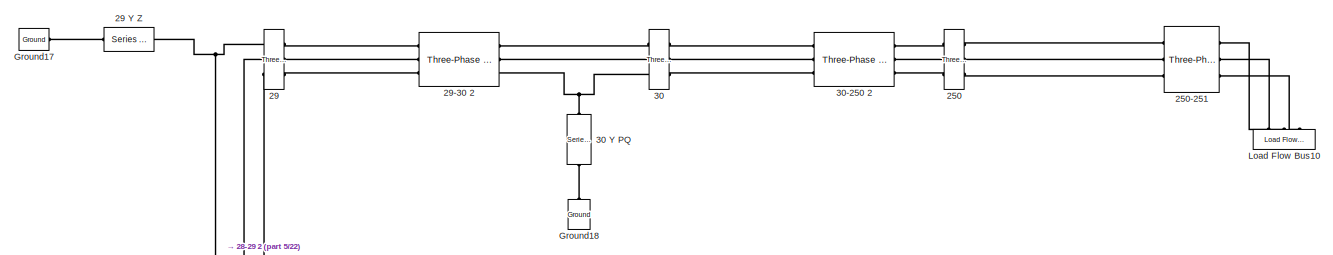
[diagram: root canvas - part 1/22, top center region]
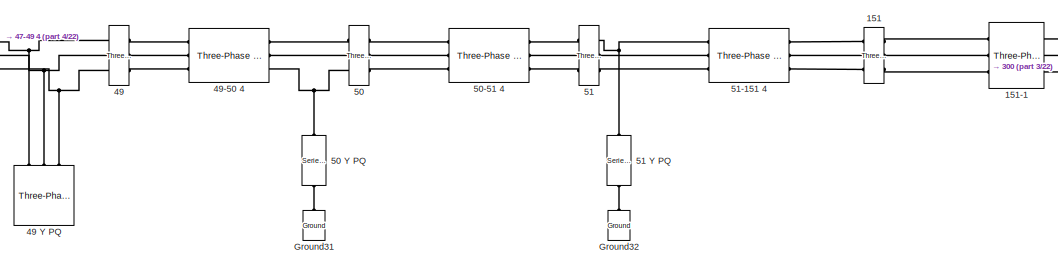
[diagram: root canvas - part 2/22, top center region]
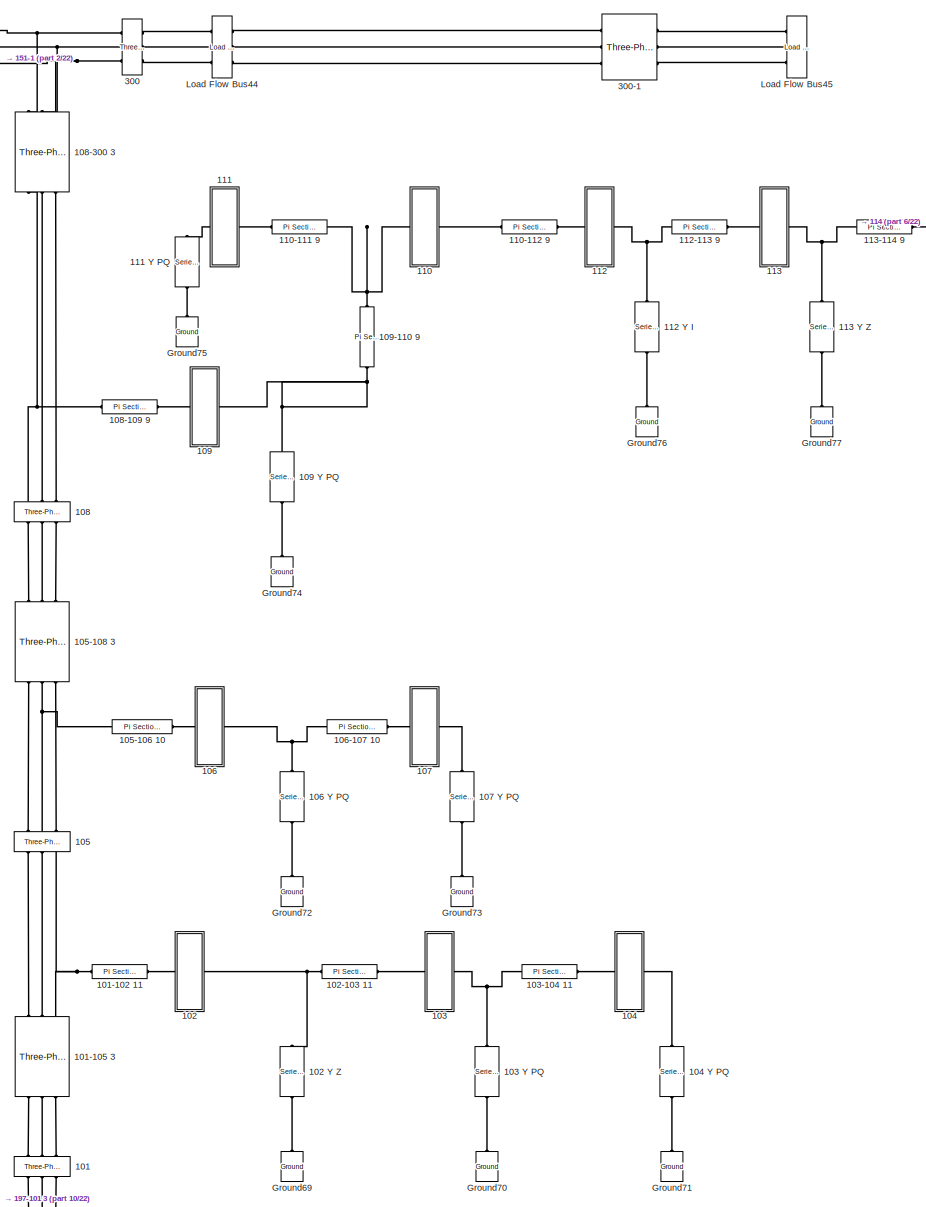
[diagram: root canvas - part 3/22, top right region]
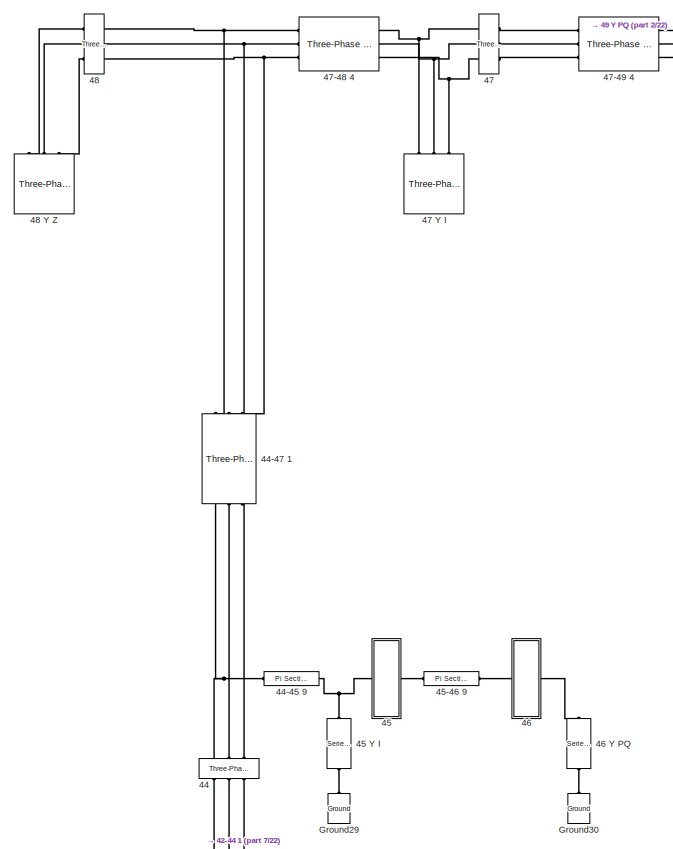
[diagram: root canvas - part 4/22, top center region]
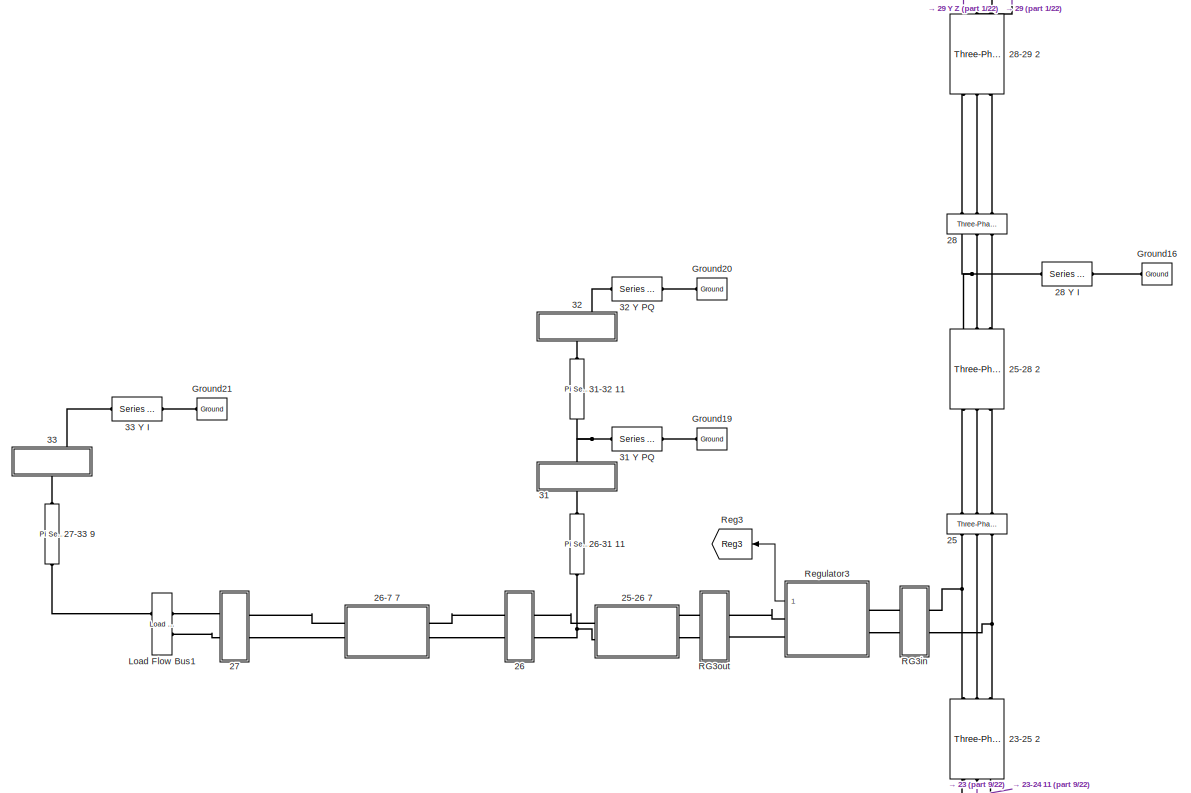
[diagram: root canvas - part 5/22, top left region]
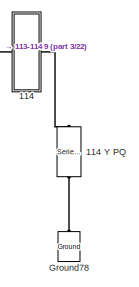
[diagram: root canvas - part 6/22, top right region]
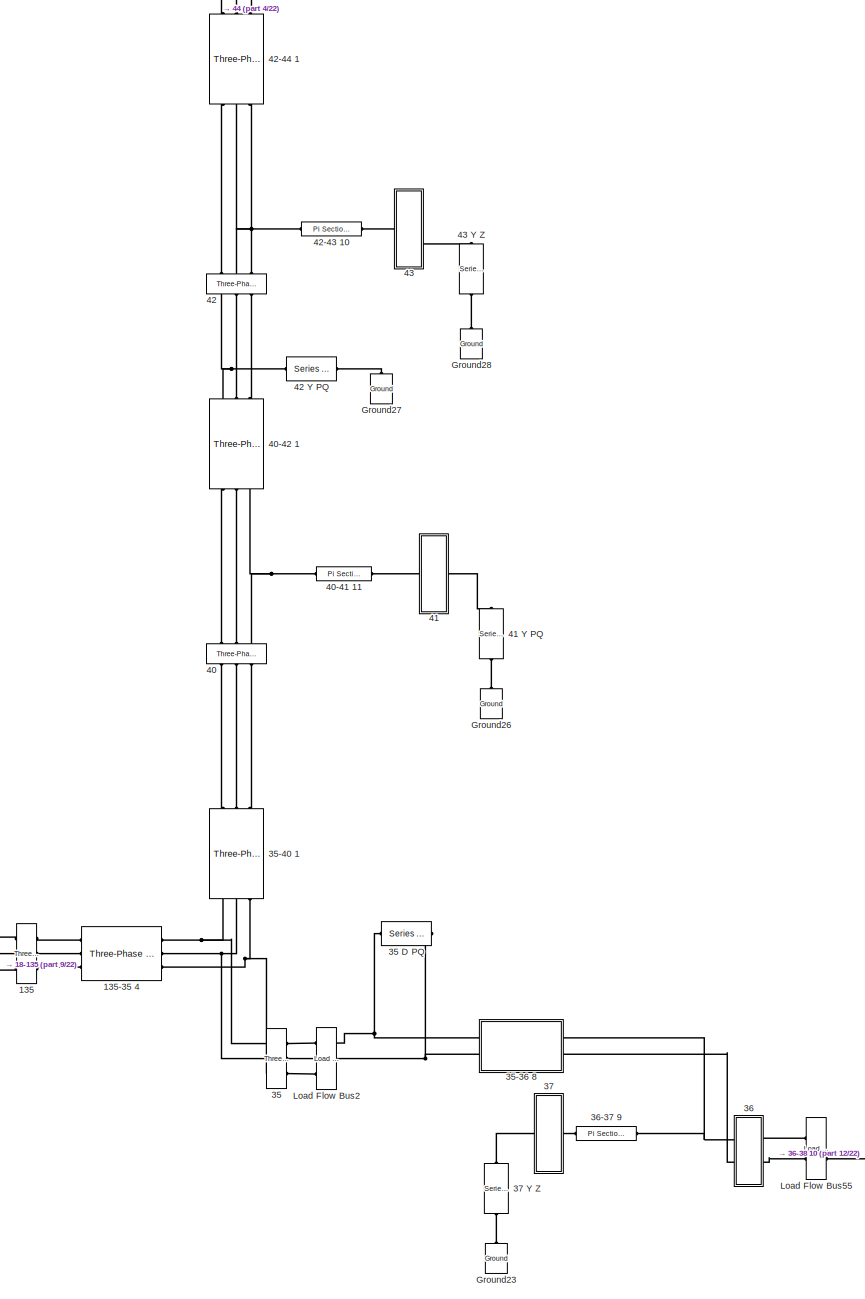
[diagram: root canvas - part 7/22, central region]
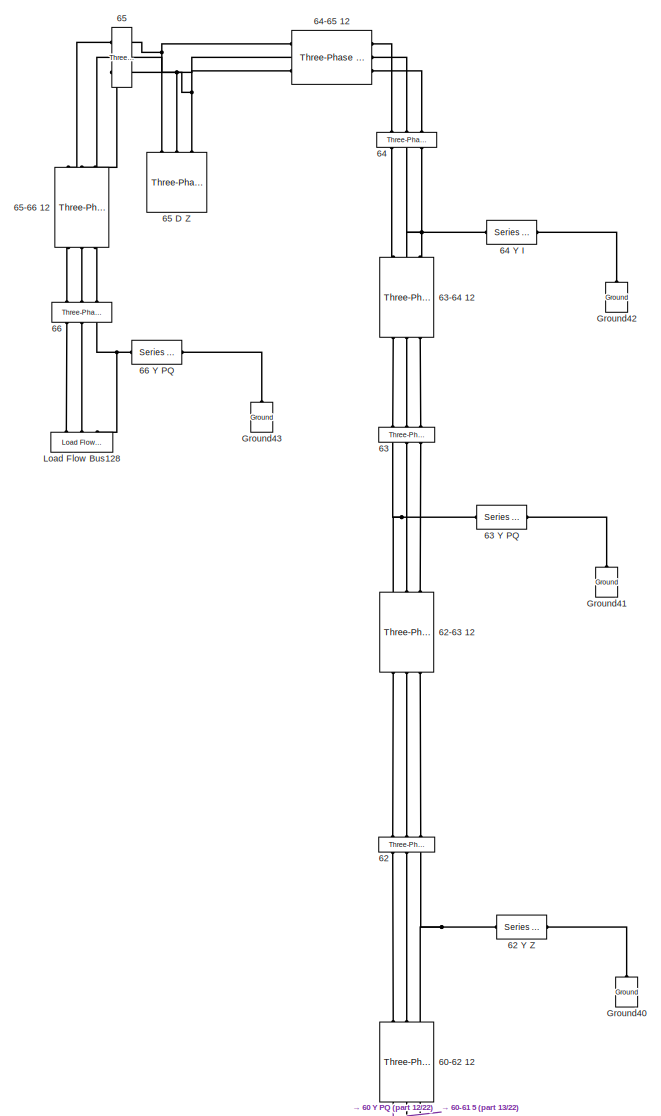
[diagram: root canvas - part 8/22, central region]
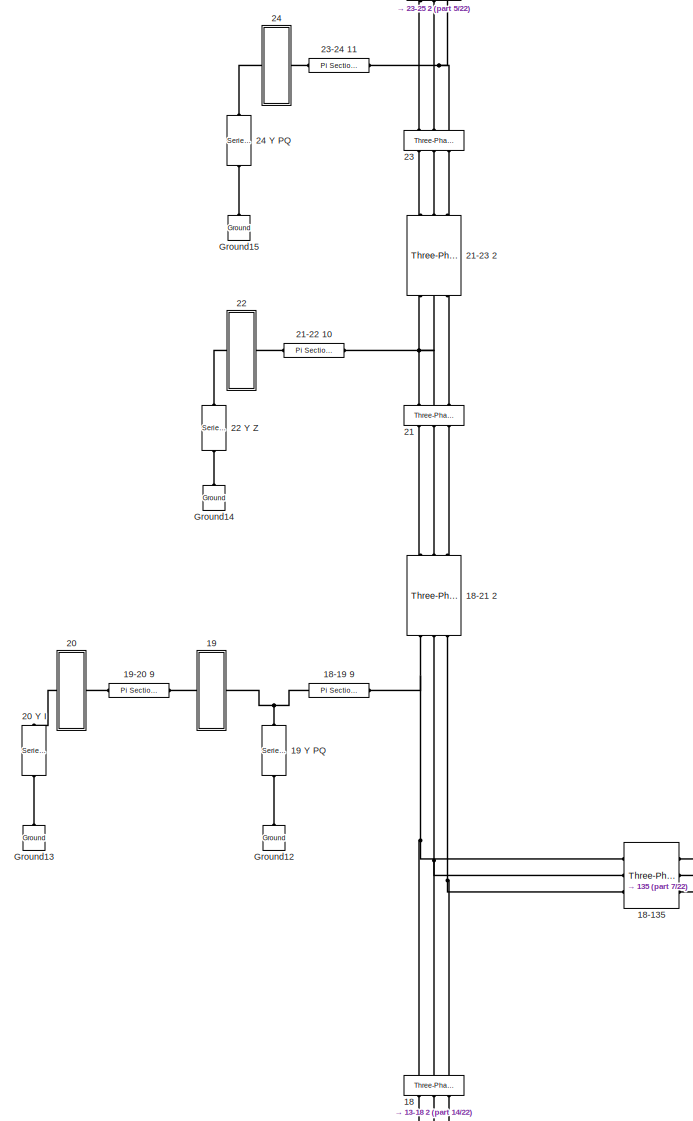
[diagram: root canvas - part 9/22, middle left region]
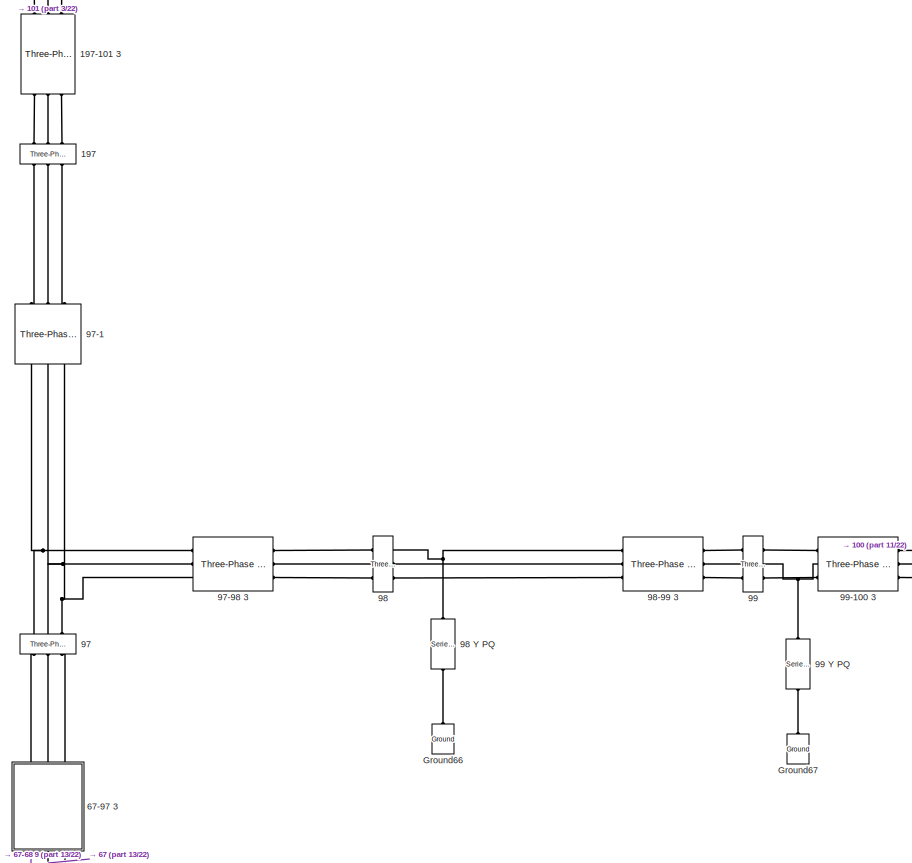
[diagram: root canvas - part 10/22, middle right region]
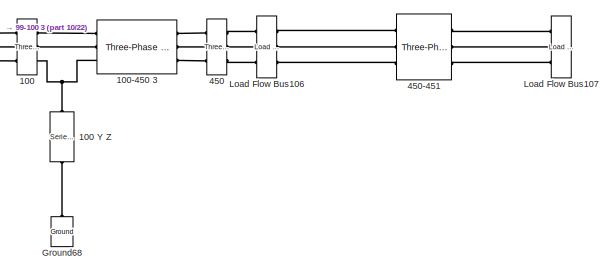
[diagram: root canvas - part 11/22, middle right region]
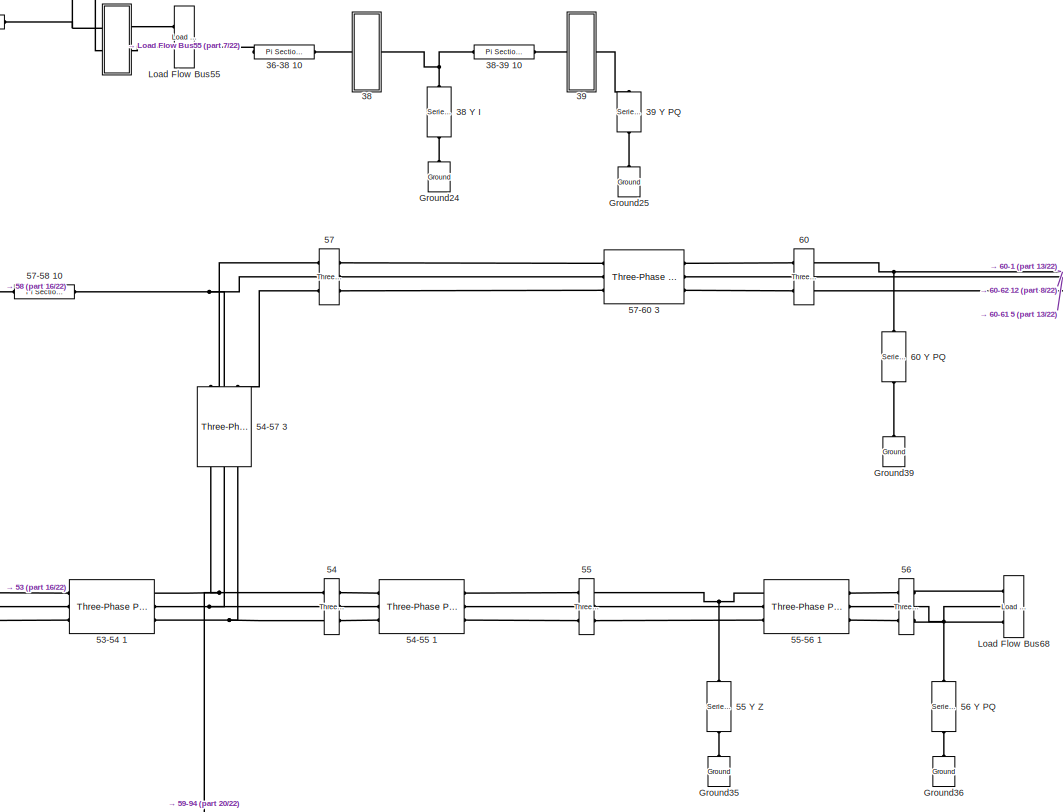
[diagram: root canvas - part 12/22, central region]
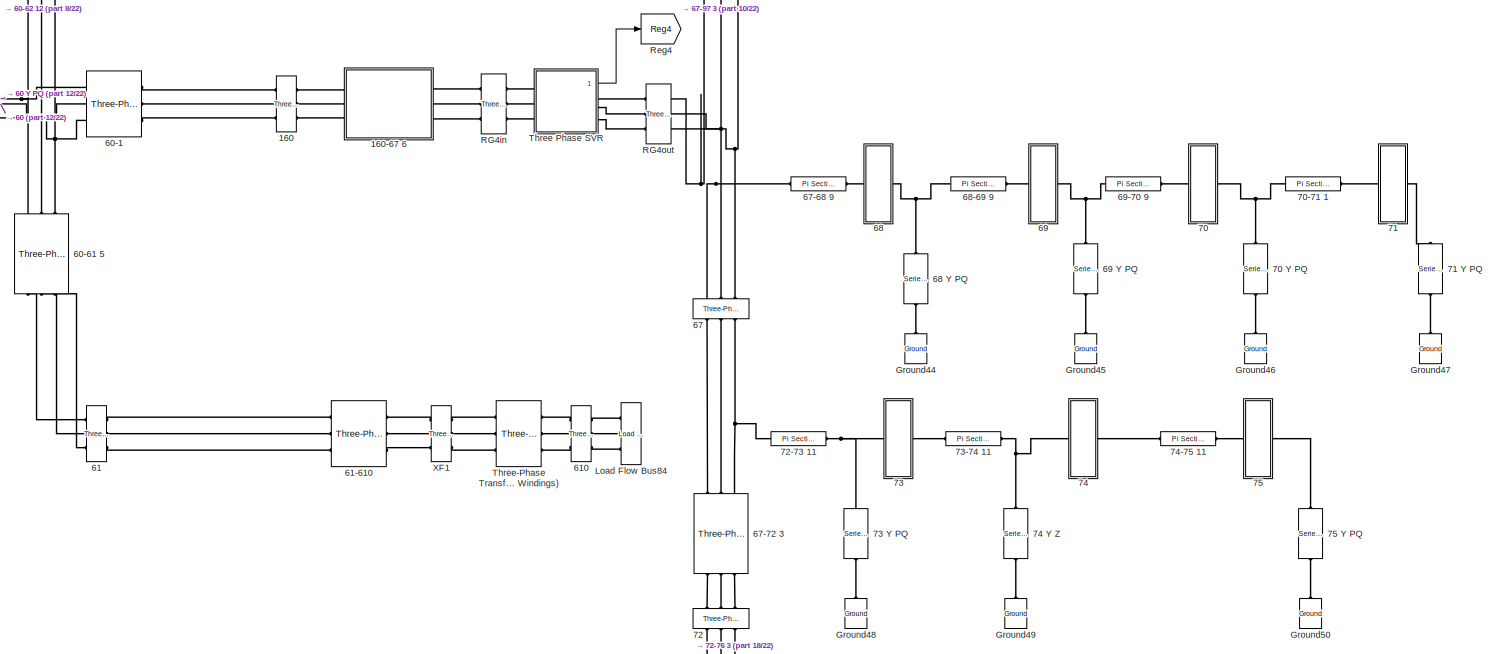
[diagram: root canvas - part 13/22, middle right region]
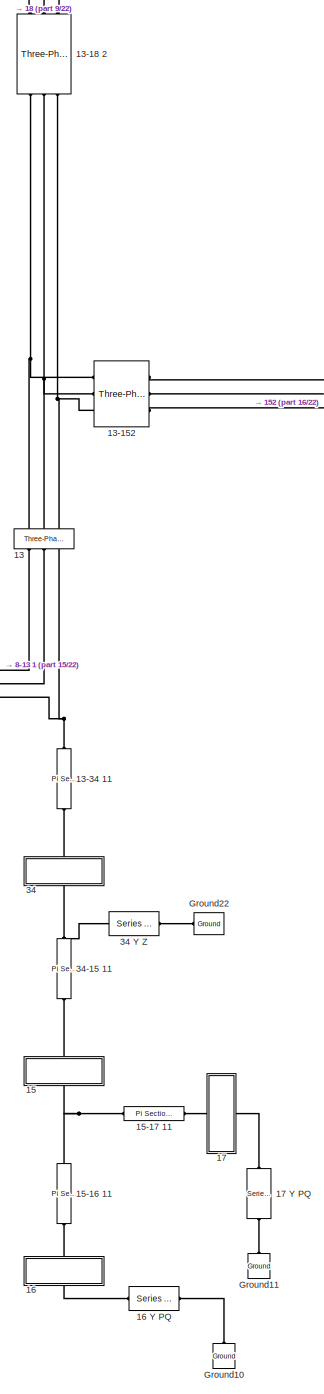
[diagram: root canvas - part 14/22, bottom center region]
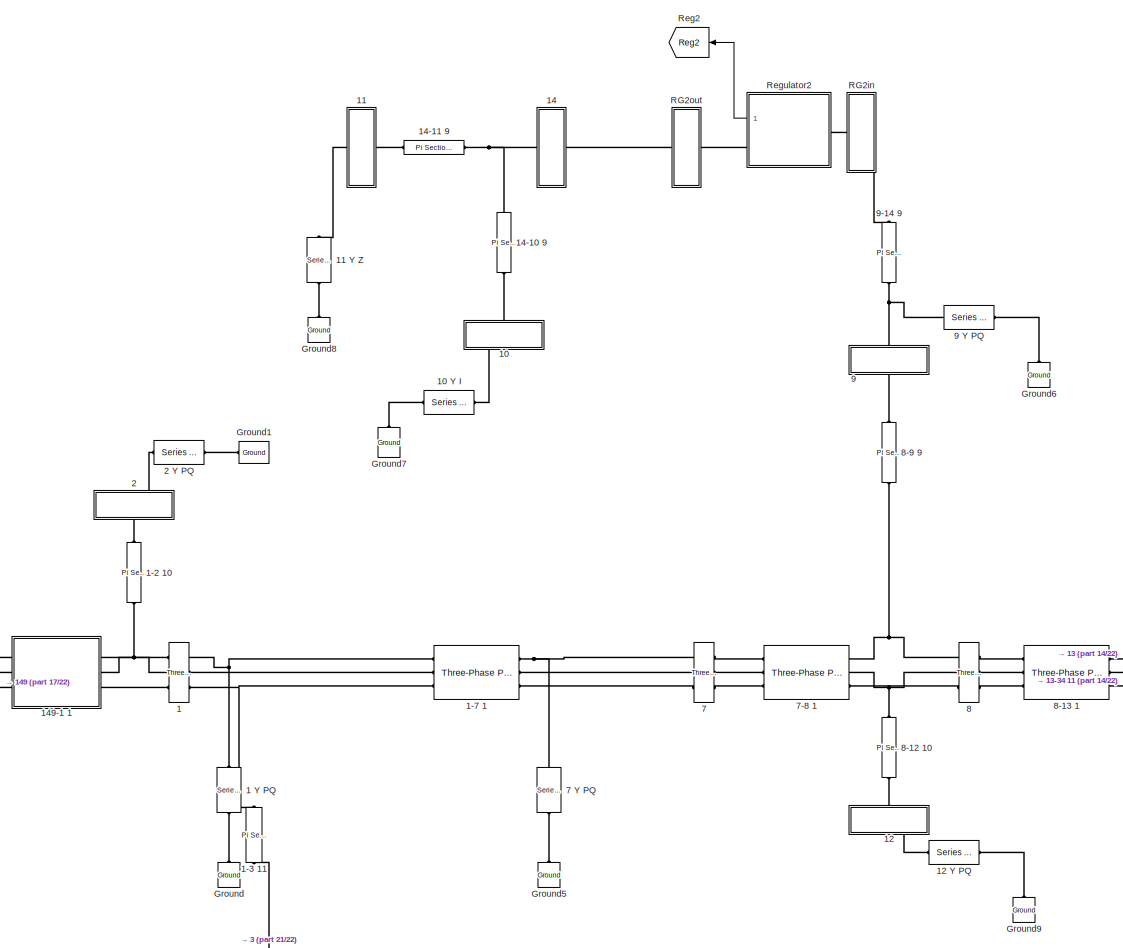
[diagram: root canvas - part 15/22, middle left region]
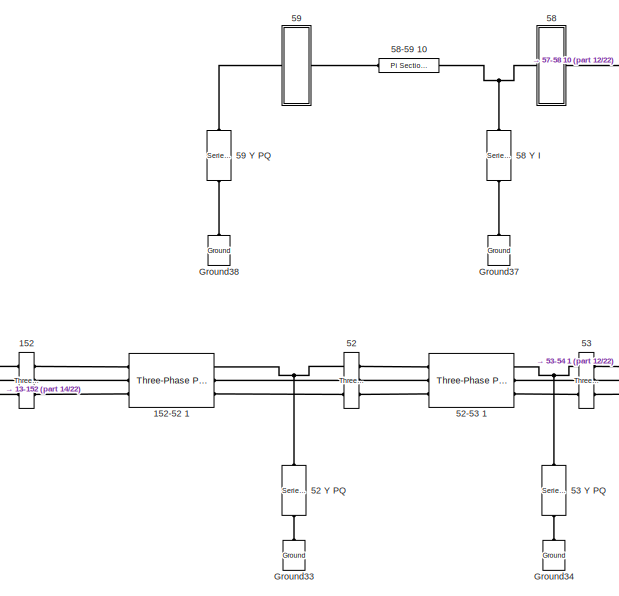
[diagram: root canvas - part 16/22, central region]
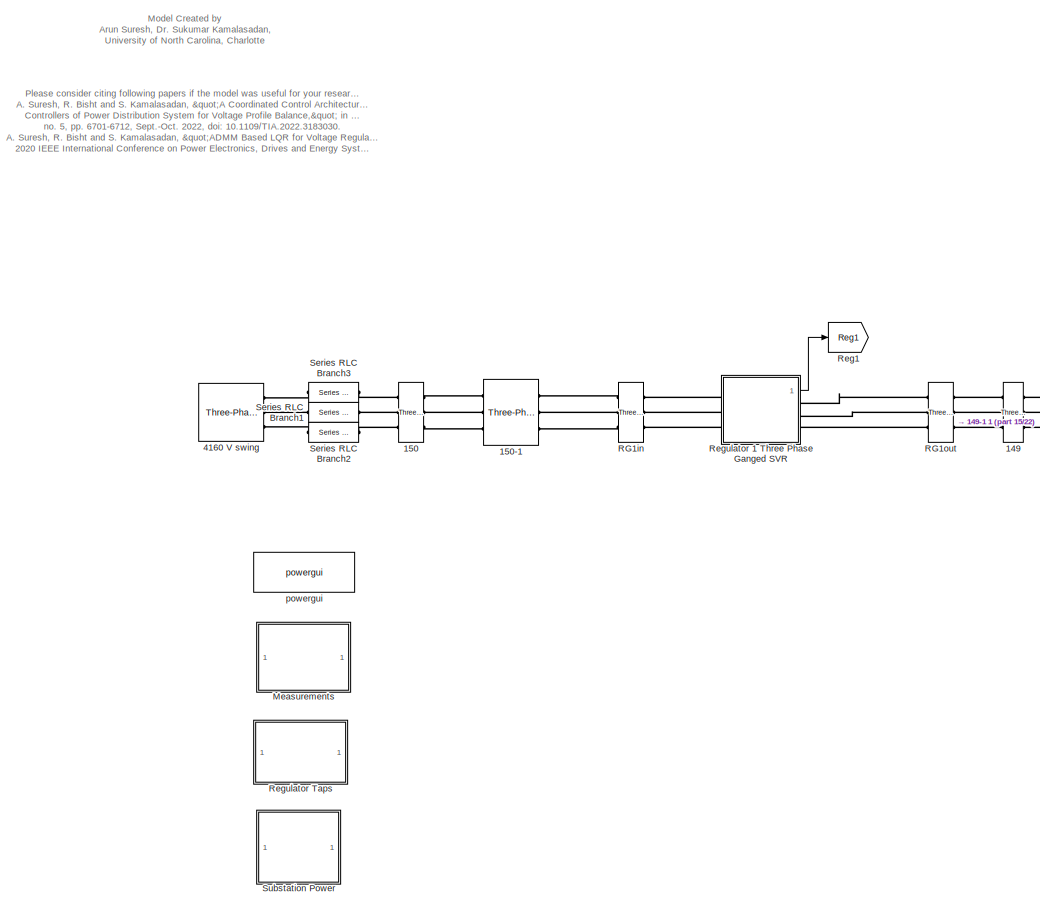
[diagram: root canvas - part 17/22, bottom left region]
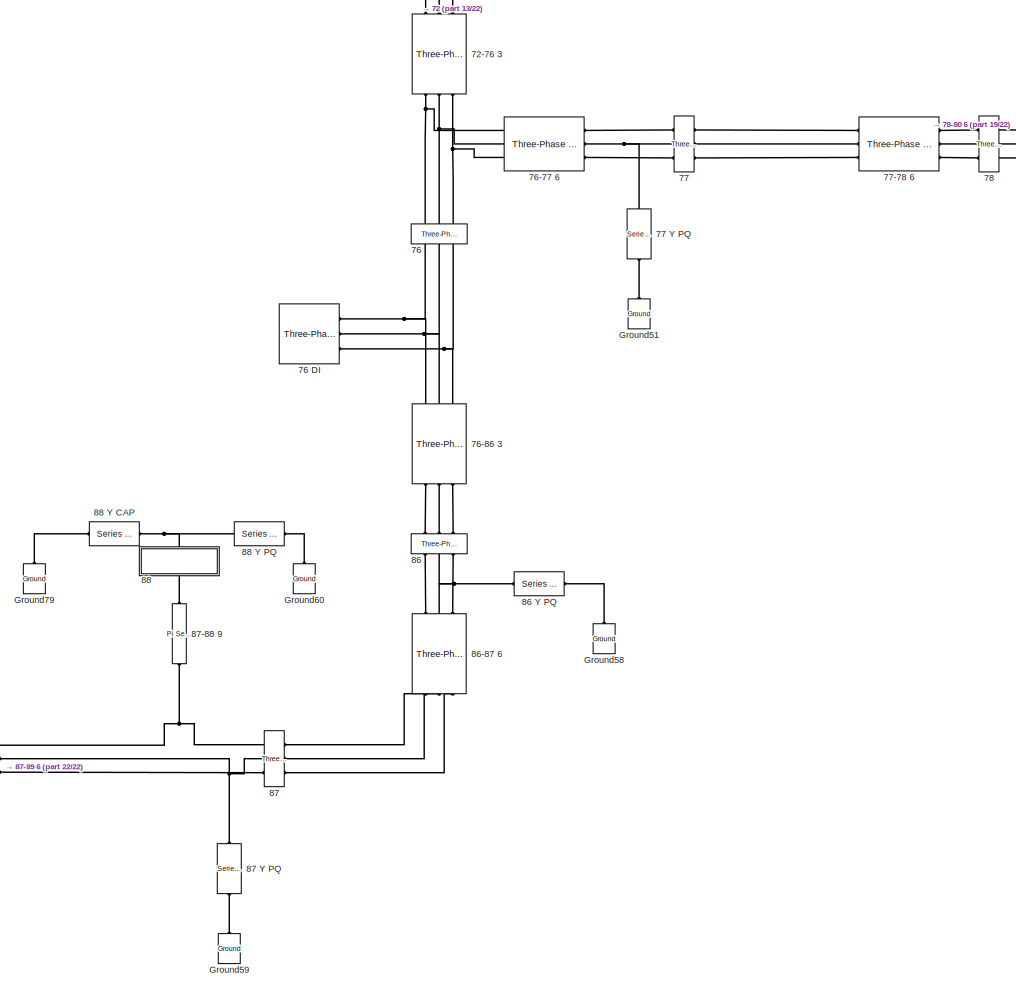
[diagram: root canvas - part 18/22, bottom right region]
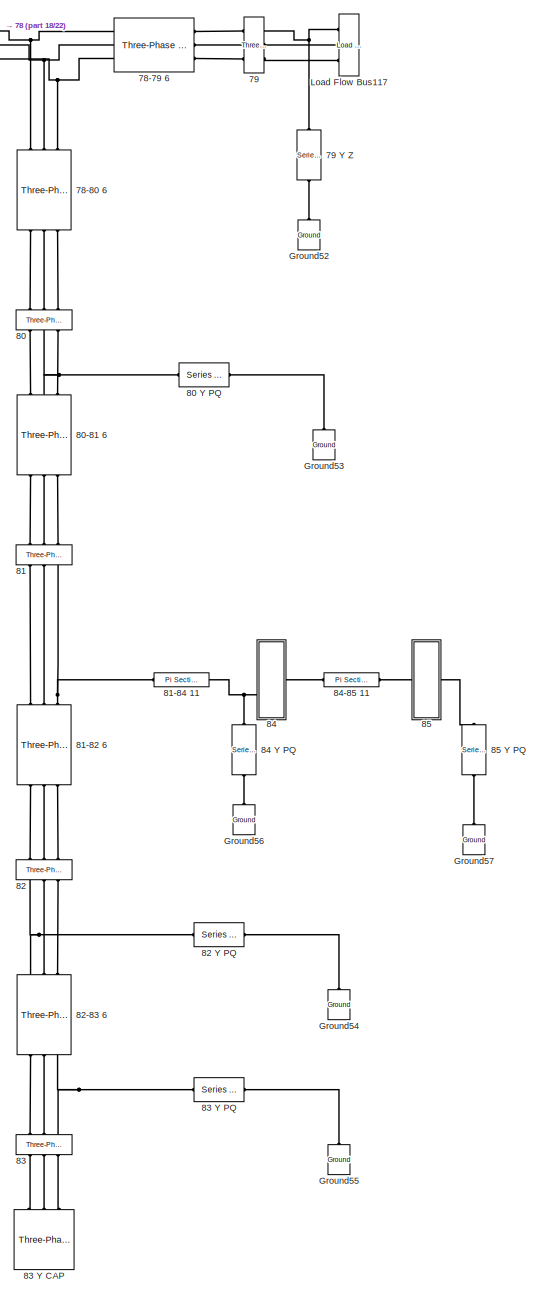
[diagram: root canvas - part 19/22, bottom right region]
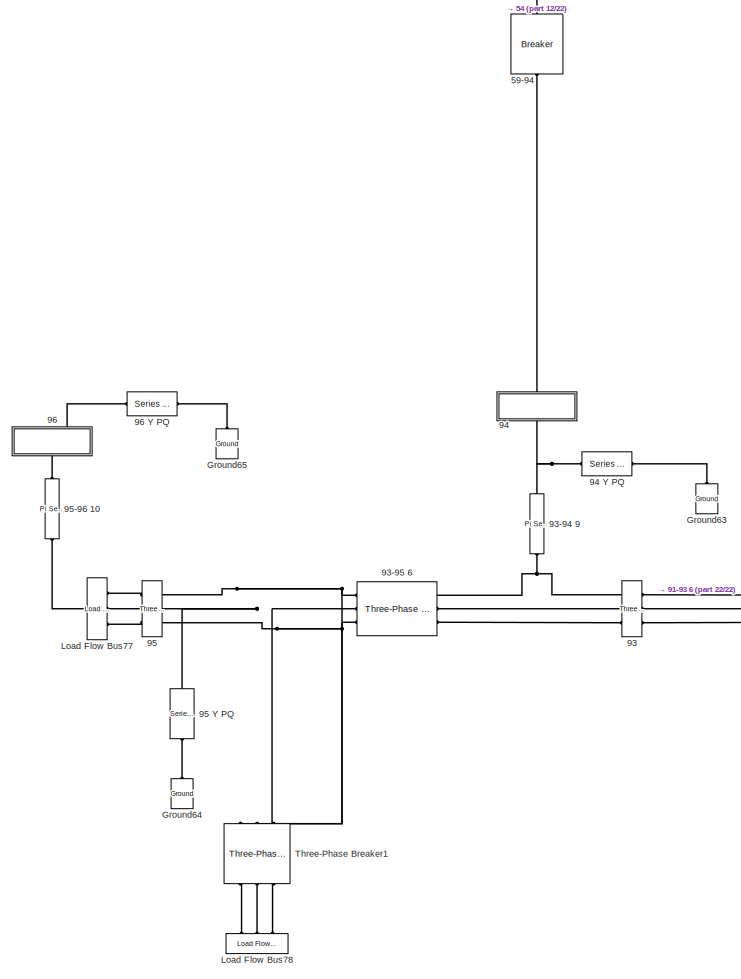
[diagram: root canvas - part 20/22, bottom center region]
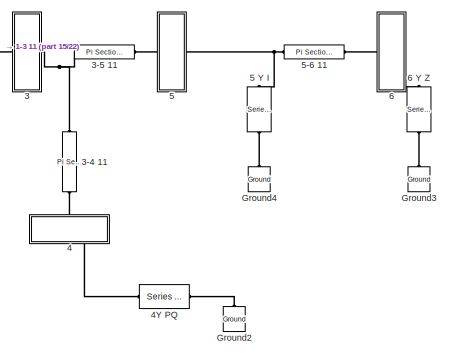
[diagram: root canvas - part 21/22, bottom left region]
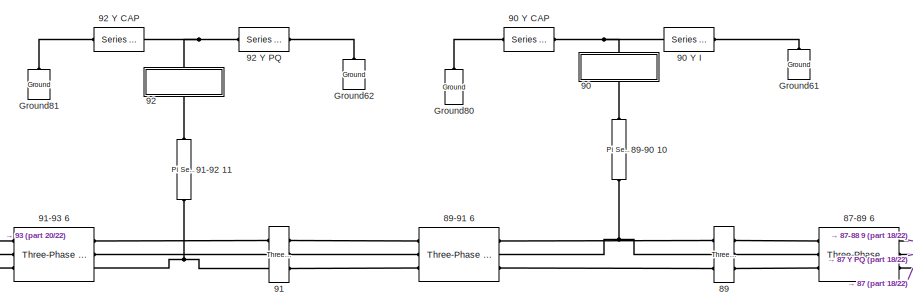
[diagram: root canvas - part 22/22, bottom center region]
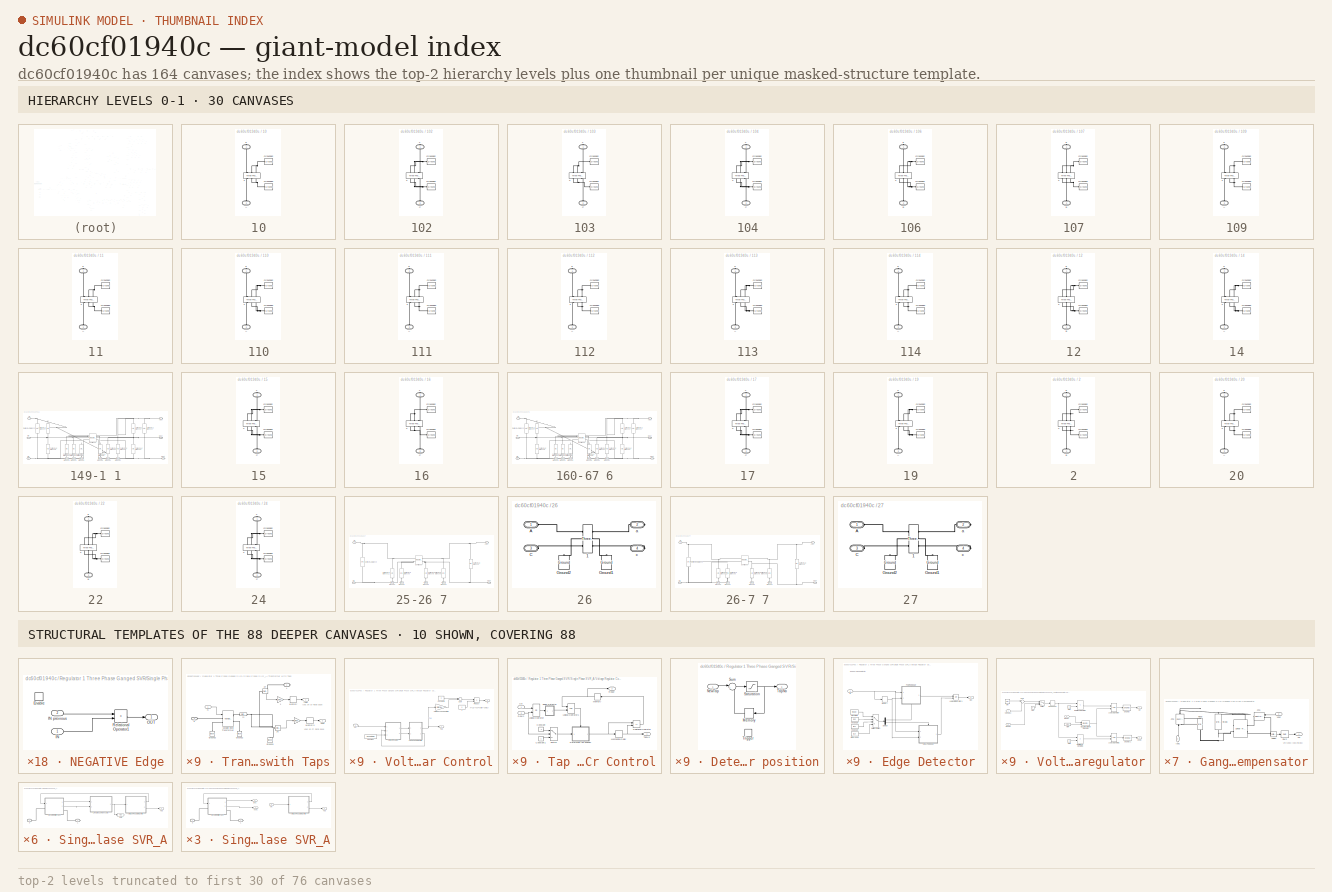
[diagram: thumbnail index - top-2 hierarchy levels (76 canvases (first 30 of 76 shown)) + 10 structural-template representatives of the remaining 88 canvases]
MODEL slx_dc60cf01940c
KIND model
CONFIG AbsTol = auto
CONFIG EnableMultiTasking = off
CONFIG FixedStep = Ts
CONFIG InitFcn = a=1; % Loading Factor\nTs=50e-6;\n% phase to sequence conversion of RXB matrices\nc=1*exp(sqrt(-1)*(120*pi/180));\nT=[1 1 1;1 c*c c;1 c c*c];\nTinv=1/3*[1 1 1;1 c c*c;1 c*c c];\n\n% Simulation data for the IEEE 123 Node Test Feeder model\nmi2km = 1.60934;%  miles to km conversion\nft2km = 0.0003048; % feet to km conversion\nms2F = 1*1e-6/(2*pi*60);% microsiemens to Farads conversion\n\n%% Configuration 1\n% Se...<+6018ch>
CONFIG MaxStep = 1e-4
CONFIG MinStep = auto
CONFIG RelTol = 1e-3
CONFIG SampleTimeConstraint = Unconstrained
CONFIG Solver = ode4
CONFIG SolverName = ode4
CONFIG StartTime = 0.0
CONFIG StopTime = 5
BLOCK [Reference] 1  REF=powerlib/Measurements/Three-Phase
V-I Measurement
  Ports = [0, 0, 0, 0, 0, 3, 3]
  SourceBlock = powerlib/Measurements/Three-Phase\nV-I Measurement
  SourceProductBaseCode = PS
  SourceProductName = Simscape Electrical
  SourceType = Three-Phase VI Measurement
BLOCK [Reference] 1 Y PQ  REF=powerlib/Elements/Series RLC Load
  Ports = [0, 0, 0, 0, 0, 1, 1]
  SourceBlock = powerlib/Elements/Series RLC Load
  SourceProductBaseCode = PS
  SourceProductName = Simscape Electrical
  SourceType = Series RLC Load
BLOCK [Reference] 1-2 10  REF=powerlib/Elements/Pi Section Line
  AttributesFormatString = \n
  Ports = [0, 0, 0, 0, 0, 1, 1]
  SourceBlock = powerlib/Elements/Pi Section Line
  SourceProductBaseCode = PS
  SourceProductName = Simscape Electrical
  SourceType = Pi Section Line
BLOCK [Reference] 1-3 11  REF=powerlib/Elements/Pi Section Line
  AttributesFormatString = \n
  Ports = [0, 0, 0, 0, 0, 1, 1]
  SourceBlock = powerlib/Elements/Pi Section Line
  SourceProductBaseCode = PS
  SourceProductName = Simscape Electrical
  SourceType = Pi Section Line
BLOCK [Reference] 1-7 1  REF=powerlib/Elements/Three-Phase
PI Section Line
  AttributesFormatString = \n
  Ports = [0, 0, 0, 0, 0, 3, 3]
  SourceBlock = powerlib/Elements/Three-Phase\nPI Section Line
  SourceProductBaseCode = PS
  SourceProductName = Simscape Electrical
  SourceType = Three-Phase PI Section Line
BLOCK [SubSystem] 10
  Ports = [0, 0, 0, 0, 0, 1, 1]
  RequestExecContextInheritance = off
BLOCK [Reference] 10 Y I  REF=powerlib/Elements/Series RLC Load
  Ports = [0, 0, 0, 0, 0, 1, 1]
  SourceBlock = powerlib/Elements/Series RLC Load
  SourceProductBaseCode = PS
  SourceProductName = Simscape Electrical
  SourceType = Series RLC Load
BLOCK [Reference] 10/2  REF=powerlib/Measurements/Three-Phase
V-I Measurement
  Ports = [0, 0, 0, 0, 0, 3, 3]
  SourceBlock = powerlib/Measurements/Three-Phase\nV-I Measurement
  SourceProductBaseCode = PS
  SourceProductName = Simscape Electrical
  SourceType = Three-Phase VI Measurement
BLOCK [PMIOPort] 10/A
  Port = 2
  Side = Left
BLOCK [Reference] 10/Ground82  REF=powerlib/Elements/Ground
  Ports = [0, 0, 0, 0, 0, 1]
  SourceBlock = powerlib/Elements/Ground
  SourceProductBaseCode = PS
  SourceProductName = Simscape Electrical
  SourceType = Ground
BLOCK [Reference] 10/Ground83  REF=powerlib/Elements/Ground
  Ports = [0, 0, 0, 0, 0, 1]
  SourceBlock = powerlib/Elements/Ground
  SourceProductBaseCode = PS
  SourceProductName = Simscape Electrical
  SourceType = Ground
BLOCK [PMIOPort] 10/a
  Side = Right
BLOCK [Reference] 100  REF=powerlib/Measurements/Three-Phase
V-I Measurement
  Ports = [0, 0, 0, 0, 0, 3, 3]
  SourceBlock = powerlib/Measurements/Three-Phase\nV-I Measurement
  SourceProductBaseCode = PS
  SourceProductName = Simscape Electrical
  SourceType = Three-Phase VI Measurement
BLOCK [Reference] 100 Y Z  REF=powerlib/Elements/Series RLC Load
  Ports = [0, 0, 0, 0, 0, 1, 1]
  SourceBlock = powerlib/Elements/Series RLC Load
  SourceProductBaseCode = PS
  SourceProductName = Simscape Electrical
  SourceType = Series RLC Load
BLOCK [Reference] 100-450 3  REF=powerlib/Elements/Three-Phase
PI Section Line
  AttributesFormatString = \n
  Ports = [0, 0, 0, 0, 0, 3, 3]
  SourceBlock = powerlib/Elements/Three-Phase\nPI Section Line
  SourceProductBaseCode = PS
  SourceProductName = Simscape Electrical
  SourceType = Three-Phase PI Section Line
BLOCK [Reference] 101  REF=powerlib/Measurements/Three-Phase
V-I Measurement
  Ports = [0, 0, 0, 0, 0, 3, 3]
  SourceBlock = powerlib/Measurements/Three-Phase\nV-I Measurement
  SourceProductBaseCode = PS
  SourceProductName = Simscape Electrical
  SourceType = Three-Phase VI Measurement
BLOCK [Reference] 101-102 11  REF=powerlib/Elements/Pi Section Line
  AttributesFormatString = \n
  Ports = [0, 0, 0, 0, 0, 1, 1]
  SourceBlock = powerlib/Elements/Pi Section Line
  SourceProductBaseCode = PS
  SourceProductName = Simscape Electrical
  SourceType = Pi Section Line
BLOCK [Reference] 101-105 3  REF=powerlib/Elements/Three-Phase
PI Section Line
  AttributesFormatString = \n
  Ports = [0, 0, 0, 0, 0, 3, 3]
  SourceBlock = powerlib/Elements/Three-Phase\nPI Section Line
  SourceProductBaseCode = PS
  SourceProductName = Simscape Electrical
  SourceType = Three-Phase PI Section Line
BLOCK [SubSystem] 102
  Ports = [0, 0, 0, 0, 0, 1, 1]
  RequestExecContextInheritance = off
BLOCK [Reference] 102 Y Z  REF=powerlib/Elements/Series RLC Load
  Ports = [0, 0, 0, 0, 0, 1, 1]
  SourceBlock = powerlib/Elements/Series RLC Load
  SourceProductBaseCode = PS
  SourceProductName = Simscape Electrical
  SourceType = Series RLC Load
BLOCK [Reference] 102-103 11  REF=powerlib/Elements/Pi Section Line
  AttributesFormatString = \n
  Ports = [0, 0, 0, 0, 0, 1, 1]
  SourceBlock = powerlib/Elements/Pi Section Line
  SourceProductBaseCode = PS
  SourceProductName = Simscape Electrical
  SourceType = Pi Section Line
BLOCK [Reference] 102/2  REF=powerlib/Measurements/Three-Phase
V-I Measurement
  Ports = [0, 0, 0, 0, 0, 3, 3]
  SourceBlock = powerlib/Measurements/Three-Phase\nV-I Measurement
  SourceProductBaseCode = PS
  SourceProductName = Simscape Electrical
  SourceType = Three-Phase VI Measurement
BLOCK [PMIOPort] 102/C
  Port = 2
  Side = Left
BLOCK [Reference] 102/Ground82  REF=powerlib/Elements/Ground
  Ports = [0, 0, 0, 0, 0, 1]
  SourceBlock = powerlib/Elements/Ground
  SourceProductBaseCode = PS
  SourceProductName = Simscape Electrical
  SourceType = Ground
BLOCK [Reference] 102/Ground83  REF=powerlib/Elements/Ground
  Ports = [0, 0, 0, 0, 0, 1]
  SourceBlock = powerlib/Elements/Ground
  SourceProductBaseCode = PS
  SourceProductName = Simscape Electrical
  SourceType = Ground
BLOCK [PMIOPort] 102/c
  Side = Right
BLOCK [SubSystem] 103
  Ports = [0, 0, 0, 0, 0, 1, 1]
  RequestExecContextInheritance = off
BLOCK [Reference] 103 Y PQ  REF=powerlib/Elements/Series RLC Load
  Ports = [0, 0, 0, 0, 0, 1, 1]
  SourceBlock = powerlib/Elements/Series RLC Load
  SourceProductBaseCode = PS
  SourceProductName = Simscape Electrical
  SourceType = Series RLC Load
BLOCK [Reference] 103-104 11  REF=powerlib/Elements/Pi Section Line
  AttributesFormatString = \n
  Ports = [0, 0, 0, 0, 0, 1, 1]
  SourceBlock = powerlib/Elements/Pi Section Line
  SourceProductBaseCode = PS
  SourceProductName = Simscape Electrical
  SourceType = Pi Section Line
BLOCK [Reference] 103/2  REF=powerlib/Measurements/Three-Phase
V-I Measurement
  Ports = [0, 0, 0, 0, 0, 3, 3]
  SourceBlock = powerlib/Measurements/Three-Phase\nV-I Measurement
  SourceProductBaseCode = PS
  SourceProductName = Simscape Electrical
  SourceType = Three-Phase VI Measurement
BLOCK [PMIOPort] 103/C
  Port = 2
  Side = Left
BLOCK [Reference] 103/Ground82  REF=powerlib/Elements/Ground
  Ports = [0, 0, 0, 0, 0, 1]
  SourceBlock = powerlib/Elements/Ground
  SourceProductBaseCode = PS
  SourceProductName = Simscape Electrical
  SourceType = Ground
BLOCK [Reference] 103/Ground83  REF=powerlib/Elements/Ground
  Ports = [0, 0, 0, 0, 0, 1]
  SourceBlock = powerlib/Elements/Ground
  SourceProductBaseCode = PS
  SourceProductName = Simscape Electrical
  SourceType = Ground
BLOCK [PMIOPort] 103/c
  Side = Right
BLOCK [SubSystem] 104
  Ports = [0, 0, 0, 0, 0, 1, 1]
  RequestExecContextInheritance = off
BLOCK [Reference] 104 Y PQ  REF=powerlib/Elements/Series RLC Load
  Ports = [0, 0, 0, 0, 0, 1, 1]
  SourceBlock = powerlib/Elements/Series RLC Load
  SourceProductBaseCode = PS
  SourceProductName = Simscape Electrical
  SourceType = Series RLC Load
BLOCK [Reference] 104/2  REF=powerlib/Measurements/Three-Phase
V-I Measurement
  Ports = [0, 0, 0, 0, 0, 3, 3]
  SourceBlock = powerlib/Measurements/Three-Phase\nV-I Measurement
  SourceProductBaseCode = PS
  SourceProductName = Simscape Electrical
  SourceType = Three-Phase VI Measurement
BLOCK [PMIOPort] 104/C
  Port = 2
  Side = Left
BLOCK [Reference] 104/Ground82  REF=powerlib/Elements/Ground
  Ports = [0, 0, 0, 0, 0, 1]
  SourceBlock = powerlib/Elements/Ground
  SourceProductBaseCode = PS
  SourceProductName = Simscape Electrical
  SourceType = Ground
BLOCK [Reference] 104/Ground83  REF=powerlib/Elements/Ground
  Ports = [0, 0, 0, 0, 0, 1]
  SourceBlock = powerlib/Elements/Ground
  SourceProductBaseCode = PS
  SourceProductName = Simscape Electrical
  SourceType = Ground
BLOCK [PMIOPort] 104/c
  Side = Right
BLOCK [Reference] 105  REF=powerlib/Measurements/Three-Phase
V-I Measurement
  Ports = [0, 0, 0, 0, 0, 3, 3]
  SourceBlock = powerlib/Measurements/Three-Phase\nV-I Measurement
  SourceProductBaseCode = PS
  SourceProductName = Simscape Electrical
  SourceType = Three-Phase VI Measurement
BLOCK [Reference] 105-106 10  REF=powerlib/Elements/Pi Section Line
  AttributesFormatString = \n
  Ports = [0, 0, 0, 0, 0, 1, 1]
  SourceBlock = powerlib/Elements/Pi Section Line
  SourceProductBaseCode = PS
  SourceProductName = Simscape Electrical
  SourceType = Pi Section Line
BLOCK [Reference] 105-108 3  REF=powerlib/Elements/Three-Phase
PI Section Line
  AttributesFormatString = \n
  Ports = [0, 0, 0, 0, 0, 3, 3]
  SourceBlock = powerlib/Elements/Three-Phase\nPI Section Line
  SourceProductBaseCode = PS
  SourceProductName = Simscape Electrical
  SourceType = Three-Phase PI Section Line
BLOCK [SubSystem] 106
  Ports = [0, 0, 0, 0, 0, 1, 1]
  RequestExecContextInheritance = off
BLOCK [Reference] 106 Y PQ  REF=powerlib/Elements/Series RLC Load
  Ports = [0, 0, 0, 0, 0, 1, 1]
  SourceBlock = powerlib/Elements/Series RLC Load
  SourceProductBaseCode = PS
  SourceProductName = Simscape Electrical
  SourceType = Series RLC Load
BLOCK [Reference] 106-107 10  REF=powerlib/Elements/Pi Section Line
  AttributesFormatString = \n
  Ports = [0, 0, 0, 0, 0, 1, 1]
  SourceBlock = powerlib/Elements/Pi Section Line
  SourceProductBaseCode = PS
  SourceProductName = Simscape Electrical
  SourceType = Pi Section Line
BLOCK [Reference] 106/2  REF=powerlib/Measurements/Three-Phase
V-I Measurement
  Ports = [0, 0, 0, 0, 0, 3, 3]
  SourceBlock = powerlib/Measurements/Three-Phase\nV-I Measurement
  SourceProductBaseCode = PS
  SourceProductName = Simscape Electrical
  SourceType = Three-Phase VI Measurement
BLOCK [PMIOPort] 106/B
  Port = 2
  Side = Left
BLOCK [Reference] 106/Ground82  REF=powerlib/Elements/Ground
  Ports = [0, 0, 0, 0, 0, 1]
  SourceBlock = powerlib/Elements/Ground
  SourceProductBaseCode = PS
  SourceProductName = Simscape Electrical
  SourceType = Ground
BLOCK [Reference] 106/Ground83  REF=powerlib/Elements/Ground
  Ports = [0, 0, 0, 0, 0, 1]
  SourceBlock = powerlib/Elements/Ground
  SourceProductBaseCode = PS
  SourceProductName = Simscape Electrical
  SourceType = Ground
BLOCK [PMIOPort] 106/b
  Side = Right
BLOCK [SubSystem] 107
  Ports = [0, 0, 0, 0, 0, 1, 1]
  RequestExecContextInheritance = off
BLOCK [Reference] 107 Y PQ  REF=powerlib/Elements/Series RLC Load
  Ports = [0, 0, 0, 0, 0, 1, 1]
  SourceBlock = powerlib/Elements/Series RLC Load
  SourceProductBaseCode = PS
  SourceProductName = Simscape Electrical
  SourceType = Series RLC Load
BLOCK [Reference] 107/2  REF=powerlib/Measurements/Three-Phase
V-I Measurement
  Ports = [0, 0, 0, 0, 0, 3, 3]
  SourceBlock = powerlib/Measurements/Three-Phase\nV-I Measurement
  SourceProductBaseCode = PS
  SourceProductName = Simscape Electrical
  SourceType = Three-Phase VI Measurement
BLOCK [PMIOPort] 107/B
  Port = 2
  Side = Left
BLOCK [Reference] 107/Ground82  REF=powerlib/Elements/Ground
  Ports = [0, 0, 0, 0, 0, 1]
  SourceBlock = powerlib/Elements/Ground
  SourceProductBaseCode = PS
  SourceProductName = Simscape Electrical
  SourceType = Ground
BLOCK [Reference] 107/Ground83  REF=powerlib/Elements/Ground
  Ports = [0, 0, 0, 0, 0, 1]
  SourceBlock = powerlib/Elements/Ground
  SourceProductBaseCode = PS
  SourceProductName = Simscape Electrical
  SourceType = Ground
BLOCK [PMIOPort] 107/b
  Side = Right
BLOCK [Reference] 108  REF=powerlib/Measurements/Three-Phase
V-I Measurement
  Ports = [0, 0, 0, 0, 0, 3, 3]
  SourceBlock = powerlib/Measurements/Three-Phase\nV-I Measurement
  SourceProductBaseCode = PS
  SourceProductName = Simscape Electrical
  SourceType = Three-Phase VI Measurement
BLOCK [Reference] 108-109 9  REF=powerlib/Elements/Pi Section Line
  AttributesFormatString = \n
  Ports = [0, 0, 0, 0, 0, 1, 1]
  SourceBlock = powerlib/Elements/Pi Section Line
  SourceProductBaseCode = PS
  SourceProductName = Simscape Electrical
  SourceType = Pi Section Line
BLOCK [Reference] 108-300 3  REF=powerlib/Elements/Three-Phase
PI Section Line
  AttributesFormatString = \n
  Ports = [0, 0, 0, 0, 0, 3, 3]
  SourceBlock = powerlib/Elements/Three-Phase\nPI Section Line
  SourceProductBaseCode = PS
  SourceProductName = Simscape Electrical
  SourceType = Three-Phase PI Section Line
BLOCK [SubSystem] 109
  Ports = [0, 0, 0, 0, 0, 1, 1]
  RequestExecContextInheritance = off
BLOCK [Reference] 109 Y PQ  REF=powerlib/Elements/Series RLC Load
  Ports = [0, 0, 0, 0, 0, 1, 1]
  SourceBlock = powerlib/Elements/Series RLC Load
  SourceProductBaseCode = PS
  SourceProductName = Simscape Electrical
  SourceType = Series RLC Load
BLOCK [Reference] 109-110 9  REF=powerlib/Elements/Pi Section Line
  AttributesFormatString = \n
  Ports = [0, 0, 0, 0, 0, 1, 1]
  SourceBlock = powerlib/Elements/Pi Section Line
  SourceProductBaseCode = PS
  SourceProductName = Simscape Electrical
  SourceType = Pi Section Line
BLOCK [Reference] 109/2  REF=powerlib/Measurements/Three-Phase
V-I Measurement
  Ports = [0, 0, 0, 0, 0, 3, 3]
  SourceBlock = powerlib/Measurements/Three-Phase\nV-I Measurement
  SourceProductBaseCode = PS
  SourceProductName = Simscape Electrical
  SourceType = Three-Phase VI Measurement
BLOCK [PMIOPort] 109/A
  Port = 2
  Side = Left
BLOCK [Reference] 109/Ground82  REF=powerlib/Elements/Ground
  Ports = [0, 0, 0, 0, 0, 1]
  SourceBlock = powerlib/Elements/Ground
  SourceProductBaseCode = PS
  SourceProductName = Simscape Electrical
  SourceType = Ground
BLOCK [Reference] 109/Ground83  REF=powerlib/Elements/Ground
  Ports = [0, 0, 0, 0, 0, 1]
  SourceBlock = powerlib/Elements/Ground
  SourceProductBaseCode = PS
  SourceProductName = Simscape Electrical
  SourceType = Ground
BLOCK [PMIOPort] 109/a
  Side = Right
BLOCK [SubSystem] 11
  Ports = [0, 0, 0, 0, 0, 1, 1]
  RequestExecContextInheritance = off
BLOCK [Reference] 11 Y Z  REF=powerlib/Elements/Series RLC Load
  Ports = [0, 0, 0, 0, 0, 1, 1]
  SourceBlock = powerlib/Elements/Series RLC Load
  SourceProductBaseCode = PS
  SourceProductName = Simscape Electrical
  SourceType = Series RLC Load
BLOCK [Reference] 11/2  REF=powerlib/Measurements/Three-Phase
V-I Measurement
  Ports = [0, 0, 0, 0, 0, 3, 3]
  SourceBlock = powerlib/Measurements/Three-Phase\nV-I Measurement
  SourceProductBaseCode = PS
  SourceProductName = Simscape Electrical
  SourceType = Three-Phase VI Measurement
BLOCK [PMIOPort] 11/A
  Port = 2
  Side = Left
BLOCK [Reference] 11/Ground82  REF=powerlib/Elements/Ground
  Ports = [0, 0, 0, 0, 0, 1]
  SourceBlock = powerlib/Elements/Ground
  SourceProductBaseCode = PS
  SourceProductName = Simscape Electrical
  SourceType = Ground
BLOCK [Reference] 11/Ground83  REF=powerlib/Elements/Ground
  Ports = [0, 0, 0, 0, 0, 1]
  SourceBlock = powerlib/Elements/Ground
  SourceProductBaseCode = PS
  SourceProductName = Simscape Electrical
  SourceType = Ground
BLOCK [PMIOPort] 11/a
  Side = Right
BLOCK [SubSystem] 110
  Ports = [0, 0, 0, 0, 0, 1, 1]
  RequestExecContextInheritance = off
BLOCK [Reference] 110-111 9  REF=powerlib/Elements/Pi Section Line
  AttributesFormatString = \n
  Ports = [0, 0, 0, 0, 0, 1, 1]
  SourceBlock = powerlib/Elements/Pi Section Line
  SourceProductBaseCode = PS
  SourceProductName = Simscape Electrical
  SourceType = Pi Section Line
BLOCK [Reference] 110-112 9  REF=powerlib/Elements/Pi Section Line
  AttributesFormatString = \n
  Ports = [0, 0, 0, 0, 0, 1, 1]
  SourceBlock = powerlib/Elements/Pi Section Line
  SourceProductBaseCode = PS
  SourceProductName = Simscape Electrical
  SourceType = Pi Section Line
BLOCK [Reference] 110/2  REF=powerlib/Measurements/Three-Phase
V-I Measurement
  Ports = [0, 0, 0, 0, 0, 3, 3]
  SourceBlock = powerlib/Measurements/Three-Phase\nV-I Measurement
  SourceProductBaseCode = PS
  SourceProductName = Simscape Electrical
  SourceType = Three-Phase VI Measurement
BLOCK [PMIOPort] 110/A
  Port = 2
  Side = Left
BLOCK [Reference] 110/Ground82  REF=powerlib/Elements/Ground
  Ports = [0, 0, 0, 0, 0, 1]
  SourceBlock = powerlib/Elements/Ground
  SourceProductBaseCode = PS
  SourceProductName = Simscape Electrical
  SourceType = Ground
BLOCK [Reference] 110/Ground83  REF=powerlib/Elements/Ground
  Ports = [0, 0, 0, 0, 0, 1]
  SourceBlock = powerlib/Elements/Ground
  SourceProductBaseCode = PS
  SourceProductName = Simscape Electrical
  SourceType = Ground
BLOCK [PMIOPort] 110/a
  Side = Right
BLOCK [SubSystem] 111
  Ports = [0, 0, 0, 0, 0, 1, 1]
  RequestExecContextInheritance = off
BLOCK [Reference] 111 Y PQ  REF=powerlib/Elements/Series RLC Load
  Ports = [0, 0, 0, 0, 0, 1, 1]
  SourceBlock = powerlib/Elements/Series RLC Load
  SourceProductBaseCode = PS
  SourceProductName = Simscape Electrical
  SourceType = Series RLC Load
BLOCK [Reference] 111/2  REF=powerlib/Measurements/Three-Phase
V-I Measurement
  Ports = [0, 0, 0, 0, 0, 3, 3]
  SourceBlock = powerlib/Measurements/Three-Phase\nV-I Measurement
  SourceProductBaseCode = PS
  SourceProductName = Simscape Electrical
  SourceType = Three-Phase VI Measurement
BLOCK [PMIOPort] 111/A
  Port = 2
  Side = Left
BLOCK [Reference] 111/Ground82  REF=powerlib/Elements/Ground
  Ports = [0, 0, 0, 0, 0, 1]
  SourceBlock = powerlib/Elements/Ground
  SourceProductBaseCode = PS
  SourceProductName = Simscape Electrical
  SourceType = Ground
BLOCK [Reference] 111/Ground83  REF=powerlib/Elements/Ground
  Ports = [0, 0, 0, 0, 0, 1]
  SourceBlock = powerlib/Elements/Ground
  SourceProductBaseCode = PS
  SourceProductName = Simscape Electrical
  SourceType = Ground
BLOCK [PMIOPort] 111/a
  Side = Right
BLOCK [SubSystem] 112
  Ports = [0, 0, 0, 0, 0, 1, 1]
  RequestExecContextInheritance = off
BLOCK [Reference] 112 Y I  REF=powerlib/Elements/Series RLC Load
  Ports = [0, 0, 0, 0, 0, 1, 1]
  SourceBlock = powerlib/Elements/Series RLC Load
  SourceProductBaseCode = PS
  SourceProductName = Simscape Electrical
  SourceType = Series RLC Load
BLOCK [Reference] 112-113 9  REF=powerlib/Elements/Pi Section Line
  AttributesFormatString = \n
  Ports = [0, 0, 0, 0, 0, 1, 1]
  SourceBlock = powerlib/Elements/Pi Section Line
  SourceProductBaseCode = PS
  SourceProductName = Simscape Electrical
  SourceType = Pi Section Line
BLOCK [Reference] 112/2  REF=powerlib/Measurements/Three-Phase
V-I Measurement
  Ports = [0, 0, 0, 0, 0, 3, 3]
  SourceBlock = powerlib/Measurements/Three-Phase\nV-I Measurement
  SourceProductBaseCode = PS
  SourceProductName = Simscape Electrical
  SourceType = Three-Phase VI Measurement
BLOCK [PMIOPort] 112/A
  Port = 2
  Side = Left
BLOCK [Reference] 112/Ground82  REF=powerlib/Elements/Ground
  Ports = [0, 0, 0, 0, 0, 1]
  SourceBlock = powerlib/Elements/Ground
  SourceProductBaseCode = PS
  SourceProductName = Simscape Electrical
  SourceType = Ground
BLOCK [Reference] 112/Ground83  REF=powerlib/Elements/Ground
  Ports = [0, 0, 0, 0, 0, 1]
  SourceBlock = powerlib/Elements/Ground
  SourceProductBaseCode = PS
  SourceProductName = Simscape Electrical
  SourceType = Ground
BLOCK [PMIOPort] 112/a
  Side = Right
BLOCK [SubSystem] 113
  Ports = [0, 0, 0, 0, 0, 1, 1]
  RequestExecContextInheritance = off
BLOCK [Reference] 113 Y Z  REF=powerlib/Elements/Series RLC Load
  Ports = [0, 0, 0, 0, 0, 1, 1]
  SourceBlock = powerlib/Elements/Series RLC Load
  SourceProductBaseCode = PS
  SourceProductName = Simscape Electrical
  SourceType = Series RLC Load
BLOCK [Reference] 113-114 9  REF=powerlib/Elements/Pi Section Line
  AttributesFormatString = \n
  Ports = [0, 0, 0, 0, 0, 1, 1]
  SourceBlock = powerlib/Elements/Pi Section Line
  SourceProductBaseCode = PS
  SourceProductName = Simscape Electrical
  SourceType = Pi Section Line
BLOCK [Reference] 113/2  REF=powerlib/Measurements/Three-Phase
V-I Measurement
  Ports = [0, 0, 0, 0, 0, 3, 3]
  SourceBlock = powerlib/Measurements/Three-Phase\nV-I Measurement
  SourceProductBaseCode = PS
  SourceProductName = Simscape Electrical
  SourceType = Three-Phase VI Measurement
BLOCK [PMIOPort] 113/A
  Port = 2
  Side = Left
BLOCK [Reference] 113/Ground82  REF=powerlib/Elements/Ground
  Ports = [0, 0, 0, 0, 0, 1]
  SourceBlock = powerlib/Elements/Ground
  SourceProductBaseCode = PS
  SourceProductName = Simscape Electrical
  SourceType = Ground
BLOCK [Reference] 113/Ground83  REF=powerlib/Elements/Ground
  Ports = [0, 0, 0, 0, 0, 1]
  SourceBlock = powerlib/Elements/Ground
  SourceProductBaseCode = PS
  SourceProductName = Simscape Electrical
  SourceType = Ground
BLOCK [PMIOPort] 113/a
  Side = Right
BLOCK [SubSystem] 114
  Ports = [0, 0, 0, 0, 0, 1, 1]
  RequestExecContextInheritance = off
BLOCK [Reference] 114 Y PQ  REF=powerlib/Elements/Series RLC Load
  Ports = [0, 0, 0, 0, 0, 1, 1]
  SourceBlock = powerlib/Elements/Series RLC Load
  SourceProductBaseCode = PS
  SourceProductName = Simscape Electrical
  SourceType = Series RLC Load
BLOCK [Reference] 114/2  REF=powerlib/Measurements/Three-Phase
V-I Measurement
  Ports = [0, 0, 0, 0, 0, 3, 3]
  SourceBlock = powerlib/Measurements/Three-Phase\nV-I Measurement
  SourceProductBaseCode = PS
  SourceProductName = Simscape Electrical
  SourceType = Three-Phase VI Measurement
BLOCK [PMIOPort] 114/A
  Port = 2
  Side = Left
BLOCK [Reference] 114/Ground82  REF=powerlib/Elements/Ground
  Ports = [0, 0, 0, 0, 0, 1]
  SourceBlock = powerlib/Elements/Ground
  SourceProductBaseCode = PS
  SourceProductName = Simscape Electrical
  SourceType = Ground
BLOCK [Reference] 114/Ground83  REF=powerlib/Elements/Ground
  Ports = [0, 0, 0, 0, 0, 1]
  SourceBlock = powerlib/Elements/Ground
  SourceProductBaseCode = PS
  SourceProductName = Simscape Electrical
  SourceType = Ground
BLOCK [PMIOPort] 114/a
  Side = Right
BLOCK [SubSystem] 12
  Ports = [0, 0, 0, 0, 0, 1, 1]
  RequestExecContextInheritance = off
BLOCK [Reference] 12 Y PQ  REF=powerlib/Elements/Series RLC Load
  Ports = [0, 0, 0, 0, 0, 1, 1]
  SourceBlock = powerlib/Elements/Series RLC Load
  SourceProductBaseCode = PS
  SourceProductName = Simscape Electrical
  SourceType = Series RLC Load
BLOCK [Reference] 12/2  REF=powerlib/Measurements/Three-Phase
V-I Measurement
  Ports = [0, 0, 0, 0, 0, 3, 3]
  SourceBlock = powerlib/Measurements/Three-Phase\nV-I Measurement
  SourceProductBaseCode = PS
  SourceProductName = Simscape Electrical
  SourceType = Three-Phase VI Measurement
BLOCK [PMIOPort] 12/B
  Port = 2
  Side = Left
BLOCK [Reference] 12/Ground82  REF=powerlib/Elements/Ground
  Ports = [0, 0, 0, 0, 0, 1]
  SourceBlock = powerlib/Elements/Ground
  SourceProductBaseCode = PS
  SourceProductName = Simscape Electrical
  SourceType = Ground
BLOCK [Reference] 12/Ground83  REF=powerlib/Elements/Ground
  Ports = [0, 0, 0, 0, 0, 1]
  SourceBlock = powerlib/Elements/Ground
  SourceProductBaseCode = PS
  SourceProductName = Simscape Electrical
  SourceType = Ground
BLOCK [PMIOPort] 12/b
  Side = Right
BLOCK [Reference] 13  REF=powerlib/Measurements/Three-Phase
V-I Measurement
  Ports = [0, 0, 0, 0, 0, 3, 3]
  SourceBlock = powerlib/Measurements/Three-Phase\nV-I Measurement
  SourceProductBaseCode = PS
  SourceProductName = Simscape Electrical
  SourceType = Three-Phase VI Measurement
BLOCK [Reference] 13-152  REF=powerlib/Elements/Three-Phase Breaker
  Ports = [0, 0, 0, 0, 0, 3, 3]
  SourceBlock = powerlib/Elements/Three-Phase Breaker
  SourceProductBaseCode = PS
  SourceProductName = Simscape Electrical
  SourceType = Three-Phase Breaker
BLOCK [Reference] 13-18 2  REF=powerlib/Elements/Three-Phase
PI Section Line
  AttributesFormatString = \n
  Ports = [0, 0, 0, 0, 0, 3, 3]
  SourceBlock = powerlib/Elements/Three-Phase\nPI Section Line
  SourceProductBaseCode = PS
  SourceProductName = Simscape Electrical
  SourceType = Three-Phase PI Section Line
BLOCK [Reference] 13-34 11  REF=powerlib/Elements/Pi Section Line
  AttributesFormatString = \n
  Ports = [0, 0, 0, 0, 0, 1, 1]
  SourceBlock = powerlib/Elements/Pi Section Line
  SourceProductBaseCode = PS
  SourceProductName = Simscape Electrical
  SourceType = Pi Section Line
BLOCK [Reference] 135  REF=powerlib/Measurements/Three-Phase
V-I Measurement
  Ports = [0, 0, 0, 0, 0, 3, 3]
  SourceBlock = powerlib/Measurements/Three-Phase\nV-I Measurement
  SourceProductBaseCode = PS
  SourceProductName = Simscape Electrical
  SourceType = Three-Phase VI Measurement
BLOCK [Reference] 135-35 4  REF=powerlib/Elements/Three-Phase
PI Section Line
  AttributesFormatString = \n
  Ports = [0, 0, 0, 0, 0, 3, 3]
  SourceBlock = powerlib/Elements/Three-Phase\nPI Section Line
  SourceProductBaseCode = PS
  SourceProductName = Simscape Electrical
  SourceType = Three-Phase PI Section Line
BLOCK [SubSystem] 14
  Ports = [0, 0, 0, 0, 0, 1, 1]
  RequestExecContextInheritance = off
BLOCK [Reference] 14-10 9  REF=powerlib/Elements/Pi Section Line
  AttributesFormatString = \n
  Ports = [0, 0, 0, 0, 0, 1, 1]
  SourceBlock = powerlib/Elements/Pi Section Line
  SourceProductBaseCode = PS
  SourceProductName = Simscape Electrical
  SourceType = Pi Section Line
BLOCK [Reference] 14-11 9  REF=powerlib/Elements/Pi Section Line
  AttributesFormatString = \n
  Ports = [0, 0, 0, 0, 0, 1, 1]
  SourceBlock = powerlib/Elements/Pi Section Line
  SourceProductBaseCode = PS
  SourceProductName = Simscape Electrical
  SourceType = Pi Section Line
BLOCK [Reference] 14/2  REF=powerlib/Measurements/Three-Phase
V-I Measurement
  Ports = [0, 0, 0, 0, 0, 3, 3]
  SourceBlock = powerlib/Measurements/Three-Phase\nV-I Measurement
  SourceProductBaseCode = PS
  SourceProductName = Simscape Electrical
  SourceType = Three-Phase VI Measurement
BLOCK [PMIOPort] 14/A
  Port = 2
  Side = Left
BLOCK [Reference] 14/Ground82  REF=powerlib/Elements/Ground
  Ports = [0, 0, 0, 0, 0, 1]
  SourceBlock = powerlib/Elements/Ground
  SourceProductBaseCode = PS
  SourceProductName = Simscape Electrical
  SourceType = Ground
BLOCK [Reference] 14/Ground83  REF=powerlib/Elements/Ground
  Ports = [0, 0, 0, 0, 0, 1]
  SourceBlock = powerlib/Elements/Ground
  SourceProductBaseCode = PS
  SourceProductName = Simscape Electrical
  SourceType = Ground
BLOCK [PMIOPort] 14/a
  Side = Right
BLOCK [Reference] 149  REF=powerlib/Measurements/Three-Phase
V-I Measurement
  Ports = [0, 0, 0, 0, 0, 3, 3]
  SourceBlock = powerlib/Measurements/Three-Phase\nV-I Measurement
  SourceProductBaseCode = PS
  SourceProductName = Simscape Electrical
  SourceType = Three-Phase VI Measurement
BLOCK [SubSystem] 149-1 1
  Ports = [0, 0, 0, 0, 0, 3, 3]
  RequestExecContextInheritance = off
BLOCK [PMIOPort] 149-1 1/A In
  Side = Left
BLOCK [PMIOPort] 149-1 1/A Out
  Port = 4
  Side = Right
BLOCK [PMIOPort] 149-1 1/B In
  Port = 2
  Side = Left
BLOCK [PMIOPort] 149-1 1/B Out
  Port = 5
  Side = Right
BLOCK [PMIOPort] 149-1 1/C Out
  Port = 6
  Side = Right
BLOCK [PMIOPort] 149-1 1/C in
  Port = 3
  Side = Left
BLOCK [Reference] 149-1 1/Config300  REF=powerlib/Elements/Mutual Inductance
  AttributesFormatString = \n
  Ports = [0, 0, 0, 0, 0, 3, 3]
  SourceBlock = powerlib/Elements/Mutual Inductance
  SourceProductBaseCode = PS
  SourceProductName = Simscape Electrical
  SourceType = Mutual Inductance
BLOCK [Reference] 149-1 1/Ground1  REF=powerlib/Elements/Ground
  Ports = [0, 0, 0, 0, 0, 1]
  SourceBlock = powerlib/Elements/Ground
  SourceProductBaseCode = PS
  SourceProductName = Simscape Electrical
  SourceType = Ground
BLOCK [Reference] 149-1 1/Ground2  REF=powerlib/Elements/Ground
  Ports = [0, 0, 0, 0, 0, 1]
  SourceBlock = powerlib/Elements/Ground
  SourceProductBaseCode = PS
  SourceProductName = Simscape Electrical
  SourceType = Ground
BLOCK [Reference] 149-1 1/Ground3  REF=powerlib/Elements/Ground
  Ports = [0, 0, 0, 0, 0, 1]
  SourceBlock = powerlib/Elements/Ground
  SourceProductBaseCode = PS
  SourceProductName = Simscape Electrical
  SourceType = Ground
BLOCK [Reference] 149-1 1/Ground4  REF=powerlib/Elements/Ground
  Ports = [0, 0, 0, 0, 0, 1]
  SourceBlock = powerlib/Elements/Ground
  SourceProductBaseCode = PS
  SourceProductName = Simscape Electrical
  SourceType = Ground
BLOCK [Reference] 149-1 1/Ground5  REF=powerlib/Elements/Ground
  Ports = [0, 0, 0, 0, 0, 1]
  SourceBlock = powerlib/Elements/Ground
  SourceProductBaseCode = PS
  SourceProductName = Simscape Electrical
  SourceType = Ground
BLOCK [Reference] 149-1 1/Ground6  REF=powerlib/Elements/Ground
  Ports = [0, 0, 0, 0, 0, 1]
  SourceBlock = powerlib/Elements/Ground
  SourceProductBaseCode = PS
  SourceProductName = Simscape Electrical
  SourceType = Ground
BLOCK [Reference] 149-1 1/Series RLC Branch  REF=powerlib/Elements/Series RLC Branch
  Ports = [0, 0, 0, 0, 0, 1, 1]
  SourceBlock = powerlib/Elements/Series RLC Branch
  SourceProductBaseCode = PS
  SourceProductName = Simscape Electrical
  SourceType = Series RLC Branch
BLOCK [Reference] 149-1 1/Series RLC Branch1  REF=powerlib/Elements/Series RLC Branch
  Ports = [0, 0, 0, 0, 0, 1, 1]
  SourceBlock = powerlib/Elements/Series RLC Branch
  SourceProductBaseCode = PS
  SourceProductName = Simscape Electrical
  SourceType = Series RLC Branch
BLOCK [Reference] 149-1 1/Series RLC Branch10  REF=powerlib/Elements/Series RLC Branch
  Ports = [0, 0, 0, 0, 0, 1, 1]
  SourceBlock = powerlib/Elements/Series RLC Branch
  SourceProductBaseCode = PS
  SourceProductName = Simscape Electrical
  SourceType = Series RLC Branch
BLOCK [Reference] 149-1 1/Series RLC Branch11  REF=powerlib/Elements/Series RLC Branch
  Ports = [0, 0, 0, 0, 0, 1, 1]
  SourceBlock = powerlib/Elements/Series RLC Branch
  SourceProductBaseCode = PS
  SourceProductName = Simscape Electrical
  SourceType = Series RLC Branch
BLOCK [Reference] 149-1 1/Series RLC Branch2  REF=powerlib/Elements/Series RLC Branch
  Ports = [0, 0, 0, 0, 0, 1, 1]
  SourceBlock = powerlib/Elements/Series RLC Branch
  SourceProductBaseCode = PS
  SourceProductName = Simscape Electrical
  SourceType = Series RLC Branch
BLOCK [Reference] 149-1 1/Series RLC Branch3  REF=powerlib/Elements/Series RLC Branch
  Ports = [0, 0, 0, 0, 0, 1, 1]
  SourceBlock = powerlib/Elements/Series RLC Branch
  SourceProductBaseCode = PS
  SourceProductName = Simscape Electrical
  SourceType = Series RLC Branch
BLOCK [Reference] 149-1 1/Series RLC Branch4  REF=powerlib/Elements/Series RLC Branch
  Ports = [0, 0, 0, 0, 0, 1, 1]
  SourceBlock = powerlib/Elements/Series RLC Branch
  SourceProductBaseCode = PS
  SourceProductName = Simscape Electrical
  SourceType = Series RLC Branch
BLOCK [Reference] 149-1 1/Series RLC Branch5  REF=powerlib/Elements/Series RLC Branch
  Ports = [0, 0, 0, 0, 0, 1, 1]
  SourceBlock = powerlib/Elements/Series RLC Branch
  SourceProductBaseCode = PS
  SourceProductName = Simscape Electrical
  SourceType = Series RLC Branch
BLOCK [Reference] 149-1 1/Series RLC Branch6  REF=powerlib/Elements/Series RLC Branch
  Ports = [0, 0, 0, 0, 0, 1, 1]
  SourceBlock = powerlib/Elements/Series RLC Branch
  SourceProductBaseCode = PS
  SourceProductName = Simscape Electrical
  SourceType = Series RLC Branch
BLOCK [Reference] 149-1 1/Series RLC Branch7  REF=powerlib/Elements/Series RLC Branch
  Ports = [0, 0, 0, 0, 0, 1, 1]
  SourceBlock = powerlib/Elements/Series RLC Branch
  SourceProductBaseCode = PS
  SourceProductName = Simscape Electrical
  SourceType = Series RLC Branch
BLOCK [Reference] 149-1 1/Series RLC Branch8  REF=powerlib/Elements/Series RLC Branch
  Ports = [0, 0, 0, 0, 0, 1, 1]
  SourceBlock = powerlib/Elements/Series RLC Branch
  SourceProductBaseCode = PS
  SourceProductName = Simscape Electrical
  SourceType = Series RLC Branch
BLOCK [Reference] 149-1 1/Series RLC Branch9  REF=powerlib/Elements/Series RLC Branch
  Ports = [0, 0, 0, 0, 0, 1, 1]
  SourceBlock = powerlib/Elements/Series RLC Branch
  SourceProductBaseCode = PS
  SourceProductName = Simscape Electrical
  SourceType = Series RLC Branch
BLOCK [SubSystem] 15
  Ports = [0, 0, 0, 0, 0, 1, 1]
  RequestExecContextInheritance = off
BLOCK [Reference] 15-16 11  REF=powerlib/Elements/Pi Section Line
  AttributesFormatString = \n
  Ports = [0, 0, 0, 0, 0, 1, 1]
  SourceBlock = powerlib/Elements/Pi Section Line
  SourceProductBaseCode = PS
  SourceProductName = Simscape Electrical
  SourceType = Pi Section Line
BLOCK [Reference] 15-17 11  REF=powerlib/Elements/Pi Section Line
  AttributesFormatString = \n
  Ports = [0, 0, 0, 0, 0, 1, 1]
  SourceBlock = powerlib/Elements/Pi Section Line
  SourceProductBaseCode = PS
  SourceProductName = Simscape Electrical
  SourceType = Pi Section Line
BLOCK [Reference] 15/2  REF=powerlib/Measurements/Three-Phase
V-I Measurement
  Ports = [0, 0, 0, 0, 0, 3, 3]
  SourceBlock = powerlib/Measurements/Three-Phase\nV-I Measurement
  SourceProductBaseCode = PS
  SourceProductName = Simscape Electrical
  SourceType = Three-Phase VI Measurement
BLOCK [PMIOPort] 15/C
  Port = 2
  Side = Left
BLOCK [Reference] 15/Ground82  REF=powerlib/Elements/Ground
  Ports = [0, 0, 0, 0, 0, 1]
  SourceBlock = powerlib/Elements/Ground
  SourceProductBaseCode = PS
  SourceProductName = Simscape Electrical
  SourceType = Ground
BLOCK [Reference] 15/Ground83  REF=powerlib/Elements/Ground
  Ports = [0, 0, 0, 0, 0, 1]
  SourceBlock = powerlib/Elements/Ground
  SourceProductBaseCode = PS
  SourceProductName = Simscape Electrical
  SourceType = Ground
BLOCK [PMIOPort] 15/c
  Side = Right
BLOCK [Reference] 150  REF=powerlib/Measurements/Three-Phase
V-I Measurement
  Ports = [0, 0, 0, 0, 0, 3, 3]
  SourceBlock = powerlib/Measurements/Three-Phase\nV-I Measurement
  SourceProductBaseCode = PS
  SourceProductName = Simscape Electrical
  SourceType = Three-Phase VI Measurement
BLOCK [Reference] 150-1  REF=powerlib/Elements/Three-Phase Breaker
  Ports = [0, 0, 0, 0, 0, 3, 3]
  SourceBlock = powerlib/Elements/Three-Phase Breaker
  SourceProductBaseCode = PS
  SourceProductName = Simscape Electrical
  SourceType = Three-Phase Breaker
BLOCK [Reference] 151  REF=powerlib/Measurements/Three-Phase
V-I Measurement
  Ports = [0, 0, 0, 0, 0, 3, 3]
  SourceBlock = powerlib/Measurements/Three-Phase\nV-I Measurement
  SourceProductBaseCode = PS
  SourceProductName = Simscape Electrical
  SourceType = Three-Phase VI Measurement
BLOCK [Reference] 151-1  REF=powerlib/Elements/Three-Phase Breaker
  Ports = [0, 0, 0, 0, 0, 3, 3]
  SourceBlock = powerlib/Elements/Three-Phase Breaker
  SourceProductBaseCode = PS
  SourceProductName = Simscape Electrical
  SourceType = Three-Phase Breaker
BLOCK [Reference] 152  REF=powerlib/Measurements/Three-Phase
V-I Measurement
  Ports = [0, 0, 0, 0, 0, 3, 3]
  SourceBlock = powerlib/Measurements/Three-Phase\nV-I Measurement
  SourceProductBaseCode = PS
  SourceProductName = Simscape Electrical
  SourceType = Three-Phase VI Measurement
BLOCK [Reference] 152-52 1  REF=powerlib/Elements/Three-Phase
PI Section Line
  AttributesFormatString = \n
  Ports = [0, 0, 0, 0, 0, 3, 3]
  SourceBlock = powerlib/Elements/Three-Phase\nPI Section Line
  SourceProductBaseCode = PS
  SourceProductName = Simscape Electrical
  SourceType = Three-Phase PI Section Line
BLOCK [SubSystem] 16
  Ports = [0, 0, 0, 0, 0, 1, 1]
  RequestExecContextInheritance = off
BLOCK [Reference] 16 Y PQ  REF=powerlib/Elements/Series RLC Load
  Ports = [0, 0, 0, 0, 0, 1, 1]
  SourceBlock = powerlib/Elements/Series RLC Load
  SourceProductBaseCode = PS
  SourceProductName = Simscape Electrical
  SourceType = Series RLC Load
BLOCK [Reference] 16/2  REF=powerlib/Measurements/Three-Phase
V-I Measurement
  Ports = [0, 0, 0, 0, 0, 3, 3]
  SourceBlock = powerlib/Measurements/Three-Phase\nV-I Measurement
  SourceProductBaseCode = PS
  SourceProductName = Simscape Electrical
  SourceType = Three-Phase VI Measurement
BLOCK [PMIOPort] 16/C
  Port = 2
  Side = Left
BLOCK [Reference] 16/Ground82  REF=powerlib/Elements/Ground
  Ports = [0, 0, 0, 0, 0, 1]
  SourceBlock = powerlib/Elements/Ground
  SourceProductBaseCode = PS
  SourceProductName = Simscape Electrical
  SourceType = Ground
BLOCK [Reference] 16/Ground83  REF=powerlib/Elements/Ground
  Ports = [0, 0, 0, 0, 0, 1]
  SourceBlock = powerlib/Elements/Ground
  SourceProductBaseCode = PS
  SourceProductName = Simscape Electrical
  SourceType = Ground
BLOCK [PMIOPort] 16/c
  Side = Right
BLOCK [Reference] 160  REF=powerlib/Measurements/Three-Phase
V-I Measurement
  Ports = [0, 0, 0, 0, 0, 3, 3]
  SourceBlock = powerlib/Measurements/Three-Phase\nV-I Measurement
  SourceProductBaseCode = PS
  SourceProductName = Simscape Electrical
  SourceType = Three-Phase VI Measurement
BLOCK [SubSystem] 160-67 6
  Ports = [0, 0, 0, 0, 0, 3, 3]
  RequestExecContextInheritance = off
BLOCK [PMIOPort] 160-67 6/A In
  Side = Left
BLOCK [PMIOPort] 160-67 6/A Out
  Port = 4
  Side = Right
BLOCK [PMIOPort] 160-67 6/B In
  Port = 2
  Side = Left
BLOCK [PMIOPort] 160-67 6/B Out
  Port = 5
  Side = Right
BLOCK [PMIOPort] 160-67 6/C Out
  Port = 6
  Side = Right
BLOCK [PMIOPort] 160-67 6/C in
  Port = 3
  Side = Left
BLOCK [Reference] 160-67 6/Config300  REF=powerlib/Elements/Mutual Inductance
  AttributesFormatString = \n
  Ports = [0, 0, 0, 0, 0, 3, 3]
  SourceBlock = powerlib/Elements/Mutual Inductance
  SourceProductBaseCode = PS
  SourceProductName = Simscape Electrical
  SourceType = Mutual Inductance
BLOCK [Reference] 160-67 6/Ground1  REF=powerlib/Elements/Ground
  Ports = [0, 0, 0, 0, 0, 1]
  SourceBlock = powerlib/Elements/Ground
  SourceProductBaseCode = PS
  SourceProductName = Simscape Electrical
  SourceType = Ground
BLOCK [Reference] 160-67 6/Ground2  REF=powerlib/Elements/Ground
  Ports = [0, 0, 0, 0, 0, 1]
  SourceBlock = powerlib/Elements/Ground
  SourceProductBaseCode = PS
  SourceProductName = Simscape Electrical
  SourceType = Ground
BLOCK [Reference] 160-67 6/Ground3  REF=powerlib/Elements/Ground
  Ports = [0, 0, 0, 0, 0, 1]
  SourceBlock = powerlib/Elements/Ground
  SourceProductBaseCode = PS
  SourceProductName = Simscape Electrical
  SourceType = Ground
BLOCK [Reference] 160-67 6/Ground4  REF=powerlib/Elements/Ground
  Ports = [0, 0, 0, 0, 0, 1]
  SourceBlock = powerlib/Elements/Ground
  SourceProductBaseCode = PS
  SourceProductName = Simscape Electrical
  SourceType = Ground
BLOCK [Reference] 160-67 6/Ground5  REF=powerlib/Elements/Ground
  Ports = [0, 0, 0, 0, 0, 1]
  SourceBlock = powerlib/Elements/Ground
  SourceProductBaseCode = PS
  SourceProductName = Simscape Electrical
  SourceType = Ground
BLOCK [Reference] 160-67 6/Ground6  REF=powerlib/Elements/Ground
  Ports = [0, 0, 0, 0, 0, 1]
  SourceBlock = powerlib/Elements/Ground
  SourceProductBaseCode = PS
  SourceProductName = Simscape Electrical
  SourceType = Ground
BLOCK [Reference] 160-67 6/Series RLC Branch  REF=powerlib/Elements/Series RLC Branch
  Ports = [0, 0, 0, 0, 0, 1, 1]
  SourceBlock = powerlib/Elements/Series RLC Branch
  SourceProductBaseCode = PS
  SourceProductName = Simscape Electrical
  SourceType = Series RLC Branch
BLOCK [Reference] 160-67 6/Series RLC Branch1  REF=powerlib/Elements/Series RLC Branch
  Ports = [0, 0, 0, 0, 0, 1, 1]
  SourceBlock = powerlib/Elements/Series RLC Branch
  SourceProductBaseCode = PS
  SourceProductName = Simscape Electrical
  SourceType = Series RLC Branch
BLOCK [Reference] 160-67 6/Series RLC Branch10  REF=powerlib/Elements/Series RLC Branch
  Ports = [0, 0, 0, 0, 0, 1, 1]
  SourceBlock = powerlib/Elements/Series RLC Branch
  SourceProductBaseCode = PS
  SourceProductName = Simscape Electrical
  SourceType = Series RLC Branch
BLOCK [Reference] 160-67 6/Series RLC Branch11  REF=powerlib/Elements/Series RLC Branch
  Ports = [0, 0, 0, 0, 0, 1, 1]
  SourceBlock = powerlib/Elements/Series RLC Branch
  SourceProductBaseCode = PS
  SourceProductName = Simscape Electrical
  SourceType = Series RLC Branch
BLOCK [Reference] 160-67 6/Series RLC Branch2  REF=powerlib/Elements/Series RLC Branch
  Ports = [0, 0, 0, 0, 0, 1, 1]
  SourceBlock = powerlib/Elements/Series RLC Branch
  SourceProductBaseCode = PS
  SourceProductName = Simscape Electrical
  SourceType = Series RLC Branch
BLOCK [Reference] 160-67 6/Series RLC Branch3  REF=powerlib/Elements/Series RLC Branch
  Ports = [0, 0, 0, 0, 0, 1, 1]
  SourceBlock = powerlib/Elements/Series RLC Branch
  SourceProductBaseCode = PS
  SourceProductName = Simscape Electrical
  SourceType = Series RLC Branch
BLOCK [Reference] 160-67 6/Series RLC Branch4  REF=powerlib/Elements/Series RLC Branch
  Ports = [0, 0, 0, 0, 0, 1, 1]
  SourceBlock = powerlib/Elements/Series RLC Branch
  SourceProductBaseCode = PS
  SourceProductName = Simscape Electrical
  SourceType = Series RLC Branch
BLOCK [Reference] 160-67 6/Series RLC Branch5  REF=powerlib/Elements/Series RLC Branch
  Ports = [0, 0, 0, 0, 0, 1, 1]
  SourceBlock = powerlib/Elements/Series RLC Branch
  SourceProductBaseCode = PS
  SourceProductName = Simscape Electrical
  SourceType = Series RLC Branch
BLOCK [Reference] 160-67 6/Series RLC Branch6  REF=powerlib/Elements/Series RLC Branch
  Ports = [0, 0, 0, 0, 0, 1, 1]
  SourceBlock = powerlib/Elements/Series RLC Branch
  SourceProductBaseCode = PS
  SourceProductName = Simscape Electrical
  SourceType = Series RLC Branch
BLOCK [Reference] 160-67 6/Series RLC Branch7  REF=powerlib/Elements/Series RLC Branch
  Ports = [0, 0, 0, 0, 0, 1, 1]
  SourceBlock = powerlib/Elements/Series RLC Branch
  SourceProductBaseCode = PS
  SourceProductName = Simscape Electrical
  SourceType = Series RLC Branch
BLOCK [Reference] 160-67 6/Series RLC Branch8  REF=powerlib/Elements/Series RLC Branch
  Ports = [0, 0, 0, 0, 0, 1, 1]
  SourceBlock = powerlib/Elements/Series RLC Branch
  SourceProductBaseCode = PS
  SourceProductName = Simscape Electrical
  SourceType = Series RLC Branch
BLOCK [Reference] 160-67 6/Series RLC Branch9  REF=powerlib/Elements/Series RLC Branch
  Ports = [0, 0, 0, 0, 0, 1, 1]
  SourceBlock = powerlib/Elements/Series RLC Branch
  SourceProductBaseCode = PS
  SourceProductName = Simscape Electrical
  SourceType = Series RLC Branch
BLOCK [SubSystem] 17
  Ports = [0, 0, 0, 0, 0, 1, 1]
  RequestExecContextInheritance = off
BLOCK [Reference] 17 Y PQ  REF=powerlib/Elements/Series RLC Load
  Ports = [0, 0, 0, 0, 0, 1, 1]
  SourceBlock = powerlib/Elements/Series RLC Load
  SourceProductBaseCode = PS
  SourceProductName = Simscape Electrical
  SourceType = Series RLC Load
BLOCK [Reference] 17/2  REF=powerlib/Measurements/Three-Phase
V-I Measurement
  Ports = [0, 0, 0, 0, 0, 3, 3]
  SourceBlock = powerlib/Measurements/Three-Phase\nV-I Measurement
  SourceProductBaseCode = PS
  SourceProductName = Simscape Electrical
  SourceType = Three-Phase VI Measurement
BLOCK [PMIOPort] 17/C
  Port = 2
  Side = Left
BLOCK [Reference] 17/Ground82  REF=powerlib/Elements/Ground
  Ports = [0, 0, 0, 0, 0, 1]
  SourceBlock = powerlib/Elements/Ground
  SourceProductBaseCode = PS
  SourceProductName = Simscape Electrical
  SourceType = Ground
BLOCK [Reference] 17/Ground83  REF=powerlib/Elements/Ground
  Ports = [0, 0, 0, 0, 0, 1]
  SourceBlock = powerlib/Elements/Ground
  SourceProductBaseCode = PS
  SourceProductName = Simscape Electrical
  SourceType = Ground
BLOCK [PMIOPort] 17/c
  Side = Right
BLOCK [Reference] 18  REF=powerlib/Measurements/Three-Phase
V-I Measurement
  Ports = [0, 0, 0, 0, 0, 3, 3]
  SourceBlock = powerlib/Measurements/Three-Phase\nV-I Measurement
  SourceProductBaseCode = PS
  SourceProductName = Simscape Electrical
  SourceType = Three-Phase VI Measurement
BLOCK [Reference] 18-135  REF=powerlib/Elements/Three-Phase Breaker
  Ports = [0, 0, 0, 0, 0, 3, 3]
  SourceBlock = powerlib/Elements/Three-Phase Breaker
  SourceProductBaseCode = PS
  SourceProductName = Simscape Electrical
  SourceType = Three-Phase Breaker
BLOCK [Reference] 18-19 9  REF=powerlib/Elements/Pi Section Line
  AttributesFormatString = \n
  Ports = [0, 0, 0, 0, 0, 1, 1]
  SourceBlock = powerlib/Elements/Pi Section Line
  SourceProductBaseCode = PS
  SourceProductName = Simscape Electrical
  SourceType = Pi Section Line
BLOCK [Reference] 18-21 2  REF=powerlib/Elements/Three-Phase
PI Section Line
  AttributesFormatString = \n
  Ports = [0, 0, 0, 0, 0, 3, 3]
  SourceBlock = powerlib/Elements/Three-Phase\nPI Section Line
  SourceProductBaseCode = PS
  SourceProductName = Simscape Electrical
  SourceType = Three-Phase PI Section Line
BLOCK [SubSystem] 19
  Ports = [0, 0, 0, 0, 0, 1, 1]
  RequestExecContextInheritance = off
BLOCK [Reference] 19 Y PQ  REF=powerlib/Elements/Series RLC Load
  Ports = [0, 0, 0, 0, 0, 1, 1]
  SourceBlock = powerlib/Elements/Series RLC Load
  SourceProductBaseCode = PS
  SourceProductName = Simscape Electrical
  SourceType = Series RLC Load
BLOCK [Reference] 19-20 9  REF=powerlib/Elements/Pi Section Line
  AttributesFormatString = \n
  Ports = [0, 0, 0, 0, 0, 1, 1]
  SourceBlock = powerlib/Elements/Pi Section Line
  SourceProductBaseCode = PS
  SourceProductName = Simscape Electrical
  SourceType = Pi Section Line
BLOCK [Reference] 19/2  REF=powerlib/Measurements/Three-Phase
V-I Measurement
  Ports = [0, 0, 0, 0, 0, 3, 3]
  SourceBlock = powerlib/Measurements/Three-Phase\nV-I Measurement
  SourceProductBaseCode = PS
  SourceProductName = Simscape Electrical
  SourceType = Three-Phase VI Measurement
BLOCK [PMIOPort] 19/A
  Port = 2
  Side = Left
BLOCK [Reference] 19/Ground82  REF=powerlib/Elements/Ground
  Ports = [0, 0, 0, 0, 0, 1]
  SourceBlock = powerlib/Elements/Ground
  SourceProductBaseCode = PS
  SourceProductName = Simscape Electrical
  SourceType = Ground
BLOCK [Reference] 19/Ground83  REF=powerlib/Elements/Ground
  Ports = [0, 0, 0, 0, 0, 1]
  SourceBlock = powerlib/Elements/Ground
  SourceProductBaseCode = PS
  SourceProductName = Simscape Electrical
  SourceType = Ground
BLOCK [PMIOPort] 19/a
  Side = Right
BLOCK [Reference] 197  REF=powerlib/Measurements/Three-Phase
V-I Measurement
  Ports = [0, 0, 0, 0, 0, 3, 3]
  SourceBlock = powerlib/Measurements/Three-Phase\nV-I Measurement
  SourceProductBaseCode = PS
  SourceProductName = Simscape Electrical
  SourceType = Three-Phase VI Measurement
BLOCK [Reference] 197-101 3  REF=powerlib/Elements/Three-Phase
PI Section Line
  AttributesFormatString = \n
  Ports = [0, 0, 0, 0, 0, 3, 3]
  SourceBlock = powerlib/Elements/Three-Phase\nPI Section Line
  SourceProductBaseCode = PS
  SourceProductName = Simscape Electrical
  SourceType = Three-Phase PI Section Line
BLOCK [SubSystem] 2
  Ports = [0, 0, 0, 0, 0, 1, 1]
  RequestExecContextInheritance = off
BLOCK [Reference] 2 Y PQ  REF=powerlib/Elements/Series RLC Load
  Ports = [0, 0, 0, 0, 0, 1, 1]
  SourceBlock = powerlib/Elements/Series RLC Load
  SourceProductBaseCode = PS
  SourceProductName = Simscape Electrical
  SourceType = Series RLC Load
BLOCK [Reference] 2/2  REF=powerlib/Measurements/Three-Phase
V-I Measurement
  Ports = [0, 0, 0, 0, 0, 3, 3]
  SourceBlock = powerlib/Measurements/Three-Phase\nV-I Measurement
  SourceProductBaseCode = PS
  SourceProductName = Simscape Electrical
  SourceType = Three-Phase VI Measurement
BLOCK [PMIOPort] 2/B
  Port = 2
  Side = Left
BLOCK [Reference] 2/Ground82  REF=powerlib/Elements/Ground
  Ports = [0, 0, 0, 0, 0, 1]
  SourceBlock = powerlib/Elements/Ground
  SourceProductBaseCode = PS
  SourceProductName = Simscape Electrical
  SourceType = Ground
BLOCK [Reference] 2/Ground83  REF=powerlib/Elements/Ground
  Ports = [0, 0, 0, 0, 0, 1]
  SourceBlock = powerlib/Elements/Ground
  SourceProductBaseCode = PS
  SourceProductName = Simscape Electrical
  SourceType = Ground
BLOCK [PMIOPort] 2/b
  Side = Right
BLOCK [SubSystem] 20
  Ports = [0, 0, 0, 0, 0, 1, 1]
  RequestExecContextInheritance = off
BLOCK [Reference] 20 Y I  REF=powerlib/Elements/Series RLC Load
  Ports = [0, 0, 0, 0, 0, 1, 1]
  SourceBlock = powerlib/Elements/Series RLC Load
  SourceProductBaseCode = PS
  SourceProductName = Simscape Electrical
  SourceType = Series RLC Load
BLOCK [Reference] 20/2  REF=powerlib/Measurements/Three-Phase
V-I Measurement
  Ports = [0, 0, 0, 0, 0, 3, 3]
  SourceBlock = powerlib/Measurements/Three-Phase\nV-I Measurement
  SourceProductBaseCode = PS
  SourceProductName = Simscape Electrical
  SourceType = Three-Phase VI Measurement
BLOCK [PMIOPort] 20/A
  Port = 2
  Side = Left
BLOCK [Reference] 20/Ground82  REF=powerlib/Elements/Ground
  Ports = [0, 0, 0, 0, 0, 1]
  SourceBlock = powerlib/Elements/Ground
  SourceProductBaseCode = PS
  SourceProductName = Simscape Electrical
  SourceType = Ground
BLOCK [Reference] 20/Ground83  REF=powerlib/Elements/Ground
  Ports = [0, 0, 0, 0, 0, 1]
  SourceBlock = powerlib/Elements/Ground
  SourceProductBaseCode = PS
  SourceProductName = Simscape Electrical
  SourceType = Ground
BLOCK [PMIOPort] 20/a
  Side = Right
BLOCK [Reference] 21  REF=powerlib/Measurements/Three-Phase
V-I Measurement
  Ports = [0, 0, 0, 0, 0, 3, 3]
  SourceBlock = powerlib/Measurements/Three-Phase\nV-I Measurement
  SourceProductBaseCode = PS
  SourceProductName = Simscape Electrical
  SourceType = Three-Phase VI Measurement
BLOCK [Reference] 21-22 10  REF=powerlib/Elements/Pi Section Line
  AttributesFormatString = \n
  Ports = [0, 0, 0, 0, 0, 1, 1]
  SourceBlock = powerlib/Elements/Pi Section Line
  SourceProductBaseCode = PS
  SourceProductName = Simscape Electrical
  SourceType = Pi Section Line
BLOCK [Reference] 21-23 2  REF=powerlib/Elements/Three-Phase
PI Section Line
  AttributesFormatString = \n
  Ports = [0, 0, 0, 0, 0, 3, 3]
  SourceBlock = powerlib/Elements/Three-Phase\nPI Section Line
  SourceProductBaseCode = PS
  SourceProductName = Simscape Electrical
  SourceType = Three-Phase PI Section Line
BLOCK [SubSystem] 22
  Ports = [0, 0, 0, 0, 0, 1, 1]
  RequestExecContextInheritance = off
BLOCK [Reference] 22 Y Z  REF=powerlib/Elements/Series RLC Load
  Ports = [0, 0, 0, 0, 0, 1, 1]
  SourceBlock = powerlib/Elements/Series RLC Load
  SourceProductBaseCode = PS
  SourceProductName = Simscape Electrical
  SourceType = Series RLC Load
BLOCK [Reference] 22/2  REF=powerlib/Measurements/Three-Phase
V-I Measurement
  Ports = [0, 0, 0, 0, 0, 3, 3]
  SourceBlock = powerlib/Measurements/Three-Phase\nV-I Measurement
  SourceProductBaseCode = PS
  SourceProductName = Simscape Electrical
  SourceType = Three-Phase VI Measurement
BLOCK [PMIOPort] 22/B
  Port = 2
  Side = Left
BLOCK [Reference] 22/Ground82  REF=powerlib/Elements/Ground
  Ports = [0, 0, 0, 0, 0, 1]
  SourceBlock = powerlib/Elements/Ground
  SourceProductBaseCode = PS
  SourceProductName = Simscape Electrical
  SourceType = Ground
BLOCK [Reference] 22/Ground83  REF=powerlib/Elements/Ground
  Ports = [0, 0, 0, 0, 0, 1]
  SourceBlock = powerlib/Elements/Ground
  SourceProductBaseCode = PS
  SourceProductName = Simscape Electrical
  SourceType = Ground
BLOCK [PMIOPort] 22/b
  Side = Right
BLOCK [Reference] 23  REF=powerlib/Measurements/Three-Phase
V-I Measurement
  Ports = [0, 0, 0, 0, 0, 3, 3]
  SourceBlock = powerlib/Measurements/Three-Phase\nV-I Measurement
  SourceProductBaseCode = PS
  SourceProductName = Simscape Electrical
  SourceType = Three-Phase VI Measurement
BLOCK [Reference] 23-24 11  REF=powerlib/Elements/Pi Section Line
  AttributesFormatString = \n
  Ports = [0, 0, 0, 0, 0, 1, 1]
  SourceBlock = powerlib/Elements/Pi Section Line
  SourceProductBaseCode = PS
  SourceProductName = Simscape Electrical
  SourceType = Pi Section Line
BLOCK [Reference] 23-25 2  REF=powerlib/Elements/Three-Phase
PI Section Line
  AttributesFormatString = \n
  Ports = [0, 0, 0, 0, 0, 3, 3]
  SourceBlock = powerlib/Elements/Three-Phase\nPI Section Line
  SourceProductBaseCode = PS
  SourceProductName = Simscape Electrical
  SourceType = Three-Phase PI Section Line
BLOCK [SubSystem] 24
  Ports = [0, 0, 0, 0, 0, 1, 1]
  RequestExecContextInheritance = off
BLOCK [Reference] 24 Y PQ  REF=powerlib/Elements/Series RLC Load
  Ports = [0, 0, 0, 0, 0, 1, 1]
  SourceBlock = powerlib/Elements/Series RLC Load
  SourceProductBaseCode = PS
  SourceProductName = Simscape Electrical
  SourceType = Series RLC Load
BLOCK [Reference] 24/2  REF=powerlib/Measurements/Three-Phase
V-I Measurement
  Ports = [0, 0, 0, 0, 0, 3, 3]
  SourceBlock = powerlib/Measurements/Three-Phase\nV-I Measurement
  SourceProductBaseCode = PS
  SourceProductName = Simscape Electrical
  SourceType = Three-Phase VI Measurement
BLOCK [PMIOPort] 24/C
  Port = 2
  Side = Left
BLOCK [Reference] 24/Ground82  REF=powerlib/Elements/Ground
  Ports = [0, 0, 0, 0, 0, 1]
  SourceBlock = powerlib/Elements/Ground
  SourceProductBaseCode = PS
  SourceProductName = Simscape Electrical
  SourceType = Ground
BLOCK [Reference] 24/Ground83  REF=powerlib/Elements/Ground
  Ports = [0, 0, 0, 0, 0, 1]
  SourceBlock = powerlib/Elements/Ground
  SourceProductBaseCode = PS
  SourceProductName = Simscape Electrical
  SourceType = Ground
BLOCK [PMIOPort] 24/c
  Side = Right
BLOCK [Reference] 25  REF=powerlib/Measurements/Three-Phase
V-I Measurement
  Ports = [0, 0, 0, 0, 0, 3, 3]
  SourceBlock = powerlib/Measurements/Three-Phase\nV-I Measurement
  SourceProductBaseCode = PS
  SourceProductName = Simscape Electrical
  SourceType = Three-Phase VI Measurement
BLOCK [SubSystem] 25-26 7
  Ports = [0, 0, 0, 0, 0, 2, 2]
  RequestExecContextInheritance = off
BLOCK [PMIOPort] 25-26 7/A In
  Side = Left
BLOCK [PMIOPort] 25-26 7/A Out
  Port = 3
  Side = Right
BLOCK [PMIOPort] 25-26 7/C Out
  Port = 4
  Side = Right
BLOCK [PMIOPort] 25-26 7/C in
  Port = 2
  Side = Left
BLOCK [Reference] 25-26 7/Config300  REF=powerlib/Elements/Mutual Inductance
  AttributesFormatString = \n
  Ports = [0, 0, 0, 0, 0, 2, 2]
  SourceBlock = powerlib/Elements/Mutual Inductance
  SourceProductBaseCode = PS
  SourceProductName = Simscape Electrical
  SourceType = Mutual Inductance
BLOCK [Reference] 25-26 7/Ground2  REF=powerlib/Elements/Ground
  Ports = [0, 0, 0, 0, 0, 1]
  SourceBlock = powerlib/Elements/Ground
  SourceProductBaseCode = PS
  SourceProductName = Simscape Electrical
  SourceType = Ground
BLOCK [Reference] 25-26 7/Ground3  REF=powerlib/Elements/Ground
  Ports = [0, 0, 0, 0, 0, 1]
  SourceBlock = powerlib/Elements/Ground
  SourceProductBaseCode = PS
  SourceProductName = Simscape Electrical
  SourceType = Ground
BLOCK [Reference] 25-26 7/Ground5  REF=powerlib/Elements/Ground
  Ports = [0, 0, 0, 0, 0, 1]
  SourceBlock = powerlib/Elements/Ground
  SourceProductBaseCode = PS
  SourceProductName = Simscape Electrical
  SourceType = Ground
BLOCK [Reference] 25-26 7/Ground6  REF=powerlib/Elements/Ground
  Ports = [0, 0, 0, 0, 0, 1]
  SourceBlock = powerlib/Elements/Ground
  SourceProductBaseCode = PS
  SourceProductName = Simscape Electrical
  SourceType = Ground
BLOCK [Reference] 25-26 7/Series RLC Branch  REF=powerlib/Elements/Series RLC Branch
  Ports = [0, 0, 0, 0, 0, 1, 1]
  SourceBlock = powerlib/Elements/Series RLC Branch
  SourceProductBaseCode = PS
  SourceProductName = Simscape Electrical
  SourceType = Series RLC Branch
BLOCK [Reference] 25-26 7/Series RLC Branch1  REF=powerlib/Elements/Series RLC Branch
  Ports = [0, 0, 0, 0, 0, 1, 1]
  SourceBlock = powerlib/Elements/Series RLC Branch
  SourceProductBaseCode = PS
  SourceProductName = Simscape Electrical
  SourceType = Series RLC Branch
BLOCK [Reference] 25-26 7/Series RLC Branch11  REF=powerlib/Elements/Series RLC Branch
  Ports = [0, 0, 0, 0, 0, 1, 1]
  SourceBlock = powerlib/Elements/Series RLC Branch
  SourceProductBaseCode = PS
  SourceProductName = Simscape Electrical
  SourceType = Series RLC Branch
BLOCK [Reference] 25-26 7/Series RLC Branch6  REF=powerlib/Elements/Series RLC Branch
  Ports = [0, 0, 0, 0, 0, 1, 1]
  SourceBlock = powerlib/Elements/Series RLC Branch
  SourceProductBaseCode = PS
  SourceProductName = Simscape Electrical
  SourceType = Series RLC Branch
BLOCK [Reference] 25-26 7/Series RLC Branch8  REF=powerlib/Elements/Series RLC Branch
  Ports = [0, 0, 0, 0, 0, 1, 1]
  SourceBlock = powerlib/Elements/Series RLC Branch
  SourceProductBaseCode = PS
  SourceProductName = Simscape Electrical
  SourceType = Series RLC Branch
BLOCK [Reference] 25-26 7/Series RLC Branch9  REF=powerlib/Elements/Series RLC Branch
  Ports = [0, 0, 0, 0, 0, 1, 1]
  SourceBlock = powerlib/Elements/Series RLC Branch
  SourceProductBaseCode = PS
  SourceProductName = Simscape Electrical
  SourceType = Series RLC Branch
BLOCK [Reference] 25-28 2  REF=powerlib/Elements/Three-Phase
PI Section Line
  AttributesFormatString = \n
  Ports = [0, 0, 0, 0, 0, 3, 3]
  SourceBlock = powerlib/Elements/Three-Phase\nPI Section Line
  SourceProductBaseCode = PS
  SourceProductName = Simscape Electrical
  SourceType = Three-Phase PI Section Line
BLOCK [Reference] 250  REF=powerlib/Measurements/Three-Phase
V-I Measurement
  Ports = [0, 0, 0, 0, 0, 3, 3]
  SourceBlock = powerlib/Measurements/Three-Phase\nV-I Measurement
  SourceProductBaseCode = PS
  SourceProductName = Simscape Electrical
  SourceType = Three-Phase VI Measurement
BLOCK [Reference] 250-251  REF=powerlib/Elements/Three-Phase Breaker
  Ports = [0, 0, 0, 0, 0, 3, 3]
  SourceBlock = powerlib/Elements/Three-Phase Breaker
  SourceProductBaseCode = PS
  SourceProductName = Simscape Electrical
  SourceType = Three-Phase Breaker
BLOCK [SubSystem] 26
  Ports = [0, 0, 0, 0, 0, 2, 2]
  RequestExecContextInheritance = off
BLOCK [Reference] 26-31 11  REF=powerlib/Elements/Pi Section Line
  AttributesFormatString = \n
  Ports = [0, 0, 0, 0, 0, 1, 1]
  SourceBlock = powerlib/Elements/Pi Section Line
  SourceProductBaseCode = PS
  SourceProductName = Simscape Electrical
  SourceType = Pi Section Line
BLOCK [SubSystem] 26-7 7
  Ports = [0, 0, 0, 0, 0, 2, 2]
  RequestExecContextInheritance = off
BLOCK [PMIOPort] 26-7 7/A In
  Side = Left
BLOCK [PMIOPort] 26-7 7/A Out
  Port = 3
  Side = Right
BLOCK [PMIOPort] 26-7 7/C Out
  Port = 4
  Side = Right
BLOCK [PMIOPort] 26-7 7/C in
  Port = 2
  Side = Left
BLOCK [Reference] 26-7 7/Config300  REF=powerlib/Elements/Mutual Inductance
  AttributesFormatString = \n
  Ports = [0, 0, 0, 0, 0, 2, 2]
  SourceBlock = powerlib/Elements/Mutual Inductance
  SourceProductBaseCode = PS
  SourceProductName = Simscape Electrical
  SourceType = Mutual Inductance
BLOCK [Reference] 26-7 7/Ground2  REF=powerlib/Elements/Ground
  Ports = [0, 0, 0, 0, 0, 1]
  SourceBlock = powerlib/Elements/Ground
  SourceProductBaseCode = PS
  SourceProductName = Simscape Electrical
  SourceType = Ground
BLOCK [Reference] 26-7 7/Ground3  REF=powerlib/Elements/Ground
  Ports = [0, 0, 0, 0, 0, 1]
  SourceBlock = powerlib/Elements/Ground
  SourceProductBaseCode = PS
  SourceProductName = Simscape Electrical
  SourceType = Ground
BLOCK [Reference] 26-7 7/Ground5  REF=powerlib/Elements/Ground
  Ports = [0, 0, 0, 0, 0, 1]
  SourceBlock = powerlib/Elements/Ground
  SourceProductBaseCode = PS
  SourceProductName = Simscape Electrical
  SourceType = Ground
BLOCK [Reference] 26-7 7/Ground6  REF=powerlib/Elements/Ground
  Ports = [0, 0, 0, 0, 0, 1]
  SourceBlock = powerlib/Elements/Ground
  SourceProductBaseCode = PS
  SourceProductName = Simscape Electrical
  SourceType = Ground
BLOCK [Reference] 26-7 7/Series RLC Branch  REF=powerlib/Elements/Series RLC Branch
  Ports = [0, 0, 0, 0, 0, 1, 1]
  SourceBlock = powerlib/Elements/Series RLC Branch
  SourceProductBaseCode = PS
  SourceProductName = Simscape Electrical
  SourceType = Series RLC Branch
BLOCK [Reference] 26-7 7/Series RLC Branch1  REF=powerlib/Elements/Series RLC Branch
  Ports = [0, 0, 0, 0, 0, 1, 1]
  SourceBlock = powerlib/Elements/Series RLC Branch
  SourceProductBaseCode = PS
  SourceProductName = Simscape Electrical
  SourceType = Series RLC Branch
BLOCK [Reference] 26-7 7/Series RLC Branch11  REF=powerlib/Elements/Series RLC Branch
  Ports = [0, 0, 0, 0, 0, 1, 1]
  SourceBlock = powerlib/Elements/Series RLC Branch
  SourceProductBaseCode = PS
  SourceProductName = Simscape Electrical
  SourceType = Series RLC Branch
BLOCK [Reference] 26-7 7/Series RLC Branch6  REF=powerlib/Elements/Series RLC Branch
  Ports = [0, 0, 0, 0, 0, 1, 1]
  SourceBlock = powerlib/Elements/Series RLC Branch
  SourceProductBaseCode = PS
  SourceProductName = Simscape Electrical
  SourceType = Series RLC Branch
BLOCK [Reference] 26-7 7/Series RLC Branch8  REF=powerlib/Elements/Series RLC Branch
  Ports = [0, 0, 0, 0, 0, 1, 1]
  SourceBlock = powerlib/Elements/Series RLC Branch
  SourceProductBaseCode = PS
  SourceProductName = Simscape Electrical
  SourceType = Series RLC Branch
BLOCK [Reference] 26-7 7/Series RLC Branch9  REF=powerlib/Elements/Series RLC Branch
  Ports = [0, 0, 0, 0, 0, 1, 1]
  SourceBlock = powerlib/Elements/Series RLC Branch
  SourceProductBaseCode = PS
  SourceProductName = Simscape Electrical
  SourceType = Series RLC Branch
BLOCK [Reference] 26/1  REF=powerlib/Measurements/Three-Phase
V-I Measurement
  Ports = [0, 0, 0, 0, 0, 3, 3]
  SourceBlock = powerlib/Measurements/Three-Phase\nV-I Measurement
  SourceProductBaseCode = PS
  SourceProductName = Simscape Electrical
  SourceType = Three-Phase VI Measurement
BLOCK [PMIOPort] 26/A
  Side = Left
BLOCK [PMIOPort] 26/C
  Port = 3
  Side = Left
BLOCK [Reference] 26/Ground1  REF=powerlib/Elements/Ground
  Ports = [0, 0, 0, 0, 0, 1]
  SourceBlock = powerlib/Elements/Ground
  SourceProductBaseCode = PS
  SourceProductName = Simscape Electrical
  SourceType = Ground
BLOCK [Reference] 26/Ground2  REF=powerlib/Elements/Ground
  Ports = [0, 0, 0, 0, 0, 1]
  SourceBlock = powerlib/Elements/Ground
  SourceProductBaseCode = PS
  SourceProductName = Simscape Electrical
  SourceType = Ground
BLOCK [PMIOPort] 26/a
  Port = 2
  Side = Right
BLOCK [PMIOPort] 26/c
  Port = 4
  Side = Right
BLOCK [SubSystem] 27
  Ports = [0, 0, 0, 0, 0, 2, 2]
  RequestExecContextInheritance = off
BLOCK [Reference] 27-33 9  REF=powerlib/Elements/Pi Section Line
  AttributesFormatString = \n
  Ports = [0, 0, 0, 0, 0, 1, 1]
  SourceBlock = powerlib/Elements/Pi Section Line
  SourceProductBaseCode = PS
  SourceProductName = Simscape Electrical
  SourceType = Pi Section Line
BLOCK [Reference] 27/1  REF=powerlib/Measurements/Three-Phase
V-I Measurement
  Ports = [0, 0, 0, 0, 0, 3, 3]
  SourceBlock = powerlib/Measurements/Three-Phase\nV-I Measurement
  SourceProductBaseCode = PS
  SourceProductName = Simscape Electrical
  SourceType = Three-Phase VI Measurement
BLOCK [PMIOPort] 27/A
  Side = Left
BLOCK [PMIOPort] 27/C
  Port = 3
  Side = Left
BLOCK [Reference] 27/Ground1  REF=powerlib/Elements/Ground
  Ports = [0, 0, 0, 0, 0, 1]
  SourceBlock = powerlib/Elements/Ground
  SourceProductBaseCode = PS
  SourceProductName = Simscape Electrical
  SourceType = Ground
BLOCK [Reference] 27/Ground2  REF=powerlib/Elements/Ground
  Ports = [0, 0, 0, 0, 0, 1]
  SourceBlock = powerlib/Elements/Ground
  SourceProductBaseCode = PS
  SourceProductName = Simscape Electrical
  SourceType = Ground
BLOCK [PMIOPort] 27/a
  Port = 2
  Side = Right
BLOCK [PMIOPort] 27/c
  Port = 4
  Side = Right
BLOCK [Reference] 28  REF=powerlib/Measurements/Three-Phase
V-I Measurement
  Ports = [0, 0, 0, 0, 0, 3, 3]
  SourceBlock = powerlib/Measurements/Three-Phase\nV-I Measurement
  SourceProductBaseCode = PS
  SourceProductName = Simscape Electrical
  SourceType = Three-Phase VI Measurement
BLOCK [Reference] 28 Y I  REF=powerlib/Elements/Series RLC Load
  Ports = [0, 0, 0, 0, 0, 1, 1]
  SourceBlock = powerlib/Elements/Series RLC Load
  SourceProductBaseCode = PS
  SourceProductName = Simscape Electrical
  SourceType = Series RLC Load
BLOCK [Reference] 28-29 2  REF=powerlib/Elements/Three-Phase
PI Section Line
  AttributesFormatString = \n
  Ports = [0, 0, 0, 0, 0, 3, 3]
  SourceBlock = powerlib/Elements/Three-Phase\nPI Section Line
  SourceProductBaseCode = PS
  SourceProductName = Simscape Electrical
  SourceType = Three-Phase PI Section Line
BLOCK [Reference] 29  REF=powerlib/Measurements/Three-Phase
V-I Measurement
  Ports = [0, 0, 0, 0, 0, 3, 3]
  SourceBlock = powerlib/Measurements/Three-Phase\nV-I Measurement
  SourceProductBaseCode = PS
  SourceProductName = Simscape Electrical
  SourceType = Three-Phase VI Measurement
BLOCK [Reference] 29 Y Z  REF=powerlib/Elements/Series RLC Load
  Ports = [0, 0, 0, 0, 0, 1, 1]
  SourceBlock = powerlib/Elements/Series RLC Load
  SourceProductBaseCode = PS
  SourceProductName = Simscape Electrical
  SourceType = Series RLC Load
BLOCK [Reference] 29-30 2  REF=powerlib/Elements/Three-Phase
PI Section Line
  AttributesFormatString = \n
  Ports = [0, 0, 0, 0, 0, 3, 3]
  SourceBlock = powerlib/Elements/Three-Phase\nPI Section Line
  SourceProductBaseCode = PS
  SourceProductName = Simscape Electrical
  SourceType = Three-Phase PI Section Line
BLOCK [SubSystem] 3
  Ports = [0, 0, 0, 0, 0, 1, 1]
  RequestExecContextInheritance = off
BLOCK [Reference] 3-4 11  REF=powerlib/Elements/Pi Section Line
  AttributesFormatString = \n
  Ports = [0, 0, 0, 0, 0, 1, 1]
  SourceBlock = powerlib/Elements/Pi Section Line
  SourceProductBaseCode = PS
  SourceProductName = Simscape Electrical
  SourceType = Pi Section Line
BLOCK [Reference] 3-5 11  REF=powerlib/Elements/Pi Section Line
  AttributesFormatString = \n
  Ports = [0, 0, 0, 0, 0, 1, 1]
  SourceBlock = powerlib/Elements/Pi Section Line
  SourceProductBaseCode = PS
  SourceProductName = Simscape Electrical
  SourceType = Pi Section Line
BLOCK [Reference] 3/2  REF=powerlib/Measurements/Three-Phase
V-I Measurement
  Ports = [0, 0, 0, 0, 0, 3, 3]
  SourceBlock = powerlib/Measurements/Three-Phase\nV-I Measurement
  SourceProductBaseCode = PS
  SourceProductName = Simscape Electrical
  SourceType = Three-Phase VI Measurement
BLOCK [PMIOPort] 3/C
  Port = 2
  Side = Left
BLOCK [Reference] 3/Ground82  REF=powerlib/Elements/Ground
  Ports = [0, 0, 0, 0, 0, 1]
  SourceBlock = powerlib/Elements/Ground
  SourceProductBaseCode = PS
  SourceProductName = Simscape Electrical
  SourceType = Ground
BLOCK [Reference] 3/Ground83  REF=powerlib/Elements/Ground
  Ports = [0, 0, 0, 0, 0, 1]
  SourceBlock = powerlib/Elements/Ground
  SourceProductBaseCode = PS
  SourceProductName = Simscape Electrical
  SourceType = Ground
BLOCK [PMIOPort] 3/c
  Side = Right
BLOCK [Reference] 30   REF=powerlib/Measurements/Three-Phase
V-I Measurement
  Ports = [0, 0, 0, 0, 0, 3, 3]
  SourceBlock = powerlib/Measurements/Three-Phase\nV-I Measurement
  SourceProductBaseCode = PS
  SourceProductName = Simscape Electrical
  SourceType = Three-Phase VI Measurement
BLOCK [Reference] 30 Y PQ  REF=powerlib/Elements/Series RLC Load
  Ports = [0, 0, 0, 0, 0, 1, 1]
  SourceBlock = powerlib/Elements/Series RLC Load
  SourceProductBaseCode = PS
  SourceProductName = Simscape Electrical
  SourceType = Series RLC Load
BLOCK [Reference] 30-250 2  REF=powerlib/Elements/Three-Phase
PI Section Line
  AttributesFormatString = \n
  Ports = [0, 0, 0, 0, 0, 3, 3]
  SourceBlock = powerlib/Elements/Three-Phase\nPI Section Line
  SourceProductBaseCode = PS
  SourceProductName = Simscape Electrical
  SourceType = Three-Phase PI Section Line
BLOCK [Reference] 300  REF=powerlib/Measurements/Three-Phase
V-I Measurement
  Ports = [0, 0, 0, 0, 0, 3, 3]
  SourceBlock = powerlib/Measurements/Three-Phase\nV-I Measurement
  SourceProductBaseCode = PS
  SourceProductName = Simscape Electrical
  SourceType = Three-Phase VI Measurement
BLOCK [Reference] 300-1  REF=powerlib/Elements/Three-Phase Breaker
  Ports = [0, 0, 0, 0, 0, 3, 3]
  SourceBlock = powerlib/Elements/Three-Phase Breaker
  SourceProductBaseCode = PS
  SourceProductName = Simscape Electrical
  SourceType = Three-Phase Breaker
BLOCK [SubSystem] 31
  Ports = [0, 0, 0, 0, 0, 1, 1]
  RequestExecContextInheritance = off
BLOCK [Reference] 31 Y PQ  REF=powerlib/Elements/Series RLC Load
  Ports = [0, 0, 0, 0, 0, 1, 1]
  SourceBlock = powerlib/Elements/Series RLC Load
  SourceProductBaseCode = PS
  SourceProductName = Simscape Electrical
  SourceType = Series RLC Load
BLOCK [Reference] 31-32 11  REF=powerlib/Elements/Pi Section Line
  AttributesFormatString = \n
  Ports = [0, 0, 0, 0, 0, 1, 1]
  SourceBlock = powerlib/Elements/Pi Section Line
  SourceProductBaseCode = PS
  SourceProductName = Simscape Electrical
  SourceType = Pi Section Line
BLOCK [Reference] 31/2  REF=powerlib/Measurements/Three-Phase
V-I Measurement
  Ports = [0, 0, 0, 0, 0, 3, 3]
  SourceBlock = powerlib/Measurements/Three-Phase\nV-I Measurement
  SourceProductBaseCode = PS
  SourceProductName = Simscape Electrical
  SourceType = Three-Phase VI Measurement
BLOCK [PMIOPort] 31/C
  Port = 2
  Side = Left
BLOCK [Reference] 31/Ground82  REF=powerlib/Elements/Ground
  Ports = [0, 0, 0, 0, 0, 1]
  SourceBlock = powerlib/Elements/Ground
  SourceProductBaseCode = PS
  SourceProductName = Simscape Electrical
  SourceType = Ground
BLOCK [Reference] 31/Ground83  REF=powerlib/Elements/Ground
  Ports = [0, 0, 0, 0, 0, 1]
  SourceBlock = powerlib/Elements/Ground
  SourceProductBaseCode = PS
  SourceProductName = Simscape Electrical
  SourceType = Ground
BLOCK [PMIOPort] 31/c
  Side = Right
BLOCK [SubSystem] 32
  Ports = [0, 0, 0, 0, 0, 1, 1]
  RequestExecContextInheritance = off
BLOCK [Reference] 32 Y PQ  REF=powerlib/Elements/Series RLC Load
  Ports = [0, 0, 0, 0, 0, 1, 1]
  SourceBlock = powerlib/Elements/Series RLC Load
  SourceProductBaseCode = PS
  SourceProductName = Simscape Electrical
  SourceType = Series RLC Load
BLOCK [Reference] 32/2  REF=powerlib/Measurements/Three-Phase
V-I Measurement
  Ports = [0, 0, 0, 0, 0, 3, 3]
  SourceBlock = powerlib/Measurements/Three-Phase\nV-I Measurement
  SourceProductBaseCode = PS
  SourceProductName = Simscape Electrical
  SourceType = Three-Phase VI Measurement
BLOCK [PMIOPort] 32/C
  Port = 2
  Side = Left
BLOCK [Reference] 32/Ground82  REF=powerlib/Elements/Ground
  Ports = [0, 0, 0, 0, 0, 1]
  SourceBlock = powerlib/Elements/Ground
  SourceProductBaseCode = PS
  SourceProductName = Simscape Electrical
  SourceType = Ground
BLOCK [Reference] 32/Ground83  REF=powerlib/Elements/Ground
  Ports = [0, 0, 0, 0, 0, 1]
  SourceBlock = powerlib/Elements/Ground
  SourceProductBaseCode = PS
  SourceProductName = Simscape Electrical
  SourceType = Ground
BLOCK [PMIOPort] 32/c
  Side = Right
BLOCK [SubSystem] 33
  Ports = [0, 0, 0, 0, 0, 1, 1]
  RequestExecContextInheritance = off
BLOCK [Reference] 33 Y I  REF=powerlib/Elements/Series RLC Load
  Ports = [0, 0, 0, 0, 0, 1, 1]
  SourceBlock = powerlib/Elements/Series RLC Load
  SourceProductBaseCode = PS
  SourceProductName = Simscape Electrical
  SourceType = Series RLC Load
BLOCK [Reference] 33/2  REF=powerlib/Measurements/Three-Phase
V-I Measurement
  Ports = [0, 0, 0, 0, 0, 3, 3]
  SourceBlock = powerlib/Measurements/Three-Phase\nV-I Measurement
  SourceProductBaseCode = PS
  SourceProductName = Simscape Electrical
  SourceType = Three-Phase VI Measurement
BLOCK [PMIOPort] 33/A
  Port = 2
  Side = Left
BLOCK [Reference] 33/Ground82  REF=powerlib/Elements/Ground
  Ports = [0, 0, 0, 0, 0, 1]
  SourceBlock = powerlib/Elements/Ground
  SourceProductBaseCode = PS
  SourceProductName = Simscape Electrical
  SourceType = Ground
BLOCK [Reference] 33/Ground83  REF=powerlib/Elements/Ground
  Ports = [0, 0, 0, 0, 0, 1]
  SourceBlock = powerlib/Elements/Ground
  SourceProductBaseCode = PS
  SourceProductName = Simscape Electrical
  SourceType = Ground
BLOCK [PMIOPort] 33/a
  Side = Right
BLOCK [SubSystem] 34
  Ports = [0, 0, 0, 0, 0, 1, 1]
  RequestExecContextInheritance = off
BLOCK [Reference] 34 Y Z  REF=powerlib/Elements/Series RLC Load
  Ports = [0, 0, 0, 0, 0, 1, 1]
  SourceBlock = powerlib/Elements/Series RLC Load
  SourceProductBaseCode = PS
  SourceProductName = Simscape Electrical
  SourceType = Series RLC Load
BLOCK [Reference] 34-15 11  REF=powerlib/Elements/Pi Section Line
  AttributesFormatString = \n
  Ports = [0, 0, 0, 0, 0, 1, 1]
  SourceBlock = powerlib/Elements/Pi Section Line
  SourceProductBaseCode = PS
  SourceProductName = Simscape Electrical
  SourceType = Pi Section Line
BLOCK [Reference] 34/2  REF=powerlib/Measurements/Three-Phase
V-I Measurement
  Ports = [0, 0, 0, 0, 0, 3, 3]
  SourceBlock = powerlib/Measurements/Three-Phase\nV-I Measurement
  SourceProductBaseCode = PS
  SourceProductName = Simscape Electrical
  SourceType = Three-Phase VI Measurement
BLOCK [PMIOPort] 34/C
  Port = 2
  Side = Left
BLOCK [Reference] 34/Ground82  REF=powerlib/Elements/Ground
  Ports = [0, 0, 0, 0, 0, 1]
  SourceBlock = powerlib/Elements/Ground
  SourceProductBaseCode = PS
  SourceProductName = Simscape Electrical
  SourceType = Ground
BLOCK [Reference] 34/Ground83  REF=powerlib/Elements/Ground
  Ports = [0, 0, 0, 0, 0, 1]
  SourceBlock = powerlib/Elements/Ground
  SourceProductBaseCode = PS
  SourceProductName = Simscape Electrical
  SourceType = Ground
BLOCK [PMIOPort] 34/c
  Side = Right
BLOCK [Reference] 35  REF=powerlib/Measurements/Three-Phase
V-I Measurement
  Ports = [0, 0, 0, 0, 0, 3, 3]
  SourceBlock = powerlib/Measurements/Three-Phase\nV-I Measurement
  SourceProductBaseCode = PS
  SourceProductName = Simscape Electrical
  SourceType = Three-Phase VI Measurement
BLOCK [Reference] 35 D PQ  REF=powerlib/Elements/Series RLC Load
  Ports = [0, 0, 0, 0, 0, 1, 1]
  SourceBlock = powerlib/Elements/Series RLC Load
  SourceProductBaseCode = PS
  SourceProductName = Simscape Electrical
  SourceType = Series RLC Load
BLOCK [SubSystem] 35-36 8
  Ports = [0, 0, 0, 0, 0, 2, 2]
  RequestExecContextInheritance = off
BLOCK [PMIOPort] 35-36 8/A In
  Side = Left
BLOCK [PMIOPort] 35-36 8/A Out
  Port = 3
  Side = Right
BLOCK [PMIOPort] 35-36 8/B Out
  Port = 4
  Side = Right
BLOCK [PMIOPort] 35-36 8/B in
  Port = 2
  Side = Left
BLOCK [Reference] 35-36 8/Config300  REF=powerlib/Elements/Mutual Inductance
  AttributesFormatString = \n
  Ports = [0, 0, 0, 0, 0, 2, 2]
  SourceBlock = powerlib/Elements/Mutual Inductance
  SourceProductBaseCode = PS
  SourceProductName = Simscape Electrical
  SourceType = Mutual Inductance
BLOCK [Reference] 35-36 8/Ground2  REF=powerlib/Elements/Ground
  Ports = [0, 0, 0, 0, 0, 1]
  SourceBlock = powerlib/Elements/Ground
  SourceProductBaseCode = PS
  SourceProductName = Simscape Electrical
  SourceType = Ground
BLOCK [Reference] 35-36 8/Ground3  REF=powerlib/Elements/Ground
  Ports = [0, 0, 0, 0, 0, 1]
  SourceBlock = powerlib/Elements/Ground
  SourceProductBaseCode = PS
  SourceProductName = Simscape Electrical
  SourceType = Ground
BLOCK [Reference] 35-36 8/Ground5  REF=powerlib/Elements/Ground
  Ports = [0, 0, 0, 0, 0, 1]
  SourceBlock = powerlib/Elements/Ground
  SourceProductBaseCode = PS
  SourceProductName = Simscape Electrical
  SourceType = Ground
BLOCK [Reference] 35-36 8/Ground6  REF=powerlib/Elements/Ground
  Ports = [0, 0, 0, 0, 0, 1]
  SourceBlock = powerlib/Elements/Ground
  SourceProductBaseCode = PS
  SourceProductName = Simscape Electrical
  SourceType = Ground
BLOCK [Reference] 35-36 8/Series RLC Branch  REF=powerlib/Elements/Series RLC Branch
  Ports = [0, 0, 0, 0, 0, 1, 1]
  SourceBlock = powerlib/Elements/Series RLC Branch
  SourceProductBaseCode = PS
  SourceProductName = Simscape Electrical
  SourceType = Series RLC Branch
BLOCK [Reference] 35-36 8/Series RLC Branch1  REF=powerlib/Elements/Series RLC Branch
  Ports = [0, 0, 0, 0, 0, 1, 1]
  SourceBlock = powerlib/Elements/Series RLC Branch
  SourceProductBaseCode = PS
  SourceProductName = Simscape Electrical
  SourceType = Series RLC Branch
BLOCK [Reference] 35-36 8/Series RLC Branch11  REF=powerlib/Elements/Series RLC Branch
  Ports = [0, 0, 0, 0, 0, 1, 1]
  SourceBlock = powerlib/Elements/Series RLC Branch
  SourceProductBaseCode = PS
  SourceProductName = Simscape Electrical
  SourceType = Series RLC Branch
BLOCK [Reference] 35-36 8/Series RLC Branch2  REF=powerlib/Elements/Series RLC Branch
  Ports = [0, 0, 0, 0, 0, 1, 1]
  SourceBlock = powerlib/Elements/Series RLC Branch
  SourceProductBaseCode = PS
  SourceProductName = Simscape Electrical
  SourceType = Series RLC Branch
BLOCK [Reference] 35-36 8/Series RLC Branch3  REF=powerlib/Elements/Series RLC Branch
  Ports = [0, 0, 0, 0, 0, 1, 1]
  SourceBlock = powerlib/Elements/Series RLC Branch
  SourceProductBaseCode = PS
  SourceProductName = Simscape Electrical
  SourceType = Series RLC Branch
BLOCK [Reference] 35-36 8/Series RLC Branch9  REF=powerlib/Elements/Series RLC Branch
  Ports = [0, 0, 0, 0, 0, 1, 1]
  SourceBlock = powerlib/Elements/Series RLC Branch
  SourceProductBaseCode = PS
  SourceProductName = Simscape Electrical
  SourceType = Series RLC Branch
BLOCK [Reference] 35-40 1  REF=powerlib/Elements/Three-Phase
PI Section Line
  AttributesFormatString = \n
  Ports = [0, 0, 0, 0, 0, 3, 3]
  SourceBlock = powerlib/Elements/Three-Phase\nPI Section Line
  SourceProductBaseCode = PS
  SourceProductName = Simscape Electrical
  SourceType = Three-Phase PI Section Line
BLOCK [SubSystem] 36
  Ports = [0, 0, 0, 0, 0, 2, 2]
  RequestExecContextInheritance = off
BLOCK [Reference] 36-37 9  REF=powerlib/Elements/Pi Section Line
  AttributesFormatString = \n
  Ports = [0, 0, 0, 0, 0, 1, 1]
  SourceBlock = powerlib/Elements/Pi Section Line
  SourceProductBaseCode = PS
  SourceProductName = Simscape Electrical
  SourceType = Pi Section Line
BLOCK [Reference] 36-38 10  REF=powerlib/Elements/Pi Section Line
  AttributesFormatString = \n
  Ports = [0, 0, 0, 0, 0, 1, 1]
  SourceBlock = powerlib/Elements/Pi Section Line
  SourceProductBaseCode = PS
  SourceProductName = Simscape Electrical
  SourceType = Pi Section Line
BLOCK [Reference] 36/1  REF=powerlib/Measurements/Three-Phase
V-I Measurement
  Ports = [0, 0, 0, 0, 0, 3, 3]
  SourceBlock = powerlib/Measurements/Three-Phase\nV-I Measurement
  SourceProductBaseCode = PS
  SourceProductName = Simscape Electrical
  SourceType = Three-Phase VI Measurement
BLOCK [PMIOPort] 36/A
  Side = Left
BLOCK [PMIOPort] 36/B
  Port = 3
  Side = Left
BLOCK [Reference] 36/Ground1  REF=powerlib/Elements/Ground
  Ports = [0, 0, 0, 0, 0, 1]
  SourceBlock = powerlib/Elements/Ground
  SourceProductBaseCode = PS
  SourceProductName = Simscape Electrical
  SourceType = Ground
BLOCK [Reference] 36/Ground2  REF=powerlib/Elements/Ground
  Ports = [0, 0, 0, 0, 0, 1]
  SourceBlock = powerlib/Elements/Ground
  SourceProductBaseCode = PS
  SourceProductName = Simscape Electrical
  SourceType = Ground
BLOCK [PMIOPort] 36/a
  Port = 2
  Side = Right
BLOCK [PMIOPort] 36/b
  Port = 4
  Side = Right
BLOCK [SubSystem] 37
  Ports = [0, 0, 0, 0, 0, 1, 1]
  RequestExecContextInheritance = off
BLOCK [Reference] 37 Y Z  REF=powerlib/Elements/Series RLC Load
  Ports = [0, 0, 0, 0, 0, 1, 1]
  SourceBlock = powerlib/Elements/Series RLC Load
  SourceProductBaseCode = PS
  SourceProductName = Simscape Electrical
  SourceType = Series RLC Load
BLOCK [Reference] 37/2  REF=powerlib/Measurements/Three-Phase
V-I Measurement
  Ports = [0, 0, 0, 0, 0, 3, 3]
  SourceBlock = powerlib/Measurements/Three-Phase\nV-I Measurement
  SourceProductBaseCode = PS
  SourceProductName = Simscape Electrical
  SourceType = Three-Phase VI Measurement
BLOCK [PMIOPort] 37/A
  Port = 2
  Side = Left
BLOCK [Reference] 37/Ground82  REF=powerlib/Elements/Ground
  Ports = [0, 0, 0, 0, 0, 1]
  SourceBlock = powerlib/Elements/Ground
  SourceProductBaseCode = PS
  SourceProductName = Simscape Electrical
  SourceType = Ground
BLOCK [Reference] 37/Ground83  REF=powerlib/Elements/Ground
  Ports = [0, 0, 0, 0, 0, 1]
  SourceBlock = powerlib/Elements/Ground
  SourceProductBaseCode = PS
  SourceProductName = Simscape Electrical
  SourceType = Ground
BLOCK [PMIOPort] 37/a
  Side = Right
BLOCK [SubSystem] 38
  Ports = [0, 0, 0, 0, 0, 1, 1]
  RequestExecContextInheritance = off
BLOCK [Reference] 38 Y I  REF=powerlib/Elements/Series RLC Load
  Ports = [0, 0, 0, 0, 0, 1, 1]
  SourceBlock = powerlib/Elements/Series RLC Load
  SourceProductBaseCode = PS
  SourceProductName = Simscape Electrical
  SourceType = Series RLC Load
BLOCK [Reference] 38-39 10  REF=powerlib/Elements/Pi Section Line
  AttributesFormatString = \n
  Ports = [0, 0, 0, 0, 0, 1, 1]
  SourceBlock = powerlib/Elements/Pi Section Line
  SourceProductBaseCode = PS
  SourceProductName = Simscape Electrical
  SourceType = Pi Section Line
BLOCK [Reference] 38/2  REF=powerlib/Measurements/Three-Phase
V-I Measurement
  Ports = [0, 0, 0, 0, 0, 3, 3]
  SourceBlock = powerlib/Measurements/Three-Phase\nV-I Measurement
  SourceProductBaseCode = PS
  SourceProductName = Simscape Electrical
  SourceType = Three-Phase VI Measurement
BLOCK [PMIOPort] 38/B
  Port = 2
  Side = Left
BLOCK [Reference] 38/Ground82  REF=powerlib/Elements/Ground
  Ports = [0, 0, 0, 0, 0, 1]
  SourceBlock = powerlib/Elements/Ground
  SourceProductBaseCode = PS
  SourceProductName = Simscape Electrical
  SourceType = Ground
BLOCK [Reference] 38/Ground83  REF=powerlib/Elements/Ground
  Ports = [0, 0, 0, 0, 0, 1]
  SourceBlock = powerlib/Elements/Ground
  SourceProductBaseCode = PS
  SourceProductName = Simscape Electrical
  SourceType = Ground
BLOCK [PMIOPort] 38/b
  Side = Right
BLOCK [SubSystem] 39
  Ports = [0, 0, 0, 0, 0, 1, 1]
  RequestExecContextInheritance = off
BLOCK [Reference] 39 Y PQ  REF=powerlib/Elements/Series RLC Load
  Ports = [0, 0, 0, 0, 0, 1, 1]
  SourceBlock = powerlib/Elements/Series RLC Load
  SourceProductBaseCode = PS
  SourceProductName = Simscape Electrical
  SourceType = Series RLC Load
BLOCK [Reference] 39/2  REF=powerlib/Measurements/Three-Phase
V-I Measurement
  Ports = [0, 0, 0, 0, 0, 3, 3]
  SourceBlock = powerlib/Measurements/Three-Phase\nV-I Measurement
  SourceProductBaseCode = PS
  SourceProductName = Simscape Electrical
  SourceType = Three-Phase VI Measurement
BLOCK [PMIOPort] 39/B
  Port = 2
  Side = Left
BLOCK [Reference] 39/Ground82  REF=powerlib/Elements/Ground
  Ports = [0, 0, 0, 0, 0, 1]
  SourceBlock = powerlib/Elements/Ground
  SourceProductBaseCode = PS
  SourceProductName = Simscape Electrical
  SourceType = Ground
BLOCK [Reference] 39/Ground83  REF=powerlib/Elements/Ground
  Ports = [0, 0, 0, 0, 0, 1]
  SourceBlock = powerlib/Elements/Ground
  SourceProductBaseCode = PS
  SourceProductName = Simscape Electrical
  SourceType = Ground
BLOCK [PMIOPort] 39/b
  Side = Right
BLOCK [SubSystem] 4
  Ports = [0, 0, 0, 0, 0, 1, 1]
  RequestExecContextInheritance = off
BLOCK [Reference] 4/2  REF=powerlib/Measurements/Three-Phase
V-I Measurement
  Ports = [0, 0, 0, 0, 0, 3, 3]
  SourceBlock = powerlib/Measurements/Three-Phase\nV-I Measurement
  SourceProductBaseCode = PS
  SourceProductName = Simscape Electrical
  SourceType = Three-Phase VI Measurement
BLOCK [PMIOPort] 4/C
  Port = 2
  Side = Left
BLOCK [Reference] 4/Ground82  REF=powerlib/Elements/Ground
  Ports = [0, 0, 0, 0, 0, 1]
  SourceBlock = powerlib/Elements/Ground
  SourceProductBaseCode = PS
  SourceProductName = Simscape Electrical
  SourceType = Ground
BLOCK [Reference] 4/Ground83  REF=powerlib/Elements/Ground
  Ports = [0, 0, 0, 0, 0, 1]
  SourceBlock = powerlib/Elements/Ground
  SourceProductBaseCode = PS
  SourceProductName = Simscape Electrical
  SourceType = Ground
BLOCK [PMIOPort] 4/c
  Side = Right
BLOCK [Reference] 40  REF=powerlib/Measurements/Three-Phase
V-I Measurement
  Ports = [0, 0, 0, 0, 0, 3, 3]
  SourceBlock = powerlib/Measurements/Three-Phase\nV-I Measurement
  SourceProductBaseCode = PS
  SourceProductName = Simscape Electrical
  SourceType = Three-Phase VI Measurement
BLOCK [Reference] 40-41 11  REF=powerlib/Elements/Pi Section Line
  AttributesFormatString = \n
  Ports = [0, 0, 0, 0, 0, 1, 1]
  SourceBlock = powerlib/Elements/Pi Section Line
  SourceProductBaseCode = PS
  SourceProductName = Simscape Electrical
  SourceType = Pi Section Line
BLOCK [Reference] 40-42 1  REF=powerlib/Elements/Three-Phase
PI Section Line
  AttributesFormatString = \n
  Ports = [0, 0, 0, 0, 0, 3, 3]
  SourceBlock = powerlib/Elements/Three-Phase\nPI Section Line
  SourceProductBaseCode = PS
  SourceProductName = Simscape Electrical
  SourceType = Three-Phase PI Section Line
BLOCK [SubSystem] 41
  Ports = [0, 0, 0, 0, 0, 1, 1]
  RequestExecContextInheritance = off
BLOCK [Reference] 41 Y PQ  REF=powerlib/Elements/Series RLC Load
  Ports = [0, 0, 0, 0, 0, 1, 1]
  SourceBlock = powerlib/Elements/Series RLC Load
  SourceProductBaseCode = PS
  SourceProductName = Simscape Electrical
  SourceType = Series RLC Load
BLOCK [Reference] 41/2  REF=powerlib/Measurements/Three-Phase
V-I Measurement
  Ports = [0, 0, 0, 0, 0, 3, 3]
  SourceBlock = powerlib/Measurements/Three-Phase\nV-I Measurement
  SourceProductBaseCode = PS
  SourceProductName = Simscape Electrical
  SourceType = Three-Phase VI Measurement
BLOCK [PMIOPort] 41/C
  Port = 2
  Side = Left
BLOCK [Reference] 41/Ground82  REF=powerlib/Elements/Ground
  Ports = [0, 0, 0, 0, 0, 1]
  SourceBlock = powerlib/Elements/Ground
  SourceProductBaseCode = PS
  SourceProductName = Simscape Electrical
  SourceType = Ground
BLOCK [Reference] 41/Ground83  REF=powerlib/Elements/Ground
  Ports = [0, 0, 0, 0, 0, 1]
  SourceBlock = powerlib/Elements/Ground
  SourceProductBaseCode = PS
  SourceProductName = Simscape Electrical
  SourceType = Ground
BLOCK [PMIOPort] 41/c
  Side = Right
BLOCK [Reference] 4160 V swing  REF=powerlib/Electrical
Sources/Three-Phase Source
  Ports = [0, 0, 0, 0, 0, 0, 3]
  SourceBlock = powerlib/Electrical\nSources/Three-Phase Source
  SourceProductBaseCode = PS
  SourceProductName = Simscape Electrical
  SourceType = Three-Phase Source
BLOCK [Reference] 42  REF=powerlib/Measurements/Three-Phase
V-I Measurement
  Ports = [0, 0, 0, 0, 0, 3, 3]
  SourceBlock = powerlib/Measurements/Three-Phase\nV-I Measurement
  SourceProductBaseCode = PS
  SourceProductName = Simscape Electrical
  SourceType = Three-Phase VI Measurement
BLOCK [Reference] 42 Y PQ  REF=powerlib/Elements/Series RLC Load
  Ports = [0, 0, 0, 0, 0, 1, 1]
  SourceBlock = powerlib/Elements/Series RLC Load
  SourceProductBaseCode = PS
  SourceProductName = Simscape Electrical
  SourceType = Series RLC Load
BLOCK [Reference] 42-43 10  REF=powerlib/Elements/Pi Section Line
  AttributesFormatString = \n
  Ports = [0, 0, 0, 0, 0, 1, 1]
  SourceBlock = powerlib/Elements/Pi Section Line
  SourceProductBaseCode = PS
  SourceProductName = Simscape Electrical
  SourceType = Pi Section Line
BLOCK [Reference] 42-44 1  REF=powerlib/Elements/Three-Phase
PI Section Line
  AttributesFormatString = \n
  Ports = [0, 0, 0, 0, 0, 3, 3]
  SourceBlock = powerlib/Elements/Three-Phase\nPI Section Line
  SourceProductBaseCode = PS
  SourceProductName = Simscape Electrical
  SourceType = Three-Phase PI Section Line
BLOCK [SubSystem] 43
  Ports = [0, 0, 0, 0, 0, 1, 1]
  RequestExecContextInheritance = off
BLOCK [Reference] 43 Y Z  REF=powerlib/Elements/Series RLC Load
  Ports = [0, 0, 0, 0, 0, 1, 1]
  SourceBlock = powerlib/Elements/Series RLC Load
  SourceProductBaseCode = PS
  SourceProductName = Simscape Electrical
  SourceType = Series RLC Load
BLOCK [Reference] 43/2  REF=powerlib/Measurements/Three-Phase
V-I Measurement
  Ports = [0, 0, 0, 0, 0, 3, 3]
  SourceBlock = powerlib/Measurements/Three-Phase\nV-I Measurement
  SourceProductBaseCode = PS
  SourceProductName = Simscape Electrical
  SourceType = Three-Phase VI Measurement
BLOCK [PMIOPort] 43/B
  Port = 2
  Side = Left
BLOCK [Reference] 43/Ground82  REF=powerlib/Elements/Ground
  Ports = [0, 0, 0, 0, 0, 1]
  SourceBlock = powerlib/Elements/Ground
  SourceProductBaseCode = PS
  SourceProductName = Simscape Electrical
  SourceType = Ground
BLOCK [Reference] 43/Ground83  REF=powerlib/Elements/Ground
  Ports = [0, 0, 0, 0, 0, 1]
  SourceBlock = powerlib/Elements/Ground
  SourceProductBaseCode = PS
  SourceProductName = Simscape Electrical
  SourceType = Ground
BLOCK [PMIOPort] 43/b
  Side = Right
BLOCK [Reference] 44  REF=powerlib/Measurements/Three-Phase
V-I Measurement
  Ports = [0, 0, 0, 0, 0, 3, 3]
  SourceBlock = powerlib/Measurements/Three-Phase\nV-I Measurement
  SourceProductBaseCode = PS
  SourceProductName = Simscape Electrical
  SourceType = Three-Phase VI Measurement
BLOCK [Reference] 44-45 9  REF=powerlib/Elements/Pi Section Line
  AttributesFormatString = \n
  Ports = [0, 0, 0, 0, 0, 1, 1]
  SourceBlock = powerlib/Elements/Pi Section Line
  SourceProductBaseCode = PS
  SourceProductName = Simscape Electrical
  SourceType = Pi Section Line
BLOCK [Reference] 44-47 1  REF=powerlib/Elements/Three-Phase
PI Section Line
  AttributesFormatString = \n
  Ports = [0, 0, 0, 0, 0, 3, 3]
  SourceBlock = powerlib/Elements/Three-Phase\nPI Section Line
  SourceProductBaseCode = PS
  SourceProductName = Simscape Electrical
  SourceType = Three-Phase PI Section Line
BLOCK [SubSystem] 45
  Ports = [0, 0, 0, 0, 0, 1, 1]
  RequestExecContextInheritance = off
BLOCK [Reference] 45 Y I  REF=powerlib/Elements/Series RLC Load
  Ports = [0, 0, 0, 0, 0, 1, 1]
  SourceBlock = powerlib/Elements/Series RLC Load
  SourceProductBaseCode = PS
  SourceProductName = Simscape Electrical
  SourceType = Series RLC Load
BLOCK [Reference] 45-46 9  REF=powerlib/Elements/Pi Section Line
  AttributesFormatString = \n
  Ports = [0, 0, 0, 0, 0, 1, 1]
  SourceBlock = powerlib/Elements/Pi Section Line
  SourceProductBaseCode = PS
  SourceProductName = Simscape Electrical
  SourceType = Pi Section Line
BLOCK [Reference] 45/2  REF=powerlib/Measurements/Three-Phase
V-I Measurement
  Ports = [0, 0, 0, 0, 0, 3, 3]
  SourceBlock = powerlib/Measurements/Three-Phase\nV-I Measurement
  SourceProductBaseCode = PS
  SourceProductName = Simscape Electrical
  SourceType = Three-Phase VI Measurement
BLOCK [PMIOPort] 45/A
  Port = 2
  Side = Left
BLOCK [Reference] 45/Ground82  REF=powerlib/Elements/Ground
  Ports = [0, 0, 0, 0, 0, 1]
  SourceBlock = powerlib/Elements/Ground
  SourceProductBaseCode = PS
  SourceProductName = Simscape Electrical
  SourceType = Ground
BLOCK [Reference] 45/Ground83  REF=powerlib/Elements/Ground
  Ports = [0, 0, 0, 0, 0, 1]
  SourceBlock = powerlib/Elements/Ground
  SourceProductBaseCode = PS
  SourceProductName = Simscape Electrical
  SourceType = Ground
BLOCK [PMIOPort] 45/a
  Side = Right
BLOCK [Reference] 450  REF=powerlib/Measurements/Three-Phase
V-I Measurement
  Ports = [0, 0, 0, 0, 0, 3, 3]
  SourceBlock = powerlib/Measurements/Three-Phase\nV-I Measurement
  SourceProductBaseCode = PS
  SourceProductName = Simscape Electrical
  SourceType = Three-Phase VI Measurement
BLOCK [Reference] 450-451  REF=powerlib/Elements/Three-Phase Breaker
  Ports = [0, 0, 0, 0, 0, 3, 3]
  SourceBlock = powerlib/Elements/Three-Phase Breaker
  SourceProductBaseCode = PS
  SourceProductName = Simscape Electrical
  SourceType = Three-Phase Breaker
BLOCK [SubSystem] 46
  Ports = [0, 0, 0, 0, 0, 1, 1]
  RequestExecContextInheritance = off
BLOCK [Reference] 46 Y PQ  REF=powerlib/Elements/Series RLC Load
  Ports = [0, 0, 0, 0, 0, 1, 1]
  SourceBlock = powerlib/Elements/Series RLC Load
  SourceProductBaseCode = PS
  SourceProductName = Simscape Electrical
  SourceType = Series RLC Load
BLOCK [Reference] 46/2  REF=powerlib/Measurements/Three-Phase
V-I Measurement
  Ports = [0, 0, 0, 0, 0, 3, 3]
  SourceBlock = powerlib/Measurements/Three-Phase\nV-I Measurement
  SourceProductBaseCode = PS
  SourceProductName = Simscape Electrical
  SourceType = Three-Phase VI Measurement
BLOCK [PMIOPort] 46/A
  Port = 2
  Side = Left
BLOCK [Reference] 46/Ground82  REF=powerlib/Elements/Ground
  Ports = [0, 0, 0, 0, 0, 1]
  SourceBlock = powerlib/Elements/Ground
  SourceProductBaseCode = PS
  SourceProductName = Simscape Electrical
  SourceType = Ground
BLOCK [Reference] 46/Ground83  REF=powerlib/Elements/Ground
  Ports = [0, 0, 0, 0, 0, 1]
  SourceBlock = powerlib/Elements/Ground
  SourceProductBaseCode = PS
  SourceProductName = Simscape Electrical
  SourceType = Ground
BLOCK [PMIOPort] 46/a
  Side = Right
BLOCK [Reference] 47  REF=powerlib/Measurements/Three-Phase
V-I Measurement
  Ports = [0, 0, 0, 0, 0, 3, 3]
  SourceBlock = powerlib/Measurements/Three-Phase\nV-I Measurement
  SourceProductBaseCode = PS
  SourceProductName = Simscape Electrical
  SourceType = Three-Phase VI Measurement
BLOCK [Reference] 47 Y I  REF=powerlib/Elements/Three-Phase
Series RLC Load
  Ports = [0, 0, 0, 0, 0, 3]
  SourceBlock = powerlib/Elements/Three-Phase\nSeries RLC Load
  SourceProductBaseCode = PS
  SourceProductName = Simscape Electrical
  SourceType = Three-Phase Series RLC Load
BLOCK [Reference] 47-48 4  REF=powerlib/Elements/Three-Phase
PI Section Line
  AttributesFormatString = \n
  Ports = [0, 0, 0, 0, 0, 3, 3]
  SourceBlock = powerlib/Elements/Three-Phase\nPI Section Line
  SourceProductBaseCode = PS
  SourceProductName = Simscape Electrical
  SourceType = Three-Phase PI Section Line
BLOCK [Reference] 47-49 4  REF=powerlib/Elements/Three-Phase
PI Section Line
  AttributesFormatString = \n
  Ports = [0, 0, 0, 0, 0, 3, 3]
  SourceBlock = powerlib/Elements/Three-Phase\nPI Section Line
  SourceProductBaseCode = PS
  SourceProductName = Simscape Electrical
  SourceType = Three-Phase PI Section Line
BLOCK [Reference] 48  REF=powerlib/Measurements/Three-Phase
V-I Measurement
  Ports = [0, 0, 0, 0, 0, 3, 3]
  SourceBlock = powerlib/Measurements/Three-Phase\nV-I Measurement
  SourceProductBaseCode = PS
  SourceProductName = Simscape Electrical
  SourceType = Three-Phase VI Measurement
BLOCK [Reference] 48 Y Z  REF=powerlib/Elements/Three-Phase
Series RLC Load
  Ports = [0, 0, 0, 0, 0, 3]
  SourceBlock = powerlib/Elements/Three-Phase\nSeries RLC Load
  SourceProductBaseCode = PS
  SourceProductName = Simscape Electrical
  SourceType = Three-Phase Series RLC Load
BLOCK [Reference] 49  REF=powerlib/Measurements/Three-Phase
V-I Measurement
  Ports = [0, 0, 0, 0, 0, 3, 3]
  SourceBlock = powerlib/Measurements/Three-Phase\nV-I Measurement
  SourceProductBaseCode = PS
  SourceProductName = Simscape Electrical
  SourceType = Three-Phase VI Measurement
BLOCK [Reference] 49 Y PQ  REF=powerlib/Elements/Three-Phase
Series RLC Load
  Ports = [0, 0, 0, 0, 0, 3]
  SourceBlock = powerlib/Elements/Three-Phase\nSeries RLC Load
  SourceProductBaseCode = PS
  SourceProductName = Simscape Electrical
  SourceType = Three-Phase Series RLC Load
BLOCK [Reference] 49-50 4  REF=powerlib/Elements/Three-Phase
PI Section Line
  AttributesFormatString = \n
  Ports = [0, 0, 0, 0, 0, 3, 3]
  SourceBlock = powerlib/Elements/Three-Phase\nPI Section Line
  SourceProductBaseCode = PS
  SourceProductName = Simscape Electrical
  SourceType = Three-Phase PI Section Line
BLOCK [Reference] 4Y PQ  REF=powerlib/Elements/Series RLC Load
  Ports = [0, 0, 0, 0, 0, 1, 1]
  SourceBlock = powerlib/Elements/Series RLC Load
  SourceProductBaseCode = PS
  SourceProductName = Simscape Electrical
  SourceType = Series RLC Load
BLOCK [SubSystem] 5
  Ports = [0, 0, 0, 0, 0, 1, 1]
  RequestExecContextInheritance = off
BLOCK [Reference] 5 Y I  REF=powerlib/Elements/Series RLC Load
  Ports = [0, 0, 0, 0, 0, 1, 1]
  SourceBlock = powerlib/Elements/Series RLC Load
  SourceProductBaseCode = PS
  SourceProductName = Simscape Electrical
  SourceType = Series RLC Load
BLOCK [Reference] 5-6 11  REF=powerlib/Elements/Pi Section Line
  AttributesFormatString = \n
  Ports = [0, 0, 0, 0, 0, 1, 1]
  SourceBlock = powerlib/Elements/Pi Section Line
  SourceProductBaseCode = PS
  SourceProductName = Simscape Electrical
  SourceType = Pi Section Line
BLOCK [Reference] 5/2  REF=powerlib/Measurements/Three-Phase
V-I Measurement
  Ports = [0, 0, 0, 0, 0, 3, 3]
  SourceBlock = powerlib/Measurements/Three-Phase\nV-I Measurement
  SourceProductBaseCode = PS
  SourceProductName = Simscape Electrical
  SourceType = Three-Phase VI Measurement
BLOCK [PMIOPort] 5/C
  Port = 2
  Side = Left
BLOCK [Reference] 5/Ground82  REF=powerlib/Elements/Ground
  Ports = [0, 0, 0, 0, 0, 1]
  SourceBlock = powerlib/Elements/Ground
  SourceProductBaseCode = PS
  SourceProductName = Simscape Electrical
  SourceType = Ground
BLOCK [Reference] 5/Ground83  REF=powerlib/Elements/Ground
  Ports = [0, 0, 0, 0, 0, 1]
  SourceBlock = powerlib/Elements/Ground
  SourceProductBaseCode = PS
  SourceProductName = Simscape Electrical
  SourceType = Ground
BLOCK [PMIOPort] 5/c
  Side = Right
BLOCK [Reference] 50  REF=powerlib/Measurements/Three-Phase
V-I Measurement
  Ports = [0, 0, 0, 0, 0, 3, 3]
  SourceBlock = powerlib/Measurements/Three-Phase\nV-I Measurement
  SourceProductBaseCode = PS
  SourceProductName = Simscape Electrical
  SourceType = Three-Phase VI Measurement
BLOCK [Reference] 50 Y PQ  REF=powerlib/Elements/Series RLC Load
  Ports = [0, 0, 0, 0, 0, 1, 1]
  SourceBlock = powerlib/Elements/Series RLC Load
  SourceProductBaseCode = PS
  SourceProductName = Simscape Electrical
  SourceType = Series RLC Load
BLOCK [Reference] 50-51 4  REF=powerlib/Elements/Three-Phase
PI Section Line
  AttributesFormatString = \n
  Ports = [0, 0, 0, 0, 0, 3, 3]
  SourceBlock = powerlib/Elements/Three-Phase\nPI Section Line
  SourceProductBaseCode = PS
  SourceProductName = Simscape Electrical
  SourceType = Three-Phase PI Section Line
BLOCK [Reference] 51  REF=powerlib/Measurements/Three-Phase
V-I Measurement
  Ports = [0, 0, 0, 0, 0, 3, 3]
  SourceBlock = powerlib/Measurements/Three-Phase\nV-I Measurement
  SourceProductBaseCode = PS
  SourceProductName = Simscape Electrical
  SourceType = Three-Phase VI Measurement
BLOCK [Reference] 51 Y PQ  REF=powerlib/Elements/Series RLC Load
  Ports = [0, 0, 0, 0, 0, 1, 1]
  SourceBlock = powerlib/Elements/Series RLC Load
  SourceProductBaseCode = PS
  SourceProductName = Simscape Electrical
  SourceType = Series RLC Load
BLOCK [Reference] 51-151 4  REF=powerlib/Elements/Three-Phase
PI Section Line
  AttributesFormatString = \n
  Ports = [0, 0, 0, 0, 0, 3, 3]
  SourceBlock = powerlib/Elements/Three-Phase\nPI Section Line
  SourceProductBaseCode = PS
  SourceProductName = Simscape Electrical
  SourceType = Three-Phase PI Section Line
BLOCK [Reference] 52  REF=powerlib/Measurements/Three-Phase
V-I Measurement
  Ports = [0, 0, 0, 0, 0, 3, 3]
  SourceBlock = powerlib/Measurements/Three-Phase\nV-I Measurement
  SourceProductBaseCode = PS
  SourceProductName = Simscape Electrical
  SourceType = Three-Phase VI Measurement
BLOCK [Reference] 52 Y PQ  REF=powerlib/Elements/Series RLC Load
  Ports = [0, 0, 0, 0, 0, 1, 1]
  SourceBlock = powerlib/Elements/Series RLC Load
  SourceProductBaseCode = PS
  SourceProductName = Simscape Electrical
  SourceType = Series RLC Load
BLOCK [Reference] 52-53 1  REF=powerlib/Elements/Three-Phase
PI Section Line
  AttributesFormatString = \n
  Ports = [0, 0, 0, 0, 0, 3, 3]
  SourceBlock = powerlib/Elements/Three-Phase\nPI Section Line
  SourceProductBaseCode = PS
  SourceProductName = Simscape Electrical
  SourceType = Three-Phase PI Section Line
BLOCK [Reference] 53  REF=powerlib/Measurements/Three-Phase
V-I Measurement
  Ports = [0, 0, 0, 0, 0, 3, 3]
  SourceBlock = powerlib/Measurements/Three-Phase\nV-I Measurement
  SourceProductBaseCode = PS
  SourceProductName = Simscape Electrical
  SourceType = Three-Phase VI Measurement
BLOCK [Reference] 53 Y PQ  REF=powerlib/Elements/Series RLC Load
  Ports = [0, 0, 0, 0, 0, 1, 1]
  SourceBlock = powerlib/Elements/Series RLC Load
  SourceProductBaseCode = PS
  SourceProductName = Simscape Electrical
  SourceType = Series RLC Load
BLOCK [Reference] 53-54 1  REF=powerlib/Elements/Three-Phase
PI Section Line
  AttributesFormatString = \n
  Ports = [0, 0, 0, 0, 0, 3, 3]
  SourceBlock = powerlib/Elements/Three-Phase\nPI Section Line
  SourceProductBaseCode = PS
  SourceProductName = Simscape Electrical
  SourceType = Three-Phase PI Section Line
BLOCK [Reference] 54  REF=powerlib/Measurements/Three-Phase
V-I Measurement
  Ports = [0, 0, 0, 0, 0, 3, 3]
  SourceBlock = powerlib/Measurements/Three-Phase\nV-I Measurement
  SourceProductBaseCode = PS
  SourceProductName = Simscape Electrical
  SourceType = Three-Phase VI Measurement
BLOCK [Reference] 54-55 1  REF=powerlib/Elements/Three-Phase
PI Section Line
  AttributesFormatString = \n
  Ports = [0, 0, 0, 0, 0, 3, 3]
  SourceBlock = powerlib/Elements/Three-Phase\nPI Section Line
  SourceProductBaseCode = PS
  SourceProductName = Simscape Electrical
  SourceType = Three-Phase PI Section Line
BLOCK [Reference] 54-57 3  REF=powerlib/Elements/Three-Phase
PI Section Line
  AttributesFormatString = \n
  Ports = [0, 0, 0, 0, 0, 3, 3]
  SourceBlock = powerlib/Elements/Three-Phase\nPI Section Line
  SourceProductBaseCode = PS
  SourceProductName = Simscape Electrical
  SourceType = Three-Phase PI Section Line
BLOCK [Reference] 55  REF=powerlib/Measurements/Three-Phase
V-I Measurement
  Ports = [0, 0, 0, 0, 0, 3, 3]
  SourceBlock = powerlib/Measurements/Three-Phase\nV-I Measurement
  SourceProductBaseCode = PS
  SourceProductName = Simscape Electrical
  SourceType = Three-Phase VI Measurement
BLOCK [Reference] 55 Y Z  REF=powerlib/Elements/Series RLC Load
  Ports = [0, 0, 0, 0, 0, 1, 1]
  SourceBlock = powerlib/Elements/Series RLC Load
  SourceProductBaseCode = PS
  SourceProductName = Simscape Electrical
  SourceType = Series RLC Load
BLOCK [Reference] 55-56 1  REF=powerlib/Elements/Three-Phase
PI Section Line
  AttributesFormatString = \n
  Ports = [0, 0, 0, 0, 0, 3, 3]
  SourceBlock = powerlib/Elements/Three-Phase\nPI Section Line
  SourceProductBaseCode = PS
  SourceProductName = Simscape Electrical
  SourceType = Three-Phase PI Section Line
BLOCK [Reference] 56  REF=powerlib/Measurements/Three-Phase
V-I Measurement
  Ports = [0, 0, 0, 0, 0, 3, 3]
  SourceBlock = powerlib/Measurements/Three-Phase\nV-I Measurement
  SourceProductBaseCode = PS
  SourceProductName = Simscape Electrical
  SourceType = Three-Phase VI Measurement
BLOCK [Reference] 56 Y PQ  REF=powerlib/Elements/Series RLC Load
  Ports = [0, 0, 0, 0, 0, 1, 1]
  SourceBlock = powerlib/Elements/Series RLC Load
  SourceProductBaseCode = PS
  SourceProductName = Simscape Electrical
  SourceType = Series RLC Load
BLOCK [Reference] 57  REF=powerlib/Measurements/Three-Phase
V-I Measurement
  Ports = [0, 0, 0, 0, 0, 3, 3]
  SourceBlock = powerlib/Measurements/Three-Phase\nV-I Measurement
  SourceProductBaseCode = PS
  SourceProductName = Simscape Electrical
  SourceType = Three-Phase VI Measurement
BLOCK [Reference] 57-58 10  REF=powerlib/Elements/Pi Section Line
  AttributesFormatString = \n
  Ports = [0, 0, 0, 0, 0, 1, 1]
  SourceBlock = powerlib/Elements/Pi Section Line
  SourceProductBaseCode = PS
  SourceProductName = Simscape Electrical
  SourceType = Pi Section Line
BLOCK [Reference] 57-60 3  REF=powerlib/Elements/Three-Phase
PI Section Line
  AttributesFormatString = \n
  Ports = [0, 0, 0, 0, 0, 3, 3]
  SourceBlock = powerlib/Elements/Three-Phase\nPI Section Line
  SourceProductBaseCode = PS
  SourceProductName = Simscape Electrical
  SourceType = Three-Phase PI Section Line
BLOCK [SubSystem] 58
  Ports = [0, 0, 0, 0, 0, 1, 1]
  RequestExecContextInheritance = off
BLOCK [Reference] 58 Y I  REF=powerlib/Elements/Series RLC Load
  Ports = [0, 0, 0, 0, 0, 1, 1]
  SourceBlock = powerlib/Elements/Series RLC Load
  SourceProductBaseCode = PS
  SourceProductName = Simscape Electrical
  SourceType = Series RLC Load
BLOCK [Reference] 58-59 10  REF=powerlib/Elements/Pi Section Line
  AttributesFormatString = \n
  Ports = [0, 0, 0, 0, 0, 1, 1]
  SourceBlock = powerlib/Elements/Pi Section Line
  SourceProductBaseCode = PS
  SourceProductName = Simscape Electrical
  SourceType = Pi Section Line
BLOCK [Reference] 58/2  REF=powerlib/Measurements/Three-Phase
V-I Measurement
  Ports = [0, 0, 0, 0, 0, 3, 3]
  SourceBlock = powerlib/Measurements/Three-Phase\nV-I Measurement
  SourceProductBaseCode = PS
  SourceProductName = Simscape Electrical
  SourceType = Three-Phase VI Measurement
BLOCK [PMIOPort] 58/B
  Port = 2
  Side = Left
BLOCK [Reference] 58/Ground82  REF=powerlib/Elements/Ground
  Ports = [0, 0, 0, 0, 0, 1]
  SourceBlock = powerlib/Elements/Ground
  SourceProductBaseCode = PS
  SourceProductName = Simscape Electrical
  SourceType = Ground
BLOCK [Reference] 58/Ground83  REF=powerlib/Elements/Ground
  Ports = [0, 0, 0, 0, 0, 1]
  SourceBlock = powerlib/Elements/Ground
  SourceProductBaseCode = PS
  SourceProductName = Simscape Electrical
  SourceType = Ground
BLOCK [PMIOPort] 58/b
  Side = Right
BLOCK [SubSystem] 59
  Ports = [0, 0, 0, 0, 0, 1, 1]
  RequestExecContextInheritance = off
BLOCK [Reference] 59 Y PQ  REF=powerlib/Elements/Series RLC Load
  Ports = [0, 0, 0, 0, 0, 1, 1]
  SourceBlock = powerlib/Elements/Series RLC Load
  SourceProductBaseCode = PS
  SourceProductName = Simscape Electrical
  SourceType = Series RLC Load
BLOCK [Reference] 59-94  REF=powerlib/Elements/Breaker
  Ports = [0, 0, 0, 0, 0, 1, 1]
  SourceBlock = powerlib/Elements/Breaker
  SourceProductBaseCode = PS
  SourceProductName = Simscape Electrical
  SourceType = Breaker
BLOCK [Reference] 59/2  REF=powerlib/Measurements/Three-Phase
V-I Measurement
  Ports = [0, 0, 0, 0, 0, 3, 3]
  SourceBlock = powerlib/Measurements/Three-Phase\nV-I Measurement
  SourceProductBaseCode = PS
  SourceProductName = Simscape Electrical
  SourceType = Three-Phase VI Measurement
BLOCK [PMIOPort] 59/B
  Port = 2
  Side = Left
BLOCK [Reference] 59/Ground82  REF=powerlib/Elements/Ground
  Ports = [0, 0, 0, 0, 0, 1]
  SourceBlock = powerlib/Elements/Ground
  SourceProductBaseCode = PS
  SourceProductName = Simscape Electrical
  SourceType = Ground
BLOCK [Reference] 59/Ground83  REF=powerlib/Elements/Ground
  Ports = [0, 0, 0, 0, 0, 1]
  SourceBlock = powerlib/Elements/Ground
  SourceProductBaseCode = PS
  SourceProductName = Simscape Electrical
  SourceType = Ground
BLOCK [PMIOPort] 59/b
  Side = Right
BLOCK [SubSystem] 6
  Ports = [0, 0, 0, 0, 0, 1, 1]
  RequestExecContextInheritance = off
BLOCK [Reference] 6 Y Z  REF=powerlib/Elements/Series RLC Load
  Ports = [0, 0, 0, 0, 0, 1, 1]
  SourceBlock = powerlib/Elements/Series RLC Load
  SourceProductBaseCode = PS
  SourceProductName = Simscape Electrical
  SourceType = Series RLC Load
BLOCK [Reference] 6/2  REF=powerlib/Measurements/Three-Phase
V-I Measurement
  Ports = [0, 0, 0, 0, 0, 3, 3]
  SourceBlock = powerlib/Measurements/Three-Phase\nV-I Measurement
  SourceProductBaseCode = PS
  SourceProductName = Simscape Electrical
  SourceType = Three-Phase VI Measurement
BLOCK [PMIOPort] 6/C
  Port = 2
  Side = Left
BLOCK [Reference] 6/Ground82  REF=powerlib/Elements/Ground
  Ports = [0, 0, 0, 0, 0, 1]
  SourceBlock = powerlib/Elements/Ground
  SourceProductBaseCode = PS
  SourceProductName = Simscape Electrical
  SourceType = Ground
BLOCK [Reference] 6/Ground83  REF=powerlib/Elements/Ground
  Ports = [0, 0, 0, 0, 0, 1]
  SourceBlock = powerlib/Elements/Ground
  SourceProductBaseCode = PS
  SourceProductName = Simscape Electrical
  SourceType = Ground
BLOCK [PMIOPort] 6/c
  Side = Right
BLOCK [Reference] 60  REF=powerlib/Measurements/Three-Phase
V-I Measurement
  Ports = [0, 0, 0, 0, 0, 3, 3]
  SourceBlock = powerlib/Measurements/Three-Phase\nV-I Measurement
  SourceProductBaseCode = PS
  SourceProductName = Simscape Electrical
  SourceType = Three-Phase VI Measurement
BLOCK [Reference] 60 Y PQ  REF=powerlib/Elements/Series RLC Load
  Ports = [0, 0, 0, 0, 0, 1, 1]
  SourceBlock = powerlib/Elements/Series RLC Load
  SourceProductBaseCode = PS
  SourceProductName = Simscape Electrical
  SourceType = Series RLC Load
BLOCK [Reference] 60-1  REF=powerlib/Elements/Three-Phase Breaker
  Ports = [0, 0, 0, 0, 0, 3, 3]
  SourceBlock = powerlib/Elements/Three-Phase Breaker
  SourceProductBaseCode = PS
  SourceProductName = Simscape Electrical
  SourceType = Three-Phase Breaker
BLOCK [Reference] 60-61 5  REF=powerlib/Elements/Three-Phase
PI Section Line
  AttributesFormatString = \n
  Ports = [0, 0, 0, 0, 0, 3, 3]
  SourceBlock = powerlib/Elements/Three-Phase\nPI Section Line
  SourceProductBaseCode = PS
  SourceProductName = Simscape Electrical
  SourceType = Three-Phase PI Section Line
BLOCK [Reference] 60-62 12  REF=powerlib/Elements/Three-Phase
PI Section Line
  AttributesFormatString = \n
  Ports = [0, 0, 0, 0, 0, 3, 3]
  SourceBlock = powerlib/Elements/Three-Phase\nPI Section Line
  SourceProductBaseCode = PS
  SourceProductName = Simscape Electrical
  SourceType = Three-Phase PI Section Line
BLOCK [Reference] 61  REF=powerlib/Measurements/Three-Phase
V-I Measurement
  Ports = [0, 0, 0, 0, 0, 3, 3]
  SourceBlock = powerlib/Measurements/Three-Phase\nV-I Measurement
  SourceProductBaseCode = PS
  SourceProductName = Simscape Electrical
  SourceType = Three-Phase VI Measurement
BLOCK [Reference] 61-610  REF=powerlib/Elements/Three-Phase Breaker
  Ports = [0, 0, 0, 0, 0, 3, 3]
  SourceBlock = powerlib/Elements/Three-Phase Breaker
  SourceProductBaseCode = PS
  SourceProductName = Simscape Electrical
  SourceType = Three-Phase Breaker
BLOCK [Reference] 610  REF=powerlib/Measurements/Three-Phase
V-I Measurement
  Ports = [0, 0, 0, 0, 0, 3, 3]
  SourceBlock = powerlib/Measurements/Three-Phase\nV-I Measurement
  SourceProductBaseCode = PS
  SourceProductName = Simscape Electrical
  SourceType = Three-Phase VI Measurement
BLOCK [Reference] 62  REF=powerlib/Measurements/Three-Phase
V-I Measurement
  Ports = [0, 0, 0, 0, 0, 3, 3]
  SourceBlock = powerlib/Measurements/Three-Phase\nV-I Measurement
  SourceProductBaseCode = PS
  SourceProductName = Simscape Electrical
  SourceType = Three-Phase VI Measurement
BLOCK [Reference] 62 Y Z  REF=powerlib/Elements/Series RLC Load
  Ports = [0, 0, 0, 0, 0, 1, 1]
  SourceBlock = powerlib/Elements/Series RLC Load
  SourceProductBaseCode = PS
  SourceProductName = Simscape Electrical
  SourceType = Series RLC Load
BLOCK [Reference] 62-63 12  REF=powerlib/Elements/Three-Phase
PI Section Line
  AttributesFormatString = \n
  Ports = [0, 0, 0, 0, 0, 3, 3]
  SourceBlock = powerlib/Elements/Three-Phase\nPI Section Line
  SourceProductBaseCode = PS
  SourceProductName = Simscape Electrical
  SourceType = Three-Phase PI Section Line
BLOCK [Reference] 63  REF=powerlib/Measurements/Three-Phase
V-I Measurement
  Ports = [0, 0, 0, 0, 0, 3, 3]
  SourceBlock = powerlib/Measurements/Three-Phase\nV-I Measurement
  SourceProductBaseCode = PS
  SourceProductName = Simscape Electrical
  SourceType = Three-Phase VI Measurement
BLOCK [Reference] 63 Y PQ  REF=powerlib/Elements/Series RLC Load
  Ports = [0, 0, 0, 0, 0, 1, 1]
  SourceBlock = powerlib/Elements/Series RLC Load
  SourceProductBaseCode = PS
  SourceProductName = Simscape Electrical
  SourceType = Series RLC Load
BLOCK [Reference] 63-64 12  REF=powerlib/Elements/Three-Phase
PI Section Line
  AttributesFormatString = \n
  Ports = [0, 0, 0, 0, 0, 3, 3]
  SourceBlock = powerlib/Elements/Three-Phase\nPI Section Line
  SourceProductBaseCode = PS
  SourceProductName = Simscape Electrical
  SourceType = Three-Phase PI Section Line
BLOCK [Reference] 64  REF=powerlib/Measurements/Three-Phase
V-I Measurement
  Ports = [0, 0, 0, 0, 0, 3, 3]
  SourceBlock = powerlib/Measurements/Three-Phase\nV-I Measurement
  SourceProductBaseCode = PS
  SourceProductName = Simscape Electrical
  SourceType = Three-Phase VI Measurement
BLOCK [Reference] 64 Y I  REF=powerlib/Elements/Series RLC Load
  Ports = [0, 0, 0, 0, 0, 1, 1]
  SourceBlock = powerlib/Elements/Series RLC Load
  SourceProductBaseCode = PS
  SourceProductName = Simscape Electrical
  SourceType = Series RLC Load
BLOCK [Reference] 64-65 12  REF=powerlib/Elements/Three-Phase
PI Section Line
  AttributesFormatString = \n
  Ports = [0, 0, 0, 0, 0, 3, 3]
  SourceBlock = powerlib/Elements/Three-Phase\nPI Section Line
  SourceProductBaseCode = PS
  SourceProductName = Simscape Electrical
  SourceType = Three-Phase PI Section Line
BLOCK [Reference] 65  REF=powerlib/Measurements/Three-Phase
V-I Measurement
  Ports = [0, 0, 0, 0, 0, 3, 3]
  SourceBlock = powerlib/Measurements/Three-Phase\nV-I Measurement
  SourceProductBaseCode = PS
  SourceProductName = Simscape Electrical
  SourceType = Three-Phase VI Measurement
BLOCK [Reference] 65 D Z  REF=powerlib/Elements/Three-Phase
Series RLC Load
  Ports = [0, 0, 0, 0, 0, 3]
  SourceBlock = powerlib/Elements/Three-Phase\nSeries RLC Load
  SourceProductBaseCode = PS
  SourceProductName = Simscape Electrical
  SourceType = Three-Phase Series RLC Load
BLOCK [Reference] 65-66 12  REF=powerlib/Elements/Three-Phase
PI Section Line
  AttributesFormatString = \n
  Ports = [0, 0, 0, 0, 0, 3, 3]
  SourceBlock = powerlib/Elements/Three-Phase\nPI Section Line
  SourceProductBaseCode = PS
  SourceProductName = Simscape Electrical
  SourceType = Three-Phase PI Section Line
BLOCK [Reference] 66  REF=powerlib/Measurements/Three-Phase
V-I Measurement
  Ports = [0, 0, 0, 0, 0, 3, 3]
  SourceBlock = powerlib/Measurements/Three-Phase\nV-I Measurement
  SourceProductBaseCode = PS
  SourceProductName = Simscape Electrical
  SourceType = Three-Phase VI Measurement
BLOCK [Reference] 66 Y PQ  REF=powerlib/Elements/Series RLC Load
  Ports = [0, 0, 0, 0, 0, 1, 1]
  SourceBlock = powerlib/Elements/Series RLC Load
  SourceProductBaseCode = PS
  SourceProductName = Simscape Electrical
  SourceType = Series RLC Load
BLOCK [Reference] 67  REF=powerlib/Measurements/Three-Phase
V-I Measurement
  Ports = [0, 0, 0, 0, 0, 3, 3]
  SourceBlock = powerlib/Measurements/Three-Phase\nV-I Measurement
  SourceProductBaseCode = PS
  SourceProductName = Simscape Electrical
  SourceType = Three-Phase VI Measurement
BLOCK [Reference] 67-68 9  REF=powerlib/Elements/Pi Section Line
  AttributesFormatString = \n
  Ports = [0, 0, 0, 0, 0, 1, 1]
  SourceBlock = powerlib/Elements/Pi Section Line
  SourceProductBaseCode = PS
  SourceProductName = Simscape Electrical
  SourceType = Pi Section Line
BLOCK [Reference] 67-72 3  REF=powerlib/Elements/Three-Phase
PI Section Line
  AttributesFormatString = \n
  Ports = [0, 0, 0, 0, 0, 3, 3]
  SourceBlock = powerlib/Elements/Three-Phase\nPI Section Line
  SourceProductBaseCode = PS
  SourceProductName = Simscape Electrical
  SourceType = Three-Phase PI Section Line
BLOCK [SubSystem] 67-97 3
  Ports = [0, 0, 0, 0, 0, 3, 3]
  RequestExecContextInheritance = off
BLOCK [PMIOPort] 67-97 3/A In
  Side = Left
BLOCK [PMIOPort] 67-97 3/A Out
  Port = 4
  Side = Right
BLOCK [PMIOPort] 67-97 3/B In
  Port = 2
  Side = Left
BLOCK [PMIOPort] 67-97 3/B Out
  Port = 5
  Side = Right
BLOCK [PMIOPort] 67-97 3/C Out
  Port = 6
  Side = Right
BLOCK [PMIOPort] 67-97 3/C in
  Port = 3
  Side = Left
BLOCK [Reference] 67-97 3/Config300  REF=powerlib/Elements/Mutual Inductance
  AttributesFormatString = \n
  Ports = [0, 0, 0, 0, 0, 3, 3]
  SourceBlock = powerlib/Elements/Mutual Inductance
  SourceProductBaseCode = PS
  SourceProductName = Simscape Electrical
  SourceType = Mutual Inductance
BLOCK [Reference] 67-97 3/Ground1  REF=powerlib/Elements/Ground
  Ports = [0, 0, 0, 0, 0, 1]
  SourceBlock = powerlib/Elements/Ground
  SourceProductBaseCode = PS
  SourceProductName = Simscape Electrical
  SourceType = Ground
BLOCK [Reference] 67-97 3/Ground2  REF=powerlib/Elements/Ground
  Ports = [0, 0, 0, 0, 0, 1]
  SourceBlock = powerlib/Elements/Ground
  SourceProductBaseCode = PS
  SourceProductName = Simscape Electrical
  SourceType = Ground
BLOCK [Reference] 67-97 3/Ground3  REF=powerlib/Elements/Ground
  Ports = [0, 0, 0, 0, 0, 1]
  SourceBlock = powerlib/Elements/Ground
  SourceProductBaseCode = PS
  SourceProductName = Simscape Electrical
  SourceType = Ground
BLOCK [Reference] 67-97 3/Ground4  REF=powerlib/Elements/Ground
  Ports = [0, 0, 0, 0, 0, 1]
  SourceBlock = powerlib/Elements/Ground
  SourceProductBaseCode = PS
  SourceProductName = Simscape Electrical
  SourceType = Ground
BLOCK [Reference] 67-97 3/Ground5  REF=powerlib/Elements/Ground
  Ports = [0, 0, 0, 0, 0, 1]
  SourceBlock = powerlib/Elements/Ground
  SourceProductBaseCode = PS
  SourceProductName = Simscape Electrical
  SourceType = Ground
BLOCK [Reference] 67-97 3/Ground6  REF=powerlib/Elements/Ground
  Ports = [0, 0, 0, 0, 0, 1]
  SourceBlock = powerlib/Elements/Ground
  SourceProductBaseCode = PS
  SourceProductName = Simscape Electrical
  SourceType = Ground
BLOCK [Reference] 67-97 3/Series RLC Branch  REF=powerlib/Elements/Series RLC Branch
  Ports = [0, 0, 0, 0, 0, 1, 1]
  SourceBlock = powerlib/Elements/Series RLC Branch
  SourceProductBaseCode = PS
  SourceProductName = Simscape Electrical
  SourceType = Series RLC Branch
BLOCK [Reference] 67-97 3/Series RLC Branch1  REF=powerlib/Elements/Series RLC Branch
  Ports = [0, 0, 0, 0, 0, 1, 1]
  SourceBlock = powerlib/Elements/Series RLC Branch
  SourceProductBaseCode = PS
  SourceProductName = Simscape Electrical
  SourceType = Series RLC Branch
BLOCK [Reference] 67-97 3/Series RLC Branch10  REF=powerlib/Elements/Series RLC Branch
  Ports = [0, 0, 0, 0, 0, 1, 1]
  SourceBlock = powerlib/Elements/Series RLC Branch
  SourceProductBaseCode = PS
  SourceProductName = Simscape Electrical
  SourceType = Series RLC Branch
BLOCK [Reference] 67-97 3/Series RLC Branch11  REF=powerlib/Elements/Series RLC Branch
  Ports = [0, 0, 0, 0, 0, 1, 1]
  SourceBlock = powerlib/Elements/Series RLC Branch
  SourceProductBaseCode = PS
  SourceProductName = Simscape Electrical
  SourceType = Series RLC Branch
BLOCK [Reference] 67-97 3/Series RLC Branch2  REF=powerlib/Elements/Series RLC Branch
  Ports = [0, 0, 0, 0, 0, 1, 1]
  SourceBlock = powerlib/Elements/Series RLC Branch
  SourceProductBaseCode = PS
  SourceProductName = Simscape Electrical
  SourceType = Series RLC Branch
BLOCK [Reference] 67-97 3/Series RLC Branch3  REF=powerlib/Elements/Series RLC Branch
  Ports = [0, 0, 0, 0, 0, 1, 1]
  SourceBlock = powerlib/Elements/Series RLC Branch
  SourceProductBaseCode = PS
  SourceProductName = Simscape Electrical
  SourceType = Series RLC Branch
BLOCK [Reference] 67-97 3/Series RLC Branch4  REF=powerlib/Elements/Series RLC Branch
  Ports = [0, 0, 0, 0, 0, 1, 1]
  SourceBlock = powerlib/Elements/Series RLC Branch
  SourceProductBaseCode = PS
  SourceProductName = Simscape Electrical
  SourceType = Series RLC Branch
BLOCK [Reference] 67-97 3/Series RLC Branch5  REF=powerlib/Elements/Series RLC Branch
  Ports = [0, 0, 0, 0, 0, 1, 1]
  SourceBlock = powerlib/Elements/Series RLC Branch
  SourceProductBaseCode = PS
  SourceProductName = Simscape Electrical
  SourceType = Series RLC Branch
BLOCK [Reference] 67-97 3/Series RLC Branch6  REF=powerlib/Elements/Series RLC Branch
  Ports = [0, 0, 0, 0, 0, 1, 1]
  SourceBlock = powerlib/Elements/Series RLC Branch
  SourceProductBaseCode = PS
  SourceProductName = Simscape Electrical
  SourceType = Series RLC Branch
BLOCK [Reference] 67-97 3/Series RLC Branch7  REF=powerlib/Elements/Series RLC Branch
  Ports = [0, 0, 0, 0, 0, 1, 1]
  SourceBlock = powerlib/Elements/Series RLC Branch
  SourceProductBaseCode = PS
  SourceProductName = Simscape Electrical
  SourceType = Series RLC Branch
BLOCK [Reference] 67-97 3/Series RLC Branch8  REF=powerlib/Elements/Series RLC Branch
  Ports = [0, 0, 0, 0, 0, 1, 1]
  SourceBlock = powerlib/Elements/Series RLC Branch
  SourceProductBaseCode = PS
  SourceProductName = Simscape Electrical
  SourceType = Series RLC Branch
BLOCK [Reference] 67-97 3/Series RLC Branch9  REF=powerlib/Elements/Series RLC Branch
  Ports = [0, 0, 0, 0, 0, 1, 1]
  SourceBlock = powerlib/Elements/Series RLC Branch
  SourceProductBaseCode = PS
  SourceProductName = Simscape Electrical
  SourceType = Series RLC Branch
BLOCK [SubSystem] 68
  Ports = [0, 0, 0, 0, 0, 1, 1]
  RequestExecContextInheritance = off
BLOCK [Reference] 68 Y PQ  REF=powerlib/Elements/Series RLC Load
  Ports = [0, 0, 0, 0, 0, 1, 1]
  SourceBlock = powerlib/Elements/Series RLC Load
  SourceProductBaseCode = PS
  SourceProductName = Simscape Electrical
  SourceType = Series RLC Load
BLOCK [Reference] 68-69 9  REF=powerlib/Elements/Pi Section Line
  AttributesFormatString = \n
  Ports = [0, 0, 0, 0, 0, 1, 1]
  SourceBlock = powerlib/Elements/Pi Section Line
  SourceProductBaseCode = PS
  SourceProductName = Simscape Electrical
  SourceType = Pi Section Line
BLOCK [Reference] 68/2  REF=powerlib/Measurements/Three-Phase
V-I Measurement
  Ports = [0, 0, 0, 0, 0, 3, 3]
  SourceBlock = powerlib/Measurements/Three-Phase\nV-I Measurement
  SourceProductBaseCode = PS
  SourceProductName = Simscape Electrical
  SourceType = Three-Phase VI Measurement
BLOCK [PMIOPort] 68/A
  Port = 2
  Side = Left
BLOCK [Reference] 68/Ground82  REF=powerlib/Elements/Ground
  Ports = [0, 0, 0, 0, 0, 1]
  SourceBlock = powerlib/Elements/Ground
  SourceProductBaseCode = PS
  SourceProductName = Simscape Electrical
  SourceType = Ground
BLOCK [Reference] 68/Ground83  REF=powerlib/Elements/Ground
  Ports = [0, 0, 0, 0, 0, 1]
  SourceBlock = powerlib/Elements/Ground
  SourceProductBaseCode = PS
  SourceProductName = Simscape Electrical
  SourceType = Ground
BLOCK [PMIOPort] 68/a
  Side = Right
BLOCK [SubSystem] 69
  Ports = [0, 0, 0, 0, 0, 1, 1]
  RequestExecContextInheritance = off
BLOCK [Reference] 69 Y PQ  REF=powerlib/Elements/Series RLC Load
  Ports = [0, 0, 0, 0, 0, 1, 1]
  SourceBlock = powerlib/Elements/Series RLC Load
  SourceProductBaseCode = PS
  SourceProductName = Simscape Electrical
  SourceType = Series RLC Load
BLOCK [Reference] 69-70 9  REF=powerlib/Elements/Pi Section Line
  AttributesFormatString = \n
  Ports = [0, 0, 0, 0, 0, 1, 1]
  SourceBlock = powerlib/Elements/Pi Section Line
  SourceProductBaseCode = PS
  SourceProductName = Simscape Electrical
  SourceType = Pi Section Line
BLOCK [Reference] 69/2  REF=powerlib/Measurements/Three-Phase
V-I Measurement
  Ports = [0, 0, 0, 0, 0, 3, 3]
  SourceBlock = powerlib/Measurements/Three-Phase\nV-I Measurement
  SourceProductBaseCode = PS
  SourceProductName = Simscape Electrical
  SourceType = Three-Phase VI Measurement
BLOCK [PMIOPort] 69/A
  Port = 2
  Side = Left
BLOCK [Reference] 69/Ground82  REF=powerlib/Elements/Ground
  Ports = [0, 0, 0, 0, 0, 1]
  SourceBlock = powerlib/Elements/Ground
  SourceProductBaseCode = PS
  SourceProductName = Simscape Electrical
  SourceType = Ground
BLOCK [Reference] 69/Ground83  REF=powerlib/Elements/Ground
  Ports = [0, 0, 0, 0, 0, 1]
  SourceBlock = powerlib/Elements/Ground
  SourceProductBaseCode = PS
  SourceProductName = Simscape Electrical
  SourceType = Ground
BLOCK [PMIOPort] 69/a
  Side = Right
BLOCK [Reference] 7  REF=powerlib/Measurements/Three-Phase
V-I Measurement
  Ports = [0, 0, 0, 0, 0, 3, 3]
  SourceBlock = powerlib/Measurements/Three-Phase\nV-I Measurement
  SourceProductBaseCode = PS
  SourceProductName = Simscape Electrical
  SourceType = Three-Phase VI Measurement
BLOCK [Reference] 7 Y PQ  REF=powerlib/Elements/Series RLC Load
  Ports = [0, 0, 0, 0, 0, 1, 1]
  SourceBlock = powerlib/Elements/Series RLC Load
  SourceProductBaseCode = PS
  SourceProductName = Simscape Electrical
  SourceType = Series RLC Load
BLOCK [Reference] 7-8 1  REF=powerlib/Elements/Three-Phase
PI Section Line
  AttributesFormatString = \n
  Ports = [0, 0, 0, 0, 0, 3, 3]
  SourceBlock = powerlib/Elements/Three-Phase\nPI Section Line
  SourceProductBaseCode = PS
  SourceProductName = Simscape Electrical
  SourceType = Three-Phase PI Section Line
BLOCK [SubSystem] 70
  Ports = [0, 0, 0, 0, 0, 1, 1]
  RequestExecContextInheritance = off
BLOCK [Reference] 70 Y PQ  REF=powerlib/Elements/Series RLC Load
  Ports = [0, 0, 0, 0, 0, 1, 1]
  SourceBlock = powerlib/Elements/Series RLC Load
  SourceProductBaseCode = PS
  SourceProductName = Simscape Electrical
  SourceType = Series RLC Load
BLOCK [Reference] 70-71 1  REF=powerlib/Elements/Pi Section Line
  AttributesFormatString = \n
  Ports = [0, 0, 0, 0, 0, 1, 1]
  SourceBlock = powerlib/Elements/Pi Section Line
  SourceProductBaseCode = PS
  SourceProductName = Simscape Electrical
  SourceType = Pi Section Line
BLOCK [Reference] 70/2  REF=powerlib/Measurements/Three-Phase
V-I Measurement
  Ports = [0, 0, 0, 0, 0, 3, 3]
  SourceBlock = powerlib/Measurements/Three-Phase\nV-I Measurement
  SourceProductBaseCode = PS
  SourceProductName = Simscape Electrical
  SourceType = Three-Phase VI Measurement
BLOCK [PMIOPort] 70/A
  Port = 2
  Side = Left
BLOCK [Reference] 70/Ground82  REF=powerlib/Elements/Ground
  Ports = [0, 0, 0, 0, 0, 1]
  SourceBlock = powerlib/Elements/Ground
  SourceProductBaseCode = PS
  SourceProductName = Simscape Electrical
  SourceType = Ground
BLOCK [Reference] 70/Ground83  REF=powerlib/Elements/Ground
  Ports = [0, 0, 0, 0, 0, 1]
  SourceBlock = powerlib/Elements/Ground
  SourceProductBaseCode = PS
  SourceProductName = Simscape Electrical
  SourceType = Ground
BLOCK [PMIOPort] 70/a
  Side = Right
BLOCK [SubSystem] 71
  Ports = [0, 0, 0, 0, 0, 1, 1]
  RequestExecContextInheritance = off
BLOCK [Reference] 71 Y PQ  REF=powerlib/Elements/Series RLC Load
  Ports = [0, 0, 0, 0, 0, 1, 1]
  SourceBlock = powerlib/Elements/Series RLC Load
  SourceProductBaseCode = PS
  SourceProductName = Simscape Electrical
  SourceType = Series RLC Load
BLOCK [Reference] 71/2  REF=powerlib/Measurements/Three-Phase
V-I Measurement
  Ports = [0, 0, 0, 0, 0, 3, 3]
  SourceBlock = powerlib/Measurements/Three-Phase\nV-I Measurement
  SourceProductBaseCode = PS
  SourceProductName = Simscape Electrical
  SourceType = Three-Phase VI Measurement
BLOCK [PMIOPort] 71/A
  Port = 2
  Side = Left
BLOCK [Reference] 71/Ground82  REF=powerlib/Elements/Ground
  Ports = [0, 0, 0, 0, 0, 1]
  SourceBlock = powerlib/Elements/Ground
  SourceProductBaseCode = PS
  SourceProductName = Simscape Electrical
  SourceType = Ground
BLOCK [Reference] 71/Ground83  REF=powerlib/Elements/Ground
  Ports = [0, 0, 0, 0, 0, 1]
  SourceBlock = powerlib/Elements/Ground
  SourceProductBaseCode = PS
  SourceProductName = Simscape Electrical
  SourceType = Ground
BLOCK [PMIOPort] 71/a
  Side = Right
BLOCK [Reference] 72  REF=powerlib/Measurements/Three-Phase
V-I Measurement
  Ports = [0, 0, 0, 0, 0, 3, 3]
  SourceBlock = powerlib/Measurements/Three-Phase\nV-I Measurement
  SourceProductBaseCode = PS
  SourceProductName = Simscape Electrical
  SourceType = Three-Phase VI Measurement
BLOCK [Reference] 72-73 11  REF=powerlib/Elements/Pi Section Line
  AttributesFormatString = \n
  Ports = [0, 0, 0, 0, 0, 1, 1]
  SourceBlock = powerlib/Elements/Pi Section Line
  SourceProductBaseCode = PS
  SourceProductName = Simscape Electrical
  SourceType = Pi Section Line
BLOCK [Reference] 72-76 3  REF=powerlib/Elements/Three-Phase
PI Section Line
  AttributesFormatString = \n
  Ports = [0, 0, 0, 0, 0, 3, 3]
  SourceBlock = powerlib/Elements/Three-Phase\nPI Section Line
  SourceProductBaseCode = PS
  SourceProductName = Simscape Electrical
  SourceType = Three-Phase PI Section Line
BLOCK [SubSystem] 73
  Ports = [0, 0, 0, 0, 0, 1, 1]
  RequestExecContextInheritance = off
BLOCK [Reference] 73 Y PQ  REF=powerlib/Elements/Series RLC Load
  Ports = [0, 0, 0, 0, 0, 1, 1]
  SourceBlock = powerlib/Elements/Series RLC Load
  SourceProductBaseCode = PS
  SourceProductName = Simscape Electrical
  SourceType = Series RLC Load
BLOCK [Reference] 73-74 11  REF=powerlib/Elements/Pi Section Line
  AttributesFormatString = \n
  Ports = [0, 0, 0, 0, 0, 1, 1]
  SourceBlock = powerlib/Elements/Pi Section Line
  SourceProductBaseCode = PS
  SourceProductName = Simscape Electrical
  SourceType = Pi Section Line
BLOCK [Reference] 73/2  REF=powerlib/Measurements/Three-Phase
V-I Measurement
  Ports = [0, 0, 0, 0, 0, 3, 3]
  SourceBlock = powerlib/Measurements/Three-Phase\nV-I Measurement
  SourceProductBaseCode = PS
  SourceProductName = Simscape Electrical
  SourceType = Three-Phase VI Measurement
BLOCK [PMIOPort] 73/C
  Port = 2
  Side = Left
BLOCK [Reference] 73/Ground82  REF=powerlib/Elements/Ground
  Ports = [0, 0, 0, 0, 0, 1]
  SourceBlock = powerlib/Elements/Ground
  SourceProductBaseCode = PS
  SourceProductName = Simscape Electrical
  SourceType = Ground
BLOCK [Reference] 73/Ground83  REF=powerlib/Elements/Ground
  Ports = [0, 0, 0, 0, 0, 1]
  SourceBlock = powerlib/Elements/Ground
  SourceProductBaseCode = PS
  SourceProductName = Simscape Electrical
  SourceType = Ground
BLOCK [PMIOPort] 73/c
  Side = Right
BLOCK [SubSystem] 74
  Ports = [0, 0, 0, 0, 0, 1, 1]
  RequestExecContextInheritance = off
BLOCK [Reference] 74 Y Z  REF=powerlib/Elements/Series RLC Load
  Ports = [0, 0, 0, 0, 0, 1, 1]
  SourceBlock = powerlib/Elements/Series RLC Load
  SourceProductBaseCode = PS
  SourceProductName = Simscape Electrical
  SourceType = Series RLC Load
BLOCK [Reference] 74-75 11  REF=powerlib/Elements/Pi Section Line
  AttributesFormatString = \n
  Ports = [0, 0, 0, 0, 0, 1, 1]
  SourceBlock = powerlib/Elements/Pi Section Line
  SourceProductBaseCode = PS
  SourceProductName = Simscape Electrical
  SourceType = Pi Section Line
BLOCK [Reference] 74/2  REF=powerlib/Measurements/Three-Phase
V-I Measurement
  Ports = [0, 0, 0, 0, 0, 3, 3]
  SourceBlock = powerlib/Measurements/Three-Phase\nV-I Measurement
  SourceProductBaseCode = PS
  SourceProductName = Simscape Electrical
  SourceType = Three-Phase VI Measurement
BLOCK [PMIOPort] 74/C
  Port = 2
  Side = Left
BLOCK [Reference] 74/Ground82  REF=powerlib/Elements/Ground
  Ports = [0, 0, 0, 0, 0, 1]
  SourceBlock = powerlib/Elements/Ground
  SourceProductBaseCode = PS
  SourceProductName = Simscape Electrical
  SourceType = Ground
BLOCK [Reference] 74/Ground83  REF=powerlib/Elements/Ground
  Ports = [0, 0, 0, 0, 0, 1]
  SourceBlock = powerlib/Elements/Ground
  SourceProductBaseCode = PS
  SourceProductName = Simscape Electrical
  SourceType = Ground
BLOCK [PMIOPort] 74/c
  Side = Right
BLOCK [SubSystem] 75
  Ports = [0, 0, 0, 0, 0, 1, 1]
  RequestExecContextInheritance = off
BLOCK [Reference] 75 Y PQ  REF=powerlib/Elements/Series RLC Load
  Ports = [0, 0, 0, 0, 0, 1, 1]
  SourceBlock = powerlib/Elements/Series RLC Load
  SourceProductBaseCode = PS
  SourceProductName = Simscape Electrical
  SourceType = Series RLC Load
BLOCK [Reference] 75/2  REF=powerlib/Measurements/Three-Phase
V-I Measurement
  Ports = [0, 0, 0, 0, 0, 3, 3]
  SourceBlock = powerlib/Measurements/Three-Phase\nV-I Measurement
  SourceProductBaseCode = PS
  SourceProductName = Simscape Electrical
  SourceType = Three-Phase VI Measurement
BLOCK [PMIOPort] 75/C
  Port = 2
  Side = Left
BLOCK [Reference] 75/Ground82  REF=powerlib/Elements/Ground
  Ports = [0, 0, 0, 0, 0, 1]
  SourceBlock = powerlib/Elements/Ground
  SourceProductBaseCode = PS
  SourceProductName = Simscape Electrical
  SourceType = Ground
BLOCK [Reference] 75/Ground83  REF=powerlib/Elements/Ground
  Ports = [0, 0, 0, 0, 0, 1]
  SourceBlock = powerlib/Elements/Ground
  SourceProductBaseCode = PS
  SourceProductName = Simscape Electrical
  SourceType = Ground
BLOCK [PMIOPort] 75/c
  Side = Right
BLOCK [Reference] 76  REF=powerlib/Measurements/Three-Phase
V-I Measurement
  Ports = [0, 0, 0, 0, 0, 3, 3]
  SourceBlock = powerlib/Measurements/Three-Phase\nV-I Measurement
  SourceProductBaseCode = PS
  SourceProductName = Simscape Electrical
  SourceType = Three-Phase VI Measurement
BLOCK [Reference] 76 DI  REF=powerlib/Elements/Three-Phase
Series RLC Load
  Ports = [0, 0, 0, 0, 0, 3]
  SourceBlock = powerlib/Elements/Three-Phase\nSeries RLC Load
  SourceProductBaseCode = PS
  SourceProductName = Simscape Electrical
  SourceType = Three-Phase Series RLC Load
BLOCK [Reference] 76-77 6  REF=powerlib/Elements/Three-Phase
PI Section Line
  AttributesFormatString = \n
  Ports = [0, 0, 0, 0, 0, 3, 3]
  SourceBlock = powerlib/Elements/Three-Phase\nPI Section Line
  SourceProductBaseCode = PS
  SourceProductName = Simscape Electrical
  SourceType = Three-Phase PI Section Line
BLOCK [Reference] 76-86 3  REF=powerlib/Elements/Three-Phase
PI Section Line
  AttributesFormatString = \n
  Ports = [0, 0, 0, 0, 0, 3, 3]
  SourceBlock = powerlib/Elements/Three-Phase\nPI Section Line
  SourceProductBaseCode = PS
  SourceProductName = Simscape Electrical
  SourceType = Three-Phase PI Section Line
BLOCK [Reference] 77  REF=powerlib/Measurements/Three-Phase
V-I Measurement
  Ports = [0, 0, 0, 0, 0, 3, 3]
  SourceBlock = powerlib/Measurements/Three-Phase\nV-I Measurement
  SourceProductBaseCode = PS
  SourceProductName = Simscape Electrical
  SourceType = Three-Phase VI Measurement
BLOCK [Reference] 77 Y PQ  REF=powerlib/Elements/Series RLC Load
  Ports = [0, 0, 0, 0, 0, 1, 1]
  SourceBlock = powerlib/Elements/Series RLC Load
  SourceProductBaseCode = PS
  SourceProductName = Simscape Electrical
  SourceType = Series RLC Load
BLOCK [Reference] 77-78 6  REF=powerlib/Elements/Three-Phase
PI Section Line
  AttributesFormatString = \n
  Ports = [0, 0, 0, 0, 0, 3, 3]
  SourceBlock = powerlib/Elements/Three-Phase\nPI Section Line
  SourceProductBaseCode = PS
  SourceProductName = Simscape Electrical
  SourceType = Three-Phase PI Section Line
BLOCK [Reference] 78  REF=powerlib/Measurements/Three-Phase
V-I Measurement
  Ports = [0, 0, 0, 0, 0, 3, 3]
  SourceBlock = powerlib/Measurements/Three-Phase\nV-I Measurement
  SourceProductBaseCode = PS
  SourceProductName = Simscape Electrical
  SourceType = Three-Phase VI Measurement
BLOCK [Reference] 78-79 6  REF=powerlib/Elements/Three-Phase
PI Section Line
  AttributesFormatString = \n
  Ports = [0, 0, 0, 0, 0, 3, 3]
  SourceBlock = powerlib/Elements/Three-Phase\nPI Section Line
  SourceProductBaseCode = PS
  SourceProductName = Simscape Electrical
  SourceType = Three-Phase PI Section Line
BLOCK [Reference] 78-80 6  REF=powerlib/Elements/Three-Phase
PI Section Line
  AttributesFormatString = \n
  Ports = [0, 0, 0, 0, 0, 3, 3]
  SourceBlock = powerlib/Elements/Three-Phase\nPI Section Line
  SourceProductBaseCode = PS
  SourceProductName = Simscape Electrical
  SourceType = Three-Phase PI Section Line
BLOCK [Reference] 79  REF=powerlib/Measurements/Three-Phase
V-I Measurement
  Ports = [0, 0, 0, 0, 0, 3, 3]
  SourceBlock = powerlib/Measurements/Three-Phase\nV-I Measurement
  SourceProductBaseCode = PS
  SourceProductName = Simscape Electrical
  SourceType = Three-Phase VI Measurement
BLOCK [Reference] 79 Y Z  REF=powerlib/Elements/Series RLC Load
  Ports = [0, 0, 0, 0, 0, 1, 1]
  SourceBlock = powerlib/Elements/Series RLC Load
  SourceProductBaseCode = PS
  SourceProductName = Simscape Electrical
  SourceType = Series RLC Load
BLOCK [Reference] 8  REF=powerlib/Measurements/Three-Phase
V-I Measurement
  Ports = [0, 0, 0, 0, 0, 3, 3]
  SourceBlock = powerlib/Measurements/Three-Phase\nV-I Measurement
  SourceProductBaseCode = PS
  SourceProductName = Simscape Electrical
  SourceType = Three-Phase VI Measurement
BLOCK [Reference] 8-12 10  REF=powerlib/Elements/Pi Section Line
  AttributesFormatString = \n
  Ports = [0, 0, 0, 0, 0, 1, 1]
  SourceBlock = powerlib/Elements/Pi Section Line
  SourceProductBaseCode = PS
  SourceProductName = Simscape Electrical
  SourceType = Pi Section Line
BLOCK [Reference] 8-13 1  REF=powerlib/Elements/Three-Phase
PI Section Line
  AttributesFormatString = \n
  Ports = [0, 0, 0, 0, 0, 3, 3]
  SourceBlock = powerlib/Elements/Three-Phase\nPI Section Line
  SourceProductBaseCode = PS
  SourceProductName = Simscape Electrical
  SourceType = Three-Phase PI Section Line
BLOCK [Reference] 8-9 9  REF=powerlib/Elements/Pi Section Line
  AttributesFormatString = \n
  Ports = [0, 0, 0, 0, 0, 1, 1]
  SourceBlock = powerlib/Elements/Pi Section Line
  SourceProductBaseCode = PS
  SourceProductName = Simscape Electrical
  SourceType = Pi Section Line
BLOCK [Reference] 80  REF=powerlib/Measurements/Three-Phase
V-I Measurement
  Ports = [0, 0, 0, 0, 0, 3, 3]
  SourceBlock = powerlib/Measurements/Three-Phase\nV-I Measurement
  SourceProductBaseCode = PS
  SourceProductName = Simscape Electrical
  SourceType = Three-Phase VI Measurement
BLOCK [Reference] 80 Y PQ  REF=powerlib/Elements/Series RLC Load
  Ports = [0, 0, 0, 0, 0, 1, 1]
  SourceBlock = powerlib/Elements/Series RLC Load
  SourceProductBaseCode = PS
  SourceProductName = Simscape Electrical
  SourceType = Series RLC Load
BLOCK [Reference] 80-81 6  REF=powerlib/Elements/Three-Phase
PI Section Line
  AttributesFormatString = \n
  Ports = [0, 0, 0, 0, 0, 3, 3]
  SourceBlock = powerlib/Elements/Three-Phase\nPI Section Line
  SourceProductBaseCode = PS
  SourceProductName = Simscape Electrical
  SourceType = Three-Phase PI Section Line
BLOCK [Reference] 81  REF=powerlib/Measurements/Three-Phase
V-I Measurement
  Ports = [0, 0, 0, 0, 0, 3, 3]
  SourceBlock = powerlib/Measurements/Three-Phase\nV-I Measurement
  SourceProductBaseCode = PS
  SourceProductName = Simscape Electrical
  SourceType = Three-Phase VI Measurement
BLOCK [Reference] 81-82 6  REF=powerlib/Elements/Three-Phase
PI Section Line
  AttributesFormatString = \n
  Ports = [0, 0, 0, 0, 0, 3, 3]
  SourceBlock = powerlib/Elements/Three-Phase\nPI Section Line
  SourceProductBaseCode = PS
  SourceProductName = Simscape Electrical
  SourceType = Three-Phase PI Section Line
BLOCK [Reference] 81-84 11  REF=powerlib/Elements/Pi Section Line
  AttributesFormatString = \n
  Ports = [0, 0, 0, 0, 0, 1, 1]
  SourceBlock = powerlib/Elements/Pi Section Line
  SourceProductBaseCode = PS
  SourceProductName = Simscape Electrical
  SourceType = Pi Section Line
BLOCK [Reference] 82  REF=powerlib/Measurements/Three-Phase
V-I Measurement
  Ports = [0, 0, 0, 0, 0, 3, 3]
  SourceBlock = powerlib/Measurements/Three-Phase\nV-I Measurement
  SourceProductBaseCode = PS
  SourceProductName = Simscape Electrical
  SourceType = Three-Phase VI Measurement
BLOCK [Reference] 82 Y PQ  REF=powerlib/Elements/Series RLC Load
  Ports = [0, 0, 0, 0, 0, 1, 1]
  SourceBlock = powerlib/Elements/Series RLC Load
  SourceProductBaseCode = PS
  SourceProductName = Simscape Electrical
  SourceType = Series RLC Load
BLOCK [Reference] 82-83 6  REF=powerlib/Elements/Three-Phase
PI Section Line
  AttributesFormatString = \n
  Ports = [0, 0, 0, 0, 0, 3, 3]
  SourceBlock = powerlib/Elements/Three-Phase\nPI Section Line
  SourceProductBaseCode = PS
  SourceProductName = Simscape Electrical
  SourceType = Three-Phase PI Section Line
BLOCK [Reference] 83  REF=powerlib/Measurements/Three-Phase
V-I Measurement
  Ports = [0, 0, 0, 0, 0, 3, 3]
  SourceBlock = powerlib/Measurements/Three-Phase\nV-I Measurement
  SourceProductBaseCode = PS
  SourceProductName = Simscape Electrical
  SourceType = Three-Phase VI Measurement
BLOCK [Reference] 83 Y CAP  REF=powerlib/Elements/Three-Phase
Series RLC Load
  Ports = [0, 0, 0, 0, 0, 3]
  SourceBlock = powerlib/Elements/Three-Phase\nSeries RLC Load
  SourceProductBaseCode = PS
  SourceProductName = Simscape Electrical
  SourceType = Three-Phase Series RLC Load
BLOCK [Reference] 83 Y PQ  REF=powerlib/Elements/Series RLC Load
  Ports = [0, 0, 0, 0, 0, 1, 1]
  SourceBlock = powerlib/Elements/Series RLC Load
  SourceProductBaseCode = PS
  SourceProductName = Simscape Electrical
  SourceType = Series RLC Load
BLOCK [SubSystem] 84
  Ports = [0, 0, 0, 0, 0, 1, 1]
  RequestExecContextInheritance = off
BLOCK [Reference] 84 Y PQ  REF=powerlib/Elements/Series RLC Load
  Ports = [0, 0, 0, 0, 0, 1, 1]
  SourceBlock = powerlib/Elements/Series RLC Load
  SourceProductBaseCode = PS
  SourceProductName = Simscape Electrical
  SourceType = Series RLC Load
BLOCK [Reference] 84-85 11  REF=powerlib/Elements/Pi Section Line
  AttributesFormatString = \n
  Ports = [0, 0, 0, 0, 0, 1, 1]
  SourceBlock = powerlib/Elements/Pi Section Line
  SourceProductBaseCode = PS
  SourceProductName = Simscape Electrical
  SourceType = Pi Section Line
BLOCK [Reference] 84/2  REF=powerlib/Measurements/Three-Phase
V-I Measurement
  Ports = [0, 0, 0, 0, 0, 3, 3]
  SourceBlock = powerlib/Measurements/Three-Phase\nV-I Measurement
  SourceProductBaseCode = PS
  SourceProductName = Simscape Electrical
  SourceType = Three-Phase VI Measurement
BLOCK [PMIOPort] 84/C
  Port = 2
  Side = Left
BLOCK [Reference] 84/Ground82  REF=powerlib/Elements/Ground
  Ports = [0, 0, 0, 0, 0, 1]
  SourceBlock = powerlib/Elements/Ground
  SourceProductBaseCode = PS
  SourceProductName = Simscape Electrical
  SourceType = Ground
BLOCK [Reference] 84/Ground83  REF=powerlib/Elements/Ground
  Ports = [0, 0, 0, 0, 0, 1]
  SourceBlock = powerlib/Elements/Ground
  SourceProductBaseCode = PS
  SourceProductName = Simscape Electrical
  SourceType = Ground
BLOCK [PMIOPort] 84/c
  Side = Right
BLOCK [SubSystem] 85
  Ports = [0, 0, 0, 0, 0, 1, 1]
  RequestExecContextInheritance = off
BLOCK [Reference] 85 Y PQ  REF=powerlib/Elements/Series RLC Load
  Ports = [0, 0, 0, 0, 0, 1, 1]
  SourceBlock = powerlib/Elements/Series RLC Load
  SourceProductBaseCode = PS
  SourceProductName = Simscape Electrical
  SourceType = Series RLC Load
BLOCK [Reference] 85/2  REF=powerlib/Measurements/Three-Phase
V-I Measurement
  Ports = [0, 0, 0, 0, 0, 3, 3]
  SourceBlock = powerlib/Measurements/Three-Phase\nV-I Measurement
  SourceProductBaseCode = PS
  SourceProductName = Simscape Electrical
  SourceType = Three-Phase VI Measurement
BLOCK [PMIOPort] 85/C
  Port = 2
  Side = Left
BLOCK [Reference] 85/Ground82  REF=powerlib/Elements/Ground
  Ports = [0, 0, 0, 0, 0, 1]
  SourceBlock = powerlib/Elements/Ground
  SourceProductBaseCode = PS
  SourceProductName = Simscape Electrical
  SourceType = Ground
BLOCK [Reference] 85/Ground83  REF=powerlib/Elements/Ground
  Ports = [0, 0, 0, 0, 0, 1]
  SourceBlock = powerlib/Elements/Ground
  SourceProductBaseCode = PS
  SourceProductName = Simscape Electrical
  SourceType = Ground
BLOCK [PMIOPort] 85/c
  Side = Right
BLOCK [Reference] 86  REF=powerlib/Measurements/Three-Phase
V-I Measurement
  Ports = [0, 0, 0, 0, 0, 3, 3]
  SourceBlock = powerlib/Measurements/Three-Phase\nV-I Measurement
  SourceProductBaseCode = PS
  SourceProductName = Simscape Electrical
  SourceType = Three-Phase VI Measurement
BLOCK [Reference] 86 Y PQ  REF=powerlib/Elements/Series RLC Load
  Ports = [0, 0, 0, 0, 0, 1, 1]
  SourceBlock = powerlib/Elements/Series RLC Load
  SourceProductBaseCode = PS
  SourceProductName = Simscape Electrical
  SourceType = Series RLC Load
BLOCK [Reference] 86-87 6  REF=powerlib/Elements/Three-Phase
PI Section Line
  AttributesFormatString = \n
  Ports = [0, 0, 0, 0, 0, 3, 3]
  SourceBlock = powerlib/Elements/Three-Phase\nPI Section Line
  SourceProductBaseCode = PS
  SourceProductName = Simscape Electrical
  SourceType = Three-Phase PI Section Line
BLOCK [Reference] 87  REF=powerlib/Measurements/Three-Phase
V-I Measurement
  Ports = [0, 0, 0, 0, 0, 3, 3]
  SourceBlock = powerlib/Measurements/Three-Phase\nV-I Measurement
  SourceProductBaseCode = PS
  SourceProductName = Simscape Electrical
  SourceType = Three-Phase VI Measurement
BLOCK [Reference] 87 Y PQ  REF=powerlib/Elements/Series RLC Load
  Ports = [0, 0, 0, 0, 0, 1, 1]
  SourceBlock = powerlib/Elements/Series RLC Load
  SourceProductBaseCode = PS
  SourceProductName = Simscape Electrical
  SourceType = Series RLC Load
BLOCK [Reference] 87-88 9  REF=powerlib/Elements/Pi Section Line
  AttributesFormatString = \n
  Ports = [0, 0, 0, 0, 0, 1, 1]
  SourceBlock = powerlib/Elements/Pi Section Line
  SourceProductBaseCode = PS
  SourceProductName = Simscape Electrical
  SourceType = Pi Section Line
BLOCK [Reference] 87-89 6  REF=powerlib/Elements/Three-Phase
PI Section Line
  AttributesFormatString = \n
  Ports = [0, 0, 0, 0, 0, 3, 3]
  SourceBlock = powerlib/Elements/Three-Phase\nPI Section Line
  SourceProductBaseCode = PS
  SourceProductName = Simscape Electrical
  SourceType = Three-Phase PI Section Line
BLOCK [SubSystem] 88
  Ports = [0, 0, 0, 0, 0, 1, 1]
  RequestExecContextInheritance = off
BLOCK [Reference] 88 Y CAP  REF=powerlib/Elements/Series RLC Load
  Ports = [0, 0, 0, 0, 0, 1, 1]
  SourceBlock = powerlib/Elements/Series RLC Load
  SourceProductBaseCode = PS
  SourceProductName = Simscape Electrical
  SourceType = Series RLC Load
BLOCK [Reference] 88 Y PQ  REF=powerlib/Elements/Series RLC Load
  Ports = [0, 0, 0, 0, 0, 1, 1]
  SourceBlock = powerlib/Elements/Series RLC Load
  SourceProductBaseCode = PS
  SourceProductName = Simscape Electrical
  SourceType = Series RLC Load
BLOCK [Reference] 88/2  REF=powerlib/Measurements/Three-Phase
V-I Measurement
  Ports = [0, 0, 0, 0, 0, 3, 3]
  SourceBlock = powerlib/Measurements/Three-Phase\nV-I Measurement
  SourceProductBaseCode = PS
  SourceProductName = Simscape Electrical
  SourceType = Three-Phase VI Measurement
BLOCK [PMIOPort] 88/A
  Port = 2
  Side = Left
BLOCK [Reference] 88/Ground82  REF=powerlib/Elements/Ground
  Ports = [0, 0, 0, 0, 0, 1]
  SourceBlock = powerlib/Elements/Ground
  SourceProductBaseCode = PS
  SourceProductName = Simscape Electrical
  SourceType = Ground
BLOCK [Reference] 88/Ground83  REF=powerlib/Elements/Ground
  Ports = [0, 0, 0, 0, 0, 1]
  SourceBlock = powerlib/Elements/Ground
  SourceProductBaseCode = PS
  SourceProductName = Simscape Electrical
  SourceType = Ground
BLOCK [PMIOPort] 88/a
  Side = Right
BLOCK [Reference] 89  REF=powerlib/Measurements/Three-Phase
V-I Measurement
  Ports = [0, 0, 0, 0, 0, 3, 3]
  SourceBlock = powerlib/Measurements/Three-Phase\nV-I Measurement
  SourceProductBaseCode = PS
  SourceProductName = Simscape Electrical
  SourceType = Three-Phase VI Measurement
BLOCK [Reference] 89-90 10  REF=powerlib/Elements/Pi Section Line
  AttributesFormatString = \n
  Ports = [0, 0, 0, 0, 0, 1, 1]
  SourceBlock = powerlib/Elements/Pi Section Line
  SourceProductBaseCode = PS
  SourceProductName = Simscape Electrical
  SourceType = Pi Section Line
BLOCK [Reference] 89-91 6  REF=powerlib/Elements/Three-Phase
PI Section Line
  AttributesFormatString = \n
  Ports = [0, 0, 0, 0, 0, 3, 3]
  SourceBlock = powerlib/Elements/Three-Phase\nPI Section Line
  SourceProductBaseCode = PS
  SourceProductName = Simscape Electrical
  SourceType = Three-Phase PI Section Line
BLOCK [SubSystem] 9
  Ports = [0, 0, 0, 0, 0, 1, 1]
  RequestExecContextInheritance = off
BLOCK [Reference] 9 Y PQ  REF=powerlib/Elements/Series RLC Load
  Ports = [0, 0, 0, 0, 0, 1, 1]
  SourceBlock = powerlib/Elements/Series RLC Load
  SourceProductBaseCode = PS
  SourceProductName = Simscape Electrical
  SourceType = Series RLC Load
BLOCK [Reference] 9-14 9  REF=powerlib/Elements/Pi Section Line
  AttributesFormatString = \n
  Ports = [0, 0, 0, 0, 0, 1, 1]
  SourceBlock = powerlib/Elements/Pi Section Line
  SourceProductBaseCode = PS
  SourceProductName = Simscape Electrical
  SourceType = Pi Section Line
BLOCK [Reference] 9/2  REF=powerlib/Measurements/Three-Phase
V-I Measurement
  Ports = [0, 0, 0, 0, 0, 3, 3]
  SourceBlock = powerlib/Measurements/Three-Phase\nV-I Measurement
  SourceProductBaseCode = PS
  SourceProductName = Simscape Electrical
  SourceType = Three-Phase VI Measurement
BLOCK [PMIOPort] 9/A
  Port = 2
  Side = Left
BLOCK [Reference] 9/Ground82  REF=powerlib/Elements/Ground
  Ports = [0, 0, 0, 0, 0, 1]
  SourceBlock = powerlib/Elements/Ground
  SourceProductBaseCode = PS
  SourceProductName = Simscape Electrical
  SourceType = Ground
BLOCK [Reference] 9/Ground83  REF=powerlib/Elements/Ground
  Ports = [0, 0, 0, 0, 0, 1]
  SourceBlock = powerlib/Elements/Ground
  SourceProductBaseCode = PS
  SourceProductName = Simscape Electrical
  SourceType = Ground
BLOCK [PMIOPort] 9/a
  Side = Right
BLOCK [SubSystem] 90
  Ports = [0, 0, 0, 0, 0, 1, 1]
  RequestExecContextInheritance = off
BLOCK [Reference] 90 Y CAP  REF=powerlib/Elements/Series RLC Load
  Ports = [0, 0, 0, 0, 0, 1, 1]
  SourceBlock = powerlib/Elements/Series RLC Load
  SourceProductBaseCode = PS
  SourceProductName = Simscape Electrical
  SourceType = Series RLC Load
BLOCK [Reference] 90 Y I  REF=powerlib/Elements/Series RLC Load
  Ports = [0, 0, 0, 0, 0, 1, 1]
  SourceBlock = powerlib/Elements/Series RLC Load
  SourceProductBaseCode = PS
  SourceProductName = Simscape Electrical
  SourceType = Series RLC Load
BLOCK [Reference] 90/2  REF=powerlib/Measurements/Three-Phase
V-I Measurement
  Ports = [0, 0, 0, 0, 0, 3, 3]
  SourceBlock = powerlib/Measurements/Three-Phase\nV-I Measurement
  SourceProductBaseCode = PS
  SourceProductName = Simscape Electrical
  SourceType = Three-Phase VI Measurement
BLOCK [PMIOPort] 90/B
  Port = 2
  Side = Left
BLOCK [Reference] 90/Ground82  REF=powerlib/Elements/Ground
  Ports = [0, 0, 0, 0, 0, 1]
  SourceBlock = powerlib/Elements/Ground
  SourceProductBaseCode = PS
  SourceProductName = Simscape Electrical
  SourceType = Ground
BLOCK [Reference] 90/Ground83  REF=powerlib/Elements/Ground
  Ports = [0, 0, 0, 0, 0, 1]
  SourceBlock = powerlib/Elements/Ground
  SourceProductBaseCode = PS
  SourceProductName = Simscape Electrical
  SourceType = Ground
BLOCK [PMIOPort] 90/b
  Side = Right
BLOCK [Reference] 91  REF=powerlib/Measurements/Three-Phase
V-I Measurement
  Ports = [0, 0, 0, 0, 0, 3, 3]
  SourceBlock = powerlib/Measurements/Three-Phase\nV-I Measurement
  SourceProductBaseCode = PS
  SourceProductName = Simscape Electrical
  SourceType = Three-Phase VI Measurement
BLOCK [Reference] 91-92 11  REF=powerlib/Elements/Pi Section Line
  AttributesFormatString = \n
  Ports = [0, 0, 0, 0, 0, 1, 1]
  SourceBlock = powerlib/Elements/Pi Section Line
  SourceProductBaseCode = PS
  SourceProductName = Simscape Electrical
  SourceType = Pi Section Line
BLOCK [Reference] 91-93 6  REF=powerlib/Elements/Three-Phase
PI Section Line
  AttributesFormatString = \n
  Ports = [0, 0, 0, 0, 0, 3, 3]
  SourceBlock = powerlib/Elements/Three-Phase\nPI Section Line
  SourceProductBaseCode = PS
  SourceProductName = Simscape Electrical
  SourceType = Three-Phase PI Section Line
BLOCK [SubSystem] 92
  Ports = [0, 0, 0, 0, 0, 1, 1]
  RequestExecContextInheritance = off
BLOCK [Reference] 92 Y CAP  REF=powerlib/Elements/Series RLC Load
  Ports = [0, 0, 0, 0, 0, 1, 1]
  SourceBlock = powerlib/Elements/Series RLC Load
  SourceProductBaseCode = PS
  SourceProductName = Simscape Electrical
  SourceType = Series RLC Load
BLOCK [Reference] 92 Y PQ  REF=powerlib/Elements/Series RLC Load
  Ports = [0, 0, 0, 0, 0, 1, 1]
  SourceBlock = powerlib/Elements/Series RLC Load
  SourceProductBaseCode = PS
  SourceProductName = Simscape Electrical
  SourceType = Series RLC Load
BLOCK [Reference] 92/2  REF=powerlib/Measurements/Three-Phase
V-I Measurement
  Ports = [0, 0, 0, 0, 0, 3, 3]
  SourceBlock = powerlib/Measurements/Three-Phase\nV-I Measurement
  SourceProductBaseCode = PS
  SourceProductName = Simscape Electrical
  SourceType = Three-Phase VI Measurement
BLOCK [PMIOPort] 92/C
  Port = 2
  Side = Left
BLOCK [Reference] 92/Ground82  REF=powerlib/Elements/Ground
  Ports = [0, 0, 0, 0, 0, 1]
  SourceBlock = powerlib/Elements/Ground
  SourceProductBaseCode = PS
  SourceProductName = Simscape Electrical
  SourceType = Ground
BLOCK [Reference] 92/Ground83  REF=powerlib/Elements/Ground
  Ports = [0, 0, 0, 0, 0, 1]
  SourceBlock = powerlib/Elements/Ground
  SourceProductBaseCode = PS
  SourceProductName = Simscape Electrical
  SourceType = Ground
BLOCK [PMIOPort] 92/c
  Side = Right
BLOCK [Reference] 93  REF=powerlib/Measurements/Three-Phase
V-I Measurement
  Ports = [0, 0, 0, 0, 0, 3, 3]
  SourceBlock = powerlib/Measurements/Three-Phase\nV-I Measurement
  SourceProductBaseCode = PS
  SourceProductName = Simscape Electrical
  SourceType = Three-Phase VI Measurement
BLOCK [Reference] 93-94 9  REF=powerlib/Elements/Pi Section Line
  AttributesFormatString = \n
  Ports = [0, 0, 0, 0, 0, 1, 1]
  SourceBlock = powerlib/Elements/Pi Section Line
  SourceProductBaseCode = PS
  SourceProductName = Simscape Electrical
  SourceType = Pi Section Line
BLOCK [Reference] 93-95 6  REF=powerlib/Elements/Three-Phase
PI Section Line
  AttributesFormatString = \n
  Ports = [0, 0, 0, 0, 0, 3, 3]
  SourceBlock = powerlib/Elements/Three-Phase\nPI Section Line
  SourceProductBaseCode = PS
  SourceProductName = Simscape Electrical
  SourceType = Three-Phase PI Section Line
BLOCK [SubSystem] 94
  Ports = [0, 0, 0, 0, 0, 1, 1]
  RequestExecContextInheritance = off
BLOCK [Reference] 94 Y PQ  REF=powerlib/Elements/Series RLC Load
  Ports = [0, 0, 0, 0, 0, 1, 1]
  SourceBlock = powerlib/Elements/Series RLC Load
  SourceProductBaseCode = PS
  SourceProductName = Simscape Electrical
  SourceType = Series RLC Load
BLOCK [Reference] 94/2  REF=powerlib/Measurements/Three-Phase
V-I Measurement
  Ports = [0, 0, 0, 0, 0, 3, 3]
  SourceBlock = powerlib/Measurements/Three-Phase\nV-I Measurement
  SourceProductBaseCode = PS
  SourceProductName = Simscape Electrical
  SourceType = Three-Phase VI Measurement
BLOCK [PMIOPort] 94/A
  Port = 2
  Side = Left
BLOCK [Reference] 94/Ground82  REF=powerlib/Elements/Ground
  Ports = [0, 0, 0, 0, 0, 1]
  SourceBlock = powerlib/Elements/Ground
  SourceProductBaseCode = PS
  SourceProductName = Simscape Electrical
  SourceType = Ground
BLOCK [Reference] 94/Ground83  REF=powerlib/Elements/Ground
  Ports = [0, 0, 0, 0, 0, 1]
  SourceBlock = powerlib/Elements/Ground
  SourceProductBaseCode = PS
  SourceProductName = Simscape Electrical
  SourceType = Ground
BLOCK [PMIOPort] 94/a
  Side = Right
BLOCK [Reference] 95  REF=powerlib/Measurements/Three-Phase
V-I Measurement
  Ports = [0, 0, 0, 0, 0, 3, 3]
  SourceBlock = powerlib/Measurements/Three-Phase\nV-I Measurement
  SourceProductBaseCode = PS
  SourceProductName = Simscape Electrical
  SourceType = Three-Phase VI Measurement
BLOCK [Reference] 95 Y PQ  REF=powerlib/Elements/Series RLC Load
  Ports = [0, 0, 0, 0, 0, 1, 1]
  SourceBlock = powerlib/Elements/Series RLC Load
  SourceProductBaseCode = PS
  SourceProductName = Simscape Electrical
  SourceType = Series RLC Load
BLOCK [Reference] 95-96 10  REF=powerlib/Elements/Pi Section Line
  AttributesFormatString = \n
  Ports = [0, 0, 0, 0, 0, 1, 1]
  SourceBlock = powerlib/Elements/Pi Section Line
  SourceProductBaseCode = PS
  SourceProductName = Simscape Electrical
  SourceType = Pi Section Line
BLOCK [SubSystem] 96
  Ports = [0, 0, 0, 0, 0, 1, 1]
  RequestExecContextInheritance = off
BLOCK [Reference] 96 Y PQ  REF=powerlib/Elements/Series RLC Load
  Ports = [0, 0, 0, 0, 0, 1, 1]
  SourceBlock = powerlib/Elements/Series RLC Load
  SourceProductBaseCode = PS
  SourceProductName = Simscape Electrical
  SourceType = Series RLC Load
BLOCK [Reference] 96/2  REF=powerlib/Measurements/Three-Phase
V-I Measurement
  Ports = [0, 0, 0, 0, 0, 3, 3]
  SourceBlock = powerlib/Measurements/Three-Phase\nV-I Measurement
  SourceProductBaseCode = PS
  SourceProductName = Simscape Electrical
  SourceType = Three-Phase VI Measurement
BLOCK [PMIOPort] 96/B
  Port = 2
  Side = Left
BLOCK [Reference] 96/Ground82  REF=powerlib/Elements/Ground
  Ports = [0, 0, 0, 0, 0, 1]
  SourceBlock = powerlib/Elements/Ground
  SourceProductBaseCode = PS
  SourceProductName = Simscape Electrical
  SourceType = Ground
BLOCK [Reference] 96/Ground83  REF=powerlib/Elements/Ground
  Ports = [0, 0, 0, 0, 0, 1]
  SourceBlock = powerlib/Elements/Ground
  SourceProductBaseCode = PS
  SourceProductName = Simscape Electrical
  SourceType = Ground
BLOCK [PMIOPort] 96/b
  Side = Right
BLOCK [Reference] 97  REF=powerlib/Measurements/Three-Phase
V-I Measurement
  Ports = [0, 0, 0, 0, 0, 3, 3]
  SourceBlock = powerlib/Measurements/Three-Phase\nV-I Measurement
  SourceProductBaseCode = PS
  SourceProductName = Simscape Electrical
  SourceType = Three-Phase VI Measurement
BLOCK [Reference] 97-1  REF=powerlib/Elements/Three-Phase Breaker
  Ports = [0, 0, 0, 0, 0, 3, 3]
  SourceBlock = powerlib/Elements/Three-Phase Breaker
  SourceProductBaseCode = PS
  SourceProductName = Simscape Electrical
  SourceType = Three-Phase Breaker
BLOCK [Reference] 97-98 3  REF=powerlib/Elements/Three-Phase
PI Section Line
  AttributesFormatString = \n
  Ports = [0, 0, 0, 0, 0, 3, 3]
  SourceBlock = powerlib/Elements/Three-Phase\nPI Section Line
  SourceProductBaseCode = PS
  SourceProductName = Simscape Electrical
  SourceType = Three-Phase PI Section Line
BLOCK [Reference] 98  REF=powerlib/Measurements/Three-Phase
V-I Measurement
  Ports = [0, 0, 0, 0, 0, 3, 3]
  SourceBlock = powerlib/Measurements/Three-Phase\nV-I Measurement
  SourceProductBaseCode = PS
  SourceProductName = Simscape Electrical
  SourceType = Three-Phase VI Measurement
BLOCK [Reference] 98 Y PQ  REF=powerlib/Elements/Series RLC Load
  Ports = [0, 0, 0, 0, 0, 1, 1]
  SourceBlock = powerlib/Elements/Series RLC Load
  SourceProductBaseCode = PS
  SourceProductName = Simscape Electrical
  SourceType = Series RLC Load
BLOCK [Reference] 98-99 3  REF=powerlib/Elements/Three-Phase
PI Section Line
  AttributesFormatString = \n
  Ports = [0, 0, 0, 0, 0, 3, 3]
  SourceBlock = powerlib/Elements/Three-Phase\nPI Section Line
  SourceProductBaseCode = PS
  SourceProductName = Simscape Electrical
  SourceType = Three-Phase PI Section Line
BLOCK [Reference] 99  REF=powerlib/Measurements/Three-Phase
V-I Measurement
  Ports = [0, 0, 0, 0, 0, 3, 3]
  SourceBlock = powerlib/Measurements/Three-Phase\nV-I Measurement
  SourceProductBaseCode = PS
  SourceProductName = Simscape Electrical
  SourceType = Three-Phase VI Measurement
BLOCK [Reference] 99 Y PQ  REF=powerlib/Elements/Series RLC Load
  Ports = [0, 0, 0, 0, 0, 1, 1]
  SourceBlock = powerlib/Elements/Series RLC Load
  SourceProductBaseCode = PS
  SourceProductName = Simscape Electrical
  SourceType = Series RLC Load
BLOCK [Reference] 99-100 3  REF=powerlib/Elements/Three-Phase
PI Section Line
  AttributesFormatString = \n
  Ports = [0, 0, 0, 0, 0, 3, 3]
  SourceBlock = powerlib/Elements/Three-Phase\nPI Section Line
  SourceProductBaseCode = PS
  SourceProductName = Simscape Electrical
  SourceType = Three-Phase PI Section Line
BLOCK [Reference] Ground  REF=powerlib/Elements/Ground
  Ports = [0, 0, 0, 0, 0, 1]
  SourceBlock = powerlib/Elements/Ground
  SourceProductBaseCode = PS
  SourceProductName = Simscape Electrical
  SourceType = Ground
BLOCK [Reference] Ground1  REF=powerlib/Elements/Ground
  Ports = [0, 0, 0, 0, 0, 1]
  SourceBlock = powerlib/Elements/Ground
  SourceProductBaseCode = PS
  SourceProductName = Simscape Electrical
  SourceType = Ground
BLOCK [Reference] Ground10  REF=powerlib/Elements/Ground
  Ports = [0, 0, 0, 0, 0, 1]
  SourceBlock = powerlib/Elements/Ground
  SourceProductBaseCode = PS
  SourceProductName = Simscape Electrical
  SourceType = Ground
BLOCK [Reference] Ground11  REF=powerlib/Elements/Ground
  Ports = [0, 0, 0, 0, 0, 1]
  SourceBlock = powerlib/Elements/Ground
  SourceProductBaseCode = PS
  SourceProductName = Simscape Electrical
  SourceType = Ground
BLOCK [Reference] Ground12  REF=powerlib/Elements/Ground
  Ports = [0, 0, 0, 0, 0, 1]
  SourceBlock = powerlib/Elements/Ground
  SourceProductBaseCode = PS
  SourceProductName = Simscape Electrical
  SourceType = Ground
BLOCK [Reference] Ground13  REF=powerlib/Elements/Ground
  Ports = [0, 0, 0, 0, 0, 1]
  SourceBlock = powerlib/Elements/Ground
  SourceProductBaseCode = PS
  SourceProductName = Simscape Electrical
  SourceType = Ground
BLOCK [Reference] Ground14  REF=powerlib/Elements/Ground
  Ports = [0, 0, 0, 0, 0, 1]
  SourceBlock = powerlib/Elements/Ground
  SourceProductBaseCode = PS
  SourceProductName = Simscape Electrical
  SourceType = Ground
BLOCK [Reference] Ground15  REF=powerlib/Elements/Ground
  Ports = [0, 0, 0, 0, 0, 1]
  SourceBlock = powerlib/Elements/Ground
  SourceProductBaseCode = PS
  SourceProductName = Simscape Electrical
  SourceType = Ground
BLOCK [Reference] Ground16  REF=powerlib/Elements/Ground
  Ports = [0, 0, 0, 0, 0, 1]
  SourceBlock = powerlib/Elements/Ground
  SourceProductBaseCode = PS
  SourceProductName = Simscape Electrical
  SourceType = Ground
BLOCK [Reference] Ground17  REF=powerlib/Elements/Ground
  Ports = [0, 0, 0, 0, 0, 1]
  SourceBlock = powerlib/Elements/Ground
  SourceProductBaseCode = PS
  SourceProductName = Simscape Electrical
  SourceType = Ground
BLOCK [Reference] Ground18  REF=powerlib/Elements/Ground
  Ports = [0, 0, 0, 0, 0, 1]
  SourceBlock = powerlib/Elements/Ground
  SourceProductBaseCode = PS
  SourceProductName = Simscape Electrical
  SourceType = Ground
BLOCK [Reference] Ground19  REF=powerlib/Elements/Ground
  Ports = [0, 0, 0, 0, 0, 1]
  SourceBlock = powerlib/Elements/Ground
  SourceProductBaseCode = PS
  SourceProductName = Simscape Electrical
  SourceType = Ground
BLOCK [Reference] Ground2  REF=powerlib/Elements/Ground
  Ports = [0, 0, 0, 0, 0, 1]
  SourceBlock = powerlib/Elements/Ground
  SourceProductBaseCode = PS
  SourceProductName = Simscape Electrical
  SourceType = Ground
BLOCK [Reference] Ground20  REF=powerlib/Elements/Ground
  Ports = [0, 0, 0, 0, 0, 1]
  SourceBlock = powerlib/Elements/Ground
  SourceProductBaseCode = PS
  SourceProductName = Simscape Electrical
  SourceType = Ground
BLOCK [Reference] Ground21  REF=powerlib/Elements/Ground
  Ports = [0, 0, 0, 0, 0, 1]
  SourceBlock = powerlib/Elements/Ground
  SourceProductBaseCode = PS
  SourceProductName = Simscape Electrical
  SourceType = Ground
BLOCK [Reference] Ground22  REF=powerlib/Elements/Ground
  Ports = [0, 0, 0, 0, 0, 1]
  SourceBlock = powerlib/Elements/Ground
  SourceProductBaseCode = PS
  SourceProductName = Simscape Electrical
  SourceType = Ground
BLOCK [Reference] Ground23  REF=powerlib/Elements/Ground
  Ports = [0, 0, 0, 0, 0, 1]
  SourceBlock = powerlib/Elements/Ground
  SourceProductBaseCode = PS
  SourceProductName = Simscape Electrical
  SourceType = Ground
BLOCK [Reference] Ground24  REF=powerlib/Elements/Ground
  Ports = [0, 0, 0, 0, 0, 1]
  SourceBlock = powerlib/Elements/Ground
  SourceProductBaseCode = PS
  SourceProductName = Simscape Electrical
  SourceType = Ground
BLOCK [Reference] Ground25  REF=powerlib/Elements/Ground
  Ports = [0, 0, 0, 0, 0, 1]
  SourceBlock = powerlib/Elements/Ground
  SourceProductBaseCode = PS
  SourceProductName = Simscape Electrical
  SourceType = Ground
BLOCK [Reference] Ground26  REF=powerlib/Elements/Ground
  Ports = [0, 0, 0, 0, 0, 1]
  SourceBlock = powerlib/Elements/Ground
  SourceProductBaseCode = PS
  SourceProductName = Simscape Electrical
  SourceType = Ground
BLOCK [Reference] Ground27  REF=powerlib/Elements/Ground
  Ports = [0, 0, 0, 0, 0, 1]
  SourceBlock = powerlib/Elements/Ground
  SourceProductBaseCode = PS
  SourceProductName = Simscape Electrical
  SourceType = Ground
BLOCK [Reference] Ground28  REF=powerlib/Elements/Ground
  Ports = [0, 0, 0, 0, 0, 1]
  SourceBlock = powerlib/Elements/Ground
  SourceProductBaseCode = PS
  SourceProductName = Simscape Electrical
  SourceType = Ground
BLOCK [Reference] Ground29  REF=powerlib/Elements/Ground
  Ports = [0, 0, 0, 0, 0, 1]
  SourceBlock = powerlib/Elements/Ground
  SourceProductBaseCode = PS
  SourceProductName = Simscape Electrical
  SourceType = Ground
BLOCK [Reference] Ground3  REF=powerlib/Elements/Ground
  Ports = [0, 0, 0, 0, 0, 1]
  SourceBlock = powerlib/Elements/Ground
  SourceProductBaseCode = PS
  SourceProductName = Simscape Electrical
  SourceType = Ground
BLOCK [Reference] Ground30  REF=powerlib/Elements/Ground
  Ports = [0, 0, 0, 0, 0, 1]
  SourceBlock = powerlib/Elements/Ground
  SourceProductBaseCode = PS
  SourceProductName = Simscape Electrical
  SourceType = Ground
BLOCK [Reference] Ground31  REF=powerlib/Elements/Ground
  Ports = [0, 0, 0, 0, 0, 1]
  SourceBlock = powerlib/Elements/Ground
  SourceProductBaseCode = PS
  SourceProductName = Simscape Electrical
  SourceType = Ground
BLOCK [Reference] Ground32  REF=powerlib/Elements/Ground
  Ports = [0, 0, 0, 0, 0, 1]
  SourceBlock = powerlib/Elements/Ground
  SourceProductBaseCode = PS
  SourceProductName = Simscape Electrical
  SourceType = Ground
BLOCK [Reference] Ground33  REF=powerlib/Elements/Ground
  Ports = [0, 0, 0, 0, 0, 1]
  SourceBlock = powerlib/Elements/Ground
  SourceProductBaseCode = PS
  SourceProductName = Simscape Electrical
  SourceType = Ground
BLOCK [Reference] Ground34  REF=powerlib/Elements/Ground
  Ports = [0, 0, 0, 0, 0, 1]
  SourceBlock = powerlib/Elements/Ground
  SourceProductBaseCode = PS
  SourceProductName = Simscape Electrical
  SourceType = Ground
BLOCK [Reference] Ground35  REF=powerlib/Elements/Ground
  Ports = [0, 0, 0, 0, 0, 1]
  SourceBlock = powerlib/Elements/Ground
  SourceProductBaseCode = PS
  SourceProductName = Simscape Electrical
  SourceType = Ground
BLOCK [Reference] Ground36  REF=powerlib/Elements/Ground
  Ports = [0, 0, 0, 0, 0, 1]
  SourceBlock = powerlib/Elements/Ground
  SourceProductBaseCode = PS
  SourceProductName = Simscape Electrical
  SourceType = Ground
BLOCK [Reference] Ground37  REF=powerlib/Elements/Ground
  Ports = [0, 0, 0, 0, 0, 1]
  SourceBlock = powerlib/Elements/Ground
  SourceProductBaseCode = PS
  SourceProductName = Simscape Electrical
  SourceType = Ground
BLOCK [Reference] Ground38  REF=powerlib/Elements/Ground
  Ports = [0, 0, 0, 0, 0, 1]
  SourceBlock = powerlib/Elements/Ground
  SourceProductBaseCode = PS
  SourceProductName = Simscape Electrical
  SourceType = Ground
BLOCK [Reference] Ground39  REF=powerlib/Elements/Ground
  Ports = [0, 0, 0, 0, 0, 1]
  SourceBlock = powerlib/Elements/Ground
  SourceProductBaseCode = PS
  SourceProductName = Simscape Electrical
  SourceType = Ground
BLOCK [Reference] Ground4  REF=powerlib/Elements/Ground
  Ports = [0, 0, 0, 0, 0, 1]
  SourceBlock = powerlib/Elements/Ground
  SourceProductBaseCode = PS
  SourceProductName = Simscape Electrical
  SourceType = Ground
BLOCK [Reference] Ground40  REF=powerlib/Elements/Ground
  Ports = [0, 0, 0, 0, 0, 1]
  SourceBlock = powerlib/Elements/Ground
  SourceProductBaseCode = PS
  SourceProductName = Simscape Electrical
  SourceType = Ground
BLOCK [Reference] Ground41  REF=powerlib/Elements/Ground
  Ports = [0, 0, 0, 0, 0, 1]
  SourceBlock = powerlib/Elements/Ground
  SourceProductBaseCode = PS
  SourceProductName = Simscape Electrical
  SourceType = Ground
BLOCK [Reference] Ground42  REF=powerlib/Elements/Ground
  Ports = [0, 0, 0, 0, 0, 1]
  SourceBlock = powerlib/Elements/Ground
  SourceProductBaseCode = PS
  SourceProductName = Simscape Electrical
  SourceType = Ground
BLOCK [Reference] Ground43  REF=powerlib/Elements/Ground
  Ports = [0, 0, 0, 0, 0, 1]
  SourceBlock = powerlib/Elements/Ground
  SourceProductBaseCode = PS
  SourceProductName = Simscape Electrical
  SourceType = Ground
BLOCK [Reference] Ground44  REF=powerlib/Elements/Ground
  Ports = [0, 0, 0, 0, 0, 1]
  SourceBlock = powerlib/Elements/Ground
  SourceProductBaseCode = PS
  SourceProductName = Simscape Electrical
  SourceType = Ground
BLOCK [Reference] Ground45  REF=powerlib/Elements/Ground
  Ports = [0, 0, 0, 0, 0, 1]
  SourceBlock = powerlib/Elements/Ground
  SourceProductBaseCode = PS
  SourceProductName = Simscape Electrical
  SourceType = Ground
BLOCK [Reference] Ground46  REF=powerlib/Elements/Ground
  Ports = [0, 0, 0, 0, 0, 1]
  SourceBlock = powerlib/Elements/Ground
  SourceProductBaseCode = PS
  SourceProductName = Simscape Electrical
  SourceType = Ground
BLOCK [Reference] Ground47  REF=powerlib/Elements/Ground
  Ports = [0, 0, 0, 0, 0, 1]
  SourceBlock = powerlib/Elements/Ground
  SourceProductBaseCode = PS
  SourceProductName = Simscape Electrical
  SourceType = Ground
BLOCK [Reference] Ground48  REF=powerlib/Elements/Ground
  Ports = [0, 0, 0, 0, 0, 1]
  SourceBlock = powerlib/Elements/Ground
  SourceProductBaseCode = PS
  SourceProductName = Simscape Electrical
  SourceType = Ground
BLOCK [Reference] Ground49  REF=powerlib/Elements/Ground
  Ports = [0, 0, 0, 0, 0, 1]
  SourceBlock = powerlib/Elements/Ground
  SourceProductBaseCode = PS
  SourceProductName = Simscape Electrical
  SourceType = Ground
BLOCK [Reference] Ground5  REF=powerlib/Elements/Ground
  Ports = [0, 0, 0, 0, 0, 1]
  SourceBlock = powerlib/Elements/Ground
  SourceProductBaseCode = PS
  SourceProductName = Simscape Electrical
  SourceType = Ground
BLOCK [Reference] Ground50  REF=powerlib/Elements/Ground
  Ports = [0, 0, 0, 0, 0, 1]
  SourceBlock = powerlib/Elements/Ground
  SourceProductBaseCode = PS
  SourceProductName = Simscape Electrical
  SourceType = Ground
BLOCK [Reference] Ground51  REF=powerlib/Elements/Ground
  Ports = [0, 0, 0, 0, 0, 1]
  SourceBlock = powerlib/Elements/Ground
  SourceProductBaseCode = PS
  SourceProductName = Simscape Electrical
  SourceType = Ground
BLOCK [Reference] Ground52  REF=powerlib/Elements/Ground
  Ports = [0, 0, 0, 0, 0, 1]
  SourceBlock = powerlib/Elements/Ground
  SourceProductBaseCode = PS
  SourceProductName = Simscape Electrical
  SourceType = Ground
BLOCK [Reference] Ground53  REF=powerlib/Elements/Ground
  Ports = [0, 0, 0, 0, 0, 1]
  SourceBlock = powerlib/Elements/Ground
  SourceProductBaseCode = PS
  SourceProductName = Simscape Electrical
  SourceType = Ground
BLOCK [Reference] Ground54  REF=powerlib/Elements/Ground
  Ports = [0, 0, 0, 0, 0, 1]
  SourceBlock = powerlib/Elements/Ground
  SourceProductBaseCode = PS
  SourceProductName = Simscape Electrical
  SourceType = Ground
BLOCK [Reference] Ground55  REF=powerlib/Elements/Ground
  Ports = [0, 0, 0, 0, 0, 1]
  SourceBlock = powerlib/Elements/Ground
  SourceProductBaseCode = PS
  SourceProductName = Simscape Electrical
  SourceType = Ground
BLOCK [Reference] Ground56  REF=powerlib/Elements/Ground
  Ports = [0, 0, 0, 0, 0, 1]
  SourceBlock = powerlib/Elements/Ground
  SourceProductBaseCode = PS
  SourceProductName = Simscape Electrical
  SourceType = Ground
BLOCK [Reference] Ground57  REF=powerlib/Elements/Ground
  Ports = [0, 0, 0, 0, 0, 1]
  SourceBlock = powerlib/Elements/Ground
  SourceProductBaseCode = PS
  SourceProductName = Simscape Electrical
  SourceType = Ground
BLOCK [Reference] Ground58  REF=powerlib/Elements/Ground
  Ports = [0, 0, 0, 0, 0, 1]
  SourceBlock = powerlib/Elements/Ground
  SourceProductBaseCode = PS
  SourceProductName = Simscape Electrical
  SourceType = Ground
BLOCK [Reference] Ground59  REF=powerlib/Elements/Ground
  Ports = [0, 0, 0, 0, 0, 1]
  SourceBlock = powerlib/Elements/Ground
  SourceProductBaseCode = PS
  SourceProductName = Simscape Electrical
  SourceType = Ground
BLOCK [Reference] Ground6  REF=powerlib/Elements/Ground
  Ports = [0, 0, 0, 0, 0, 1]
  SourceBlock = powerlib/Elements/Ground
  SourceProductBaseCode = PS
  SourceProductName = Simscape Electrical
  SourceType = Ground
BLOCK [Reference] Ground60  REF=powerlib/Elements/Ground
  Ports = [0, 0, 0, 0, 0, 1]
  SourceBlock = powerlib/Elements/Ground
  SourceProductBaseCode = PS
  SourceProductName = Simscape Electrical
  SourceType = Ground
BLOCK [Reference] Ground61  REF=powerlib/Elements/Ground
  Ports = [0, 0, 0, 0, 0, 1]
  SourceBlock = powerlib/Elements/Ground
  SourceProductBaseCode = PS
  SourceProductName = Simscape Electrical
  SourceType = Ground
BLOCK [Reference] Ground62  REF=powerlib/Elements/Ground
  Ports = [0, 0, 0, 0, 0, 1]
  SourceBlock = powerlib/Elements/Ground
  SourceProductBaseCode = PS
  SourceProductName = Simscape Electrical
  SourceType = Ground
BLOCK [Reference] Ground63  REF=powerlib/Elements/Ground
  Ports = [0, 0, 0, 0, 0, 1]
  SourceBlock = powerlib/Elements/Ground
  SourceProductBaseCode = PS
  SourceProductName = Simscape Electrical
  SourceType = Ground
BLOCK [Reference] Ground64  REF=powerlib/Elements/Ground
  Ports = [0, 0, 0, 0, 0, 1]
  SourceBlock = powerlib/Elements/Ground
  SourceProductBaseCode = PS
  SourceProductName = Simscape Electrical
  SourceType = Ground
BLOCK [Reference] Ground65  REF=powerlib/Elements/Ground
  Ports = [0, 0, 0, 0, 0, 1]
  SourceBlock = powerlib/Elements/Ground
  SourceProductBaseCode = PS
  SourceProductName = Simscape Electrical
  SourceType = Ground
BLOCK [Reference] Ground66  REF=powerlib/Elements/Ground
  Ports = [0, 0, 0, 0, 0, 1]
  SourceBlock = powerlib/Elements/Ground
  SourceProductBaseCode = PS
  SourceProductName = Simscape Electrical
  SourceType = Ground
BLOCK [Reference] Ground67  REF=powerlib/Elements/Ground
  Ports = [0, 0, 0, 0, 0, 1]
  SourceBlock = powerlib/Elements/Ground
  SourceProductBaseCode = PS
  SourceProductName = Simscape Electrical
  SourceType = Ground
BLOCK [Reference] Ground68  REF=powerlib/Elements/Ground
  Ports = [0, 0, 0, 0, 0, 1]
  SourceBlock = powerlib/Elements/Ground
  SourceProductBaseCode = PS
  SourceProductName = Simscape Electrical
  SourceType = Ground
BLOCK [Reference] Ground69  REF=powerlib/Elements/Ground
  Ports = [0, 0, 0, 0, 0, 1]
  SourceBlock = powerlib/Elements/Ground
  SourceProductBaseCode = PS
  SourceProductName = Simscape Electrical
  SourceType = Ground
BLOCK [Reference] Ground7  REF=powerlib/Elements/Ground
  Ports = [0, 0, 0, 0, 0, 1]
  SourceBlock = powerlib/Elements/Ground
  SourceProductBaseCode = PS
  SourceProductName = Simscape Electrical
  SourceType = Ground
BLOCK [Reference] Ground70  REF=powerlib/Elements/Ground
  Ports = [0, 0, 0, 0, 0, 1]
  SourceBlock = powerlib/Elements/Ground
  SourceProductBaseCode = PS
  SourceProductName = Simscape Electrical
  SourceType = Ground
BLOCK [Reference] Ground71  REF=powerlib/Elements/Ground
  Ports = [0, 0, 0, 0, 0, 1]
  SourceBlock = powerlib/Elements/Ground
  SourceProductBaseCode = PS
  SourceProductName = Simscape Electrical
  SourceType = Ground
BLOCK [Reference] Ground72  REF=powerlib/Elements/Ground
  Ports = [0, 0, 0, 0, 0, 1]
  SourceBlock = powerlib/Elements/Ground
  SourceProductBaseCode = PS
  SourceProductName = Simscape Electrical
  SourceType = Ground
BLOCK [Reference] Ground73  REF=powerlib/Elements/Ground
  Ports = [0, 0, 0, 0, 0, 1]
  SourceBlock = powerlib/Elements/Ground
  SourceProductBaseCode = PS
  SourceProductName = Simscape Electrical
  SourceType = Ground
BLOCK [Reference] Ground74  REF=powerlib/Elements/Ground
  Ports = [0, 0, 0, 0, 0, 1]
  SourceBlock = powerlib/Elements/Ground
  SourceProductBaseCode = PS
  SourceProductName = Simscape Electrical
  SourceType = Ground
BLOCK [Reference] Ground75  REF=powerlib/Elements/Ground
  Ports = [0, 0, 0, 0, 0, 1]
  SourceBlock = powerlib/Elements/Ground
  SourceProductBaseCode = PS
  SourceProductName = Simscape Electrical
  SourceType = Ground
BLOCK [Reference] Ground76  REF=powerlib/Elements/Ground
  Ports = [0, 0, 0, 0, 0, 1]
  SourceBlock = powerlib/Elements/Ground
  SourceProductBaseCode = PS
  SourceProductName = Simscape Electrical
  SourceType = Ground
BLOCK [Reference] Ground77  REF=powerlib/Elements/Ground
  Ports = [0, 0, 0, 0, 0, 1]
  SourceBlock = powerlib/Elements/Ground
  SourceProductBaseCode = PS
  SourceProductName = Simscape Electrical
  SourceType = Ground
BLOCK [Reference] Ground78  REF=powerlib/Elements/Ground
  Ports = [0, 0, 0, 0, 0, 1]
  SourceBlock = powerlib/Elements/Ground
  SourceProductBaseCode = PS
  SourceProductName = Simscape Electrical
  SourceType = Ground
BLOCK [Reference] Ground79  REF=powerlib/Elements/Ground
  Ports = [0, 0, 0, 0, 0, 1]
  SourceBlock = powerlib/Elements/Ground
  SourceProductBaseCode = PS
  SourceProductName = Simscape Electrical
  SourceType = Ground
BLOCK [Reference] Ground8  REF=powerlib/Elements/Ground
  Ports = [0, 0, 0, 0, 0, 1]
  SourceBlock = powerlib/Elements/Ground
  SourceProductBaseCode = PS
  SourceProductName = Simscape Electrical
  SourceType = Ground
BLOCK [Reference] Ground80  REF=powerlib/Elements/Ground
  Ports = [0, 0, 0, 0, 0, 1]
  SourceBlock = powerlib/Elements/Ground
  SourceProductBaseCode = PS
  SourceProductName = Simscape Electrical
  SourceType = Ground
BLOCK [Reference] Ground81  REF=powerlib/Elements/Ground
  Ports = [0, 0, 0, 0, 0, 1]
  SourceBlock = powerlib/Elements/Ground
  SourceProductBaseCode = PS
  SourceProductName = Simscape Electrical
  SourceType = Ground
BLOCK [Reference] Ground9  REF=powerlib/Elements/Ground
  Ports = [0, 0, 0, 0, 0, 1]
  SourceBlock = powerlib/Elements/Ground
  SourceProductBaseCode = PS
  SourceProductName = Simscape Electrical
  SourceType = Ground
BLOCK [Reference] Load Flow Bus1  REF=powerlib/Measurements/Load Flow Bus
  AttributesFormatString = %<ID>\n%<Vbase>V\n%<VLF>pu\n%<angleLF>deg.
  Ports = [0, 0, 0, 0, 0, 2, 2]
  SourceBlock = powerlib/Measurements/Load Flow Bus
  SourceProductBaseCode = PS
  SourceProductName = Simscape Electrical
  SourceType = Load Flow Bus
BLOCK [Reference] Load Flow Bus10  REF=powerlib/Measurements/Load Flow Bus
  AttributesFormatString = %<ID>\n%<Vbase>V\n%<VLF>pu\n%<angleLF>deg.
  Ports = [0, 0, 0, 0, 0, 3]
  SourceBlock = powerlib/Measurements/Load Flow Bus
  SourceProductBaseCode = PS
  SourceProductName = Simscape Electrical
  SourceType = Load Flow Bus
BLOCK [Reference] Load Flow Bus106  REF=powerlib/Measurements/Load Flow Bus
  AttributesFormatString = %<ID>\n%<Vbase>V\n%<VLF>pu\n%<angleLF>deg.
  Ports = [0, 0, 0, 0, 0, 3, 3]
  SourceBlock = powerlib/Measurements/Load Flow Bus
  SourceProductBaseCode = PS
  SourceProductName = Simscape Electrical
  SourceType = Load Flow Bus
BLOCK [Reference] Load Flow Bus107  REF=powerlib/Measurements/Load Flow Bus
  AttributesFormatString = %<ID>\n%<Vbase>V\n%<VLF>pu\n%<angleLF>deg.
  Ports = [0, 0, 0, 0, 0, 3]
  SourceBlock = powerlib/Measurements/Load Flow Bus
  SourceProductBaseCode = PS
  SourceProductName = Simscape Electrical
  SourceType = Load Flow Bus
BLOCK [Reference] Load Flow Bus117  REF=powerlib/Measurements/Load Flow Bus
  AttributesFormatString = %<ID>\n%<Vbase>V\n%<VLF>pu\n%<angleLF>deg.
  Ports = [0, 0, 0, 0, 0, 3]
  SourceBlock = powerlib/Measurements/Load Flow Bus
  SourceProductBaseCode = PS
  SourceProductName = Simscape Electrical
  SourceType = Load Flow Bus
BLOCK [Reference] Load Flow Bus128  REF=powerlib/Measurements/Load Flow Bus
  AttributesFormatString = %<ID>\n%<Vbase>V\n%<VLF>pu\n%<angleLF>deg.
  Ports = [0, 0, 0, 0, 0, 3]
  SourceBlock = powerlib/Measurements/Load Flow Bus
  SourceProductBaseCode = PS
  SourceProductName = Simscape Electrical
  SourceType = Load Flow Bus
BLOCK [Reference] Load Flow Bus2  REF=powerlib/Measurements/Load Flow Bus
  AttributesFormatString = %<ID>\n%<Vbase>V\n%<VLF>pu\n%<angleLF>deg.
  Ports = [0, 0, 0, 0, 0, 3, 3]
  SourceBlock = powerlib/Measurements/Load Flow Bus
  SourceProductBaseCode = PS
  SourceProductName = Simscape Electrical
  SourceType = Load Flow Bus
BLOCK [Reference] Load Flow Bus44  REF=powerlib/Measurements/Load Flow Bus
  AttributesFormatString = %<ID>\n%<Vbase>V\n%<VLF>pu\n%<angleLF>deg.
  Ports = [0, 0, 0, 0, 0, 3, 3]
  SourceBlock = powerlib/Measurements/Load Flow Bus
  SourceProductBaseCode = PS
  SourceProductName = Simscape Electrical
  SourceType = Load Flow Bus
BLOCK [Reference] Load Flow Bus45  REF=powerlib/Measurements/Load Flow Bus
  AttributesFormatString = %<ID>\n%<Vbase>V\n%<VLF>pu\n%<angleLF>deg.
  Ports = [0, 0, 0, 0, 0, 3]
  SourceBlock = powerlib/Measurements/Load Flow Bus
  SourceProductBaseCode = PS
  SourceProductName = Simscape Electrical
  SourceType = Load Flow Bus
BLOCK [Reference] Load Flow Bus55  REF=powerlib/Measurements/Load Flow Bus
  AttributesFormatString = %<ID>\n%<Vbase>V\n%<VLF>pu\n%<angleLF>deg.
  Ports = [0, 0, 0, 0, 0, 2, 2]
  SourceBlock = powerlib/Measurements/Load Flow Bus
  SourceProductBaseCode = PS
  SourceProductName = Simscape Electrical
  SourceType = Load Flow Bus
BLOCK [Reference] Load Flow Bus68  REF=powerlib/Measurements/Load Flow Bus
  AttributesFormatString = %<ID>\n%<Vbase>V\n%<VLF>pu\n%<angleLF>deg.
  Ports = [0, 0, 0, 0, 0, 3]
  SourceBlock = powerlib/Measurements/Load Flow Bus
  SourceProductBaseCode = PS
  SourceProductName = Simscape Electrical
  SourceType = Load Flow Bus
BLOCK [Reference] Load Flow Bus77  REF=powerlib/Measurements/Load Flow Bus
  AttributesFormatString = %<ID>\n%<Vbase>V\n%<VLF>pu\n%<angleLF>deg.
  Ports = [0, 0, 0, 0, 0, 3, 3]
  SourceBlock = powerlib/Measurements/Load Flow Bus
  SourceProductBaseCode = PS
  SourceProductName = Simscape Electrical
  SourceType = Load Flow Bus
BLOCK [Reference] Load Flow Bus78  REF=powerlib/Measurements/Load Flow Bus
  AttributesFormatString = %<ID>\n%<Vbase>V\n%<VLF>pu\n%<angleLF>deg.
  Ports = [0, 0, 0, 0, 0, 3]
  SourceBlock = powerlib/Measurements/Load Flow Bus
  SourceProductBaseCode = PS
  SourceProductName = Simscape Electrical
  SourceType = Load Flow Bus
BLOCK [Reference] Load Flow Bus84  REF=powerlib/Measurements/Load Flow Bus
  AttributesFormatString = %<ID>\n%<Vbase>V\n%<VLF>pu\n%<angleLF>deg.
  Commented = on
  Ports = [0, 0, 0, 0, 0, 3]
  SourceBlock = powerlib/Measurements/Load Flow Bus
  SourceProductBaseCode = PS
  SourceProductName = Simscape Electrical
  SourceType = Load Flow Bus
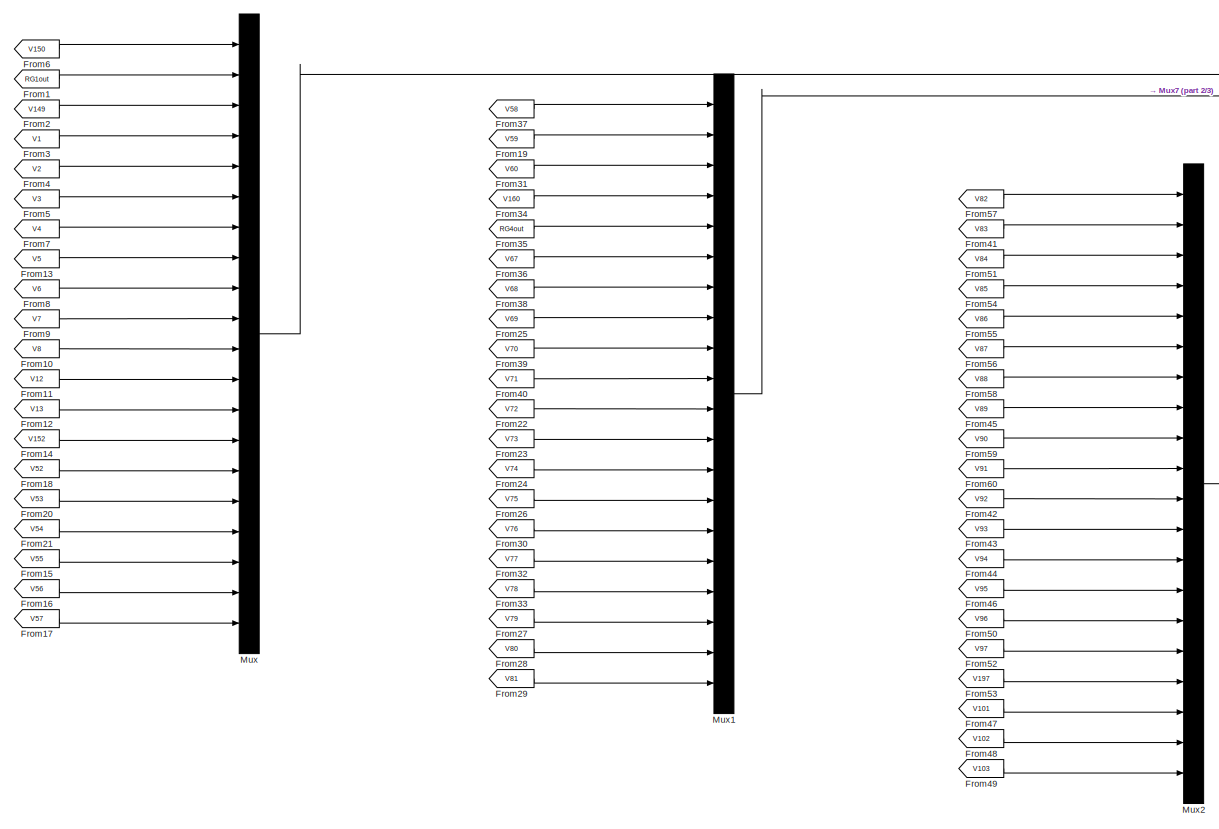
[diagram: Measurements - part 1/3, left side, full height]
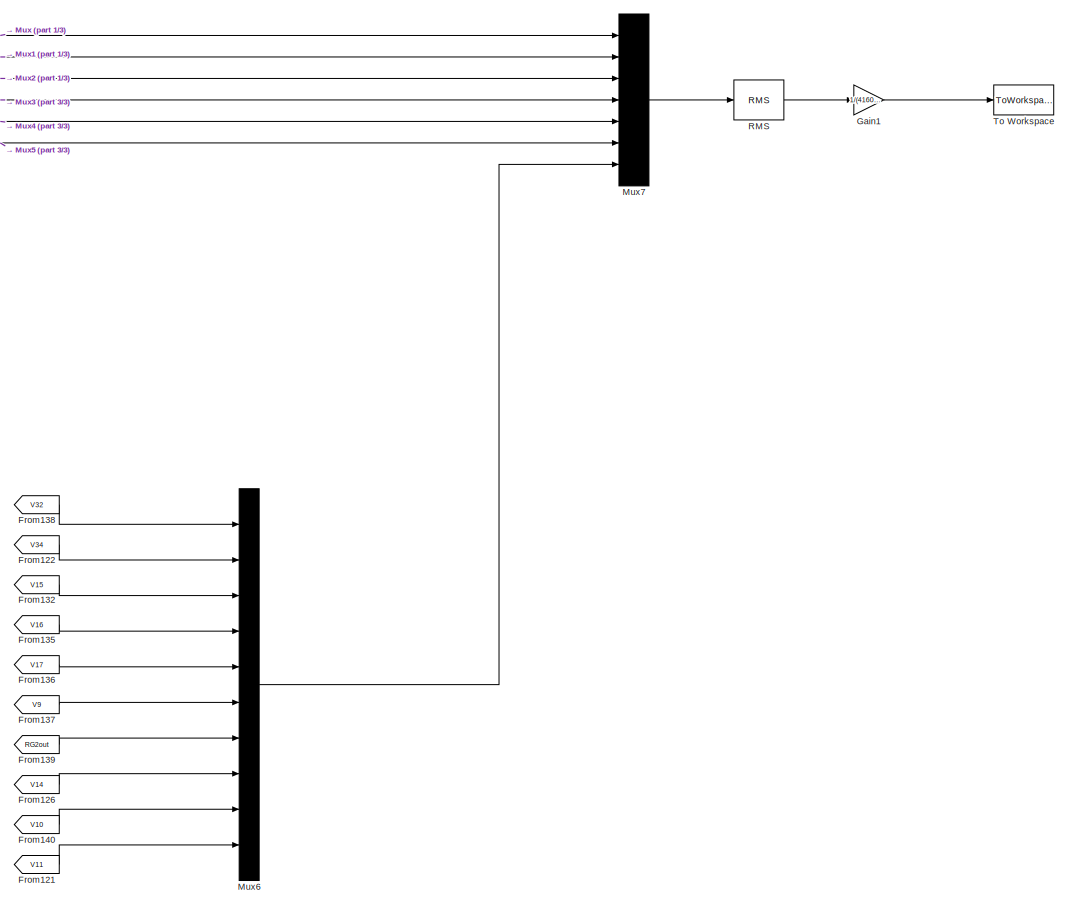
[diagram: Measurements - part 2/3, right side, full height]
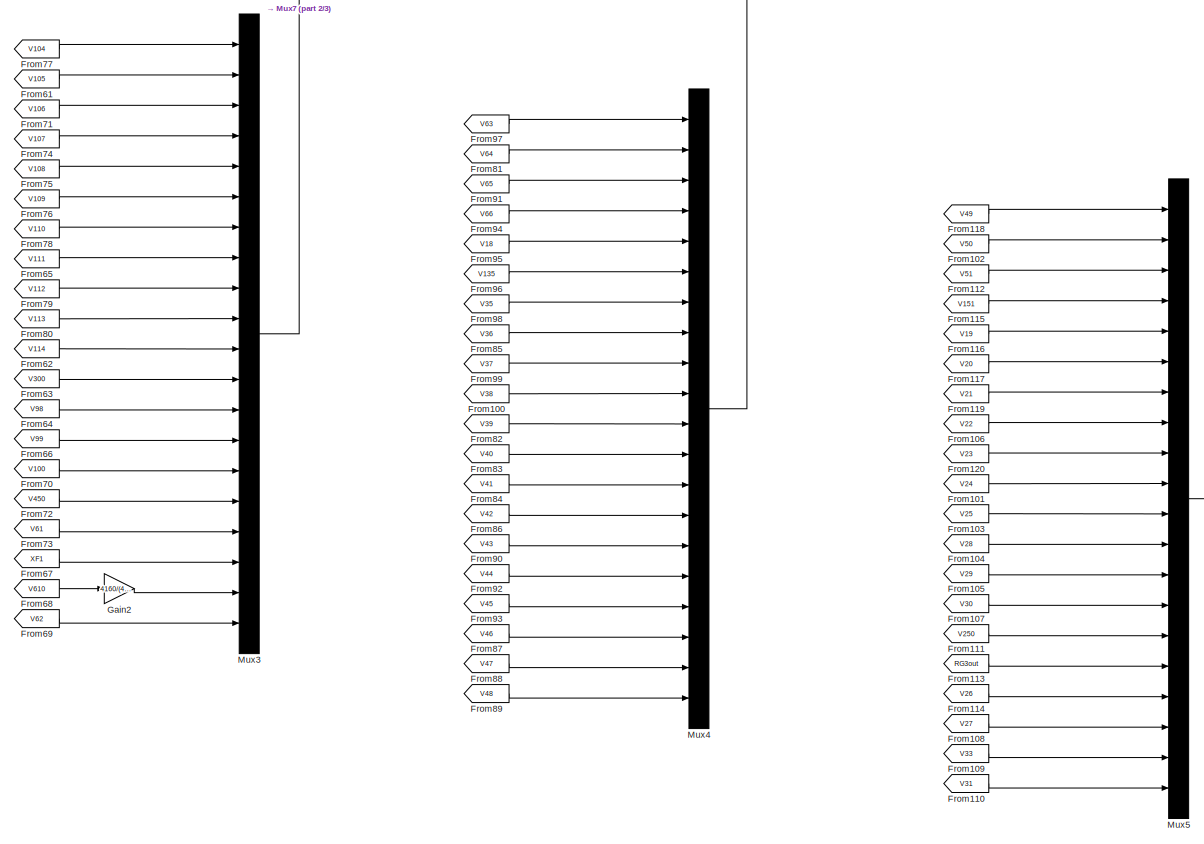
[diagram: Measurements - part 3/3, center side, full height]
BLOCK [SubSystem] Measurements
  Ports = []
  RequestExecContextInheritance = off
BLOCK [From] Measurements/From1
  GotoTag = RG1out
  TagVisibility = global
BLOCK [From] Measurements/From10
  GotoTag = V8
  TagVisibility = global
BLOCK [From] Measurements/From100
  GotoTag = V38
  TagVisibility = global
BLOCK [From] Measurements/From101
  GotoTag = V24
  TagVisibility = global
BLOCK [From] Measurements/From102
  GotoTag = V50
  TagVisibility = global
BLOCK [From] Measurements/From103
  GotoTag = V25
  TagVisibility = global
BLOCK [From] Measurements/From104
  GotoTag = V28
  TagVisibility = global
BLOCK [From] Measurements/From105
  GotoTag = V29
  TagVisibility = global
BLOCK [From] Measurements/From106
  GotoTag = V22
  TagVisibility = global
BLOCK [From] Measurements/From107
  GotoTag = V30
  TagVisibility = global
BLOCK [From] Measurements/From108
  GotoTag = V27
  TagVisibility = global
BLOCK [From] Measurements/From109
  GotoTag = V33
  TagVisibility = global
BLOCK [From] Measurements/From11
  GotoTag = V12
  TagVisibility = global
BLOCK [From] Measurements/From110
  GotoTag = V31
  TagVisibility = global
BLOCK [From] Measurements/From111
  GotoTag = V250
  TagVisibility = global
BLOCK [From] Measurements/From112
  GotoTag = V51
  TagVisibility = global
BLOCK [From] Measurements/From113
  GotoTag = RG3out
  TagVisibility = global
BLOCK [From] Measurements/From114
  GotoTag = V26
  TagVisibility = global
BLOCK [From] Measurements/From115
  GotoTag = V151
  TagVisibility = global
BLOCK [From] Measurements/From116
  GotoTag = V19
  TagVisibility = global
BLOCK [From] Measurements/From117
  GotoTag = V20
  TagVisibility = global
BLOCK [From] Measurements/From118
  GotoTag = V49
  TagVisibility = global
BLOCK [From] Measurements/From119
  GotoTag = V21
  TagVisibility = global
BLOCK [From] Measurements/From12
  GotoTag = V13
  TagVisibility = global
BLOCK [From] Measurements/From120
  GotoTag = V23
  TagVisibility = global
BLOCK [From] Measurements/From121
  GotoTag = V11
  TagVisibility = global
BLOCK [From] Measurements/From122
  GotoTag = V34
  TagVisibility = global
BLOCK [From] Measurements/From126
  GotoTag = V14
  TagVisibility = global
BLOCK [From] Measurements/From13
  GotoTag = V5
  TagVisibility = global
BLOCK [From] Measurements/From132
  GotoTag = V15
  TagVisibility = global
BLOCK [From] Measurements/From135
  GotoTag = V16
  TagVisibility = global
BLOCK [From] Measurements/From136
  GotoTag = V17
  TagVisibility = global
BLOCK [From] Measurements/From137
  GotoTag = V9
  TagVisibility = global
BLOCK [From] Measurements/From138
  GotoTag = V32
  TagVisibility = global
BLOCK [From] Measurements/From139
  GotoTag = RG2out
  TagVisibility = global
BLOCK [From] Measurements/From14
  GotoTag = V152
  TagVisibility = global
BLOCK [From] Measurements/From140
  GotoTag = V10
  TagVisibility = global
BLOCK [From] Measurements/From15
  GotoTag = V55
  TagVisibility = global
BLOCK [From] Measurements/From16
  GotoTag = V56
  TagVisibility = global
BLOCK [From] Measurements/From17
  GotoTag = V57
  TagVisibility = global
BLOCK [From] Measurements/From18
  GotoTag = V52
  TagVisibility = global
BLOCK [From] Measurements/From19
  GotoTag = V59
  TagVisibility = global
BLOCK [From] Measurements/From2
  GotoTag = V149
  TagVisibility = global
BLOCK [From] Measurements/From20
  GotoTag = V53
  TagVisibility = global
BLOCK [From] Measurements/From21
  GotoTag = V54
  TagVisibility = global
BLOCK [From] Measurements/From22
  GotoTag = V72
  TagVisibility = global
BLOCK [From] Measurements/From23
  GotoTag = V73
  TagVisibility = global
BLOCK [From] Measurements/From24
  GotoTag = V74
  TagVisibility = global
BLOCK [From] Measurements/From25
  GotoTag = V69
  TagVisibility = global
BLOCK [From] Measurements/From26
  GotoTag = V75
  TagVisibility = global
BLOCK [From] Measurements/From27
  GotoTag = V79
  TagVisibility = global
BLOCK [From] Measurements/From28
  GotoTag = V80
  TagVisibility = global
BLOCK [From] Measurements/From29
  GotoTag = V81
  TagVisibility = global
BLOCK [From] Measurements/From3
  GotoTag = V1
  TagVisibility = global
BLOCK [From] Measurements/From30
  GotoTag = V76
  TagVisibility = global
BLOCK [From] Measurements/From31
  GotoTag = V60
  TagVisibility = global
BLOCK [From] Measurements/From32
  GotoTag = V77
  TagVisibility = global
BLOCK [From] Measurements/From33
  GotoTag = V78
  TagVisibility = global
BLOCK [From] Measurements/From34
  GotoTag = V160
  TagVisibility = global
BLOCK [From] Measurements/From35
  GotoTag = RG4out
  TagVisibility = global
BLOCK [From] Measurements/From36
  GotoTag = V67
  TagVisibility = global
BLOCK [From] Measurements/From37
  GotoTag = V58
  TagVisibility = global
BLOCK [From] Measurements/From38
  GotoTag = V68
  TagVisibility = global
BLOCK [From] Measurements/From39
  GotoTag = V70
  TagVisibility = global
BLOCK [From] Measurements/From4
  GotoTag = V2
  TagVisibility = global
BLOCK [From] Measurements/From40
  GotoTag = V71
  TagVisibility = global
BLOCK [From] Measurements/From41
  GotoTag = V83
  TagVisibility = global
BLOCK [From] Measurements/From42
  GotoTag = V92
  TagVisibility = global
BLOCK [From] Measurements/From43
  GotoTag = V93
  TagVisibility = global
BLOCK [From] Measurements/From44
  GotoTag = V94
  TagVisibility = global
BLOCK [From] Measurements/From45
  GotoTag = V89
  TagVisibility = global
BLOCK [From] Measurements/From46
  GotoTag = V95
  TagVisibility = global
BLOCK [From] Measurements/From47
  GotoTag = V101
  TagVisibility = global
BLOCK [From] Measurements/From48
  GotoTag = V102
  TagVisibility = global
BLOCK [From] Measurements/From49
  GotoTag = V103
  TagVisibility = global
BLOCK [From] Measurements/From5
  GotoTag = V3
  TagVisibility = global
BLOCK [From] Measurements/From50
  GotoTag = V96
  TagVisibility = global
BLOCK [From] Measurements/From51
  GotoTag = V84
  TagVisibility = global
BLOCK [From] Measurements/From52
  GotoTag = V97
  TagVisibility = global
BLOCK [From] Measurements/From53
  GotoTag = V197
  TagVisibility = global
BLOCK [From] Measurements/From54
  GotoTag = V85
  TagVisibility = global
BLOCK [From] Measurements/From55
  GotoTag = V86
  TagVisibility = global
BLOCK [From] Measurements/From56
  GotoTag = V87
  TagVisibility = global
BLOCK [From] Measurements/From57
  GotoTag = V82
  TagVisibility = global
BLOCK [From] Measurements/From58
  GotoTag = V88
  TagVisibility = global
BLOCK [From] Measurements/From59
  GotoTag = V90
  TagVisibility = global
BLOCK [From] Measurements/From6
  GotoTag = V150
  TagVisibility = global
BLOCK [From] Measurements/From60
  GotoTag = V91
  TagVisibility = global
BLOCK [From] Measurements/From61
  GotoTag = V105
  TagVisibility = global
BLOCK [From] Measurements/From62
  GotoTag = V114
  TagVisibility = global
BLOCK [From] Measurements/From63
  GotoTag = V300
  TagVisibility = global
BLOCK [From] Measurements/From64
  GotoTag = V98
  TagVisibility = global
BLOCK [From] Measurements/From65
  GotoTag = V111
  TagVisibility = global
BLOCK [From] Measurements/From66
  GotoTag = V99
  TagVisibility = global
BLOCK [From] Measurements/From67
  GotoTag = XF1
  TagVisibility = global
BLOCK [From] Measurements/From68
  GotoTag = V610
  TagVisibility = global
BLOCK [From] Measurements/From69
  GotoTag = V62
  TagVisibility = global
BLOCK [From] Measurements/From7
  GotoTag = V4
  TagVisibility = global
BLOCK [From] Measurements/From70
  GotoTag = V100
  TagVisibility = global
BLOCK [From] Measurements/From71
  GotoTag = V106
  TagVisibility = global
BLOCK [From] Measurements/From72
  GotoTag = V450
  TagVisibility = global
BLOCK [From] Measurements/From73
  GotoTag = V61
  TagVisibility = global
BLOCK [From] Measurements/From74
  GotoTag = V107
  TagVisibility = global
BLOCK [From] Measurements/From75
  GotoTag = V108
  TagVisibility = global
BLOCK [From] Measurements/From76
  GotoTag = V109
  TagVisibility = global
BLOCK [From] Measurements/From77
  GotoTag = V104
  TagVisibility = global
BLOCK [From] Measurements/From78
  GotoTag = V110
  TagVisibility = global
BLOCK [From] Measurements/From79
  GotoTag = V112
  TagVisibility = global
BLOCK [From] Measurements/From8
  GotoTag = V6
  TagVisibility = global
BLOCK [From] Measurements/From80
  GotoTag = V113
  TagVisibility = global
BLOCK [From] Measurements/From81
  GotoTag = V64
  TagVisibility = global
BLOCK [From] Measurements/From82
  GotoTag = V39
  TagVisibility = global
BLOCK [From] Measurements/From83
  GotoTag = V40
  TagVisibility = global
BLOCK [From] Measurements/From84
  GotoTag = V41
  TagVisibility = global
BLOCK [From] Measurements/From85
  GotoTag = V36
  TagVisibility = global
BLOCK [From] Measurements/From86
  GotoTag = V42
  TagVisibility = global
BLOCK [From] Measurements/From87
  GotoTag = V46
  TagVisibility = global
BLOCK [From] Measurements/From88
  GotoTag = V47
  TagVisibility = global
BLOCK [From] Measurements/From89
  GotoTag = V48
  TagVisibility = global
BLOCK [From] Measurements/From9
  GotoTag = V7
  TagVisibility = global
BLOCK [From] Measurements/From90
  GotoTag = V43
  TagVisibility = global
BLOCK [From] Measurements/From91
  GotoTag = V65
  TagVisibility = global
BLOCK [From] Measurements/From92
  GotoTag = V44
  TagVisibility = global
BLOCK [From] Measurements/From93
  GotoTag = V45
  TagVisibility = global
BLOCK [From] Measurements/From94
  GotoTag = V66
  TagVisibility = global
BLOCK [From] Measurements/From95
  GotoTag = V18
  TagVisibility = global
BLOCK [From] Measurements/From96
  GotoTag = V135
  TagVisibility = global
BLOCK [From] Measurements/From97
  GotoTag = V63
  TagVisibility = global
BLOCK [From] Measurements/From98
  GotoTag = V35
  TagVisibility = global
BLOCK [From] Measurements/From99
  GotoTag = V37
  TagVisibility = global
BLOCK [Gain] Measurements/Gain1
  Gain = 1/(4160/sqrt(3))
  OutDataTypeStr = Inherit: Inherit via internal rule
  ParamDataTypeStr = Inherit: Inherit via internal rule
  SaturateOnIntegerOverflow = off
BLOCK [Gain] Measurements/Gain2
  Gain = 4160/(480*sqrt(3))
  OutDataTypeStr = Inherit: Inherit via internal rule
  ParamDataTypeStr = Inherit: Inherit via internal rule
  SaturateOnIntegerOverflow = off
BLOCK [Mux] Measurements/Mux
  DisplayOption = bar
  Inputs = 20
  Ports = [20, 1]
BLOCK [Mux] Measurements/Mux1
  DisplayOption = bar
  Inputs = 20
  Ports = [20, 1]
BLOCK [Mux] Measurements/Mux2
  DisplayOption = bar
  Inputs = 20
  Ports = [20, 1]
BLOCK [Mux] Measurements/Mux3
  DisplayOption = bar
  Inputs = 20
  Ports = [20, 1]
BLOCK [Mux] Measurements/Mux4
  DisplayOption = bar
  Inputs = 20
  Ports = [20, 1]
BLOCK [Mux] Measurements/Mux5
  DisplayOption = bar
  Inputs = 20
  Ports = [20, 1]
BLOCK [Mux] Measurements/Mux6
  DisplayOption = bar
  Inputs = 10
  Ports = [10, 1]
BLOCK [Mux] Measurements/Mux7
  DisplayOption = bar
  Inputs = 7
  Ports = [7, 1]
BLOCK [Reference] Measurements/RMS  REF=powerlib_meascontrol/Measurements/RMS
  Ports = [1, 1]
  SourceBlock = powerlib_meascontrol/Measurements/RMS
  SourceProductBaseCode = PS
  SourceProductName = Simscape Electrical
  SourceType = RMS
BLOCK [ToWorkspace] Measurements/To Workspace
  FixptAsFi = on
  MaxDataPoints = inf
  Ports = [1]
  SampleTime = .1
  VariableName = V123
BLOCK [Reference] RG1in  REF=powerlib/Measurements/Three-Phase
V-I Measurement
  Ports = [0, 0, 0, 0, 0, 3, 3]
  SourceBlock = powerlib/Measurements/Three-Phase\nV-I Measurement
  SourceProductBaseCode = PS
  SourceProductName = Simscape Electrical
  SourceType = Three-Phase VI Measurement
BLOCK [Reference] RG1out  REF=powerlib/Measurements/Three-Phase
V-I Measurement
  Ports = [0, 0, 0, 0, 0, 3, 3]
  SourceBlock = powerlib/Measurements/Three-Phase\nV-I Measurement
  SourceProductBaseCode = PS
  SourceProductName = Simscape Electrical
  SourceType = Three-Phase VI Measurement
BLOCK [SubSystem] RG2in
  Ports = [0, 0, 0, 0, 0, 1, 1]
  RequestExecContextInheritance = off
BLOCK [Reference] RG2in/2  REF=powerlib/Measurements/Three-Phase
V-I Measurement
  Ports = [0, 0, 0, 0, 0, 3, 3]
  SourceBlock = powerlib/Measurements/Three-Phase\nV-I Measurement
  SourceProductBaseCode = PS
  SourceProductName = Simscape Electrical
  SourceType = Three-Phase VI Measurement
BLOCK [PMIOPort] RG2in/A
  Port = 2
  Side = Left
BLOCK [Reference] RG2in/Ground82  REF=powerlib/Elements/Ground
  Ports = [0, 0, 0, 0, 0, 1]
  SourceBlock = powerlib/Elements/Ground
  SourceProductBaseCode = PS
  SourceProductName = Simscape Electrical
  SourceType = Ground
BLOCK [Reference] RG2in/Ground83  REF=powerlib/Elements/Ground
  Ports = [0, 0, 0, 0, 0, 1]
  SourceBlock = powerlib/Elements/Ground
  SourceProductBaseCode = PS
  SourceProductName = Simscape Electrical
  SourceType = Ground
BLOCK [PMIOPort] RG2in/a
  Side = Right
BLOCK [SubSystem] RG2out
  Ports = [0, 0, 0, 0, 0, 1, 1]
  RequestExecContextInheritance = off
BLOCK [Reference] RG2out/2  REF=powerlib/Measurements/Three-Phase
V-I Measurement
  Ports = [0, 0, 0, 0, 0, 3, 3]
  SourceBlock = powerlib/Measurements/Three-Phase\nV-I Measurement
  SourceProductBaseCode = PS
  SourceProductName = Simscape Electrical
  SourceType = Three-Phase VI Measurement
BLOCK [PMIOPort] RG2out/A
  Port = 2
  Side = Left
BLOCK [Reference] RG2out/Ground82  REF=powerlib/Elements/Ground
  Ports = [0, 0, 0, 0, 0, 1]
  SourceBlock = powerlib/Elements/Ground
  SourceProductBaseCode = PS
  SourceProductName = Simscape Electrical
  SourceType = Ground
BLOCK [Reference] RG2out/Ground83  REF=powerlib/Elements/Ground
  Ports = [0, 0, 0, 0, 0, 1]
  SourceBlock = powerlib/Elements/Ground
  SourceProductBaseCode = PS
  SourceProductName = Simscape Electrical
  SourceType = Ground
BLOCK [PMIOPort] RG2out/a
  Side = Right
BLOCK [SubSystem] RG3in
  Ports = [0, 0, 0, 0, 0, 2, 2]
  RequestExecContextInheritance = off
BLOCK [Reference] RG3in/1  REF=powerlib/Measurements/Three-Phase
V-I Measurement
  Ports = [0, 0, 0, 0, 0, 3, 3]
  SourceBlock = powerlib/Measurements/Three-Phase\nV-I Measurement
  SourceProductBaseCode = PS
  SourceProductName = Simscape Electrical
  SourceType = Three-Phase VI Measurement
BLOCK [PMIOPort] RG3in/A
  Side = Left
BLOCK [PMIOPort] RG3in/C
  Port = 3
  Side = Left
BLOCK [Reference] RG3in/Ground1  REF=powerlib/Elements/Ground
  Ports = [0, 0, 0, 0, 0, 1]
  SourceBlock = powerlib/Elements/Ground
  SourceProductBaseCode = PS
  SourceProductName = Simscape Electrical
  SourceType = Ground
BLOCK [Reference] RG3in/Ground2  REF=powerlib/Elements/Ground
  Ports = [0, 0, 0, 0, 0, 1]
  SourceBlock = powerlib/Elements/Ground
  SourceProductBaseCode = PS
  SourceProductName = Simscape Electrical
  SourceType = Ground
BLOCK [PMIOPort] RG3in/a
  Port = 2
  Side = Right
BLOCK [PMIOPort] RG3in/c
  Port = 4
  Side = Right
BLOCK [SubSystem] RG3out
  Ports = [0, 0, 0, 0, 0, 2, 2]
  RequestExecContextInheritance = off
BLOCK [Reference] RG3out/1  REF=powerlib/Measurements/Three-Phase
V-I Measurement
  Ports = [0, 0, 0, 0, 0, 3, 3]
  SourceBlock = powerlib/Measurements/Three-Phase\nV-I Measurement
  SourceProductBaseCode = PS
  SourceProductName = Simscape Electrical
  SourceType = Three-Phase VI Measurement
BLOCK [PMIOPort] RG3out/A
  Side = Left
BLOCK [PMIOPort] RG3out/C
  Port = 3
  Side = Left
BLOCK [Reference] RG3out/Ground1  REF=powerlib/Elements/Ground
  Ports = [0, 0, 0, 0, 0, 1]
  SourceBlock = powerlib/Elements/Ground
  SourceProductBaseCode = PS
  SourceProductName = Simscape Electrical
  SourceType = Ground
BLOCK [Reference] RG3out/Ground2  REF=powerlib/Elements/Ground
  Ports = [0, 0, 0, 0, 0, 1]
  SourceBlock = powerlib/Elements/Ground
  SourceProductBaseCode = PS
  SourceProductName = Simscape Electrical
  SourceType = Ground
BLOCK [PMIOPort] RG3out/a
  Port = 2
  Side = Right
BLOCK [PMIOPort] RG3out/c
  Port = 4
  Side = Right
BLOCK [Reference] RG4in  REF=powerlib/Measurements/Three-Phase
V-I Measurement
  Ports = [0, 0, 0, 0, 0, 3, 3]
  SourceBlock = powerlib/Measurements/Three-Phase\nV-I Measurement
  SourceProductBaseCode = PS
  SourceProductName = Simscape Electrical
  SourceType = Three-Phase VI Measurement
BLOCK [Reference] RG4out  REF=powerlib/Measurements/Three-Phase
V-I Measurement
  Ports = [0, 0, 0, 0, 0, 3, 3]
  SourceBlock = powerlib/Measurements/Three-Phase\nV-I Measurement
  SourceProductBaseCode = PS
  SourceProductName = Simscape Electrical
  SourceType = Three-Phase VI Measurement
BLOCK [Goto] Reg1
  GotoTag = Reg1
  TagVisibility = global
BLOCK [Goto] Reg2
  GotoTag = Reg2
  TagVisibility = global
BLOCK [Goto] Reg3
  GotoTag = Reg3
  TagVisibility = global
BLOCK [Goto] Reg4
  GotoTag = Reg4
  TagVisibility = global
BLOCK [SubSystem] Regulator 1 Three Phase Ganged SVR
  Ports = [0, 1, 0, 0, 0, 3, 3]
  RequestExecContextInheritance = off
BLOCK [PMIOPort] Regulator 1 Three Phase Ganged SVR/A
  Side = Left
BLOCK [PMIOPort] Regulator 1 Three Phase Ganged SVR/B
  Port = 3
  Side = Left
BLOCK [PMIOPort] Regulator 1 Three Phase Ganged SVR/C
  Port = 5
  Side = Left
BLOCK [From] Regulator 1 Three Phase Ganged SVR/From
  GotoTag = Vm
BLOCK [From] Regulator 1 Three Phase Ganged SVR/From1
  GotoTag = Vm
BLOCK [From] Regulator 1 Three Phase Ganged SVR/From2
  GotoTag = Vm
BLOCK [SubSystem] Regulator 1 Three Phase Ganged SVR/Ganged Line Drop Compensator
  Ports = [2, 1]
  RequestExecContextInheritance = off
BLOCK [Reference] Regulator 1 Three Phase Ganged SVR/Ganged Line Drop Compensator/          REF=powerlib/Elements/Linear Transformer
  Ports = [0, 0, 0, 0, 0, 2, 2]
  SourceBlock = powerlib/Elements/Linear Transformer
  SourceProductBaseCode = PS
  SourceProductName = Simscape Electrical
  SourceType = Linear Transformer
BLOCK [Reference] Regulator 1 Three Phase Ganged SVR/Ganged Line Drop Compensator/CTS    REF=powerlib/Electrical
Sources/Controlled Current Source
  Ports = [1, 0, 0, 0, 0, 1, 1]
  SourceBlock = powerlib/Electrical\nSources/Controlled Current Source
  SourceProductBaseCode = PS
  SourceProductName = Simscape Electrical
  SourceType = Controlled Current Source
BLOCK [Inport] Regulator 1 Three Phase Ganged SVR/Ganged Line Drop Compensator/Isec
  IconDisplay = Port number
BLOCK [Reference] Regulator 1 Three Phase Ganged SVR/Ganged Line Drop Compensator/PTS    REF=powerlib/Electrical
Sources/Controlled Voltage Source
  Ports = [1, 0, 0, 0, 0, 1, 1]
  SourceBlock = powerlib/Electrical\nSources/Controlled Voltage Source
  SourceProductBaseCode = PS
  SourceProductName = Simscape Electrical
  SourceType = Controlled Voltage Source
BLOCK [Reference] Regulator 1 Three Phase Ganged SVR/Ganged Line Drop Compensator/RMS  REF=powerlib_meascontrol/Measurements/RMS
  Ports = [1, 1]
  SourceBlock = powerlib_meascontrol/Measurements/RMS
  SourceProductBaseCode = PS
  SourceProductName = Simscape Electrical
  SourceType = RMS
BLOCK [Reference] Regulator 1 Three Phase Ganged SVR/Ganged Line Drop Compensator/Raux  REF=powerlib/Elements/Series RLC Branch
  Ports = [0, 0, 0, 0, 0, 1, 1]
  SourceBlock = powerlib/Elements/Series RLC Branch
  SourceProductBaseCode = PS
  SourceProductName = Simscape Electrical
  SourceType = Series RLC Branch
BLOCK [Reference] Regulator 1 Three Phase Ganged SVR/Ganged Line Drop Compensator/Rc+jXc  REF=powerlib/Elements/Series RLC Branch
  Ports = [0, 0, 0, 0, 0, 1, 1]
  SourceBlock = powerlib/Elements/Series RLC Branch
  SourceProductBaseCode = PS
  SourceProductName = Simscape Electrical
  SourceType = Series RLC Branch
BLOCK [Reference] Regulator 1 Three Phase Ganged SVR/Ganged Line Drop Compensator/VRelay  REF=powerlib/Measurements/Voltage Measurement
  Ports = [0, 1, 0, 0, 0, 2]
  SourceBlock = powerlib/Measurements/Voltage Measurement
  SourceProductBaseCode = PS
  SourceProductName = Simscape Electrical
  SourceType = Voltage Measurement
BLOCK [Outport] Regulator 1 Three Phase Ganged SVR/Ganged Line Drop Compensator/Vm
  IconDisplay = Port number
BLOCK [Inport] Regulator 1 Three Phase Ganged SVR/Ganged Line Drop Compensator/Vsec
  IconDisplay = Port number
  Port = 2
BLOCK [Goto] Regulator 1 Three Phase Ganged SVR/Goto
  GotoTag = Vm
BLOCK [Goto] Regulator 1 Three Phase Ganged SVR/Goto1
  GotoTag = Vr1
  TagVisibility = global
BLOCK [Mux] Regulator 1 Three Phase Ganged SVR/Mux
  DisplayOption = bar
  Inputs = 3
  Ports = [3, 1]
BLOCK [SubSystem] Regulator 1 Three Phase Ganged SVR/Single Phase SVR_A
  LoadFcn = find_system(gcs,'FollowLinks', 'on', 'LookUnderMasks', 'all');
  Ports = [1, 3, 0, 0, 0, 1, 1]
  RequestExecContextInheritance = off
BLOCK [Outport] Regulator 1 Three Phase Ganged SVR/Single Phase SVR_A/Isec
  IconDisplay = Port number
  Port = 2
  VectorParamsAs1DForOutWhenUnconnected = off
BLOCK [PMIOPort] Regulator 1 Three Phase Ganged SVR/Single Phase SVR_A/L
  Port = 2
  Side = Right
  Tag = PMCPort
BLOCK [PMIOPort] Regulator 1 Three Phase Ganged SVR/Single Phase SVR_A/S
  Side = Left
  Tag = PMCPort
BLOCK [Outport] Regulator 1 Three Phase Ganged SVR/Single Phase SVR_A/Tap
  IconDisplay = Port number
  VectorParamsAs1DForOutWhenUnconnected = off
BLOCK [SubSystem] Regulator 1 Three Phase Ganged SVR/Single Phase SVR_A/Transformer with Taps
  Ports = [1, 2, 0, 0, 0, 1, 1]
  RequestExecContextInheritance = off
BLOCK [Gain] Regulator 1 Three Phase Ganged SVR/Single Phase SVR_A/Transformer with Taps/    
  Gain = 1/ptRatio
  OutDataTypeStr = Inherit: Inherit via internal rule
  ParamDataTypeStr = Inherit: Inherit via internal rule
  SaturateOnIntegerOverflow = off
BLOCK [Gain] Regulator 1 Three Phase Ganged SVR/Single Phase SVR_A/Transformer with Taps/ 1
  Gain = 1/ctRatio
  OutDataTypeStr = Inherit: Inherit via internal rule
  ParamDataTypeStr = Inherit: Inherit via internal rule
  SaturateOnIntegerOverflow = off
BLOCK [Reference] Regulator 1 Three Phase Ganged SVR/Single Phase SVR_A/Transformer with Taps/CT  REF=powerlib/Measurements/Current Measurement
  Ports = [0, 1, 0, 0, 0, 1, 1]
  SourceBlock = powerlib/Measurements/Current Measurement
  SourceProductBaseCode = PS
  SourceProductName = Simscape Electrical
  SourceType = Current Measurement
BLOCK [Reference] Regulator 1 Three Phase Ganged SVR/Single Phase SVR_A/Transformer with Taps/Ground1  REF=powerlib/Elements/Ground
  Ports = [0, 0, 0, 0, 0, 1]
  SourceBlock = powerlib/Elements/Ground
  SourceProductBaseCode = PS
  SourceProductName = Simscape Electrical
  SourceType = Ground
BLOCK [Reference] Regulator 1 Three Phase Ganged SVR/Single Phase SVR_A/Transformer with Taps/Ground2  REF=powerlib/Elements/Ground
  Ports = [0, 0, 0, 0, 0, 1]
  SourceBlock = powerlib/Elements/Ground
  SourceProductBaseCode = PS
  SourceProductName = Simscape Electrical
  SourceType = Ground
BLOCK [Reference] Regulator 1 Three Phase Ganged SVR/Single Phase SVR_A/Transformer with Taps/Ground3  REF=powerlib/Elements/Ground
  Ports = [0, 0, 0, 0, 0, 1]
  SourceBlock = powerlib/Elements/Ground
  SourceProductBaseCode = PS
  SourceProductName = Simscape Electrical
  SourceType = Ground
BLOCK [Outport] Regulator 1 Three Phase Ganged SVR/Single Phase SVR_A/Transformer with Taps/Isec
  IconDisplay = Port number
BLOCK [PMIOPort] Regulator 1 Three Phase Ganged SVR/Single Phase SVR_A/Transformer with Taps/L
  Side = Right
  Tag = PMCPort
BLOCK [Memory] Regulator 1 Three Phase Ganged SVR/Single Phase SVR_A/Transformer with Taps/Memory
BLOCK [Memory] Regulator 1 Three Phase Ganged SVR/Single Phase SVR_A/Transformer with Taps/Memory1
BLOCK [Inport] Regulator 1 Three Phase Ganged SVR/Single Phase SVR_A/Transformer with Taps/N
  IconDisplay = Port number
BLOCK [Reference] Regulator 1 Three Phase Ganged SVR/Single Phase SVR_A/Transformer with Taps/PT  REF=powerlib/Measurements/Voltage Measurement
  Ports = [0, 1, 0, 0, 0, 2]
  SourceBlock = powerlib/Measurements/Voltage Measurement
  SourceProductBaseCode = PS
  SourceProductName = Simscape Electrical
  SourceType = Voltage Measurement
BLOCK [PMIOPort] Regulator 1 Three Phase Ganged SVR/Single Phase SVR_A/Transformer with Taps/S
  Port = 2
  Side = Left
BLOCK [Reference] Regulator 1 Three Phase Ganged SVR/Single Phase SVR_A/Transformer with Taps/Variable-Ratio Transformer   REF=powerlib/Elements/Variable-Ratio
Transformer
  Ports = [1, 0, 0, 0, 0, 2, 2]
  SourceBlock = powerlib/Elements/Variable-Ratio\nTransformer
  SourceProductBaseCode = PS
  SourceProductName = Simscape Electrical
  SourceType = Variable-Ratio Transformer
BLOCK [Outport] Regulator 1 Three Phase Ganged SVR/Single Phase SVR_A/Transformer with Taps/Vsec
  IconDisplay = Port number
  Port = 2
BLOCK [Reference] Regulator 1 Three Phase Ganged SVR/Single Phase SVR_A/Transformer with Taps/rs  REF=powerlib/Elements/Series RLC Branch
  Ports = [0, 0, 0, 0, 0, 1, 1]
  SourceBlock = powerlib/Elements/Series RLC Branch
  SourceProductBaseCode = PS
  SourceProductName = Simscape Electrical
  SourceType = Series RLC Branch
BLOCK [Inport] Regulator 1 Three Phase Ganged SVR/Single Phase SVR_A/Vm
  IconDisplay = Port number
BLOCK [SubSystem] Regulator 1 Three Phase Ganged SVR/Single Phase SVR_A/Voltage Regulator Control
  Ports = [1, 2]
  RequestExecContextInheritance = off
BLOCK [Constant] Regulator 1 Three Phase Ganged SVR/Single Phase SVR_A/Voltage Regulator Control/1
BLOCK [Constant] Regulator 1 Three Phase Ganged SVR/Single Phase SVR_A/Voltage Regulator Control/Constant
  Value = RegulatorOn
BLOCK [Constant] Regulator 1 Three Phase Ganged SVR/Single Phase SVR_A/Voltage Regulator Control/Constant5
BLOCK [Outport] Regulator 1 Three Phase Ganged SVR/Single Phase SVR_A/Voltage Regulator Control/N
  IconDisplay = Port number
BLOCK [Product] Regulator 1 Three Phase Ganged SVR/Single Phase SVR_A/Voltage Regulator Control/Product
  InputSameDT = off
  Inputs = /*
  OutDataTypeStr = Inherit: Inherit via internal rule
  Ports = [2, 1]
  RndMeth = Floor
  SaturateOnIntegerOverflow = off
BLOCK [Sum] Regulator 1 Three Phase Ganged SVR/Single Phase SVR_A/Voltage Regulator Control/Sum
  InputSameDT = off
  OutDataTypeStr = Inherit: Inherit via internal rule
  Ports = [2, 1]
  SaturateOnIntegerOverflow = off
BLOCK [Outport] Regulator 1 Three Phase Ganged SVR/Single Phase SVR_A/Voltage Regulator Control/Tap
  IconDisplay = Port number
  Port = 2
BLOCK [SubSystem] Regulator 1 Three Phase Ganged SVR/Single Phase SVR_A/Voltage Regulator Control/Tap Changer Control
  Ports = [2, 2]
  RequestExecContextInheritance = off
BLOCK [Constant] Regulator 1 Three Phase Ganged SVR/Single Phase SVR_A/Voltage Regulator Control/Tap Changer Control/Constant
  Value = -1
BLOCK [Constant] Regulator 1 Three Phase Ganged SVR/Single Phase SVR_A/Voltage Regulator Control/Tap Changer Control/Constant1
BLOCK [SubSystem] Regulator 1 Three Phase Ganged SVR/Single Phase SVR_A/Voltage Regulator Control/Tap Changer Control/Determine tap position
  Ports = [1, 1, 0, 1]
  RequestExecContextInheritance = off
BLOCK [Memory] Regulator 1 Three Phase Ganged SVR/Single Phase SVR_A/Voltage Regulator Control/Tap Changer Control/Determine tap position/Memory
  InheritSampleTime = on
  InitialCondition = InitialPosition
BLOCK [Inport] Regulator 1 Three Phase Ganged SVR/Single Phase SVR_A/Voltage Regulator Control/Tap Changer Control/Determine tap position/NewTap
  IconDisplay = Port number
BLOCK [Saturate] Regulator 1 Three Phase Ganged SVR/Single Phase SVR_A/Voltage Regulator Control/Tap Changer Control/Determine tap position/Saturation
  InputPortMap = u0
  LowerLimit = MinMaxTap(1)
  Ports = [1, 1]
  UpperLimit = MinMaxTap(2)
BLOCK [Sum] Regulator 1 Three Phase Ganged SVR/Single Phase SVR_A/Voltage Regulator Control/Tap Changer Control/Determine tap position/Sum
  IconShape = round
  InputSameDT = off
  Inputs = |++
  OutDataTypeStr = Inherit: Inherit via internal rule
  Ports = [2, 1]
BLOCK [Outport] Regulator 1 Three Phase Ganged SVR/Single Phase SVR_A/Voltage Regulator Control/Tap Changer Control/Determine tap position/TapNo
  IconDisplay = Port number
  InitialOutput = InitialPosition
  VectorParamsAs1DForOutWhenUnconnected = off
BLOCK [TriggerPort] Regulator 1 Three Phase Ganged SVR/Single Phase SVR_A/Voltage Regulator Control/Tap Changer Control/Determine tap position/Trigger
  Ports = []
  VariantControl = Variant
BLOCK [Inport] Regulator 1 Three Phase Ganged SVR/Single Phase SVR_A/Voltage Regulator Control/Tap Changer Control/Down 
  IconDisplay = Port number
  Port = 2
BLOCK [SubSystem] Regulator 1 Three Phase Ganged SVR/Single Phase SVR_A/Voltage Regulator Control/Tap Changer Control/Edge Detector
  DialogController = POWERSYS.PowerSysDialog
  Ports = [1, 1]
  RequestExecContextInheritance = off
  ShowPortLabels = none
BLOCK [Constant] Regulator 1 Three Phase Ganged SVR/Single Phase SVR_A/Voltage Regulator Control/Tap Changer Control/Edge Detector/Constant1
  Value = model
BLOCK [Demux] Regulator 1 Three Phase Ganged SVR/Single Phase SVR_A/Voltage Regulator Control/Tap Changer Control/Edge Detector/Demux
  Outputs = 2
  Ports = [1, 2]
BLOCK [Inport] Regulator 1 Three Phase Ganged SVR/Single Phase SVR_A/Voltage Regulator Control/Tap Changer Control/Edge Detector/In
  IconDisplay = Port number
BLOCK [Logic] Regulator 1 Three Phase Ganged SVR/Single Phase SVR_A/Voltage Regulator Control/Tap Changer Control/Edge Detector/Logical Operator1
  Operator = OR
  Ports = [2, 1]
BLOCK [Memory] Regulator 1 Three Phase Ganged SVR/Single Phase SVR_A/Voltage Regulator Control/Tap Changer Control/Edge Detector/Memory
  InitialCondition = ic
  LinearizeAsDelay = on
BLOCK [MultiPortSwitch] Regulator 1 Three Phase Ganged SVR/Single Phase SVR_A/Voltage Regulator Control/Tap Changer Control/Edge Detector/Multiport Switch
  InputSameDT = off
  Ports = [4, 1]
BLOCK [SubSystem] Regulator 1 Three Phase Ganged SVR/Single Phase SVR_A/Voltage Regulator Control/Tap Changer Control/Edge Detector/NEGATIVE Edge
  Ports = [2, 1, 1]
  RequestExecContextInheritance = off
  TreatAsAtomicUnit = on
BLOCK [EnablePort] Regulator 1 Three Phase Ganged SVR/Single Phase SVR_A/Voltage Regulator Control/Tap Changer Control/Edge Detector/NEGATIVE Edge/Enable
  Ports = []
  PropagateVarSize = During execution
BLOCK [Inport] Regulator 1 Three Phase Ganged SVR/Single Phase SVR_A/Voltage Regulator Control/Tap Changer Control/Edge Detector/NEGATIVE Edge/IN
  IconDisplay = Port number
BLOCK [Inport] Regulator 1 Three Phase Ganged SVR/Single Phase SVR_A/Voltage Regulator Control/Tap Changer Control/Edge Detector/NEGATIVE Edge/IN previous
  IconDisplay = Port number
  Port = 2
BLOCK [Outport] Regulator 1 Three Phase Ganged SVR/Single Phase SVR_A/Voltage Regulator Control/Tap Changer Control/Edge Detector/NEGATIVE Edge/OUT
  IconDisplay = Port number
  VectorParamsAs1DForOutWhenUnconnected = off
BLOCK [RelationalOperator] Regulator 1 Three Phase Ganged SVR/Single Phase SVR_A/Voltage Regulator Control/Tap Changer Control/Edge Detector/NEGATIVE Edge/Relational Operator1
  Operator = >
  Ports = [2, 1]
BLOCK [Outport] Regulator 1 Three Phase Ganged SVR/Single Phase SVR_A/Voltage Regulator Control/Tap Changer Control/Edge Detector/Out
  IconDisplay = Port number
  VectorParamsAs1DForOutWhenUnconnected = off
BLOCK [SubSystem] Regulator 1 Three Phase Ganged SVR/Single Phase SVR_A/Voltage Regulator Control/Tap Changer Control/Edge Detector/POSITIVE Edge
  Ports = [2, 1, 1]
  RequestExecContextInheritance = off
  TreatAsAtomicUnit = on
BLOCK [EnablePort] Regulator 1 Three Phase Ganged SVR/Single Phase SVR_A/Voltage Regulator Control/Tap Changer Control/Edge Detector/POSITIVE Edge/Enable
  Ports = []
  PropagateVarSize = During execution
BLOCK [Inport] Regulator 1 Three Phase Ganged SVR/Single Phase SVR_A/Voltage Regulator Control/Tap Changer Control/Edge Detector/POSITIVE Edge/IN
  IconDisplay = Port number
BLOCK [Inport] Regulator 1 Three Phase Ganged SVR/Single Phase SVR_A/Voltage Regulator Control/Tap Changer Control/Edge Detector/POSITIVE Edge/IN previous
  IconDisplay = Port number
  Port = 2
BLOCK [Outport] Regulator 1 Three Phase Ganged SVR/Single Phase SVR_A/Voltage Regulator Control/Tap Changer Control/Edge Detector/POSITIVE Edge/OUT
  IconDisplay = Port number
  VectorParamsAs1DForOutWhenUnconnected = off
BLOCK [RelationalOperator] Regulator 1 Three Phase Ganged SVR/Single Phase SVR_A/Voltage Regulator Control/Tap Changer Control/Edge Detector/POSITIVE Edge/Relational Operator1
  Operator = >
  Ports = [2, 1]
BLOCK [Constant] Regulator 1 Three Phase Ganged SVR/Single Phase SVR_A/Voltage Regulator Control/Tap Changer Control/Edge Detector/either edge
  Value = [1 1]
BLOCK [Constant] Regulator 1 Three Phase Ganged SVR/Single Phase SVR_A/Voltage Regulator Control/Tap Changer Control/Edge Detector/neg. edge
  Value = [0 1]
BLOCK [Constant] Regulator 1 Three Phase Ganged SVR/Single Phase SVR_A/Voltage Regulator Control/Tap Changer Control/Edge Detector/pos. edge
  Value = [1 0]
BLOCK [Logic] Regulator 1 Three Phase Ganged SVR/Single Phase SVR_A/Voltage Regulator Control/Tap Changer Control/Logical Operator
  AllPortsSameDT = off
  Operator = OR
  Ports = [2, 1]
BLOCK [Logic] Regulator 1 Three Phase Ganged SVR/Single Phase SVR_A/Voltage Regulator Control/Tap Changer Control/Logical Operator1
  AllPortsSameDT = off
  Ports = [2, 1]
BLOCK [TransportDelay] Regulator 1 Three Phase Ganged SVR/Single Phase SVR_A/Voltage Regulator Control/Tap Changer Control/Mechanical Delay
  BufferSize = 5120
  DelayTime = MecDelay
  InitialOutput = InitialPosition
  Ports = [1, 1]
BLOCK [Memory] Regulator 1 Three Phase Ganged SVR/Single Phase SVR_A/Voltage Regulator Control/Tap Changer Control/Memory
  InheritSampleTime = on
  InitialCondition = 1
BLOCK [Outport] Regulator 1 Three Phase Ganged SVR/Single Phase SVR_A/Voltage Regulator Control/Tap Changer Control/Ready
  IconDisplay = Port number
  Port = 2
  VectorParamsAs1DForOutWhenUnconnected = off
BLOCK [RelationalOperator] Regulator 1 Three Phase Ganged SVR/Single Phase SVR_A/Voltage Regulator Control/Tap Changer Control/Relational Operator
  InputSameDT = off
  Operator = ==
  OutDataTypeStr = float('double')
  Ports = [2, 1]
BLOCK [Switch] Regulator 1 Three Phase Ganged SVR/Single Phase SVR_A/Voltage Regulator Control/Tap Changer Control/Switch
  InputSameDT = off
  Threshold = 0.5
BLOCK [Outport] Regulator 1 Three Phase Ganged SVR/Single Phase SVR_A/Voltage Regulator Control/Tap Changer Control/TapNo
  IconDisplay = Port number
  VectorParamsAs1DForOutWhenUnconnected = off
BLOCK [Inport] Regulator 1 Three Phase Ganged SVR/Single Phase SVR_A/Voltage Regulator Control/Tap Changer Control/Up 
  IconDisplay = Port number
BLOCK [Inport] Regulator 1 Three Phase Ganged SVR/Single Phase SVR_A/Voltage Regulator Control/Vm
  IconDisplay = Port number
BLOCK [Gain] Regulator 1 Three Phase Ganged SVR/Single Phase SVR_A/Voltage Regulator Control/Voltage change per tap
  Gain = DeltaU
  OutDataTypeStr = Inherit: Inherit via internal rule
  ParamDataTypeStr = Inherit: Inherit via internal rule
  SaturateOnIntegerOverflow = off
BLOCK [SubSystem] Regulator 1 Three Phase Ganged SVR/Single Phase SVR_A/Voltage Regulator Control/Voltage regulator
  Ports = [3, 2]
  RequestExecContextInheritance = off
BLOCK [DeadZone] Regulator 1 Three Phase Ganged SVR/Single Phase SVR_A/Voltage Regulator Control/Voltage regulator/Dead Zone
  LowerValue = -DeadBand/2
  UpperValue = +DeadBand/2
BLOCK [Reference] Regulator 1 Three Phase Ganged SVR/Single Phase SVR_A/Voltage Regulator Control/Voltage regulator/Discrete Variable Time Delay  REF=powerlib_meascontrol/Additional Components/Discrete Variable
Time Delay
  Ports = [2, 1]
  SourceBlock = powerlib_meascontrol/Additional Components/Discrete Variable\nTime Delay
  SourceProductBaseCode = PS
  SourceProductName = Simscape Electrical
  SourceType = Discrete Variable Time Delay
BLOCK [Outport] Regulator 1 Three Phase Ganged SVR/Single Phase SVR_A/Voltage Regulator Control/Voltage regulator/Down
  IconDisplay = Port number
  Port = 2
  VectorParamsAs1DForOutWhenUnconnected = off
BLOCK [Logic] Regulator 1 Three Phase Ganged SVR/Single Phase SVR_A/Voltage Regulator Control/Voltage regulator/Logical Operator
  AllPortsSameDT = off
  Ports = [2, 1]
BLOCK [Logic] Regulator 1 Three Phase Ganged SVR/Single Phase SVR_A/Voltage Regulator Control/Voltage regulator/Logical Operator1
  AllPortsSameDT = off
  Ports = [2, 1]
BLOCK [Reference] Regulator 1 Three Phase Ganged SVR/Single Phase SVR_A/Voltage Regulator Control/Voltage regulator/On Delay  REF=powerlib_meascontrol/Logic/On Delay
  Ports = [1, 1]
  SourceBlock = powerlib_meascontrol/Logic/On Delay
  SourceProductBaseCode = PS
  SourceProductName = Simscape Electrical
  SourceType = On/Off Delay
BLOCK [Reference] Regulator 1 Three Phase Ganged SVR/Single Phase SVR_A/Voltage Regulator Control/Voltage regulator/On Delay1  REF=powerlib_meascontrol/Logic/On Delay
  Ports = [1, 1]
  SourceBlock = powerlib_meascontrol/Logic/On Delay
  SourceProductBaseCode = PS
  SourceProductName = Simscape Electrical
  SourceType = On/Off Delay
BLOCK [Inport] Regulator 1 Three Phase Ganged SVR/Single Phase SVR_A/Voltage Regulator Control/Voltage regulator/Ready
  IconDisplay = Port number
  Port = 2
BLOCK [Inport] Regulator 1 Three Phase Ganged SVR/Single Phase SVR_A/Voltage Regulator Control/Voltage regulator/RegOn
  IconDisplay = Port number
  Port = 3
BLOCK [RelationalOperator] Regulator 1 Three Phase Ganged SVR/Single Phase SVR_A/Voltage Regulator Control/Voltage regulator/Relational Operator
  InputSameDT = off
  Operator = <
  Ports = [2, 1]
BLOCK [RelationalOperator] Regulator 1 Three Phase Ganged SVR/Single Phase SVR_A/Voltage Regulator Control/Voltage regulator/Relational Operator1
  InputSameDT = off
  Operator = >
  Ports = [2, 1]
BLOCK [Sum] Regulator 1 Three Phase Ganged SVR/Single Phase SVR_A/Voltage Regulator Control/Voltage regulator/Sum
  IconShape = round
  InputSameDT = off
  Inputs = |+-
  OutDataTypeStr = Inherit: Inherit via internal rule
  Ports = [2, 1]
BLOCK [Switch] Regulator 1 Three Phase Ganged SVR/Single Phase SVR_A/Voltage Regulator Control/Voltage regulator/Switch
  InputSameDT = off
  Threshold = 1.5
BLOCK [Outport] Regulator 1 Three Phase Ganged SVR/Single Phase SVR_A/Voltage Regulator Control/Voltage regulator/Up
  IconDisplay = Port number
  VectorParamsAs1DForOutWhenUnconnected = off
BLOCK [Inport] Regulator 1 Three Phase Ganged SVR/Single Phase SVR_A/Voltage Regulator Control/Voltage regulator/Vmes (pu)
  IconDisplay = Port number
BLOCK [Constant] Regulator 1 Three Phase Ganged SVR/Single Phase SVR_A/Voltage Regulator Control/Voltage regulator/Vref
  Value = Vref
BLOCK [Constant] Regulator 1 Three Phase Ganged SVR/Single Phase SVR_A/Voltage Regulator Control/Voltage regulator/Vref1
  Value = 0
BLOCK [Constant] Regulator 1 Three Phase Ganged SVR/Single Phase SVR_A/Voltage Regulator Control/Voltage regulator/Vref2
  Value = 0
BLOCK [Constant] Regulator 1 Three Phase Ganged SVR/Single Phase SVR_A/Voltage Regulator Control/Voltage regulator/Vref3
  Value = 0
BLOCK [Constant] Regulator 1 Three Phase Ganged SVR/Single Phase SVR_A/Voltage Regulator Control/Voltage regulator/Vref4
  Value = 3/60
BLOCK [Outport] Regulator 1 Three Phase Ganged SVR/Single Phase SVR_A/Vsec
  IconDisplay = Port number
  Port = 3
  VectorParamsAs1DForOutWhenUnconnected = off
BLOCK [SubSystem] Regulator 1 Three Phase Ganged SVR/Single Phase SVR_B
  LoadFcn = find_system(gcs,'FollowLinks', 'on', 'LookUnderMasks', 'all');
  Ports = [1, 3, 0, 0, 0, 1, 1]
  RequestExecContextInheritance = off
BLOCK [Outport] Regulator 1 Three Phase Ganged SVR/Single Phase SVR_B/Isec
  IconDisplay = Port number
  Port = 2
  VectorParamsAs1DForOutWhenUnconnected = off
BLOCK [PMIOPort] Regulator 1 Three Phase Ganged SVR/Single Phase SVR_B/L
  Port = 2
  Side = Right
  Tag = PMCPort
BLOCK [PMIOPort] Regulator 1 Three Phase Ganged SVR/Single Phase SVR_B/S
  Side = Left
  Tag = PMCPort
BLOCK [Outport] Regulator 1 Three Phase Ganged SVR/Single Phase SVR_B/Tap
  IconDisplay = Port number
  VectorParamsAs1DForOutWhenUnconnected = off
BLOCK [SubSystem] Regulator 1 Three Phase Ganged SVR/Single Phase SVR_B/Transformer with Taps
  Ports = [1, 2, 0, 0, 0, 1, 1]
  RequestExecContextInheritance = off
BLOCK [Gain] Regulator 1 Three Phase Ganged SVR/Single Phase SVR_B/Transformer with Taps/    
  Gain = 1/ptRatio
  OutDataTypeStr = Inherit: Inherit via internal rule
  ParamDataTypeStr = Inherit: Inherit via internal rule
  SaturateOnIntegerOverflow = off
BLOCK [Gain] Regulator 1 Three Phase Ganged SVR/Single Phase SVR_B/Transformer with Taps/ 1
  Gain = 1/ctRatio
  OutDataTypeStr = Inherit: Inherit via internal rule
  ParamDataTypeStr = Inherit: Inherit via internal rule
  SaturateOnIntegerOverflow = off
BLOCK [Reference] Regulator 1 Three Phase Ganged SVR/Single Phase SVR_B/Transformer with Taps/CT  REF=powerlib/Measurements/Current Measurement
  Ports = [0, 1, 0, 0, 0, 1, 1]
  SourceBlock = powerlib/Measurements/Current Measurement
  SourceProductBaseCode = PS
  SourceProductName = Simscape Electrical
  SourceType = Current Measurement
BLOCK [Reference] Regulator 1 Three Phase Ganged SVR/Single Phase SVR_B/Transformer with Taps/Ground1  REF=powerlib/Elements/Ground
  Ports = [0, 0, 0, 0, 0, 1]
  SourceBlock = powerlib/Elements/Ground
  SourceProductBaseCode = PS
  SourceProductName = Simscape Electrical
  SourceType = Ground
BLOCK [Reference] Regulator 1 Three Phase Ganged SVR/Single Phase SVR_B/Transformer with Taps/Ground2  REF=powerlib/Elements/Ground
  Ports = [0, 0, 0, 0, 0, 1]
  SourceBlock = powerlib/Elements/Ground
  SourceProductBaseCode = PS
  SourceProductName = Simscape Electrical
  SourceType = Ground
BLOCK [Reference] Regulator 1 Three Phase Ganged SVR/Single Phase SVR_B/Transformer with Taps/Ground3  REF=powerlib/Elements/Ground
  Ports = [0, 0, 0, 0, 0, 1]
  SourceBlock = powerlib/Elements/Ground
  SourceProductBaseCode = PS
  SourceProductName = Simscape Electrical
  SourceType = Ground
BLOCK [Outport] Regulator 1 Three Phase Ganged SVR/Single Phase SVR_B/Transformer with Taps/Isec
  IconDisplay = Port number
BLOCK [PMIOPort] Regulator 1 Three Phase Ganged SVR/Single Phase SVR_B/Transformer with Taps/L
  Side = Right
  Tag = PMCPort
BLOCK [Memory] Regulator 1 Three Phase Ganged SVR/Single Phase SVR_B/Transformer with Taps/Memory
BLOCK [Memory] Regulator 1 Three Phase Ganged SVR/Single Phase SVR_B/Transformer with Taps/Memory1
BLOCK [Inport] Regulator 1 Three Phase Ganged SVR/Single Phase SVR_B/Transformer with Taps/N
  IconDisplay = Port number
BLOCK [Reference] Regulator 1 Three Phase Ganged SVR/Single Phase SVR_B/Transformer with Taps/PT  REF=powerlib/Measurements/Voltage Measurement
  Ports = [0, 1, 0, 0, 0, 2]
  SourceBlock = powerlib/Measurements/Voltage Measurement
  SourceProductBaseCode = PS
  SourceProductName = Simscape Electrical
  SourceType = Voltage Measurement
BLOCK [PMIOPort] Regulator 1 Three Phase Ganged SVR/Single Phase SVR_B/Transformer with Taps/S
  Port = 2
  Side = Left
BLOCK [Reference] Regulator 1 Three Phase Ganged SVR/Single Phase SVR_B/Transformer with Taps/Variable-Ratio Transformer   REF=powerlib/Elements/Variable-Ratio
Transformer
  Ports = [1, 0, 0, 0, 0, 2, 2]
  SourceBlock = powerlib/Elements/Variable-Ratio\nTransformer
  SourceProductBaseCode = PS
  SourceProductName = Simscape Electrical
  SourceType = Variable-Ratio Transformer
BLOCK [Outport] Regulator 1 Three Phase Ganged SVR/Single Phase SVR_B/Transformer with Taps/Vsec
  IconDisplay = Port number
  Port = 2
BLOCK [Reference] Regulator 1 Three Phase Ganged SVR/Single Phase SVR_B/Transformer with Taps/rs  REF=powerlib/Elements/Series RLC Branch
  Ports = [0, 0, 0, 0, 0, 1, 1]
  SourceBlock = powerlib/Elements/Series RLC Branch
  SourceProductBaseCode = PS
  SourceProductName = Simscape Electrical
  SourceType = Series RLC Branch
BLOCK [Inport] Regulator 1 Three Phase Ganged SVR/Single Phase SVR_B/Vm
  IconDisplay = Port number
BLOCK [SubSystem] Regulator 1 Three Phase Ganged SVR/Single Phase SVR_B/Voltage Regulator Control
  Ports = [1, 2]
  RequestExecContextInheritance = off
BLOCK [Constant] Regulator 1 Three Phase Ganged SVR/Single Phase SVR_B/Voltage Regulator Control/1
BLOCK [Constant] Regulator 1 Three Phase Ganged SVR/Single Phase SVR_B/Voltage Regulator Control/Constant
  Value = RegulatorOn
BLOCK [Constant] Regulator 1 Three Phase Ganged SVR/Single Phase SVR_B/Voltage Regulator Control/Constant5
BLOCK [Outport] Regulator 1 Three Phase Ganged SVR/Single Phase SVR_B/Voltage Regulator Control/N
  IconDisplay = Port number
BLOCK [Product] Regulator 1 Three Phase Ganged SVR/Single Phase SVR_B/Voltage Regulator Control/Product
  InputSameDT = off
  Inputs = /*
  OutDataTypeStr = Inherit: Inherit via internal rule
  Ports = [2, 1]
  RndMeth = Floor
  SaturateOnIntegerOverflow = off
BLOCK [Sum] Regulator 1 Three Phase Ganged SVR/Single Phase SVR_B/Voltage Regulator Control/Sum
  InputSameDT = off
  OutDataTypeStr = Inherit: Inherit via internal rule
  Ports = [2, 1]
  SaturateOnIntegerOverflow = off
BLOCK [Outport] Regulator 1 Three Phase Ganged SVR/Single Phase SVR_B/Voltage Regulator Control/Tap
  IconDisplay = Port number
  Port = 2
BLOCK [SubSystem] Regulator 1 Three Phase Ganged SVR/Single Phase SVR_B/Voltage Regulator Control/Tap Changer Control
  Ports = [2, 2]
  RequestExecContextInheritance = off
BLOCK [Constant] Regulator 1 Three Phase Ganged SVR/Single Phase SVR_B/Voltage Regulator Control/Tap Changer Control/Constant
  Value = -1
BLOCK [Constant] Regulator 1 Three Phase Ganged SVR/Single Phase SVR_B/Voltage Regulator Control/Tap Changer Control/Constant1
BLOCK [SubSystem] Regulator 1 Three Phase Ganged SVR/Single Phase SVR_B/Voltage Regulator Control/Tap Changer Control/Determine tap position
  Ports = [1, 1, 0, 1]
  RequestExecContextInheritance = off
BLOCK [Memory] Regulator 1 Three Phase Ganged SVR/Single Phase SVR_B/Voltage Regulator Control/Tap Changer Control/Determine tap position/Memory
  InheritSampleTime = on
  InitialCondition = InitialPosition
BLOCK [Inport] Regulator 1 Three Phase Ganged SVR/Single Phase SVR_B/Voltage Regulator Control/Tap Changer Control/Determine tap position/NewTap
  IconDisplay = Port number
BLOCK [Saturate] Regulator 1 Three Phase Ganged SVR/Single Phase SVR_B/Voltage Regulator Control/Tap Changer Control/Determine tap position/Saturation
  InputPortMap = u0
  LowerLimit = MinMaxTap(1)
  Ports = [1, 1]
  UpperLimit = MinMaxTap(2)
BLOCK [Sum] Regulator 1 Three Phase Ganged SVR/Single Phase SVR_B/Voltage Regulator Control/Tap Changer Control/Determine tap position/Sum
  IconShape = round
  InputSameDT = off
  Inputs = |++
  OutDataTypeStr = Inherit: Inherit via internal rule
  Ports = [2, 1]
BLOCK [Outport] Regulator 1 Three Phase Ganged SVR/Single Phase SVR_B/Voltage Regulator Control/Tap Changer Control/Determine tap position/TapNo
  IconDisplay = Port number
  InitialOutput = InitialPosition
  VectorParamsAs1DForOutWhenUnconnected = off
BLOCK [TriggerPort] Regulator 1 Three Phase Ganged SVR/Single Phase SVR_B/Voltage Regulator Control/Tap Changer Control/Determine tap position/Trigger
  Ports = []
  VariantControl = Variant
BLOCK [Inport] Regulator 1 Three Phase Ganged SVR/Single Phase SVR_B/Voltage Regulator Control/Tap Changer Control/Down 
  IconDisplay = Port number
  Port = 2
BLOCK [SubSystem] Regulator 1 Three Phase Ganged SVR/Single Phase SVR_B/Voltage Regulator Control/Tap Changer Control/Edge Detector
  DialogController = POWERSYS.PowerSysDialog
  Ports = [1, 1]
  RequestExecContextInheritance = off
  ShowPortLabels = none
BLOCK [Constant] Regulator 1 Three Phase Ganged SVR/Single Phase SVR_B/Voltage Regulator Control/Tap Changer Control/Edge Detector/Constant1
  Value = model
BLOCK [Demux] Regulator 1 Three Phase Ganged SVR/Single Phase SVR_B/Voltage Regulator Control/Tap Changer Control/Edge Detector/Demux
  Outputs = 2
  Ports = [1, 2]
BLOCK [Inport] Regulator 1 Three Phase Ganged SVR/Single Phase SVR_B/Voltage Regulator Control/Tap Changer Control/Edge Detector/In
  IconDisplay = Port number
BLOCK [Logic] Regulator 1 Three Phase Ganged SVR/Single Phase SVR_B/Voltage Regulator Control/Tap Changer Control/Edge Detector/Logical Operator1
  Operator = OR
  Ports = [2, 1]
BLOCK [Memory] Regulator 1 Three Phase Ganged SVR/Single Phase SVR_B/Voltage Regulator Control/Tap Changer Control/Edge Detector/Memory
  InitialCondition = ic
  LinearizeAsDelay = on
BLOCK [MultiPortSwitch] Regulator 1 Three Phase Ganged SVR/Single Phase SVR_B/Voltage Regulator Control/Tap Changer Control/Edge Detector/Multiport Switch
  InputSameDT = off
  Ports = [4, 1]
BLOCK [SubSystem] Regulator 1 Three Phase Ganged SVR/Single Phase SVR_B/Voltage Regulator Control/Tap Changer Control/Edge Detector/NEGATIVE Edge
  Ports = [2, 1, 1]
  RequestExecContextInheritance = off
  TreatAsAtomicUnit = on
BLOCK [EnablePort] Regulator 1 Three Phase Ganged SVR/Single Phase SVR_B/Voltage Regulator Control/Tap Changer Control/Edge Detector/NEGATIVE Edge/Enable
  Ports = []
  PropagateVarSize = During execution
BLOCK [Inport] Regulator 1 Three Phase Ganged SVR/Single Phase SVR_B/Voltage Regulator Control/Tap Changer Control/Edge Detector/NEGATIVE Edge/IN
  IconDisplay = Port number
BLOCK [Inport] Regulator 1 Three Phase Ganged SVR/Single Phase SVR_B/Voltage Regulator Control/Tap Changer Control/Edge Detector/NEGATIVE Edge/IN previous
  IconDisplay = Port number
  Port = 2
BLOCK [Outport] Regulator 1 Three Phase Ganged SVR/Single Phase SVR_B/Voltage Regulator Control/Tap Changer Control/Edge Detector/NEGATIVE Edge/OUT
  IconDisplay = Port number
  VectorParamsAs1DForOutWhenUnconnected = off
BLOCK [RelationalOperator] Regulator 1 Three Phase Ganged SVR/Single Phase SVR_B/Voltage Regulator Control/Tap Changer Control/Edge Detector/NEGATIVE Edge/Relational Operator1
  Operator = >
  Ports = [2, 1]
BLOCK [Outport] Regulator 1 Three Phase Ganged SVR/Single Phase SVR_B/Voltage Regulator Control/Tap Changer Control/Edge Detector/Out
  IconDisplay = Port number
  VectorParamsAs1DForOutWhenUnconnected = off
BLOCK [SubSystem] Regulator 1 Three Phase Ganged SVR/Single Phase SVR_B/Voltage Regulator Control/Tap Changer Control/Edge Detector/POSITIVE Edge
  Ports = [2, 1, 1]
  RequestExecContextInheritance = off
  TreatAsAtomicUnit = on
BLOCK [EnablePort] Regulator 1 Three Phase Ganged SVR/Single Phase SVR_B/Voltage Regulator Control/Tap Changer Control/Edge Detector/POSITIVE Edge/Enable
  Ports = []
  PropagateVarSize = During execution
BLOCK [Inport] Regulator 1 Three Phase Ganged SVR/Single Phase SVR_B/Voltage Regulator Control/Tap Changer Control/Edge Detector/POSITIVE Edge/IN
  IconDisplay = Port number
BLOCK [Inport] Regulator 1 Three Phase Ganged SVR/Single Phase SVR_B/Voltage Regulator Control/Tap Changer Control/Edge Detector/POSITIVE Edge/IN previous
  IconDisplay = Port number
  Port = 2
BLOCK [Outport] Regulator 1 Three Phase Ganged SVR/Single Phase SVR_B/Voltage Regulator Control/Tap Changer Control/Edge Detector/POSITIVE Edge/OUT
  IconDisplay = Port number
  VectorParamsAs1DForOutWhenUnconnected = off
BLOCK [RelationalOperator] Regulator 1 Three Phase Ganged SVR/Single Phase SVR_B/Voltage Regulator Control/Tap Changer Control/Edge Detector/POSITIVE Edge/Relational Operator1
  Operator = >
  Ports = [2, 1]
BLOCK [Constant] Regulator 1 Three Phase Ganged SVR/Single Phase SVR_B/Voltage Regulator Control/Tap Changer Control/Edge Detector/either edge
  Value = [1 1]
BLOCK [Constant] Regulator 1 Three Phase Ganged SVR/Single Phase SVR_B/Voltage Regulator Control/Tap Changer Control/Edge Detector/neg. edge
  Value = [0 1]
BLOCK [Constant] Regulator 1 Three Phase Ganged SVR/Single Phase SVR_B/Voltage Regulator Control/Tap Changer Control/Edge Detector/pos. edge
  Value = [1 0]
BLOCK [Logic] Regulator 1 Three Phase Ganged SVR/Single Phase SVR_B/Voltage Regulator Control/Tap Changer Control/Logical Operator
  AllPortsSameDT = off
  Operator = OR
  Ports = [2, 1]
BLOCK [Logic] Regulator 1 Three Phase Ganged SVR/Single Phase SVR_B/Voltage Regulator Control/Tap Changer Control/Logical Operator1
  AllPortsSameDT = off
  Ports = [2, 1]
BLOCK [TransportDelay] Regulator 1 Three Phase Ganged SVR/Single Phase SVR_B/Voltage Regulator Control/Tap Changer Control/Mechanical Delay
  BufferSize = 5120
  DelayTime = MecDelay
  InitialOutput = InitialPosition
  Ports = [1, 1]
BLOCK [Memory] Regulator 1 Three Phase Ganged SVR/Single Phase SVR_B/Voltage Regulator Control/Tap Changer Control/Memory
  InheritSampleTime = on
  InitialCondition = 1
BLOCK [Outport] Regulator 1 Three Phase Ganged SVR/Single Phase SVR_B/Voltage Regulator Control/Tap Changer Control/Ready
  IconDisplay = Port number
  Port = 2
  VectorParamsAs1DForOutWhenUnconnected = off
BLOCK [RelationalOperator] Regulator 1 Three Phase Ganged SVR/Single Phase SVR_B/Voltage Regulator Control/Tap Changer Control/Relational Operator
  InputSameDT = off
  Operator = ==
  OutDataTypeStr = float('double')
  Ports = [2, 1]
BLOCK [Switch] Regulator 1 Three Phase Ganged SVR/Single Phase SVR_B/Voltage Regulator Control/Tap Changer Control/Switch
  InputSameDT = off
  Threshold = 0.5
BLOCK [Outport] Regulator 1 Three Phase Ganged SVR/Single Phase SVR_B/Voltage Regulator Control/Tap Changer Control/TapNo
  IconDisplay = Port number
  VectorParamsAs1DForOutWhenUnconnected = off
BLOCK [Inport] Regulator 1 Three Phase Ganged SVR/Single Phase SVR_B/Voltage Regulator Control/Tap Changer Control/Up 
  IconDisplay = Port number
BLOCK [Inport] Regulator 1 Three Phase Ganged SVR/Single Phase SVR_B/Voltage Regulator Control/Vm
  IconDisplay = Port number
BLOCK [Gain] Regulator 1 Three Phase Ganged SVR/Single Phase SVR_B/Voltage Regulator Control/Voltage change per tap
  Gain = DeltaU
  OutDataTypeStr = Inherit: Inherit via internal rule
  ParamDataTypeStr = Inherit: Inherit via internal rule
  SaturateOnIntegerOverflow = off
BLOCK [SubSystem] Regulator 1 Three Phase Ganged SVR/Single Phase SVR_B/Voltage Regulator Control/Voltage regulator
  Ports = [3, 2]
  RequestExecContextInheritance = off
BLOCK [DeadZone] Regulator 1 Three Phase Ganged SVR/Single Phase SVR_B/Voltage Regulator Control/Voltage regulator/Dead Zone
  LowerValue = -DeadBand/2
  UpperValue = +DeadBand/2
BLOCK [Reference] Regulator 1 Three Phase Ganged SVR/Single Phase SVR_B/Voltage Regulator Control/Voltage regulator/Discrete Variable Time Delay  REF=powerlib_meascontrol/Additional Components/Discrete Variable
Time Delay
  Ports = [2, 1]
  SourceBlock = powerlib_meascontrol/Additional Components/Discrete Variable\nTime Delay
  SourceProductBaseCode = PS
  SourceProductName = Simscape Electrical
  SourceType = Discrete Variable Time Delay
BLOCK [Outport] Regulator 1 Three Phase Ganged SVR/Single Phase SVR_B/Voltage Regulator Control/Voltage regulator/Down
  IconDisplay = Port number
  Port = 2
  VectorParamsAs1DForOutWhenUnconnected = off
BLOCK [Logic] Regulator 1 Three Phase Ganged SVR/Single Phase SVR_B/Voltage Regulator Control/Voltage regulator/Logical Operator
  AllPortsSameDT = off
  Ports = [2, 1]
BLOCK [Logic] Regulator 1 Three Phase Ganged SVR/Single Phase SVR_B/Voltage Regulator Control/Voltage regulator/Logical Operator1
  AllPortsSameDT = off
  Ports = [2, 1]
BLOCK [Reference] Regulator 1 Three Phase Ganged SVR/Single Phase SVR_B/Voltage Regulator Control/Voltage regulator/On Delay  REF=powerlib_meascontrol/Logic/On Delay
  Ports = [1, 1]
  SourceBlock = powerlib_meascontrol/Logic/On Delay
  SourceProductBaseCode = PS
  SourceProductName = Simscape Electrical
  SourceType = On/Off Delay
BLOCK [Reference] Regulator 1 Three Phase Ganged SVR/Single Phase SVR_B/Voltage Regulator Control/Voltage regulator/On Delay1  REF=powerlib_meascontrol/Logic/On Delay
  Ports = [1, 1]
  SourceBlock = powerlib_meascontrol/Logic/On Delay
  SourceProductBaseCode = PS
  SourceProductName = Simscape Electrical
  SourceType = On/Off Delay
BLOCK [Inport] Regulator 1 Three Phase Ganged SVR/Single Phase SVR_B/Voltage Regulator Control/Voltage regulator/Ready
  IconDisplay = Port number
  Port = 2
BLOCK [Inport] Regulator 1 Three Phase Ganged SVR/Single Phase SVR_B/Voltage Regulator Control/Voltage regulator/RegOn
  IconDisplay = Port number
  Port = 3
BLOCK [RelationalOperator] Regulator 1 Three Phase Ganged SVR/Single Phase SVR_B/Voltage Regulator Control/Voltage regulator/Relational Operator
  InputSameDT = off
  Operator = <
  Ports = [2, 1]
BLOCK [RelationalOperator] Regulator 1 Three Phase Ganged SVR/Single Phase SVR_B/Voltage Regulator Control/Voltage regulator/Relational Operator1
  InputSameDT = off
  Operator = >
  Ports = [2, 1]
BLOCK [Sum] Regulator 1 Three Phase Ganged SVR/Single Phase SVR_B/Voltage Regulator Control/Voltage regulator/Sum
  IconShape = round
  InputSameDT = off
  Inputs = |+-
  OutDataTypeStr = Inherit: Inherit via internal rule
  Ports = [2, 1]
BLOCK [Switch] Regulator 1 Three Phase Ganged SVR/Single Phase SVR_B/Voltage Regulator Control/Voltage regulator/Switch
  InputSameDT = off
  Threshold = 1.5
BLOCK [Outport] Regulator 1 Three Phase Ganged SVR/Single Phase SVR_B/Voltage Regulator Control/Voltage regulator/Up
  IconDisplay = Port number
  VectorParamsAs1DForOutWhenUnconnected = off
BLOCK [Inport] Regulator 1 Three Phase Ganged SVR/Single Phase SVR_B/Voltage Regulator Control/Voltage regulator/Vmes (pu)
  IconDisplay = Port number
BLOCK [Constant] Regulator 1 Three Phase Ganged SVR/Single Phase SVR_B/Voltage Regulator Control/Voltage regulator/Vref
  Value = Vref
BLOCK [Constant] Regulator 1 Three Phase Ganged SVR/Single Phase SVR_B/Voltage Regulator Control/Voltage regulator/Vref1
  Value = 0
BLOCK [Constant] Regulator 1 Three Phase Ganged SVR/Single Phase SVR_B/Voltage Regulator Control/Voltage regulator/Vref2
  Value = 0
BLOCK [Constant] Regulator 1 Three Phase Ganged SVR/Single Phase SVR_B/Voltage Regulator Control/Voltage regulator/Vref3
  Value = 0
BLOCK [Constant] Regulator 1 Three Phase Ganged SVR/Single Phase SVR_B/Voltage Regulator Control/Voltage regulator/Vref4
  Value = 3/60
BLOCK [Outport] Regulator 1 Three Phase Ganged SVR/Single Phase SVR_B/Vsec
  IconDisplay = Port number
  Port = 3
  VectorParamsAs1DForOutWhenUnconnected = off
BLOCK [SubSystem] Regulator 1 Three Phase Ganged SVR/Single Phase SVR_C
  LoadFcn = find_system(gcs,'FollowLinks', 'on', 'LookUnderMasks', 'all');
  Ports = [1, 3, 0, 0, 0, 1, 1]
  RequestExecContextInheritance = off
BLOCK [Outport] Regulator 1 Three Phase Ganged SVR/Single Phase SVR_C/Isec
  IconDisplay = Port number
  Port = 2
  VectorParamsAs1DForOutWhenUnconnected = off
BLOCK [PMIOPort] Regulator 1 Three Phase Ganged SVR/Single Phase SVR_C/L
  Port = 2
  Side = Right
  Tag = PMCPort
BLOCK [PMIOPort] Regulator 1 Three Phase Ganged SVR/Single Phase SVR_C/S
  Side = Left
  Tag = PMCPort
BLOCK [Outport] Regulator 1 Three Phase Ganged SVR/Single Phase SVR_C/Tap
  IconDisplay = Port number
  VectorParamsAs1DForOutWhenUnconnected = off
BLOCK [SubSystem] Regulator 1 Three Phase Ganged SVR/Single Phase SVR_C/Transformer with Taps
  Ports = [1, 2, 0, 0, 0, 1, 1]
  RequestExecContextInheritance = off
BLOCK [Gain] Regulator 1 Three Phase Ganged SVR/Single Phase SVR_C/Transformer with Taps/    
  Gain = 1/ptRatio
  OutDataTypeStr = Inherit: Inherit via internal rule
  ParamDataTypeStr = Inherit: Inherit via internal rule
  SaturateOnIntegerOverflow = off
BLOCK [Gain] Regulator 1 Three Phase Ganged SVR/Single Phase SVR_C/Transformer with Taps/ 1
  Gain = 1/ctRatio
  OutDataTypeStr = Inherit: Inherit via internal rule
  ParamDataTypeStr = Inherit: Inherit via internal rule
  SaturateOnIntegerOverflow = off
BLOCK [Reference] Regulator 1 Three Phase Ganged SVR/Single Phase SVR_C/Transformer with Taps/CT  REF=powerlib/Measurements/Current Measurement
  Ports = [0, 1, 0, 0, 0, 1, 1]
  SourceBlock = powerlib/Measurements/Current Measurement
  SourceProductBaseCode = PS
  SourceProductName = Simscape Electrical
  SourceType = Current Measurement
BLOCK [Reference] Regulator 1 Three Phase Ganged SVR/Single Phase SVR_C/Transformer with Taps/Ground1  REF=powerlib/Elements/Ground
  Ports = [0, 0, 0, 0, 0, 1]
  SourceBlock = powerlib/Elements/Ground
  SourceProductBaseCode = PS
  SourceProductName = Simscape Electrical
  SourceType = Ground
BLOCK [Reference] Regulator 1 Three Phase Ganged SVR/Single Phase SVR_C/Transformer with Taps/Ground2  REF=powerlib/Elements/Ground
  Ports = [0, 0, 0, 0, 0, 1]
  SourceBlock = powerlib/Elements/Ground
  SourceProductBaseCode = PS
  SourceProductName = Simscape Electrical
  SourceType = Ground
BLOCK [Reference] Regulator 1 Three Phase Ganged SVR/Single Phase SVR_C/Transformer with Taps/Ground3  REF=powerlib/Elements/Ground
  Ports = [0, 0, 0, 0, 0, 1]
  SourceBlock = powerlib/Elements/Ground
  SourceProductBaseCode = PS
  SourceProductName = Simscape Electrical
  SourceType = Ground
BLOCK [Outport] Regulator 1 Three Phase Ganged SVR/Single Phase SVR_C/Transformer with Taps/Isec
  IconDisplay = Port number
BLOCK [PMIOPort] Regulator 1 Three Phase Ganged SVR/Single Phase SVR_C/Transformer with Taps/L
  Side = Right
  Tag = PMCPort
BLOCK [Memory] Regulator 1 Three Phase Ganged SVR/Single Phase SVR_C/Transformer with Taps/Memory
BLOCK [Memory] Regulator 1 Three Phase Ganged SVR/Single Phase SVR_C/Transformer with Taps/Memory1
BLOCK [Inport] Regulator 1 Three Phase Ganged SVR/Single Phase SVR_C/Transformer with Taps/N
  IconDisplay = Port number
BLOCK [Reference] Regulator 1 Three Phase Ganged SVR/Single Phase SVR_C/Transformer with Taps/PT  REF=powerlib/Measurements/Voltage Measurement
  Ports = [0, 1, 0, 0, 0, 2]
  SourceBlock = powerlib/Measurements/Voltage Measurement
  SourceProductBaseCode = PS
  SourceProductName = Simscape Electrical
  SourceType = Voltage Measurement
BLOCK [PMIOPort] Regulator 1 Three Phase Ganged SVR/Single Phase SVR_C/Transformer with Taps/S
  Port = 2
  Side = Left
BLOCK [Reference] Regulator 1 Three Phase Ganged SVR/Single Phase SVR_C/Transformer with Taps/Variable-Ratio Transformer   REF=powerlib/Elements/Variable-Ratio
Transformer
  Ports = [1, 0, 0, 0, 0, 2, 2]
  SourceBlock = powerlib/Elements/Variable-Ratio\nTransformer
  SourceProductBaseCode = PS
  SourceProductName = Simscape Electrical
  SourceType = Variable-Ratio Transformer
BLOCK [Outport] Regulator 1 Three Phase Ganged SVR/Single Phase SVR_C/Transformer with Taps/Vsec
  IconDisplay = Port number
  Port = 2
BLOCK [Reference] Regulator 1 Three Phase Ganged SVR/Single Phase SVR_C/Transformer with Taps/rs  REF=powerlib/Elements/Series RLC Branch
  Ports = [0, 0, 0, 0, 0, 1, 1]
  SourceBlock = powerlib/Elements/Series RLC Branch
  SourceProductBaseCode = PS
  SourceProductName = Simscape Electrical
  SourceType = Series RLC Branch
BLOCK [Inport] Regulator 1 Three Phase Ganged SVR/Single Phase SVR_C/Vm
  IconDisplay = Port number
BLOCK [SubSystem] Regulator 1 Three Phase Ganged SVR/Single Phase SVR_C/Voltage Regulator Control
  Ports = [1, 2]
  RequestExecContextInheritance = off
BLOCK [Constant] Regulator 1 Three Phase Ganged SVR/Single Phase SVR_C/Voltage Regulator Control/1
BLOCK [Constant] Regulator 1 Three Phase Ganged SVR/Single Phase SVR_C/Voltage Regulator Control/Constant
  Value = RegulatorOn
BLOCK [Constant] Regulator 1 Three Phase Ganged SVR/Single Phase SVR_C/Voltage Regulator Control/Constant5
BLOCK [Outport] Regulator 1 Three Phase Ganged SVR/Single Phase SVR_C/Voltage Regulator Control/N
  IconDisplay = Port number
BLOCK [Product] Regulator 1 Three Phase Ganged SVR/Single Phase SVR_C/Voltage Regulator Control/Product
  InputSameDT = off
  Inputs = /*
  OutDataTypeStr = Inherit: Inherit via internal rule
  Ports = [2, 1]
  RndMeth = Floor
  SaturateOnIntegerOverflow = off
BLOCK [Sum] Regulator 1 Three Phase Ganged SVR/Single Phase SVR_C/Voltage Regulator Control/Sum
  InputSameDT = off
  OutDataTypeStr = Inherit: Inherit via internal rule
  Ports = [2, 1]
  SaturateOnIntegerOverflow = off
BLOCK [Outport] Regulator 1 Three Phase Ganged SVR/Single Phase SVR_C/Voltage Regulator Control/Tap
  IconDisplay = Port number
  Port = 2
BLOCK [SubSystem] Regulator 1 Three Phase Ganged SVR/Single Phase SVR_C/Voltage Regulator Control/Tap Changer Control
  Ports = [2, 2]
  RequestExecContextInheritance = off
BLOCK [Constant] Regulator 1 Three Phase Ganged SVR/Single Phase SVR_C/Voltage Regulator Control/Tap Changer Control/Constant
  Value = -1
BLOCK [Constant] Regulator 1 Three Phase Ganged SVR/Single Phase SVR_C/Voltage Regulator Control/Tap Changer Control/Constant1
BLOCK [SubSystem] Regulator 1 Three Phase Ganged SVR/Single Phase SVR_C/Voltage Regulator Control/Tap Changer Control/Determine tap position
  Ports = [1, 1, 0, 1]
  RequestExecContextInheritance = off
BLOCK [Memory] Regulator 1 Three Phase Ganged SVR/Single Phase SVR_C/Voltage Regulator Control/Tap Changer Control/Determine tap position/Memory
  InheritSampleTime = on
  InitialCondition = InitialPosition
BLOCK [Inport] Regulator 1 Three Phase Ganged SVR/Single Phase SVR_C/Voltage Regulator Control/Tap Changer Control/Determine tap position/NewTap
  IconDisplay = Port number
BLOCK [Saturate] Regulator 1 Three Phase Ganged SVR/Single Phase SVR_C/Voltage Regulator Control/Tap Changer Control/Determine tap position/Saturation
  InputPortMap = u0
  LowerLimit = MinMaxTap(1)
  Ports = [1, 1]
  UpperLimit = MinMaxTap(2)
BLOCK [Sum] Regulator 1 Three Phase Ganged SVR/Single Phase SVR_C/Voltage Regulator Control/Tap Changer Control/Determine tap position/Sum
  IconShape = round
  InputSameDT = off
  Inputs = |++
  OutDataTypeStr = Inherit: Inherit via internal rule
  Ports = [2, 1]
BLOCK [Outport] Regulator 1 Three Phase Ganged SVR/Single Phase SVR_C/Voltage Regulator Control/Tap Changer Control/Determine tap position/TapNo
  IconDisplay = Port number
  InitialOutput = InitialPosition
  VectorParamsAs1DForOutWhenUnconnected = off
BLOCK [TriggerPort] Regulator 1 Three Phase Ganged SVR/Single Phase SVR_C/Voltage Regulator Control/Tap Changer Control/Determine tap position/Trigger
  Ports = []
  VariantControl = Variant
BLOCK [Inport] Regulator 1 Three Phase Ganged SVR/Single Phase SVR_C/Voltage Regulator Control/Tap Changer Control/Down 
  IconDisplay = Port number
  Port = 2
BLOCK [SubSystem] Regulator 1 Three Phase Ganged SVR/Single Phase SVR_C/Voltage Regulator Control/Tap Changer Control/Edge Detector
  DialogController = POWERSYS.PowerSysDialog
  Ports = [1, 1]
  RequestExecContextInheritance = off
  ShowPortLabels = none
BLOCK [Constant] Regulator 1 Three Phase Ganged SVR/Single Phase SVR_C/Voltage Regulator Control/Tap Changer Control/Edge Detector/Constant1
  Value = model
BLOCK [Demux] Regulator 1 Three Phase Ganged SVR/Single Phase SVR_C/Voltage Regulator Control/Tap Changer Control/Edge Detector/Demux
  Outputs = 2
  Ports = [1, 2]
BLOCK [Inport] Regulator 1 Three Phase Ganged SVR/Single Phase SVR_C/Voltage Regulator Control/Tap Changer Control/Edge Detector/In
  IconDisplay = Port number
BLOCK [Logic] Regulator 1 Three Phase Ganged SVR/Single Phase SVR_C/Voltage Regulator Control/Tap Changer Control/Edge Detector/Logical Operator1
  Operator = OR
  Ports = [2, 1]
BLOCK [Memory] Regulator 1 Three Phase Ganged SVR/Single Phase SVR_C/Voltage Regulator Control/Tap Changer Control/Edge Detector/Memory
  InitialCondition = ic
  LinearizeAsDelay = on
BLOCK [MultiPortSwitch] Regulator 1 Three Phase Ganged SVR/Single Phase SVR_C/Voltage Regulator Control/Tap Changer Control/Edge Detector/Multiport Switch
  InputSameDT = off
  Ports = [4, 1]
BLOCK [SubSystem] Regulator 1 Three Phase Ganged SVR/Single Phase SVR_C/Voltage Regulator Control/Tap Changer Control/Edge Detector/NEGATIVE Edge
  Ports = [2, 1, 1]
  RequestExecContextInheritance = off
  TreatAsAtomicUnit = on
BLOCK [EnablePort] Regulator 1 Three Phase Ganged SVR/Single Phase SVR_C/Voltage Regulator Control/Tap Changer Control/Edge Detector/NEGATIVE Edge/Enable
  Ports = []
  PropagateVarSize = During execution
BLOCK [Inport] Regulator 1 Three Phase Ganged SVR/Single Phase SVR_C/Voltage Regulator Control/Tap Changer Control/Edge Detector/NEGATIVE Edge/IN
  IconDisplay = Port number
BLOCK [Inport] Regulator 1 Three Phase Ganged SVR/Single Phase SVR_C/Voltage Regulator Control/Tap Changer Control/Edge Detector/NEGATIVE Edge/IN previous
  IconDisplay = Port number
  Port = 2
BLOCK [Outport] Regulator 1 Three Phase Ganged SVR/Single Phase SVR_C/Voltage Regulator Control/Tap Changer Control/Edge Detector/NEGATIVE Edge/OUT
  IconDisplay = Port number
  VectorParamsAs1DForOutWhenUnconnected = off
BLOCK [RelationalOperator] Regulator 1 Three Phase Ganged SVR/Single Phase SVR_C/Voltage Regulator Control/Tap Changer Control/Edge Detector/NEGATIVE Edge/Relational Operator1
  Operator = >
  Ports = [2, 1]
BLOCK [Outport] Regulator 1 Three Phase Ganged SVR/Single Phase SVR_C/Voltage Regulator Control/Tap Changer Control/Edge Detector/Out
  IconDisplay = Port number
  VectorParamsAs1DForOutWhenUnconnected = off
BLOCK [SubSystem] Regulator 1 Three Phase Ganged SVR/Single Phase SVR_C/Voltage Regulator Control/Tap Changer Control/Edge Detector/POSITIVE Edge
  Ports = [2, 1, 1]
  RequestExecContextInheritance = off
  TreatAsAtomicUnit = on
BLOCK [EnablePort] Regulator 1 Three Phase Ganged SVR/Single Phase SVR_C/Voltage Regulator Control/Tap Changer Control/Edge Detector/POSITIVE Edge/Enable
  Ports = []
  PropagateVarSize = During execution
BLOCK [Inport] Regulator 1 Three Phase Ganged SVR/Single Phase SVR_C/Voltage Regulator Control/Tap Changer Control/Edge Detector/POSITIVE Edge/IN
  IconDisplay = Port number
BLOCK [Inport] Regulator 1 Three Phase Ganged SVR/Single Phase SVR_C/Voltage Regulator Control/Tap Changer Control/Edge Detector/POSITIVE Edge/IN previous
  IconDisplay = Port number
  Port = 2
BLOCK [Outport] Regulator 1 Three Phase Ganged SVR/Single Phase SVR_C/Voltage Regulator Control/Tap Changer Control/Edge Detector/POSITIVE Edge/OUT
  IconDisplay = Port number
  VectorParamsAs1DForOutWhenUnconnected = off
BLOCK [RelationalOperator] Regulator 1 Three Phase Ganged SVR/Single Phase SVR_C/Voltage Regulator Control/Tap Changer Control/Edge Detector/POSITIVE Edge/Relational Operator1
  Operator = >
  Ports = [2, 1]
BLOCK [Constant] Regulator 1 Three Phase Ganged SVR/Single Phase SVR_C/Voltage Regulator Control/Tap Changer Control/Edge Detector/either edge
  Value = [1 1]
BLOCK [Constant] Regulator 1 Three Phase Ganged SVR/Single Phase SVR_C/Voltage Regulator Control/Tap Changer Control/Edge Detector/neg. edge
  Value = [0 1]
BLOCK [Constant] Regulator 1 Three Phase Ganged SVR/Single Phase SVR_C/Voltage Regulator Control/Tap Changer Control/Edge Detector/pos. edge
  Value = [1 0]
BLOCK [Logic] Regulator 1 Three Phase Ganged SVR/Single Phase SVR_C/Voltage Regulator Control/Tap Changer Control/Logical Operator
  AllPortsSameDT = off
  Operator = OR
  Ports = [2, 1]
BLOCK [Logic] Regulator 1 Three Phase Ganged SVR/Single Phase SVR_C/Voltage Regulator Control/Tap Changer Control/Logical Operator1
  AllPortsSameDT = off
  Ports = [2, 1]
BLOCK [TransportDelay] Regulator 1 Three Phase Ganged SVR/Single Phase SVR_C/Voltage Regulator Control/Tap Changer Control/Mechanical Delay
  BufferSize = 5120
  DelayTime = MecDelay
  InitialOutput = InitialPosition
  Ports = [1, 1]
BLOCK [Memory] Regulator 1 Three Phase Ganged SVR/Single Phase SVR_C/Voltage Regulator Control/Tap Changer Control/Memory
  InheritSampleTime = on
  InitialCondition = 1
BLOCK [Outport] Regulator 1 Three Phase Ganged SVR/Single Phase SVR_C/Voltage Regulator Control/Tap Changer Control/Ready
  IconDisplay = Port number
  Port = 2
  VectorParamsAs1DForOutWhenUnconnected = off
BLOCK [RelationalOperator] Regulator 1 Three Phase Ganged SVR/Single Phase SVR_C/Voltage Regulator Control/Tap Changer Control/Relational Operator
  InputSameDT = off
  Operator = ==
  OutDataTypeStr = float('double')
  Ports = [2, 1]
BLOCK [Switch] Regulator 1 Three Phase Ganged SVR/Single Phase SVR_C/Voltage Regulator Control/Tap Changer Control/Switch
  InputSameDT = off
  Threshold = 0.5
BLOCK [Outport] Regulator 1 Three Phase Ganged SVR/Single Phase SVR_C/Voltage Regulator Control/Tap Changer Control/TapNo
  IconDisplay = Port number
  VectorParamsAs1DForOutWhenUnconnected = off
BLOCK [Inport] Regulator 1 Three Phase Ganged SVR/Single Phase SVR_C/Voltage Regulator Control/Tap Changer Control/Up 
  IconDisplay = Port number
BLOCK [Inport] Regulator 1 Three Phase Ganged SVR/Single Phase SVR_C/Voltage Regulator Control/Vm
  IconDisplay = Port number
BLOCK [Gain] Regulator 1 Three Phase Ganged SVR/Single Phase SVR_C/Voltage Regulator Control/Voltage change per tap
  Gain = DeltaU
  OutDataTypeStr = Inherit: Inherit via internal rule
  ParamDataTypeStr = Inherit: Inherit via internal rule
  SaturateOnIntegerOverflow = off
BLOCK [SubSystem] Regulator 1 Three Phase Ganged SVR/Single Phase SVR_C/Voltage Regulator Control/Voltage regulator
  Ports = [3, 2]
  RequestExecContextInheritance = off
BLOCK [DeadZone] Regulator 1 Three Phase Ganged SVR/Single Phase SVR_C/Voltage Regulator Control/Voltage regulator/Dead Zone
  LowerValue = -DeadBand/2
  UpperValue = +DeadBand/2
BLOCK [Reference] Regulator 1 Three Phase Ganged SVR/Single Phase SVR_C/Voltage Regulator Control/Voltage regulator/Discrete Variable Time Delay  REF=powerlib_meascontrol/Additional Components/Discrete Variable
Time Delay
  Ports = [2, 1]
  SourceBlock = powerlib_meascontrol/Additional Components/Discrete Variable\nTime Delay
  SourceProductBaseCode = PS
  SourceProductName = Simscape Electrical
  SourceType = Discrete Variable Time Delay
BLOCK [Outport] Regulator 1 Three Phase Ganged SVR/Single Phase SVR_C/Voltage Regulator Control/Voltage regulator/Down
  IconDisplay = Port number
  Port = 2
  VectorParamsAs1DForOutWhenUnconnected = off
BLOCK [Logic] Regulator 1 Three Phase Ganged SVR/Single Phase SVR_C/Voltage Regulator Control/Voltage regulator/Logical Operator
  AllPortsSameDT = off
  Ports = [2, 1]
BLOCK [Logic] Regulator 1 Three Phase Ganged SVR/Single Phase SVR_C/Voltage Regulator Control/Voltage regulator/Logical Operator1
  AllPortsSameDT = off
  Ports = [2, 1]
BLOCK [Reference] Regulator 1 Three Phase Ganged SVR/Single Phase SVR_C/Voltage Regulator Control/Voltage regulator/On Delay  REF=powerlib_meascontrol/Logic/On Delay
  Ports = [1, 1]
  SourceBlock = powerlib_meascontrol/Logic/On Delay
  SourceProductBaseCode = PS
  SourceProductName = Simscape Electrical
  SourceType = On/Off Delay
BLOCK [Reference] Regulator 1 Three Phase Ganged SVR/Single Phase SVR_C/Voltage Regulator Control/Voltage regulator/On Delay1  REF=powerlib_meascontrol/Logic/On Delay
  Ports = [1, 1]
  SourceBlock = powerlib_meascontrol/Logic/On Delay
  SourceProductBaseCode = PS
  SourceProductName = Simscape Electrical
  SourceType = On/Off Delay
BLOCK [Inport] Regulator 1 Three Phase Ganged SVR/Single Phase SVR_C/Voltage Regulator Control/Voltage regulator/Ready
  IconDisplay = Port number
  Port = 2
BLOCK [Inport] Regulator 1 Three Phase Ganged SVR/Single Phase SVR_C/Voltage Regulator Control/Voltage regulator/RegOn
  IconDisplay = Port number
  Port = 3
BLOCK [RelationalOperator] Regulator 1 Three Phase Ganged SVR/Single Phase SVR_C/Voltage Regulator Control/Voltage regulator/Relational Operator
  InputSameDT = off
  Operator = <
  Ports = [2, 1]
BLOCK [RelationalOperator] Regulator 1 Three Phase Ganged SVR/Single Phase SVR_C/Voltage Regulator Control/Voltage regulator/Relational Operator1
  InputSameDT = off
  Operator = >
  Ports = [2, 1]
BLOCK [Sum] Regulator 1 Three Phase Ganged SVR/Single Phase SVR_C/Voltage Regulator Control/Voltage regulator/Sum
  IconShape = round
  InputSameDT = off
  Inputs = |+-
  OutDataTypeStr = Inherit: Inherit via internal rule
  Ports = [2, 1]
BLOCK [Switch] Regulator 1 Three Phase Ganged SVR/Single Phase SVR_C/Voltage Regulator Control/Voltage regulator/Switch
  InputSameDT = off
  Threshold = 1.5
BLOCK [Outport] Regulator 1 Three Phase Ganged SVR/Single Phase SVR_C/Voltage Regulator Control/Voltage regulator/Up
  IconDisplay = Port number
  VectorParamsAs1DForOutWhenUnconnected = off
BLOCK [Inport] Regulator 1 Three Phase Ganged SVR/Single Phase SVR_C/Voltage Regulator Control/Voltage regulator/Vmes (pu)
  IconDisplay = Port number
BLOCK [Constant] Regulator 1 Three Phase Ganged SVR/Single Phase SVR_C/Voltage Regulator Control/Voltage regulator/Vref
  Value = Vref
BLOCK [Constant] Regulator 1 Three Phase Ganged SVR/Single Phase SVR_C/Voltage Regulator Control/Voltage regulator/Vref1
  Value = 0
BLOCK [Constant] Regulator 1 Three Phase Ganged SVR/Single Phase SVR_C/Voltage Regulator Control/Voltage regulator/Vref2
  Value = 0
BLOCK [Constant] Regulator 1 Three Phase Ganged SVR/Single Phase SVR_C/Voltage Regulator Control/Voltage regulator/Vref3
  Value = 0
BLOCK [Constant] Regulator 1 Three Phase Ganged SVR/Single Phase SVR_C/Voltage Regulator Control/Voltage regulator/Vref4
  Value = 3/60
BLOCK [Outport] Regulator 1 Three Phase Ganged SVR/Single Phase SVR_C/Vsec
  IconDisplay = Port number
  Port = 3
  VectorParamsAs1DForOutWhenUnconnected = off
BLOCK [Outport] Regulator 1 Three Phase Ganged SVR/Tap
  IconDisplay = Port number
BLOCK [PMIOPort] Regulator 1 Three Phase Ganged SVR/a
  Port = 2
  Side = Right
BLOCK [PMIOPort] Regulator 1 Three Phase Ganged SVR/b
  Port = 4
  Side = Right
BLOCK [PMIOPort] Regulator 1 Three Phase Ganged SVR/c
  Port = 6
  Side = Right
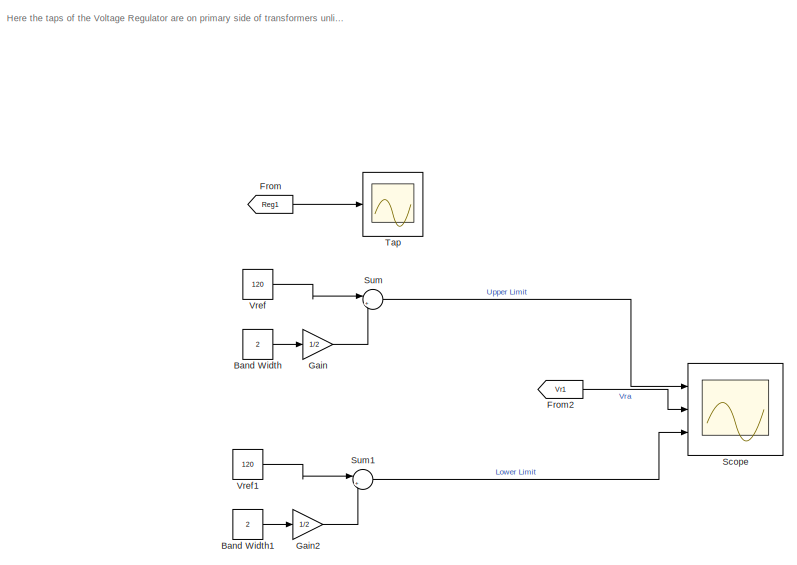
[diagram: Regulator Taps - part 1/3, top left region]
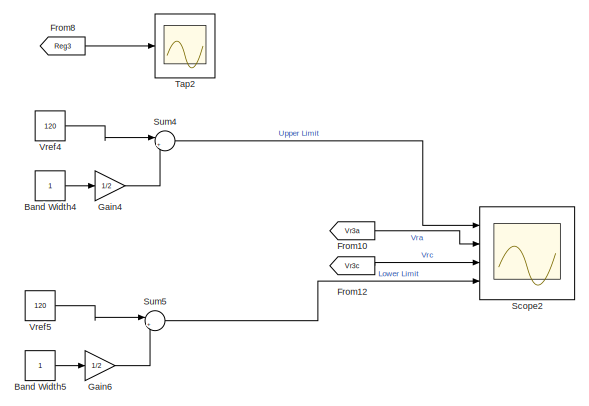
[diagram: Regulator Taps - part 2/3, middle right region]
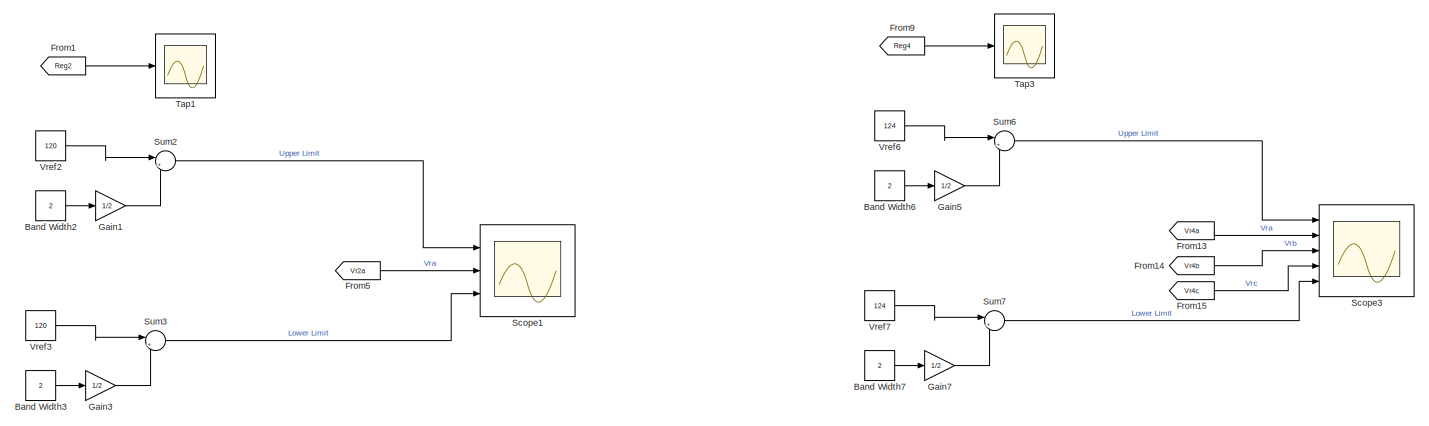
[diagram: Regulator Taps - part 3/3, full width, bottom band]
BLOCK [SubSystem] Regulator Taps
  Ports = []
  RequestExecContextInheritance = off
BLOCK [Constant] Regulator Taps/Band Width
  Value = 2
BLOCK [Constant] Regulator Taps/Band Width1
  Value = 2
BLOCK [Constant] Regulator Taps/Band Width2
  Value = 2
BLOCK [Constant] Regulator Taps/Band Width3
  Value = 2
BLOCK [Constant] Regulator Taps/Band Width4
BLOCK [Constant] Regulator Taps/Band Width5
BLOCK [Constant] Regulator Taps/Band Width6
  Value = 2
BLOCK [Constant] Regulator Taps/Band Width7
  Value = 2
BLOCK [From] Regulator Taps/From
  GotoTag = Reg1
  TagVisibility = global
BLOCK [From] Regulator Taps/From1
  GotoTag = Reg2
  TagVisibility = global
BLOCK [From] Regulator Taps/From10
  GotoTag = Vr3a
  TagVisibility = global
BLOCK [From] Regulator Taps/From12
  GotoTag = Vr3c
  TagVisibility = global
BLOCK [From] Regulator Taps/From13
  GotoTag = Vr4a
  TagVisibility = global
BLOCK [From] Regulator Taps/From14
  GotoTag = Vr4b
  TagVisibility = global
BLOCK [From] Regulator Taps/From15
  GotoTag = Vr4c
  TagVisibility = global
BLOCK [From] Regulator Taps/From2
  GotoTag = Vr1
  TagVisibility = global
BLOCK [From] Regulator Taps/From5
  GotoTag = Vr2a
  TagVisibility = global
BLOCK [From] Regulator Taps/From8
  GotoTag = Reg3
  TagVisibility = global
BLOCK [From] Regulator Taps/From9
  GotoTag = Reg4
  TagVisibility = global
BLOCK [Gain] Regulator Taps/Gain
  Gain = 1/2
  OutDataTypeStr = Inherit: Inherit via internal rule
  ParamDataTypeStr = Inherit: Inherit via internal rule
  SaturateOnIntegerOverflow = off
BLOCK [Gain] Regulator Taps/Gain1
  Gain = 1/2
  OutDataTypeStr = Inherit: Inherit via internal rule
  ParamDataTypeStr = Inherit: Inherit via internal rule
  SaturateOnIntegerOverflow = off
BLOCK [Gain] Regulator Taps/Gain2
  Gain = 1/2
  OutDataTypeStr = Inherit: Inherit via internal rule
  ParamDataTypeStr = Inherit: Inherit via internal rule
  SaturateOnIntegerOverflow = off
BLOCK [Gain] Regulator Taps/Gain3
  Gain = 1/2
  OutDataTypeStr = Inherit: Inherit via internal rule
  ParamDataTypeStr = Inherit: Inherit via internal rule
  SaturateOnIntegerOverflow = off
BLOCK [Gain] Regulator Taps/Gain4
  Gain = 1/2
  OutDataTypeStr = Inherit: Inherit via internal rule
  ParamDataTypeStr = Inherit: Inherit via internal rule
  SaturateOnIntegerOverflow = off
BLOCK [Gain] Regulator Taps/Gain5
  Gain = 1/2
  OutDataTypeStr = Inherit: Inherit via internal rule
  ParamDataTypeStr = Inherit: Inherit via internal rule
  SaturateOnIntegerOverflow = off
BLOCK [Gain] Regulator Taps/Gain6
  Gain = 1/2
  OutDataTypeStr = Inherit: Inherit via internal rule
  ParamDataTypeStr = Inherit: Inherit via internal rule
  SaturateOnIntegerOverflow = off
BLOCK [Gain] Regulator Taps/Gain7
  Gain = 1/2
  OutDataTypeStr = Inherit: Inherit via internal rule
  ParamDataTypeStr = Inherit: Inherit via internal rule
  SaturateOnIntegerOverflow = off
BLOCK [Scope] Regulator Taps/Scope
  Floating = off
  NumInputPorts = 3
  Ports = [3]
  ScopeSpecificationString = Simulink.scopes.TimeScopeBlockCfg('CurrentConfiguration', extmgr.ConfigurationSet(extmgr.Configuration('Core','General UI',true,'FigureColor',[1 1 1]),extmgr.Configuration('Core','Source UI',true),extmgr.Configuration('Sources','WiredSimulink',true,'DataLoggingVariableName','ScopeData1'),extmgr.Configuration('Visuals','Time Domain',true,'SerializedDisplays',{struct('MinYLimReal','116.31369','MaxYL...<+2288ch>
BLOCK [Scope] Regulator Taps/Scope1
  Floating = off
  NumInputPorts = 3
  Ports = [3]
  ScopeSpecificationString = Simulink.scopes.TimeScopeBlockCfg('CurrentConfiguration', extmgr.ConfigurationSet(extmgr.Configuration('Core','General UI',true,'FigureColor',[1 1 1]),extmgr.Configuration('Core','Source UI',true),extmgr.Configuration('Sources','WiredSimulink',true,'DataLoggingVariableName','ScopeData3'),extmgr.Configuration('Visuals','Time Domain',true,'SerializedDisplays',{struct('MinYLimReal','116.71079','MaxYL...<+2288ch>
BLOCK [Scope] Regulator Taps/Scope2
  Floating = off
  NumInputPorts = 4
  Ports = [4]
  ScopeSpecificationString = Simulink.scopes.TimeScopeBlockCfg('CurrentConfiguration', extmgr.ConfigurationSet(extmgr.Configuration('Core','General UI',true,'FigureColor',[1 1 1]),extmgr.Configuration('Core','Source UI',true),extmgr.Configuration('Sources','WiredSimulink',true,'DataLoggingVariableName','ScopeData1'),extmgr.Configuration('Visuals','Time Domain',true,'SerializedDisplays',{struct('MinYLimReal','113.67525','MaxYL...<+2237ch>
BLOCK [Scope] Regulator Taps/Scope3
  Floating = off
  NumInputPorts = 5
  Ports = [5]
  ScopeSpecificationString = Simulink.scopes.TimeScopeBlockCfg('CurrentConfiguration', extmgr.ConfigurationSet(extmgr.Configuration('Core','General UI',true,'FigureColor',[1 1 1]),extmgr.Configuration('Core','Source UI',true),extmgr.Configuration('Sources','WiredSimulink',true,'DataLoggingVariableName','ScopeData2'),extmgr.Configuration('Visuals','Time Domain',true,'SerializedDisplays',{struct('MinYLimReal','118.55022','MaxYL...<+2260ch>
BLOCK [Sum] Regulator Taps/Sum
  IconShape = round
  InputSameDT = off
  Inputs = |++
  OutDataTypeStr = Inherit: Inherit via internal rule
  Ports = [2, 1]
  SaturateOnIntegerOverflow = off
BLOCK [Sum] Regulator Taps/Sum1
  IconShape = round
  InputSameDT = off
  Inputs = |+-
  OutDataTypeStr = Inherit: Inherit via internal rule
  Ports = [2, 1]
  SaturateOnIntegerOverflow = off
BLOCK [Sum] Regulator Taps/Sum2
  IconShape = round
  InputSameDT = off
  Inputs = |++
  OutDataTypeStr = Inherit: Inherit via internal rule
  Ports = [2, 1]
  SaturateOnIntegerOverflow = off
BLOCK [Sum] Regulator Taps/Sum3
  IconShape = round
  InputSameDT = off
  Inputs = |+-
  OutDataTypeStr = Inherit: Inherit via internal rule
  Ports = [2, 1]
  SaturateOnIntegerOverflow = off
BLOCK [Sum] Regulator Taps/Sum4
  IconShape = round
  InputSameDT = off
  Inputs = |++
  OutDataTypeStr = Inherit: Inherit via internal rule
  Ports = [2, 1]
  SaturateOnIntegerOverflow = off
BLOCK [Sum] Regulator Taps/Sum5
  IconShape = round
  InputSameDT = off
  Inputs = |+-
  OutDataTypeStr = Inherit: Inherit via internal rule
  Ports = [2, 1]
  SaturateOnIntegerOverflow = off
BLOCK [Sum] Regulator Taps/Sum6
  IconShape = round
  InputSameDT = off
  Inputs = |++
  OutDataTypeStr = Inherit: Inherit via internal rule
  Ports = [2, 1]
  SaturateOnIntegerOverflow = off
BLOCK [Sum] Regulator Taps/Sum7
  IconShape = round
  InputSameDT = off
  Inputs = |+-
  OutDataTypeStr = Inherit: Inherit via internal rule
  Ports = [2, 1]
  SaturateOnIntegerOverflow = off
BLOCK [Scope] Regulator Taps/Tap
  Floating = off
  NumInputPorts = 1
  Ports = [1]
  ScopeSpecificationString = Simulink.scopes.TimeScopeBlockCfg('CurrentConfiguration', extmgr.ConfigurationSet(extmgr.Configuration('Core','General UI',true,'FigureColor',[1 1 1]),extmgr.Configuration('Core','Source UI',true),extmgr.Configuration('Sources','WiredSimulink',true,'DataLoggingVariableName','ScopeData2'),extmgr.Configuration('Visuals','Time Domain',true,'SerializedDisplays',{struct('MinYLimReal','-10.375','MaxYLim...<+1856ch>
BLOCK [Scope] Regulator Taps/Tap1
  Floating = off
  NumInputPorts = 1
  Ports = [1]
  ScopeSpecificationString = Simulink.scopes.TimeScopeBlockCfg('CurrentConfiguration', extmgr.ConfigurationSet(extmgr.Configuration('Core','General UI',true,'FigureColor',[1 1 1]),extmgr.Configuration('Core','Source UI',true),extmgr.Configuration('Sources','WiredSimulink',true,'DataLoggingVariableName','ScopeData4'),extmgr.Configuration('Visuals','Time Domain',true,'SerializedDisplays',{struct('MinYLimReal','0.75','MaxYLimRea...<+1820ch>
BLOCK [Scope] Regulator Taps/Tap2
  Floating = off
  NumInputPorts = 1
  Ports = [1]
  ScopeSpecificationString = Simulink.scopes.TimeScopeBlockCfg('CurrentConfiguration', extmgr.ConfigurationSet(extmgr.Configuration('Core','General UI',true,'FigureColor',[1 1 1]),extmgr.Configuration('Core','Source UI',true),extmgr.Configuration('Sources','WiredSimulink',true,'DataLoggingVariableName','ScopeData3'),extmgr.Configuration('Visuals','Time Domain',true,'SerializedDisplays',{struct('MinYLimReal','-2.625','MaxYLimR...<+1842ch>
BLOCK [Scope] Regulator Taps/Tap3
  Floating = off
  NumInputPorts = 1
  Ports = [1]
  ScopeSpecificationString = Simulink.scopes.TimeScopeBlockCfg('CurrentConfiguration', extmgr.ConfigurationSet(extmgr.Configuration('Core','General UI',true,'FigureColor',[1 1 1]),extmgr.Configuration('Core','Source UI',true),extmgr.Configuration('Sources','WiredSimulink',true,'DataLoggingVariableName','ScopeData4'),extmgr.Configuration('Visuals','Time Domain',true,'SerializedDisplays',{struct('MinYLimReal','-8.875','MaxYLimR...<+1852ch>
BLOCK [Constant] Regulator Taps/Vref
  Value = 120
BLOCK [Constant] Regulator Taps/Vref1
  Value = 120
BLOCK [Constant] Regulator Taps/Vref2
  Value = 120
BLOCK [Constant] Regulator Taps/Vref3
  Value = 120
BLOCK [Constant] Regulator Taps/Vref4
  Value = 120
BLOCK [Constant] Regulator Taps/Vref5
  Value = 120
BLOCK [Constant] Regulator Taps/Vref6
  Value = 124
BLOCK [Constant] Regulator Taps/Vref7
  Value = 124
BLOCK [SubSystem] Regulator2
  Ports = [0, 1, 0, 0, 0, 1, 1]
  RequestExecContextInheritance = off
BLOCK [PMIOPort] Regulator2/A
  Side = Left
BLOCK [SubSystem] Regulator2/Single Phase SVR_A
  LoadFcn = find_system(gcs,'FollowLinks', 'on', 'LookUnderMasks', 'all');
  Ports = [0, 1, 0, 0, 0, 1, 1]
  RequestExecContextInheritance = off
BLOCK [Goto] Regulator2/Single Phase SVR_A/Goto
  GotoTag = Vr2a
  TagVisibility = global
BLOCK [PMIOPort] Regulator2/Single Phase SVR_A/L
  Port = 2
  Side = Right
  Tag = PMCPort
BLOCK [SubSystem] Regulator2/Single Phase SVR_A/Line Drop Compensator
  Ports = [2, 1]
  RequestExecContextInheritance = off
BLOCK [Reference] Regulator2/Single Phase SVR_A/Line Drop Compensator/          REF=powerlib/Elements/Linear Transformer
  Ports = [0, 0, 0, 0, 0, 2, 2]
  SourceBlock = powerlib/Elements/Linear Transformer
  SourceProductBaseCode = PS
  SourceProductName = Simscape Electrical
  SourceType = Linear Transformer
BLOCK [Reference] Regulator2/Single Phase SVR_A/Line Drop Compensator/CTS    REF=powerlib/Electrical
Sources/Controlled Current Source
  Ports = [1, 0, 0, 0, 0, 1, 1]
  SourceBlock = powerlib/Electrical\nSources/Controlled Current Source
  SourceProductBaseCode = PS
  SourceProductName = Simscape Electrical
  SourceType = Controlled Current Source
BLOCK [Inport] Regulator2/Single Phase SVR_A/Line Drop Compensator/Isec
  IconDisplay = Port number
BLOCK [Reference] Regulator2/Single Phase SVR_A/Line Drop Compensator/PTS    REF=powerlib/Electrical
Sources/Controlled Voltage Source
  Ports = [1, 0, 0, 0, 0, 1, 1]
  SourceBlock = powerlib/Electrical\nSources/Controlled Voltage Source
  SourceProductBaseCode = PS
  SourceProductName = Simscape Electrical
  SourceType = Controlled Voltage Source
BLOCK [Reference] Regulator2/Single Phase SVR_A/Line Drop Compensator/RMS  REF=powerlib_meascontrol/Measurements/RMS
  Ports = [1, 1]
  SourceBlock = powerlib_meascontrol/Measurements/RMS
  SourceProductBaseCode = PS
  SourceProductName = Simscape Electrical
  SourceType = RMS
BLOCK [Reference] Regulator2/Single Phase SVR_A/Line Drop Compensator/Raux  REF=powerlib/Elements/Series RLC Branch
  Ports = [0, 0, 0, 0, 0, 1, 1]
  SourceBlock = powerlib/Elements/Series RLC Branch
  SourceProductBaseCode = PS
  SourceProductName = Simscape Electrical
  SourceType = Series RLC Branch
BLOCK [Reference] Regulator2/Single Phase SVR_A/Line Drop Compensator/Rc+jXc  REF=powerlib/Elements/Series RLC Branch
  Ports = [0, 0, 0, 0, 0, 1, 1]
  SourceBlock = powerlib/Elements/Series RLC Branch
  SourceProductBaseCode = PS
  SourceProductName = Simscape Electrical
  SourceType = Series RLC Branch
BLOCK [Reference] Regulator2/Single Phase SVR_A/Line Drop Compensator/VRelay  REF=powerlib/Measurements/Voltage Measurement
  Ports = [0, 1, 0, 0, 0, 2]
  SourceBlock = powerlib/Measurements/Voltage Measurement
  SourceProductBaseCode = PS
  SourceProductName = Simscape Electrical
  SourceType = Voltage Measurement
BLOCK [Outport] Regulator2/Single Phase SVR_A/Line Drop Compensator/Vm
  IconDisplay = Port number
BLOCK [Inport] Regulator2/Single Phase SVR_A/Line Drop Compensator/Vsec
  IconDisplay = Port number
  Port = 2
BLOCK [PMIOPort] Regulator2/Single Phase SVR_A/S
  Side = Left
  Tag = PMCPort
BLOCK [Outport] Regulator2/Single Phase SVR_A/Tap
  IconDisplay = Port number
  VectorParamsAs1DForOutWhenUnconnected = off
BLOCK [SubSystem] Regulator2/Single Phase SVR_A/Transformer with Taps
  Ports = [1, 2, 0, 0, 0, 1, 1]
  RequestExecContextInheritance = off
BLOCK [Gain] Regulator2/Single Phase SVR_A/Transformer with Taps/    
  Gain = 1/ptRatio
  OutDataTypeStr = Inherit: Inherit via internal rule
  ParamDataTypeStr = Inherit: Inherit via internal rule
  SaturateOnIntegerOverflow = off
BLOCK [Gain] Regulator2/Single Phase SVR_A/Transformer with Taps/ 1
  Gain = 1/ctRatio
  OutDataTypeStr = Inherit: Inherit via internal rule
  ParamDataTypeStr = Inherit: Inherit via internal rule
  SaturateOnIntegerOverflow = off
BLOCK [Reference] Regulator2/Single Phase SVR_A/Transformer with Taps/CT  REF=powerlib/Measurements/Current Measurement
  Ports = [0, 1, 0, 0, 0, 1, 1]
  SourceBlock = powerlib/Measurements/Current Measurement
  SourceProductBaseCode = PS
  SourceProductName = Simscape Electrical
  SourceType = Current Measurement
BLOCK [Reference] Regulator2/Single Phase SVR_A/Transformer with Taps/Ground1  REF=powerlib/Elements/Ground
  Ports = [0, 0, 0, 0, 0, 1]
  SourceBlock = powerlib/Elements/Ground
  SourceProductBaseCode = PS
  SourceProductName = Simscape Electrical
  SourceType = Ground
BLOCK [Reference] Regulator2/Single Phase SVR_A/Transformer with Taps/Ground2  REF=powerlib/Elements/Ground
  Ports = [0, 0, 0, 0, 0, 1]
  SourceBlock = powerlib/Elements/Ground
  SourceProductBaseCode = PS
  SourceProductName = Simscape Electrical
  SourceType = Ground
BLOCK [Reference] Regulator2/Single Phase SVR_A/Transformer with Taps/Ground3  REF=powerlib/Elements/Ground
  Ports = [0, 0, 0, 0, 0, 1]
  SourceBlock = powerlib/Elements/Ground
  SourceProductBaseCode = PS
  SourceProductName = Simscape Electrical
  SourceType = Ground
BLOCK [Outport] Regulator2/Single Phase SVR_A/Transformer with Taps/Isec
  IconDisplay = Port number
BLOCK [PMIOPort] Regulator2/Single Phase SVR_A/Transformer with Taps/L
  Side = Right
  Tag = PMCPort
BLOCK [Memory] Regulator2/Single Phase SVR_A/Transformer with Taps/Memory
BLOCK [Memory] Regulator2/Single Phase SVR_A/Transformer with Taps/Memory1
BLOCK [Inport] Regulator2/Single Phase SVR_A/Transformer with Taps/N
  IconDisplay = Port number
BLOCK [Reference] Regulator2/Single Phase SVR_A/Transformer with Taps/PT  REF=powerlib/Measurements/Voltage Measurement
  Ports = [0, 1, 0, 0, 0, 2]
  SourceBlock = powerlib/Measurements/Voltage Measurement
  SourceProductBaseCode = PS
  SourceProductName = Simscape Electrical
  SourceType = Voltage Measurement
BLOCK [PMIOPort] Regulator2/Single Phase SVR_A/Transformer with Taps/S
  Port = 2
  Side = Left
BLOCK [Reference] Regulator2/Single Phase SVR_A/Transformer with Taps/Variable-Ratio Transformer   REF=powerlib/Elements/Variable-Ratio
Transformer
  Ports = [1, 0, 0, 0, 0, 2, 2]
  SourceBlock = powerlib/Elements/Variable-Ratio\nTransformer
  SourceProductBaseCode = PS
  SourceProductName = Simscape Electrical
  SourceType = Variable-Ratio Transformer
BLOCK [Outport] Regulator2/Single Phase SVR_A/Transformer with Taps/Vsec
  IconDisplay = Port number
  Port = 2
BLOCK [Reference] Regulator2/Single Phase SVR_A/Transformer with Taps/rs  REF=powerlib/Elements/Series RLC Branch
  Ports = [0, 0, 0, 0, 0, 1, 1]
  SourceBlock = powerlib/Elements/Series RLC Branch
  SourceProductBaseCode = PS
  SourceProductName = Simscape Electrical
  SourceType = Series RLC Branch
BLOCK [SubSystem] Regulator2/Single Phase SVR_A/Voltage Regulator Control
  Ports = [1, 2]
  RequestExecContextInheritance = off
BLOCK [Constant] Regulator2/Single Phase SVR_A/Voltage Regulator Control/1
BLOCK [Constant] Regulator2/Single Phase SVR_A/Voltage Regulator Control/Constant
  Value = RegulatorOn
BLOCK [Constant] Regulator2/Single Phase SVR_A/Voltage Regulator Control/Constant5
BLOCK [Outport] Regulator2/Single Phase SVR_A/Voltage Regulator Control/N
  IconDisplay = Port number
BLOCK [Product] Regulator2/Single Phase SVR_A/Voltage Regulator Control/Product
  InputSameDT = off
  Inputs = /*
  OutDataTypeStr = Inherit: Inherit via internal rule
  Ports = [2, 1]
  RndMeth = Floor
  SaturateOnIntegerOverflow = off
BLOCK [Sum] Regulator2/Single Phase SVR_A/Voltage Regulator Control/Sum
  InputSameDT = off
  OutDataTypeStr = Inherit: Inherit via internal rule
  Ports = [2, 1]
  SaturateOnIntegerOverflow = off
BLOCK [Outport] Regulator2/Single Phase SVR_A/Voltage Regulator Control/Tap
  IconDisplay = Port number
  Port = 2
BLOCK [SubSystem] Regulator2/Single Phase SVR_A/Voltage Regulator Control/Tap Changer Control
  Ports = [2, 2]
  RequestExecContextInheritance = off
BLOCK [Constant] Regulator2/Single Phase SVR_A/Voltage Regulator Control/Tap Changer Control/Constant
  Value = -1
BLOCK [Constant] Regulator2/Single Phase SVR_A/Voltage Regulator Control/Tap Changer Control/Constant1
BLOCK [SubSystem] Regulator2/Single Phase SVR_A/Voltage Regulator Control/Tap Changer Control/Determine tap position
  Ports = [1, 1, 0, 1]
  RequestExecContextInheritance = off
BLOCK [Memory] Regulator2/Single Phase SVR_A/Voltage Regulator Control/Tap Changer Control/Determine tap position/Memory
  InheritSampleTime = on
  InitialCondition = InitialPosition
BLOCK [Inport] Regulator2/Single Phase SVR_A/Voltage Regulator Control/Tap Changer Control/Determine tap position/NewTap
  IconDisplay = Port number
BLOCK [Saturate] Regulator2/Single Phase SVR_A/Voltage Regulator Control/Tap Changer Control/Determine tap position/Saturation
  InputPortMap = u0
  LowerLimit = MinMaxTap(1)
  Ports = [1, 1]
  UpperLimit = MinMaxTap(2)
BLOCK [Sum] Regulator2/Single Phase SVR_A/Voltage Regulator Control/Tap Changer Control/Determine tap position/Sum
  IconShape = round
  InputSameDT = off
  Inputs = |++
  OutDataTypeStr = Inherit: Inherit via internal rule
  Ports = [2, 1]
BLOCK [Outport] Regulator2/Single Phase SVR_A/Voltage Regulator Control/Tap Changer Control/Determine tap position/TapNo
  IconDisplay = Port number
  InitialOutput = InitialPosition
  VectorParamsAs1DForOutWhenUnconnected = off
BLOCK [TriggerPort] Regulator2/Single Phase SVR_A/Voltage Regulator Control/Tap Changer Control/Determine tap position/Trigger
  Ports = []
  VariantControl = Variant
BLOCK [Inport] Regulator2/Single Phase SVR_A/Voltage Regulator Control/Tap Changer Control/Down 
  IconDisplay = Port number
  Port = 2
BLOCK [SubSystem] Regulator2/Single Phase SVR_A/Voltage Regulator Control/Tap Changer Control/Edge Detector
  DialogController = POWERSYS.PowerSysDialog
  Ports = [1, 1]
  RequestExecContextInheritance = off
  ShowPortLabels = none
BLOCK [Constant] Regulator2/Single Phase SVR_A/Voltage Regulator Control/Tap Changer Control/Edge Detector/Constant1
  Value = model
BLOCK [Demux] Regulator2/Single Phase SVR_A/Voltage Regulator Control/Tap Changer Control/Edge Detector/Demux
  Outputs = 2
  Ports = [1, 2]
BLOCK [Inport] Regulator2/Single Phase SVR_A/Voltage Regulator Control/Tap Changer Control/Edge Detector/In
  IconDisplay = Port number
BLOCK [Logic] Regulator2/Single Phase SVR_A/Voltage Regulator Control/Tap Changer Control/Edge Detector/Logical Operator1
  Operator = OR
  Ports = [2, 1]
BLOCK [Memory] Regulator2/Single Phase SVR_A/Voltage Regulator Control/Tap Changer Control/Edge Detector/Memory
  InitialCondition = ic
  LinearizeAsDelay = on
BLOCK [MultiPortSwitch] Regulator2/Single Phase SVR_A/Voltage Regulator Control/Tap Changer Control/Edge Detector/Multiport Switch
  InputSameDT = off
  Ports = [4, 1]
BLOCK [SubSystem] Regulator2/Single Phase SVR_A/Voltage Regulator Control/Tap Changer Control/Edge Detector/NEGATIVE Edge
  Ports = [2, 1, 1]
  RequestExecContextInheritance = off
  TreatAsAtomicUnit = on
BLOCK [EnablePort] Regulator2/Single Phase SVR_A/Voltage Regulator Control/Tap Changer Control/Edge Detector/NEGATIVE Edge/Enable
  Ports = []
  PropagateVarSize = During execution
BLOCK [Inport] Regulator2/Single Phase SVR_A/Voltage Regulator Control/Tap Changer Control/Edge Detector/NEGATIVE Edge/IN
  IconDisplay = Port number
BLOCK [Inport] Regulator2/Single Phase SVR_A/Voltage Regulator Control/Tap Changer Control/Edge Detector/NEGATIVE Edge/IN previous
  IconDisplay = Port number
  Port = 2
BLOCK [Outport] Regulator2/Single Phase SVR_A/Voltage Regulator Control/Tap Changer Control/Edge Detector/NEGATIVE Edge/OUT
  IconDisplay = Port number
  VectorParamsAs1DForOutWhenUnconnected = off
BLOCK [RelationalOperator] Regulator2/Single Phase SVR_A/Voltage Regulator Control/Tap Changer Control/Edge Detector/NEGATIVE Edge/Relational Operator1
  Operator = >
  Ports = [2, 1]
BLOCK [Outport] Regulator2/Single Phase SVR_A/Voltage Regulator Control/Tap Changer Control/Edge Detector/Out
  IconDisplay = Port number
  VectorParamsAs1DForOutWhenUnconnected = off
BLOCK [SubSystem] Regulator2/Single Phase SVR_A/Voltage Regulator Control/Tap Changer Control/Edge Detector/POSITIVE Edge
  Ports = [2, 1, 1]
  RequestExecContextInheritance = off
  TreatAsAtomicUnit = on
BLOCK [EnablePort] Regulator2/Single Phase SVR_A/Voltage Regulator Control/Tap Changer Control/Edge Detector/POSITIVE Edge/Enable
  Ports = []
  PropagateVarSize = During execution
BLOCK [Inport] Regulator2/Single Phase SVR_A/Voltage Regulator Control/Tap Changer Control/Edge Detector/POSITIVE Edge/IN
  IconDisplay = Port number
BLOCK [Inport] Regulator2/Single Phase SVR_A/Voltage Regulator Control/Tap Changer Control/Edge Detector/POSITIVE Edge/IN previous
  IconDisplay = Port number
  Port = 2
BLOCK [Outport] Regulator2/Single Phase SVR_A/Voltage Regulator Control/Tap Changer Control/Edge Detector/POSITIVE Edge/OUT
  IconDisplay = Port number
  VectorParamsAs1DForOutWhenUnconnected = off
BLOCK [RelationalOperator] Regulator2/Single Phase SVR_A/Voltage Regulator Control/Tap Changer Control/Edge Detector/POSITIVE Edge/Relational Operator1
  Operator = >
  Ports = [2, 1]
BLOCK [Constant] Regulator2/Single Phase SVR_A/Voltage Regulator Control/Tap Changer Control/Edge Detector/either edge
  Value = [1 1]
BLOCK [Constant] Regulator2/Single Phase SVR_A/Voltage Regulator Control/Tap Changer Control/Edge Detector/neg. edge
  Value = [0 1]
BLOCK [Constant] Regulator2/Single Phase SVR_A/Voltage Regulator Control/Tap Changer Control/Edge Detector/pos. edge
  Value = [1 0]
BLOCK [Logic] Regulator2/Single Phase SVR_A/Voltage Regulator Control/Tap Changer Control/Logical Operator
  AllPortsSameDT = off
  Operator = OR
  Ports = [2, 1]
BLOCK [Logic] Regulator2/Single Phase SVR_A/Voltage Regulator Control/Tap Changer Control/Logical Operator1
  AllPortsSameDT = off
  Ports = [2, 1]
BLOCK [TransportDelay] Regulator2/Single Phase SVR_A/Voltage Regulator Control/Tap Changer Control/Mechanical Delay
  BufferSize = 5120
  DelayTime = MecDelay
  InitialOutput = InitialPosition
  Ports = [1, 1]
BLOCK [Memory] Regulator2/Single Phase SVR_A/Voltage Regulator Control/Tap Changer Control/Memory
  InheritSampleTime = on
  InitialCondition = 1
BLOCK [Outport] Regulator2/Single Phase SVR_A/Voltage Regulator Control/Tap Changer Control/Ready
  IconDisplay = Port number
  Port = 2
  VectorParamsAs1DForOutWhenUnconnected = off
BLOCK [RelationalOperator] Regulator2/Single Phase SVR_A/Voltage Regulator Control/Tap Changer Control/Relational Operator
  InputSameDT = off
  Operator = ==
  OutDataTypeStr = float('double')
  Ports = [2, 1]
BLOCK [Switch] Regulator2/Single Phase SVR_A/Voltage Regulator Control/Tap Changer Control/Switch
  InputSameDT = off
  Threshold = 0.5
BLOCK [Outport] Regulator2/Single Phase SVR_A/Voltage Regulator Control/Tap Changer Control/TapNo
  IconDisplay = Port number
  VectorParamsAs1DForOutWhenUnconnected = off
BLOCK [Inport] Regulator2/Single Phase SVR_A/Voltage Regulator Control/Tap Changer Control/Up 
  IconDisplay = Port number
BLOCK [Inport] Regulator2/Single Phase SVR_A/Voltage Regulator Control/Vm
  IconDisplay = Port number
BLOCK [Gain] Regulator2/Single Phase SVR_A/Voltage Regulator Control/Voltage change per tap
  Gain = DeltaU
  OutDataTypeStr = Inherit: Inherit via internal rule
  ParamDataTypeStr = Inherit: Inherit via internal rule
  SaturateOnIntegerOverflow = off
BLOCK [SubSystem] Regulator2/Single Phase SVR_A/Voltage Regulator Control/Voltage regulator
  Ports = [3, 2]
  RequestExecContextInheritance = off
BLOCK [DeadZone] Regulator2/Single Phase SVR_A/Voltage Regulator Control/Voltage regulator/Dead Zone
  LowerValue = -DeadBand/2
  UpperValue = +DeadBand/2
BLOCK [Reference] Regulator2/Single Phase SVR_A/Voltage Regulator Control/Voltage regulator/Discrete Variable Time Delay  REF=powerlib_meascontrol/Additional Components/Discrete Variable
Time Delay
  Ports = [2, 1]
  SourceBlock = powerlib_meascontrol/Additional Components/Discrete Variable\nTime Delay
  SourceProductBaseCode = PS
  SourceProductName = Simscape Electrical
  SourceType = Discrete Variable Time Delay
BLOCK [Outport] Regulator2/Single Phase SVR_A/Voltage Regulator Control/Voltage regulator/Down
  IconDisplay = Port number
  Port = 2
  VectorParamsAs1DForOutWhenUnconnected = off
BLOCK [Logic] Regulator2/Single Phase SVR_A/Voltage Regulator Control/Voltage regulator/Logical Operator
  AllPortsSameDT = off
  Ports = [2, 1]
BLOCK [Logic] Regulator2/Single Phase SVR_A/Voltage Regulator Control/Voltage regulator/Logical Operator1
  AllPortsSameDT = off
  Ports = [2, 1]
BLOCK [Reference] Regulator2/Single Phase SVR_A/Voltage Regulator Control/Voltage regulator/On Delay  REF=powerlib_meascontrol/Logic/On Delay
  Ports = [1, 1]
  SourceBlock = powerlib_meascontrol/Logic/On Delay
  SourceProductBaseCode = PS
  SourceProductName = Simscape Electrical
  SourceType = On/Off Delay
BLOCK [Reference] Regulator2/Single Phase SVR_A/Voltage Regulator Control/Voltage regulator/On Delay1  REF=powerlib_meascontrol/Logic/On Delay
  Ports = [1, 1]
  SourceBlock = powerlib_meascontrol/Logic/On Delay
  SourceProductBaseCode = PS
  SourceProductName = Simscape Electrical
  SourceType = On/Off Delay
BLOCK [Inport] Regulator2/Single Phase SVR_A/Voltage Regulator Control/Voltage regulator/Ready
  IconDisplay = Port number
  Port = 2
BLOCK [Inport] Regulator2/Single Phase SVR_A/Voltage Regulator Control/Voltage regulator/RegOn
  IconDisplay = Port number
  Port = 3
BLOCK [RelationalOperator] Regulator2/Single Phase SVR_A/Voltage Regulator Control/Voltage regulator/Relational Operator
  InputSameDT = off
  Operator = <
  Ports = [2, 1]
BLOCK [RelationalOperator] Regulator2/Single Phase SVR_A/Voltage Regulator Control/Voltage regulator/Relational Operator1
  InputSameDT = off
  Operator = >
  Ports = [2, 1]
BLOCK [Sum] Regulator2/Single Phase SVR_A/Voltage Regulator Control/Voltage regulator/Sum
  IconShape = round
  InputSameDT = off
  Inputs = |+-
  OutDataTypeStr = Inherit: Inherit via internal rule
  Ports = [2, 1]
BLOCK [Switch] Regulator2/Single Phase SVR_A/Voltage Regulator Control/Voltage regulator/Switch
  InputSameDT = off
  Threshold = 1.5
BLOCK [Outport] Regulator2/Single Phase SVR_A/Voltage Regulator Control/Voltage regulator/Up
  IconDisplay = Port number
  VectorParamsAs1DForOutWhenUnconnected = off
BLOCK [Inport] Regulator2/Single Phase SVR_A/Voltage Regulator Control/Voltage regulator/Vmes (pu)
  IconDisplay = Port number
BLOCK [Constant] Regulator2/Single Phase SVR_A/Voltage Regulator Control/Voltage regulator/Vref
  Value = Vref
BLOCK [Constant] Regulator2/Single Phase SVR_A/Voltage Regulator Control/Voltage regulator/Vref1
  Value = 0
BLOCK [Constant] Regulator2/Single Phase SVR_A/Voltage Regulator Control/Voltage regulator/Vref2
  Value = 0
BLOCK [Constant] Regulator2/Single Phase SVR_A/Voltage Regulator Control/Voltage regulator/Vref3
  Value = 0
BLOCK [Constant] Regulator2/Single Phase SVR_A/Voltage Regulator Control/Voltage regulator/Vref4
  Value = 3/60
BLOCK [Outport] Regulator2/Tap
  IconDisplay = Port number
BLOCK [PMIOPort] Regulator2/a
  Port = 2
  Side = Right
BLOCK [SubSystem] Regulator3
  Ports = [0, 1, 0, 0, 0, 2, 2]
  RequestExecContextInheritance = off
BLOCK [PMIOPort] Regulator3/A
  Side = Left
BLOCK [PMIOPort] Regulator3/C
  Port = 3
  Side = Left
BLOCK [Mux] Regulator3/Mux
  DisplayOption = bar
  Inputs = 2
  Ports = [2, 1]
BLOCK [SubSystem] Regulator3/Single Phase SVR_A
  LoadFcn = find_system(gcs,'FollowLinks', 'on', 'LookUnderMasks', 'all');
  Ports = [0, 1, 0, 0, 0, 1, 1]
  RequestExecContextInheritance = off
BLOCK [Goto] Regulator3/Single Phase SVR_A/Goto
  GotoTag = Vr3a
  TagVisibility = global
BLOCK [PMIOPort] Regulator3/Single Phase SVR_A/L
  Port = 2
  Side = Right
  Tag = PMCPort
BLOCK [SubSystem] Regulator3/Single Phase SVR_A/Line Drop Compensator
  Ports = [2, 1]
  RequestExecContextInheritance = off
BLOCK [Reference] Regulator3/Single Phase SVR_A/Line Drop Compensator/          REF=powerlib/Elements/Linear Transformer
  Ports = [0, 0, 0, 0, 0, 2, 2]
  SourceBlock = powerlib/Elements/Linear Transformer
  SourceProductBaseCode = PS
  SourceProductName = Simscape Electrical
  SourceType = Linear Transformer
BLOCK [Reference] Regulator3/Single Phase SVR_A/Line Drop Compensator/CTS    REF=powerlib/Electrical
Sources/Controlled Current Source
  Ports = [1, 0, 0, 0, 0, 1, 1]
  SourceBlock = powerlib/Electrical\nSources/Controlled Current Source
  SourceProductBaseCode = PS
  SourceProductName = Simscape Electrical
  SourceType = Controlled Current Source
BLOCK [Inport] Regulator3/Single Phase SVR_A/Line Drop Compensator/Isec
  IconDisplay = Port number
BLOCK [Reference] Regulator3/Single Phase SVR_A/Line Drop Compensator/PTS    REF=powerlib/Electrical
Sources/Controlled Voltage Source
  Ports = [1, 0, 0, 0, 0, 1, 1]
  SourceBlock = powerlib/Electrical\nSources/Controlled Voltage Source
  SourceProductBaseCode = PS
  SourceProductName = Simscape Electrical
  SourceType = Controlled Voltage Source
BLOCK [Reference] Regulator3/Single Phase SVR_A/Line Drop Compensator/RMS  REF=powerlib_meascontrol/Measurements/RMS
  Ports = [1, 1]
  SourceBlock = powerlib_meascontrol/Measurements/RMS
  SourceProductBaseCode = PS
  SourceProductName = Simscape Electrical
  SourceType = RMS
BLOCK [Reference] Regulator3/Single Phase SVR_A/Line Drop Compensator/Raux  REF=powerlib/Elements/Series RLC Branch
  Ports = [0, 0, 0, 0, 0, 1, 1]
  SourceBlock = powerlib/Elements/Series RLC Branch
  SourceProductBaseCode = PS
  SourceProductName = Simscape Electrical
  SourceType = Series RLC Branch
BLOCK [Reference] Regulator3/Single Phase SVR_A/Line Drop Compensator/Rc+jXc  REF=powerlib/Elements/Series RLC Branch
  Ports = [0, 0, 0, 0, 0, 1, 1]
  SourceBlock = powerlib/Elements/Series RLC Branch
  SourceProductBaseCode = PS
  SourceProductName = Simscape Electrical
  SourceType = Series RLC Branch
BLOCK [Reference] Regulator3/Single Phase SVR_A/Line Drop Compensator/VRelay  REF=powerlib/Measurements/Voltage Measurement
  Ports = [0, 1, 0, 0, 0, 2]
  SourceBlock = powerlib/Measurements/Voltage Measurement
  SourceProductBaseCode = PS
  SourceProductName = Simscape Electrical
  SourceType = Voltage Measurement
BLOCK [Outport] Regulator3/Single Phase SVR_A/Line Drop Compensator/Vm
  IconDisplay = Port number
BLOCK [Inport] Regulator3/Single Phase SVR_A/Line Drop Compensator/Vsec
  IconDisplay = Port number
  Port = 2
BLOCK [PMIOPort] Regulator3/Single Phase SVR_A/S
  Side = Left
  Tag = PMCPort
BLOCK [Outport] Regulator3/Single Phase SVR_A/Tap
  IconDisplay = Port number
  VectorParamsAs1DForOutWhenUnconnected = off
BLOCK [SubSystem] Regulator3/Single Phase SVR_A/Transformer with Taps
  Ports = [1, 2, 0, 0, 0, 1, 1]
  RequestExecContextInheritance = off
BLOCK [Gain] Regulator3/Single Phase SVR_A/Transformer with Taps/    
  Gain = 1/ptRatio
  OutDataTypeStr = Inherit: Inherit via internal rule
  ParamDataTypeStr = Inherit: Inherit via internal rule
  SaturateOnIntegerOverflow = off
BLOCK [Gain] Regulator3/Single Phase SVR_A/Transformer with Taps/ 1
  Gain = 1/ctRatio
  OutDataTypeStr = Inherit: Inherit via internal rule
  ParamDataTypeStr = Inherit: Inherit via internal rule
  SaturateOnIntegerOverflow = off
BLOCK [Reference] Regulator3/Single Phase SVR_A/Transformer with Taps/CT  REF=powerlib/Measurements/Current Measurement
  Ports = [0, 1, 0, 0, 0, 1, 1]
  SourceBlock = powerlib/Measurements/Current Measurement
  SourceProductBaseCode = PS
  SourceProductName = Simscape Electrical
  SourceType = Current Measurement
BLOCK [Reference] Regulator3/Single Phase SVR_A/Transformer with Taps/Ground1  REF=powerlib/Elements/Ground
  Ports = [0, 0, 0, 0, 0, 1]
  SourceBlock = powerlib/Elements/Ground
  SourceProductBaseCode = PS
  SourceProductName = Simscape Electrical
  SourceType = Ground
BLOCK [Reference] Regulator3/Single Phase SVR_A/Transformer with Taps/Ground2  REF=powerlib/Elements/Ground
  Ports = [0, 0, 0, 0, 0, 1]
  SourceBlock = powerlib/Elements/Ground
  SourceProductBaseCode = PS
  SourceProductName = Simscape Electrical
  SourceType = Ground
BLOCK [Reference] Regulator3/Single Phase SVR_A/Transformer with Taps/Ground3  REF=powerlib/Elements/Ground
  Ports = [0, 0, 0, 0, 0, 1]
  SourceBlock = powerlib/Elements/Ground
  SourceProductBaseCode = PS
  SourceProductName = Simscape Electrical
  SourceType = Ground
BLOCK [Outport] Regulator3/Single Phase SVR_A/Transformer with Taps/Isec
  IconDisplay = Port number
BLOCK [PMIOPort] Regulator3/Single Phase SVR_A/Transformer with Taps/L
  Side = Right
  Tag = PMCPort
BLOCK [Memory] Regulator3/Single Phase SVR_A/Transformer with Taps/Memory
BLOCK [Memory] Regulator3/Single Phase SVR_A/Transformer with Taps/Memory1
BLOCK [Inport] Regulator3/Single Phase SVR_A/Transformer with Taps/N
  IconDisplay = Port number
BLOCK [Reference] Regulator3/Single Phase SVR_A/Transformer with Taps/PT  REF=powerlib/Measurements/Voltage Measurement
  Ports = [0, 1, 0, 0, 0, 2]
  SourceBlock = powerlib/Measurements/Voltage Measurement
  SourceProductBaseCode = PS
  SourceProductName = Simscape Electrical
  SourceType = Voltage Measurement
BLOCK [PMIOPort] Regulator3/Single Phase SVR_A/Transformer with Taps/S
  Port = 2
  Side = Left
BLOCK [Reference] Regulator3/Single Phase SVR_A/Transformer with Taps/Variable-Ratio Transformer   REF=powerlib/Elements/Variable-Ratio
Transformer
  Ports = [1, 0, 0, 0, 0, 2, 2]
  SourceBlock = powerlib/Elements/Variable-Ratio\nTransformer
  SourceProductBaseCode = PS
  SourceProductName = Simscape Electrical
  SourceType = Variable-Ratio Transformer
BLOCK [Outport] Regulator3/Single Phase SVR_A/Transformer with Taps/Vsec
  IconDisplay = Port number
  Port = 2
BLOCK [Reference] Regulator3/Single Phase SVR_A/Transformer with Taps/rs  REF=powerlib/Elements/Series RLC Branch
  Ports = [0, 0, 0, 0, 0, 1, 1]
  SourceBlock = powerlib/Elements/Series RLC Branch
  SourceProductBaseCode = PS
  SourceProductName = Simscape Electrical
  SourceType = Series RLC Branch
BLOCK [SubSystem] Regulator3/Single Phase SVR_A/Voltage Regulator Control
  Ports = [1, 2]
  RequestExecContextInheritance = off
BLOCK [Constant] Regulator3/Single Phase SVR_A/Voltage Regulator Control/1
BLOCK [Constant] Regulator3/Single Phase SVR_A/Voltage Regulator Control/Constant
  Value = RegulatorOn
BLOCK [Constant] Regulator3/Single Phase SVR_A/Voltage Regulator Control/Constant5
BLOCK [Outport] Regulator3/Single Phase SVR_A/Voltage Regulator Control/N
  IconDisplay = Port number
BLOCK [Product] Regulator3/Single Phase SVR_A/Voltage Regulator Control/Product
  InputSameDT = off
  Inputs = /*
  OutDataTypeStr = Inherit: Inherit via internal rule
  Ports = [2, 1]
  RndMeth = Floor
  SaturateOnIntegerOverflow = off
BLOCK [Sum] Regulator3/Single Phase SVR_A/Voltage Regulator Control/Sum
  InputSameDT = off
  OutDataTypeStr = Inherit: Inherit via internal rule
  Ports = [2, 1]
  SaturateOnIntegerOverflow = off
BLOCK [Outport] Regulator3/Single Phase SVR_A/Voltage Regulator Control/Tap
  IconDisplay = Port number
  Port = 2
BLOCK [SubSystem] Regulator3/Single Phase SVR_A/Voltage Regulator Control/Tap Changer Control
  Ports = [2, 2]
  RequestExecContextInheritance = off
BLOCK [Constant] Regulator3/Single Phase SVR_A/Voltage Regulator Control/Tap Changer Control/Constant
  Value = -1
BLOCK [Constant] Regulator3/Single Phase SVR_A/Voltage Regulator Control/Tap Changer Control/Constant1
BLOCK [SubSystem] Regulator3/Single Phase SVR_A/Voltage Regulator Control/Tap Changer Control/Determine tap position
  Ports = [1, 1, 0, 1]
  RequestExecContextInheritance = off
BLOCK [Memory] Regulator3/Single Phase SVR_A/Voltage Regulator Control/Tap Changer Control/Determine tap position/Memory
  InheritSampleTime = on
  InitialCondition = InitialPosition
BLOCK [Inport] Regulator3/Single Phase SVR_A/Voltage Regulator Control/Tap Changer Control/Determine tap position/NewTap
  IconDisplay = Port number
BLOCK [Saturate] Regulator3/Single Phase SVR_A/Voltage Regulator Control/Tap Changer Control/Determine tap position/Saturation
  InputPortMap = u0
  LowerLimit = MinMaxTap(1)
  Ports = [1, 1]
  UpperLimit = MinMaxTap(2)
BLOCK [Sum] Regulator3/Single Phase SVR_A/Voltage Regulator Control/Tap Changer Control/Determine tap position/Sum
  IconShape = round
  InputSameDT = off
  Inputs = |++
  OutDataTypeStr = Inherit: Inherit via internal rule
  Ports = [2, 1]
BLOCK [Outport] Regulator3/Single Phase SVR_A/Voltage Regulator Control/Tap Changer Control/Determine tap position/TapNo
  IconDisplay = Port number
  InitialOutput = InitialPosition
  VectorParamsAs1DForOutWhenUnconnected = off
BLOCK [TriggerPort] Regulator3/Single Phase SVR_A/Voltage Regulator Control/Tap Changer Control/Determine tap position/Trigger
  Ports = []
  VariantControl = Variant
BLOCK [Inport] Regulator3/Single Phase SVR_A/Voltage Regulator Control/Tap Changer Control/Down 
  IconDisplay = Port number
  Port = 2
BLOCK [SubSystem] Regulator3/Single Phase SVR_A/Voltage Regulator Control/Tap Changer Control/Edge Detector
  DialogController = POWERSYS.PowerSysDialog
  Ports = [1, 1]
  RequestExecContextInheritance = off
  ShowPortLabels = none
BLOCK [Constant] Regulator3/Single Phase SVR_A/Voltage Regulator Control/Tap Changer Control/Edge Detector/Constant1
  Value = model
BLOCK [Demux] Regulator3/Single Phase SVR_A/Voltage Regulator Control/Tap Changer Control/Edge Detector/Demux
  Outputs = 2
  Ports = [1, 2]
BLOCK [Inport] Regulator3/Single Phase SVR_A/Voltage Regulator Control/Tap Changer Control/Edge Detector/In
  IconDisplay = Port number
BLOCK [Logic] Regulator3/Single Phase SVR_A/Voltage Regulator Control/Tap Changer Control/Edge Detector/Logical Operator1
  Operator = OR
  Ports = [2, 1]
BLOCK [Memory] Regulator3/Single Phase SVR_A/Voltage Regulator Control/Tap Changer Control/Edge Detector/Memory
  InitialCondition = ic
  LinearizeAsDelay = on
BLOCK [MultiPortSwitch] Regulator3/Single Phase SVR_A/Voltage Regulator Control/Tap Changer Control/Edge Detector/Multiport Switch
  InputSameDT = off
  Ports = [4, 1]
BLOCK [SubSystem] Regulator3/Single Phase SVR_A/Voltage Regulator Control/Tap Changer Control/Edge Detector/NEGATIVE Edge
  Ports = [2, 1, 1]
  RequestExecContextInheritance = off
  TreatAsAtomicUnit = on
BLOCK [EnablePort] Regulator3/Single Phase SVR_A/Voltage Regulator Control/Tap Changer Control/Edge Detector/NEGATIVE Edge/Enable
  Ports = []
  PropagateVarSize = During execution
BLOCK [Inport] Regulator3/Single Phase SVR_A/Voltage Regulator Control/Tap Changer Control/Edge Detector/NEGATIVE Edge/IN
  IconDisplay = Port number
BLOCK [Inport] Regulator3/Single Phase SVR_A/Voltage Regulator Control/Tap Changer Control/Edge Detector/NEGATIVE Edge/IN previous
  IconDisplay = Port number
  Port = 2
BLOCK [Outport] Regulator3/Single Phase SVR_A/Voltage Regulator Control/Tap Changer Control/Edge Detector/NEGATIVE Edge/OUT
  IconDisplay = Port number
  VectorParamsAs1DForOutWhenUnconnected = off
BLOCK [RelationalOperator] Regulator3/Single Phase SVR_A/Voltage Regulator Control/Tap Changer Control/Edge Detector/NEGATIVE Edge/Relational Operator1
  Operator = >
  Ports = [2, 1]
BLOCK [Outport] Regulator3/Single Phase SVR_A/Voltage Regulator Control/Tap Changer Control/Edge Detector/Out
  IconDisplay = Port number
  VectorParamsAs1DForOutWhenUnconnected = off
BLOCK [SubSystem] Regulator3/Single Phase SVR_A/Voltage Regulator Control/Tap Changer Control/Edge Detector/POSITIVE Edge
  Ports = [2, 1, 1]
  RequestExecContextInheritance = off
  TreatAsAtomicUnit = on
BLOCK [EnablePort] Regulator3/Single Phase SVR_A/Voltage Regulator Control/Tap Changer Control/Edge Detector/POSITIVE Edge/Enable
  Ports = []
  PropagateVarSize = During execution
BLOCK [Inport] Regulator3/Single Phase SVR_A/Voltage Regulator Control/Tap Changer Control/Edge Detector/POSITIVE Edge/IN
  IconDisplay = Port number
BLOCK [Inport] Regulator3/Single Phase SVR_A/Voltage Regulator Control/Tap Changer Control/Edge Detector/POSITIVE Edge/IN previous
  IconDisplay = Port number
  Port = 2
BLOCK [Outport] Regulator3/Single Phase SVR_A/Voltage Regulator Control/Tap Changer Control/Edge Detector/POSITIVE Edge/OUT
  IconDisplay = Port number
  VectorParamsAs1DForOutWhenUnconnected = off
BLOCK [RelationalOperator] Regulator3/Single Phase SVR_A/Voltage Regulator Control/Tap Changer Control/Edge Detector/POSITIVE Edge/Relational Operator1
  Operator = >
  Ports = [2, 1]
BLOCK [Constant] Regulator3/Single Phase SVR_A/Voltage Regulator Control/Tap Changer Control/Edge Detector/either edge
  Value = [1 1]
BLOCK [Constant] Regulator3/Single Phase SVR_A/Voltage Regulator Control/Tap Changer Control/Edge Detector/neg. edge
  Value = [0 1]
BLOCK [Constant] Regulator3/Single Phase SVR_A/Voltage Regulator Control/Tap Changer Control/Edge Detector/pos. edge
  Value = [1 0]
BLOCK [Logic] Regulator3/Single Phase SVR_A/Voltage Regulator Control/Tap Changer Control/Logical Operator
  AllPortsSameDT = off
  Operator = OR
  Ports = [2, 1]
BLOCK [Logic] Regulator3/Single Phase SVR_A/Voltage Regulator Control/Tap Changer Control/Logical Operator1
  AllPortsSameDT = off
  Ports = [2, 1]
BLOCK [TransportDelay] Regulator3/Single Phase SVR_A/Voltage Regulator Control/Tap Changer Control/Mechanical Delay
  BufferSize = 5120
  DelayTime = MecDelay
  InitialOutput = InitialPosition
  Ports = [1, 1]
BLOCK [Memory] Regulator3/Single Phase SVR_A/Voltage Regulator Control/Tap Changer Control/Memory
  InheritSampleTime = on
  InitialCondition = 1
BLOCK [Outport] Regulator3/Single Phase SVR_A/Voltage Regulator Control/Tap Changer Control/Ready
  IconDisplay = Port number
  Port = 2
  VectorParamsAs1DForOutWhenUnconnected = off
BLOCK [RelationalOperator] Regulator3/Single Phase SVR_A/Voltage Regulator Control/Tap Changer Control/Relational Operator
  InputSameDT = off
  Operator = ==
  OutDataTypeStr = float('double')
  Ports = [2, 1]
BLOCK [Switch] Regulator3/Single Phase SVR_A/Voltage Regulator Control/Tap Changer Control/Switch
  InputSameDT = off
  Threshold = 0.5
BLOCK [Outport] Regulator3/Single Phase SVR_A/Voltage Regulator Control/Tap Changer Control/TapNo
  IconDisplay = Port number
  VectorParamsAs1DForOutWhenUnconnected = off
BLOCK [Inport] Regulator3/Single Phase SVR_A/Voltage Regulator Control/Tap Changer Control/Up 
  IconDisplay = Port number
BLOCK [Inport] Regulator3/Single Phase SVR_A/Voltage Regulator Control/Vm
  IconDisplay = Port number
BLOCK [Gain] Regulator3/Single Phase SVR_A/Voltage Regulator Control/Voltage change per tap
  Gain = DeltaU
  OutDataTypeStr = Inherit: Inherit via internal rule
  ParamDataTypeStr = Inherit: Inherit via internal rule
  SaturateOnIntegerOverflow = off
BLOCK [SubSystem] Regulator3/Single Phase SVR_A/Voltage Regulator Control/Voltage regulator
  Ports = [3, 2]
  RequestExecContextInheritance = off
BLOCK [DeadZone] Regulator3/Single Phase SVR_A/Voltage Regulator Control/Voltage regulator/Dead Zone
  LowerValue = -DeadBand/2
  UpperValue = +DeadBand/2
BLOCK [Reference] Regulator3/Single Phase SVR_A/Voltage Regulator Control/Voltage regulator/Discrete Variable Time Delay  REF=powerlib_meascontrol/Additional Components/Discrete Variable
Time Delay
  Ports = [2, 1]
  SourceBlock = powerlib_meascontrol/Additional Components/Discrete Variable\nTime Delay
  SourceProductBaseCode = PS
  SourceProductName = Simscape Electrical
  SourceType = Discrete Variable Time Delay
BLOCK [Outport] Regulator3/Single Phase SVR_A/Voltage Regulator Control/Voltage regulator/Down
  IconDisplay = Port number
  Port = 2
  VectorParamsAs1DForOutWhenUnconnected = off
BLOCK [Logic] Regulator3/Single Phase SVR_A/Voltage Regulator Control/Voltage regulator/Logical Operator
  AllPortsSameDT = off
  Ports = [2, 1]
BLOCK [Logic] Regulator3/Single Phase SVR_A/Voltage Regulator Control/Voltage regulator/Logical Operator1
  AllPortsSameDT = off
  Ports = [2, 1]
BLOCK [Reference] Regulator3/Single Phase SVR_A/Voltage Regulator Control/Voltage regulator/On Delay  REF=powerlib_meascontrol/Logic/On Delay
  Ports = [1, 1]
  SourceBlock = powerlib_meascontrol/Logic/On Delay
  SourceProductBaseCode = PS
  SourceProductName = Simscape Electrical
  SourceType = On/Off Delay
BLOCK [Reference] Regulator3/Single Phase SVR_A/Voltage Regulator Control/Voltage regulator/On Delay1  REF=powerlib_meascontrol/Logic/On Delay
  Ports = [1, 1]
  SourceBlock = powerlib_meascontrol/Logic/On Delay
  SourceProductBaseCode = PS
  SourceProductName = Simscape Electrical
  SourceType = On/Off Delay
BLOCK [Inport] Regulator3/Single Phase SVR_A/Voltage Regulator Control/Voltage regulator/Ready
  IconDisplay = Port number
  Port = 2
BLOCK [Inport] Regulator3/Single Phase SVR_A/Voltage Regulator Control/Voltage regulator/RegOn
  IconDisplay = Port number
  Port = 3
BLOCK [RelationalOperator] Regulator3/Single Phase SVR_A/Voltage Regulator Control/Voltage regulator/Relational Operator
  InputSameDT = off
  Operator = <
  Ports = [2, 1]
BLOCK [RelationalOperator] Regulator3/Single Phase SVR_A/Voltage Regulator Control/Voltage regulator/Relational Operator1
  InputSameDT = off
  Operator = >
  Ports = [2, 1]
BLOCK [Sum] Regulator3/Single Phase SVR_A/Voltage Regulator Control/Voltage regulator/Sum
  IconShape = round
  InputSameDT = off
  Inputs = |+-
  OutDataTypeStr = Inherit: Inherit via internal rule
  Ports = [2, 1]
BLOCK [Switch] Regulator3/Single Phase SVR_A/Voltage Regulator Control/Voltage regulator/Switch
  InputSameDT = off
  Threshold = 1.5
BLOCK [Outport] Regulator3/Single Phase SVR_A/Voltage Regulator Control/Voltage regulator/Up
  IconDisplay = Port number
  VectorParamsAs1DForOutWhenUnconnected = off
BLOCK [Inport] Regulator3/Single Phase SVR_A/Voltage Regulator Control/Voltage regulator/Vmes (pu)
  IconDisplay = Port number
BLOCK [Constant] Regulator3/Single Phase SVR_A/Voltage Regulator Control/Voltage regulator/Vref
  Value = Vref
BLOCK [Constant] Regulator3/Single Phase SVR_A/Voltage Regulator Control/Voltage regulator/Vref1
  Value = 0
BLOCK [Constant] Regulator3/Single Phase SVR_A/Voltage Regulator Control/Voltage regulator/Vref2
  Value = 0
BLOCK [Constant] Regulator3/Single Phase SVR_A/Voltage Regulator Control/Voltage regulator/Vref3
  Value = 0
BLOCK [Constant] Regulator3/Single Phase SVR_A/Voltage Regulator Control/Voltage regulator/Vref4
  Value = 3/60
BLOCK [SubSystem] Regulator3/Single Phase SVR_C
  LoadFcn = find_system(gcs,'FollowLinks', 'on', 'LookUnderMasks', 'all');
  Ports = [0, 1, 0, 0, 0, 1, 1]
  RequestExecContextInheritance = off
BLOCK [Goto] Regulator3/Single Phase SVR_C/Goto
  GotoTag = Vr3c
  TagVisibility = global
BLOCK [PMIOPort] Regulator3/Single Phase SVR_C/L
  Port = 2
  Side = Right
  Tag = PMCPort
BLOCK [SubSystem] Regulator3/Single Phase SVR_C/Line Drop Compensator
  Ports = [2, 1]
  RequestExecContextInheritance = off
BLOCK [Reference] Regulator3/Single Phase SVR_C/Line Drop Compensator/          REF=powerlib/Elements/Linear Transformer
  Ports = [0, 0, 0, 0, 0, 2, 2]
  SourceBlock = powerlib/Elements/Linear Transformer
  SourceProductBaseCode = PS
  SourceProductName = Simscape Electrical
  SourceType = Linear Transformer
BLOCK [Reference] Regulator3/Single Phase SVR_C/Line Drop Compensator/CTS    REF=powerlib/Electrical
Sources/Controlled Current Source
  Ports = [1, 0, 0, 0, 0, 1, 1]
  SourceBlock = powerlib/Electrical\nSources/Controlled Current Source
  SourceProductBaseCode = PS
  SourceProductName = Simscape Electrical
  SourceType = Controlled Current Source
BLOCK [Inport] Regulator3/Single Phase SVR_C/Line Drop Compensator/Isec
  IconDisplay = Port number
BLOCK [Reference] Regulator3/Single Phase SVR_C/Line Drop Compensator/PTS    REF=powerlib/Electrical
Sources/Controlled Voltage Source
  Ports = [1, 0, 0, 0, 0, 1, 1]
  SourceBlock = powerlib/Electrical\nSources/Controlled Voltage Source
  SourceProductBaseCode = PS
  SourceProductName = Simscape Electrical
  SourceType = Controlled Voltage Source
BLOCK [Reference] Regulator3/Single Phase SVR_C/Line Drop Compensator/RMS  REF=powerlib_meascontrol/Measurements/RMS
  Ports = [1, 1]
  SourceBlock = powerlib_meascontrol/Measurements/RMS
  SourceProductBaseCode = PS
  SourceProductName = Simscape Electrical
  SourceType = RMS
BLOCK [Reference] Regulator3/Single Phase SVR_C/Line Drop Compensator/Raux  REF=powerlib/Elements/Series RLC Branch
  Ports = [0, 0, 0, 0, 0, 1, 1]
  SourceBlock = powerlib/Elements/Series RLC Branch
  SourceProductBaseCode = PS
  SourceProductName = Simscape Electrical
  SourceType = Series RLC Branch
BLOCK [Reference] Regulator3/Single Phase SVR_C/Line Drop Compensator/Rc+jXc  REF=powerlib/Elements/Series RLC Branch
  Ports = [0, 0, 0, 0, 0, 1, 1]
  SourceBlock = powerlib/Elements/Series RLC Branch
  SourceProductBaseCode = PS
  SourceProductName = Simscape Electrical
  SourceType = Series RLC Branch
BLOCK [Reference] Regulator3/Single Phase SVR_C/Line Drop Compensator/VRelay  REF=powerlib/Measurements/Voltage Measurement
  Ports = [0, 1, 0, 0, 0, 2]
  SourceBlock = powerlib/Measurements/Voltage Measurement
  SourceProductBaseCode = PS
  SourceProductName = Simscape Electrical
  SourceType = Voltage Measurement
BLOCK [Outport] Regulator3/Single Phase SVR_C/Line Drop Compensator/Vm
  IconDisplay = Port number
BLOCK [Inport] Regulator3/Single Phase SVR_C/Line Drop Compensator/Vsec
  IconDisplay = Port number
  Port = 2
BLOCK [PMIOPort] Regulator3/Single Phase SVR_C/S
  Side = Left
  Tag = PMCPort
BLOCK [Outport] Regulator3/Single Phase SVR_C/Tap
  IconDisplay = Port number
  VectorParamsAs1DForOutWhenUnconnected = off
BLOCK [SubSystem] Regulator3/Single Phase SVR_C/Transformer with Taps
  Ports = [1, 2, 0, 0, 0, 1, 1]
  RequestExecContextInheritance = off
BLOCK [Gain] Regulator3/Single Phase SVR_C/Transformer with Taps/    
  Gain = 1/ptRatio
  OutDataTypeStr = Inherit: Inherit via internal rule
  ParamDataTypeStr = Inherit: Inherit via internal rule
  SaturateOnIntegerOverflow = off
BLOCK [Gain] Regulator3/Single Phase SVR_C/Transformer with Taps/ 1
  Gain = 1/ctRatio
  OutDataTypeStr = Inherit: Inherit via internal rule
  ParamDataTypeStr = Inherit: Inherit via internal rule
  SaturateOnIntegerOverflow = off
BLOCK [Reference] Regulator3/Single Phase SVR_C/Transformer with Taps/CT  REF=powerlib/Measurements/Current Measurement
  Ports = [0, 1, 0, 0, 0, 1, 1]
  SourceBlock = powerlib/Measurements/Current Measurement
  SourceProductBaseCode = PS
  SourceProductName = Simscape Electrical
  SourceType = Current Measurement
BLOCK [Reference] Regulator3/Single Phase SVR_C/Transformer with Taps/Ground1  REF=powerlib/Elements/Ground
  Ports = [0, 0, 0, 0, 0, 1]
  SourceBlock = powerlib/Elements/Ground
  SourceProductBaseCode = PS
  SourceProductName = Simscape Electrical
  SourceType = Ground
BLOCK [Reference] Regulator3/Single Phase SVR_C/Transformer with Taps/Ground2  REF=powerlib/Elements/Ground
  Ports = [0, 0, 0, 0, 0, 1]
  SourceBlock = powerlib/Elements/Ground
  SourceProductBaseCode = PS
  SourceProductName = Simscape Electrical
  SourceType = Ground
BLOCK [Reference] Regulator3/Single Phase SVR_C/Transformer with Taps/Ground3  REF=powerlib/Elements/Ground
  Ports = [0, 0, 0, 0, 0, 1]
  SourceBlock = powerlib/Elements/Ground
  SourceProductBaseCode = PS
  SourceProductName = Simscape Electrical
  SourceType = Ground
BLOCK [Outport] Regulator3/Single Phase SVR_C/Transformer with Taps/Isec
  IconDisplay = Port number
BLOCK [PMIOPort] Regulator3/Single Phase SVR_C/Transformer with Taps/L
  Side = Right
  Tag = PMCPort
BLOCK [Memory] Regulator3/Single Phase SVR_C/Transformer with Taps/Memory
BLOCK [Memory] Regulator3/Single Phase SVR_C/Transformer with Taps/Memory1
BLOCK [Inport] Regulator3/Single Phase SVR_C/Transformer with Taps/N
  IconDisplay = Port number
BLOCK [Reference] Regulator3/Single Phase SVR_C/Transformer with Taps/PT  REF=powerlib/Measurements/Voltage Measurement
  Ports = [0, 1, 0, 0, 0, 2]
  SourceBlock = powerlib/Measurements/Voltage Measurement
  SourceProductBaseCode = PS
  SourceProductName = Simscape Electrical
  SourceType = Voltage Measurement
BLOCK [PMIOPort] Regulator3/Single Phase SVR_C/Transformer with Taps/S
  Port = 2
  Side = Left
BLOCK [Reference] Regulator3/Single Phase SVR_C/Transformer with Taps/Variable-Ratio Transformer   REF=powerlib/Elements/Variable-Ratio
Transformer
  Ports = [1, 0, 0, 0, 0, 2, 2]
  SourceBlock = powerlib/Elements/Variable-Ratio\nTransformer
  SourceProductBaseCode = PS
  SourceProductName = Simscape Electrical
  SourceType = Variable-Ratio Transformer
BLOCK [Outport] Regulator3/Single Phase SVR_C/Transformer with Taps/Vsec
  IconDisplay = Port number
  Port = 2
BLOCK [Reference] Regulator3/Single Phase SVR_C/Transformer with Taps/rs  REF=powerlib/Elements/Series RLC Branch
  Ports = [0, 0, 0, 0, 0, 1, 1]
  SourceBlock = powerlib/Elements/Series RLC Branch
  SourceProductBaseCode = PS
  SourceProductName = Simscape Electrical
  SourceType = Series RLC Branch
BLOCK [SubSystem] Regulator3/Single Phase SVR_C/Voltage Regulator Control
  Ports = [1, 2]
  RequestExecContextInheritance = off
BLOCK [Constant] Regulator3/Single Phase SVR_C/Voltage Regulator Control/1
BLOCK [Constant] Regulator3/Single Phase SVR_C/Voltage Regulator Control/Constant
  Value = RegulatorOn
BLOCK [Constant] Regulator3/Single Phase SVR_C/Voltage Regulator Control/Constant5
BLOCK [Outport] Regulator3/Single Phase SVR_C/Voltage Regulator Control/N
  IconDisplay = Port number
BLOCK [Product] Regulator3/Single Phase SVR_C/Voltage Regulator Control/Product
  InputSameDT = off
  Inputs = /*
  OutDataTypeStr = Inherit: Inherit via internal rule
  Ports = [2, 1]
  RndMeth = Floor
  SaturateOnIntegerOverflow = off
BLOCK [Sum] Regulator3/Single Phase SVR_C/Voltage Regulator Control/Sum
  InputSameDT = off
  OutDataTypeStr = Inherit: Inherit via internal rule
  Ports = [2, 1]
  SaturateOnIntegerOverflow = off
BLOCK [Outport] Regulator3/Single Phase SVR_C/Voltage Regulator Control/Tap
  IconDisplay = Port number
  Port = 2
BLOCK [SubSystem] Regulator3/Single Phase SVR_C/Voltage Regulator Control/Tap Changer Control
  Ports = [2, 2]
  RequestExecContextInheritance = off
BLOCK [Constant] Regulator3/Single Phase SVR_C/Voltage Regulator Control/Tap Changer Control/Constant
  Value = -1
BLOCK [Constant] Regulator3/Single Phase SVR_C/Voltage Regulator Control/Tap Changer Control/Constant1
BLOCK [SubSystem] Regulator3/Single Phase SVR_C/Voltage Regulator Control/Tap Changer Control/Determine tap position
  Ports = [1, 1, 0, 1]
  RequestExecContextInheritance = off
BLOCK [Memory] Regulator3/Single Phase SVR_C/Voltage Regulator Control/Tap Changer Control/Determine tap position/Memory
  InheritSampleTime = on
  InitialCondition = InitialPosition
BLOCK [Inport] Regulator3/Single Phase SVR_C/Voltage Regulator Control/Tap Changer Control/Determine tap position/NewTap
  IconDisplay = Port number
BLOCK [Saturate] Regulator3/Single Phase SVR_C/Voltage Regulator Control/Tap Changer Control/Determine tap position/Saturation
  InputPortMap = u0
  LowerLimit = MinMaxTap(1)
  Ports = [1, 1]
  UpperLimit = MinMaxTap(2)
BLOCK [Sum] Regulator3/Single Phase SVR_C/Voltage Regulator Control/Tap Changer Control/Determine tap position/Sum
  IconShape = round
  InputSameDT = off
  Inputs = |++
  OutDataTypeStr = Inherit: Inherit via internal rule
  Ports = [2, 1]
BLOCK [Outport] Regulator3/Single Phase SVR_C/Voltage Regulator Control/Tap Changer Control/Determine tap position/TapNo
  IconDisplay = Port number
  InitialOutput = InitialPosition
  VectorParamsAs1DForOutWhenUnconnected = off
BLOCK [TriggerPort] Regulator3/Single Phase SVR_C/Voltage Regulator Control/Tap Changer Control/Determine tap position/Trigger
  Ports = []
  VariantControl = Variant
BLOCK [Inport] Regulator3/Single Phase SVR_C/Voltage Regulator Control/Tap Changer Control/Down 
  IconDisplay = Port number
  Port = 2
BLOCK [SubSystem] Regulator3/Single Phase SVR_C/Voltage Regulator Control/Tap Changer Control/Edge Detector
  DialogController = POWERSYS.PowerSysDialog
  Ports = [1, 1]
  RequestExecContextInheritance = off
  ShowPortLabels = none
BLOCK [Constant] Regulator3/Single Phase SVR_C/Voltage Regulator Control/Tap Changer Control/Edge Detector/Constant1
  Value = model
BLOCK [Demux] Regulator3/Single Phase SVR_C/Voltage Regulator Control/Tap Changer Control/Edge Detector/Demux
  Outputs = 2
  Ports = [1, 2]
BLOCK [Inport] Regulator3/Single Phase SVR_C/Voltage Regulator Control/Tap Changer Control/Edge Detector/In
  IconDisplay = Port number
BLOCK [Logic] Regulator3/Single Phase SVR_C/Voltage Regulator Control/Tap Changer Control/Edge Detector/Logical Operator1
  Operator = OR
  Ports = [2, 1]
BLOCK [Memory] Regulator3/Single Phase SVR_C/Voltage Regulator Control/Tap Changer Control/Edge Detector/Memory
  InitialCondition = ic
  LinearizeAsDelay = on
BLOCK [MultiPortSwitch] Regulator3/Single Phase SVR_C/Voltage Regulator Control/Tap Changer Control/Edge Detector/Multiport Switch
  InputSameDT = off
  Ports = [4, 1]
BLOCK [SubSystem] Regulator3/Single Phase SVR_C/Voltage Regulator Control/Tap Changer Control/Edge Detector/NEGATIVE Edge
  Ports = [2, 1, 1]
  RequestExecContextInheritance = off
  TreatAsAtomicUnit = on
BLOCK [EnablePort] Regulator3/Single Phase SVR_C/Voltage Regulator Control/Tap Changer Control/Edge Detector/NEGATIVE Edge/Enable
  Ports = []
  PropagateVarSize = During execution
BLOCK [Inport] Regulator3/Single Phase SVR_C/Voltage Regulator Control/Tap Changer Control/Edge Detector/NEGATIVE Edge/IN
  IconDisplay = Port number
BLOCK [Inport] Regulator3/Single Phase SVR_C/Voltage Regulator Control/Tap Changer Control/Edge Detector/NEGATIVE Edge/IN previous
  IconDisplay = Port number
  Port = 2
BLOCK [Outport] Regulator3/Single Phase SVR_C/Voltage Regulator Control/Tap Changer Control/Edge Detector/NEGATIVE Edge/OUT
  IconDisplay = Port number
  VectorParamsAs1DForOutWhenUnconnected = off
BLOCK [RelationalOperator] Regulator3/Single Phase SVR_C/Voltage Regulator Control/Tap Changer Control/Edge Detector/NEGATIVE Edge/Relational Operator1
  Operator = >
  Ports = [2, 1]
BLOCK [Outport] Regulator3/Single Phase SVR_C/Voltage Regulator Control/Tap Changer Control/Edge Detector/Out
  IconDisplay = Port number
  VectorParamsAs1DForOutWhenUnconnected = off
BLOCK [SubSystem] Regulator3/Single Phase SVR_C/Voltage Regulator Control/Tap Changer Control/Edge Detector/POSITIVE Edge
  Ports = [2, 1, 1]
  RequestExecContextInheritance = off
  TreatAsAtomicUnit = on
BLOCK [EnablePort] Regulator3/Single Phase SVR_C/Voltage Regulator Control/Tap Changer Control/Edge Detector/POSITIVE Edge/Enable
  Ports = []
  PropagateVarSize = During execution
BLOCK [Inport] Regulator3/Single Phase SVR_C/Voltage Regulator Control/Tap Changer Control/Edge Detector/POSITIVE Edge/IN
  IconDisplay = Port number
BLOCK [Inport] Regulator3/Single Phase SVR_C/Voltage Regulator Control/Tap Changer Control/Edge Detector/POSITIVE Edge/IN previous
  IconDisplay = Port number
  Port = 2
BLOCK [Outport] Regulator3/Single Phase SVR_C/Voltage Regulator Control/Tap Changer Control/Edge Detector/POSITIVE Edge/OUT
  IconDisplay = Port number
  VectorParamsAs1DForOutWhenUnconnected = off
BLOCK [RelationalOperator] Regulator3/Single Phase SVR_C/Voltage Regulator Control/Tap Changer Control/Edge Detector/POSITIVE Edge/Relational Operator1
  Operator = >
  Ports = [2, 1]
BLOCK [Constant] Regulator3/Single Phase SVR_C/Voltage Regulator Control/Tap Changer Control/Edge Detector/either edge
  Value = [1 1]
BLOCK [Constant] Regulator3/Single Phase SVR_C/Voltage Regulator Control/Tap Changer Control/Edge Detector/neg. edge
  Value = [0 1]
BLOCK [Constant] Regulator3/Single Phase SVR_C/Voltage Regulator Control/Tap Changer Control/Edge Detector/pos. edge
  Value = [1 0]
BLOCK [Logic] Regulator3/Single Phase SVR_C/Voltage Regulator Control/Tap Changer Control/Logical Operator
  AllPortsSameDT = off
  Operator = OR
  Ports = [2, 1]
BLOCK [Logic] Regulator3/Single Phase SVR_C/Voltage Regulator Control/Tap Changer Control/Logical Operator1
  AllPortsSameDT = off
  Ports = [2, 1]
BLOCK [TransportDelay] Regulator3/Single Phase SVR_C/Voltage Regulator Control/Tap Changer Control/Mechanical Delay
  BufferSize = 5120
  DelayTime = MecDelay
  InitialOutput = InitialPosition
  Ports = [1, 1]
BLOCK [Memory] Regulator3/Single Phase SVR_C/Voltage Regulator Control/Tap Changer Control/Memory
  InheritSampleTime = on
  InitialCondition = 1
BLOCK [Outport] Regulator3/Single Phase SVR_C/Voltage Regulator Control/Tap Changer Control/Ready
  IconDisplay = Port number
  Port = 2
  VectorParamsAs1DForOutWhenUnconnected = off
BLOCK [RelationalOperator] Regulator3/Single Phase SVR_C/Voltage Regulator Control/Tap Changer Control/Relational Operator
  InputSameDT = off
  Operator = ==
  OutDataTypeStr = float('double')
  Ports = [2, 1]
BLOCK [Switch] Regulator3/Single Phase SVR_C/Voltage Regulator Control/Tap Changer Control/Switch
  InputSameDT = off
  Threshold = 0.5
BLOCK [Outport] Regulator3/Single Phase SVR_C/Voltage Regulator Control/Tap Changer Control/TapNo
  IconDisplay = Port number
  VectorParamsAs1DForOutWhenUnconnected = off
BLOCK [Inport] Regulator3/Single Phase SVR_C/Voltage Regulator Control/Tap Changer Control/Up 
  IconDisplay = Port number
BLOCK [Inport] Regulator3/Single Phase SVR_C/Voltage Regulator Control/Vm
  IconDisplay = Port number
BLOCK [Gain] Regulator3/Single Phase SVR_C/Voltage Regulator Control/Voltage change per tap
  Gain = DeltaU
  OutDataTypeStr = Inherit: Inherit via internal rule
  ParamDataTypeStr = Inherit: Inherit via internal rule
  SaturateOnIntegerOverflow = off
BLOCK [SubSystem] Regulator3/Single Phase SVR_C/Voltage Regulator Control/Voltage regulator
  Ports = [3, 2]
  RequestExecContextInheritance = off
BLOCK [DeadZone] Regulator3/Single Phase SVR_C/Voltage Regulator Control/Voltage regulator/Dead Zone
  LowerValue = -DeadBand/2
  UpperValue = +DeadBand/2
BLOCK [Reference] Regulator3/Single Phase SVR_C/Voltage Regulator Control/Voltage regulator/Discrete Variable Time Delay  REF=powerlib_meascontrol/Additional Components/Discrete Variable
Time Delay
  Ports = [2, 1]
  SourceBlock = powerlib_meascontrol/Additional Components/Discrete Variable\nTime Delay
  SourceProductBaseCode = PS
  SourceProductName = Simscape Electrical
  SourceType = Discrete Variable Time Delay
BLOCK [Outport] Regulator3/Single Phase SVR_C/Voltage Regulator Control/Voltage regulator/Down
  IconDisplay = Port number
  Port = 2
  VectorParamsAs1DForOutWhenUnconnected = off
BLOCK [Logic] Regulator3/Single Phase SVR_C/Voltage Regulator Control/Voltage regulator/Logical Operator
  AllPortsSameDT = off
  Ports = [2, 1]
BLOCK [Logic] Regulator3/Single Phase SVR_C/Voltage Regulator Control/Voltage regulator/Logical Operator1
  AllPortsSameDT = off
  Ports = [2, 1]
BLOCK [Reference] Regulator3/Single Phase SVR_C/Voltage Regulator Control/Voltage regulator/On Delay  REF=powerlib_meascontrol/Logic/On Delay
  Ports = [1, 1]
  SourceBlock = powerlib_meascontrol/Logic/On Delay
  SourceProductBaseCode = PS
  SourceProductName = Simscape Electrical
  SourceType = On/Off Delay
BLOCK [Reference] Regulator3/Single Phase SVR_C/Voltage Regulator Control/Voltage regulator/On Delay1  REF=powerlib_meascontrol/Logic/On Delay
  Ports = [1, 1]
  SourceBlock = powerlib_meascontrol/Logic/On Delay
  SourceProductBaseCode = PS
  SourceProductName = Simscape Electrical
  SourceType = On/Off Delay
BLOCK [Inport] Regulator3/Single Phase SVR_C/Voltage Regulator Control/Voltage regulator/Ready
  IconDisplay = Port number
  Port = 2
BLOCK [Inport] Regulator3/Single Phase SVR_C/Voltage Regulator Control/Voltage regulator/RegOn
  IconDisplay = Port number
  Port = 3
BLOCK [RelationalOperator] Regulator3/Single Phase SVR_C/Voltage Regulator Control/Voltage regulator/Relational Operator
  InputSameDT = off
  Operator = <
  Ports = [2, 1]
BLOCK [RelationalOperator] Regulator3/Single Phase SVR_C/Voltage Regulator Control/Voltage regulator/Relational Operator1
  InputSameDT = off
  Operator = >
  Ports = [2, 1]
BLOCK [Sum] Regulator3/Single Phase SVR_C/Voltage Regulator Control/Voltage regulator/Sum
  IconShape = round
  InputSameDT = off
  Inputs = |+-
  OutDataTypeStr = Inherit: Inherit via internal rule
  Ports = [2, 1]
BLOCK [Switch] Regulator3/Single Phase SVR_C/Voltage Regulator Control/Voltage regulator/Switch
  InputSameDT = off
  Threshold = 1.5
BLOCK [Outport] Regulator3/Single Phase SVR_C/Voltage Regulator Control/Voltage regulator/Up
  IconDisplay = Port number
  VectorParamsAs1DForOutWhenUnconnected = off
BLOCK [Inport] Regulator3/Single Phase SVR_C/Voltage Regulator Control/Voltage regulator/Vmes (pu)
  IconDisplay = Port number
BLOCK [Constant] Regulator3/Single Phase SVR_C/Voltage Regulator Control/Voltage regulator/Vref
  Value = Vref
BLOCK [Constant] Regulator3/Single Phase SVR_C/Voltage Regulator Control/Voltage regulator/Vref1
  Value = 0
BLOCK [Constant] Regulator3/Single Phase SVR_C/Voltage Regulator Control/Voltage regulator/Vref2
  Value = 0
BLOCK [Constant] Regulator3/Single Phase SVR_C/Voltage Regulator Control/Voltage regulator/Vref3
  Value = 0
BLOCK [Constant] Regulator3/Single Phase SVR_C/Voltage Regulator Control/Voltage regulator/Vref4
  Value = 3/60
BLOCK [Outport] Regulator3/Taps
  IconDisplay = Port number
BLOCK [PMIOPort] Regulator3/a
  Port = 2
  Side = Right
BLOCK [PMIOPort] Regulator3/c
  Port = 4
  Side = Right
BLOCK [Reference] Series RLC Branch1  REF=powerlib/Elements/Series RLC Branch
  Ports = [0, 0, 0, 0, 0, 1, 1]
  SourceBlock = powerlib/Elements/Series RLC Branch
  SourceProductBaseCode = PS
  SourceProductName = Simscape Electrical
  SourceType = Series RLC Branch
BLOCK [Reference] Series RLC Branch2  REF=powerlib/Elements/Series RLC Branch
  Ports = [0, 0, 0, 0, 0, 1, 1]
  SourceBlock = powerlib/Elements/Series RLC Branch
  SourceProductBaseCode = PS
  SourceProductName = Simscape Electrical
  SourceType = Series RLC Branch
BLOCK [Reference] Series RLC Branch3  REF=powerlib/Elements/Series RLC Branch
  Ports = [0, 0, 0, 0, 0, 1, 1]
  SourceBlock = powerlib/Elements/Series RLC Branch
  SourceProductBaseCode = PS
  SourceProductName = Simscape Electrical
  SourceType = Series RLC Branch
BLOCK [SubSystem] Substation Power
  Ports = []
  RequestExecContextInheritance = off
BLOCK [Demux] Substation Power/Demux
  DisplayOption = bar
  Outputs = 3
  Ports = [1, 3]
BLOCK [Demux] Substation Power/Demux1
  DisplayOption = bar
  Outputs = 3
  Ports = [1, 3]
BLOCK [Display] Substation Power/Display
  Decimation = 1
  Ports = [1]
BLOCK [Display] Substation Power/Display1
  Decimation = 1
  Ports = [1]
BLOCK [Display] Substation Power/Display2
  Decimation = 1
  Ports = [1]
BLOCK [Display] Substation Power/Display3
  Decimation = 1
  Ports = [1]
BLOCK [Display] Substation Power/Display4
  Decimation = 1
  Ports = [1]
BLOCK [Display] Substation Power/Display5
  Decimation = 1
  Ports = [1]
BLOCK [Display] Substation Power/Display6
  Decimation = 1
  Ports = [1]
BLOCK [Display] Substation Power/Display7
  Decimation = 1
  Ports = [1]
BLOCK [From] Substation Power/From1
  GotoTag = V150
  TagVisibility = global
BLOCK [From] Substation Power/From2
  GotoTag = I150
  TagVisibility = global
BLOCK [From] Substation Power/From3
  GotoTag = V150
  TagVisibility = global
BLOCK [From] Substation Power/From4
  GotoTag = I150
  TagVisibility = global
BLOCK [Gain] Substation Power/Gain
  Gain = 1e-3
  OutDataTypeStr = Inherit: Inherit via internal rule
  ParamDataTypeStr = Inherit: Inherit via internal rule
  SaturateOnIntegerOverflow = off
BLOCK [Gain] Substation Power/Gain1
  Gain = 1e-3
  OutDataTypeStr = Inherit: Inherit via internal rule
  ParamDataTypeStr = Inherit: Inherit via internal rule
  SaturateOnIntegerOverflow = off
BLOCK [Gain] Substation Power/Gain2
  Gain = 1e-3
  OutDataTypeStr = Inherit: Inherit via internal rule
  ParamDataTypeStr = Inherit: Inherit via internal rule
  SaturateOnIntegerOverflow = off
BLOCK [Gain] Substation Power/Gain3
  Gain = 1e-3
  OutDataTypeStr = Inherit: Inherit via internal rule
  ParamDataTypeStr = Inherit: Inherit via internal rule
  SaturateOnIntegerOverflow = off
BLOCK [Gain] Substation Power/Gain4
  Gain = 1e-3
  OutDataTypeStr = Inherit: Inherit via internal rule
  ParamDataTypeStr = Inherit: Inherit via internal rule
  SaturateOnIntegerOverflow = off
BLOCK [Gain] Substation Power/Gain5
  Gain = 1e-3
  OutDataTypeStr = Inherit: Inherit via internal rule
  ParamDataTypeStr = Inherit: Inherit via internal rule
  SaturateOnIntegerOverflow = off
BLOCK [Gain] Substation Power/Gain6
  Gain = 1e-3
  OutDataTypeStr = Inherit: Inherit via internal rule
  ParamDataTypeStr = Inherit: Inherit via internal rule
  SaturateOnIntegerOverflow = off
BLOCK [Gain] Substation Power/Gain7
  Gain = 1e-3
  OutDataTypeStr = Inherit: Inherit via internal rule
  ParamDataTypeStr = Inherit: Inherit via internal rule
  SaturateOnIntegerOverflow = off
BLOCK [Reference] Substation Power/Power  REF=powerlib_meascontrol/Measurements/Power
  Ports = [2, 2]
  SourceBlock = powerlib_meascontrol/Measurements/Power
  SourceProductBaseCode = PS
  SourceProductName = Simscape Electrical
  SourceType = Power
BLOCK [Reference] Substation Power/Power (Positive-Sequence)  REF=powerlib_meascontrol/Measurements/Power
(Positive-Sequence)
  Ports = [2, 2]
  SourceBlock = powerlib_meascontrol/Measurements/Power\n(Positive-Sequence)
  SourceProductBaseCode = PS
  SourceProductName = Simscape Electrical
  SourceType = Power (Positive-Sequence)
BLOCK [Reference] Substation Power/Power1  REF=powerlib_meascontrol/Measurements/Power
  Ports = [2, 2]
  SourceBlock = powerlib_meascontrol/Measurements/Power
  SourceProductBaseCode = PS
  SourceProductName = Simscape Electrical
  SourceType = Power
BLOCK [Reference] Substation Power/Power2  REF=powerlib_meascontrol/Measurements/Power
  Ports = [2, 2]
  SourceBlock = powerlib_meascontrol/Measurements/Power
  SourceProductBaseCode = PS
  SourceProductName = Simscape Electrical
  SourceType = Power
BLOCK [SubSystem] Three Phase SVR
  Ports = [0, 1, 0, 0, 0, 3, 3]
  RequestExecContextInheritance = off
BLOCK [PMIOPort] Three Phase SVR/A
  Side = Left
BLOCK [PMIOPort] Three Phase SVR/B
  Port = 3
  Side = Left
BLOCK [PMIOPort] Three Phase SVR/C
  Port = 5
  Side = Left
BLOCK [Mux] Three Phase SVR/Mux
  DisplayOption = bar
  Inputs = 3
  Ports = [3, 1]
BLOCK [SubSystem] Three Phase SVR/Single Phase SVR_A
  LoadFcn = find_system(gcs,'FollowLinks', 'on', 'LookUnderMasks', 'all');
  Ports = [0, 1, 0, 0, 0, 1, 1]
  RequestExecContextInheritance = off
BLOCK [Goto] Three Phase SVR/Single Phase SVR_A/Goto
  GotoTag = Vr4a
  TagVisibility = global
BLOCK [PMIOPort] Three Phase SVR/Single Phase SVR_A/L
  Port = 2
  Side = Right
  Tag = PMCPort
BLOCK [SubSystem] Three Phase SVR/Single Phase SVR_A/Line Drop Compensator
  Ports = [2, 1]
  RequestExecContextInheritance = off
BLOCK [Reference] Three Phase SVR/Single Phase SVR_A/Line Drop Compensator/          REF=powerlib/Elements/Linear Transformer
  Ports = [0, 0, 0, 0, 0, 2, 2]
  SourceBlock = powerlib/Elements/Linear Transformer
  SourceProductBaseCode = PS
  SourceProductName = Simscape Electrical
  SourceType = Linear Transformer
BLOCK [Reference] Three Phase SVR/Single Phase SVR_A/Line Drop Compensator/CTS    REF=powerlib/Electrical
Sources/Controlled Current Source
  Ports = [1, 0, 0, 0, 0, 1, 1]
  SourceBlock = powerlib/Electrical\nSources/Controlled Current Source
  SourceProductBaseCode = PS
  SourceProductName = Simscape Electrical
  SourceType = Controlled Current Source
BLOCK [Inport] Three Phase SVR/Single Phase SVR_A/Line Drop Compensator/Isec
  IconDisplay = Port number
BLOCK [Reference] Three Phase SVR/Single Phase SVR_A/Line Drop Compensator/PTS    REF=powerlib/Electrical
Sources/Controlled Voltage Source
  Ports = [1, 0, 0, 0, 0, 1, 1]
  SourceBlock = powerlib/Electrical\nSources/Controlled Voltage Source
  SourceProductBaseCode = PS
  SourceProductName = Simscape Electrical
  SourceType = Controlled Voltage Source
BLOCK [Reference] Three Phase SVR/Single Phase SVR_A/Line Drop Compensator/RMS  REF=powerlib_meascontrol/Measurements/RMS
  Ports = [1, 1]
  SourceBlock = powerlib_meascontrol/Measurements/RMS
  SourceProductBaseCode = PS
  SourceProductName = Simscape Electrical
  SourceType = RMS
BLOCK [Reference] Three Phase SVR/Single Phase SVR_A/Line Drop Compensator/Raux  REF=powerlib/Elements/Series RLC Branch
  Ports = [0, 0, 0, 0, 0, 1, 1]
  SourceBlock = powerlib/Elements/Series RLC Branch
  SourceProductBaseCode = PS
  SourceProductName = Simscape Electrical
  SourceType = Series RLC Branch
BLOCK [Reference] Three Phase SVR/Single Phase SVR_A/Line Drop Compensator/Rc+jXc  REF=powerlib/Elements/Series RLC Branch
  Ports = [0, 0, 0, 0, 0, 1, 1]
  SourceBlock = powerlib/Elements/Series RLC Branch
  SourceProductBaseCode = PS
  SourceProductName = Simscape Electrical
  SourceType = Series RLC Branch
BLOCK [Reference] Three Phase SVR/Single Phase SVR_A/Line Drop Compensator/VRelay  REF=powerlib/Measurements/Voltage Measurement
  Ports = [0, 1, 0, 0, 0, 2]
  SourceBlock = powerlib/Measurements/Voltage Measurement
  SourceProductBaseCode = PS
  SourceProductName = Simscape Electrical
  SourceType = Voltage Measurement
BLOCK [Outport] Three Phase SVR/Single Phase SVR_A/Line Drop Compensator/Vm
  IconDisplay = Port number
BLOCK [Inport] Three Phase SVR/Single Phase SVR_A/Line Drop Compensator/Vsec
  IconDisplay = Port number
  Port = 2
BLOCK [PMIOPort] Three Phase SVR/Single Phase SVR_A/S
  Side = Left
  Tag = PMCPort
BLOCK [Outport] Three Phase SVR/Single Phase SVR_A/Tap
  IconDisplay = Port number
  VectorParamsAs1DForOutWhenUnconnected = off
BLOCK [SubSystem] Three Phase SVR/Single Phase SVR_A/Transformer with Taps
  Ports = [1, 2, 0, 0, 0, 1, 1]
  RequestExecContextInheritance = off
BLOCK [Gain] Three Phase SVR/Single Phase SVR_A/Transformer with Taps/    
  Gain = 1/ptRatio
  OutDataTypeStr = Inherit: Inherit via internal rule
  ParamDataTypeStr = Inherit: Inherit via internal rule
  SaturateOnIntegerOverflow = off
BLOCK [Gain] Three Phase SVR/Single Phase SVR_A/Transformer with Taps/ 1
  Gain = 1/ctRatio
  OutDataTypeStr = Inherit: Inherit via internal rule
  ParamDataTypeStr = Inherit: Inherit via internal rule
  SaturateOnIntegerOverflow = off
BLOCK [Reference] Three Phase SVR/Single Phase SVR_A/Transformer with Taps/CT  REF=powerlib/Measurements/Current Measurement
  Ports = [0, 1, 0, 0, 0, 1, 1]
  SourceBlock = powerlib/Measurements/Current Measurement
  SourceProductBaseCode = PS
  SourceProductName = Simscape Electrical
  SourceType = Current Measurement
BLOCK [Reference] Three Phase SVR/Single Phase SVR_A/Transformer with Taps/Ground1  REF=powerlib/Elements/Ground
  Ports = [0, 0, 0, 0, 0, 1]
  SourceBlock = powerlib/Elements/Ground
  SourceProductBaseCode = PS
  SourceProductName = Simscape Electrical
  SourceType = Ground
BLOCK [Reference] Three Phase SVR/Single Phase SVR_A/Transformer with Taps/Ground2  REF=powerlib/Elements/Ground
  Ports = [0, 0, 0, 0, 0, 1]
  SourceBlock = powerlib/Elements/Ground
  SourceProductBaseCode = PS
  SourceProductName = Simscape Electrical
  SourceType = Ground
BLOCK [Reference] Three Phase SVR/Single Phase SVR_A/Transformer with Taps/Ground3  REF=powerlib/Elements/Ground
  Ports = [0, 0, 0, 0, 0, 1]
  SourceBlock = powerlib/Elements/Ground
  SourceProductBaseCode = PS
  SourceProductName = Simscape Electrical
  SourceType = Ground
BLOCK [Outport] Three Phase SVR/Single Phase SVR_A/Transformer with Taps/Isec
  IconDisplay = Port number
BLOCK [PMIOPort] Three Phase SVR/Single Phase SVR_A/Transformer with Taps/L
  Side = Right
  Tag = PMCPort
BLOCK [Memory] Three Phase SVR/Single Phase SVR_A/Transformer with Taps/Memory
BLOCK [Memory] Three Phase SVR/Single Phase SVR_A/Transformer with Taps/Memory1
BLOCK [Inport] Three Phase SVR/Single Phase SVR_A/Transformer with Taps/N
  IconDisplay = Port number
BLOCK [Reference] Three Phase SVR/Single Phase SVR_A/Transformer with Taps/PT  REF=powerlib/Measurements/Voltage Measurement
  Ports = [0, 1, 0, 0, 0, 2]
  SourceBlock = powerlib/Measurements/Voltage Measurement
  SourceProductBaseCode = PS
  SourceProductName = Simscape Electrical
  SourceType = Voltage Measurement
BLOCK [PMIOPort] Three Phase SVR/Single Phase SVR_A/Transformer with Taps/S
  Port = 2
  Side = Left
BLOCK [Reference] Three Phase SVR/Single Phase SVR_A/Transformer with Taps/Variable-Ratio Transformer   REF=powerlib/Elements/Variable-Ratio
Transformer
  Ports = [1, 0, 0, 0, 0, 2, 2]
  SourceBlock = powerlib/Elements/Variable-Ratio\nTransformer
  SourceProductBaseCode = PS
  SourceProductName = Simscape Electrical
  SourceType = Variable-Ratio Transformer
BLOCK [Outport] Three Phase SVR/Single Phase SVR_A/Transformer with Taps/Vsec
  IconDisplay = Port number
  Port = 2
BLOCK [Reference] Three Phase SVR/Single Phase SVR_A/Transformer with Taps/rs  REF=powerlib/Elements/Series RLC Branch
  Ports = [0, 0, 0, 0, 0, 1, 1]
  SourceBlock = powerlib/Elements/Series RLC Branch
  SourceProductBaseCode = PS
  SourceProductName = Simscape Electrical
  SourceType = Series RLC Branch
BLOCK [SubSystem] Three Phase SVR/Single Phase SVR_A/Voltage Regulator Control
  Ports = [1, 2]
  RequestExecContextInheritance = off
BLOCK [Constant] Three Phase SVR/Single Phase SVR_A/Voltage Regulator Control/1
BLOCK [Constant] Three Phase SVR/Single Phase SVR_A/Voltage Regulator Control/Constant
  Value = RegulatorOn
BLOCK [Constant] Three Phase SVR/Single Phase SVR_A/Voltage Regulator Control/Constant5
BLOCK [Outport] Three Phase SVR/Single Phase SVR_A/Voltage Regulator Control/N
  IconDisplay = Port number
BLOCK [Product] Three Phase SVR/Single Phase SVR_A/Voltage Regulator Control/Product
  InputSameDT = off
  Inputs = /*
  OutDataTypeStr = Inherit: Inherit via internal rule
  Ports = [2, 1]
  RndMeth = Floor
  SaturateOnIntegerOverflow = off
BLOCK [Sum] Three Phase SVR/Single Phase SVR_A/Voltage Regulator Control/Sum
  InputSameDT = off
  OutDataTypeStr = Inherit: Inherit via internal rule
  Ports = [2, 1]
  SaturateOnIntegerOverflow = off
BLOCK [Outport] Three Phase SVR/Single Phase SVR_A/Voltage Regulator Control/Tap
  IconDisplay = Port number
  Port = 2
BLOCK [SubSystem] Three Phase SVR/Single Phase SVR_A/Voltage Regulator Control/Tap Changer Control
  Ports = [2, 2]
  RequestExecContextInheritance = off
BLOCK [Constant] Three Phase SVR/Single Phase SVR_A/Voltage Regulator Control/Tap Changer Control/Constant
  Value = -1
BLOCK [Constant] Three Phase SVR/Single Phase SVR_A/Voltage Regulator Control/Tap Changer Control/Constant1
BLOCK [SubSystem] Three Phase SVR/Single Phase SVR_A/Voltage Regulator Control/Tap Changer Control/Determine tap position
  Ports = [1, 1, 0, 1]
  RequestExecContextInheritance = off
BLOCK [Memory] Three Phase SVR/Single Phase SVR_A/Voltage Regulator Control/Tap Changer Control/Determine tap position/Memory
  InheritSampleTime = on
  InitialCondition = InitialPosition
BLOCK [Inport] Three Phase SVR/Single Phase SVR_A/Voltage Regulator Control/Tap Changer Control/Determine tap position/NewTap
  IconDisplay = Port number
BLOCK [Saturate] Three Phase SVR/Single Phase SVR_A/Voltage Regulator Control/Tap Changer Control/Determine tap position/Saturation
  InputPortMap = u0
  LowerLimit = MinMaxTap(1)
  Ports = [1, 1]
  UpperLimit = MinMaxTap(2)
BLOCK [Sum] Three Phase SVR/Single Phase SVR_A/Voltage Regulator Control/Tap Changer Control/Determine tap position/Sum
  IconShape = round
  InputSameDT = off
  Inputs = |++
  OutDataTypeStr = Inherit: Inherit via internal rule
  Ports = [2, 1]
BLOCK [Outport] Three Phase SVR/Single Phase SVR_A/Voltage Regulator Control/Tap Changer Control/Determine tap position/TapNo
  IconDisplay = Port number
  InitialOutput = InitialPosition
  VectorParamsAs1DForOutWhenUnconnected = off
BLOCK [TriggerPort] Three Phase SVR/Single Phase SVR_A/Voltage Regulator Control/Tap Changer Control/Determine tap position/Trigger
  Ports = []
  VariantControl = Variant
BLOCK [Inport] Three Phase SVR/Single Phase SVR_A/Voltage Regulator Control/Tap Changer Control/Down 
  IconDisplay = Port number
  Port = 2
BLOCK [SubSystem] Three Phase SVR/Single Phase SVR_A/Voltage Regulator Control/Tap Changer Control/Edge Detector
  DialogController = POWERSYS.PowerSysDialog
  Ports = [1, 1]
  RequestExecContextInheritance = off
  ShowPortLabels = none
BLOCK [Constant] Three Phase SVR/Single Phase SVR_A/Voltage Regulator Control/Tap Changer Control/Edge Detector/Constant1
  Value = model
BLOCK [Demux] Three Phase SVR/Single Phase SVR_A/Voltage Regulator Control/Tap Changer Control/Edge Detector/Demux
  Outputs = 2
  Ports = [1, 2]
BLOCK [Inport] Three Phase SVR/Single Phase SVR_A/Voltage Regulator Control/Tap Changer Control/Edge Detector/In
  IconDisplay = Port number
BLOCK [Logic] Three Phase SVR/Single Phase SVR_A/Voltage Regulator Control/Tap Changer Control/Edge Detector/Logical Operator1
  Operator = OR
  Ports = [2, 1]
BLOCK [Memory] Three Phase SVR/Single Phase SVR_A/Voltage Regulator Control/Tap Changer Control/Edge Detector/Memory
  InitialCondition = ic
  LinearizeAsDelay = on
BLOCK [MultiPortSwitch] Three Phase SVR/Single Phase SVR_A/Voltage Regulator Control/Tap Changer Control/Edge Detector/Multiport Switch
  InputSameDT = off
  Ports = [4, 1]
BLOCK [SubSystem] Three Phase SVR/Single Phase SVR_A/Voltage Regulator Control/Tap Changer Control/Edge Detector/NEGATIVE Edge
  Ports = [2, 1, 1]
  RequestExecContextInheritance = off
  TreatAsAtomicUnit = on
BLOCK [EnablePort] Three Phase SVR/Single Phase SVR_A/Voltage Regulator Control/Tap Changer Control/Edge Detector/NEGATIVE Edge/Enable
  Ports = []
  PropagateVarSize = During execution
BLOCK [Inport] Three Phase SVR/Single Phase SVR_A/Voltage Regulator Control/Tap Changer Control/Edge Detector/NEGATIVE Edge/IN
  IconDisplay = Port number
BLOCK [Inport] Three Phase SVR/Single Phase SVR_A/Voltage Regulator Control/Tap Changer Control/Edge Detector/NEGATIVE Edge/IN previous
  IconDisplay = Port number
  Port = 2
BLOCK [Outport] Three Phase SVR/Single Phase SVR_A/Voltage Regulator Control/Tap Changer Control/Edge Detector/NEGATIVE Edge/OUT
  IconDisplay = Port number
  VectorParamsAs1DForOutWhenUnconnected = off
BLOCK [RelationalOperator] Three Phase SVR/Single Phase SVR_A/Voltage Regulator Control/Tap Changer Control/Edge Detector/NEGATIVE Edge/Relational Operator1
  Operator = >
  Ports = [2, 1]
BLOCK [Outport] Three Phase SVR/Single Phase SVR_A/Voltage Regulator Control/Tap Changer Control/Edge Detector/Out
  IconDisplay = Port number
  VectorParamsAs1DForOutWhenUnconnected = off
BLOCK [SubSystem] Three Phase SVR/Single Phase SVR_A/Voltage Regulator Control/Tap Changer Control/Edge Detector/POSITIVE Edge
  Ports = [2, 1, 1]
  RequestExecContextInheritance = off
  TreatAsAtomicUnit = on
BLOCK [EnablePort] Three Phase SVR/Single Phase SVR_A/Voltage Regulator Control/Tap Changer Control/Edge Detector/POSITIVE Edge/Enable
  Ports = []
  PropagateVarSize = During execution
BLOCK [Inport] Three Phase SVR/Single Phase SVR_A/Voltage Regulator Control/Tap Changer Control/Edge Detector/POSITIVE Edge/IN
  IconDisplay = Port number
BLOCK [Inport] Three Phase SVR/Single Phase SVR_A/Voltage Regulator Control/Tap Changer Control/Edge Detector/POSITIVE Edge/IN previous
  IconDisplay = Port number
  Port = 2
BLOCK [Outport] Three Phase SVR/Single Phase SVR_A/Voltage Regulator Control/Tap Changer Control/Edge Detector/POSITIVE Edge/OUT
  IconDisplay = Port number
  VectorParamsAs1DForOutWhenUnconnected = off
BLOCK [RelationalOperator] Three Phase SVR/Single Phase SVR_A/Voltage Regulator Control/Tap Changer Control/Edge Detector/POSITIVE Edge/Relational Operator1
  Operator = >
  Ports = [2, 1]
BLOCK [Constant] Three Phase SVR/Single Phase SVR_A/Voltage Regulator Control/Tap Changer Control/Edge Detector/either edge
  Value = [1 1]
BLOCK [Constant] Three Phase SVR/Single Phase SVR_A/Voltage Regulator Control/Tap Changer Control/Edge Detector/neg. edge
  Value = [0 1]
BLOCK [Constant] Three Phase SVR/Single Phase SVR_A/Voltage Regulator Control/Tap Changer Control/Edge Detector/pos. edge
  Value = [1 0]
BLOCK [Logic] Three Phase SVR/Single Phase SVR_A/Voltage Regulator Control/Tap Changer Control/Logical Operator
  AllPortsSameDT = off
  Operator = OR
  Ports = [2, 1]
BLOCK [Logic] Three Phase SVR/Single Phase SVR_A/Voltage Regulator Control/Tap Changer Control/Logical Operator1
  AllPortsSameDT = off
  Ports = [2, 1]
BLOCK [TransportDelay] Three Phase SVR/Single Phase SVR_A/Voltage Regulator Control/Tap Changer Control/Mechanical Delay
  BufferSize = 5120
  DelayTime = MecDelay
  InitialOutput = InitialPosition
  Ports = [1, 1]
BLOCK [Memory] Three Phase SVR/Single Phase SVR_A/Voltage Regulator Control/Tap Changer Control/Memory
  InheritSampleTime = on
  InitialCondition = 1
BLOCK [Outport] Three Phase SVR/Single Phase SVR_A/Voltage Regulator Control/Tap Changer Control/Ready
  IconDisplay = Port number
  Port = 2
  VectorParamsAs1DForOutWhenUnconnected = off
BLOCK [RelationalOperator] Three Phase SVR/Single Phase SVR_A/Voltage Regulator Control/Tap Changer Control/Relational Operator
  InputSameDT = off
  Operator = ==
  OutDataTypeStr = float('double')
  Ports = [2, 1]
BLOCK [Switch] Three Phase SVR/Single Phase SVR_A/Voltage Regulator Control/Tap Changer Control/Switch
  InputSameDT = off
  Threshold = 0.5
BLOCK [Outport] Three Phase SVR/Single Phase SVR_A/Voltage Regulator Control/Tap Changer Control/TapNo
  IconDisplay = Port number
  VectorParamsAs1DForOutWhenUnconnected = off
BLOCK [Inport] Three Phase SVR/Single Phase SVR_A/Voltage Regulator Control/Tap Changer Control/Up 
  IconDisplay = Port number
BLOCK [Inport] Three Phase SVR/Single Phase SVR_A/Voltage Regulator Control/Vm
  IconDisplay = Port number
BLOCK [Gain] Three Phase SVR/Single Phase SVR_A/Voltage Regulator Control/Voltage change per tap
  Gain = DeltaU
  OutDataTypeStr = Inherit: Inherit via internal rule
  ParamDataTypeStr = Inherit: Inherit via internal rule
  SaturateOnIntegerOverflow = off
BLOCK [SubSystem] Three Phase SVR/Single Phase SVR_A/Voltage Regulator Control/Voltage regulator
  Ports = [3, 2]
  RequestExecContextInheritance = off
BLOCK [DeadZone] Three Phase SVR/Single Phase SVR_A/Voltage Regulator Control/Voltage regulator/Dead Zone
  LowerValue = -DeadBand/2
  UpperValue = +DeadBand/2
BLOCK [Reference] Three Phase SVR/Single Phase SVR_A/Voltage Regulator Control/Voltage regulator/Discrete Variable Time Delay  REF=powerlib_meascontrol/Additional Components/Discrete Variable
Time Delay
  Ports = [2, 1]
  SourceBlock = powerlib_meascontrol/Additional Components/Discrete Variable\nTime Delay
  SourceProductBaseCode = PS
  SourceProductName = Simscape Electrical
  SourceType = Discrete Variable Time Delay
BLOCK [Outport] Three Phase SVR/Single Phase SVR_A/Voltage Regulator Control/Voltage regulator/Down
  IconDisplay = Port number
  Port = 2
  VectorParamsAs1DForOutWhenUnconnected = off
BLOCK [Logic] Three Phase SVR/Single Phase SVR_A/Voltage Regulator Control/Voltage regulator/Logical Operator
  AllPortsSameDT = off
  Ports = [2, 1]
BLOCK [Logic] Three Phase SVR/Single Phase SVR_A/Voltage Regulator Control/Voltage regulator/Logical Operator1
  AllPortsSameDT = off
  Ports = [2, 1]
BLOCK [Reference] Three Phase SVR/Single Phase SVR_A/Voltage Regulator Control/Voltage regulator/On Delay  REF=powerlib_meascontrol/Logic/On Delay
  Ports = [1, 1]
  SourceBlock = powerlib_meascontrol/Logic/On Delay
  SourceProductBaseCode = PS
  SourceProductName = Simscape Electrical
  SourceType = On/Off Delay
BLOCK [Reference] Three Phase SVR/Single Phase SVR_A/Voltage Regulator Control/Voltage regulator/On Delay1  REF=powerlib_meascontrol/Logic/On Delay
  Ports = [1, 1]
  SourceBlock = powerlib_meascontrol/Logic/On Delay
  SourceProductBaseCode = PS
  SourceProductName = Simscape Electrical
  SourceType = On/Off Delay
BLOCK [Inport] Three Phase SVR/Single Phase SVR_A/Voltage Regulator Control/Voltage regulator/Ready
  IconDisplay = Port number
  Port = 2
BLOCK [Inport] Three Phase SVR/Single Phase SVR_A/Voltage Regulator Control/Voltage regulator/RegOn
  IconDisplay = Port number
  Port = 3
BLOCK [RelationalOperator] Three Phase SVR/Single Phase SVR_A/Voltage Regulator Control/Voltage regulator/Relational Operator
  InputSameDT = off
  Operator = <
  Ports = [2, 1]
BLOCK [RelationalOperator] Three Phase SVR/Single Phase SVR_A/Voltage Regulator Control/Voltage regulator/Relational Operator1
  InputSameDT = off
  Operator = >
  Ports = [2, 1]
BLOCK [Sum] Three Phase SVR/Single Phase SVR_A/Voltage Regulator Control/Voltage regulator/Sum
  IconShape = round
  InputSameDT = off
  Inputs = |+-
  OutDataTypeStr = Inherit: Inherit via internal rule
  Ports = [2, 1]
BLOCK [Switch] Three Phase SVR/Single Phase SVR_A/Voltage Regulator Control/Voltage regulator/Switch
  InputSameDT = off
  Threshold = 1.5
BLOCK [Outport] Three Phase SVR/Single Phase SVR_A/Voltage Regulator Control/Voltage regulator/Up
  IconDisplay = Port number
  VectorParamsAs1DForOutWhenUnconnected = off
BLOCK [Inport] Three Phase SVR/Single Phase SVR_A/Voltage Regulator Control/Voltage regulator/Vmes (pu)
  IconDisplay = Port number
BLOCK [Constant] Three Phase SVR/Single Phase SVR_A/Voltage Regulator Control/Voltage regulator/Vref
  Value = Vref
BLOCK [Constant] Three Phase SVR/Single Phase SVR_A/Voltage Regulator Control/Voltage regulator/Vref1
  Value = 0
BLOCK [Constant] Three Phase SVR/Single Phase SVR_A/Voltage Regulator Control/Voltage regulator/Vref2
  Value = 0
BLOCK [Constant] Three Phase SVR/Single Phase SVR_A/Voltage Regulator Control/Voltage regulator/Vref3
  Value = 0
BLOCK [Constant] Three Phase SVR/Single Phase SVR_A/Voltage Regulator Control/Voltage regulator/Vref4
  Value = 3/60
BLOCK [SubSystem] Three Phase SVR/Single Phase SVR_B
  LoadFcn = find_system(gcs,'FollowLinks', 'on', 'LookUnderMasks', 'all');
  Ports = [0, 1, 0, 0, 0, 1, 1]
  RequestExecContextInheritance = off
BLOCK [Goto] Three Phase SVR/Single Phase SVR_B/Goto
  GotoTag = Vr4b
  TagVisibility = global
BLOCK [PMIOPort] Three Phase SVR/Single Phase SVR_B/L
  Port = 2
  Side = Right
  Tag = PMCPort
BLOCK [SubSystem] Three Phase SVR/Single Phase SVR_B/Line Drop Compensator
  Ports = [2, 1]
  RequestExecContextInheritance = off
BLOCK [Reference] Three Phase SVR/Single Phase SVR_B/Line Drop Compensator/          REF=powerlib/Elements/Linear Transformer
  Ports = [0, 0, 0, 0, 0, 2, 2]
  SourceBlock = powerlib/Elements/Linear Transformer
  SourceProductBaseCode = PS
  SourceProductName = Simscape Electrical
  SourceType = Linear Transformer
BLOCK [Reference] Three Phase SVR/Single Phase SVR_B/Line Drop Compensator/CTS    REF=powerlib/Electrical
Sources/Controlled Current Source
  Ports = [1, 0, 0, 0, 0, 1, 1]
  SourceBlock = powerlib/Electrical\nSources/Controlled Current Source
  SourceProductBaseCode = PS
  SourceProductName = Simscape Electrical
  SourceType = Controlled Current Source
BLOCK [Inport] Three Phase SVR/Single Phase SVR_B/Line Drop Compensator/Isec
  IconDisplay = Port number
BLOCK [Reference] Three Phase SVR/Single Phase SVR_B/Line Drop Compensator/PTS    REF=powerlib/Electrical
Sources/Controlled Voltage Source
  Ports = [1, 0, 0, 0, 0, 1, 1]
  SourceBlock = powerlib/Electrical\nSources/Controlled Voltage Source
  SourceProductBaseCode = PS
  SourceProductName = Simscape Electrical
  SourceType = Controlled Voltage Source
BLOCK [Reference] Three Phase SVR/Single Phase SVR_B/Line Drop Compensator/RMS  REF=powerlib_meascontrol/Measurements/RMS
  Ports = [1, 1]
  SourceBlock = powerlib_meascontrol/Measurements/RMS
  SourceProductBaseCode = PS
  SourceProductName = Simscape Electrical
  SourceType = RMS
BLOCK [Reference] Three Phase SVR/Single Phase SVR_B/Line Drop Compensator/Raux  REF=powerlib/Elements/Series RLC Branch
  Ports = [0, 0, 0, 0, 0, 1, 1]
  SourceBlock = powerlib/Elements/Series RLC Branch
  SourceProductBaseCode = PS
  SourceProductName = Simscape Electrical
  SourceType = Series RLC Branch
BLOCK [Reference] Three Phase SVR/Single Phase SVR_B/Line Drop Compensator/Rc+jXc  REF=powerlib/Elements/Series RLC Branch
  Ports = [0, 0, 0, 0, 0, 1, 1]
  SourceBlock = powerlib/Elements/Series RLC Branch
  SourceProductBaseCode = PS
  SourceProductName = Simscape Electrical
  SourceType = Series RLC Branch
BLOCK [Reference] Three Phase SVR/Single Phase SVR_B/Line Drop Compensator/VRelay  REF=powerlib/Measurements/Voltage Measurement
  Ports = [0, 1, 0, 0, 0, 2]
  SourceBlock = powerlib/Measurements/Voltage Measurement
  SourceProductBaseCode = PS
  SourceProductName = Simscape Electrical
  SourceType = Voltage Measurement
BLOCK [Outport] Three Phase SVR/Single Phase SVR_B/Line Drop Compensator/Vm
  IconDisplay = Port number
BLOCK [Inport] Three Phase SVR/Single Phase SVR_B/Line Drop Compensator/Vsec
  IconDisplay = Port number
  Port = 2
BLOCK [PMIOPort] Three Phase SVR/Single Phase SVR_B/S
  Side = Left
  Tag = PMCPort
BLOCK [Outport] Three Phase SVR/Single Phase SVR_B/Tap
  IconDisplay = Port number
  VectorParamsAs1DForOutWhenUnconnected = off
BLOCK [SubSystem] Three Phase SVR/Single Phase SVR_B/Transformer with Taps
  Ports = [1, 2, 0, 0, 0, 1, 1]
  RequestExecContextInheritance = off
BLOCK [Gain] Three Phase SVR/Single Phase SVR_B/Transformer with Taps/    
  Gain = 1/ptRatio
  OutDataTypeStr = Inherit: Inherit via internal rule
  ParamDataTypeStr = Inherit: Inherit via internal rule
  SaturateOnIntegerOverflow = off
BLOCK [Gain] Three Phase SVR/Single Phase SVR_B/Transformer with Taps/ 1
  Gain = 1/ctRatio
  OutDataTypeStr = Inherit: Inherit via internal rule
  ParamDataTypeStr = Inherit: Inherit via internal rule
  SaturateOnIntegerOverflow = off
BLOCK [Reference] Three Phase SVR/Single Phase SVR_B/Transformer with Taps/CT  REF=powerlib/Measurements/Current Measurement
  Ports = [0, 1, 0, 0, 0, 1, 1]
  SourceBlock = powerlib/Measurements/Current Measurement
  SourceProductBaseCode = PS
  SourceProductName = Simscape Electrical
  SourceType = Current Measurement
BLOCK [Reference] Three Phase SVR/Single Phase SVR_B/Transformer with Taps/Ground1  REF=powerlib/Elements/Ground
  Ports = [0, 0, 0, 0, 0, 1]
  SourceBlock = powerlib/Elements/Ground
  SourceProductBaseCode = PS
  SourceProductName = Simscape Electrical
  SourceType = Ground
BLOCK [Reference] Three Phase SVR/Single Phase SVR_B/Transformer with Taps/Ground2  REF=powerlib/Elements/Ground
  Ports = [0, 0, 0, 0, 0, 1]
  SourceBlock = powerlib/Elements/Ground
  SourceProductBaseCode = PS
  SourceProductName = Simscape Electrical
  SourceType = Ground
BLOCK [Reference] Three Phase SVR/Single Phase SVR_B/Transformer with Taps/Ground3  REF=powerlib/Elements/Ground
  Ports = [0, 0, 0, 0, 0, 1]
  SourceBlock = powerlib/Elements/Ground
  SourceProductBaseCode = PS
  SourceProductName = Simscape Electrical
  SourceType = Ground
BLOCK [Outport] Three Phase SVR/Single Phase SVR_B/Transformer with Taps/Isec
  IconDisplay = Port number
BLOCK [PMIOPort] Three Phase SVR/Single Phase SVR_B/Transformer with Taps/L
  Side = Right
  Tag = PMCPort
BLOCK [Memory] Three Phase SVR/Single Phase SVR_B/Transformer with Taps/Memory
BLOCK [Memory] Three Phase SVR/Single Phase SVR_B/Transformer with Taps/Memory1
BLOCK [Inport] Three Phase SVR/Single Phase SVR_B/Transformer with Taps/N
  IconDisplay = Port number
BLOCK [Reference] Three Phase SVR/Single Phase SVR_B/Transformer with Taps/PT  REF=powerlib/Measurements/Voltage Measurement
  Ports = [0, 1, 0, 0, 0, 2]
  SourceBlock = powerlib/Measurements/Voltage Measurement
  SourceProductBaseCode = PS
  SourceProductName = Simscape Electrical
  SourceType = Voltage Measurement
BLOCK [PMIOPort] Three Phase SVR/Single Phase SVR_B/Transformer with Taps/S
  Port = 2
  Side = Left
BLOCK [Reference] Three Phase SVR/Single Phase SVR_B/Transformer with Taps/Variable-Ratio Transformer   REF=powerlib/Elements/Variable-Ratio
Transformer
  Ports = [1, 0, 0, 0, 0, 2, 2]
  SourceBlock = powerlib/Elements/Variable-Ratio\nTransformer
  SourceProductBaseCode = PS
  SourceProductName = Simscape Electrical
  SourceType = Variable-Ratio Transformer
BLOCK [Outport] Three Phase SVR/Single Phase SVR_B/Transformer with Taps/Vsec
  IconDisplay = Port number
  Port = 2
BLOCK [Reference] Three Phase SVR/Single Phase SVR_B/Transformer with Taps/rs  REF=powerlib/Elements/Series RLC Branch
  Ports = [0, 0, 0, 0, 0, 1, 1]
  SourceBlock = powerlib/Elements/Series RLC Branch
  SourceProductBaseCode = PS
  SourceProductName = Simscape Electrical
  SourceType = Series RLC Branch
BLOCK [SubSystem] Three Phase SVR/Single Phase SVR_B/Voltage Regulator Control
  Ports = [1, 2]
  RequestExecContextInheritance = off
BLOCK [Constant] Three Phase SVR/Single Phase SVR_B/Voltage Regulator Control/1
BLOCK [Constant] Three Phase SVR/Single Phase SVR_B/Voltage Regulator Control/Constant
  Value = RegulatorOn
BLOCK [Constant] Three Phase SVR/Single Phase SVR_B/Voltage Regulator Control/Constant5
BLOCK [Outport] Three Phase SVR/Single Phase SVR_B/Voltage Regulator Control/N
  IconDisplay = Port number
BLOCK [Product] Three Phase SVR/Single Phase SVR_B/Voltage Regulator Control/Product
  InputSameDT = off
  Inputs = /*
  OutDataTypeStr = Inherit: Inherit via internal rule
  Ports = [2, 1]
  RndMeth = Floor
  SaturateOnIntegerOverflow = off
BLOCK [Sum] Three Phase SVR/Single Phase SVR_B/Voltage Regulator Control/Sum
  InputSameDT = off
  OutDataTypeStr = Inherit: Inherit via internal rule
  Ports = [2, 1]
  SaturateOnIntegerOverflow = off
BLOCK [Outport] Three Phase SVR/Single Phase SVR_B/Voltage Regulator Control/Tap
  IconDisplay = Port number
  Port = 2
BLOCK [SubSystem] Three Phase SVR/Single Phase SVR_B/Voltage Regulator Control/Tap Changer Control
  Ports = [2, 2]
  RequestExecContextInheritance = off
BLOCK [Constant] Three Phase SVR/Single Phase SVR_B/Voltage Regulator Control/Tap Changer Control/Constant
  Value = -1
BLOCK [Constant] Three Phase SVR/Single Phase SVR_B/Voltage Regulator Control/Tap Changer Control/Constant1
BLOCK [SubSystem] Three Phase SVR/Single Phase SVR_B/Voltage Regulator Control/Tap Changer Control/Determine tap position
  Ports = [1, 1, 0, 1]
  RequestExecContextInheritance = off
BLOCK [Memory] Three Phase SVR/Single Phase SVR_B/Voltage Regulator Control/Tap Changer Control/Determine tap position/Memory
  InheritSampleTime = on
  InitialCondition = InitialPosition
BLOCK [Inport] Three Phase SVR/Single Phase SVR_B/Voltage Regulator Control/Tap Changer Control/Determine tap position/NewTap
  IconDisplay = Port number
BLOCK [Saturate] Three Phase SVR/Single Phase SVR_B/Voltage Regulator Control/Tap Changer Control/Determine tap position/Saturation
  InputPortMap = u0
  LowerLimit = MinMaxTap(1)
  Ports = [1, 1]
  UpperLimit = MinMaxTap(2)
BLOCK [Sum] Three Phase SVR/Single Phase SVR_B/Voltage Regulator Control/Tap Changer Control/Determine tap position/Sum
  IconShape = round
  InputSameDT = off
  Inputs = |++
  OutDataTypeStr = Inherit: Inherit via internal rule
  Ports = [2, 1]
BLOCK [Outport] Three Phase SVR/Single Phase SVR_B/Voltage Regulator Control/Tap Changer Control/Determine tap position/TapNo
  IconDisplay = Port number
  InitialOutput = InitialPosition
  VectorParamsAs1DForOutWhenUnconnected = off
BLOCK [TriggerPort] Three Phase SVR/Single Phase SVR_B/Voltage Regulator Control/Tap Changer Control/Determine tap position/Trigger
  Ports = []
  VariantControl = Variant
BLOCK [Inport] Three Phase SVR/Single Phase SVR_B/Voltage Regulator Control/Tap Changer Control/Down 
  IconDisplay = Port number
  Port = 2
BLOCK [SubSystem] Three Phase SVR/Single Phase SVR_B/Voltage Regulator Control/Tap Changer Control/Edge Detector
  DialogController = POWERSYS.PowerSysDialog
  Ports = [1, 1]
  RequestExecContextInheritance = off
  ShowPortLabels = none
BLOCK [Constant] Three Phase SVR/Single Phase SVR_B/Voltage Regulator Control/Tap Changer Control/Edge Detector/Constant1
  Value = model
BLOCK [Demux] Three Phase SVR/Single Phase SVR_B/Voltage Regulator Control/Tap Changer Control/Edge Detector/Demux
  Outputs = 2
  Ports = [1, 2]
BLOCK [Inport] Three Phase SVR/Single Phase SVR_B/Voltage Regulator Control/Tap Changer Control/Edge Detector/In
  IconDisplay = Port number
BLOCK [Logic] Three Phase SVR/Single Phase SVR_B/Voltage Regulator Control/Tap Changer Control/Edge Detector/Logical Operator1
  Operator = OR
  Ports = [2, 1]
BLOCK [Memory] Three Phase SVR/Single Phase SVR_B/Voltage Regulator Control/Tap Changer Control/Edge Detector/Memory
  InitialCondition = ic
  LinearizeAsDelay = on
BLOCK [MultiPortSwitch] Three Phase SVR/Single Phase SVR_B/Voltage Regulator Control/Tap Changer Control/Edge Detector/Multiport Switch
  InputSameDT = off
  Ports = [4, 1]
BLOCK [SubSystem] Three Phase SVR/Single Phase SVR_B/Voltage Regulator Control/Tap Changer Control/Edge Detector/NEGATIVE Edge
  Ports = [2, 1, 1]
  RequestExecContextInheritance = off
  TreatAsAtomicUnit = on
BLOCK [EnablePort] Three Phase SVR/Single Phase SVR_B/Voltage Regulator Control/Tap Changer Control/Edge Detector/NEGATIVE Edge/Enable
  Ports = []
  PropagateVarSize = During execution
BLOCK [Inport] Three Phase SVR/Single Phase SVR_B/Voltage Regulator Control/Tap Changer Control/Edge Detector/NEGATIVE Edge/IN
  IconDisplay = Port number
BLOCK [Inport] Three Phase SVR/Single Phase SVR_B/Voltage Regulator Control/Tap Changer Control/Edge Detector/NEGATIVE Edge/IN previous
  IconDisplay = Port number
  Port = 2
BLOCK [Outport] Three Phase SVR/Single Phase SVR_B/Voltage Regulator Control/Tap Changer Control/Edge Detector/NEGATIVE Edge/OUT
  IconDisplay = Port number
  VectorParamsAs1DForOutWhenUnconnected = off
BLOCK [RelationalOperator] Three Phase SVR/Single Phase SVR_B/Voltage Regulator Control/Tap Changer Control/Edge Detector/NEGATIVE Edge/Relational Operator1
  Operator = >
  Ports = [2, 1]
BLOCK [Outport] Three Phase SVR/Single Phase SVR_B/Voltage Regulator Control/Tap Changer Control/Edge Detector/Out
  IconDisplay = Port number
  VectorParamsAs1DForOutWhenUnconnected = off
BLOCK [SubSystem] Three Phase SVR/Single Phase SVR_B/Voltage Regulator Control/Tap Changer Control/Edge Detector/POSITIVE Edge
  Ports = [2, 1, 1]
  RequestExecContextInheritance = off
  TreatAsAtomicUnit = on
BLOCK [EnablePort] Three Phase SVR/Single Phase SVR_B/Voltage Regulator Control/Tap Changer Control/Edge Detector/POSITIVE Edge/Enable
  Ports = []
  PropagateVarSize = During execution
BLOCK [Inport] Three Phase SVR/Single Phase SVR_B/Voltage Regulator Control/Tap Changer Control/Edge Detector/POSITIVE Edge/IN
  IconDisplay = Port number
BLOCK [Inport] Three Phase SVR/Single Phase SVR_B/Voltage Regulator Control/Tap Changer Control/Edge Detector/POSITIVE Edge/IN previous
  IconDisplay = Port number
  Port = 2
BLOCK [Outport] Three Phase SVR/Single Phase SVR_B/Voltage Regulator Control/Tap Changer Control/Edge Detector/POSITIVE Edge/OUT
  IconDisplay = Port number
  VectorParamsAs1DForOutWhenUnconnected = off
BLOCK [RelationalOperator] Three Phase SVR/Single Phase SVR_B/Voltage Regulator Control/Tap Changer Control/Edge Detector/POSITIVE Edge/Relational Operator1
  Operator = >
  Ports = [2, 1]
BLOCK [Constant] Three Phase SVR/Single Phase SVR_B/Voltage Regulator Control/Tap Changer Control/Edge Detector/either edge
  Value = [1 1]
BLOCK [Constant] Three Phase SVR/Single Phase SVR_B/Voltage Regulator Control/Tap Changer Control/Edge Detector/neg. edge
  Value = [0 1]
BLOCK [Constant] Three Phase SVR/Single Phase SVR_B/Voltage Regulator Control/Tap Changer Control/Edge Detector/pos. edge
  Value = [1 0]
BLOCK [Logic] Three Phase SVR/Single Phase SVR_B/Voltage Regulator Control/Tap Changer Control/Logical Operator
  AllPortsSameDT = off
  Operator = OR
  Ports = [2, 1]
BLOCK [Logic] Three Phase SVR/Single Phase SVR_B/Voltage Regulator Control/Tap Changer Control/Logical Operator1
  AllPortsSameDT = off
  Ports = [2, 1]
BLOCK [TransportDelay] Three Phase SVR/Single Phase SVR_B/Voltage Regulator Control/Tap Changer Control/Mechanical Delay
  BufferSize = 5120
  DelayTime = MecDelay
  InitialOutput = InitialPosition
  Ports = [1, 1]
BLOCK [Memory] Three Phase SVR/Single Phase SVR_B/Voltage Regulator Control/Tap Changer Control/Memory
  InheritSampleTime = on
  InitialCondition = 1
BLOCK [Outport] Three Phase SVR/Single Phase SVR_B/Voltage Regulator Control/Tap Changer Control/Ready
  IconDisplay = Port number
  Port = 2
  VectorParamsAs1DForOutWhenUnconnected = off
BLOCK [RelationalOperator] Three Phase SVR/Single Phase SVR_B/Voltage Regulator Control/Tap Changer Control/Relational Operator
  InputSameDT = off
  Operator = ==
  OutDataTypeStr = float('double')
  Ports = [2, 1]
BLOCK [Switch] Three Phase SVR/Single Phase SVR_B/Voltage Regulator Control/Tap Changer Control/Switch
  InputSameDT = off
  Threshold = 0.5
BLOCK [Outport] Three Phase SVR/Single Phase SVR_B/Voltage Regulator Control/Tap Changer Control/TapNo
  IconDisplay = Port number
  VectorParamsAs1DForOutWhenUnconnected = off
BLOCK [Inport] Three Phase SVR/Single Phase SVR_B/Voltage Regulator Control/Tap Changer Control/Up 
  IconDisplay = Port number
BLOCK [Inport] Three Phase SVR/Single Phase SVR_B/Voltage Regulator Control/Vm
  IconDisplay = Port number
BLOCK [Gain] Three Phase SVR/Single Phase SVR_B/Voltage Regulator Control/Voltage change per tap
  Gain = DeltaU
  OutDataTypeStr = Inherit: Inherit via internal rule
  ParamDataTypeStr = Inherit: Inherit via internal rule
  SaturateOnIntegerOverflow = off
BLOCK [SubSystem] Three Phase SVR/Single Phase SVR_B/Voltage Regulator Control/Voltage regulator
  Ports = [3, 2]
  RequestExecContextInheritance = off
BLOCK [DeadZone] Three Phase SVR/Single Phase SVR_B/Voltage Regulator Control/Voltage regulator/Dead Zone
  LowerValue = -DeadBand/2
  UpperValue = +DeadBand/2
BLOCK [Reference] Three Phase SVR/Single Phase SVR_B/Voltage Regulator Control/Voltage regulator/Discrete Variable Time Delay  REF=powerlib_meascontrol/Additional Components/Discrete Variable
Time Delay
  Ports = [2, 1]
  SourceBlock = powerlib_meascontrol/Additional Components/Discrete Variable\nTime Delay
  SourceProductBaseCode = PS
  SourceProductName = Simscape Electrical
  SourceType = Discrete Variable Time Delay
BLOCK [Outport] Three Phase SVR/Single Phase SVR_B/Voltage Regulator Control/Voltage regulator/Down
  IconDisplay = Port number
  Port = 2
  VectorParamsAs1DForOutWhenUnconnected = off
BLOCK [Logic] Three Phase SVR/Single Phase SVR_B/Voltage Regulator Control/Voltage regulator/Logical Operator
  AllPortsSameDT = off
  Ports = [2, 1]
BLOCK [Logic] Three Phase SVR/Single Phase SVR_B/Voltage Regulator Control/Voltage regulator/Logical Operator1
  AllPortsSameDT = off
  Ports = [2, 1]
BLOCK [Reference] Three Phase SVR/Single Phase SVR_B/Voltage Regulator Control/Voltage regulator/On Delay  REF=powerlib_meascontrol/Logic/On Delay
  Ports = [1, 1]
  SourceBlock = powerlib_meascontrol/Logic/On Delay
  SourceProductBaseCode = PS
  SourceProductName = Simscape Electrical
  SourceType = On/Off Delay
BLOCK [Reference] Three Phase SVR/Single Phase SVR_B/Voltage Regulator Control/Voltage regulator/On Delay1  REF=powerlib_meascontrol/Logic/On Delay
  Ports = [1, 1]
  SourceBlock = powerlib_meascontrol/Logic/On Delay
  SourceProductBaseCode = PS
  SourceProductName = Simscape Electrical
  SourceType = On/Off Delay
BLOCK [Inport] Three Phase SVR/Single Phase SVR_B/Voltage Regulator Control/Voltage regulator/Ready
  IconDisplay = Port number
  Port = 2
BLOCK [Inport] Three Phase SVR/Single Phase SVR_B/Voltage Regulator Control/Voltage regulator/RegOn
  IconDisplay = Port number
  Port = 3
BLOCK [RelationalOperator] Three Phase SVR/Single Phase SVR_B/Voltage Regulator Control/Voltage regulator/Relational Operator
  InputSameDT = off
  Operator = <
  Ports = [2, 1]
BLOCK [RelationalOperator] Three Phase SVR/Single Phase SVR_B/Voltage Regulator Control/Voltage regulator/Relational Operator1
  InputSameDT = off
  Operator = >
  Ports = [2, 1]
BLOCK [Sum] Three Phase SVR/Single Phase SVR_B/Voltage Regulator Control/Voltage regulator/Sum
  IconShape = round
  InputSameDT = off
  Inputs = |+-
  OutDataTypeStr = Inherit: Inherit via internal rule
  Ports = [2, 1]
BLOCK [Switch] Three Phase SVR/Single Phase SVR_B/Voltage Regulator Control/Voltage regulator/Switch
  InputSameDT = off
  Threshold = 1.5
BLOCK [Outport] Three Phase SVR/Single Phase SVR_B/Voltage Regulator Control/Voltage regulator/Up
  IconDisplay = Port number
  VectorParamsAs1DForOutWhenUnconnected = off
BLOCK [Inport] Three Phase SVR/Single Phase SVR_B/Voltage Regulator Control/Voltage regulator/Vmes (pu)
  IconDisplay = Port number
BLOCK [Constant] Three Phase SVR/Single Phase SVR_B/Voltage Regulator Control/Voltage regulator/Vref
  Value = Vref
BLOCK [Constant] Three Phase SVR/Single Phase SVR_B/Voltage Regulator Control/Voltage regulator/Vref1
  Value = 0
BLOCK [Constant] Three Phase SVR/Single Phase SVR_B/Voltage Regulator Control/Voltage regulator/Vref2
  Value = 0
BLOCK [Constant] Three Phase SVR/Single Phase SVR_B/Voltage Regulator Control/Voltage regulator/Vref3
  Value = 0
BLOCK [Constant] Three Phase SVR/Single Phase SVR_B/Voltage Regulator Control/Voltage regulator/Vref4
  Value = 3/60
BLOCK [SubSystem] Three Phase SVR/Single Phase SVR_C
  LoadFcn = find_system(gcs,'FollowLinks', 'on', 'LookUnderMasks', 'all');
  Ports = [0, 1, 0, 0, 0, 1, 1]
  RequestExecContextInheritance = off
BLOCK [Goto] Three Phase SVR/Single Phase SVR_C/Goto
  GotoTag = Vr4c
  TagVisibility = global
BLOCK [PMIOPort] Three Phase SVR/Single Phase SVR_C/L
  Port = 2
  Side = Right
  Tag = PMCPort
BLOCK [SubSystem] Three Phase SVR/Single Phase SVR_C/Line Drop Compensator
  Ports = [2, 1]
  RequestExecContextInheritance = off
BLOCK [Reference] Three Phase SVR/Single Phase SVR_C/Line Drop Compensator/          REF=powerlib/Elements/Linear Transformer
  Ports = [0, 0, 0, 0, 0, 2, 2]
  SourceBlock = powerlib/Elements/Linear Transformer
  SourceProductBaseCode = PS
  SourceProductName = Simscape Electrical
  SourceType = Linear Transformer
BLOCK [Reference] Three Phase SVR/Single Phase SVR_C/Line Drop Compensator/CTS    REF=powerlib/Electrical
Sources/Controlled Current Source
  Ports = [1, 0, 0, 0, 0, 1, 1]
  SourceBlock = powerlib/Electrical\nSources/Controlled Current Source
  SourceProductBaseCode = PS
  SourceProductName = Simscape Electrical
  SourceType = Controlled Current Source
BLOCK [Inport] Three Phase SVR/Single Phase SVR_C/Line Drop Compensator/Isec
  IconDisplay = Port number
BLOCK [Reference] Three Phase SVR/Single Phase SVR_C/Line Drop Compensator/PTS    REF=powerlib/Electrical
Sources/Controlled Voltage Source
  Ports = [1, 0, 0, 0, 0, 1, 1]
  SourceBlock = powerlib/Electrical\nSources/Controlled Voltage Source
  SourceProductBaseCode = PS
  SourceProductName = Simscape Electrical
  SourceType = Controlled Voltage Source
BLOCK [Reference] Three Phase SVR/Single Phase SVR_C/Line Drop Compensator/RMS  REF=powerlib_meascontrol/Measurements/RMS
  Ports = [1, 1]
  SourceBlock = powerlib_meascontrol/Measurements/RMS
  SourceProductBaseCode = PS
  SourceProductName = Simscape Electrical
  SourceType = RMS
BLOCK [Reference] Three Phase SVR/Single Phase SVR_C/Line Drop Compensator/Raux  REF=powerlib/Elements/Series RLC Branch
  Ports = [0, 0, 0, 0, 0, 1, 1]
  SourceBlock = powerlib/Elements/Series RLC Branch
  SourceProductBaseCode = PS
  SourceProductName = Simscape Electrical
  SourceType = Series RLC Branch
BLOCK [Reference] Three Phase SVR/Single Phase SVR_C/Line Drop Compensator/Rc+jXc  REF=powerlib/Elements/Series RLC Branch
  Ports = [0, 0, 0, 0, 0, 1, 1]
  SourceBlock = powerlib/Elements/Series RLC Branch
  SourceProductBaseCode = PS
  SourceProductName = Simscape Electrical
  SourceType = Series RLC Branch
BLOCK [Reference] Three Phase SVR/Single Phase SVR_C/Line Drop Compensator/VRelay  REF=powerlib/Measurements/Voltage Measurement
  Ports = [0, 1, 0, 0, 0, 2]
  SourceBlock = powerlib/Measurements/Voltage Measurement
  SourceProductBaseCode = PS
  SourceProductName = Simscape Electrical
  SourceType = Voltage Measurement
BLOCK [Outport] Three Phase SVR/Single Phase SVR_C/Line Drop Compensator/Vm
  IconDisplay = Port number
BLOCK [Inport] Three Phase SVR/Single Phase SVR_C/Line Drop Compensator/Vsec
  IconDisplay = Port number
  Port = 2
BLOCK [PMIOPort] Three Phase SVR/Single Phase SVR_C/S
  Side = Left
  Tag = PMCPort
BLOCK [Outport] Three Phase SVR/Single Phase SVR_C/Tap
  IconDisplay = Port number
  VectorParamsAs1DForOutWhenUnconnected = off
BLOCK [SubSystem] Three Phase SVR/Single Phase SVR_C/Transformer with Taps
  Ports = [1, 2, 0, 0, 0, 1, 1]
  RequestExecContextInheritance = off
BLOCK [Gain] Three Phase SVR/Single Phase SVR_C/Transformer with Taps/    
  Gain = 1/ptRatio
  OutDataTypeStr = Inherit: Inherit via internal rule
  ParamDataTypeStr = Inherit: Inherit via internal rule
  SaturateOnIntegerOverflow = off
BLOCK [Gain] Three Phase SVR/Single Phase SVR_C/Transformer with Taps/ 1
  Gain = 1/ctRatio
  OutDataTypeStr = Inherit: Inherit via internal rule
  ParamDataTypeStr = Inherit: Inherit via internal rule
  SaturateOnIntegerOverflow = off
BLOCK [Reference] Three Phase SVR/Single Phase SVR_C/Transformer with Taps/CT  REF=powerlib/Measurements/Current Measurement
  Ports = [0, 1, 0, 0, 0, 1, 1]
  SourceBlock = powerlib/Measurements/Current Measurement
  SourceProductBaseCode = PS
  SourceProductName = Simscape Electrical
  SourceType = Current Measurement
BLOCK [Reference] Three Phase SVR/Single Phase SVR_C/Transformer with Taps/Ground1  REF=powerlib/Elements/Ground
  Ports = [0, 0, 0, 0, 0, 1]
  SourceBlock = powerlib/Elements/Ground
  SourceProductBaseCode = PS
  SourceProductName = Simscape Electrical
  SourceType = Ground
BLOCK [Reference] Three Phase SVR/Single Phase SVR_C/Transformer with Taps/Ground2  REF=powerlib/Elements/Ground
  Ports = [0, 0, 0, 0, 0, 1]
  SourceBlock = powerlib/Elements/Ground
  SourceProductBaseCode = PS
  SourceProductName = Simscape Electrical
  SourceType = Ground
BLOCK [Reference] Three Phase SVR/Single Phase SVR_C/Transformer with Taps/Ground3  REF=powerlib/Elements/Ground
  Ports = [0, 0, 0, 0, 0, 1]
  SourceBlock = powerlib/Elements/Ground
  SourceProductBaseCode = PS
  SourceProductName = Simscape Electrical
  SourceType = Ground
BLOCK [Outport] Three Phase SVR/Single Phase SVR_C/Transformer with Taps/Isec
  IconDisplay = Port number
BLOCK [PMIOPort] Three Phase SVR/Single Phase SVR_C/Transformer with Taps/L
  Side = Right
  Tag = PMCPort
BLOCK [Memory] Three Phase SVR/Single Phase SVR_C/Transformer with Taps/Memory
BLOCK [Memory] Three Phase SVR/Single Phase SVR_C/Transformer with Taps/Memory1
BLOCK [Inport] Three Phase SVR/Single Phase SVR_C/Transformer with Taps/N
  IconDisplay = Port number
BLOCK [Reference] Three Phase SVR/Single Phase SVR_C/Transformer with Taps/PT  REF=powerlib/Measurements/Voltage Measurement
  Ports = [0, 1, 0, 0, 0, 2]
  SourceBlock = powerlib/Measurements/Voltage Measurement
  SourceProductBaseCode = PS
  SourceProductName = Simscape Electrical
  SourceType = Voltage Measurement
BLOCK [PMIOPort] Three Phase SVR/Single Phase SVR_C/Transformer with Taps/S
  Port = 2
  Side = Left
BLOCK [Reference] Three Phase SVR/Single Phase SVR_C/Transformer with Taps/Variable-Ratio Transformer   REF=powerlib/Elements/Variable-Ratio
Transformer
  Ports = [1, 0, 0, 0, 0, 2, 2]
  SourceBlock = powerlib/Elements/Variable-Ratio\nTransformer
  SourceProductBaseCode = PS
  SourceProductName = Simscape Electrical
  SourceType = Variable-Ratio Transformer
BLOCK [Outport] Three Phase SVR/Single Phase SVR_C/Transformer with Taps/Vsec
  IconDisplay = Port number
  Port = 2
BLOCK [Reference] Three Phase SVR/Single Phase SVR_C/Transformer with Taps/rs  REF=powerlib/Elements/Series RLC Branch
  Ports = [0, 0, 0, 0, 0, 1, 1]
  SourceBlock = powerlib/Elements/Series RLC Branch
  SourceProductBaseCode = PS
  SourceProductName = Simscape Electrical
  SourceType = Series RLC Branch
BLOCK [SubSystem] Three Phase SVR/Single Phase SVR_C/Voltage Regulator Control
  Ports = [1, 2]
  RequestExecContextInheritance = off
BLOCK [Constant] Three Phase SVR/Single Phase SVR_C/Voltage Regulator Control/1
BLOCK [Constant] Three Phase SVR/Single Phase SVR_C/Voltage Regulator Control/Constant
  Value = RegulatorOn
BLOCK [Constant] Three Phase SVR/Single Phase SVR_C/Voltage Regulator Control/Constant5
BLOCK [Outport] Three Phase SVR/Single Phase SVR_C/Voltage Regulator Control/N
  IconDisplay = Port number
BLOCK [Product] Three Phase SVR/Single Phase SVR_C/Voltage Regulator Control/Product
  InputSameDT = off
  Inputs = /*
  OutDataTypeStr = Inherit: Inherit via internal rule
  Ports = [2, 1]
  RndMeth = Floor
  SaturateOnIntegerOverflow = off
BLOCK [Sum] Three Phase SVR/Single Phase SVR_C/Voltage Regulator Control/Sum
  InputSameDT = off
  OutDataTypeStr = Inherit: Inherit via internal rule
  Ports = [2, 1]
  SaturateOnIntegerOverflow = off
BLOCK [Outport] Three Phase SVR/Single Phase SVR_C/Voltage Regulator Control/Tap
  IconDisplay = Port number
  Port = 2
BLOCK [SubSystem] Three Phase SVR/Single Phase SVR_C/Voltage Regulator Control/Tap Changer Control
  Ports = [2, 2]
  RequestExecContextInheritance = off
BLOCK [Constant] Three Phase SVR/Single Phase SVR_C/Voltage Regulator Control/Tap Changer Control/Constant
  Value = -1
BLOCK [Constant] Three Phase SVR/Single Phase SVR_C/Voltage Regulator Control/Tap Changer Control/Constant1
BLOCK [SubSystem] Three Phase SVR/Single Phase SVR_C/Voltage Regulator Control/Tap Changer Control/Determine tap position
  Ports = [1, 1, 0, 1]
  RequestExecContextInheritance = off
BLOCK [Memory] Three Phase SVR/Single Phase SVR_C/Voltage Regulator Control/Tap Changer Control/Determine tap position/Memory
  InheritSampleTime = on
  InitialCondition = InitialPosition
BLOCK [Inport] Three Phase SVR/Single Phase SVR_C/Voltage Regulator Control/Tap Changer Control/Determine tap position/NewTap
  IconDisplay = Port number
BLOCK [Saturate] Three Phase SVR/Single Phase SVR_C/Voltage Regulator Control/Tap Changer Control/Determine tap position/Saturation
  InputPortMap = u0
  LowerLimit = MinMaxTap(1)
  Ports = [1, 1]
  UpperLimit = MinMaxTap(2)
BLOCK [Sum] Three Phase SVR/Single Phase SVR_C/Voltage Regulator Control/Tap Changer Control/Determine tap position/Sum
  IconShape = round
  InputSameDT = off
  Inputs = |++
  OutDataTypeStr = Inherit: Inherit via internal rule
  Ports = [2, 1]
BLOCK [Outport] Three Phase SVR/Single Phase SVR_C/Voltage Regulator Control/Tap Changer Control/Determine tap position/TapNo
  IconDisplay = Port number
  InitialOutput = InitialPosition
  VectorParamsAs1DForOutWhenUnconnected = off
BLOCK [TriggerPort] Three Phase SVR/Single Phase SVR_C/Voltage Regulator Control/Tap Changer Control/Determine tap position/Trigger
  Ports = []
  VariantControl = Variant
BLOCK [Inport] Three Phase SVR/Single Phase SVR_C/Voltage Regulator Control/Tap Changer Control/Down 
  IconDisplay = Port number
  Port = 2
BLOCK [SubSystem] Three Phase SVR/Single Phase SVR_C/Voltage Regulator Control/Tap Changer Control/Edge Detector
  DialogController = POWERSYS.PowerSysDialog
  Ports = [1, 1]
  RequestExecContextInheritance = off
  ShowPortLabels = none
BLOCK [Constant] Three Phase SVR/Single Phase SVR_C/Voltage Regulator Control/Tap Changer Control/Edge Detector/Constant1
  Value = model
BLOCK [Demux] Three Phase SVR/Single Phase SVR_C/Voltage Regulator Control/Tap Changer Control/Edge Detector/Demux
  Outputs = 2
  Ports = [1, 2]
BLOCK [Inport] Three Phase SVR/Single Phase SVR_C/Voltage Regulator Control/Tap Changer Control/Edge Detector/In
  IconDisplay = Port number
BLOCK [Logic] Three Phase SVR/Single Phase SVR_C/Voltage Regulator Control/Tap Changer Control/Edge Detector/Logical Operator1
  Operator = OR
  Ports = [2, 1]
BLOCK [Memory] Three Phase SVR/Single Phase SVR_C/Voltage Regulator Control/Tap Changer Control/Edge Detector/Memory
  InitialCondition = ic
  LinearizeAsDelay = on
BLOCK [MultiPortSwitch] Three Phase SVR/Single Phase SVR_C/Voltage Regulator Control/Tap Changer Control/Edge Detector/Multiport Switch
  InputSameDT = off
  Ports = [4, 1]
BLOCK [SubSystem] Three Phase SVR/Single Phase SVR_C/Voltage Regulator Control/Tap Changer Control/Edge Detector/NEGATIVE Edge
  Ports = [2, 1, 1]
  RequestExecContextInheritance = off
  TreatAsAtomicUnit = on
BLOCK [EnablePort] Three Phase SVR/Single Phase SVR_C/Voltage Regulator Control/Tap Changer Control/Edge Detector/NEGATIVE Edge/Enable
  Ports = []
  PropagateVarSize = During execution
BLOCK [Inport] Three Phase SVR/Single Phase SVR_C/Voltage Regulator Control/Tap Changer Control/Edge Detector/NEGATIVE Edge/IN
  IconDisplay = Port number
BLOCK [Inport] Three Phase SVR/Single Phase SVR_C/Voltage Regulator Control/Tap Changer Control/Edge Detector/NEGATIVE Edge/IN previous
  IconDisplay = Port number
  Port = 2
BLOCK [Outport] Three Phase SVR/Single Phase SVR_C/Voltage Regulator Control/Tap Changer Control/Edge Detector/NEGATIVE Edge/OUT
  IconDisplay = Port number
  VectorParamsAs1DForOutWhenUnconnected = off
BLOCK [RelationalOperator] Three Phase SVR/Single Phase SVR_C/Voltage Regulator Control/Tap Changer Control/Edge Detector/NEGATIVE Edge/Relational Operator1
  Operator = >
  Ports = [2, 1]
BLOCK [Outport] Three Phase SVR/Single Phase SVR_C/Voltage Regulator Control/Tap Changer Control/Edge Detector/Out
  IconDisplay = Port number
  VectorParamsAs1DForOutWhenUnconnected = off
BLOCK [SubSystem] Three Phase SVR/Single Phase SVR_C/Voltage Regulator Control/Tap Changer Control/Edge Detector/POSITIVE Edge
  Ports = [2, 1, 1]
  RequestExecContextInheritance = off
  TreatAsAtomicUnit = on
BLOCK [EnablePort] Three Phase SVR/Single Phase SVR_C/Voltage Regulator Control/Tap Changer Control/Edge Detector/POSITIVE Edge/Enable
  Ports = []
  PropagateVarSize = During execution
BLOCK [Inport] Three Phase SVR/Single Phase SVR_C/Voltage Regulator Control/Tap Changer Control/Edge Detector/POSITIVE Edge/IN
  IconDisplay = Port number
BLOCK [Inport] Three Phase SVR/Single Phase SVR_C/Voltage Regulator Control/Tap Changer Control/Edge Detector/POSITIVE Edge/IN previous
  IconDisplay = Port number
  Port = 2
BLOCK [Outport] Three Phase SVR/Single Phase SVR_C/Voltage Regulator Control/Tap Changer Control/Edge Detector/POSITIVE Edge/OUT
  IconDisplay = Port number
  VectorParamsAs1DForOutWhenUnconnected = off
BLOCK [RelationalOperator] Three Phase SVR/Single Phase SVR_C/Voltage Regulator Control/Tap Changer Control/Edge Detector/POSITIVE Edge/Relational Operator1
  Operator = >
  Ports = [2, 1]
BLOCK [Constant] Three Phase SVR/Single Phase SVR_C/Voltage Regulator Control/Tap Changer Control/Edge Detector/either edge
  Value = [1 1]
BLOCK [Constant] Three Phase SVR/Single Phase SVR_C/Voltage Regulator Control/Tap Changer Control/Edge Detector/neg. edge
  Value = [0 1]
BLOCK [Constant] Three Phase SVR/Single Phase SVR_C/Voltage Regulator Control/Tap Changer Control/Edge Detector/pos. edge
  Value = [1 0]
BLOCK [Logic] Three Phase SVR/Single Phase SVR_C/Voltage Regulator Control/Tap Changer Control/Logical Operator
  AllPortsSameDT = off
  Operator = OR
  Ports = [2, 1]
BLOCK [Logic] Three Phase SVR/Single Phase SVR_C/Voltage Regulator Control/Tap Changer Control/Logical Operator1
  AllPortsSameDT = off
  Ports = [2, 1]
BLOCK [TransportDelay] Three Phase SVR/Single Phase SVR_C/Voltage Regulator Control/Tap Changer Control/Mechanical Delay
  BufferSize = 5120
  DelayTime = MecDelay
  InitialOutput = InitialPosition
  Ports = [1, 1]
BLOCK [Memory] Three Phase SVR/Single Phase SVR_C/Voltage Regulator Control/Tap Changer Control/Memory
  InheritSampleTime = on
  InitialCondition = 1
BLOCK [Outport] Three Phase SVR/Single Phase SVR_C/Voltage Regulator Control/Tap Changer Control/Ready
  IconDisplay = Port number
  Port = 2
  VectorParamsAs1DForOutWhenUnconnected = off
BLOCK [RelationalOperator] Three Phase SVR/Single Phase SVR_C/Voltage Regulator Control/Tap Changer Control/Relational Operator
  InputSameDT = off
  Operator = ==
  OutDataTypeStr = float('double')
  Ports = [2, 1]
BLOCK [Switch] Three Phase SVR/Single Phase SVR_C/Voltage Regulator Control/Tap Changer Control/Switch
  InputSameDT = off
  Threshold = 0.5
BLOCK [Outport] Three Phase SVR/Single Phase SVR_C/Voltage Regulator Control/Tap Changer Control/TapNo
  IconDisplay = Port number
  VectorParamsAs1DForOutWhenUnconnected = off
BLOCK [Inport] Three Phase SVR/Single Phase SVR_C/Voltage Regulator Control/Tap Changer Control/Up 
  IconDisplay = Port number
BLOCK [Inport] Three Phase SVR/Single Phase SVR_C/Voltage Regulator Control/Vm
  IconDisplay = Port number
BLOCK [Gain] Three Phase SVR/Single Phase SVR_C/Voltage Regulator Control/Voltage change per tap
  Gain = DeltaU
  OutDataTypeStr = Inherit: Inherit via internal rule
  ParamDataTypeStr = Inherit: Inherit via internal rule
  SaturateOnIntegerOverflow = off
BLOCK [SubSystem] Three Phase SVR/Single Phase SVR_C/Voltage Regulator Control/Voltage regulator
  Ports = [3, 2]
  RequestExecContextInheritance = off
BLOCK [DeadZone] Three Phase SVR/Single Phase SVR_C/Voltage Regulator Control/Voltage regulator/Dead Zone
  LowerValue = -DeadBand/2
  UpperValue = +DeadBand/2
BLOCK [Reference] Three Phase SVR/Single Phase SVR_C/Voltage Regulator Control/Voltage regulator/Discrete Variable Time Delay  REF=powerlib_meascontrol/Additional Components/Discrete Variable
Time Delay
  Ports = [2, 1]
  SourceBlock = powerlib_meascontrol/Additional Components/Discrete Variable\nTime Delay
  SourceProductBaseCode = PS
  SourceProductName = Simscape Electrical
  SourceType = Discrete Variable Time Delay
BLOCK [Outport] Three Phase SVR/Single Phase SVR_C/Voltage Regulator Control/Voltage regulator/Down
  IconDisplay = Port number
  Port = 2
  VectorParamsAs1DForOutWhenUnconnected = off
BLOCK [Logic] Three Phase SVR/Single Phase SVR_C/Voltage Regulator Control/Voltage regulator/Logical Operator
  AllPortsSameDT = off
  Ports = [2, 1]
BLOCK [Logic] Three Phase SVR/Single Phase SVR_C/Voltage Regulator Control/Voltage regulator/Logical Operator1
  AllPortsSameDT = off
  Ports = [2, 1]
BLOCK [Reference] Three Phase SVR/Single Phase SVR_C/Voltage Regulator Control/Voltage regulator/On Delay  REF=powerlib_meascontrol/Logic/On Delay
  Ports = [1, 1]
  SourceBlock = powerlib_meascontrol/Logic/On Delay
  SourceProductBaseCode = PS
  SourceProductName = Simscape Electrical
  SourceType = On/Off Delay
BLOCK [Reference] Three Phase SVR/Single Phase SVR_C/Voltage Regulator Control/Voltage regulator/On Delay1  REF=powerlib_meascontrol/Logic/On Delay
  Ports = [1, 1]
  SourceBlock = powerlib_meascontrol/Logic/On Delay
  SourceProductBaseCode = PS
  SourceProductName = Simscape Electrical
  SourceType = On/Off Delay
BLOCK [Inport] Three Phase SVR/Single Phase SVR_C/Voltage Regulator Control/Voltage regulator/Ready
  IconDisplay = Port number
  Port = 2
BLOCK [Inport] Three Phase SVR/Single Phase SVR_C/Voltage Regulator Control/Voltage regulator/RegOn
  IconDisplay = Port number
  Port = 3
BLOCK [RelationalOperator] Three Phase SVR/Single Phase SVR_C/Voltage Regulator Control/Voltage regulator/Relational Operator
  InputSameDT = off
  Operator = <
  Ports = [2, 1]
BLOCK [RelationalOperator] Three Phase SVR/Single Phase SVR_C/Voltage Regulator Control/Voltage regulator/Relational Operator1
  InputSameDT = off
  Operator = >
  Ports = [2, 1]
BLOCK [Sum] Three Phase SVR/Single Phase SVR_C/Voltage Regulator Control/Voltage regulator/Sum
  IconShape = round
  InputSameDT = off
  Inputs = |+-
  OutDataTypeStr = Inherit: Inherit via internal rule
  Ports = [2, 1]
BLOCK [Switch] Three Phase SVR/Single Phase SVR_C/Voltage Regulator Control/Voltage regulator/Switch
  InputSameDT = off
  Threshold = 1.5
BLOCK [Outport] Three Phase SVR/Single Phase SVR_C/Voltage Regulator Control/Voltage regulator/Up
  IconDisplay = Port number
  VectorParamsAs1DForOutWhenUnconnected = off
BLOCK [Inport] Three Phase SVR/Single Phase SVR_C/Voltage Regulator Control/Voltage regulator/Vmes (pu)
  IconDisplay = Port number
BLOCK [Constant] Three Phase SVR/Single Phase SVR_C/Voltage Regulator Control/Voltage regulator/Vref
  Value = Vref
BLOCK [Constant] Three Phase SVR/Single Phase SVR_C/Voltage Regulator Control/Voltage regulator/Vref1
  Value = 0
BLOCK [Constant] Three Phase SVR/Single Phase SVR_C/Voltage Regulator Control/Voltage regulator/Vref2
  Value = 0
BLOCK [Constant] Three Phase SVR/Single Phase SVR_C/Voltage Regulator Control/Voltage regulator/Vref3
  Value = 0
BLOCK [Constant] Three Phase SVR/Single Phase SVR_C/Voltage Regulator Control/Voltage regulator/Vref4
  Value = 3/60
BLOCK [Outport] Three Phase SVR/Tap
  IconDisplay = Port number
BLOCK [PMIOPort] Three Phase SVR/a
  Port = 2
  Side = Right
BLOCK [PMIOPort] Three Phase SVR/b
  Port = 4
  Side = Right
BLOCK [PMIOPort] Three Phase SVR/c
  Port = 6
  Side = Right
BLOCK [Reference] Three-Phase Breaker1  REF=powerlib/Elements/Three-Phase Breaker
  Ports = [0, 0, 0, 0, 0, 3, 3]
  SourceBlock = powerlib/Elements/Three-Phase Breaker
  SourceProductBaseCode = PS
  SourceProductName = Simscape Electrical
  SourceType = Three-Phase Breaker
BLOCK [Reference] Three-Phase Transformer (Two Windings)  REF=powerlib/Elements/Three-Phase
Transformer
(Two Windings)
  Ports = [0, 0, 0, 0, 0, 3, 3]
  SourceBlock = powerlib/Elements/Three-Phase\nTransformer\n(Two Windings)
  SourceProductBaseCode = PS
  SourceProductName = Simscape Electrical
  SourceType = Three-Phase Transformer (Two Windings)
BLOCK [Reference] XF1  REF=powerlib/Measurements/Three-Phase
V-I Measurement
  Ports = [0, 0, 0, 0, 0, 3, 3]
  SourceBlock = powerlib/Measurements/Three-Phase\nV-I Measurement
  SourceProductBaseCode = PS
  SourceProductName = Simscape Electrical
  SourceType = Three-Phase VI Measurement
BLOCK [Reference] powergui  REF=powerlib/powergui
  Ports = []
  Priority = 1
  SourceBlock = powerlib/powergui
  SourceProductBaseCode = PS
  SourceProductName = Simscape Electrical
  SourceType = PSB option menu block
ANNOTATION (root): Model Created by Arun Suresh, Dr. Sukumar Kamalasadan, University of North Carolina, Charlotte
ANNOTATION (root): Please consider citing following papers if the model was useful for your research A. Suresh, R. Bisht and S. Kamalasadan, "A Coordinated Control Architecture With Inverter-Based Resources and Legacy Controllers of Power Distribution System for Voltage Profile Balance," in IEEE Transactions on Industry Applications, vol. 58, no. 5, pp. 6701-6712, Sept.-Oct. 2022, doi: 10.1109/TIA.2022.3183030. A. S...<+256ch>
ANNOTATION Regulator 1 Three Phase Ganged SVR: Here the voltage of one phase is used to control taps of all phases The phase A voltage is monitored and used to control taps of other phases
ANNOTATION Regulator 1 Three Phase Ganged SVR/Ganged Line Drop Compensator: Vm=Vsec-Isec(Rc+jXc)
ANNOTATION Regulator 1 Three Phase Ganged SVR/Single Phase SVR_A/Transformer with Taps: Isec on CT Ratio base
ANNOTATION Regulator 1 Three Phase Ganged SVR/Single Phase SVR_A/Transformer with Taps: Vsec on Pt Ratio base
ANNOTATION Regulator 1 Three Phase Ganged SVR/Single Phase SVR_A/Voltage Regulator Control: N= 1/ (1+TapPosition*DeltaU)
ANNOTATION Regulator 1 Three Phase Ganged SVR/Single Phase SVR_A/Voltage Regulator Control/Tap Changer Control/Edge Detector: Edge or Slope Detector
ANNOTATION Regulator 1 Three Phase Ganged SVR/Single Phase SVR_B/Transformer with Taps: Isec on CT Ratio base
ANNOTATION Regulator 1 Three Phase Ganged SVR/Single Phase SVR_B/Transformer with Taps: Vsec on Pt Ratio base
ANNOTATION Regulator 1 Three Phase Ganged SVR/Single Phase SVR_B/Voltage Regulator Control: N= 1/ (1+TapPosition*DeltaU)
ANNOTATION Regulator 1 Three Phase Ganged SVR/Single Phase SVR_B/Voltage Regulator Control/Tap Changer Control/Edge Detector: Edge or Slope Detector
ANNOTATION Regulator 1 Three Phase Ganged SVR/Single Phase SVR_C/Transformer with Taps: Isec on CT Ratio base
ANNOTATION Regulator 1 Three Phase Ganged SVR/Single Phase SVR_C/Transformer with Taps: Vsec on Pt Ratio base
ANNOTATION Regulator 1 Three Phase Ganged SVR/Single Phase SVR_C/Voltage Regulator Control: N= 1/ (1+TapPosition*DeltaU)
ANNOTATION Regulator 1 Three Phase Ganged SVR/Single Phase SVR_C/Voltage Regulator Control/Tap Changer Control/Edge Detector: Edge or Slope Detector
ANNOTATION Regulator Taps: Here the taps of the Voltage Regulator are on primary side of transformers unlike in Benchmark document where taps are considered on secondary of transformer. Therefore the values used are negative of what is used in Benchmark document. Also the direction of Tap Operation will be in opposite direction as compared to Regulator having taps on secondary side of transformer.
ANNOTATION Regulator2/Single Phase SVR_A/Line Drop Compensator: Vm=Vsec-Isec(Rc+jXc)
ANNOTATION Regulator2/Single Phase SVR_A/Transformer with Taps: Isec on CT Ratio base
ANNOTATION Regulator2/Single Phase SVR_A/Transformer with Taps: Vsec on Pt Ratio base
ANNOTATION Regulator2/Single Phase SVR_A/Voltage Regulator Control: N= 1/ (1+TapPosition*DeltaU)
ANNOTATION Regulator2/Single Phase SVR_A/Voltage Regulator Control/Tap Changer Control/Edge Detector: Edge or Slope Detector
ANNOTATION Regulator3/Single Phase SVR_A/Line Drop Compensator: Vm=Vsec-Isec(Rc+jXc)
ANNOTATION Regulator3/Single Phase SVR_A/Transformer with Taps: Isec on CT Ratio base
ANNOTATION Regulator3/Single Phase SVR_A/Transformer with Taps: Vsec on Pt Ratio base
ANNOTATION Regulator3/Single Phase SVR_A/Voltage Regulator Control: N= 1/ (1+TapPosition*DeltaU)
ANNOTATION Regulator3/Single Phase SVR_A/Voltage Regulator Control/Tap Changer Control/Edge Detector: Edge or Slope Detector
ANNOTATION Regulator3/Single Phase SVR_C/Line Drop Compensator: Vm=Vsec-Isec(Rc+jXc)
ANNOTATION Regulator3/Single Phase SVR_C/Transformer with Taps: Isec on CT Ratio base
ANNOTATION Regulator3/Single Phase SVR_C/Transformer with Taps: Vsec on Pt Ratio base
ANNOTATION Regulator3/Single Phase SVR_C/Voltage Regulator Control: N= 1/ (1+TapPosition*DeltaU)
ANNOTATION Regulator3/Single Phase SVR_C/Voltage Regulator Control/Tap Changer Control/Edge Detector: Edge or Slope Detector
ANNOTATION Substation Power: From Benchmark Document SYSTEM PHASE PHASE PHASE TOTAL INPUT -------(A)-------|-------(B)-------|-------(C)-------|------------------ kW : 1463.861 | 963.484 | 1193.153 | 3620.498 kVAr : 582.101 | 343.687 | 398.976 | 1324.765
ANNOTATION Substation Power: PHASE A
ANNOTATION Substation Power: PHASE B
ANNOTATION Substation Power: PHASE C
ANNOTATION Substation Power: TOTAL
ANNOTATION Three Phase SVR/Single Phase SVR_A/Line Drop Compensator: Vm=Vsec-Isec(Rc+jXc)
ANNOTATION Three Phase SVR/Single Phase SVR_A/Transformer with Taps: Isec on CT Ratio base
ANNOTATION Three Phase SVR/Single Phase SVR_A/Transformer with Taps: Vsec on Pt Ratio base
ANNOTATION Three Phase SVR/Single Phase SVR_A/Voltage Regulator Control: N= 1/ (1+TapPosition*DeltaU)
ANNOTATION Three Phase SVR/Single Phase SVR_A/Voltage Regulator Control/Tap Changer Control/Edge Detector: Edge or Slope Detector
ANNOTATION Three Phase SVR/Single Phase SVR_B/Line Drop Compensator: Vm=Vsec-Isec(Rc+jXc)
ANNOTATION Three Phase SVR/Single Phase SVR_B/Transformer with Taps: Isec on CT Ratio base
ANNOTATION Three Phase SVR/Single Phase SVR_B/Transformer with Taps: Vsec on Pt Ratio base
ANNOTATION Three Phase SVR/Single Phase SVR_B/Voltage Regulator Control: N= 1/ (1+TapPosition*DeltaU)
ANNOTATION Three Phase SVR/Single Phase SVR_B/Voltage Regulator Control/Tap Changer Control/Edge Detector: Edge or Slope Detector
ANNOTATION Three Phase SVR/Single Phase SVR_C/Line Drop Compensator: Vm=Vsec-Isec(Rc+jXc)
ANNOTATION Three Phase SVR/Single Phase SVR_C/Transformer with Taps: Isec on CT Ratio base
ANNOTATION Three Phase SVR/Single Phase SVR_C/Transformer with Taps: Vsec on Pt Ratio base
ANNOTATION Three Phase SVR/Single Phase SVR_C/Voltage Regulator Control: N= 1/ (1+TapPosition*DeltaU)
ANNOTATION Three Phase SVR/Single Phase SVR_C/Voltage Regulator Control/Tap Changer Control/Edge Detector: Edge or Slope Detector
LINE Measurements/From100:1 -> Measurements/Mux4:10
LINE Measurements/From101:1 -> Measurements/Mux5:10
LINE Measurements/From102:1 -> Measurements/Mux5:2
LINE Measurements/From103:1 -> Measurements/Mux5:11
LINE Measurements/From104:1 -> Measurements/Mux5:12
LINE Measurements/From105:1 -> Measurements/Mux5:13
LINE Measurements/From106:1 -> Measurements/Mux5:8
LINE Measurements/From107:1 -> Measurements/Mux5:14
LINE Measurements/From108:1 -> Measurements/Mux5:18
LINE Measurements/From109:1 -> Measurements/Mux5:19
LINE Measurements/From10:1 -> Measurements/Mux:11
LINE Measurements/From110:1 -> Measurements/Mux5:20
LINE Measurements/From111:1 -> Measurements/Mux5:15
LINE Measurements/From112:1 -> Measurements/Mux5:3
LINE Measurements/From113:1 -> Measurements/Mux5:16
LINE Measurements/From114:1 -> Measurements/Mux5:17
LINE Measurements/From115:1 -> Measurements/Mux5:4
LINE Measurements/From116:1 -> Measurements/Mux5:5
LINE Measurements/From117:1 -> Measurements/Mux5:6
LINE Measurements/From118:1 -> Measurements/Mux5:1
LINE Measurements/From119:1 -> Measurements/Mux5:7
LINE Measurements/From11:1 -> Measurements/Mux:12
LINE Measurements/From120:1 -> Measurements/Mux5:9
LINE Measurements/From121:1 -> Measurements/Mux6:10
LINE Measurements/From122:1 -> Measurements/Mux6:2
LINE Measurements/From126:1 -> Measurements/Mux6:8
LINE Measurements/From12:1 -> Measurements/Mux:13
LINE Measurements/From132:1 -> Measurements/Mux6:3
LINE Measurements/From135:1 -> Measurements/Mux6:4
LINE Measurements/From136:1 -> Measurements/Mux6:5
LINE Measurements/From137:1 -> Measurements/Mux6:6
LINE Measurements/From138:1 -> Measurements/Mux6:1
LINE Measurements/From139:1 -> Measurements/Mux6:7
LINE Measurements/From13:1 -> Measurements/Mux:8
LINE Measurements/From140:1 -> Measurements/Mux6:9
LINE Measurements/From14:1 -> Measurements/Mux:14
LINE Measurements/From15:1 -> Measurements/Mux:18
LINE Measurements/From16:1 -> Measurements/Mux:19
LINE Measurements/From17:1 -> Measurements/Mux:20
LINE Measurements/From18:1 -> Measurements/Mux:15
LINE Measurements/From19:1 -> Measurements/Mux1:2
LINE Measurements/From1:1 -> Measurements/Mux:2
LINE Measurements/From20:1 -> Measurements/Mux:16
LINE Measurements/From21:1 -> Measurements/Mux:17
LINE Measurements/From22:1 -> Measurements/Mux1:11
LINE Measurements/From23:1 -> Measurements/Mux1:12
LINE Measurements/From24:1 -> Measurements/Mux1:13
LINE Measurements/From25:1 -> Measurements/Mux1:8
LINE Measurements/From26:1 -> Measurements/Mux1:14
LINE Measurements/From27:1 -> Measurements/Mux1:18
LINE Measurements/From28:1 -> Measurements/Mux1:19
LINE Measurements/From29:1 -> Measurements/Mux1:20
LINE Measurements/From2:1 -> Measurements/Mux:3
LINE Measurements/From30:1 -> Measurements/Mux1:15
LINE Measurements/From31:1 -> Measurements/Mux1:3
LINE Measurements/From32:1 -> Measurements/Mux1:16
LINE Measurements/From33:1 -> Measurements/Mux1:17
LINE Measurements/From34:1 -> Measurements/Mux1:4
LINE Measurements/From35:1 -> Measurements/Mux1:5
LINE Measurements/From36:1 -> Measurements/Mux1:6
LINE Measurements/From37:1 -> Measurements/Mux1:1
LINE Measurements/From38:1 -> Measurements/Mux1:7
LINE Measurements/From39:1 -> Measurements/Mux1:9
LINE Measurements/From3:1 -> Measurements/Mux:4
LINE Measurements/From40:1 -> Measurements/Mux1:10
LINE Measurements/From41:1 -> Measurements/Mux2:2
LINE Measurements/From42:1 -> Measurements/Mux2:11
LINE Measurements/From43:1 -> Measurements/Mux2:12
LINE Measurements/From44:1 -> Measurements/Mux2:13
LINE Measurements/From45:1 -> Measurements/Mux2:8
LINE Measurements/From46:1 -> Measurements/Mux2:14
LINE Measurements/From47:1 -> Measurements/Mux2:18
LINE Measurements/From48:1 -> Measurements/Mux2:19
LINE Measurements/From49:1 -> Measurements/Mux2:20
LINE Measurements/From4:1 -> Measurements/Mux:5
LINE Measurements/From50:1 -> Measurements/Mux2:15
LINE Measurements/From51:1 -> Measurements/Mux2:3
LINE Measurements/From52:1 -> Measurements/Mux2:16
LINE Measurements/From53:1 -> Measurements/Mux2:17
LINE Measurements/From54:1 -> Measurements/Mux2:4
LINE Measurements/From55:1 -> Measurements/Mux2:5
LINE Measurements/From56:1 -> Measurements/Mux2:6
LINE Measurements/From57:1 -> Measurements/Mux2:1
LINE Measurements/From58:1 -> Measurements/Mux2:7
LINE Measurements/From59:1 -> Measurements/Mux2:9
LINE Measurements/From5:1 -> Measurements/Mux:6
LINE Measurements/From60:1 -> Measurements/Mux2:10
LINE Measurements/From61:1 -> Measurements/Mux3:2
LINE Measurements/From62:1 -> Measurements/Mux3:11
LINE Measurements/From63:1 -> Measurements/Mux3:12
LINE Measurements/From64:1 -> Measurements/Mux3:13
LINE Measurements/From65:1 -> Measurements/Mux3:8
LINE Measurements/From66:1 -> Measurements/Mux3:14
LINE Measurements/From67:1 -> Measurements/Mux3:18
LINE Measurements/From68:1 -> Measurements/Gain2:1
LINE Measurements/From69:1 -> Measurements/Mux3:20
LINE Measurements/From6:1 -> Measurements/Mux:1
LINE Measurements/From70:1 -> Measurements/Mux3:15
LINE Measurements/From71:1 -> Measurements/Mux3:3
LINE Measurements/From72:1 -> Measurements/Mux3:16
LINE Measurements/From73:1 -> Measurements/Mux3:17
LINE Measurements/From74:1 -> Measurements/Mux3:4
LINE Measurements/From75:1 -> Measurements/Mux3:5
LINE Measurements/From76:1 -> Measurements/Mux3:6
LINE Measurements/From77:1 -> Measurements/Mux3:1
LINE Measurements/From78:1 -> Measurements/Mux3:7
LINE Measurements/From79:1 -> Measurements/Mux3:9
LINE Measurements/From7:1 -> Measurements/Mux:7
LINE Measurements/From80:1 -> Measurements/Mux3:10
LINE Measurements/From81:1 -> Measurements/Mux4:2
LINE Measurements/From82:1 -> Measurements/Mux4:11
LINE Measurements/From83:1 -> Measurements/Mux4:12
LINE Measurements/From84:1 -> Measurements/Mux4:13
LINE Measurements/From85:1 -> Measurements/Mux4:8
LINE Measurements/From86:1 -> Measurements/Mux4:14
LINE Measurements/From87:1 -> Measurements/Mux4:18
LINE Measurements/From88:1 -> Measurements/Mux4:19
LINE Measurements/From89:1 -> Measurements/Mux4:20
LINE Measurements/From8:1 -> Measurements/Mux:9
LINE Measurements/From90:1 -> Measurements/Mux4:15
LINE Measurements/From91:1 -> Measurements/Mux4:3
LINE Measurements/From92:1 -> Measurements/Mux4:16
LINE Measurements/From93:1 -> Measurements/Mux4:17
LINE Measurements/From94:1 -> Measurements/Mux4:4
LINE Measurements/From95:1 -> Measurements/Mux4:5
LINE Measurements/From96:1 -> Measurements/Mux4:6
LINE Measurements/From97:1 -> Measurements/Mux4:1
LINE Measurements/From98:1 -> Measurements/Mux4:7
LINE Measurements/From99:1 -> Measurements/Mux4:9
LINE Measurements/From9:1 -> Measurements/Mux:10
LINE Measurements/Gain1:1 -> Measurements/To Workspace:1
LINE Measurements/Gain2:1 -> Measurements/Mux3:19
LINE Measurements/Mux1:1 -> Measurements/Mux7:2
LINE Measurements/Mux2:1 -> Measurements/Mux7:3
LINE Measurements/Mux3:1 -> Measurements/Mux7:4
LINE Measurements/Mux4:1 -> Measurements/Mux7:5
LINE Measurements/Mux5:1 -> Measurements/Mux7:6
LINE Measurements/Mux6:1 -> Measurements/Mux7:7
LINE Measurements/Mux7:1 -> Measurements/RMS:1
LINE Measurements/Mux:1 -> Measurements/Mux7:1
LINE Measurements/RMS:1 -> Measurements/Gain1:1
LINE Regulator 1 Three Phase Ganged SVR/From1:1 -> Regulator 1 Three Phase Ganged SVR/Single Phase SVR_B:1
LINE Regulator 1 Three Phase Ganged SVR/From2:1 -> Regulator 1 Three Phase Ganged SVR/Single Phase SVR_C:1
LINE Regulator 1 Three Phase Ganged SVR/From:1 -> Regulator 1 Three Phase Ganged SVR/Single Phase SVR_A:1
LINE Regulator 1 Three Phase Ganged SVR/Ganged Line Drop Compensator/Isec:1 -> Regulator 1 Three Phase Ganged SVR/Ganged Line Drop Compensator/CTS  :1
LINE Regulator 1 Three Phase Ganged SVR/Ganged Line Drop Compensator/RMS:1 -> Regulator 1 Three Phase Ganged SVR/Ganged Line Drop Compensator/Vm:1
LINE Regulator 1 Three Phase Ganged SVR/Ganged Line Drop Compensator/VRelay:1 -> Regulator 1 Three Phase Ganged SVR/Ganged Line Drop Compensator/RMS:1
LINE Regulator 1 Three Phase Ganged SVR/Ganged Line Drop Compensator/Vsec:1 -> Regulator 1 Three Phase Ganged SVR/Ganged Line Drop Compensator/PTS  :1
NET Regulator 1 Three Phase Ganged SVR/Ganged Line Drop Compensator:1 -> Regulator 1 Three Phase Ganged SVR/Goto1:1, Regulator 1 Three Phase Ganged SVR/Goto:1
LINE Regulator 1 Three Phase Ganged SVR/Mux:1 -> Regulator 1 Three Phase Ganged SVR/Tap:1
LINE Regulator 1 Three Phase Ganged SVR/Single Phase SVR_A/Transformer with Taps/    :1 -> Regulator 1 Three Phase Ganged SVR/Single Phase SVR_A/Transformer with Taps/Memory1:1
LINE Regulator 1 Three Phase Ganged SVR/Single Phase SVR_A/Transformer with Taps/ 1:1 -> Regulator 1 Three Phase Ganged SVR/Single Phase SVR_A/Transformer with Taps/Memory:1
LINE Regulator 1 Three Phase Ganged SVR/Single Phase SVR_A/Transformer with Taps/CT:1 -> Regulator 1 Three Phase Ganged SVR/Single Phase SVR_A/Transformer with Taps/ 1:1
LINE Regulator 1 Three Phase Ganged SVR/Single Phase SVR_A/Transformer with Taps/Memory1:1 -> Regulator 1 Three Phase Ganged SVR/Single Phase SVR_A/Transformer with Taps/Vsec:1
LINE Regulator 1 Three Phase Ganged SVR/Single Phase SVR_A/Transformer with Taps/Memory:1 -> Regulator 1 Three Phase Ganged SVR/Single Phase SVR_A/Transformer with Taps/Isec:1
LINE Regulator 1 Three Phase Ganged SVR/Single Phase SVR_A/Transformer with Taps/N:1 -> Regulator 1 Three Phase Ganged SVR/Single Phase SVR_A/Transformer with Taps/Variable-Ratio Transformer :1
LINE Regulator 1 Three Phase Ganged SVR/Single Phase SVR_A/Transformer with Taps/PT:1 -> Regulator 1 Three Phase Ganged SVR/Single Phase SVR_A/Transformer with Taps/    :1
LINE Regulator 1 Three Phase Ganged SVR/Single Phase SVR_A/Transformer with Taps:1 -> Regulator 1 Three Phase Ganged SVR/Single Phase SVR_A/Isec:1
LINE Regulator 1 Three Phase Ganged SVR/Single Phase SVR_A/Transformer with Taps:2 -> Regulator 1 Three Phase Ganged SVR/Single Phase SVR_A/Vsec:1
LINE Regulator 1 Three Phase Ganged SVR/Single Phase SVR_A/Vm:1 -> Regulator 1 Three Phase Ganged SVR/Single Phase SVR_A/Voltage Regulator Control:1
LINE Regulator 1 Three Phase Ganged SVR/Single Phase SVR_A/Voltage Regulator Control/1:1 -> Regulator 1 Three Phase Ganged SVR/Single Phase SVR_A/Voltage Regulator Control/Product:2
LINE Regulator 1 Three Phase Ganged SVR/Single Phase SVR_A/Voltage Regulator Control/Constant5:1 -> Regulator 1 Three Phase Ganged SVR/Single Phase SVR_A/Voltage Regulator Control/Sum:1
LINE Regulator 1 Three Phase Ganged SVR/Single Phase SVR_A/Voltage Regulator Control/Constant:1 -> Regulator 1 Three Phase Ganged SVR/Single Phase SVR_A/Voltage Regulator Control/Voltage regulator:3
LINE Regulator 1 Three Phase Ganged SVR/Single Phase SVR_A/Voltage Regulator Control/Product:1 -> Regulator 1 Three Phase Ganged SVR/Single Phase SVR_A/Voltage Regulator Control/N:1
LINE Regulator 1 Three Phase Ganged SVR/Single Phase SVR_A/Voltage Regulator Control/Sum:1 -> Regulator 1 Three Phase Ganged SVR/Single Phase SVR_A/Voltage Regulator Control/Product:1
LINE Regulator 1 Three Phase Ganged SVR/Single Phase SVR_A/Voltage Regulator Control/Tap Changer Control/Constant1:1 -> Regulator 1 Three Phase Ganged SVR/Single Phase SVR_A/Voltage Regulator Control/Tap Changer Control/Switch:3
LINE Regulator 1 Three Phase Ganged SVR/Single Phase SVR_A/Voltage Regulator Control/Tap Changer Control/Constant:1 -> Regulator 1 Three Phase Ganged SVR/Single Phase SVR_A/Voltage Regulator Control/Tap Changer Control/Switch:1
LINE Regulator 1 Three Phase Ganged SVR/Single Phase SVR_A/Voltage Regulator Control/Tap Changer Control/Determine tap position/Memory:1 -> Regulator 1 Three Phase Ganged SVR/Single Phase SVR_A/Voltage Regulator Control/Tap Changer Control/Determine tap position/Sum:2
LINE Regulator 1 Three Phase Ganged SVR/Single Phase SVR_A/Voltage Regulator Control/Tap Changer Control/Determine tap position/NewTap:1 -> Regulator 1 Three Phase Ganged SVR/Single Phase SVR_A/Voltage Regulator Control/Tap Changer Control/Determine tap position/Sum:1
NET Regulator 1 Three Phase Ganged SVR/Single Phase SVR_A/Voltage Regulator Control/Tap Changer Control/Determine tap position/Saturation:1 -> Regulator 1 Three Phase Ganged SVR/Single Phase SVR_A/Voltage Regulator Control/Tap Changer Control/Determine tap position/Memory:1, Regulator 1 Three Phase Ganged SVR/Single Phase SVR_A/Voltage Regulator Control/Tap Changer Control/Determine tap position/TapNo:1
LINE Regulator 1 Three Phase Ganged SVR/Single Phase SVR_A/Voltage Regulator Control/Tap Changer Control/Determine tap position/Sum:1 -> Regulator 1 Three Phase Ganged SVR/Single Phase SVR_A/Voltage Regulator Control/Tap Changer Control/Determine tap position/Saturation:1
NET Regulator 1 Three Phase Ganged SVR/Single Phase SVR_A/Voltage Regulator Control/Tap Changer Control/Determine tap position:1 -> Regulator 1 Three Phase Ganged SVR/Single Phase SVR_A/Voltage Regulator Control/Tap Changer Control/Mechanical Delay:1, Regulator 1 Three Phase Ganged SVR/Single Phase SVR_A/Voltage Regulator Control/Tap Changer Control/Relational Operator:1
NET Regulator 1 Three Phase Ganged SVR/Single Phase SVR_A/Voltage Regulator Control/Tap Changer Control/Down :1 -> Regulator 1 Three Phase Ganged SVR/Single Phase SVR_A/Voltage Regulator Control/Tap Changer Control/Logical Operator:2, Regulator 1 Three Phase Ganged SVR/Single Phase SVR_A/Voltage Regulator Control/Tap Changer Control/Switch:2
LINE Regulator 1 Three Phase Ganged SVR/Single Phase SVR_A/Voltage Regulator Control/Tap Changer Control/Edge Detector:1 -> Regulator 1 Three Phase Ganged SVR/Single Phase SVR_A/Voltage Regulator Control/Tap Changer Control/Logical Operator1:2
LINE Regulator 1 Three Phase Ganged SVR/Single Phase SVR_A/Voltage Regulator Control/Tap Changer Control/Logical Operator1:1 -> Regulator 1 Three Phase Ganged SVR/Single Phase SVR_A/Voltage Regulator Control/Tap Changer Control/Determine tap position:trigger
LINE Regulator 1 Three Phase Ganged SVR/Single Phase SVR_A/Voltage Regulator Control/Tap Changer Control/Logical Operator:1 -> Regulator 1 Three Phase Ganged SVR/Single Phase SVR_A/Voltage Regulator Control/Tap Changer Control/Edge Detector:1
NET Regulator 1 Three Phase Ganged SVR/Single Phase SVR_A/Voltage Regulator Control/Tap Changer Control/Mechanical Delay:1 -> Regulator 1 Three Phase Ganged SVR/Single Phase SVR_A/Voltage Regulator Control/Tap Changer Control/Relational Operator:2, Regulator 1 Three Phase Ganged SVR/Single Phase SVR_A/Voltage Regulator Control/Tap Changer Control/TapNo:1
NET Regulator 1 Three Phase Ganged SVR/Single Phase SVR_A/Voltage Regulator Control/Tap Changer Control/Memory:1 -> Regulator 1 Three Phase Ganged SVR/Single Phase SVR_A/Voltage Regulator Control/Tap Changer Control/Logical Operator1:1, Regulator 1 Three Phase Ganged SVR/Single Phase SVR_A/Voltage Regulator Control/Tap Changer Control/Ready:1
LINE Regulator 1 Three Phase Ganged SVR/Single Phase SVR_A/Voltage Regulator Control/Tap Changer Control/Relational Operator:1 -> Regulator 1 Three Phase Ganged SVR/Single Phase SVR_A/Voltage Regulator Control/Tap Changer Control/Memory:1
LINE Regulator 1 Three Phase Ganged SVR/Single Phase SVR_A/Voltage Regulator Control/Tap Changer Control/Switch:1 -> Regulator 1 Three Phase Ganged SVR/Single Phase SVR_A/Voltage Regulator Control/Tap Changer Control/Determine tap position:1
LINE Regulator 1 Three Phase Ganged SVR/Single Phase SVR_A/Voltage Regulator Control/Tap Changer Control/Up :1 -> Regulator 1 Three Phase Ganged SVR/Single Phase SVR_A/Voltage Regulator Control/Tap Changer Control/Logical Operator:1
NET Regulator 1 Three Phase Ganged SVR/Single Phase SVR_A/Voltage Regulator Control/Tap Changer Control:1 -> Regulator 1 Three Phase Ganged SVR/Single Phase SVR_A/Voltage Regulator Control/Tap:1, Regulator 1 Three Phase Ganged SVR/Single Phase SVR_A/Voltage Regulator Control/Voltage change per tap:1
LINE Regulator 1 Three Phase Ganged SVR/Single Phase SVR_A/Voltage Regulator Control/Tap Changer Control:2 -> Regulator 1 Three Phase Ganged SVR/Single Phase SVR_A/Voltage Regulator Control/Voltage regulator:2
LINE Regulator 1 Three Phase Ganged SVR/Single Phase SVR_A/Voltage Regulator Control/Vm:1 -> Regulator 1 Three Phase Ganged SVR/Single Phase SVR_A/Voltage Regulator Control/Voltage regulator:1
LINE Regulator 1 Three Phase Ganged SVR/Single Phase SVR_A/Voltage Regulator Control/Voltage change per tap:1 -> Regulator 1 Three Phase Ganged SVR/Single Phase SVR_A/Voltage Regulator Control/Sum:2
NET Regulator 1 Three Phase Ganged SVR/Single Phase SVR_A/Voltage Regulator Control/Voltage regulator/Dead Zone:1 -> Regulator 1 Three Phase Ganged SVR/Single Phase SVR_A/Voltage Regulator Control/Voltage regulator/Relational Operator1:1, Regulator 1 Three Phase Ganged SVR/Single Phase SVR_A/Voltage Regulator Control/Voltage regulator/Relational Operator:1
NET Regulator 1 Three Phase Ganged SVR/Single Phase SVR_A/Voltage Regulator Control/Voltage regulator/Discrete Variable Time Delay:1 -> Regulator 1 Three Phase Ganged SVR/Single Phase SVR_A/Voltage Regulator Control/Voltage regulator/Logical Operator1:1, Regulator 1 Three Phase Ganged SVR/Single Phase SVR_A/Voltage Regulator Control/Voltage regulator/Logical Operator:2
LINE Regulator 1 Three Phase Ganged SVR/Single Phase SVR_A/Voltage Regulator Control/Voltage regulator/Logical Operator1:1 -> Regulator 1 Three Phase Ganged SVR/Single Phase SVR_A/Voltage Regulator Control/Voltage regulator/On Delay1:1
LINE Regulator 1 Three Phase Ganged SVR/Single Phase SVR_A/Voltage Regulator Control/Voltage regulator/Logical Operator:1 -> Regulator 1 Three Phase Ganged SVR/Single Phase SVR_A/Voltage Regulator Control/Voltage regulator/On Delay:1
LINE Regulator 1 Three Phase Ganged SVR/Single Phase SVR_A/Voltage Regulator Control/Voltage regulator/On Delay1:1 -> Regulator 1 Three Phase Ganged SVR/Single Phase SVR_A/Voltage Regulator Control/Voltage regulator/Down:1
LINE Regulator 1 Three Phase Ganged SVR/Single Phase SVR_A/Voltage Regulator Control/Voltage regulator/On Delay:1 -> Regulator 1 Three Phase Ganged SVR/Single Phase SVR_A/Voltage Regulator Control/Voltage regulator/Up:1
LINE Regulator 1 Three Phase Ganged SVR/Single Phase SVR_A/Voltage Regulator Control/Voltage regulator/Ready:1 -> Regulator 1 Three Phase Ganged SVR/Single Phase SVR_A/Voltage Regulator Control/Voltage regulator/Discrete Variable Time Delay:1
LINE Regulator 1 Three Phase Ganged SVR/Single Phase SVR_A/Voltage Regulator Control/Voltage regulator/RegOn:1 -> Regulator 1 Three Phase Ganged SVR/Single Phase SVR_A/Voltage Regulator Control/Voltage regulator/Switch:2
LINE Regulator 1 Three Phase Ganged SVR/Single Phase SVR_A/Voltage Regulator Control/Voltage regulator/Relational Operator1:1 -> Regulator 1 Three Phase Ganged SVR/Single Phase SVR_A/Voltage Regulator Control/Voltage regulator/Logical Operator1:2
LINE Regulator 1 Three Phase Ganged SVR/Single Phase SVR_A/Voltage Regulator Control/Voltage regulator/Relational Operator:1 -> Regulator 1 Three Phase Ganged SVR/Single Phase SVR_A/Voltage Regulator Control/Voltage regulator/Logical Operator:1
LINE Regulator 1 Three Phase Ganged SVR/Single Phase SVR_A/Voltage Regulator Control/Voltage regulator/Sum:1 -> Regulator 1 Three Phase Ganged SVR/Single Phase SVR_A/Voltage Regulator Control/Voltage regulator/Switch:1
LINE Regulator 1 Three Phase Ganged SVR/Single Phase SVR_A/Voltage Regulator Control/Voltage regulator/Switch:1 -> Regulator 1 Three Phase Ganged SVR/Single Phase SVR_A/Voltage Regulator Control/Voltage regulator/Dead Zone:1
LINE Regulator 1 Three Phase Ganged SVR/Single Phase SVR_A/Voltage Regulator Control/Voltage regulator/Vmes (pu):1 -> Regulator 1 Three Phase Ganged SVR/Single Phase SVR_A/Voltage Regulator Control/Voltage regulator/Sum:2
LINE Regulator 1 Three Phase Ganged SVR/Single Phase SVR_A/Voltage Regulator Control/Voltage regulator/Vref1:1 -> Regulator 1 Three Phase Ganged SVR/Single Phase SVR_A/Voltage Regulator Control/Voltage regulator/Relational Operator:2
LINE Regulator 1 Three Phase Ganged SVR/Single Phase SVR_A/Voltage Regulator Control/Voltage regulator/Vref2:1 -> Regulator 1 Three Phase Ganged SVR/Single Phase SVR_A/Voltage Regulator Control/Voltage regulator/Switch:3
LINE Regulator 1 Three Phase Ganged SVR/Single Phase SVR_A/Voltage Regulator Control/Voltage regulator/Vref3:1 -> Regulator 1 Three Phase Ganged SVR/Single Phase SVR_A/Voltage Regulator Control/Voltage regulator/Relational Operator1:2
LINE Regulator 1 Three Phase Ganged SVR/Single Phase SVR_A/Voltage Regulator Control/Voltage regulator/Vref4:1 -> Regulator 1 Three Phase Ganged SVR/Single Phase SVR_A/Voltage Regulator Control/Voltage regulator/Discrete Variable Time Delay:2
LINE Regulator 1 Three Phase Ganged SVR/Single Phase SVR_A/Voltage Regulator Control/Voltage regulator/Vref:1 -> Regulator 1 Three Phase Ganged SVR/Single Phase SVR_A/Voltage Regulator Control/Voltage regulator/Sum:1
LINE Regulator 1 Three Phase Ganged SVR/Single Phase SVR_A/Voltage Regulator Control/Voltage regulator:1 -> Regulator 1 Three Phase Ganged SVR/Single Phase SVR_A/Voltage Regulator Control/Tap Changer Control:1
LINE Regulator 1 Three Phase Ganged SVR/Single Phase SVR_A/Voltage Regulator Control/Voltage regulator:2 -> Regulator 1 Three Phase Ganged SVR/Single Phase SVR_A/Voltage Regulator Control/Tap Changer Control:2
LINE Regulator 1 Three Phase Ganged SVR/Single Phase SVR_A/Voltage Regulator Control:1 -> Regulator 1 Three Phase Ganged SVR/Single Phase SVR_A/Transformer with Taps:1
LINE Regulator 1 Three Phase Ganged SVR/Single Phase SVR_A/Voltage Regulator Control:2 -> Regulator 1 Three Phase Ganged SVR/Single Phase SVR_A/Tap:1
LINE Regulator 1 Three Phase Ganged SVR/Single Phase SVR_A:1 -> Regulator 1 Three Phase Ganged SVR/Mux:1
LINE Regulator 1 Three Phase Ganged SVR/Single Phase SVR_A:2 -> Regulator 1 Three Phase Ganged SVR/Ganged Line Drop Compensator:1
LINE Regulator 1 Three Phase Ganged SVR/Single Phase SVR_A:3 -> Regulator 1 Three Phase Ganged SVR/Ganged Line Drop Compensator:2
LINE Regulator 1 Three Phase Ganged SVR/Single Phase SVR_B/Transformer with Taps/    :1 -> Regulator 1 Three Phase Ganged SVR/Single Phase SVR_B/Transformer with Taps/Memory1:1
LINE Regulator 1 Three Phase Ganged SVR/Single Phase SVR_B/Transformer with Taps/ 1:1 -> Regulator 1 Three Phase Ganged SVR/Single Phase SVR_B/Transformer with Taps/Memory:1
LINE Regulator 1 Three Phase Ganged SVR/Single Phase SVR_B/Transformer with Taps/CT:1 -> Regulator 1 Three Phase Ganged SVR/Single Phase SVR_B/Transformer with Taps/ 1:1
LINE Regulator 1 Three Phase Ganged SVR/Single Phase SVR_B/Transformer with Taps/Memory1:1 -> Regulator 1 Three Phase Ganged SVR/Single Phase SVR_B/Transformer with Taps/Vsec:1
LINE Regulator 1 Three Phase Ganged SVR/Single Phase SVR_B/Transformer with Taps/Memory:1 -> Regulator 1 Three Phase Ganged SVR/Single Phase SVR_B/Transformer with Taps/Isec:1
LINE Regulator 1 Three Phase Ganged SVR/Single Phase SVR_B/Transformer with Taps/N:1 -> Regulator 1 Three Phase Ganged SVR/Single Phase SVR_B/Transformer with Taps/Variable-Ratio Transformer :1
LINE Regulator 1 Three Phase Ganged SVR/Single Phase SVR_B/Transformer with Taps/PT:1 -> Regulator 1 Three Phase Ganged SVR/Single Phase SVR_B/Transformer with Taps/    :1
LINE Regulator 1 Three Phase Ganged SVR/Single Phase SVR_B/Transformer with Taps:1 -> Regulator 1 Three Phase Ganged SVR/Single Phase SVR_B/Isec:1
LINE Regulator 1 Three Phase Ganged SVR/Single Phase SVR_B/Transformer with Taps:2 -> Regulator 1 Three Phase Ganged SVR/Single Phase SVR_B/Vsec:1
LINE Regulator 1 Three Phase Ganged SVR/Single Phase SVR_B/Vm:1 -> Regulator 1 Three Phase Ganged SVR/Single Phase SVR_B/Voltage Regulator Control:1
LINE Regulator 1 Three Phase Ganged SVR/Single Phase SVR_B/Voltage Regulator Control/1:1 -> Regulator 1 Three Phase Ganged SVR/Single Phase SVR_B/Voltage Regulator Control/Product:2
LINE Regulator 1 Three Phase Ganged SVR/Single Phase SVR_B/Voltage Regulator Control/Constant5:1 -> Regulator 1 Three Phase Ganged SVR/Single Phase SVR_B/Voltage Regulator Control/Sum:1
LINE Regulator 1 Three Phase Ganged SVR/Single Phase SVR_B/Voltage Regulator Control/Constant:1 -> Regulator 1 Three Phase Ganged SVR/Single Phase SVR_B/Voltage Regulator Control/Voltage regulator:3
LINE Regulator 1 Three Phase Ganged SVR/Single Phase SVR_B/Voltage Regulator Control/Product:1 -> Regulator 1 Three Phase Ganged SVR/Single Phase SVR_B/Voltage Regulator Control/N:1
LINE Regulator 1 Three Phase Ganged SVR/Single Phase SVR_B/Voltage Regulator Control/Sum:1 -> Regulator 1 Three Phase Ganged SVR/Single Phase SVR_B/Voltage Regulator Control/Product:1
LINE Regulator 1 Three Phase Ganged SVR/Single Phase SVR_B/Voltage Regulator Control/Tap Changer Control/Constant1:1 -> Regulator 1 Three Phase Ganged SVR/Single Phase SVR_B/Voltage Regulator Control/Tap Changer Control/Switch:3
LINE Regulator 1 Three Phase Ganged SVR/Single Phase SVR_B/Voltage Regulator Control/Tap Changer Control/Constant:1 -> Regulator 1 Three Phase Ganged SVR/Single Phase SVR_B/Voltage Regulator Control/Tap Changer Control/Switch:1
LINE Regulator 1 Three Phase Ganged SVR/Single Phase SVR_B/Voltage Regulator Control/Tap Changer Control/Determine tap position/Memory:1 -> Regulator 1 Three Phase Ganged SVR/Single Phase SVR_B/Voltage Regulator Control/Tap Changer Control/Determine tap position/Sum:2
LINE Regulator 1 Three Phase Ganged SVR/Single Phase SVR_B/Voltage Regulator Control/Tap Changer Control/Determine tap position/NewTap:1 -> Regulator 1 Three Phase Ganged SVR/Single Phase SVR_B/Voltage Regulator Control/Tap Changer Control/Determine tap position/Sum:1
NET Regulator 1 Three Phase Ganged SVR/Single Phase SVR_B/Voltage Regulator Control/Tap Changer Control/Determine tap position/Saturation:1 -> Regulator 1 Three Phase Ganged SVR/Single Phase SVR_B/Voltage Regulator Control/Tap Changer Control/Determine tap position/Memory:1, Regulator 1 Three Phase Ganged SVR/Single Phase SVR_B/Voltage Regulator Control/Tap Changer Control/Determine tap position/TapNo:1
LINE Regulator 1 Three Phase Ganged SVR/Single Phase SVR_B/Voltage Regulator Control/Tap Changer Control/Determine tap position/Sum:1 -> Regulator 1 Three Phase Ganged SVR/Single Phase SVR_B/Voltage Regulator Control/Tap Changer Control/Determine tap position/Saturation:1
NET Regulator 1 Three Phase Ganged SVR/Single Phase SVR_B/Voltage Regulator Control/Tap Changer Control/Determine tap position:1 -> Regulator 1 Three Phase Ganged SVR/Single Phase SVR_B/Voltage Regulator Control/Tap Changer Control/Mechanical Delay:1, Regulator 1 Three Phase Ganged SVR/Single Phase SVR_B/Voltage Regulator Control/Tap Changer Control/Relational Operator:1
NET Regulator 1 Three Phase Ganged SVR/Single Phase SVR_B/Voltage Regulator Control/Tap Changer Control/Down :1 -> Regulator 1 Three Phase Ganged SVR/Single Phase SVR_B/Voltage Regulator Control/Tap Changer Control/Logical Operator:2, Regulator 1 Three Phase Ganged SVR/Single Phase SVR_B/Voltage Regulator Control/Tap Changer Control/Switch:2
LINE Regulator 1 Three Phase Ganged SVR/Single Phase SVR_B/Voltage Regulator Control/Tap Changer Control/Edge Detector:1 -> Regulator 1 Three Phase Ganged SVR/Single Phase SVR_B/Voltage Regulator Control/Tap Changer Control/Logical Operator1:2
LINE Regulator 1 Three Phase Ganged SVR/Single Phase SVR_B/Voltage Regulator Control/Tap Changer Control/Logical Operator1:1 -> Regulator 1 Three Phase Ganged SVR/Single Phase SVR_B/Voltage Regulator Control/Tap Changer Control/Determine tap position:trigger
LINE Regulator 1 Three Phase Ganged SVR/Single Phase SVR_B/Voltage Regulator Control/Tap Changer Control/Logical Operator:1 -> Regulator 1 Three Phase Ganged SVR/Single Phase SVR_B/Voltage Regulator Control/Tap Changer Control/Edge Detector:1
NET Regulator 1 Three Phase Ganged SVR/Single Phase SVR_B/Voltage Regulator Control/Tap Changer Control/Mechanical Delay:1 -> Regulator 1 Three Phase Ganged SVR/Single Phase SVR_B/Voltage Regulator Control/Tap Changer Control/Relational Operator:2, Regulator 1 Three Phase Ganged SVR/Single Phase SVR_B/Voltage Regulator Control/Tap Changer Control/TapNo:1
NET Regulator 1 Three Phase Ganged SVR/Single Phase SVR_B/Voltage Regulator Control/Tap Changer Control/Memory:1 -> Regulator 1 Three Phase Ganged SVR/Single Phase SVR_B/Voltage Regulator Control/Tap Changer Control/Logical Operator1:1, Regulator 1 Three Phase Ganged SVR/Single Phase SVR_B/Voltage Regulator Control/Tap Changer Control/Ready:1
LINE Regulator 1 Three Phase Ganged SVR/Single Phase SVR_B/Voltage Regulator Control/Tap Changer Control/Relational Operator:1 -> Regulator 1 Three Phase Ganged SVR/Single Phase SVR_B/Voltage Regulator Control/Tap Changer Control/Memory:1
LINE Regulator 1 Three Phase Ganged SVR/Single Phase SVR_B/Voltage Regulator Control/Tap Changer Control/Switch:1 -> Regulator 1 Three Phase Ganged SVR/Single Phase SVR_B/Voltage Regulator Control/Tap Changer Control/Determine tap position:1
LINE Regulator 1 Three Phase Ganged SVR/Single Phase SVR_B/Voltage Regulator Control/Tap Changer Control/Up :1 -> Regulator 1 Three Phase Ganged SVR/Single Phase SVR_B/Voltage Regulator Control/Tap Changer Control/Logical Operator:1
NET Regulator 1 Three Phase Ganged SVR/Single Phase SVR_B/Voltage Regulator Control/Tap Changer Control:1 -> Regulator 1 Three Phase Ganged SVR/Single Phase SVR_B/Voltage Regulator Control/Tap:1, Regulator 1 Three Phase Ganged SVR/Single Phase SVR_B/Voltage Regulator Control/Voltage change per tap:1
LINE Regulator 1 Three Phase Ganged SVR/Single Phase SVR_B/Voltage Regulator Control/Tap Changer Control:2 -> Regulator 1 Three Phase Ganged SVR/Single Phase SVR_B/Voltage Regulator Control/Voltage regulator:2
LINE Regulator 1 Three Phase Ganged SVR/Single Phase SVR_B/Voltage Regulator Control/Vm:1 -> Regulator 1 Three Phase Ganged SVR/Single Phase SVR_B/Voltage Regulator Control/Voltage regulator:1
LINE Regulator 1 Three Phase Ganged SVR/Single Phase SVR_B/Voltage Regulator Control/Voltage change per tap:1 -> Regulator 1 Three Phase Ganged SVR/Single Phase SVR_B/Voltage Regulator Control/Sum:2
NET Regulator 1 Three Phase Ganged SVR/Single Phase SVR_B/Voltage Regulator Control/Voltage regulator/Dead Zone:1 -> Regulator 1 Three Phase Ganged SVR/Single Phase SVR_B/Voltage Regulator Control/Voltage regulator/Relational Operator1:1, Regulator 1 Three Phase Ganged SVR/Single Phase SVR_B/Voltage Regulator Control/Voltage regulator/Relational Operator:1
NET Regulator 1 Three Phase Ganged SVR/Single Phase SVR_B/Voltage Regulator Control/Voltage regulator/Discrete Variable Time Delay:1 -> Regulator 1 Three Phase Ganged SVR/Single Phase SVR_B/Voltage Regulator Control/Voltage regulator/Logical Operator1:1, Regulator 1 Three Phase Ganged SVR/Single Phase SVR_B/Voltage Regulator Control/Voltage regulator/Logical Operator:2
LINE Regulator 1 Three Phase Ganged SVR/Single Phase SVR_B/Voltage Regulator Control/Voltage regulator/Logical Operator1:1 -> Regulator 1 Three Phase Ganged SVR/Single Phase SVR_B/Voltage Regulator Control/Voltage regulator/On Delay1:1
LINE Regulator 1 Three Phase Ganged SVR/Single Phase SVR_B/Voltage Regulator Control/Voltage regulator/Logical Operator:1 -> Regulator 1 Three Phase Ganged SVR/Single Phase SVR_B/Voltage Regulator Control/Voltage regulator/On Delay:1
LINE Regulator 1 Three Phase Ganged SVR/Single Phase SVR_B/Voltage Regulator Control/Voltage regulator/On Delay1:1 -> Regulator 1 Three Phase Ganged SVR/Single Phase SVR_B/Voltage Regulator Control/Voltage regulator/Down:1
LINE Regulator 1 Three Phase Ganged SVR/Single Phase SVR_B/Voltage Regulator Control/Voltage regulator/On Delay:1 -> Regulator 1 Three Phase Ganged SVR/Single Phase SVR_B/Voltage Regulator Control/Voltage regulator/Up:1
LINE Regulator 1 Three Phase Ganged SVR/Single Phase SVR_B/Voltage Regulator Control/Voltage regulator/Ready:1 -> Regulator 1 Three Phase Ganged SVR/Single Phase SVR_B/Voltage Regulator Control/Voltage regulator/Discrete Variable Time Delay:1
LINE Regulator 1 Three Phase Ganged SVR/Single Phase SVR_B/Voltage Regulator Control/Voltage regulator/RegOn:1 -> Regulator 1 Three Phase Ganged SVR/Single Phase SVR_B/Voltage Regulator Control/Voltage regulator/Switch:2
LINE Regulator 1 Three Phase Ganged SVR/Single Phase SVR_B/Voltage Regulator Control/Voltage regulator/Relational Operator1:1 -> Regulator 1 Three Phase Ganged SVR/Single Phase SVR_B/Voltage Regulator Control/Voltage regulator/Logical Operator1:2
LINE Regulator 1 Three Phase Ganged SVR/Single Phase SVR_B/Voltage Regulator Control/Voltage regulator/Relational Operator:1 -> Regulator 1 Three Phase Ganged SVR/Single Phase SVR_B/Voltage Regulator Control/Voltage regulator/Logical Operator:1
LINE Regulator 1 Three Phase Ganged SVR/Single Phase SVR_B/Voltage Regulator Control/Voltage regulator/Sum:1 -> Regulator 1 Three Phase Ganged SVR/Single Phase SVR_B/Voltage Regulator Control/Voltage regulator/Switch:1
LINE Regulator 1 Three Phase Ganged SVR/Single Phase SVR_B/Voltage Regulator Control/Voltage regulator/Switch:1 -> Regulator 1 Three Phase Ganged SVR/Single Phase SVR_B/Voltage Regulator Control/Voltage regulator/Dead Zone:1
LINE Regulator 1 Three Phase Ganged SVR/Single Phase SVR_B/Voltage Regulator Control/Voltage regulator/Vmes (pu):1 -> Regulator 1 Three Phase Ganged SVR/Single Phase SVR_B/Voltage Regulator Control/Voltage regulator/Sum:2
LINE Regulator 1 Three Phase Ganged SVR/Single Phase SVR_B/Voltage Regulator Control/Voltage regulator/Vref1:1 -> Regulator 1 Three Phase Ganged SVR/Single Phase SVR_B/Voltage Regulator Control/Voltage regulator/Relational Operator:2
LINE Regulator 1 Three Phase Ganged SVR/Single Phase SVR_B/Voltage Regulator Control/Voltage regulator/Vref2:1 -> Regulator 1 Three Phase Ganged SVR/Single Phase SVR_B/Voltage Regulator Control/Voltage regulator/Switch:3
LINE Regulator 1 Three Phase Ganged SVR/Single Phase SVR_B/Voltage Regulator Control/Voltage regulator/Vref3:1 -> Regulator 1 Three Phase Ganged SVR/Single Phase SVR_B/Voltage Regulator Control/Voltage regulator/Relational Operator1:2
LINE Regulator 1 Three Phase Ganged SVR/Single Phase SVR_B/Voltage Regulator Control/Voltage regulator/Vref4:1 -> Regulator 1 Three Phase Ganged SVR/Single Phase SVR_B/Voltage Regulator Control/Voltage regulator/Discrete Variable Time Delay:2
LINE Regulator 1 Three Phase Ganged SVR/Single Phase SVR_B/Voltage Regulator Control/Voltage regulator/Vref:1 -> Regulator 1 Three Phase Ganged SVR/Single Phase SVR_B/Voltage Regulator Control/Voltage regulator/Sum:1
LINE Regulator 1 Three Phase Ganged SVR/Single Phase SVR_B/Voltage Regulator Control/Voltage regulator:1 -> Regulator 1 Three Phase Ganged SVR/Single Phase SVR_B/Voltage Regulator Control/Tap Changer Control:1
LINE Regulator 1 Three Phase Ganged SVR/Single Phase SVR_B/Voltage Regulator Control/Voltage regulator:2 -> Regulator 1 Three Phase Ganged SVR/Single Phase SVR_B/Voltage Regulator Control/Tap Changer Control:2
LINE Regulator 1 Three Phase Ganged SVR/Single Phase SVR_B/Voltage Regulator Control:1 -> Regulator 1 Three Phase Ganged SVR/Single Phase SVR_B/Transformer with Taps:1
LINE Regulator 1 Three Phase Ganged SVR/Single Phase SVR_B/Voltage Regulator Control:2 -> Regulator 1 Three Phase Ganged SVR/Single Phase SVR_B/Tap:1
LINE Regulator 1 Three Phase Ganged SVR/Single Phase SVR_B:1 -> Regulator 1 Three Phase Ganged SVR/Mux:2
LINE Regulator 1 Three Phase Ganged SVR/Single Phase SVR_C/Transformer with Taps/    :1 -> Regulator 1 Three Phase Ganged SVR/Single Phase SVR_C/Transformer with Taps/Memory1:1
LINE Regulator 1 Three Phase Ganged SVR/Single Phase SVR_C/Transformer with Taps/ 1:1 -> Regulator 1 Three Phase Ganged SVR/Single Phase SVR_C/Transformer with Taps/Memory:1
LINE Regulator 1 Three Phase Ganged SVR/Single Phase SVR_C/Transformer with Taps/CT:1 -> Regulator 1 Three Phase Ganged SVR/Single Phase SVR_C/Transformer with Taps/ 1:1
LINE Regulator 1 Three Phase Ganged SVR/Single Phase SVR_C/Transformer with Taps/Memory1:1 -> Regulator 1 Three Phase Ganged SVR/Single Phase SVR_C/Transformer with Taps/Vsec:1
LINE Regulator 1 Three Phase Ganged SVR/Single Phase SVR_C/Transformer with Taps/Memory:1 -> Regulator 1 Three Phase Ganged SVR/Single Phase SVR_C/Transformer with Taps/Isec:1
LINE Regulator 1 Three Phase Ganged SVR/Single Phase SVR_C/Transformer with Taps/N:1 -> Regulator 1 Three Phase Ganged SVR/Single Phase SVR_C/Transformer with Taps/Variable-Ratio Transformer :1
LINE Regulator 1 Three Phase Ganged SVR/Single Phase SVR_C/Transformer with Taps/PT:1 -> Regulator 1 Three Phase Ganged SVR/Single Phase SVR_C/Transformer with Taps/    :1
LINE Regulator 1 Three Phase Ganged SVR/Single Phase SVR_C/Transformer with Taps:1 -> Regulator 1 Three Phase Ganged SVR/Single Phase SVR_C/Isec:1
LINE Regulator 1 Three Phase Ganged SVR/Single Phase SVR_C/Transformer with Taps:2 -> Regulator 1 Three Phase Ganged SVR/Single Phase SVR_C/Vsec:1
LINE Regulator 1 Three Phase Ganged SVR/Single Phase SVR_C/Vm:1 -> Regulator 1 Three Phase Ganged SVR/Single Phase SVR_C/Voltage Regulator Control:1
LINE Regulator 1 Three Phase Ganged SVR/Single Phase SVR_C/Voltage Regulator Control/1:1 -> Regulator 1 Three Phase Ganged SVR/Single Phase SVR_C/Voltage Regulator Control/Product:2
LINE Regulator 1 Three Phase Ganged SVR/Single Phase SVR_C/Voltage Regulator Control/Constant5:1 -> Regulator 1 Three Phase Ganged SVR/Single Phase SVR_C/Voltage Regulator Control/Sum:1
LINE Regulator 1 Three Phase Ganged SVR/Single Phase SVR_C/Voltage Regulator Control/Constant:1 -> Regulator 1 Three Phase Ganged SVR/Single Phase SVR_C/Voltage Regulator Control/Voltage regulator:3
LINE Regulator 1 Three Phase Ganged SVR/Single Phase SVR_C/Voltage Regulator Control/Product:1 -> Regulator 1 Three Phase Ganged SVR/Single Phase SVR_C/Voltage Regulator Control/N:1
LINE Regulator 1 Three Phase Ganged SVR/Single Phase SVR_C/Voltage Regulator Control/Sum:1 -> Regulator 1 Three Phase Ganged SVR/Single Phase SVR_C/Voltage Regulator Control/Product:1
LINE Regulator 1 Three Phase Ganged SVR/Single Phase SVR_C/Voltage Regulator Control/Tap Changer Control/Constant1:1 -> Regulator 1 Three Phase Ganged SVR/Single Phase SVR_C/Voltage Regulator Control/Tap Changer Control/Switch:3
LINE Regulator 1 Three Phase Ganged SVR/Single Phase SVR_C/Voltage Regulator Control/Tap Changer Control/Constant:1 -> Regulator 1 Three Phase Ganged SVR/Single Phase SVR_C/Voltage Regulator Control/Tap Changer Control/Switch:1
LINE Regulator 1 Three Phase Ganged SVR/Single Phase SVR_C/Voltage Regulator Control/Tap Changer Control/Determine tap position/Memory:1 -> Regulator 1 Three Phase Ganged SVR/Single Phase SVR_C/Voltage Regulator Control/Tap Changer Control/Determine tap position/Sum:2
LINE Regulator 1 Three Phase Ganged SVR/Single Phase SVR_C/Voltage Regulator Control/Tap Changer Control/Determine tap position/NewTap:1 -> Regulator 1 Three Phase Ganged SVR/Single Phase SVR_C/Voltage Regulator Control/Tap Changer Control/Determine tap position/Sum:1
NET Regulator 1 Three Phase Ganged SVR/Single Phase SVR_C/Voltage Regulator Control/Tap Changer Control/Determine tap position/Saturation:1 -> Regulator 1 Three Phase Ganged SVR/Single Phase SVR_C/Voltage Regulator Control/Tap Changer Control/Determine tap position/Memory:1, Regulator 1 Three Phase Ganged SVR/Single Phase SVR_C/Voltage Regulator Control/Tap Changer Control/Determine tap position/TapNo:1
LINE Regulator 1 Three Phase Ganged SVR/Single Phase SVR_C/Voltage Regulator Control/Tap Changer Control/Determine tap position/Sum:1 -> Regulator 1 Three Phase Ganged SVR/Single Phase SVR_C/Voltage Regulator Control/Tap Changer Control/Determine tap position/Saturation:1
NET Regulator 1 Three Phase Ganged SVR/Single Phase SVR_C/Voltage Regulator Control/Tap Changer Control/Determine tap position:1 -> Regulator 1 Three Phase Ganged SVR/Single Phase SVR_C/Voltage Regulator Control/Tap Changer Control/Mechanical Delay:1, Regulator 1 Three Phase Ganged SVR/Single Phase SVR_C/Voltage Regulator Control/Tap Changer Control/Relational Operator:1
NET Regulator 1 Three Phase Ganged SVR/Single Phase SVR_C/Voltage Regulator Control/Tap Changer Control/Down :1 -> Regulator 1 Three Phase Ganged SVR/Single Phase SVR_C/Voltage Regulator Control/Tap Changer Control/Logical Operator:2, Regulator 1 Three Phase Ganged SVR/Single Phase SVR_C/Voltage Regulator Control/Tap Changer Control/Switch:2
LINE Regulator 1 Three Phase Ganged SVR/Single Phase SVR_C/Voltage Regulator Control/Tap Changer Control/Edge Detector:1 -> Regulator 1 Three Phase Ganged SVR/Single Phase SVR_C/Voltage Regulator Control/Tap Changer Control/Logical Operator1:2
LINE Regulator 1 Three Phase Ganged SVR/Single Phase SVR_C/Voltage Regulator Control/Tap Changer Control/Logical Operator1:1 -> Regulator 1 Three Phase Ganged SVR/Single Phase SVR_C/Voltage Regulator Control/Tap Changer Control/Determine tap position:trigger
LINE Regulator 1 Three Phase Ganged SVR/Single Phase SVR_C/Voltage Regulator Control/Tap Changer Control/Logical Operator:1 -> Regulator 1 Three Phase Ganged SVR/Single Phase SVR_C/Voltage Regulator Control/Tap Changer Control/Edge Detector:1
NET Regulator 1 Three Phase Ganged SVR/Single Phase SVR_C/Voltage Regulator Control/Tap Changer Control/Mechanical Delay:1 -> Regulator 1 Three Phase Ganged SVR/Single Phase SVR_C/Voltage Regulator Control/Tap Changer Control/Relational Operator:2, Regulator 1 Three Phase Ganged SVR/Single Phase SVR_C/Voltage Regulator Control/Tap Changer Control/TapNo:1
NET Regulator 1 Three Phase Ganged SVR/Single Phase SVR_C/Voltage Regulator Control/Tap Changer Control/Memory:1 -> Regulator 1 Three Phase Ganged SVR/Single Phase SVR_C/Voltage Regulator Control/Tap Changer Control/Logical Operator1:1, Regulator 1 Three Phase Ganged SVR/Single Phase SVR_C/Voltage Regulator Control/Tap Changer Control/Ready:1
LINE Regulator 1 Three Phase Ganged SVR/Single Phase SVR_C/Voltage Regulator Control/Tap Changer Control/Relational Operator:1 -> Regulator 1 Three Phase Ganged SVR/Single Phase SVR_C/Voltage Regulator Control/Tap Changer Control/Memory:1
LINE Regulator 1 Three Phase Ganged SVR/Single Phase SVR_C/Voltage Regulator Control/Tap Changer Control/Switch:1 -> Regulator 1 Three Phase Ganged SVR/Single Phase SVR_C/Voltage Regulator Control/Tap Changer Control/Determine tap position:1
LINE Regulator 1 Three Phase Ganged SVR/Single Phase SVR_C/Voltage Regulator Control/Tap Changer Control/Up :1 -> Regulator 1 Three Phase Ganged SVR/Single Phase SVR_C/Voltage Regulator Control/Tap Changer Control/Logical Operator:1
NET Regulator 1 Three Phase Ganged SVR/Single Phase SVR_C/Voltage Regulator Control/Tap Changer Control:1 -> Regulator 1 Three Phase Ganged SVR/Single Phase SVR_C/Voltage Regulator Control/Tap:1, Regulator 1 Three Phase Ganged SVR/Single Phase SVR_C/Voltage Regulator Control/Voltage change per tap:1
LINE Regulator 1 Three Phase Ganged SVR/Single Phase SVR_C/Voltage Regulator Control/Tap Changer Control:2 -> Regulator 1 Three Phase Ganged SVR/Single Phase SVR_C/Voltage Regulator Control/Voltage regulator:2
LINE Regulator 1 Three Phase Ganged SVR/Single Phase SVR_C/Voltage Regulator Control/Vm:1 -> Regulator 1 Three Phase Ganged SVR/Single Phase SVR_C/Voltage Regulator Control/Voltage regulator:1
LINE Regulator 1 Three Phase Ganged SVR/Single Phase SVR_C/Voltage Regulator Control/Voltage change per tap:1 -> Regulator 1 Three Phase Ganged SVR/Single Phase SVR_C/Voltage Regulator Control/Sum:2
NET Regulator 1 Three Phase Ganged SVR/Single Phase SVR_C/Voltage Regulator Control/Voltage regulator/Dead Zone:1 -> Regulator 1 Three Phase Ganged SVR/Single Phase SVR_C/Voltage Regulator Control/Voltage regulator/Relational Operator1:1, Regulator 1 Three Phase Ganged SVR/Single Phase SVR_C/Voltage Regulator Control/Voltage regulator/Relational Operator:1
NET Regulator 1 Three Phase Ganged SVR/Single Phase SVR_C/Voltage Regulator Control/Voltage regulator/Discrete Variable Time Delay:1 -> Regulator 1 Three Phase Ganged SVR/Single Phase SVR_C/Voltage Regulator Control/Voltage regulator/Logical Operator1:1, Regulator 1 Three Phase Ganged SVR/Single Phase SVR_C/Voltage Regulator Control/Voltage regulator/Logical Operator:2
LINE Regulator 1 Three Phase Ganged SVR/Single Phase SVR_C/Voltage Regulator Control/Voltage regulator/Logical Operator1:1 -> Regulator 1 Three Phase Ganged SVR/Single Phase SVR_C/Voltage Regulator Control/Voltage regulator/On Delay1:1
LINE Regulator 1 Three Phase Ganged SVR/Single Phase SVR_C/Voltage Regulator Control/Voltage regulator/Logical Operator:1 -> Regulator 1 Three Phase Ganged SVR/Single Phase SVR_C/Voltage Regulator Control/Voltage regulator/On Delay:1
LINE Regulator 1 Three Phase Ganged SVR/Single Phase SVR_C/Voltage Regulator Control/Voltage regulator/On Delay1:1 -> Regulator 1 Three Phase Ganged SVR/Single Phase SVR_C/Voltage Regulator Control/Voltage regulator/Down:1
LINE Regulator 1 Three Phase Ganged SVR/Single Phase SVR_C/Voltage Regulator Control/Voltage regulator/On Delay:1 -> Regulator 1 Three Phase Ganged SVR/Single Phase SVR_C/Voltage Regulator Control/Voltage regulator/Up:1
LINE Regulator 1 Three Phase Ganged SVR/Single Phase SVR_C/Voltage Regulator Control/Voltage regulator/Ready:1 -> Regulator 1 Three Phase Ganged SVR/Single Phase SVR_C/Voltage Regulator Control/Voltage regulator/Discrete Variable Time Delay:1
LINE Regulator 1 Three Phase Ganged SVR/Single Phase SVR_C/Voltage Regulator Control/Voltage regulator/RegOn:1 -> Regulator 1 Three Phase Ganged SVR/Single Phase SVR_C/Voltage Regulator Control/Voltage regulator/Switch:2
LINE Regulator 1 Three Phase Ganged SVR/Single Phase SVR_C/Voltage Regulator Control/Voltage regulator/Relational Operator1:1 -> Regulator 1 Three Phase Ganged SVR/Single Phase SVR_C/Voltage Regulator Control/Voltage regulator/Logical Operator1:2
LINE Regulator 1 Three Phase Ganged SVR/Single Phase SVR_C/Voltage Regulator Control/Voltage regulator/Relational Operator:1 -> Regulator 1 Three Phase Ganged SVR/Single Phase SVR_C/Voltage Regulator Control/Voltage regulator/Logical Operator:1
LINE Regulator 1 Three Phase Ganged SVR/Single Phase SVR_C/Voltage Regulator Control/Voltage regulator/Sum:1 -> Regulator 1 Three Phase Ganged SVR/Single Phase SVR_C/Voltage Regulator Control/Voltage regulator/Switch:1
LINE Regulator 1 Three Phase Ganged SVR/Single Phase SVR_C/Voltage Regulator Control/Voltage regulator/Switch:1 -> Regulator 1 Three Phase Ganged SVR/Single Phase SVR_C/Voltage Regulator Control/Voltage regulator/Dead Zone:1
LINE Regulator 1 Three Phase Ganged SVR/Single Phase SVR_C/Voltage Regulator Control/Voltage regulator/Vmes (pu):1 -> Regulator 1 Three Phase Ganged SVR/Single Phase SVR_C/Voltage Regulator Control/Voltage regulator/Sum:2
LINE Regulator 1 Three Phase Ganged SVR/Single Phase SVR_C/Voltage Regulator Control/Voltage regulator/Vref1:1 -> Regulator 1 Three Phase Ganged SVR/Single Phase SVR_C/Voltage Regulator Control/Voltage regulator/Relational Operator:2
LINE Regulator 1 Three Phase Ganged SVR/Single Phase SVR_C/Voltage Regulator Control/Voltage regulator/Vref2:1 -> Regulator 1 Three Phase Ganged SVR/Single Phase SVR_C/Voltage Regulator Control/Voltage regulator/Switch:3
LINE Regulator 1 Three Phase Ganged SVR/Single Phase SVR_C/Voltage Regulator Control/Voltage regulator/Vref3:1 -> Regulator 1 Three Phase Ganged SVR/Single Phase SVR_C/Voltage Regulator Control/Voltage regulator/Relational Operator1:2
LINE Regulator 1 Three Phase Ganged SVR/Single Phase SVR_C/Voltage Regulator Control/Voltage regulator/Vref4:1 -> Regulator 1 Three Phase Ganged SVR/Single Phase SVR_C/Voltage Regulator Control/Voltage regulator/Discrete Variable Time Delay:2
LINE Regulator 1 Three Phase Ganged SVR/Single Phase SVR_C/Voltage Regulator Control/Voltage regulator/Vref:1 -> Regulator 1 Three Phase Ganged SVR/Single Phase SVR_C/Voltage Regulator Control/Voltage regulator/Sum:1
LINE Regulator 1 Three Phase Ganged SVR/Single Phase SVR_C/Voltage Regulator Control/Voltage regulator:1 -> Regulator 1 Three Phase Ganged SVR/Single Phase SVR_C/Voltage Regulator Control/Tap Changer Control:1
LINE Regulator 1 Three Phase Ganged SVR/Single Phase SVR_C/Voltage Regulator Control/Voltage regulator:2 -> Regulator 1 Three Phase Ganged SVR/Single Phase SVR_C/Voltage Regulator Control/Tap Changer Control:2
LINE Regulator 1 Three Phase Ganged SVR/Single Phase SVR_C/Voltage Regulator Control:1 -> Regulator 1 Three Phase Ganged SVR/Single Phase SVR_C/Transformer with Taps:1
LINE Regulator 1 Three Phase Ganged SVR/Single Phase SVR_C/Voltage Regulator Control:2 -> Regulator 1 Three Phase Ganged SVR/Single Phase SVR_C/Tap:1
LINE Regulator 1 Three Phase Ganged SVR/Single Phase SVR_C:1 -> Regulator 1 Three Phase Ganged SVR/Mux:3
LINE Regulator 1 Three Phase Ganged SVR:1 -> Reg1:1
LINE Regulator Taps/Band Width1:1 -> Regulator Taps/Gain2:1
LINE Regulator Taps/Band Width2:1 -> Regulator Taps/Gain1:1
LINE Regulator Taps/Band Width3:1 -> Regulator Taps/Gain3:1
LINE Regulator Taps/Band Width4:1 -> Regulator Taps/Gain4:1
LINE Regulator Taps/Band Width5:1 -> Regulator Taps/Gain6:1
LINE Regulator Taps/Band Width6:1 -> Regulator Taps/Gain5:1
LINE Regulator Taps/Band Width7:1 -> Regulator Taps/Gain7:1
LINE Regulator Taps/Band Width:1 -> Regulator Taps/Gain:1
LINE Regulator Taps/From10:1 -> Regulator Taps/Scope2:2
LINE Regulator Taps/From12:1 -> Regulator Taps/Scope2:3
LINE Regulator Taps/From13:1 -> Regulator Taps/Scope3:2
LINE Regulator Taps/From14:1 -> Regulator Taps/Scope3:3
LINE Regulator Taps/From15:1 -> Regulator Taps/Scope3:4
LINE Regulator Taps/From1:1 -> Regulator Taps/Tap1:1
LINE Regulator Taps/From2:1 -> Regulator Taps/Scope:2
LINE Regulator Taps/From5:1 -> Regulator Taps/Scope1:2
LINE Regulator Taps/From8:1 -> Regulator Taps/Tap2:1
LINE Regulator Taps/From9:1 -> Regulator Taps/Tap3:1
LINE Regulator Taps/From:1 -> Regulator Taps/Tap:1
LINE Regulator Taps/Gain1:1 -> Regulator Taps/Sum2:2
LINE Regulator Taps/Gain2:1 -> Regulator Taps/Sum1:2
LINE Regulator Taps/Gain3:1 -> Regulator Taps/Sum3:2
LINE Regulator Taps/Gain4:1 -> Regulator Taps/Sum4:2
LINE Regulator Taps/Gain5:1 -> Regulator Taps/Sum6:2
LINE Regulator Taps/Gain6:1 -> Regulator Taps/Sum5:2
LINE Regulator Taps/Gain7:1 -> Regulator Taps/Sum7:2
LINE Regulator Taps/Gain:1 -> Regulator Taps/Sum:2
LINE Regulator Taps/Sum1:1 -> Regulator Taps/Scope:3
LINE Regulator Taps/Sum2:1 -> Regulator Taps/Scope1:1
LINE Regulator Taps/Sum3:1 -> Regulator Taps/Scope1:3
LINE Regulator Taps/Sum4:1 -> Regulator Taps/Scope2:1
LINE Regulator Taps/Sum5:1 -> Regulator Taps/Scope2:4
LINE Regulator Taps/Sum6:1 -> Regulator Taps/Scope3:1
LINE Regulator Taps/Sum7:1 -> Regulator Taps/Scope3:5
LINE Regulator Taps/Sum:1 -> Regulator Taps/Scope:1
LINE Regulator Taps/Vref1:1 -> Regulator Taps/Sum1:1
LINE Regulator Taps/Vref2:1 -> Regulator Taps/Sum2:1
LINE Regulator Taps/Vref3:1 -> Regulator Taps/Sum3:1
LINE Regulator Taps/Vref4:1 -> Regulator Taps/Sum4:1
LINE Regulator Taps/Vref5:1 -> Regulator Taps/Sum5:1
LINE Regulator Taps/Vref6:1 -> Regulator Taps/Sum6:1
LINE Regulator Taps/Vref7:1 -> Regulator Taps/Sum7:1
LINE Regulator Taps/Vref:1 -> Regulator Taps/Sum:1
LINE Regulator2/Single Phase SVR_A/Line Drop Compensator/Isec:1 -> Regulator2/Single Phase SVR_A/Line Drop Compensator/CTS  :1
LINE Regulator2/Single Phase SVR_A/Line Drop Compensator/RMS:1 -> Regulator2/Single Phase SVR_A/Line Drop Compensator/Vm:1
LINE Regulator2/Single Phase SVR_A/Line Drop Compensator/VRelay:1 -> Regulator2/Single Phase SVR_A/Line Drop Compensator/RMS:1
LINE Regulator2/Single Phase SVR_A/Line Drop Compensator/Vsec:1 -> Regulator2/Single Phase SVR_A/Line Drop Compensator/PTS  :1
NET Regulator2/Single Phase SVR_A/Line Drop Compensator:1 -> Regulator2/Single Phase SVR_A/Goto:1, Regulator2/Single Phase SVR_A/Voltage Regulator Control:1
LINE Regulator2/Single Phase SVR_A/Transformer with Taps/    :1 -> Regulator2/Single Phase SVR_A/Transformer with Taps/Memory1:1
LINE Regulator2/Single Phase SVR_A/Transformer with Taps/ 1:1 -> Regulator2/Single Phase SVR_A/Transformer with Taps/Memory:1
LINE Regulator2/Single Phase SVR_A/Transformer with Taps/CT:1 -> Regulator2/Single Phase SVR_A/Transformer with Taps/ 1:1
LINE Regulator2/Single Phase SVR_A/Transformer with Taps/Memory1:1 -> Regulator2/Single Phase SVR_A/Transformer with Taps/Vsec:1
LINE Regulator2/Single Phase SVR_A/Transformer with Taps/Memory:1 -> Regulator2/Single Phase SVR_A/Transformer with Taps/Isec:1
LINE Regulator2/Single Phase SVR_A/Transformer with Taps/N:1 -> Regulator2/Single Phase SVR_A/Transformer with Taps/Variable-Ratio Transformer :1
LINE Regulator2/Single Phase SVR_A/Transformer with Taps/PT:1 -> Regulator2/Single Phase SVR_A/Transformer with Taps/    :1
LINE Regulator2/Single Phase SVR_A/Transformer with Taps:1 -> Regulator2/Single Phase SVR_A/Line Drop Compensator:1
LINE Regulator2/Single Phase SVR_A/Transformer with Taps:2 -> Regulator2/Single Phase SVR_A/Line Drop Compensator:2
LINE Regulator2/Single Phase SVR_A/Voltage Regulator Control/1:1 -> Regulator2/Single Phase SVR_A/Voltage Regulator Control/Product:2
LINE Regulator2/Single Phase SVR_A/Voltage Regulator Control/Constant5:1 -> Regulator2/Single Phase SVR_A/Voltage Regulator Control/Sum:1
LINE Regulator2/Single Phase SVR_A/Voltage Regulator Control/Constant:1 -> Regulator2/Single Phase SVR_A/Voltage Regulator Control/Voltage regulator:3
LINE Regulator2/Single Phase SVR_A/Voltage Regulator Control/Product:1 -> Regulator2/Single Phase SVR_A/Voltage Regulator Control/N:1
LINE Regulator2/Single Phase SVR_A/Voltage Regulator Control/Sum:1 -> Regulator2/Single Phase SVR_A/Voltage Regulator Control/Product:1
LINE Regulator2/Single Phase SVR_A/Voltage Regulator Control/Tap Changer Control/Constant1:1 -> Regulator2/Single Phase SVR_A/Voltage Regulator Control/Tap Changer Control/Switch:3
LINE Regulator2/Single Phase SVR_A/Voltage Regulator Control/Tap Changer Control/Constant:1 -> Regulator2/Single Phase SVR_A/Voltage Regulator Control/Tap Changer Control/Switch:1
LINE Regulator2/Single Phase SVR_A/Voltage Regulator Control/Tap Changer Control/Determine tap position/Memory:1 -> Regulator2/Single Phase SVR_A/Voltage Regulator Control/Tap Changer Control/Determine tap position/Sum:2
LINE Regulator2/Single Phase SVR_A/Voltage Regulator Control/Tap Changer Control/Determine tap position/NewTap:1 -> Regulator2/Single Phase SVR_A/Voltage Regulator Control/Tap Changer Control/Determine tap position/Sum:1
NET Regulator2/Single Phase SVR_A/Voltage Regulator Control/Tap Changer Control/Determine tap position/Saturation:1 -> Regulator2/Single Phase SVR_A/Voltage Regulator Control/Tap Changer Control/Determine tap position/Memory:1, Regulator2/Single Phase SVR_A/Voltage Regulator Control/Tap Changer Control/Determine tap position/TapNo:1
LINE Regulator2/Single Phase SVR_A/Voltage Regulator Control/Tap Changer Control/Determine tap position/Sum:1 -> Regulator2/Single Phase SVR_A/Voltage Regulator Control/Tap Changer Control/Determine tap position/Saturation:1
NET Regulator2/Single Phase SVR_A/Voltage Regulator Control/Tap Changer Control/Determine tap position:1 -> Regulator2/Single Phase SVR_A/Voltage Regulator Control/Tap Changer Control/Mechanical Delay:1, Regulator2/Single Phase SVR_A/Voltage Regulator Control/Tap Changer Control/Relational Operator:1
NET Regulator2/Single Phase SVR_A/Voltage Regulator Control/Tap Changer Control/Down :1 -> Regulator2/Single Phase SVR_A/Voltage Regulator Control/Tap Changer Control/Logical Operator:2, Regulator2/Single Phase SVR_A/Voltage Regulator Control/Tap Changer Control/Switch:2
LINE Regulator2/Single Phase SVR_A/Voltage Regulator Control/Tap Changer Control/Edge Detector:1 -> Regulator2/Single Phase SVR_A/Voltage Regulator Control/Tap Changer Control/Logical Operator1:2
LINE Regulator2/Single Phase SVR_A/Voltage Regulator Control/Tap Changer Control/Logical Operator1:1 -> Regulator2/Single Phase SVR_A/Voltage Regulator Control/Tap Changer Control/Determine tap position:trigger
LINE Regulator2/Single Phase SVR_A/Voltage Regulator Control/Tap Changer Control/Logical Operator:1 -> Regulator2/Single Phase SVR_A/Voltage Regulator Control/Tap Changer Control/Edge Detector:1
NET Regulator2/Single Phase SVR_A/Voltage Regulator Control/Tap Changer Control/Mechanical Delay:1 -> Regulator2/Single Phase SVR_A/Voltage Regulator Control/Tap Changer Control/Relational Operator:2, Regulator2/Single Phase SVR_A/Voltage Regulator Control/Tap Changer Control/TapNo:1
NET Regulator2/Single Phase SVR_A/Voltage Regulator Control/Tap Changer Control/Memory:1 -> Regulator2/Single Phase SVR_A/Voltage Regulator Control/Tap Changer Control/Logical Operator1:1, Regulator2/Single Phase SVR_A/Voltage Regulator Control/Tap Changer Control/Ready:1
LINE Regulator2/Single Phase SVR_A/Voltage Regulator Control/Tap Changer Control/Relational Operator:1 -> Regulator2/Single Phase SVR_A/Voltage Regulator Control/Tap Changer Control/Memory:1
LINE Regulator2/Single Phase SVR_A/Voltage Regulator Control/Tap Changer Control/Switch:1 -> Regulator2/Single Phase SVR_A/Voltage Regulator Control/Tap Changer Control/Determine tap position:1
LINE Regulator2/Single Phase SVR_A/Voltage Regulator Control/Tap Changer Control/Up :1 -> Regulator2/Single Phase SVR_A/Voltage Regulator Control/Tap Changer Control/Logical Operator:1
NET Regulator2/Single Phase SVR_A/Voltage Regulator Control/Tap Changer Control:1 -> Regulator2/Single Phase SVR_A/Voltage Regulator Control/Tap:1, Regulator2/Single Phase SVR_A/Voltage Regulator Control/Voltage change per tap:1
LINE Regulator2/Single Phase SVR_A/Voltage Regulator Control/Tap Changer Control:2 -> Regulator2/Single Phase SVR_A/Voltage Regulator Control/Voltage regulator:2
LINE Regulator2/Single Phase SVR_A/Voltage Regulator Control/Vm:1 -> Regulator2/Single Phase SVR_A/Voltage Regulator Control/Voltage regulator:1
LINE Regulator2/Single Phase SVR_A/Voltage Regulator Control/Voltage change per tap:1 -> Regulator2/Single Phase SVR_A/Voltage Regulator Control/Sum:2
NET Regulator2/Single Phase SVR_A/Voltage Regulator Control/Voltage regulator/Dead Zone:1 -> Regulator2/Single Phase SVR_A/Voltage Regulator Control/Voltage regulator/Relational Operator1:1, Regulator2/Single Phase SVR_A/Voltage Regulator Control/Voltage regulator/Relational Operator:1
NET Regulator2/Single Phase SVR_A/Voltage Regulator Control/Voltage regulator/Discrete Variable Time Delay:1 -> Regulator2/Single Phase SVR_A/Voltage Regulator Control/Voltage regulator/Logical Operator1:1, Regulator2/Single Phase SVR_A/Voltage Regulator Control/Voltage regulator/Logical Operator:2
LINE Regulator2/Single Phase SVR_A/Voltage Regulator Control/Voltage regulator/Logical Operator1:1 -> Regulator2/Single Phase SVR_A/Voltage Regulator Control/Voltage regulator/On Delay1:1
LINE Regulator2/Single Phase SVR_A/Voltage Regulator Control/Voltage regulator/Logical Operator:1 -> Regulator2/Single Phase SVR_A/Voltage Regulator Control/Voltage regulator/On Delay:1
LINE Regulator2/Single Phase SVR_A/Voltage Regulator Control/Voltage regulator/On Delay1:1 -> Regulator2/Single Phase SVR_A/Voltage Regulator Control/Voltage regulator/Down:1
LINE Regulator2/Single Phase SVR_A/Voltage Regulator Control/Voltage regulator/On Delay:1 -> Regulator2/Single Phase SVR_A/Voltage Regulator Control/Voltage regulator/Up:1
LINE Regulator2/Single Phase SVR_A/Voltage Regulator Control/Voltage regulator/Ready:1 -> Regulator2/Single Phase SVR_A/Voltage Regulator Control/Voltage regulator/Discrete Variable Time Delay:1
LINE Regulator2/Single Phase SVR_A/Voltage Regulator Control/Voltage regulator/RegOn:1 -> Regulator2/Single Phase SVR_A/Voltage Regulator Control/Voltage regulator/Switch:2
LINE Regulator2/Single Phase SVR_A/Voltage Regulator Control/Voltage regulator/Relational Operator1:1 -> Regulator2/Single Phase SVR_A/Voltage Regulator Control/Voltage regulator/Logical Operator1:2
LINE Regulator2/Single Phase SVR_A/Voltage Regulator Control/Voltage regulator/Relational Operator:1 -> Regulator2/Single Phase SVR_A/Voltage Regulator Control/Voltage regulator/Logical Operator:1
LINE Regulator2/Single Phase SVR_A/Voltage Regulator Control/Voltage regulator/Sum:1 -> Regulator2/Single Phase SVR_A/Voltage Regulator Control/Voltage regulator/Switch:1
LINE Regulator2/Single Phase SVR_A/Voltage Regulator Control/Voltage regulator/Switch:1 -> Regulator2/Single Phase SVR_A/Voltage Regulator Control/Voltage regulator/Dead Zone:1
LINE Regulator2/Single Phase SVR_A/Voltage Regulator Control/Voltage regulator/Vmes (pu):1 -> Regulator2/Single Phase SVR_A/Voltage Regulator Control/Voltage regulator/Sum:2
LINE Regulator2/Single Phase SVR_A/Voltage Regulator Control/Voltage regulator/Vref1:1 -> Regulator2/Single Phase SVR_A/Voltage Regulator Control/Voltage regulator/Relational Operator:2
LINE Regulator2/Single Phase SVR_A/Voltage Regulator Control/Voltage regulator/Vref2:1 -> Regulator2/Single Phase SVR_A/Voltage Regulator Control/Voltage regulator/Switch:3
LINE Regulator2/Single Phase SVR_A/Voltage Regulator Control/Voltage regulator/Vref3:1 -> Regulator2/Single Phase SVR_A/Voltage Regulator Control/Voltage regulator/Relational Operator1:2
LINE Regulator2/Single Phase SVR_A/Voltage Regulator Control/Voltage regulator/Vref4:1 -> Regulator2/Single Phase SVR_A/Voltage Regulator Control/Voltage regulator/Discrete Variable Time Delay:2
LINE Regulator2/Single Phase SVR_A/Voltage Regulator Control/Voltage regulator/Vref:1 -> Regulator2/Single Phase SVR_A/Voltage Regulator Control/Voltage regulator/Sum:1
LINE Regulator2/Single Phase SVR_A/Voltage Regulator Control/Voltage regulator:1 -> Regulator2/Single Phase SVR_A/Voltage Regulator Control/Tap Changer Control:1
LINE Regulator2/Single Phase SVR_A/Voltage Regulator Control/Voltage regulator:2 -> Regulator2/Single Phase SVR_A/Voltage Regulator Control/Tap Changer Control:2
LINE Regulator2/Single Phase SVR_A/Voltage Regulator Control:1 -> Regulator2/Single Phase SVR_A/Transformer with Taps:1
LINE Regulator2/Single Phase SVR_A/Voltage Regulator Control:2 -> Regulator2/Single Phase SVR_A/Tap:1
LINE Regulator2/Single Phase SVR_A:1 -> Regulator2/Tap:1
LINE Regulator2:1 -> Reg2:1
LINE Regulator3/Mux:1 -> Regulator3/Taps:1
LINE Regulator3/Single Phase SVR_A/Line Drop Compensator/Isec:1 -> Regulator3/Single Phase SVR_A/Line Drop Compensator/CTS  :1
LINE Regulator3/Single Phase SVR_A/Line Drop Compensator/RMS:1 -> Regulator3/Single Phase SVR_A/Line Drop Compensator/Vm:1
LINE Regulator3/Single Phase SVR_A/Line Drop Compensator/VRelay:1 -> Regulator3/Single Phase SVR_A/Line Drop Compensator/RMS:1
LINE Regulator3/Single Phase SVR_A/Line Drop Compensator/Vsec:1 -> Regulator3/Single Phase SVR_A/Line Drop Compensator/PTS  :1
NET Regulator3/Single Phase SVR_A/Line Drop Compensator:1 -> Regulator3/Single Phase SVR_A/Goto:1, Regulator3/Single Phase SVR_A/Voltage Regulator Control:1
LINE Regulator3/Single Phase SVR_A/Transformer with Taps/    :1 -> Regulator3/Single Phase SVR_A/Transformer with Taps/Memory1:1
LINE Regulator3/Single Phase SVR_A/Transformer with Taps/ 1:1 -> Regulator3/Single Phase SVR_A/Transformer with Taps/Memory:1
LINE Regulator3/Single Phase SVR_A/Transformer with Taps/CT:1 -> Regulator3/Single Phase SVR_A/Transformer with Taps/ 1:1
LINE Regulator3/Single Phase SVR_A/Transformer with Taps/Memory1:1 -> Regulator3/Single Phase SVR_A/Transformer with Taps/Vsec:1
LINE Regulator3/Single Phase SVR_A/Transformer with Taps/Memory:1 -> Regulator3/Single Phase SVR_A/Transformer with Taps/Isec:1
LINE Regulator3/Single Phase SVR_A/Transformer with Taps/N:1 -> Regulator3/Single Phase SVR_A/Transformer with Taps/Variable-Ratio Transformer :1
LINE Regulator3/Single Phase SVR_A/Transformer with Taps/PT:1 -> Regulator3/Single Phase SVR_A/Transformer with Taps/    :1
LINE Regulator3/Single Phase SVR_A/Transformer with Taps:1 -> Regulator3/Single Phase SVR_A/Line Drop Compensator:1
LINE Regulator3/Single Phase SVR_A/Transformer with Taps:2 -> Regulator3/Single Phase SVR_A/Line Drop Compensator:2
LINE Regulator3/Single Phase SVR_A/Voltage Regulator Control/1:1 -> Regulator3/Single Phase SVR_A/Voltage Regulator Control/Product:2
LINE Regulator3/Single Phase SVR_A/Voltage Regulator Control/Constant5:1 -> Regulator3/Single Phase SVR_A/Voltage Regulator Control/Sum:1
LINE Regulator3/Single Phase SVR_A/Voltage Regulator Control/Constant:1 -> Regulator3/Single Phase SVR_A/Voltage Regulator Control/Voltage regulator:3
LINE Regulator3/Single Phase SVR_A/Voltage Regulator Control/Product:1 -> Regulator3/Single Phase SVR_A/Voltage Regulator Control/N:1
LINE Regulator3/Single Phase SVR_A/Voltage Regulator Control/Sum:1 -> Regulator3/Single Phase SVR_A/Voltage Regulator Control/Product:1
LINE Regulator3/Single Phase SVR_A/Voltage Regulator Control/Tap Changer Control/Constant1:1 -> Regulator3/Single Phase SVR_A/Voltage Regulator Control/Tap Changer Control/Switch:3
LINE Regulator3/Single Phase SVR_A/Voltage Regulator Control/Tap Changer Control/Constant:1 -> Regulator3/Single Phase SVR_A/Voltage Regulator Control/Tap Changer Control/Switch:1
LINE Regulator3/Single Phase SVR_A/Voltage Regulator Control/Tap Changer Control/Determine tap position/Memory:1 -> Regulator3/Single Phase SVR_A/Voltage Regulator Control/Tap Changer Control/Determine tap position/Sum:2
LINE Regulator3/Single Phase SVR_A/Voltage Regulator Control/Tap Changer Control/Determine tap position/NewTap:1 -> Regulator3/Single Phase SVR_A/Voltage Regulator Control/Tap Changer Control/Determine tap position/Sum:1
NET Regulator3/Single Phase SVR_A/Voltage Regulator Control/Tap Changer Control/Determine tap position/Saturation:1 -> Regulator3/Single Phase SVR_A/Voltage Regulator Control/Tap Changer Control/Determine tap position/Memory:1, Regulator3/Single Phase SVR_A/Voltage Regulator Control/Tap Changer Control/Determine tap position/TapNo:1
LINE Regulator3/Single Phase SVR_A/Voltage Regulator Control/Tap Changer Control/Determine tap position/Sum:1 -> Regulator3/Single Phase SVR_A/Voltage Regulator Control/Tap Changer Control/Determine tap position/Saturation:1
NET Regulator3/Single Phase SVR_A/Voltage Regulator Control/Tap Changer Control/Determine tap position:1 -> Regulator3/Single Phase SVR_A/Voltage Regulator Control/Tap Changer Control/Mechanical Delay:1, Regulator3/Single Phase SVR_A/Voltage Regulator Control/Tap Changer Control/Relational Operator:1
NET Regulator3/Single Phase SVR_A/Voltage Regulator Control/Tap Changer Control/Down :1 -> Regulator3/Single Phase SVR_A/Voltage Regulator Control/Tap Changer Control/Logical Operator:2, Regulator3/Single Phase SVR_A/Voltage Regulator Control/Tap Changer Control/Switch:2
LINE Regulator3/Single Phase SVR_A/Voltage Regulator Control/Tap Changer Control/Edge Detector:1 -> Regulator3/Single Phase SVR_A/Voltage Regulator Control/Tap Changer Control/Logical Operator1:2
LINE Regulator3/Single Phase SVR_A/Voltage Regulator Control/Tap Changer Control/Logical Operator1:1 -> Regulator3/Single Phase SVR_A/Voltage Regulator Control/Tap Changer Control/Determine tap position:trigger
LINE Regulator3/Single Phase SVR_A/Voltage Regulator Control/Tap Changer Control/Logical Operator:1 -> Regulator3/Single Phase SVR_A/Voltage Regulator Control/Tap Changer Control/Edge Detector:1
NET Regulator3/Single Phase SVR_A/Voltage Regulator Control/Tap Changer Control/Mechanical Delay:1 -> Regulator3/Single Phase SVR_A/Voltage Regulator Control/Tap Changer Control/Relational Operator:2, Regulator3/Single Phase SVR_A/Voltage Regulator Control/Tap Changer Control/TapNo:1
NET Regulator3/Single Phase SVR_A/Voltage Regulator Control/Tap Changer Control/Memory:1 -> Regulator3/Single Phase SVR_A/Voltage Regulator Control/Tap Changer Control/Logical Operator1:1, Regulator3/Single Phase SVR_A/Voltage Regulator Control/Tap Changer Control/Ready:1
LINE Regulator3/Single Phase SVR_A/Voltage Regulator Control/Tap Changer Control/Relational Operator:1 -> Regulator3/Single Phase SVR_A/Voltage Regulator Control/Tap Changer Control/Memory:1
LINE Regulator3/Single Phase SVR_A/Voltage Regulator Control/Tap Changer Control/Switch:1 -> Regulator3/Single Phase SVR_A/Voltage Regulator Control/Tap Changer Control/Determine tap position:1
LINE Regulator3/Single Phase SVR_A/Voltage Regulator Control/Tap Changer Control/Up :1 -> Regulator3/Single Phase SVR_A/Voltage Regulator Control/Tap Changer Control/Logical Operator:1
NET Regulator3/Single Phase SVR_A/Voltage Regulator Control/Tap Changer Control:1 -> Regulator3/Single Phase SVR_A/Voltage Regulator Control/Tap:1, Regulator3/Single Phase SVR_A/Voltage Regulator Control/Voltage change per tap:1
LINE Regulator3/Single Phase SVR_A/Voltage Regulator Control/Tap Changer Control:2 -> Regulator3/Single Phase SVR_A/Voltage Regulator Control/Voltage regulator:2
LINE Regulator3/Single Phase SVR_A/Voltage Regulator Control/Vm:1 -> Regulator3/Single Phase SVR_A/Voltage Regulator Control/Voltage regulator:1
LINE Regulator3/Single Phase SVR_A/Voltage Regulator Control/Voltage change per tap:1 -> Regulator3/Single Phase SVR_A/Voltage Regulator Control/Sum:2
NET Regulator3/Single Phase SVR_A/Voltage Regulator Control/Voltage regulator/Dead Zone:1 -> Regulator3/Single Phase SVR_A/Voltage Regulator Control/Voltage regulator/Relational Operator1:1, Regulator3/Single Phase SVR_A/Voltage Regulator Control/Voltage regulator/Relational Operator:1
NET Regulator3/Single Phase SVR_A/Voltage Regulator Control/Voltage regulator/Discrete Variable Time Delay:1 -> Regulator3/Single Phase SVR_A/Voltage Regulator Control/Voltage regulator/Logical Operator1:1, Regulator3/Single Phase SVR_A/Voltage Regulator Control/Voltage regulator/Logical Operator:2
LINE Regulator3/Single Phase SVR_A/Voltage Regulator Control/Voltage regulator/Logical Operator1:1 -> Regulator3/Single Phase SVR_A/Voltage Regulator Control/Voltage regulator/On Delay1:1
LINE Regulator3/Single Phase SVR_A/Voltage Regulator Control/Voltage regulator/Logical Operator:1 -> Regulator3/Single Phase SVR_A/Voltage Regulator Control/Voltage regulator/On Delay:1
LINE Regulator3/Single Phase SVR_A/Voltage Regulator Control/Voltage regulator/On Delay1:1 -> Regulator3/Single Phase SVR_A/Voltage Regulator Control/Voltage regulator/Down:1
LINE Regulator3/Single Phase SVR_A/Voltage Regulator Control/Voltage regulator/On Delay:1 -> Regulator3/Single Phase SVR_A/Voltage Regulator Control/Voltage regulator/Up:1
LINE Regulator3/Single Phase SVR_A/Voltage Regulator Control/Voltage regulator/Ready:1 -> Regulator3/Single Phase SVR_A/Voltage Regulator Control/Voltage regulator/Discrete Variable Time Delay:1
LINE Regulator3/Single Phase SVR_A/Voltage Regulator Control/Voltage regulator/RegOn:1 -> Regulator3/Single Phase SVR_A/Voltage Regulator Control/Voltage regulator/Switch:2
LINE Regulator3/Single Phase SVR_A/Voltage Regulator Control/Voltage regulator/Relational Operator1:1 -> Regulator3/Single Phase SVR_A/Voltage Regulator Control/Voltage regulator/Logical Operator1:2
LINE Regulator3/Single Phase SVR_A/Voltage Regulator Control/Voltage regulator/Relational Operator:1 -> Regulator3/Single Phase SVR_A/Voltage Regulator Control/Voltage regulator/Logical Operator:1
LINE Regulator3/Single Phase SVR_A/Voltage Regulator Control/Voltage regulator/Sum:1 -> Regulator3/Single Phase SVR_A/Voltage Regulator Control/Voltage regulator/Switch:1
LINE Regulator3/Single Phase SVR_A/Voltage Regulator Control/Voltage regulator/Switch:1 -> Regulator3/Single Phase SVR_A/Voltage Regulator Control/Voltage regulator/Dead Zone:1
LINE Regulator3/Single Phase SVR_A/Voltage Regulator Control/Voltage regulator/Vmes (pu):1 -> Regulator3/Single Phase SVR_A/Voltage Regulator Control/Voltage regulator/Sum:2
LINE Regulator3/Single Phase SVR_A/Voltage Regulator Control/Voltage regulator/Vref1:1 -> Regulator3/Single Phase SVR_A/Voltage Regulator Control/Voltage regulator/Relational Operator:2
LINE Regulator3/Single Phase SVR_A/Voltage Regulator Control/Voltage regulator/Vref2:1 -> Regulator3/Single Phase SVR_A/Voltage Regulator Control/Voltage regulator/Switch:3
LINE Regulator3/Single Phase SVR_A/Voltage Regulator Control/Voltage regulator/Vref3:1 -> Regulator3/Single Phase SVR_A/Voltage Regulator Control/Voltage regulator/Relational Operator1:2
LINE Regulator3/Single Phase SVR_A/Voltage Regulator Control/Voltage regulator/Vref4:1 -> Regulator3/Single Phase SVR_A/Voltage Regulator Control/Voltage regulator/Discrete Variable Time Delay:2
LINE Regulator3/Single Phase SVR_A/Voltage Regulator Control/Voltage regulator/Vref:1 -> Regulator3/Single Phase SVR_A/Voltage Regulator Control/Voltage regulator/Sum:1
LINE Regulator3/Single Phase SVR_A/Voltage Regulator Control/Voltage regulator:1 -> Regulator3/Single Phase SVR_A/Voltage Regulator Control/Tap Changer Control:1
LINE Regulator3/Single Phase SVR_A/Voltage Regulator Control/Voltage regulator:2 -> Regulator3/Single Phase SVR_A/Voltage Regulator Control/Tap Changer Control:2
LINE Regulator3/Single Phase SVR_A/Voltage Regulator Control:1 -> Regulator3/Single Phase SVR_A/Transformer with Taps:1
LINE Regulator3/Single Phase SVR_A/Voltage Regulator Control:2 -> Regulator3/Single Phase SVR_A/Tap:1
LINE Regulator3/Single Phase SVR_A:1 -> Regulator3/Mux:1
LINE Regulator3/Single Phase SVR_C/Line Drop Compensator/Isec:1 -> Regulator3/Single Phase SVR_C/Line Drop Compensator/CTS  :1
LINE Regulator3/Single Phase SVR_C/Line Drop Compensator/RMS:1 -> Regulator3/Single Phase SVR_C/Line Drop Compensator/Vm:1
LINE Regulator3/Single Phase SVR_C/Line Drop Compensator/VRelay:1 -> Regulator3/Single Phase SVR_C/Line Drop Compensator/RMS:1
LINE Regulator3/Single Phase SVR_C/Line Drop Compensator/Vsec:1 -> Regulator3/Single Phase SVR_C/Line Drop Compensator/PTS  :1
NET Regulator3/Single Phase SVR_C/Line Drop Compensator:1 -> Regulator3/Single Phase SVR_C/Goto:1, Regulator3/Single Phase SVR_C/Voltage Regulator Control:1
LINE Regulator3/Single Phase SVR_C/Transformer with Taps/    :1 -> Regulator3/Single Phase SVR_C/Transformer with Taps/Memory1:1
LINE Regulator3/Single Phase SVR_C/Transformer with Taps/ 1:1 -> Regulator3/Single Phase SVR_C/Transformer with Taps/Memory:1
LINE Regulator3/Single Phase SVR_C/Transformer with Taps/CT:1 -> Regulator3/Single Phase SVR_C/Transformer with Taps/ 1:1
LINE Regulator3/Single Phase SVR_C/Transformer with Taps/Memory1:1 -> Regulator3/Single Phase SVR_C/Transformer with Taps/Vsec:1
LINE Regulator3/Single Phase SVR_C/Transformer with Taps/Memory:1 -> Regulator3/Single Phase SVR_C/Transformer with Taps/Isec:1
LINE Regulator3/Single Phase SVR_C/Transformer with Taps/N:1 -> Regulator3/Single Phase SVR_C/Transformer with Taps/Variable-Ratio Transformer :1
LINE Regulator3/Single Phase SVR_C/Transformer with Taps/PT:1 -> Regulator3/Single Phase SVR_C/Transformer with Taps/    :1
LINE Regulator3/Single Phase SVR_C/Transformer with Taps:1 -> Regulator3/Single Phase SVR_C/Line Drop Compensator:1
LINE Regulator3/Single Phase SVR_C/Transformer with Taps:2 -> Regulator3/Single Phase SVR_C/Line Drop Compensator:2
LINE Regulator3/Single Phase SVR_C/Voltage Regulator Control/1:1 -> Regulator3/Single Phase SVR_C/Voltage Regulator Control/Product:2
LINE Regulator3/Single Phase SVR_C/Voltage Regulator Control/Constant5:1 -> Regulator3/Single Phase SVR_C/Voltage Regulator Control/Sum:1
LINE Regulator3/Single Phase SVR_C/Voltage Regulator Control/Constant:1 -> Regulator3/Single Phase SVR_C/Voltage Regulator Control/Voltage regulator:3
LINE Regulator3/Single Phase SVR_C/Voltage Regulator Control/Product:1 -> Regulator3/Single Phase SVR_C/Voltage Regulator Control/N:1
LINE Regulator3/Single Phase SVR_C/Voltage Regulator Control/Sum:1 -> Regulator3/Single Phase SVR_C/Voltage Regulator Control/Product:1
LINE Regulator3/Single Phase SVR_C/Voltage Regulator Control/Tap Changer Control/Constant1:1 -> Regulator3/Single Phase SVR_C/Voltage Regulator Control/Tap Changer Control/Switch:3
LINE Regulator3/Single Phase SVR_C/Voltage Regulator Control/Tap Changer Control/Constant:1 -> Regulator3/Single Phase SVR_C/Voltage Regulator Control/Tap Changer Control/Switch:1
LINE Regulator3/Single Phase SVR_C/Voltage Regulator Control/Tap Changer Control/Determine tap position/Memory:1 -> Regulator3/Single Phase SVR_C/Voltage Regulator Control/Tap Changer Control/Determine tap position/Sum:2
LINE Regulator3/Single Phase SVR_C/Voltage Regulator Control/Tap Changer Control/Determine tap position/NewTap:1 -> Regulator3/Single Phase SVR_C/Voltage Regulator Control/Tap Changer Control/Determine tap position/Sum:1
NET Regulator3/Single Phase SVR_C/Voltage Regulator Control/Tap Changer Control/Determine tap position/Saturation:1 -> Regulator3/Single Phase SVR_C/Voltage Regulator Control/Tap Changer Control/Determine tap position/Memory:1, Regulator3/Single Phase SVR_C/Voltage Regulator Control/Tap Changer Control/Determine tap position/TapNo:1
LINE Regulator3/Single Phase SVR_C/Voltage Regulator Control/Tap Changer Control/Determine tap position/Sum:1 -> Regulator3/Single Phase SVR_C/Voltage Regulator Control/Tap Changer Control/Determine tap position/Saturation:1
NET Regulator3/Single Phase SVR_C/Voltage Regulator Control/Tap Changer Control/Determine tap position:1 -> Regulator3/Single Phase SVR_C/Voltage Regulator Control/Tap Changer Control/Mechanical Delay:1, Regulator3/Single Phase SVR_C/Voltage Regulator Control/Tap Changer Control/Relational Operator:1
NET Regulator3/Single Phase SVR_C/Voltage Regulator Control/Tap Changer Control/Down :1 -> Regulator3/Single Phase SVR_C/Voltage Regulator Control/Tap Changer Control/Logical Operator:2, Regulator3/Single Phase SVR_C/Voltage Regulator Control/Tap Changer Control/Switch:2
LINE Regulator3/Single Phase SVR_C/Voltage Regulator Control/Tap Changer Control/Edge Detector:1 -> Regulator3/Single Phase SVR_C/Voltage Regulator Control/Tap Changer Control/Logical Operator1:2
LINE Regulator3/Single Phase SVR_C/Voltage Regulator Control/Tap Changer Control/Logical Operator1:1 -> Regulator3/Single Phase SVR_C/Voltage Regulator Control/Tap Changer Control/Determine tap position:trigger
LINE Regulator3/Single Phase SVR_C/Voltage Regulator Control/Tap Changer Control/Logical Operator:1 -> Regulator3/Single Phase SVR_C/Voltage Regulator Control/Tap Changer Control/Edge Detector:1
NET Regulator3/Single Phase SVR_C/Voltage Regulator Control/Tap Changer Control/Mechanical Delay:1 -> Regulator3/Single Phase SVR_C/Voltage Regulator Control/Tap Changer Control/Relational Operator:2, Regulator3/Single Phase SVR_C/Voltage Regulator Control/Tap Changer Control/TapNo:1
NET Regulator3/Single Phase SVR_C/Voltage Regulator Control/Tap Changer Control/Memory:1 -> Regulator3/Single Phase SVR_C/Voltage Regulator Control/Tap Changer Control/Logical Operator1:1, Regulator3/Single Phase SVR_C/Voltage Regulator Control/Tap Changer Control/Ready:1
LINE Regulator3/Single Phase SVR_C/Voltage Regulator Control/Tap Changer Control/Relational Operator:1 -> Regulator3/Single Phase SVR_C/Voltage Regulator Control/Tap Changer Control/Memory:1
LINE Regulator3/Single Phase SVR_C/Voltage Regulator Control/Tap Changer Control/Switch:1 -> Regulator3/Single Phase SVR_C/Voltage Regulator Control/Tap Changer Control/Determine tap position:1
LINE Regulator3/Single Phase SVR_C/Voltage Regulator Control/Tap Changer Control/Up :1 -> Regulator3/Single Phase SVR_C/Voltage Regulator Control/Tap Changer Control/Logical Operator:1
NET Regulator3/Single Phase SVR_C/Voltage Regulator Control/Tap Changer Control:1 -> Regulator3/Single Phase SVR_C/Voltage Regulator Control/Tap:1, Regulator3/Single Phase SVR_C/Voltage Regulator Control/Voltage change per tap:1
LINE Regulator3/Single Phase SVR_C/Voltage Regulator Control/Tap Changer Control:2 -> Regulator3/Single Phase SVR_C/Voltage Regulator Control/Voltage regulator:2
LINE Regulator3/Single Phase SVR_C/Voltage Regulator Control/Vm:1 -> Regulator3/Single Phase SVR_C/Voltage Regulator Control/Voltage regulator:1
LINE Regulator3/Single Phase SVR_C/Voltage Regulator Control/Voltage change per tap:1 -> Regulator3/Single Phase SVR_C/Voltage Regulator Control/Sum:2
NET Regulator3/Single Phase SVR_C/Voltage Regulator Control/Voltage regulator/Dead Zone:1 -> Regulator3/Single Phase SVR_C/Voltage Regulator Control/Voltage regulator/Relational Operator1:1, Regulator3/Single Phase SVR_C/Voltage Regulator Control/Voltage regulator/Relational Operator:1
NET Regulator3/Single Phase SVR_C/Voltage Regulator Control/Voltage regulator/Discrete Variable Time Delay:1 -> Regulator3/Single Phase SVR_C/Voltage Regulator Control/Voltage regulator/Logical Operator1:1, Regulator3/Single Phase SVR_C/Voltage Regulator Control/Voltage regulator/Logical Operator:2
LINE Regulator3/Single Phase SVR_C/Voltage Regulator Control/Voltage regulator/Logical Operator1:1 -> Regulator3/Single Phase SVR_C/Voltage Regulator Control/Voltage regulator/On Delay1:1
LINE Regulator3/Single Phase SVR_C/Voltage Regulator Control/Voltage regulator/Logical Operator:1 -> Regulator3/Single Phase SVR_C/Voltage Regulator Control/Voltage regulator/On Delay:1
LINE Regulator3/Single Phase SVR_C/Voltage Regulator Control/Voltage regulator/On Delay1:1 -> Regulator3/Single Phase SVR_C/Voltage Regulator Control/Voltage regulator/Down:1
LINE Regulator3/Single Phase SVR_C/Voltage Regulator Control/Voltage regulator/On Delay:1 -> Regulator3/Single Phase SVR_C/Voltage Regulator Control/Voltage regulator/Up:1
LINE Regulator3/Single Phase SVR_C/Voltage Regulator Control/Voltage regulator/Ready:1 -> Regulator3/Single Phase SVR_C/Voltage Regulator Control/Voltage regulator/Discrete Variable Time Delay:1
LINE Regulator3/Single Phase SVR_C/Voltage Regulator Control/Voltage regulator/RegOn:1 -> Regulator3/Single Phase SVR_C/Voltage Regulator Control/Voltage regulator/Switch:2
LINE Regulator3/Single Phase SVR_C/Voltage Regulator Control/Voltage regulator/Relational Operator1:1 -> Regulator3/Single Phase SVR_C/Voltage Regulator Control/Voltage regulator/Logical Operator1:2
LINE Regulator3/Single Phase SVR_C/Voltage Regulator Control/Voltage regulator/Relational Operator:1 -> Regulator3/Single Phase SVR_C/Voltage Regulator Control/Voltage regulator/Logical Operator:1
LINE Regulator3/Single Phase SVR_C/Voltage Regulator Control/Voltage regulator/Sum:1 -> Regulator3/Single Phase SVR_C/Voltage Regulator Control/Voltage regulator/Switch:1
LINE Regulator3/Single Phase SVR_C/Voltage Regulator Control/Voltage regulator/Switch:1 -> Regulator3/Single Phase SVR_C/Voltage Regulator Control/Voltage regulator/Dead Zone:1
LINE Regulator3/Single Phase SVR_C/Voltage Regulator Control/Voltage regulator/Vmes (pu):1 -> Regulator3/Single Phase SVR_C/Voltage Regulator Control/Voltage regulator/Sum:2
LINE Regulator3/Single Phase SVR_C/Voltage Regulator Control/Voltage regulator/Vref1:1 -> Regulator3/Single Phase SVR_C/Voltage Regulator Control/Voltage regulator/Relational Operator:2
LINE Regulator3/Single Phase SVR_C/Voltage Regulator Control/Voltage regulator/Vref2:1 -> Regulator3/Single Phase SVR_C/Voltage Regulator Control/Voltage regulator/Switch:3
LINE Regulator3/Single Phase SVR_C/Voltage Regulator Control/Voltage regulator/Vref3:1 -> Regulator3/Single Phase SVR_C/Voltage Regulator Control/Voltage regulator/Relational Operator1:2
LINE Regulator3/Single Phase SVR_C/Voltage Regulator Control/Voltage regulator/Vref4:1 -> Regulator3/Single Phase SVR_C/Voltage Regulator Control/Voltage regulator/Discrete Variable Time Delay:2
LINE Regulator3/Single Phase SVR_C/Voltage Regulator Control/Voltage regulator/Vref:1 -> Regulator3/Single Phase SVR_C/Voltage Regulator Control/Voltage regulator/Sum:1
LINE Regulator3/Single Phase SVR_C/Voltage Regulator Control/Voltage regulator:1 -> Regulator3/Single Phase SVR_C/Voltage Regulator Control/Tap Changer Control:1
LINE Regulator3/Single Phase SVR_C/Voltage Regulator Control/Voltage regulator:2 -> Regulator3/Single Phase SVR_C/Voltage Regulator Control/Tap Changer Control:2
LINE Regulator3/Single Phase SVR_C/Voltage Regulator Control:1 -> Regulator3/Single Phase SVR_C/Transformer with Taps:1
LINE Regulator3/Single Phase SVR_C/Voltage Regulator Control:2 -> Regulator3/Single Phase SVR_C/Tap:1
LINE Regulator3/Single Phase SVR_C:1 -> Regulator3/Mux:2
LINE Regulator3:1 -> Reg3:1
LINE Substation Power/Demux1:1 -> Substation Power/Power:2
LINE Substation Power/Demux1:2 -> Substation Power/Power1:2
LINE Substation Power/Demux1:3 -> Substation Power/Power2:2
LINE Substation Power/Demux:1 -> Substation Power/Power:1
LINE Substation Power/Demux:2 -> Substation Power/Power1:1
LINE Substation Power/Demux:3 -> Substation Power/Power2:1
LINE Substation Power/From1:1 -> Substation Power/Demux:1
LINE Substation Power/From2:1 -> Substation Power/Demux1:1
LINE Substation Power/From3:1 -> Substation Power/Power (Positive-Sequence):1
LINE Substation Power/From4:1 -> Substation Power/Power (Positive-Sequence):2
LINE Substation Power/Gain1:1 -> Substation Power/Display1:1
LINE Substation Power/Gain2:1 -> Substation Power/Display2:1
LINE Substation Power/Gain3:1 -> Substation Power/Display3:1
LINE Substation Power/Gain4:1 -> Substation Power/Display4:1
LINE Substation Power/Gain5:1 -> Substation Power/Display5:1
LINE Substation Power/Gain6:1 -> Substation Power/Display6:1
LINE Substation Power/Gain7:1 -> Substation Power/Display7:1
LINE Substation Power/Gain:1 -> Substation Power/Display:1
LINE Substation Power/Power (Positive-Sequence):1 -> Substation Power/Gain:1
LINE Substation Power/Power (Positive-Sequence):2 -> Substation Power/Gain1:1
LINE Substation Power/Power1:1 -> Substation Power/Gain4:1
LINE Substation Power/Power1:2 -> Substation Power/Gain5:1
LINE Substation Power/Power2:1 -> Substation Power/Gain6:1
LINE Substation Power/Power2:2 -> Substation Power/Gain7:1
LINE Substation Power/Power:1 -> Substation Power/Gain2:1
LINE Substation Power/Power:2 -> Substation Power/Gain3:1
LINE Three Phase SVR/Mux:1 -> Three Phase SVR/Tap:1
LINE Three Phase SVR/Single Phase SVR_A/Line Drop Compensator/Isec:1 -> Three Phase SVR/Single Phase SVR_A/Line Drop Compensator/CTS  :1
LINE Three Phase SVR/Single Phase SVR_A/Line Drop Compensator/RMS:1 -> Three Phase SVR/Single Phase SVR_A/Line Drop Compensator/Vm:1
LINE Three Phase SVR/Single Phase SVR_A/Line Drop Compensator/VRelay:1 -> Three Phase SVR/Single Phase SVR_A/Line Drop Compensator/RMS:1
LINE Three Phase SVR/Single Phase SVR_A/Line Drop Compensator/Vsec:1 -> Three Phase SVR/Single Phase SVR_A/Line Drop Compensator/PTS  :1
NET Three Phase SVR/Single Phase SVR_A/Line Drop Compensator:1 -> Three Phase SVR/Single Phase SVR_A/Goto:1, Three Phase SVR/Single Phase SVR_A/Voltage Regulator Control:1
LINE Three Phase SVR/Single Phase SVR_A/Transformer with Taps/    :1 -> Three Phase SVR/Single Phase SVR_A/Transformer with Taps/Memory1:1
LINE Three Phase SVR/Single Phase SVR_A/Transformer with Taps/ 1:1 -> Three Phase SVR/Single Phase SVR_A/Transformer with Taps/Memory:1
LINE Three Phase SVR/Single Phase SVR_A/Transformer with Taps/CT:1 -> Three Phase SVR/Single Phase SVR_A/Transformer with Taps/ 1:1
LINE Three Phase SVR/Single Phase SVR_A/Transformer with Taps/Memory1:1 -> Three Phase SVR/Single Phase SVR_A/Transformer with Taps/Vsec:1
LINE Three Phase SVR/Single Phase SVR_A/Transformer with Taps/Memory:1 -> Three Phase SVR/Single Phase SVR_A/Transformer with Taps/Isec:1
LINE Three Phase SVR/Single Phase SVR_A/Transformer with Taps/N:1 -> Three Phase SVR/Single Phase SVR_A/Transformer with Taps/Variable-Ratio Transformer :1
LINE Three Phase SVR/Single Phase SVR_A/Transformer with Taps/PT:1 -> Three Phase SVR/Single Phase SVR_A/Transformer with Taps/    :1
LINE Three Phase SVR/Single Phase SVR_A/Transformer with Taps:1 -> Three Phase SVR/Single Phase SVR_A/Line Drop Compensator:1
LINE Three Phase SVR/Single Phase SVR_A/Transformer with Taps:2 -> Three Phase SVR/Single Phase SVR_A/Line Drop Compensator:2
LINE Three Phase SVR/Single Phase SVR_A/Voltage Regulator Control/1:1 -> Three Phase SVR/Single Phase SVR_A/Voltage Regulator Control/Product:2
LINE Three Phase SVR/Single Phase SVR_A/Voltage Regulator Control/Constant5:1 -> Three Phase SVR/Single Phase SVR_A/Voltage Regulator Control/Sum:1
LINE Three Phase SVR/Single Phase SVR_A/Voltage Regulator Control/Constant:1 -> Three Phase SVR/Single Phase SVR_A/Voltage Regulator Control/Voltage regulator:3
LINE Three Phase SVR/Single Phase SVR_A/Voltage Regulator Control/Product:1 -> Three Phase SVR/Single Phase SVR_A/Voltage Regulator Control/N:1
LINE Three Phase SVR/Single Phase SVR_A/Voltage Regulator Control/Sum:1 -> Three Phase SVR/Single Phase SVR_A/Voltage Regulator Control/Product:1
LINE Three Phase SVR/Single Phase SVR_A/Voltage Regulator Control/Tap Changer Control/Constant1:1 -> Three Phase SVR/Single Phase SVR_A/Voltage Regulator Control/Tap Changer Control/Switch:3
LINE Three Phase SVR/Single Phase SVR_A/Voltage Regulator Control/Tap Changer Control/Constant:1 -> Three Phase SVR/Single Phase SVR_A/Voltage Regulator Control/Tap Changer Control/Switch:1
LINE Three Phase SVR/Single Phase SVR_A/Voltage Regulator Control/Tap Changer Control/Determine tap position/Memory:1 -> Three Phase SVR/Single Phase SVR_A/Voltage Regulator Control/Tap Changer Control/Determine tap position/Sum:2
LINE Three Phase SVR/Single Phase SVR_A/Voltage Regulator Control/Tap Changer Control/Determine tap position/NewTap:1 -> Three Phase SVR/Single Phase SVR_A/Voltage Regulator Control/Tap Changer Control/Determine tap position/Sum:1
NET Three Phase SVR/Single Phase SVR_A/Voltage Regulator Control/Tap Changer Control/Determine tap position/Saturation:1 -> Three Phase SVR/Single Phase SVR_A/Voltage Regulator Control/Tap Changer Control/Determine tap position/Memory:1, Three Phase SVR/Single Phase SVR_A/Voltage Regulator Control/Tap Changer Control/Determine tap position/TapNo:1
LINE Three Phase SVR/Single Phase SVR_A/Voltage Regulator Control/Tap Changer Control/Determine tap position/Sum:1 -> Three Phase SVR/Single Phase SVR_A/Voltage Regulator Control/Tap Changer Control/Determine tap position/Saturation:1
NET Three Phase SVR/Single Phase SVR_A/Voltage Regulator Control/Tap Changer Control/Determine tap position:1 -> Three Phase SVR/Single Phase SVR_A/Voltage Regulator Control/Tap Changer Control/Mechanical Delay:1, Three Phase SVR/Single Phase SVR_A/Voltage Regulator Control/Tap Changer Control/Relational Operator:1
NET Three Phase SVR/Single Phase SVR_A/Voltage Regulator Control/Tap Changer Control/Down :1 -> Three Phase SVR/Single Phase SVR_A/Voltage Regulator Control/Tap Changer Control/Logical Operator:2, Three Phase SVR/Single Phase SVR_A/Voltage Regulator Control/Tap Changer Control/Switch:2
LINE Three Phase SVR/Single Phase SVR_A/Voltage Regulator Control/Tap Changer Control/Edge Detector:1 -> Three Phase SVR/Single Phase SVR_A/Voltage Regulator Control/Tap Changer Control/Logical Operator1:2
LINE Three Phase SVR/Single Phase SVR_A/Voltage Regulator Control/Tap Changer Control/Logical Operator1:1 -> Three Phase SVR/Single Phase SVR_A/Voltage Regulator Control/Tap Changer Control/Determine tap position:trigger
LINE Three Phase SVR/Single Phase SVR_A/Voltage Regulator Control/Tap Changer Control/Logical Operator:1 -> Three Phase SVR/Single Phase SVR_A/Voltage Regulator Control/Tap Changer Control/Edge Detector:1
NET Three Phase SVR/Single Phase SVR_A/Voltage Regulator Control/Tap Changer Control/Mechanical Delay:1 -> Three Phase SVR/Single Phase SVR_A/Voltage Regulator Control/Tap Changer Control/Relational Operator:2, Three Phase SVR/Single Phase SVR_A/Voltage Regulator Control/Tap Changer Control/TapNo:1
NET Three Phase SVR/Single Phase SVR_A/Voltage Regulator Control/Tap Changer Control/Memory:1 -> Three Phase SVR/Single Phase SVR_A/Voltage Regulator Control/Tap Changer Control/Logical Operator1:1, Three Phase SVR/Single Phase SVR_A/Voltage Regulator Control/Tap Changer Control/Ready:1
LINE Three Phase SVR/Single Phase SVR_A/Voltage Regulator Control/Tap Changer Control/Relational Operator:1 -> Three Phase SVR/Single Phase SVR_A/Voltage Regulator Control/Tap Changer Control/Memory:1
LINE Three Phase SVR/Single Phase SVR_A/Voltage Regulator Control/Tap Changer Control/Switch:1 -> Three Phase SVR/Single Phase SVR_A/Voltage Regulator Control/Tap Changer Control/Determine tap position:1
LINE Three Phase SVR/Single Phase SVR_A/Voltage Regulator Control/Tap Changer Control/Up :1 -> Three Phase SVR/Single Phase SVR_A/Voltage Regulator Control/Tap Changer Control/Logical Operator:1
NET Three Phase SVR/Single Phase SVR_A/Voltage Regulator Control/Tap Changer Control:1 -> Three Phase SVR/Single Phase SVR_A/Voltage Regulator Control/Tap:1, Three Phase SVR/Single Phase SVR_A/Voltage Regulator Control/Voltage change per tap:1
LINE Three Phase SVR/Single Phase SVR_A/Voltage Regulator Control/Tap Changer Control:2 -> Three Phase SVR/Single Phase SVR_A/Voltage Regulator Control/Voltage regulator:2
LINE Three Phase SVR/Single Phase SVR_A/Voltage Regulator Control/Vm:1 -> Three Phase SVR/Single Phase SVR_A/Voltage Regulator Control/Voltage regulator:1
LINE Three Phase SVR/Single Phase SVR_A/Voltage Regulator Control/Voltage change per tap:1 -> Three Phase SVR/Single Phase SVR_A/Voltage Regulator Control/Sum:2
NET Three Phase SVR/Single Phase SVR_A/Voltage Regulator Control/Voltage regulator/Dead Zone:1 -> Three Phase SVR/Single Phase SVR_A/Voltage Regulator Control/Voltage regulator/Relational Operator1:1, Three Phase SVR/Single Phase SVR_A/Voltage Regulator Control/Voltage regulator/Relational Operator:1
NET Three Phase SVR/Single Phase SVR_A/Voltage Regulator Control/Voltage regulator/Discrete Variable Time Delay:1 -> Three Phase SVR/Single Phase SVR_A/Voltage Regulator Control/Voltage regulator/Logical Operator1:1, Three Phase SVR/Single Phase SVR_A/Voltage Regulator Control/Voltage regulator/Logical Operator:2
LINE Three Phase SVR/Single Phase SVR_A/Voltage Regulator Control/Voltage regulator/Logical Operator1:1 -> Three Phase SVR/Single Phase SVR_A/Voltage Regulator Control/Voltage regulator/On Delay1:1
LINE Three Phase SVR/Single Phase SVR_A/Voltage Regulator Control/Voltage regulator/Logical Operator:1 -> Three Phase SVR/Single Phase SVR_A/Voltage Regulator Control/Voltage regulator/On Delay:1
LINE Three Phase SVR/Single Phase SVR_A/Voltage Regulator Control/Voltage regulator/On Delay1:1 -> Three Phase SVR/Single Phase SVR_A/Voltage Regulator Control/Voltage regulator/Down:1
LINE Three Phase SVR/Single Phase SVR_A/Voltage Regulator Control/Voltage regulator/On Delay:1 -> Three Phase SVR/Single Phase SVR_A/Voltage Regulator Control/Voltage regulator/Up:1
LINE Three Phase SVR/Single Phase SVR_A/Voltage Regulator Control/Voltage regulator/Ready:1 -> Three Phase SVR/Single Phase SVR_A/Voltage Regulator Control/Voltage regulator/Discrete Variable Time Delay:1
LINE Three Phase SVR/Single Phase SVR_A/Voltage Regulator Control/Voltage regulator/RegOn:1 -> Three Phase SVR/Single Phase SVR_A/Voltage Regulator Control/Voltage regulator/Switch:2
LINE Three Phase SVR/Single Phase SVR_A/Voltage Regulator Control/Voltage regulator/Relational Operator1:1 -> Three Phase SVR/Single Phase SVR_A/Voltage Regulator Control/Voltage regulator/Logical Operator1:2
LINE Three Phase SVR/Single Phase SVR_A/Voltage Regulator Control/Voltage regulator/Relational Operator:1 -> Three Phase SVR/Single Phase SVR_A/Voltage Regulator Control/Voltage regulator/Logical Operator:1
LINE Three Phase SVR/Single Phase SVR_A/Voltage Regulator Control/Voltage regulator/Sum:1 -> Three Phase SVR/Single Phase SVR_A/Voltage Regulator Control/Voltage regulator/Switch:1
LINE Three Phase SVR/Single Phase SVR_A/Voltage Regulator Control/Voltage regulator/Switch:1 -> Three Phase SVR/Single Phase SVR_A/Voltage Regulator Control/Voltage regulator/Dead Zone:1
LINE Three Phase SVR/Single Phase SVR_A/Voltage Regulator Control/Voltage regulator/Vmes (pu):1 -> Three Phase SVR/Single Phase SVR_A/Voltage Regulator Control/Voltage regulator/Sum:2
LINE Three Phase SVR/Single Phase SVR_A/Voltage Regulator Control/Voltage regulator/Vref1:1 -> Three Phase SVR/Single Phase SVR_A/Voltage Regulator Control/Voltage regulator/Relational Operator:2
LINE Three Phase SVR/Single Phase SVR_A/Voltage Regulator Control/Voltage regulator/Vref2:1 -> Three Phase SVR/Single Phase SVR_A/Voltage Regulator Control/Voltage regulator/Switch:3
LINE Three Phase SVR/Single Phase SVR_A/Voltage Regulator Control/Voltage regulator/Vref3:1 -> Three Phase SVR/Single Phase SVR_A/Voltage Regulator Control/Voltage regulator/Relational Operator1:2
LINE Three Phase SVR/Single Phase SVR_A/Voltage Regulator Control/Voltage regulator/Vref4:1 -> Three Phase SVR/Single Phase SVR_A/Voltage Regulator Control/Voltage regulator/Discrete Variable Time Delay:2
LINE Three Phase SVR/Single Phase SVR_A/Voltage Regulator Control/Voltage regulator/Vref:1 -> Three Phase SVR/Single Phase SVR_A/Voltage Regulator Control/Voltage regulator/Sum:1
LINE Three Phase SVR/Single Phase SVR_A/Voltage Regulator Control/Voltage regulator:1 -> Three Phase SVR/Single Phase SVR_A/Voltage Regulator Control/Tap Changer Control:1
LINE Three Phase SVR/Single Phase SVR_A/Voltage Regulator Control/Voltage regulator:2 -> Three Phase SVR/Single Phase SVR_A/Voltage Regulator Control/Tap Changer Control:2
LINE Three Phase SVR/Single Phase SVR_A/Voltage Regulator Control:1 -> Three Phase SVR/Single Phase SVR_A/Transformer with Taps:1
LINE Three Phase SVR/Single Phase SVR_A/Voltage Regulator Control:2 -> Three Phase SVR/Single Phase SVR_A/Tap:1
LINE Three Phase SVR/Single Phase SVR_A:1 -> Three Phase SVR/Mux:1
LINE Three Phase SVR/Single Phase SVR_B/Line Drop Compensator/Isec:1 -> Three Phase SVR/Single Phase SVR_B/Line Drop Compensator/CTS  :1
LINE Three Phase SVR/Single Phase SVR_B/Line Drop Compensator/RMS:1 -> Three Phase SVR/Single Phase SVR_B/Line Drop Compensator/Vm:1
LINE Three Phase SVR/Single Phase SVR_B/Line Drop Compensator/VRelay:1 -> Three Phase SVR/Single Phase SVR_B/Line Drop Compensator/RMS:1
LINE Three Phase SVR/Single Phase SVR_B/Line Drop Compensator/Vsec:1 -> Three Phase SVR/Single Phase SVR_B/Line Drop Compensator/PTS  :1
NET Three Phase SVR/Single Phase SVR_B/Line Drop Compensator:1 -> Three Phase SVR/Single Phase SVR_B/Goto:1, Three Phase SVR/Single Phase SVR_B/Voltage Regulator Control:1
LINE Three Phase SVR/Single Phase SVR_B/Transformer with Taps/    :1 -> Three Phase SVR/Single Phase SVR_B/Transformer with Taps/Memory1:1
LINE Three Phase SVR/Single Phase SVR_B/Transformer with Taps/ 1:1 -> Three Phase SVR/Single Phase SVR_B/Transformer with Taps/Memory:1
LINE Three Phase SVR/Single Phase SVR_B/Transformer with Taps/CT:1 -> Three Phase SVR/Single Phase SVR_B/Transformer with Taps/ 1:1
LINE Three Phase SVR/Single Phase SVR_B/Transformer with Taps/Memory1:1 -> Three Phase SVR/Single Phase SVR_B/Transformer with Taps/Vsec:1
LINE Three Phase SVR/Single Phase SVR_B/Transformer with Taps/Memory:1 -> Three Phase SVR/Single Phase SVR_B/Transformer with Taps/Isec:1
LINE Three Phase SVR/Single Phase SVR_B/Transformer with Taps/N:1 -> Three Phase SVR/Single Phase SVR_B/Transformer with Taps/Variable-Ratio Transformer :1
LINE Three Phase SVR/Single Phase SVR_B/Transformer with Taps/PT:1 -> Three Phase SVR/Single Phase SVR_B/Transformer with Taps/    :1
LINE Three Phase SVR/Single Phase SVR_B/Transformer with Taps:1 -> Three Phase SVR/Single Phase SVR_B/Line Drop Compensator:1
LINE Three Phase SVR/Single Phase SVR_B/Transformer with Taps:2 -> Three Phase SVR/Single Phase SVR_B/Line Drop Compensator:2
LINE Three Phase SVR/Single Phase SVR_B/Voltage Regulator Control/1:1 -> Three Phase SVR/Single Phase SVR_B/Voltage Regulator Control/Product:2
LINE Three Phase SVR/Single Phase SVR_B/Voltage Regulator Control/Constant5:1 -> Three Phase SVR/Single Phase SVR_B/Voltage Regulator Control/Sum:1
LINE Three Phase SVR/Single Phase SVR_B/Voltage Regulator Control/Constant:1 -> Three Phase SVR/Single Phase SVR_B/Voltage Regulator Control/Voltage regulator:3
LINE Three Phase SVR/Single Phase SVR_B/Voltage Regulator Control/Product:1 -> Three Phase SVR/Single Phase SVR_B/Voltage Regulator Control/N:1
LINE Three Phase SVR/Single Phase SVR_B/Voltage Regulator Control/Sum:1 -> Three Phase SVR/Single Phase SVR_B/Voltage Regulator Control/Product:1
LINE Three Phase SVR/Single Phase SVR_B/Voltage Regulator Control/Tap Changer Control/Constant1:1 -> Three Phase SVR/Single Phase SVR_B/Voltage Regulator Control/Tap Changer Control/Switch:3
LINE Three Phase SVR/Single Phase SVR_B/Voltage Regulator Control/Tap Changer Control/Constant:1 -> Three Phase SVR/Single Phase SVR_B/Voltage Regulator Control/Tap Changer Control/Switch:1
LINE Three Phase SVR/Single Phase SVR_B/Voltage Regulator Control/Tap Changer Control/Determine tap position/Memory:1 -> Three Phase SVR/Single Phase SVR_B/Voltage Regulator Control/Tap Changer Control/Determine tap position/Sum:2
LINE Three Phase SVR/Single Phase SVR_B/Voltage Regulator Control/Tap Changer Control/Determine tap position/NewTap:1 -> Three Phase SVR/Single Phase SVR_B/Voltage Regulator Control/Tap Changer Control/Determine tap position/Sum:1
NET Three Phase SVR/Single Phase SVR_B/Voltage Regulator Control/Tap Changer Control/Determine tap position/Saturation:1 -> Three Phase SVR/Single Phase SVR_B/Voltage Regulator Control/Tap Changer Control/Determine tap position/Memory:1, Three Phase SVR/Single Phase SVR_B/Voltage Regulator Control/Tap Changer Control/Determine tap position/TapNo:1
LINE Three Phase SVR/Single Phase SVR_B/Voltage Regulator Control/Tap Changer Control/Determine tap position/Sum:1 -> Three Phase SVR/Single Phase SVR_B/Voltage Regulator Control/Tap Changer Control/Determine tap position/Saturation:1
NET Three Phase SVR/Single Phase SVR_B/Voltage Regulator Control/Tap Changer Control/Determine tap position:1 -> Three Phase SVR/Single Phase SVR_B/Voltage Regulator Control/Tap Changer Control/Mechanical Delay:1, Three Phase SVR/Single Phase SVR_B/Voltage Regulator Control/Tap Changer Control/Relational Operator:1
NET Three Phase SVR/Single Phase SVR_B/Voltage Regulator Control/Tap Changer Control/Down :1 -> Three Phase SVR/Single Phase SVR_B/Voltage Regulator Control/Tap Changer Control/Logical Operator:2, Three Phase SVR/Single Phase SVR_B/Voltage Regulator Control/Tap Changer Control/Switch:2
LINE Three Phase SVR/Single Phase SVR_B/Voltage Regulator Control/Tap Changer Control/Edge Detector:1 -> Three Phase SVR/Single Phase SVR_B/Voltage Regulator Control/Tap Changer Control/Logical Operator1:2
LINE Three Phase SVR/Single Phase SVR_B/Voltage Regulator Control/Tap Changer Control/Logical Operator1:1 -> Three Phase SVR/Single Phase SVR_B/Voltage Regulator Control/Tap Changer Control/Determine tap position:trigger
LINE Three Phase SVR/Single Phase SVR_B/Voltage Regulator Control/Tap Changer Control/Logical Operator:1 -> Three Phase SVR/Single Phase SVR_B/Voltage Regulator Control/Tap Changer Control/Edge Detector:1
NET Three Phase SVR/Single Phase SVR_B/Voltage Regulator Control/Tap Changer Control/Mechanical Delay:1 -> Three Phase SVR/Single Phase SVR_B/Voltage Regulator Control/Tap Changer Control/Relational Operator:2, Three Phase SVR/Single Phase SVR_B/Voltage Regulator Control/Tap Changer Control/TapNo:1
NET Three Phase SVR/Single Phase SVR_B/Voltage Regulator Control/Tap Changer Control/Memory:1 -> Three Phase SVR/Single Phase SVR_B/Voltage Regulator Control/Tap Changer Control/Logical Operator1:1, Three Phase SVR/Single Phase SVR_B/Voltage Regulator Control/Tap Changer Control/Ready:1
LINE Three Phase SVR/Single Phase SVR_B/Voltage Regulator Control/Tap Changer Control/Relational Operator:1 -> Three Phase SVR/Single Phase SVR_B/Voltage Regulator Control/Tap Changer Control/Memory:1
LINE Three Phase SVR/Single Phase SVR_B/Voltage Regulator Control/Tap Changer Control/Switch:1 -> Three Phase SVR/Single Phase SVR_B/Voltage Regulator Control/Tap Changer Control/Determine tap position:1
LINE Three Phase SVR/Single Phase SVR_B/Voltage Regulator Control/Tap Changer Control/Up :1 -> Three Phase SVR/Single Phase SVR_B/Voltage Regulator Control/Tap Changer Control/Logical Operator:1
NET Three Phase SVR/Single Phase SVR_B/Voltage Regulator Control/Tap Changer Control:1 -> Three Phase SVR/Single Phase SVR_B/Voltage Regulator Control/Tap:1, Three Phase SVR/Single Phase SVR_B/Voltage Regulator Control/Voltage change per tap:1
LINE Three Phase SVR/Single Phase SVR_B/Voltage Regulator Control/Tap Changer Control:2 -> Three Phase SVR/Single Phase SVR_B/Voltage Regulator Control/Voltage regulator:2
LINE Three Phase SVR/Single Phase SVR_B/Voltage Regulator Control/Vm:1 -> Three Phase SVR/Single Phase SVR_B/Voltage Regulator Control/Voltage regulator:1
LINE Three Phase SVR/Single Phase SVR_B/Voltage Regulator Control/Voltage change per tap:1 -> Three Phase SVR/Single Phase SVR_B/Voltage Regulator Control/Sum:2
NET Three Phase SVR/Single Phase SVR_B/Voltage Regulator Control/Voltage regulator/Dead Zone:1 -> Three Phase SVR/Single Phase SVR_B/Voltage Regulator Control/Voltage regulator/Relational Operator1:1, Three Phase SVR/Single Phase SVR_B/Voltage Regulator Control/Voltage regulator/Relational Operator:1
NET Three Phase SVR/Single Phase SVR_B/Voltage Regulator Control/Voltage regulator/Discrete Variable Time Delay:1 -> Three Phase SVR/Single Phase SVR_B/Voltage Regulator Control/Voltage regulator/Logical Operator1:1, Three Phase SVR/Single Phase SVR_B/Voltage Regulator Control/Voltage regulator/Logical Operator:2
LINE Three Phase SVR/Single Phase SVR_B/Voltage Regulator Control/Voltage regulator/Logical Operator1:1 -> Three Phase SVR/Single Phase SVR_B/Voltage Regulator Control/Voltage regulator/On Delay1:1
LINE Three Phase SVR/Single Phase SVR_B/Voltage Regulator Control/Voltage regulator/Logical Operator:1 -> Three Phase SVR/Single Phase SVR_B/Voltage Regulator Control/Voltage regulator/On Delay:1
LINE Three Phase SVR/Single Phase SVR_B/Voltage Regulator Control/Voltage regulator/On Delay1:1 -> Three Phase SVR/Single Phase SVR_B/Voltage Regulator Control/Voltage regulator/Down:1
LINE Three Phase SVR/Single Phase SVR_B/Voltage Regulator Control/Voltage regulator/On Delay:1 -> Three Phase SVR/Single Phase SVR_B/Voltage Regulator Control/Voltage regulator/Up:1
LINE Three Phase SVR/Single Phase SVR_B/Voltage Regulator Control/Voltage regulator/Ready:1 -> Three Phase SVR/Single Phase SVR_B/Voltage Regulator Control/Voltage regulator/Discrete Variable Time Delay:1
LINE Three Phase SVR/Single Phase SVR_B/Voltage Regulator Control/Voltage regulator/RegOn:1 -> Three Phase SVR/Single Phase SVR_B/Voltage Regulator Control/Voltage regulator/Switch:2
LINE Three Phase SVR/Single Phase SVR_B/Voltage Regulator Control/Voltage regulator/Relational Operator1:1 -> Three Phase SVR/Single Phase SVR_B/Voltage Regulator Control/Voltage regulator/Logical Operator1:2
LINE Three Phase SVR/Single Phase SVR_B/Voltage Regulator Control/Voltage regulator/Relational Operator:1 -> Three Phase SVR/Single Phase SVR_B/Voltage Regulator Control/Voltage regulator/Logical Operator:1
LINE Three Phase SVR/Single Phase SVR_B/Voltage Regulator Control/Voltage regulator/Sum:1 -> Three Phase SVR/Single Phase SVR_B/Voltage Regulator Control/Voltage regulator/Switch:1
LINE Three Phase SVR/Single Phase SVR_B/Voltage Regulator Control/Voltage regulator/Switch:1 -> Three Phase SVR/Single Phase SVR_B/Voltage Regulator Control/Voltage regulator/Dead Zone:1
LINE Three Phase SVR/Single Phase SVR_B/Voltage Regulator Control/Voltage regulator/Vmes (pu):1 -> Three Phase SVR/Single Phase SVR_B/Voltage Regulator Control/Voltage regulator/Sum:2
LINE Three Phase SVR/Single Phase SVR_B/Voltage Regulator Control/Voltage regulator/Vref1:1 -> Three Phase SVR/Single Phase SVR_B/Voltage Regulator Control/Voltage regulator/Relational Operator:2
LINE Three Phase SVR/Single Phase SVR_B/Voltage Regulator Control/Voltage regulator/Vref2:1 -> Three Phase SVR/Single Phase SVR_B/Voltage Regulator Control/Voltage regulator/Switch:3
LINE Three Phase SVR/Single Phase SVR_B/Voltage Regulator Control/Voltage regulator/Vref3:1 -> Three Phase SVR/Single Phase SVR_B/Voltage Regulator Control/Voltage regulator/Relational Operator1:2
LINE Three Phase SVR/Single Phase SVR_B/Voltage Regulator Control/Voltage regulator/Vref4:1 -> Three Phase SVR/Single Phase SVR_B/Voltage Regulator Control/Voltage regulator/Discrete Variable Time Delay:2
LINE Three Phase SVR/Single Phase SVR_B/Voltage Regulator Control/Voltage regulator/Vref:1 -> Three Phase SVR/Single Phase SVR_B/Voltage Regulator Control/Voltage regulator/Sum:1
LINE Three Phase SVR/Single Phase SVR_B/Voltage Regulator Control/Voltage regulator:1 -> Three Phase SVR/Single Phase SVR_B/Voltage Regulator Control/Tap Changer Control:1
LINE Three Phase SVR/Single Phase SVR_B/Voltage Regulator Control/Voltage regulator:2 -> Three Phase SVR/Single Phase SVR_B/Voltage Regulator Control/Tap Changer Control:2
LINE Three Phase SVR/Single Phase SVR_B/Voltage Regulator Control:1 -> Three Phase SVR/Single Phase SVR_B/Transformer with Taps:1
LINE Three Phase SVR/Single Phase SVR_B/Voltage Regulator Control:2 -> Three Phase SVR/Single Phase SVR_B/Tap:1
LINE Three Phase SVR/Single Phase SVR_B:1 -> Three Phase SVR/Mux:2
LINE Three Phase SVR/Single Phase SVR_C/Line Drop Compensator/Isec:1 -> Three Phase SVR/Single Phase SVR_C/Line Drop Compensator/CTS  :1
LINE Three Phase SVR/Single Phase SVR_C/Line Drop Compensator/RMS:1 -> Three Phase SVR/Single Phase SVR_C/Line Drop Compensator/Vm:1
LINE Three Phase SVR/Single Phase SVR_C/Line Drop Compensator/VRelay:1 -> Three Phase SVR/Single Phase SVR_C/Line Drop Compensator/RMS:1
LINE Three Phase SVR/Single Phase SVR_C/Line Drop Compensator/Vsec:1 -> Three Phase SVR/Single Phase SVR_C/Line Drop Compensator/PTS  :1
NET Three Phase SVR/Single Phase SVR_C/Line Drop Compensator:1 -> Three Phase SVR/Single Phase SVR_C/Goto:1, Three Phase SVR/Single Phase SVR_C/Voltage Regulator Control:1
LINE Three Phase SVR/Single Phase SVR_C/Transformer with Taps/    :1 -> Three Phase SVR/Single Phase SVR_C/Transformer with Taps/Memory1:1
LINE Three Phase SVR/Single Phase SVR_C/Transformer with Taps/ 1:1 -> Three Phase SVR/Single Phase SVR_C/Transformer with Taps/Memory:1
LINE Three Phase SVR/Single Phase SVR_C/Transformer with Taps/CT:1 -> Three Phase SVR/Single Phase SVR_C/Transformer with Taps/ 1:1
LINE Three Phase SVR/Single Phase SVR_C/Transformer with Taps/Memory1:1 -> Three Phase SVR/Single Phase SVR_C/Transformer with Taps/Vsec:1
LINE Three Phase SVR/Single Phase SVR_C/Transformer with Taps/Memory:1 -> Three Phase SVR/Single Phase SVR_C/Transformer with Taps/Isec:1
LINE Three Phase SVR/Single Phase SVR_C/Transformer with Taps/N:1 -> Three Phase SVR/Single Phase SVR_C/Transformer with Taps/Variable-Ratio Transformer :1
LINE Three Phase SVR/Single Phase SVR_C/Transformer with Taps/PT:1 -> Three Phase SVR/Single Phase SVR_C/Transformer with Taps/    :1
LINE Three Phase SVR/Single Phase SVR_C/Transformer with Taps:1 -> Three Phase SVR/Single Phase SVR_C/Line Drop Compensator:1
LINE Three Phase SVR/Single Phase SVR_C/Transformer with Taps:2 -> Three Phase SVR/Single Phase SVR_C/Line Drop Compensator:2
LINE Three Phase SVR/Single Phase SVR_C/Voltage Regulator Control/1:1 -> Three Phase SVR/Single Phase SVR_C/Voltage Regulator Control/Product:2
LINE Three Phase SVR/Single Phase SVR_C/Voltage Regulator Control/Constant5:1 -> Three Phase SVR/Single Phase SVR_C/Voltage Regulator Control/Sum:1
LINE Three Phase SVR/Single Phase SVR_C/Voltage Regulator Control/Constant:1 -> Three Phase SVR/Single Phase SVR_C/Voltage Regulator Control/Voltage regulator:3
LINE Three Phase SVR/Single Phase SVR_C/Voltage Regulator Control/Product:1 -> Three Phase SVR/Single Phase SVR_C/Voltage Regulator Control/N:1
LINE Three Phase SVR/Single Phase SVR_C/Voltage Regulator Control/Sum:1 -> Three Phase SVR/Single Phase SVR_C/Voltage Regulator Control/Product:1
LINE Three Phase SVR/Single Phase SVR_C/Voltage Regulator Control/Tap Changer Control/Constant1:1 -> Three Phase SVR/Single Phase SVR_C/Voltage Regulator Control/Tap Changer Control/Switch:3
LINE Three Phase SVR/Single Phase SVR_C/Voltage Regulator Control/Tap Changer Control/Constant:1 -> Three Phase SVR/Single Phase SVR_C/Voltage Regulator Control/Tap Changer Control/Switch:1
LINE Three Phase SVR/Single Phase SVR_C/Voltage Regulator Control/Tap Changer Control/Determine tap position/Memory:1 -> Three Phase SVR/Single Phase SVR_C/Voltage Regulator Control/Tap Changer Control/Determine tap position/Sum:2
LINE Three Phase SVR/Single Phase SVR_C/Voltage Regulator Control/Tap Changer Control/Determine tap position/NewTap:1 -> Three Phase SVR/Single Phase SVR_C/Voltage Regulator Control/Tap Changer Control/Determine tap position/Sum:1
NET Three Phase SVR/Single Phase SVR_C/Voltage Regulator Control/Tap Changer Control/Determine tap position/Saturation:1 -> Three Phase SVR/Single Phase SVR_C/Voltage Regulator Control/Tap Changer Control/Determine tap position/Memory:1, Three Phase SVR/Single Phase SVR_C/Voltage Regulator Control/Tap Changer Control/Determine tap position/TapNo:1
LINE Three Phase SVR/Single Phase SVR_C/Voltage Regulator Control/Tap Changer Control/Determine tap position/Sum:1 -> Three Phase SVR/Single Phase SVR_C/Voltage Regulator Control/Tap Changer Control/Determine tap position/Saturation:1
NET Three Phase SVR/Single Phase SVR_C/Voltage Regulator Control/Tap Changer Control/Determine tap position:1 -> Three Phase SVR/Single Phase SVR_C/Voltage Regulator Control/Tap Changer Control/Mechanical Delay:1, Three Phase SVR/Single Phase SVR_C/Voltage Regulator Control/Tap Changer Control/Relational Operator:1
NET Three Phase SVR/Single Phase SVR_C/Voltage Regulator Control/Tap Changer Control/Down :1 -> Three Phase SVR/Single Phase SVR_C/Voltage Regulator Control/Tap Changer Control/Logical Operator:2, Three Phase SVR/Single Phase SVR_C/Voltage Regulator Control/Tap Changer Control/Switch:2
LINE Three Phase SVR/Single Phase SVR_C/Voltage Regulator Control/Tap Changer Control/Edge Detector:1 -> Three Phase SVR/Single Phase SVR_C/Voltage Regulator Control/Tap Changer Control/Logical Operator1:2
LINE Three Phase SVR/Single Phase SVR_C/Voltage Regulator Control/Tap Changer Control/Logical Operator1:1 -> Three Phase SVR/Single Phase SVR_C/Voltage Regulator Control/Tap Changer Control/Determine tap position:trigger
LINE Three Phase SVR/Single Phase SVR_C/Voltage Regulator Control/Tap Changer Control/Logical Operator:1 -> Three Phase SVR/Single Phase SVR_C/Voltage Regulator Control/Tap Changer Control/Edge Detector:1
NET Three Phase SVR/Single Phase SVR_C/Voltage Regulator Control/Tap Changer Control/Mechanical Delay:1 -> Three Phase SVR/Single Phase SVR_C/Voltage Regulator Control/Tap Changer Control/Relational Operator:2, Three Phase SVR/Single Phase SVR_C/Voltage Regulator Control/Tap Changer Control/TapNo:1
NET Three Phase SVR/Single Phase SVR_C/Voltage Regulator Control/Tap Changer Control/Memory:1 -> Three Phase SVR/Single Phase SVR_C/Voltage Regulator Control/Tap Changer Control/Logical Operator1:1, Three Phase SVR/Single Phase SVR_C/Voltage Regulator Control/Tap Changer Control/Ready:1
LINE Three Phase SVR/Single Phase SVR_C/Voltage Regulator Control/Tap Changer Control/Relational Operator:1 -> Three Phase SVR/Single Phase SVR_C/Voltage Regulator Control/Tap Changer Control/Memory:1
LINE Three Phase SVR/Single Phase SVR_C/Voltage Regulator Control/Tap Changer Control/Switch:1 -> Three Phase SVR/Single Phase SVR_C/Voltage Regulator Control/Tap Changer Control/Determine tap position:1
LINE Three Phase SVR/Single Phase SVR_C/Voltage Regulator Control/Tap Changer Control/Up :1 -> Three Phase SVR/Single Phase SVR_C/Voltage Regulator Control/Tap Changer Control/Logical Operator:1
NET Three Phase SVR/Single Phase SVR_C/Voltage Regulator Control/Tap Changer Control:1 -> Three Phase SVR/Single Phase SVR_C/Voltage Regulator Control/Tap:1, Three Phase SVR/Single Phase SVR_C/Voltage Regulator Control/Voltage change per tap:1
LINE Three Phase SVR/Single Phase SVR_C/Voltage Regulator Control/Tap Changer Control:2 -> Three Phase SVR/Single Phase SVR_C/Voltage Regulator Control/Voltage regulator:2
LINE Three Phase SVR/Single Phase SVR_C/Voltage Regulator Control/Vm:1 -> Three Phase SVR/Single Phase SVR_C/Voltage Regulator Control/Voltage regulator:1
LINE Three Phase SVR/Single Phase SVR_C/Voltage Regulator Control/Voltage change per tap:1 -> Three Phase SVR/Single Phase SVR_C/Voltage Regulator Control/Sum:2
NET Three Phase SVR/Single Phase SVR_C/Voltage Regulator Control/Voltage regulator/Dead Zone:1 -> Three Phase SVR/Single Phase SVR_C/Voltage Regulator Control/Voltage regulator/Relational Operator1:1, Three Phase SVR/Single Phase SVR_C/Voltage Regulator Control/Voltage regulator/Relational Operator:1
NET Three Phase SVR/Single Phase SVR_C/Voltage Regulator Control/Voltage regulator/Discrete Variable Time Delay:1 -> Three Phase SVR/Single Phase SVR_C/Voltage Regulator Control/Voltage regulator/Logical Operator1:1, Three Phase SVR/Single Phase SVR_C/Voltage Regulator Control/Voltage regulator/Logical Operator:2
LINE Three Phase SVR/Single Phase SVR_C/Voltage Regulator Control/Voltage regulator/Logical Operator1:1 -> Three Phase SVR/Single Phase SVR_C/Voltage Regulator Control/Voltage regulator/On Delay1:1
LINE Three Phase SVR/Single Phase SVR_C/Voltage Regulator Control/Voltage regulator/Logical Operator:1 -> Three Phase SVR/Single Phase SVR_C/Voltage Regulator Control/Voltage regulator/On Delay:1
LINE Three Phase SVR/Single Phase SVR_C/Voltage Regulator Control/Voltage regulator/On Delay1:1 -> Three Phase SVR/Single Phase SVR_C/Voltage Regulator Control/Voltage regulator/Down:1
LINE Three Phase SVR/Single Phase SVR_C/Voltage Regulator Control/Voltage regulator/On Delay:1 -> Three Phase SVR/Single Phase SVR_C/Voltage Regulator Control/Voltage regulator/Up:1
LINE Three Phase SVR/Single Phase SVR_C/Voltage Regulator Control/Voltage regulator/Ready:1 -> Three Phase SVR/Single Phase SVR_C/Voltage Regulator Control/Voltage regulator/Discrete Variable Time Delay:1
LINE Three Phase SVR/Single Phase SVR_C/Voltage Regulator Control/Voltage regulator/RegOn:1 -> Three Phase SVR/Single Phase SVR_C/Voltage Regulator Control/Voltage regulator/Switch:2
LINE Three Phase SVR/Single Phase SVR_C/Voltage Regulator Control/Voltage regulator/Relational Operator1:1 -> Three Phase SVR/Single Phase SVR_C/Voltage Regulator Control/Voltage regulator/Logical Operator1:2
LINE Three Phase SVR/Single Phase SVR_C/Voltage Regulator Control/Voltage regulator/Relational Operator:1 -> Three Phase SVR/Single Phase SVR_C/Voltage Regulator Control/Voltage regulator/Logical Operator:1
LINE Three Phase SVR/Single Phase SVR_C/Voltage Regulator Control/Voltage regulator/Sum:1 -> Three Phase SVR/Single Phase SVR_C/Voltage Regulator Control/Voltage regulator/Switch:1
LINE Three Phase SVR/Single Phase SVR_C/Voltage Regulator Control/Voltage regulator/Switch:1 -> Three Phase SVR/Single Phase SVR_C/Voltage Regulator Control/Voltage regulator/Dead Zone:1
LINE Three Phase SVR/Single Phase SVR_C/Voltage Regulator Control/Voltage regulator/Vmes (pu):1 -> Three Phase SVR/Single Phase SVR_C/Voltage Regulator Control/Voltage regulator/Sum:2
LINE Three Phase SVR/Single Phase SVR_C/Voltage Regulator Control/Voltage regulator/Vref1:1 -> Three Phase SVR/Single Phase SVR_C/Voltage Regulator Control/Voltage regulator/Relational Operator:2
LINE Three Phase SVR/Single Phase SVR_C/Voltage Regulator Control/Voltage regulator/Vref2:1 -> Three Phase SVR/Single Phase SVR_C/Voltage Regulator Control/Voltage regulator/Switch:3
LINE Three Phase SVR/Single Phase SVR_C/Voltage Regulator Control/Voltage regulator/Vref3:1 -> Three Phase SVR/Single Phase SVR_C/Voltage Regulator Control/Voltage regulator/Relational Operator1:2
LINE Three Phase SVR/Single Phase SVR_C/Voltage Regulator Control/Voltage regulator/Vref4:1 -> Three Phase SVR/Single Phase SVR_C/Voltage Regulator Control/Voltage regulator/Discrete Variable Time Delay:2
LINE Three Phase SVR/Single Phase SVR_C/Voltage Regulator Control/Voltage regulator/Vref:1 -> Three Phase SVR/Single Phase SVR_C/Voltage Regulator Control/Voltage regulator/Sum:1
LINE Three Phase SVR/Single Phase SVR_C/Voltage Regulator Control/Voltage regulator:1 -> Three Phase SVR/Single Phase SVR_C/Voltage Regulator Control/Tap Changer Control:1
LINE Three Phase SVR/Single Phase SVR_C/Voltage Regulator Control/Voltage regulator:2 -> Three Phase SVR/Single Phase SVR_C/Voltage Regulator Control/Tap Changer Control:2
LINE Three Phase SVR/Single Phase SVR_C/Voltage Regulator Control:1 -> Three Phase SVR/Single Phase SVR_C/Transformer with Taps:1
LINE Three Phase SVR/Single Phase SVR_C/Voltage Regulator Control:2 -> Three Phase SVR/Single Phase SVR_C/Tap:1
LINE Three Phase SVR/Single Phase SVR_C:1 -> Three Phase SVR/Mux:3
LINE Three Phase SVR:1 -> Reg4:1
PNET net1: 1 Y PQ:LConn1 -- 1-7 1:LConn1 -- 1:RConn1
PLINE 1 Y PQ:RConn1 -- Ground:LConn1
PNET net2: 1-2 10:LConn1 -- 149-1 1:RConn2 -- 1:LConn2
PLINE 1-2 10:RConn1 -- 2:LConn1
PNET net3: 1-3 11:LConn1 -- 1-7 1:LConn3 -- 1:RConn3
PLINE 1-3 11:RConn1 -- 3:LConn1
PLINE 1-7 1:LConn2 -- 1:RConn2
PNET net4: 1-7 1:RConn1 -- 7 Y PQ:LConn1 -- 7:LConn1
PLINE 1-7 1:RConn2 -- 7:LConn2
PLINE 1-7 1:RConn3 -- 7:LConn3
PLINE 10 Y I:LConn1 -- 10:RConn1
PLINE 10 Y I:RConn1 -- Ground7:LConn1
PLINE 10/2:LConn1 -- 10/A:RConn1
PNET net5: 10/2:LConn2 -- 10/2:LConn3 -- 10/Ground83:LConn1
PLINE 10/2:RConn1 -- 10/a:RConn1
PNET net6: 10/2:RConn2 -- 10/2:RConn3 -- 10/Ground82:LConn1
PNET net7: 100 Y Z:LConn1 -- 100-450 3:LConn3 -- 100:RConn3
PLINE 100 Y Z:RConn1 -- Ground68:LConn1
PLINE 100-450 3:LConn1 -- 100:RConn1
PLINE 100-450 3:LConn2 -- 100:RConn2
PLINE 100-450 3:RConn1 -- 450:LConn1
PLINE 100-450 3:RConn2 -- 450:LConn2
PLINE 100-450 3:RConn3 -- 450:LConn3
PLINE 100:LConn1 -- 99-100 3:RConn1
PLINE 100:LConn2 -- 99-100 3:RConn2
PLINE 100:LConn3 -- 99-100 3:RConn3
PNET net8: 101-102 11:LConn1 -- 101-105 3:RConn3 -- 105:LConn3
PLINE 101-102 11:RConn1 -- 102:LConn1
PLINE 101-105 3:LConn1 -- 101:RConn1
PLINE 101-105 3:LConn2 -- 101:RConn2
PLINE 101-105 3:LConn3 -- 101:RConn3
PLINE 101-105 3:RConn1 -- 105:LConn1
PLINE 101-105 3:RConn2 -- 105:LConn2
PLINE 101:LConn1 -- 197-101 3:RConn1
PLINE 101:LConn2 -- 197-101 3:RConn2
PLINE 101:LConn3 -- 197-101 3:RConn3
PNET net9: 102 Y Z:LConn1 -- 102-103 11:LConn1 -- 102:RConn1
PLINE 102 Y Z:RConn1 -- Ground69:LConn1
PLINE 102-103 11:RConn1 -- 103:LConn1
PNET net10: 102/2:LConn1 -- 102/2:LConn2 -- 102/Ground83:LConn1
PLINE 102/2:LConn3 -- 102/C:RConn1
PNET net11: 102/2:RConn1 -- 102/2:RConn2 -- 102/Ground82:LConn1
PLINE 102/2:RConn3 -- 102/c:RConn1
PNET net12: 103 Y PQ:LConn1 -- 103-104 11:LConn1 -- 103:RConn1
PLINE 103 Y PQ:RConn1 -- Ground70:LConn1
PLINE 103-104 11:RConn1 -- 104:LConn1
PNET net13: 103/2:LConn1 -- 103/2:LConn2 -- 103/Ground83:LConn1
PLINE 103/2:LConn3 -- 103/C:RConn1
PNET net14: 103/2:RConn1 -- 103/2:RConn2 -- 103/Ground82:LConn1
PLINE 103/2:RConn3 -- 103/c:RConn1
PLINE 104 Y PQ:LConn1 -- 104:RConn1
PLINE 104 Y PQ:RConn1 -- Ground71:LConn1
PNET net15: 104/2:LConn1 -- 104/2:LConn2 -- 104/Ground83:LConn1
PLINE 104/2:LConn3 -- 104/C:RConn1
PNET net16: 104/2:RConn1 -- 104/2:RConn2 -- 104/Ground82:LConn1
PLINE 104/2:RConn3 -- 104/c:RConn1
PNET net17: 105-106 10:LConn1 -- 105-108 3:LConn2 -- 105:RConn2
PLINE 105-106 10:RConn1 -- 106:LConn1
PLINE 105-108 3:LConn1 -- 105:RConn1
PLINE 105-108 3:LConn3 -- 105:RConn3
PLINE 105-108 3:RConn1 -- 108:LConn1
PLINE 105-108 3:RConn2 -- 108:LConn2
PLINE 105-108 3:RConn3 -- 108:LConn3
PNET net18: 106 Y PQ:LConn1 -- 106-107 10:LConn1 -- 106:RConn1
PLINE 106 Y PQ:RConn1 -- Ground72:LConn1
PLINE 106-107 10:RConn1 -- 107:LConn1
PNET net19: 106/2:LConn1 -- 106/2:LConn3 -- 106/Ground83:LConn1
PLINE 106/2:LConn2 -- 106/B:RConn1
PNET net20: 106/2:RConn1 -- 106/2:RConn3 -- 106/Ground82:LConn1
PLINE 106/2:RConn2 -- 106/b:RConn1
PLINE 107 Y PQ:LConn1 -- 107:RConn1
PLINE 107 Y PQ:RConn1 -- Ground73:LConn1
PNET net21: 107/2:LConn1 -- 107/2:LConn3 -- 107/Ground83:LConn1
PLINE 107/2:LConn2 -- 107/B:RConn1
PNET net22: 107/2:RConn1 -- 107/2:RConn3 -- 107/Ground82:LConn1
PLINE 107/2:RConn2 -- 107/b:RConn1
PNET net23: 108-109 9:LConn1 -- 108-300 3:LConn1 -- 108:RConn1
PLINE 108-109 9:RConn1 -- 109:LConn1
PLINE 108-300 3:LConn2 -- 108:RConn2
PLINE 108-300 3:LConn3 -- 108:RConn3
PNET net24: 108-300 3:RConn1 -- 151-1:RConn1 -- 300:LConn1
PNET net25: 108-300 3:RConn2 -- 151-1:RConn2 -- 300:LConn2
PNET net26: 108-300 3:RConn3 -- 151-1:RConn3 -- 300:LConn3
PNET net27: 109 Y PQ:LConn1 -- 109-110 9:LConn1 -- 109:RConn1
PLINE 109 Y PQ:RConn1 -- Ground74:LConn1
PNET net28: 109-110 9:RConn1 -- 110-111 9:RConn1 -- 110:LConn1
PLINE 109/2:LConn1 -- 109/A:RConn1
PNET net29: 109/2:LConn2 -- 109/2:LConn3 -- 109/Ground83:LConn1
PLINE 109/2:RConn1 -- 109/a:RConn1
PNET net30: 109/2:RConn2 -- 109/2:RConn3 -- 109/Ground82:LConn1
PLINE 10:LConn1 -- 14-10 9:RConn1
PLINE 11 Y Z:LConn1 -- 11:RConn1
PLINE 11 Y Z:RConn1 -- Ground8:LConn1
PLINE 11/2:LConn1 -- 11/A:RConn1
PNET net31: 11/2:LConn2 -- 11/2:LConn3 -- 11/Ground83:LConn1
PLINE 11/2:RConn1 -- 11/a:RConn1
PNET net32: 11/2:RConn2 -- 11/2:RConn3 -- 11/Ground82:LConn1
PLINE 110-111 9:LConn1 -- 111:LConn1
PLINE 110-112 9:LConn1 -- 110:RConn1
PLINE 110-112 9:RConn1 -- 112:LConn1
PLINE 110/2:LConn1 -- 110/A:RConn1
PNET net33: 110/2:LConn2 -- 110/2:LConn3 -- 110/Ground83:LConn1
PLINE 110/2:RConn1 -- 110/a:RConn1
PNET net34: 110/2:RConn2 -- 110/2:RConn3 -- 110/Ground82:LConn1
PLINE 111 Y PQ:LConn1 -- 111:RConn1
PLINE 111 Y PQ:RConn1 -- Ground75:LConn1
PLINE 111/2:LConn1 -- 111/A:RConn1
PNET net35: 111/2:LConn2 -- 111/2:LConn3 -- 111/Ground83:LConn1
PLINE 111/2:RConn1 -- 111/a:RConn1
PNET net36: 111/2:RConn2 -- 111/2:RConn3 -- 111/Ground82:LConn1
PNET net37: 112 Y I:LConn1 -- 112-113 9:LConn1 -- 112:RConn1
PLINE 112 Y I:RConn1 -- Ground76:LConn1
PLINE 112-113 9:RConn1 -- 113:LConn1
PLINE 112/2:LConn1 -- 112/A:RConn1
PNET net38: 112/2:LConn2 -- 112/2:LConn3 -- 112/Ground83:LConn1
PLINE 112/2:RConn1 -- 112/a:RConn1
PNET net39: 112/2:RConn2 -- 112/2:RConn3 -- 112/Ground82:LConn1
PNET net40: 113 Y Z:LConn1 -- 113-114 9:LConn1 -- 113:RConn1
PLINE 113 Y Z:RConn1 -- Ground77:LConn1
PLINE 113-114 9:RConn1 -- 114:LConn1
PLINE 113/2:LConn1 -- 113/A:RConn1
PNET net41: 113/2:LConn2 -- 113/2:LConn3 -- 113/Ground83:LConn1
PLINE 113/2:RConn1 -- 113/a:RConn1
PNET net42: 113/2:RConn2 -- 113/2:RConn3 -- 113/Ground82:LConn1
PLINE 114 Y PQ:LConn1 -- 114:RConn1
PLINE 114 Y PQ:RConn1 -- Ground78:LConn1
PLINE 114/2:LConn1 -- 114/A:RConn1
PNET net43: 114/2:LConn2 -- 114/2:LConn3 -- 114/Ground83:LConn1
PLINE 114/2:RConn1 -- 114/a:RConn1
PNET net44: 114/2:RConn2 -- 114/2:RConn3 -- 114/Ground82:LConn1
PLINE 11:LConn1 -- 14-11 9:RConn1
PLINE 12 Y PQ:LConn1 -- 12:RConn1
PLINE 12 Y PQ:RConn1 -- Ground9:LConn1
PNET net45: 12/2:LConn1 -- 12/2:LConn3 -- 12/Ground83:LConn1
PLINE 12/2:LConn2 -- 12/B:RConn1
PNET net46: 12/2:RConn1 -- 12/2:RConn3 -- 12/Ground82:LConn1
PLINE 12/2:RConn2 -- 12/b:RConn1
PLINE 12:LConn1 -- 8-12 10:RConn1
PNET net47: 13-152:LConn1 -- 13-18 2:LConn1 -- 13:RConn1
PNET net48: 13-152:LConn2 -- 13-18 2:LConn2 -- 13:RConn2
PNET net49: 13-152:LConn3 -- 13-18 2:LConn3 -- 13:RConn3
PLINE 13-152:RConn1 -- 152:LConn1
PLINE 13-152:RConn2 -- 152:LConn2
PLINE 13-152:RConn3 -- 152:LConn3
PLINE 13-18 2:RConn1 -- 18:LConn1
PLINE 13-18 2:RConn2 -- 18:LConn2
PLINE 13-18 2:RConn3 -- 18:LConn3
PNET net50: 13-34 11:LConn1 -- 13:LConn3 -- 8-13 1:RConn3
PLINE 13-34 11:RConn1 -- 34:LConn1
PLINE 135-35 4:LConn1 -- 135:RConn1
PLINE 135-35 4:LConn2 -- 135:RConn2
PLINE 135-35 4:LConn3 -- 135:RConn3
PNET net51: 135-35 4:RConn1 -- 35-40 1:LConn1 -- 35:LConn1
PNET net52: 135-35 4:RConn2 -- 35-40 1:LConn2 -- 35:LConn2
PNET net53: 135-35 4:RConn3 -- 35-40 1:LConn3 -- 35:LConn3
PLINE 135:LConn1 -- 18-135:RConn1
PLINE 135:LConn2 -- 18-135:RConn2
PLINE 135:LConn3 -- 18-135:RConn3
PLINE 13:LConn1 -- 8-13 1:RConn1
PLINE 13:LConn2 -- 8-13 1:RConn2
PNET net54: 14-10 9:LConn1 -- 14-11 9:LConn1 -- 14:RConn1
PLINE 14/2:LConn1 -- 14/A:RConn1
PNET net55: 14/2:LConn2 -- 14/2:LConn3 -- 14/Ground83:LConn1
PLINE 14/2:RConn1 -- 14/a:RConn1
PNET net56: 14/2:RConn2 -- 14/2:RConn3 -- 14/Ground82:LConn1
PNET net57: 149-1 1/A In:RConn1 -- 149-1 1/Config300:LConn1 -- 149-1 1/Series RLC Branch11:LConn1 -- 149-1 1/Series RLC Branch4:LConn1 -- 149-1 1/Series RLC Branch:LConn1
PNET net58: 149-1 1/A Out:RConn1 -- 149-1 1/Config300:RConn1 -- 149-1 1/Series RLC Branch1:LConn1 -- 149-1 1/Series RLC Branch2:LConn1 -- 149-1 1/Series RLC Branch6:LConn1
PNET net59: 149-1 1/B In:RConn1 -- 149-1 1/Config300:LConn2 -- 149-1 1/Series RLC Branch10:LConn1 -- 149-1 1/Series RLC Branch4:RConn1 -- 149-1 1/Series RLC Branch5:LConn1
PNET net60: 149-1 1/B Out:RConn1 -- 149-1 1/Config300:RConn2 -- 149-1 1/Series RLC Branch2:RConn1 -- 149-1 1/Series RLC Branch3:LConn1 -- 149-1 1/Series RLC Branch7:LConn1
PNET net61: 149-1 1/C Out:RConn1 -- 149-1 1/Config300:RConn3 -- 149-1 1/Series RLC Branch1:RConn1 -- 149-1 1/Series RLC Branch3:RConn1 -- 149-1 1/Series RLC Branch8:LConn1
PNET net62: 149-1 1/C in:RConn1 -- 149-1 1/Config300:LConn3 -- 149-1 1/Series RLC Branch5:RConn1 -- 149-1 1/Series RLC Branch9:LConn1 -- 149-1 1/Series RLC Branch:RConn1
PLINE 149-1 1/Ground1:LConn1 -- 149-1 1/Series RLC Branch10:RConn1
PLINE 149-1 1/Ground2:LConn1 -- 149-1 1/Series RLC Branch6:RConn1
PLINE 149-1 1/Ground3:LConn1 -- 149-1 1/Series RLC Branch11:RConn1
PLINE 149-1 1/Ground4:LConn1 -- 149-1 1/Series RLC Branch7:RConn1
PLINE 149-1 1/Ground5:LConn1 -- 149-1 1/Series RLC Branch8:RConn1
PLINE 149-1 1/Ground6:LConn1 -- 149-1 1/Series RLC Branch9:RConn1
PLINE 149-1 1:LConn1 -- 149:RConn1
PLINE 149-1 1:LConn2 -- 149:RConn2
PLINE 149-1 1:LConn3 -- 149:RConn3
PLINE 149-1 1:RConn1 -- 1:LConn1
PLINE 149-1 1:RConn3 -- 1:LConn3
PLINE 149:LConn1 -- RG1out:RConn1
PLINE 149:LConn2 -- RG1out:RConn2
PLINE 149:LConn3 -- RG1out:RConn3
PLINE 14:LConn1 -- RG2out:RConn1
PNET net63: 15-16 11:LConn1 -- 15-17 11:LConn1 -- 15:RConn1
PLINE 15-16 11:RConn1 -- 16:LConn1
PLINE 15-17 11:RConn1 -- 17:LConn1
PNET net64: 15/2:LConn1 -- 15/2:LConn2 -- 15/Ground83:LConn1
PLINE 15/2:LConn3 -- 15/C:RConn1
PNET net65: 15/2:RConn1 -- 15/2:RConn2 -- 15/Ground82:LConn1
PLINE 15/2:RConn3 -- 15/c:RConn1
PLINE 150-1:LConn1 -- 150:RConn1
PLINE 150-1:LConn2 -- 150:RConn2
PLINE 150-1:LConn3 -- 150:RConn3
PLINE 150-1:RConn1 -- RG1in:LConn1
PLINE 150-1:RConn2 -- RG1in:LConn2
PLINE 150-1:RConn3 -- RG1in:LConn3
PLINE 150:LConn1 -- Series RLC Branch3:RConn1
PLINE 150:LConn2 -- Series RLC Branch1:RConn1
PLINE 150:LConn3 -- Series RLC Branch2:RConn1
PLINE 151-1:LConn1 -- 151:LConn1
PLINE 151-1:LConn2 -- 151:LConn2
PLINE 151-1:LConn3 -- 151:LConn3
PLINE 151:RConn1 -- 51-151 4:RConn1
PLINE 151:RConn2 -- 51-151 4:RConn2
PLINE 151:RConn3 -- 51-151 4:RConn3
PLINE 152-52 1:LConn1 -- 152:RConn1
PLINE 152-52 1:LConn2 -- 152:RConn2
PLINE 152-52 1:LConn3 -- 152:RConn3
PNET net66: 152-52 1:RConn1 -- 52 Y PQ:LConn1 -- 52:LConn1
PLINE 152-52 1:RConn2 -- 52:LConn2
PLINE 152-52 1:RConn3 -- 52:LConn3
PLINE 15:LConn1 -- 34-15 11:RConn1
PLINE 16 Y PQ:LConn1 -- 16:RConn1
PLINE 16 Y PQ:RConn1 -- Ground10:LConn1
PNET net67: 16/2:LConn1 -- 16/2:LConn2 -- 16/Ground83:LConn1
PLINE 16/2:LConn3 -- 16/C:RConn1
PNET net68: 16/2:RConn1 -- 16/2:RConn2 -- 16/Ground82:LConn1
PLINE 16/2:RConn3 -- 16/c:RConn1
PNET net69: 160-67 6/A In:RConn1 -- 160-67 6/Config300:LConn1 -- 160-67 6/Series RLC Branch11:LConn1 -- 160-67 6/Series RLC Branch4:LConn1 -- 160-67 6/Series RLC Branch:LConn1
PNET net70: 160-67 6/A Out:RConn1 -- 160-67 6/Config300:RConn1 -- 160-67 6/Series RLC Branch1:LConn1 -- 160-67 6/Series RLC Branch2:LConn1 -- 160-67 6/Series RLC Branch6:LConn1
PNET net71: 160-67 6/B In:RConn1 -- 160-67 6/Config300:LConn2 -- 160-67 6/Series RLC Branch10:LConn1 -- 160-67 6/Series RLC Branch4:RConn1 -- 160-67 6/Series RLC Branch5:LConn1
PNET net72: 160-67 6/B Out:RConn1 -- 160-67 6/Config300:RConn2 -- 160-67 6/Series RLC Branch2:RConn1 -- 160-67 6/Series RLC Branch3:LConn1 -- 160-67 6/Series RLC Branch7:LConn1
PNET net73: 160-67 6/C Out:RConn1 -- 160-67 6/Config300:RConn3 -- 160-67 6/Series RLC Branch1:RConn1 -- 160-67 6/Series RLC Branch3:RConn1 -- 160-67 6/Series RLC Branch8:LConn1
PNET net74: 160-67 6/C in:RConn1 -- 160-67 6/Config300:LConn3 -- 160-67 6/Series RLC Branch5:RConn1 -- 160-67 6/Series RLC Branch9:LConn1 -- 160-67 6/Series RLC Branch:RConn1
PLINE 160-67 6/Ground1:LConn1 -- 160-67 6/Series RLC Branch10:RConn1
PLINE 160-67 6/Ground2:LConn1 -- 160-67 6/Series RLC Branch6:RConn1
PLINE 160-67 6/Ground3:LConn1 -- 160-67 6/Series RLC Branch11:RConn1
PLINE 160-67 6/Ground4:LConn1 -- 160-67 6/Series RLC Branch7:RConn1
PLINE 160-67 6/Ground5:LConn1 -- 160-67 6/Series RLC Branch8:RConn1
PLINE 160-67 6/Ground6:LConn1 -- 160-67 6/Series RLC Branch9:RConn1
PLINE 160-67 6:LConn1 -- 160:RConn1
PLINE 160-67 6:LConn2 -- 160:RConn2
PLINE 160-67 6:LConn3 -- 160:RConn3
PLINE 160-67 6:RConn1 -- RG4in:LConn1
PLINE 160-67 6:RConn2 -- RG4in:LConn2
PLINE 160-67 6:RConn3 -- RG4in:LConn3
PLINE 160:LConn1 -- 60-1:RConn1
PLINE 160:LConn2 -- 60-1:RConn2
PLINE 160:LConn3 -- 60-1:RConn3
PLINE 17 Y PQ:LConn1 -- 17:RConn1
PLINE 17 Y PQ:RConn1 -- Ground11:LConn1
PNET net75: 17/2:LConn1 -- 17/2:LConn2 -- 17/Ground83:LConn1
PLINE 17/2:LConn3 -- 17/C:RConn1
PNET net76: 17/2:RConn1 -- 17/2:RConn2 -- 17/Ground82:LConn1
PLINE 17/2:RConn3 -- 17/c:RConn1
PNET net77: 18-135:LConn1 -- 18-19 9:LConn1 -- 18-21 2:LConn1 -- 18:RConn1
PNET net78: 18-135:LConn2 -- 18-21 2:LConn2 -- 18:RConn2
PNET net79: 18-135:LConn3 -- 18-21 2:LConn3 -- 18:RConn3
PNET net80: 18-19 9:RConn1 -- 19 Y PQ:LConn1 -- 19:LConn1
PLINE 18-21 2:RConn1 -- 21:LConn1
PLINE 18-21 2:RConn2 -- 21:LConn2
PLINE 18-21 2:RConn3 -- 21:LConn3
PLINE 19 Y PQ:RConn1 -- Ground12:LConn1
PLINE 19-20 9:LConn1 -- 19:RConn1
PLINE 19-20 9:RConn1 -- 20:LConn1
PLINE 19/2:LConn1 -- 19/A:RConn1
PNET net81: 19/2:LConn2 -- 19/2:LConn3 -- 19/Ground83:LConn1
PLINE 19/2:RConn1 -- 19/a:RConn1
PNET net82: 19/2:RConn2 -- 19/2:RConn3 -- 19/Ground82:LConn1
PLINE 197-101 3:LConn1 -- 197:RConn1
PLINE 197-101 3:LConn2 -- 197:RConn2
PLINE 197-101 3:LConn3 -- 197:RConn3
PLINE 197:LConn1 -- 97-1:RConn1
PLINE 197:LConn2 -- 97-1:RConn2
PLINE 197:LConn3 -- 97-1:RConn3
PLINE 2 Y PQ:LConn1 -- 2:RConn1
PLINE 2 Y PQ:RConn1 -- Ground1:LConn1
PNET net83: 2/2:LConn1 -- 2/2:LConn3 -- 2/Ground83:LConn1
PLINE 2/2:LConn2 -- 2/B:RConn1
PNET net84: 2/2:RConn1 -- 2/2:RConn3 -- 2/Ground82:LConn1
PLINE 2/2:RConn2 -- 2/b:RConn1
PLINE 20 Y I:LConn1 -- 20:RConn1
PLINE 20 Y I:RConn1 -- Ground13:LConn1
PLINE 20/2:LConn1 -- 20/A:RConn1
PNET net85: 20/2:LConn2 -- 20/2:LConn3 -- 20/Ground83:LConn1
PLINE 20/2:RConn1 -- 20/a:RConn1
PNET net86: 20/2:RConn2 -- 20/2:RConn3 -- 20/Ground82:LConn1
PNET net87: 21-22 10:LConn1 -- 21-23 2:LConn2 -- 21:RConn2
PLINE 21-22 10:RConn1 -- 22:LConn1
PLINE 21-23 2:LConn1 -- 21:RConn1
PLINE 21-23 2:LConn3 -- 21:RConn3
PLINE 21-23 2:RConn1 -- 23:LConn1
PLINE 21-23 2:RConn2 -- 23:LConn2
PLINE 21-23 2:RConn3 -- 23:LConn3
PLINE 22 Y Z:LConn1 -- 22:RConn1
PLINE 22 Y Z:RConn1 -- Ground14:LConn1
PNET net88: 22/2:LConn1 -- 22/2:LConn3 -- 22/Ground83:LConn1
PLINE 22/2:LConn2 -- 22/B:RConn1
PNET net89: 22/2:RConn1 -- 22/2:RConn3 -- 22/Ground82:LConn1
PLINE 22/2:RConn2 -- 22/b:RConn1
PNET net90: 23-24 11:LConn1 -- 23-25 2:LConn3 -- 23:RConn3
PLINE 23-24 11:RConn1 -- 24:LConn1
PLINE 23-25 2:LConn1 -- 23:RConn1
PLINE 23-25 2:LConn2 -- 23:RConn2
PNET net91: 23-25 2:RConn1 -- 25:LConn1 -- RG3in:LConn1
PLINE 23-25 2:RConn2 -- 25:LConn2
PNET net92: 23-25 2:RConn3 -- 25:LConn3 -- RG3in:LConn2
PLINE 24 Y PQ:LConn1 -- 24:RConn1
PLINE 24 Y PQ:RConn1 -- Ground15:LConn1
PNET net93: 24/2:LConn1 -- 24/2:LConn2 -- 24/Ground83:LConn1
PLINE 24/2:LConn3 -- 24/C:RConn1
PNET net94: 24/2:RConn1 -- 24/2:RConn2 -- 24/Ground82:LConn1
PLINE 24/2:RConn3 -- 24/c:RConn1
PNET net95: 25-26 7/A In:RConn1 -- 25-26 7/Config300:LConn1 -- 25-26 7/Series RLC Branch11:LConn1 -- 25-26 7/Series RLC Branch:LConn1
PNET net96: 25-26 7/A Out:RConn1 -- 25-26 7/Config300:RConn1 -- 25-26 7/Series RLC Branch1:LConn1 -- 25-26 7/Series RLC Branch6:LConn1
PNET net97: 25-26 7/C Out:RConn1 -- 25-26 7/Config300:RConn2 -- 25-26 7/Series RLC Branch1:RConn1 -- 25-26 7/Series RLC Branch8:LConn1
PNET net98: 25-26 7/C in:RConn1 -- 25-26 7/Config300:LConn2 -- 25-26 7/Series RLC Branch9:LConn1 -- 25-26 7/Series RLC Branch:RConn1
PLINE 25-26 7/Ground2:LConn1 -- 25-26 7/Series RLC Branch6:RConn1
PLINE 25-26 7/Ground3:LConn1 -- 25-26 7/Series RLC Branch11:RConn1
PLINE 25-26 7/Ground5:LConn1 -- 25-26 7/Series RLC Branch8:RConn1
PLINE 25-26 7/Ground6:LConn1 -- 25-26 7/Series RLC Branch9:RConn1
PLINE 25-26 7:LConn1 -- RG3out:RConn1
PLINE 25-26 7:LConn2 -- RG3out:RConn2
PLINE 25-26 7:RConn1 -- 26:LConn1
PNET net99: 25-26 7:RConn2 -- 26-31 11:LConn1 -- 26:LConn2
PLINE 25-28 2:LConn1 -- 25:RConn1
PLINE 25-28 2:LConn2 -- 25:RConn2
PLINE 25-28 2:LConn3 -- 25:RConn3
PNET net100: 25-28 2:RConn1 -- 28 Y I:LConn1 -- 28:LConn1
PLINE 25-28 2:RConn2 -- 28:LConn2
PLINE 25-28 2:RConn3 -- 28:LConn3
PLINE 250-251:LConn1 -- 250:RConn1
PLINE 250-251:LConn2 -- 250:RConn2
PLINE 250-251:LConn3 -- 250:RConn3
PLINE 250-251:RConn1 -- Load Flow Bus10:LConn1
PLINE 250-251:RConn2 -- Load Flow Bus10:LConn2
PLINE 250-251:RConn3 -- Load Flow Bus10:LConn3
PLINE 250:LConn1 -- 30-250 2:RConn1
PLINE 250:LConn2 -- 30-250 2:RConn2
PLINE 250:LConn3 -- 30-250 2:RConn3
PLINE 26-31 11:RConn1 -- 31:LConn1
PNET net101: 26-7 7/A In:RConn1 -- 26-7 7/Config300:LConn1 -- 26-7 7/Series RLC Branch11:LConn1 -- 26-7 7/Series RLC Branch:LConn1
PNET net102: 26-7 7/A Out:RConn1 -- 26-7 7/Config300:RConn1 -- 26-7 7/Series RLC Branch1:LConn1 -- 26-7 7/Series RLC Branch6:LConn1
PNET net103: 26-7 7/C Out:RConn1 -- 26-7 7/Config300:RConn2 -- 26-7 7/Series RLC Branch1:RConn1 -- 26-7 7/Series RLC Branch8:LConn1
PNET net104: 26-7 7/C in:RConn1 -- 26-7 7/Config300:LConn2 -- 26-7 7/Series RLC Branch9:LConn1 -- 26-7 7/Series RLC Branch:RConn1
PLINE 26-7 7/Ground2:LConn1 -- 26-7 7/Series RLC Branch6:RConn1
PLINE 26-7 7/Ground3:LConn1 -- 26-7 7/Series RLC Branch11:RConn1
PLINE 26-7 7/Ground5:LConn1 -- 26-7 7/Series RLC Branch8:RConn1
PLINE 26-7 7/Ground6:LConn1 -- 26-7 7/Series RLC Branch9:RConn1
PLINE 26-7 7:LConn1 -- 26:RConn1
PLINE 26-7 7:LConn2 -- 26:RConn2
PLINE 26-7 7:RConn1 -- 27:LConn1
PLINE 26-7 7:RConn2 -- 27:LConn2
PLINE 26/1:LConn1 -- 26/A:RConn1
PLINE 26/1:LConn2 -- 26/Ground2:LConn1
PLINE 26/1:LConn3 -- 26/C:RConn1
PLINE 26/1:RConn1 -- 26/a:RConn1
PLINE 26/1:RConn2 -- 26/Ground1:LConn1
PLINE 26/1:RConn3 -- 26/c:RConn1
PLINE 27-33 9:LConn1 -- Load Flow Bus1:LConn1
PLINE 27-33 9:RConn1 -- 33:LConn1
PLINE 27/1:LConn1 -- 27/A:RConn1
PLINE 27/1:LConn2 -- 27/Ground2:LConn1
PLINE 27/1:LConn3 -- 27/C:RConn1
PLINE 27/1:RConn1 -- 27/a:RConn1
PLINE 27/1:RConn2 -- 27/Ground1:LConn1
PLINE 27/1:RConn3 -- 27/c:RConn1
PLINE 27:RConn1 -- Load Flow Bus1:RConn1
PLINE 27:RConn2 -- Load Flow Bus1:RConn2
PLINE 28 Y I:RConn1 -- Ground16:LConn1
PLINE 28-29 2:LConn1 -- 28:RConn1
PLINE 28-29 2:LConn2 -- 28:RConn2
PLINE 28-29 2:LConn3 -- 28:RConn3
PNET net105: 28-29 2:RConn1 -- 29 Y Z:LConn1 -- 29:LConn1
PLINE 28-29 2:RConn2 -- 29:LConn2
PLINE 28-29 2:RConn3 -- 29:LConn3
PLINE 29 Y Z:RConn1 -- Ground17:LConn1
PLINE 29-30 2:LConn1 -- 29:RConn1
PLINE 29-30 2:LConn2 -- 29:RConn2
PLINE 29-30 2:LConn3 -- 29:RConn3
PLINE 29-30 2:RConn1 -- 30 :LConn1
PLINE 29-30 2:RConn2 -- 30 :LConn2
PNET net106: 29-30 2:RConn3 -- 30 :LConn3 -- 30 Y PQ:LConn1
PNET net107: 3-4 11:LConn1 -- 3-5 11:LConn1 -- 3:RConn1
PLINE 3-4 11:RConn1 -- 4:LConn1
PLINE 3-5 11:RConn1 -- 5:LConn1
PNET net108: 3/2:LConn1 -- 3/2:LConn2 -- 3/Ground83:LConn1
PLINE 3/2:LConn3 -- 3/C:RConn1
PNET net109: 3/2:RConn1 -- 3/2:RConn2 -- 3/Ground82:LConn1
PLINE 3/2:RConn3 -- 3/c:RConn1
PLINE 30 :RConn1 -- 30-250 2:LConn1
PLINE 30 :RConn2 -- 30-250 2:LConn2
PLINE 30 :RConn3 -- 30-250 2:LConn3
PLINE 30 Y PQ:RConn1 -- Ground18:LConn1
PLINE 300-1:LConn1 -- Load Flow Bus44:RConn1
PLINE 300-1:LConn2 -- Load Flow Bus44:RConn2
PLINE 300-1:LConn3 -- Load Flow Bus44:RConn3
PLINE 300-1:RConn1 -- Load Flow Bus45:LConn1
PLINE 300-1:RConn2 -- Load Flow Bus45:LConn2
PLINE 300-1:RConn3 -- Load Flow Bus45:LConn3
PLINE 300:RConn1 -- Load Flow Bus44:LConn1
PLINE 300:RConn2 -- Load Flow Bus44:LConn2
PLINE 300:RConn3 -- Load Flow Bus44:LConn3
PNET net110: 31 Y PQ:LConn1 -- 31-32 11:LConn1 -- 31:RConn1
PLINE 31 Y PQ:RConn1 -- Ground19:LConn1
PLINE 31-32 11:RConn1 -- 32:LConn1
PNET net111: 31/2:LConn1 -- 31/2:LConn2 -- 31/Ground83:LConn1
PLINE 31/2:LConn3 -- 31/C:RConn1
PNET net112: 31/2:RConn1 -- 31/2:RConn2 -- 31/Ground82:LConn1
PLINE 31/2:RConn3 -- 31/c:RConn1
PLINE 32 Y PQ:LConn1 -- 32:RConn1
PLINE 32 Y PQ:RConn1 -- Ground20:LConn1
PNET net113: 32/2:LConn1 -- 32/2:LConn2 -- 32/Ground83:LConn1
PLINE 32/2:LConn3 -- 32/C:RConn1
PNET net114: 32/2:RConn1 -- 32/2:RConn2 -- 32/Ground82:LConn1
PLINE 32/2:RConn3 -- 32/c:RConn1
PLINE 33 Y I:LConn1 -- 33:RConn1
PLINE 33 Y I:RConn1 -- Ground21:LConn1
PLINE 33/2:LConn1 -- 33/A:RConn1
PNET net115: 33/2:LConn2 -- 33/2:LConn3 -- 33/Ground83:LConn1
PLINE 33/2:RConn1 -- 33/a:RConn1
PNET net116: 33/2:RConn2 -- 33/2:RConn3 -- 33/Ground82:LConn1
PNET net117: 34 Y Z:LConn1 -- 34-15 11:LConn1 -- 34:RConn1
PLINE 34 Y Z:RConn1 -- Ground22:LConn1
PNET net118: 34/2:LConn1 -- 34/2:LConn2 -- 34/Ground83:LConn1
PLINE 34/2:LConn3 -- 34/C:RConn1
PNET net119: 34/2:RConn1 -- 34/2:RConn2 -- 34/Ground82:LConn1
PLINE 34/2:RConn3 -- 34/c:RConn1
PNET net120: 35 D PQ:LConn1 -- 35-36 8:LConn1 -- Load Flow Bus2:RConn1
PNET net121: 35 D PQ:RConn1 -- 35-36 8:LConn2 -- Load Flow Bus2:RConn2
PNET net122: 35-36 8/A In:RConn1 -- 35-36 8/Config300:LConn1 -- 35-36 8/Series RLC Branch11:LConn1 -- 35-36 8/Series RLC Branch:LConn1
PNET net123: 35-36 8/A Out:RConn1 -- 35-36 8/Config300:RConn1 -- 35-36 8/Series RLC Branch1:LConn1 -- 35-36 8/Series RLC Branch3:LConn1
PNET net124: 35-36 8/B Out:RConn1 -- 35-36 8/Config300:RConn2 -- 35-36 8/Series RLC Branch1:RConn1 -- 35-36 8/Series RLC Branch2:LConn1
PNET net125: 35-36 8/B in:RConn1 -- 35-36 8/Config300:LConn2 -- 35-36 8/Series RLC Branch9:LConn1 -- 35-36 8/Series RLC Branch:RConn1
PLINE 35-36 8/Ground2:LConn1 -- 35-36 8/Series RLC Branch3:RConn1
PLINE 35-36 8/Ground3:LConn1 -- 35-36 8/Series RLC Branch11:RConn1
PLINE 35-36 8/Ground5:LConn1 -- 35-36 8/Series RLC Branch2:RConn1
PLINE 35-36 8/Ground6:LConn1 -- 35-36 8/Series RLC Branch9:RConn1
PNET net126: 35-36 8:RConn1 -- 36-37 9:LConn1 -- 36:LConn1
PLINE 35-36 8:RConn2 -- 36:LConn2
PLINE 35-40 1:RConn1 -- 40:LConn1
PLINE 35-40 1:RConn2 -- 40:LConn2
PLINE 35-40 1:RConn3 -- 40:LConn3
PLINE 35:RConn1 -- Load Flow Bus2:LConn1
PLINE 35:RConn2 -- Load Flow Bus2:LConn2
PLINE 35:RConn3 -- Load Flow Bus2:LConn3
PLINE 36-37 9:RConn1 -- 37:LConn1
PLINE 36-38 10:LConn1 -- Load Flow Bus55:RConn2
PLINE 36-38 10:RConn1 -- 38:LConn1
PLINE 36/1:LConn1 -- 36/A:RConn1
PLINE 36/1:LConn2 -- 36/B:RConn1
PLINE 36/1:LConn3 -- 36/Ground2:LConn1
PLINE 36/1:RConn1 -- 36/a:RConn1
PLINE 36/1:RConn2 -- 36/b:RConn1
PLINE 36/1:RConn3 -- 36/Ground1:LConn1
PLINE 36:RConn1 -- Load Flow Bus55:LConn1
PLINE 36:RConn2 -- Load Flow Bus55:LConn2
PLINE 37 Y Z:LConn1 -- 37:RConn1
PLINE 37 Y Z:RConn1 -- Ground23:LConn1
PLINE 37/2:LConn1 -- 37/A:RConn1
PNET net127: 37/2:LConn2 -- 37/2:LConn3 -- 37/Ground83:LConn1
PLINE 37/2:RConn1 -- 37/a:RConn1
PNET net128: 37/2:RConn2 -- 37/2:RConn3 -- 37/Ground82:LConn1
PNET net129: 38 Y I:LConn1 -- 38-39 10:LConn1 -- 38:RConn1
PLINE 38 Y I:RConn1 -- Ground24:LConn1
PLINE 38-39 10:RConn1 -- 39:LConn1
PNET net130: 38/2:LConn1 -- 38/2:LConn3 -- 38/Ground83:LConn1
PLINE 38/2:LConn2 -- 38/B:RConn1
PNET net131: 38/2:RConn1 -- 38/2:RConn3 -- 38/Ground82:LConn1
PLINE 38/2:RConn2 -- 38/b:RConn1
PLINE 39 Y PQ:LConn1 -- 39:RConn1
PLINE 39 Y PQ:RConn1 -- Ground25:LConn1
PNET net132: 39/2:LConn1 -- 39/2:LConn3 -- 39/Ground83:LConn1
PLINE 39/2:LConn2 -- 39/B:RConn1
PNET net133: 39/2:RConn1 -- 39/2:RConn3 -- 39/Ground82:LConn1
PLINE 39/2:RConn2 -- 39/b:RConn1
PNET net134: 4/2:LConn1 -- 4/2:LConn2 -- 4/Ground83:LConn1
PLINE 4/2:LConn3 -- 4/C:RConn1
PNET net135: 4/2:RConn1 -- 4/2:RConn2 -- 4/Ground82:LConn1
PLINE 4/2:RConn3 -- 4/c:RConn1
PNET net136: 40-41 11:LConn1 -- 40-42 1:LConn3 -- 40:RConn3
PLINE 40-41 11:RConn1 -- 41:LConn1
PLINE 40-42 1:LConn1 -- 40:RConn1
PLINE 40-42 1:LConn2 -- 40:RConn2
PNET net137: 40-42 1:RConn1 -- 42 Y PQ:LConn1 -- 42:LConn1
PLINE 40-42 1:RConn2 -- 42:LConn2
PLINE 40-42 1:RConn3 -- 42:LConn3
PLINE 41 Y PQ:LConn1 -- 41:RConn1
PLINE 41 Y PQ:RConn1 -- Ground26:LConn1
PNET net138: 41/2:LConn1 -- 41/2:LConn2 -- 41/Ground83:LConn1
PLINE 41/2:LConn3 -- 41/C:RConn1
PNET net139: 41/2:RConn1 -- 41/2:RConn2 -- 41/Ground82:LConn1
PLINE 41/2:RConn3 -- 41/c:RConn1
PLINE 4160 V swing:RConn1 -- Series RLC Branch3:LConn1
PLINE 4160 V swing:RConn2 -- Series RLC Branch1:LConn1
PLINE 4160 V swing:RConn3 -- Series RLC Branch2:LConn1
PLINE 42 Y PQ:RConn1 -- Ground27:LConn1
PNET net140: 42-43 10:LConn1 -- 42-44 1:LConn2 -- 42:RConn2
PLINE 42-43 10:RConn1 -- 43:LConn1
PLINE 42-44 1:LConn1 -- 42:RConn1
PLINE 42-44 1:LConn3 -- 42:RConn3
PLINE 42-44 1:RConn1 -- 44:LConn1
PLINE 42-44 1:RConn2 -- 44:LConn2
PLINE 42-44 1:RConn3 -- 44:LConn3
PLINE 43 Y Z:LConn1 -- 43:RConn1
PLINE 43 Y Z:RConn1 -- Ground28:LConn1
PNET net141: 43/2:LConn1 -- 43/2:LConn3 -- 43/Ground83:LConn1
PLINE 43/2:LConn2 -- 43/B:RConn1
PNET net142: 43/2:RConn1 -- 43/2:RConn3 -- 43/Ground82:LConn1
PLINE 43/2:RConn2 -- 43/b:RConn1
PNET net143: 44-45 9:LConn1 -- 44-47 1:LConn1 -- 44:RConn1
PNET net144: 44-45 9:RConn1 -- 45 Y I:LConn1 -- 45:LConn1
PLINE 44-47 1:LConn2 -- 44:RConn2
PLINE 44-47 1:LConn3 -- 44:RConn3
PNET net145: 44-47 1:RConn1 -- 47-48 4:LConn1 -- 48:RConn1
PNET net146: 44-47 1:RConn2 -- 47-48 4:LConn2 -- 48:RConn2
PNET net147: 44-47 1:RConn3 -- 47-48 4:LConn3 -- 48:RConn3
PLINE 45 Y I:RConn1 -- Ground29:LConn1
PLINE 45-46 9:LConn1 -- 45:RConn1
PLINE 45-46 9:RConn1 -- 46:LConn1
PLINE 45/2:LConn1 -- 45/A:RConn1
PNET net148: 45/2:LConn2 -- 45/2:LConn3 -- 45/Ground83:LConn1
PLINE 45/2:RConn1 -- 45/a:RConn1
PNET net149: 45/2:RConn2 -- 45/2:RConn3 -- 45/Ground82:LConn1
PLINE 450-451:LConn1 -- Load Flow Bus106:RConn1
PLINE 450-451:LConn2 -- Load Flow Bus106:RConn2
PLINE 450-451:LConn3 -- Load Flow Bus106:RConn3
PLINE 450-451:RConn1 -- Load Flow Bus107:LConn1
PLINE 450-451:RConn2 -- Load Flow Bus107:LConn2
PLINE 450-451:RConn3 -- Load Flow Bus107:LConn3
PLINE 450:RConn1 -- Load Flow Bus106:LConn1
PLINE 450:RConn2 -- Load Flow Bus106:LConn2
PLINE 450:RConn3 -- Load Flow Bus106:LConn3
PLINE 46 Y PQ:LConn1 -- 46:RConn1
PLINE 46 Y PQ:RConn1 -- Ground30:LConn1
PLINE 46/2:LConn1 -- 46/A:RConn1
PNET net150: 46/2:LConn2 -- 46/2:LConn3 -- 46/Ground83:LConn1
PLINE 46/2:RConn1 -- 46/a:RConn1
PNET net151: 46/2:RConn2 -- 46/2:RConn3 -- 46/Ground82:LConn1
PNET net152: 47 Y I:LConn1 -- 47-48 4:RConn1 -- 47:LConn1
PNET net153: 47 Y I:LConn2 -- 47-48 4:RConn2 -- 47:LConn2
PNET net154: 47 Y I:LConn3 -- 47-48 4:RConn3 -- 47:LConn3
PLINE 47-49 4:LConn1 -- 47:RConn1
PLINE 47-49 4:LConn2 -- 47:RConn2
PLINE 47-49 4:LConn3 -- 47:RConn3
PNET net155: 47-49 4:RConn1 -- 49 Y PQ:LConn1 -- 49:LConn1
PNET net156: 47-49 4:RConn2 -- 49 Y PQ:LConn2 -- 49:LConn2
PNET net157: 47-49 4:RConn3 -- 49 Y PQ:LConn3 -- 49:LConn3
PLINE 48 Y Z:LConn1 -- 48:LConn1
PLINE 48 Y Z:LConn2 -- 48:LConn2
PLINE 48 Y Z:LConn3 -- 48:LConn3
PLINE 49-50 4:LConn1 -- 49:RConn1
PLINE 49-50 4:LConn2 -- 49:RConn2
PLINE 49-50 4:LConn3 -- 49:RConn3
PLINE 49-50 4:RConn1 -- 50:LConn1
PLINE 49-50 4:RConn2 -- 50:LConn2
PNET net158: 49-50 4:RConn3 -- 50 Y PQ:LConn1 -- 50:LConn3
PLINE 4:RConn1 -- 4Y PQ:LConn1
PLINE 4Y PQ:RConn1 -- Ground2:LConn1
PNET net159: 5 Y I:LConn1 -- 5-6 11:LConn1 -- 5:RConn1
PLINE 5 Y I:RConn1 -- Ground4:LConn1
PLINE 5-6 11:RConn1 -- 6:LConn1
PNET net160: 5/2:LConn1 -- 5/2:LConn2 -- 5/Ground83:LConn1
PLINE 5/2:LConn3 -- 5/C:RConn1
PNET net161: 5/2:RConn1 -- 5/2:RConn2 -- 5/Ground82:LConn1
PLINE 5/2:RConn3 -- 5/c:RConn1
PLINE 50 Y PQ:RConn1 -- Ground31:LConn1
PLINE 50-51 4:LConn1 -- 50:RConn1
PLINE 50-51 4:LConn2 -- 50:RConn2
PLINE 50-51 4:LConn3 -- 50:RConn3
PLINE 50-51 4:RConn1 -- 51:LConn1
PLINE 50-51 4:RConn2 -- 51:LConn2
PLINE 50-51 4:RConn3 -- 51:LConn3
PNET net162: 51 Y PQ:LConn1 -- 51-151 4:LConn1 -- 51:RConn1
PLINE 51 Y PQ:RConn1 -- Ground32:LConn1
PLINE 51-151 4:LConn2 -- 51:RConn2
PLINE 51-151 4:LConn3 -- 51:RConn3
PLINE 52 Y PQ:RConn1 -- Ground33:LConn1
PLINE 52-53 1:LConn1 -- 52:RConn1
PLINE 52-53 1:LConn2 -- 52:RConn2
PLINE 52-53 1:LConn3 -- 52:RConn3
PNET net163: 52-53 1:RConn1 -- 53 Y PQ:LConn1 -- 53:LConn1
PLINE 52-53 1:RConn2 -- 53:LConn2
PLINE 52-53 1:RConn3 -- 53:LConn3
PLINE 53 Y PQ:RConn1 -- Ground34:LConn1
PLINE 53-54 1:LConn1 -- 53:RConn1
PLINE 53-54 1:LConn2 -- 53:RConn2
PLINE 53-54 1:LConn3 -- 53:RConn3
PNET net164: 53-54 1:RConn1 -- 54-57 3:LConn1 -- 54:LConn1 -- 59-94:LConn1
PNET net165: 53-54 1:RConn2 -- 54-57 3:LConn2 -- 54:LConn2
PNET net166: 53-54 1:RConn3 -- 54-57 3:LConn3 -- 54:LConn3
PLINE 54-55 1:LConn1 -- 54:RConn1
PLINE 54-55 1:LConn2 -- 54:RConn2
PLINE 54-55 1:LConn3 -- 54:RConn3
PLINE 54-55 1:RConn1 -- 55:LConn1
PLINE 54-55 1:RConn2 -- 55:LConn2
PLINE 54-55 1:RConn3 -- 55:LConn3
PLINE 54-57 3:RConn1 -- 57:RConn1
PNET net167: 54-57 3:RConn2 -- 57-58 10:LConn1 -- 57:RConn2
PLINE 54-57 3:RConn3 -- 57:RConn3
PNET net168: 55 Y Z:LConn1 -- 55-56 1:LConn1 -- 55:RConn1
PLINE 55 Y Z:RConn1 -- Ground35:LConn1
PLINE 55-56 1:LConn2 -- 55:RConn2
PLINE 55-56 1:LConn3 -- 55:RConn3
PLINE 55-56 1:RConn1 -- 56:LConn1
PLINE 55-56 1:RConn2 -- 56:LConn2
PLINE 55-56 1:RConn3 -- 56:LConn3
PNET net169: 56 Y PQ:LConn1 -- 56:RConn2 -- Load Flow Bus68:LConn2
PLINE 56 Y PQ:RConn1 -- Ground36:LConn1
PLINE 56:RConn1 -- Load Flow Bus68:LConn1
PLINE 56:RConn3 -- Load Flow Bus68:LConn3
PLINE 57-58 10:RConn1 -- 58:LConn1
PLINE 57-60 3:LConn1 -- 57:LConn1
PLINE 57-60 3:LConn2 -- 57:LConn2
PLINE 57-60 3:LConn3 -- 57:LConn3
PLINE 57-60 3:RConn1 -- 60:RConn1
PLINE 57-60 3:RConn2 -- 60:RConn2
PLINE 57-60 3:RConn3 -- 60:RConn3
PNET net170: 58 Y I:LConn1 -- 58-59 10:LConn1 -- 58:RConn1
PLINE 58 Y I:RConn1 -- Ground37:LConn1
PLINE 58-59 10:RConn1 -- 59:LConn1
PNET net171: 58/2:LConn1 -- 58/2:LConn3 -- 58/Ground83:LConn1
PLINE 58/2:LConn2 -- 58/B:RConn1
PNET net172: 58/2:RConn1 -- 58/2:RConn3 -- 58/Ground82:LConn1
PLINE 58/2:RConn2 -- 58/b:RConn1
PLINE 59 Y PQ:LConn1 -- 59:RConn1
PLINE 59 Y PQ:RConn1 -- Ground38:LConn1
PLINE 59-94:RConn1 -- 94:LConn1
PNET net173: 59/2:LConn1 -- 59/2:LConn3 -- 59/Ground83:LConn1
PLINE 59/2:LConn2 -- 59/B:RConn1
PNET net174: 59/2:RConn1 -- 59/2:RConn3 -- 59/Ground82:LConn1
PLINE 59/2:RConn2 -- 59/b:RConn1
PLINE 6 Y Z:LConn1 -- 6:RConn1
PLINE 6 Y Z:RConn1 -- Ground3:LConn1
PNET net175: 6/2:LConn1 -- 6/2:LConn2 -- 6/Ground83:LConn1
PLINE 6/2:LConn3 -- 6/C:RConn1
PNET net176: 6/2:RConn1 -- 6/2:RConn2 -- 6/Ground82:LConn1
PLINE 6/2:RConn3 -- 6/c:RConn1
PNET net177: 60 Y PQ:LConn1 -- 60-1:LConn1 -- 60-61 5:LConn1 -- 60-62 12:LConn1 -- 60:LConn1
PLINE 60 Y PQ:RConn1 -- Ground39:LConn1
PNET net178: 60-1:LConn2 -- 60-61 5:LConn2 -- 60-62 12:LConn2 -- 60:LConn2
PNET net179: 60-1:LConn3 -- 60-61 5:LConn3 -- 60-62 12:LConn3 -- 60:LConn3
PLINE 60-61 5:RConn1 -- 61:LConn1
PLINE 60-61 5:RConn2 -- 61:LConn2
PLINE 60-61 5:RConn3 -- 61:LConn3
PLINE 60-62 12:RConn1 -- 62:LConn1
PLINE 60-62 12:RConn2 -- 62:LConn2
PNET net180: 60-62 12:RConn3 -- 62 Y Z:LConn1 -- 62:LConn3
PLINE 61-610:LConn1 -- 61:RConn1
PLINE 61-610:LConn2 -- 61:RConn2
PLINE 61-610:LConn3 -- 61:RConn3
PLINE 61-610:RConn1 -- XF1:LConn1
PLINE 61-610:RConn2 -- XF1:LConn2
PLINE 61-610:RConn3 -- XF1:LConn3
PLINE 610:LConn1 -- Three-Phase Transformer (Two Windings):RConn1
PLINE 610:LConn2 -- Three-Phase Transformer (Two Windings):RConn2
PLINE 610:LConn3 -- Three-Phase Transformer (Two Windings):RConn3
PLINE 610:RConn1 -- Load Flow Bus84:LConn1
PLINE 610:RConn2 -- Load Flow Bus84:LConn2
PLINE 610:RConn3 -- Load Flow Bus84:LConn3
PLINE 62 Y Z:RConn1 -- Ground40:LConn1
PLINE 62-63 12:LConn1 -- 62:RConn1
PLINE 62-63 12:LConn2 -- 62:RConn2
PLINE 62-63 12:LConn3 -- 62:RConn3
PNET net181: 62-63 12:RConn1 -- 63 Y PQ:LConn1 -- 63:LConn1
PLINE 62-63 12:RConn2 -- 63:LConn2
PLINE 62-63 12:RConn3 -- 63:LConn3
PLINE 63 Y PQ:RConn1 -- Ground41:LConn1
PLINE 63-64 12:LConn1 -- 63:RConn1
PLINE 63-64 12:LConn2 -- 63:RConn2
PLINE 63-64 12:LConn3 -- 63:RConn3
PLINE 63-64 12:RConn1 -- 64:LConn1
PNET net182: 63-64 12:RConn2 -- 64 Y I:LConn1 -- 64:LConn2
PLINE 63-64 12:RConn3 -- 64:LConn3
PLINE 64 Y I:RConn1 -- Ground42:LConn1
PLINE 64-65 12:LConn1 -- 64:RConn1
PLINE 64-65 12:LConn2 -- 64:RConn2
PLINE 64-65 12:LConn3 -- 64:RConn3
PNET net183: 64-65 12:RConn1 -- 65 D Z:LConn1 -- 65:LConn1
PNET net184: 64-65 12:RConn2 -- 65 D Z:LConn2 -- 65:LConn2
PNET net185: 64-65 12:RConn3 -- 65 D Z:LConn3 -- 65:LConn3
PLINE 65-66 12:LConn1 -- 65:RConn1
PLINE 65-66 12:LConn2 -- 65:RConn2
PLINE 65-66 12:LConn3 -- 65:RConn3
PLINE 65-66 12:RConn1 -- 66:LConn1
PLINE 65-66 12:RConn2 -- 66:LConn2
PLINE 65-66 12:RConn3 -- 66:LConn3
PNET net186: 66 Y PQ:LConn1 -- 66:RConn3 -- Load Flow Bus128:LConn3
PLINE 66 Y PQ:RConn1 -- Ground43:LConn1
PLINE 66:RConn1 -- Load Flow Bus128:LConn1
PLINE 66:RConn2 -- Load Flow Bus128:LConn2
PNET net187: 67-68 9:LConn1 -- 67-97 3:LConn1 -- 67:RConn1 -- RG4out:RConn1
PLINE 67-68 9:RConn1 -- 68:LConn1
PLINE 67-72 3:LConn1 -- 67:LConn1
PLINE 67-72 3:LConn2 -- 67:LConn2
PNET net188: 67-72 3:LConn3 -- 67:LConn3 -- 72-73 11:LConn1
PLINE 67-72 3:RConn1 -- 72:LConn1
PLINE 67-72 3:RConn2 -- 72:LConn2
PLINE 67-72 3:RConn3 -- 72:LConn3
PNET net189: 67-97 3/A In:RConn1 -- 67-97 3/Config300:LConn1 -- 67-97 3/Series RLC Branch11:LConn1 -- 67-97 3/Series RLC Branch4:LConn1 -- 67-97 3/Series RLC Branch:LConn1
PNET net190: 67-97 3/A Out:RConn1 -- 67-97 3/Config300:RConn1 -- 67-97 3/Series RLC Branch1:LConn1 -- 67-97 3/Series RLC Branch2:LConn1 -- 67-97 3/Series RLC Branch6:LConn1
PNET net191: 67-97 3/B In:RConn1 -- 67-97 3/Config300:LConn2 -- 67-97 3/Series RLC Branch10:LConn1 -- 67-97 3/Series RLC Branch4:RConn1 -- 67-97 3/Series RLC Branch5:LConn1
PNET net192: 67-97 3/B Out:RConn1 -- 67-97 3/Config300:RConn2 -- 67-97 3/Series RLC Branch2:RConn1 -- 67-97 3/Series RLC Branch3:LConn1 -- 67-97 3/Series RLC Branch7:LConn1
PNET net193: 67-97 3/C Out:RConn1 -- 67-97 3/Config300:RConn3 -- 67-97 3/Series RLC Branch1:RConn1 -- 67-97 3/Series RLC Branch3:RConn1 -- 67-97 3/Series RLC Branch8:LConn1
PNET net194: 67-97 3/C in:RConn1 -- 67-97 3/Config300:LConn3 -- 67-97 3/Series RLC Branch5:RConn1 -- 67-97 3/Series RLC Branch9:LConn1 -- 67-97 3/Series RLC Branch:RConn1
PLINE 67-97 3/Ground1:LConn1 -- 67-97 3/Series RLC Branch10:RConn1
PLINE 67-97 3/Ground2:LConn1 -- 67-97 3/Series RLC Branch6:RConn1
PLINE 67-97 3/Ground3:LConn1 -- 67-97 3/Series RLC Branch11:RConn1
PLINE 67-97 3/Ground4:LConn1 -- 67-97 3/Series RLC Branch7:RConn1
PLINE 67-97 3/Ground5:LConn1 -- 67-97 3/Series RLC Branch8:RConn1
PLINE 67-97 3/Ground6:LConn1 -- 67-97 3/Series RLC Branch9:RConn1
PNET net195: 67-97 3:LConn2 -- 67:RConn2 -- RG4out:RConn2
PNET net196: 67-97 3:LConn3 -- 67:RConn3 -- RG4out:RConn3
PLINE 67-97 3:RConn1 -- 97:LConn1
PLINE 67-97 3:RConn2 -- 97:LConn2
PLINE 67-97 3:RConn3 -- 97:LConn3
PNET net197: 68 Y PQ:LConn1 -- 68-69 9:LConn1 -- 68:RConn1
PLINE 68 Y PQ:RConn1 -- Ground44:LConn1
PLINE 68-69 9:RConn1 -- 69:LConn1
PLINE 68/2:LConn1 -- 68/A:RConn1
PNET net198: 68/2:LConn2 -- 68/2:LConn3 -- 68/Ground83:LConn1
PLINE 68/2:RConn1 -- 68/a:RConn1
PNET net199: 68/2:RConn2 -- 68/2:RConn3 -- 68/Ground82:LConn1
PNET net200: 69 Y PQ:LConn1 -- 69-70 9:LConn1 -- 69:RConn1
PLINE 69 Y PQ:RConn1 -- Ground45:LConn1
PLINE 69-70 9:RConn1 -- 70:LConn1
PLINE 69/2:LConn1 -- 69/A:RConn1
PNET net201: 69/2:LConn2 -- 69/2:LConn3 -- 69/Ground83:LConn1
PLINE 69/2:RConn1 -- 69/a:RConn1
PNET net202: 69/2:RConn2 -- 69/2:RConn3 -- 69/Ground82:LConn1
PLINE 7 Y PQ:RConn1 -- Ground5:LConn1
PLINE 7-8 1:LConn1 -- 7:RConn1
PLINE 7-8 1:LConn2 -- 7:RConn2
PLINE 7-8 1:LConn3 -- 7:RConn3
PNET net203: 7-8 1:RConn1 -- 8-9 9:LConn1 -- 8:LConn1
PNET net204: 7-8 1:RConn2 -- 8-12 10:LConn1 -- 8:LConn2
PLINE 7-8 1:RConn3 -- 8:LConn3
PNET net205: 70 Y PQ:LConn1 -- 70-71 1:LConn1 -- 70:RConn1
PLINE 70 Y PQ:RConn1 -- Ground46:LConn1
PLINE 70-71 1:RConn1 -- 71:LConn1
PLINE 70/2:LConn1 -- 70/A:RConn1
PNET net206: 70/2:LConn2 -- 70/2:LConn3 -- 70/Ground83:LConn1
PLINE 70/2:RConn1 -- 70/a:RConn1
PNET net207: 70/2:RConn2 -- 70/2:RConn3 -- 70/Ground82:LConn1
PLINE 71 Y PQ:LConn1 -- 71:RConn1
PLINE 71 Y PQ:RConn1 -- Ground47:LConn1
PLINE 71/2:LConn1 -- 71/A:RConn1
PNET net208: 71/2:LConn2 -- 71/2:LConn3 -- 71/Ground83:LConn1
PLINE 71/2:RConn1 -- 71/a:RConn1
PNET net209: 71/2:RConn2 -- 71/2:RConn3 -- 71/Ground82:LConn1
PNET net210: 72-73 11:RConn1 -- 73 Y PQ:LConn1 -- 73:LConn1
PLINE 72-76 3:LConn1 -- 72:RConn1
PLINE 72-76 3:LConn2 -- 72:RConn2
PLINE 72-76 3:LConn3 -- 72:RConn3
PNET net211: 72-76 3:RConn1 -- 76-77 6:LConn1 -- 76:LConn1
PNET net212: 72-76 3:RConn2 -- 76-77 6:LConn2 -- 76:LConn2
PNET net213: 72-76 3:RConn3 -- 76-77 6:LConn3 -- 76:LConn3
PLINE 73 Y PQ:RConn1 -- Ground48:LConn1
PLINE 73-74 11:LConn1 -- 73:RConn1
PNET net214: 73-74 11:RConn1 -- 74 Y Z:LConn1 -- 74:LConn1
PNET net215: 73/2:LConn1 -- 73/2:LConn2 -- 73/Ground83:LConn1
PLINE 73/2:LConn3 -- 73/C:RConn1
PNET net216: 73/2:RConn1 -- 73/2:RConn2 -- 73/Ground82:LConn1
PLINE 73/2:RConn3 -- 73/c:RConn1
PLINE 74 Y Z:RConn1 -- Ground49:LConn1
PLINE 74-75 11:LConn1 -- 74:RConn1
PLINE 74-75 11:RConn1 -- 75:LConn1
PNET net217: 74/2:LConn1 -- 74/2:LConn2 -- 74/Ground83:LConn1
PLINE 74/2:LConn3 -- 74/C:RConn1
PNET net218: 74/2:RConn1 -- 74/2:RConn2 -- 74/Ground82:LConn1
PLINE 74/2:RConn3 -- 74/c:RConn1
PLINE 75 Y PQ:LConn1 -- 75:RConn1
PLINE 75 Y PQ:RConn1 -- Ground50:LConn1
PNET net219: 75/2:LConn1 -- 75/2:LConn2 -- 75/Ground83:LConn1
PLINE 75/2:LConn3 -- 75/C:RConn1
PNET net220: 75/2:RConn1 -- 75/2:RConn2 -- 75/Ground82:LConn1
PLINE 75/2:RConn3 -- 75/c:RConn1
PNET net221: 76 DI:LConn1 -- 76-86 3:LConn1 -- 76:RConn1
PNET net222: 76 DI:LConn2 -- 76-86 3:LConn2 -- 76:RConn2
PNET net223: 76 DI:LConn3 -- 76-86 3:LConn3 -- 76:RConn3
PLINE 76-77 6:RConn1 -- 77:LConn1
PNET net224: 76-77 6:RConn2 -- 77 Y PQ:LConn1 -- 77:LConn2
PLINE 76-77 6:RConn3 -- 77:LConn3
PLINE 76-86 3:RConn1 -- 86:LConn1
PLINE 76-86 3:RConn2 -- 86:LConn2
PLINE 76-86 3:RConn3 -- 86:LConn3
PLINE 77 Y PQ:RConn1 -- Ground51:LConn1
PLINE 77-78 6:LConn1 -- 77:RConn1
PLINE 77-78 6:LConn2 -- 77:RConn2
PLINE 77-78 6:LConn3 -- 77:RConn3
PLINE 77-78 6:RConn1 -- 78:LConn1
PLINE 77-78 6:RConn2 -- 78:LConn2
PLINE 77-78 6:RConn3 -- 78:LConn3
PNET net225: 78-79 6:LConn1 -- 78-80 6:LConn1 -- 78:RConn1
PNET net226: 78-79 6:LConn2 -- 78-80 6:LConn2 -- 78:RConn2
PNET net227: 78-79 6:LConn3 -- 78-80 6:LConn3 -- 78:RConn3
PLINE 78-79 6:RConn1 -- 79:LConn1
PLINE 78-79 6:RConn2 -- 79:LConn2
PLINE 78-79 6:RConn3 -- 79:LConn3
PLINE 78-80 6:RConn1 -- 80:LConn1
PLINE 78-80 6:RConn2 -- 80:LConn2
PLINE 78-80 6:RConn3 -- 80:LConn3
PNET net228: 79 Y Z:LConn1 -- 79:RConn1 -- Load Flow Bus117:LConn1
PLINE 79 Y Z:RConn1 -- Ground52:LConn1
PLINE 79:RConn2 -- Load Flow Bus117:LConn2
PLINE 79:RConn3 -- Load Flow Bus117:LConn3
PLINE 8-13 1:LConn1 -- 8:RConn1
PLINE 8-13 1:LConn2 -- 8:RConn2
PLINE 8-13 1:LConn3 -- 8:RConn3
PLINE 8-9 9:RConn1 -- 9:LConn1
PNET net229: 80 Y PQ:LConn1 -- 80-81 6:LConn2 -- 80:RConn2
PLINE 80 Y PQ:RConn1 -- Ground53:LConn1
PLINE 80-81 6:LConn1 -- 80:RConn1
PLINE 80-81 6:LConn3 -- 80:RConn3
PLINE 80-81 6:RConn1 -- 81:LConn1
PLINE 80-81 6:RConn2 -- 81:LConn2
PLINE 80-81 6:RConn3 -- 81:LConn3
PLINE 81-82 6:LConn1 -- 81:RConn1
PLINE 81-82 6:LConn2 -- 81:RConn2
PNET net230: 81-82 6:LConn3 -- 81-84 11:LConn1 -- 81:RConn3
PLINE 81-82 6:RConn1 -- 82:LConn1
PLINE 81-82 6:RConn2 -- 82:LConn2
PLINE 81-82 6:RConn3 -- 82:LConn3
PNET net231: 81-84 11:RConn1 -- 84 Y PQ:LConn1 -- 84:LConn1
PNET net232: 82 Y PQ:LConn1 -- 82-83 6:LConn1 -- 82:RConn1
PLINE 82 Y PQ:RConn1 -- Ground54:LConn1
PLINE 82-83 6:LConn2 -- 82:RConn2
PLINE 82-83 6:LConn3 -- 82:RConn3
PLINE 82-83 6:RConn1 -- 83:LConn1
PLINE 82-83 6:RConn2 -- 83:LConn2
PNET net233: 82-83 6:RConn3 -- 83 Y PQ:LConn1 -- 83:LConn3
PLINE 83 Y CAP:LConn1 -- 83:RConn1
PLINE 83 Y CAP:LConn2 -- 83:RConn2
PLINE 83 Y CAP:LConn3 -- 83:RConn3
PLINE 83 Y PQ:RConn1 -- Ground55:LConn1
PLINE 84 Y PQ:RConn1 -- Ground56:LConn1
PLINE 84-85 11:LConn1 -- 84:RConn1
PLINE 84-85 11:RConn1 -- 85:LConn1
PNET net234: 84/2:LConn1 -- 84/2:LConn2 -- 84/Ground83:LConn1
PLINE 84/2:LConn3 -- 84/C:RConn1
PNET net235: 84/2:RConn1 -- 84/2:RConn2 -- 84/Ground82:LConn1
PLINE 84/2:RConn3 -- 84/c:RConn1
PLINE 85 Y PQ:LConn1 -- 85:RConn1
PLINE 85 Y PQ:RConn1 -- Ground57:LConn1
PNET net236: 85/2:LConn1 -- 85/2:LConn2 -- 85/Ground83:LConn1
PLINE 85/2:LConn3 -- 85/C:RConn1
PNET net237: 85/2:RConn1 -- 85/2:RConn2 -- 85/Ground82:LConn1
PLINE 85/2:RConn3 -- 85/c:RConn1
PNET net238: 86 Y PQ:LConn1 -- 86-87 6:LConn2 -- 86:RConn2
PLINE 86 Y PQ:RConn1 -- Ground58:LConn1
PLINE 86-87 6:LConn1 -- 86:RConn1
PLINE 86-87 6:LConn3 -- 86:RConn3
PLINE 86-87 6:RConn1 -- 87:LConn1
PLINE 86-87 6:RConn2 -- 87:LConn2
PLINE 86-87 6:RConn3 -- 87:LConn3
PNET net239: 87 Y PQ:LConn1 -- 87-89 6:LConn2 -- 87:RConn2
PLINE 87 Y PQ:RConn1 -- Ground59:LConn1
PNET net240: 87-88 9:LConn1 -- 87-89 6:LConn1 -- 87:RConn1
PLINE 87-88 9:RConn1 -- 88:LConn1
PLINE 87-89 6:LConn3 -- 87:RConn3
PLINE 87-89 6:RConn1 -- 89:LConn1
PLINE 87-89 6:RConn2 -- 89:LConn2
PLINE 87-89 6:RConn3 -- 89:LConn3
PNET net241: 88 Y CAP:LConn1 -- 88 Y PQ:LConn1 -- 88:RConn1
PLINE 88 Y CAP:RConn1 -- Ground79:LConn1
PLINE 88 Y PQ:RConn1 -- Ground60:LConn1
PLINE 88/2:LConn1 -- 88/A:RConn1
PNET net242: 88/2:LConn2 -- 88/2:LConn3 -- 88/Ground83:LConn1
PLINE 88/2:RConn1 -- 88/a:RConn1
PNET net243: 88/2:RConn2 -- 88/2:RConn3 -- 88/Ground82:LConn1
PNET net244: 89-90 10:LConn1 -- 89-91 6:LConn2 -- 89:RConn2
PLINE 89-90 10:RConn1 -- 90:LConn1
PLINE 89-91 6:LConn1 -- 89:RConn1
PLINE 89-91 6:LConn3 -- 89:RConn3
PLINE 89-91 6:RConn1 -- 91:LConn1
PLINE 89-91 6:RConn2 -- 91:LConn2
PLINE 89-91 6:RConn3 -- 91:LConn3
PNET net245: 9 Y PQ:LConn1 -- 9-14 9:LConn1 -- 9:RConn1
PLINE 9 Y PQ:RConn1 -- Ground6:LConn1
PLINE 9-14 9:RConn1 -- RG2in:LConn1
PLINE 9/2:LConn1 -- 9/A:RConn1
PNET net246: 9/2:LConn2 -- 9/2:LConn3 -- 9/Ground83:LConn1
PLINE 9/2:RConn1 -- 9/a:RConn1
PNET net247: 9/2:RConn2 -- 9/2:RConn3 -- 9/Ground82:LConn1
PNET net248: 90 Y CAP:LConn1 -- 90 Y I:LConn1 -- 90:RConn1
PLINE 90 Y CAP:RConn1 -- Ground80:LConn1
PLINE 90 Y I:RConn1 -- Ground61:LConn1
PNET net249: 90/2:LConn1 -- 90/2:LConn3 -- 90/Ground83:LConn1
PLINE 90/2:LConn2 -- 90/B:RConn1
PNET net250: 90/2:RConn1 -- 90/2:RConn3 -- 90/Ground82:LConn1
PLINE 90/2:RConn2 -- 90/b:RConn1
PNET net251: 91-92 11:LConn1 -- 91-93 6:LConn3 -- 91:RConn3
PLINE 91-92 11:RConn1 -- 92:LConn1
PLINE 91-93 6:LConn1 -- 91:RConn1
PLINE 91-93 6:LConn2 -- 91:RConn2
PLINE 91-93 6:RConn1 -- 93:LConn1
PLINE 91-93 6:RConn2 -- 93:LConn2
PLINE 91-93 6:RConn3 -- 93:LConn3
PNET net252: 92 Y CAP:LConn1 -- 92 Y PQ:LConn1 -- 92:RConn1
PLINE 92 Y CAP:RConn1 -- Ground81:LConn1
PLINE 92 Y PQ:RConn1 -- Ground62:LConn1
PNET net253: 92/2:LConn1 -- 92/2:LConn2 -- 92/Ground83:LConn1
PLINE 92/2:LConn3 -- 92/C:RConn1
PNET net254: 92/2:RConn1 -- 92/2:RConn2 -- 92/Ground82:LConn1
PLINE 92/2:RConn3 -- 92/c:RConn1
PNET net255: 93-94 9:LConn1 -- 93-95 6:LConn1 -- 93:RConn1
PNET net256: 93-94 9:RConn1 -- 94 Y PQ:LConn1 -- 94:RConn1
PLINE 93-95 6:LConn2 -- 93:RConn2
PLINE 93-95 6:LConn3 -- 93:RConn3
PNET net257: 93-95 6:RConn1 -- 95:LConn1 -- Three-Phase Breaker1:LConn1
PNET net258: 93-95 6:RConn2 -- 95 Y PQ:LConn1 -- 95:LConn2 -- Three-Phase Breaker1:LConn2
PNET net259: 93-95 6:RConn3 -- 95:LConn3 -- Three-Phase Breaker1:LConn3
PLINE 94 Y PQ:RConn1 -- Ground63:LConn1
PLINE 94/2:LConn1 -- 94/A:RConn1
PNET net260: 94/2:LConn2 -- 94/2:LConn3 -- 94/Ground83:LConn1
PLINE 94/2:RConn1 -- 94/a:RConn1
PNET net261: 94/2:RConn2 -- 94/2:RConn3 -- 94/Ground82:LConn1
PLINE 95 Y PQ:RConn1 -- Ground64:LConn1
PLINE 95-96 10:LConn1 -- Load Flow Bus77:LConn2
PLINE 95-96 10:RConn1 -- 96:LConn1
PLINE 95:RConn1 -- Load Flow Bus77:RConn1
PLINE 95:RConn2 -- Load Flow Bus77:RConn2
PLINE 95:RConn3 -- Load Flow Bus77:RConn3
PLINE 96 Y PQ:LConn1 -- 96:RConn1
PLINE 96 Y PQ:RConn1 -- Ground65:LConn1
PNET net262: 96/2:LConn1 -- 96/2:LConn3 -- 96/Ground83:LConn1
PLINE 96/2:LConn2 -- 96/B:RConn1
PNET net263: 96/2:RConn1 -- 96/2:RConn3 -- 96/Ground82:LConn1
PLINE 96/2:RConn2 -- 96/b:RConn1
PNET net264: 97-1:LConn1 -- 97-98 3:LConn1 -- 97:RConn1
PNET net265: 97-1:LConn2 -- 97-98 3:LConn2 -- 97:RConn2
PNET net266: 97-1:LConn3 -- 97-98 3:LConn3 -- 97:RConn3
PLINE 97-98 3:RConn1 -- 98:LConn1
PLINE 97-98 3:RConn2 -- 98:LConn2
PLINE 97-98 3:RConn3 -- 98:LConn3
PNET net267: 98 Y PQ:LConn1 -- 98-99 3:LConn1 -- 98:RConn1
PLINE 98 Y PQ:RConn1 -- Ground66:LConn1
PLINE 98-99 3:LConn2 -- 98:RConn2
PLINE 98-99 3:LConn3 -- 98:RConn3
PLINE 98-99 3:RConn1 -- 99:LConn1
PLINE 98-99 3:RConn2 -- 99:LConn2
PLINE 98-99 3:RConn3 -- 99:LConn3
PNET net268: 99 Y PQ:LConn1 -- 99-100 3:LConn2 -- 99:RConn2
PLINE 99 Y PQ:RConn1 -- Ground67:LConn1
PLINE 99-100 3:LConn1 -- 99:RConn1
PLINE 99-100 3:LConn3 -- 99:RConn3
PLINE Load Flow Bus78:LConn1 -- Three-Phase Breaker1:RConn1
PLINE Load Flow Bus78:LConn2 -- Three-Phase Breaker1:RConn2
PLINE Load Flow Bus78:LConn3 -- Three-Phase Breaker1:RConn3
PLINE RG1in:RConn1 -- Regulator 1 Three Phase Ganged SVR:LConn1
PLINE RG1in:RConn2 -- Regulator 1 Three Phase Ganged SVR:LConn2
PLINE RG1in:RConn3 -- Regulator 1 Three Phase Ganged SVR:LConn3
PLINE RG1out:LConn1 -- Regulator 1 Three Phase Ganged SVR:RConn1
PLINE RG1out:LConn2 -- Regulator 1 Three Phase Ganged SVR:RConn2
PLINE RG1out:LConn3 -- Regulator 1 Three Phase Ganged SVR:RConn3
PLINE RG2in/2:LConn1 -- RG2in/A:RConn1
PNET net269: RG2in/2:LConn2 -- RG2in/2:LConn3 -- RG2in/Ground83:LConn1
PLINE RG2in/2:RConn1 -- RG2in/a:RConn1
PNET net270: RG2in/2:RConn2 -- RG2in/2:RConn3 -- RG2in/Ground82:LConn1
PLINE RG2in:RConn1 -- Regulator2:LConn1
PLINE RG2out/2:LConn1 -- RG2out/A:RConn1
PNET net271: RG2out/2:LConn2 -- RG2out/2:LConn3 -- RG2out/Ground83:LConn1
PLINE RG2out/2:RConn1 -- RG2out/a:RConn1
PNET net272: RG2out/2:RConn2 -- RG2out/2:RConn3 -- RG2out/Ground82:LConn1
PLINE RG2out:LConn1 -- Regulator2:RConn1
PLINE RG3in/1:LConn1 -- RG3in/A:RConn1
PLINE RG3in/1:LConn2 -- RG3in/Ground2:LConn1
PLINE RG3in/1:LConn3 -- RG3in/C:RConn1
PLINE RG3in/1:RConn1 -- RG3in/a:RConn1
PLINE RG3in/1:RConn2 -- RG3in/Ground1:LConn1
PLINE RG3in/1:RConn3 -- RG3in/c:RConn1
PLINE RG3in:RConn1 -- Regulator3:LConn1
PLINE RG3in:RConn2 -- Regulator3:LConn2
PLINE RG3out/1:LConn1 -- RG3out/A:RConn1
PLINE RG3out/1:LConn2 -- RG3out/Ground2:LConn1
PLINE RG3out/1:LConn3 -- RG3out/C:RConn1
PLINE RG3out/1:RConn1 -- RG3out/a:RConn1
PLINE RG3out/1:RConn2 -- RG3out/Ground1:LConn1
PLINE RG3out/1:RConn3 -- RG3out/c:RConn1
PLINE RG3out:LConn1 -- Regulator3:RConn1
PLINE RG3out:LConn2 -- Regulator3:RConn2
PLINE RG4in:RConn1 -- Three Phase SVR:LConn1
PLINE RG4in:RConn2 -- Three Phase SVR:LConn2
PLINE RG4in:RConn3 -- Three Phase SVR:LConn3
PLINE RG4out:LConn1 -- Three Phase SVR:RConn1
PLINE RG4out:LConn2 -- Three Phase SVR:RConn2
PLINE RG4out:LConn3 -- Three Phase SVR:RConn3
PLINE Regulator 1 Three Phase Ganged SVR/A:RConn1 -- Regulator 1 Three Phase Ganged SVR/Single Phase SVR_A:LConn1
PLINE Regulator 1 Three Phase Ganged SVR/B:RConn1 -- Regulator 1 Three Phase Ganged SVR/Single Phase SVR_B:LConn1
PLINE Regulator 1 Three Phase Ganged SVR/C:RConn1 -- Regulator 1 Three Phase Ganged SVR/Single Phase SVR_C:LConn1
PNET net273: Regulator 1 Three Phase Ganged SVR/Ganged Line Drop Compensator/        :LConn1 -- Regulator 1 Three Phase Ganged SVR/Ganged Line Drop Compensator/CTS  :RConn1 -- Regulator 1 Three Phase Ganged SVR/Ganged Line Drop Compensator/Raux:LConn1 -- Regulator 1 Three Phase Ganged SVR/Ganged Line Drop Compensator/Rc+jXc:LConn1
PNET net274: Regulator 1 Three Phase Ganged SVR/Ganged Line Drop Compensator/        :LConn2 -- Regulator 1 Three Phase Ganged SVR/Ganged Line Drop Compensator/CTS  :LConn1 -- Regulator 1 Three Phase Ganged SVR/Ganged Line Drop Compensator/Raux:RConn1 -- Regulator 1 Three Phase Ganged SVR/Ganged Line Drop Compensator/Rc+jXc:RConn1
PLINE Regulator 1 Three Phase Ganged SVR/Ganged Line Drop Compensator/        :RConn1 -- Regulator 1 Three Phase Ganged SVR/Ganged Line Drop Compensator/PTS  :RConn1
PLINE Regulator 1 Three Phase Ganged SVR/Ganged Line Drop Compensator/        :RConn2 -- Regulator 1 Three Phase Ganged SVR/Ganged Line Drop Compensator/VRelay:LConn1
PLINE Regulator 1 Three Phase Ganged SVR/Ganged Line Drop Compensator/PTS  :LConn1 -- Regulator 1 Three Phase Ganged SVR/Ganged Line Drop Compensator/VRelay:LConn2
PLINE Regulator 1 Three Phase Ganged SVR/Single Phase SVR_A/L:RConn1 -- Regulator 1 Three Phase Ganged SVR/Single Phase SVR_A/Transformer with Taps:RConn1
PLINE Regulator 1 Three Phase Ganged SVR/Single Phase SVR_A/S:RConn1 -- Regulator 1 Three Phase Ganged SVR/Single Phase SVR_A/Transformer with Taps:LConn1
PNET net275: Regulator 1 Three Phase Ganged SVR/Single Phase SVR_A/Transformer with Taps/CT:LConn1 -- Regulator 1 Three Phase Ganged SVR/Single Phase SVR_A/Transformer with Taps/PT:LConn1 -- Regulator 1 Three Phase Ganged SVR/Single Phase SVR_A/Transformer with Taps/rs:RConn1
PLINE Regulator 1 Three Phase Ganged SVR/Single Phase SVR_A/Transformer with Taps/CT:RConn1 -- Regulator 1 Three Phase Ganged SVR/Single Phase SVR_A/Transformer with Taps/L:RConn1
PLINE Regulator 1 Three Phase Ganged SVR/Single Phase SVR_A/Transformer with Taps/Ground1:LConn1 -- Regulator 1 Three Phase Ganged SVR/Single Phase SVR_A/Transformer with Taps/PT:LConn2
PLINE Regulator 1 Three Phase Ganged SVR/Single Phase SVR_A/Transformer with Taps/Ground2:LConn1 -- Regulator 1 Three Phase Ganged SVR/Single Phase SVR_A/Transformer with Taps/Variable-Ratio Transformer :RConn2
PLINE Regulator 1 Three Phase Ganged SVR/Single Phase SVR_A/Transformer with Taps/Ground3:LConn1 -- Regulator 1 Three Phase Ganged SVR/Single Phase SVR_A/Transformer with Taps/Variable-Ratio Transformer :LConn2
PLINE Regulator 1 Three Phase Ganged SVR/Single Phase SVR_A/Transformer with Taps/S:RConn1 -- Regulator 1 Three Phase Ganged SVR/Single Phase SVR_A/Transformer with Taps/Variable-Ratio Transformer :LConn1
PLINE Regulator 1 Three Phase Ganged SVR/Single Phase SVR_A/Transformer with Taps/Variable-Ratio Transformer :RConn1 -- Regulator 1 Three Phase Ganged SVR/Single Phase SVR_A/Transformer with Taps/rs:LConn1
PLINE Regulator 1 Three Phase Ganged SVR/Single Phase SVR_A:RConn1 -- Regulator 1 Three Phase Ganged SVR/a:RConn1
PLINE Regulator 1 Three Phase Ganged SVR/Single Phase SVR_B/L:RConn1 -- Regulator 1 Three Phase Ganged SVR/Single Phase SVR_B/Transformer with Taps:RConn1
PLINE Regulator 1 Three Phase Ganged SVR/Single Phase SVR_B/S:RConn1 -- Regulator 1 Three Phase Ganged SVR/Single Phase SVR_B/Transformer with Taps:LConn1
PNET net276: Regulator 1 Three Phase Ganged SVR/Single Phase SVR_B/Transformer with Taps/CT:LConn1 -- Regulator 1 Three Phase Ganged SVR/Single Phase SVR_B/Transformer with Taps/PT:LConn1 -- Regulator 1 Three Phase Ganged SVR/Single Phase SVR_B/Transformer with Taps/rs:RConn1
PLINE Regulator 1 Three Phase Ganged SVR/Single Phase SVR_B/Transformer with Taps/CT:RConn1 -- Regulator 1 Three Phase Ganged SVR/Single Phase SVR_B/Transformer with Taps/L:RConn1
PLINE Regulator 1 Three Phase Ganged SVR/Single Phase SVR_B/Transformer with Taps/Ground1:LConn1 -- Regulator 1 Three Phase Ganged SVR/Single Phase SVR_B/Transformer with Taps/PT:LConn2
PLINE Regulator 1 Three Phase Ganged SVR/Single Phase SVR_B/Transformer with Taps/Ground2:LConn1 -- Regulator 1 Three Phase Ganged SVR/Single Phase SVR_B/Transformer with Taps/Variable-Ratio Transformer :RConn2
PLINE Regulator 1 Three Phase Ganged SVR/Single Phase SVR_B/Transformer with Taps/Ground3:LConn1 -- Regulator 1 Three Phase Ganged SVR/Single Phase SVR_B/Transformer with Taps/Variable-Ratio Transformer :LConn2
PLINE Regulator 1 Three Phase Ganged SVR/Single Phase SVR_B/Transformer with Taps/S:RConn1 -- Regulator 1 Three Phase Ganged SVR/Single Phase SVR_B/Transformer with Taps/Variable-Ratio Transformer :LConn1
PLINE Regulator 1 Three Phase Ganged SVR/Single Phase SVR_B/Transformer with Taps/Variable-Ratio Transformer :RConn1 -- Regulator 1 Three Phase Ganged SVR/Single Phase SVR_B/Transformer with Taps/rs:LConn1
PLINE Regulator 1 Three Phase Ganged SVR/Single Phase SVR_B:RConn1 -- Regulator 1 Three Phase Ganged SVR/b:RConn1
PLINE Regulator 1 Three Phase Ganged SVR/Single Phase SVR_C/L:RConn1 -- Regulator 1 Three Phase Ganged SVR/Single Phase SVR_C/Transformer with Taps:RConn1
PLINE Regulator 1 Three Phase Ganged SVR/Single Phase SVR_C/S:RConn1 -- Regulator 1 Three Phase Ganged SVR/Single Phase SVR_C/Transformer with Taps:LConn1
PNET net277: Regulator 1 Three Phase Ganged SVR/Single Phase SVR_C/Transformer with Taps/CT:LConn1 -- Regulator 1 Three Phase Ganged SVR/Single Phase SVR_C/Transformer with Taps/PT:LConn1 -- Regulator 1 Three Phase Ganged SVR/Single Phase SVR_C/Transformer with Taps/rs:RConn1
PLINE Regulator 1 Three Phase Ganged SVR/Single Phase SVR_C/Transformer with Taps/CT:RConn1 -- Regulator 1 Three Phase Ganged SVR/Single Phase SVR_C/Transformer with Taps/L:RConn1
PLINE Regulator 1 Three Phase Ganged SVR/Single Phase SVR_C/Transformer with Taps/Ground1:LConn1 -- Regulator 1 Three Phase Ganged SVR/Single Phase SVR_C/Transformer with Taps/PT:LConn2
PLINE Regulator 1 Three Phase Ganged SVR/Single Phase SVR_C/Transformer with Taps/Ground2:LConn1 -- Regulator 1 Three Phase Ganged SVR/Single Phase SVR_C/Transformer with Taps/Variable-Ratio Transformer :RConn2
PLINE Regulator 1 Three Phase Ganged SVR/Single Phase SVR_C/Transformer with Taps/Ground3:LConn1 -- Regulator 1 Three Phase Ganged SVR/Single Phase SVR_C/Transformer with Taps/Variable-Ratio Transformer :LConn2
PLINE Regulator 1 Three Phase Ganged SVR/Single Phase SVR_C/Transformer with Taps/S:RConn1 -- Regulator 1 Three Phase Ganged SVR/Single Phase SVR_C/Transformer with Taps/Variable-Ratio Transformer :LConn1
PLINE Regulator 1 Three Phase Ganged SVR/Single Phase SVR_C/Transformer with Taps/Variable-Ratio Transformer :RConn1 -- Regulator 1 Three Phase Ganged SVR/Single Phase SVR_C/Transformer with Taps/rs:LConn1
PLINE Regulator 1 Three Phase Ganged SVR/Single Phase SVR_C:RConn1 -- Regulator 1 Three Phase Ganged SVR/c:RConn1
PLINE Regulator2/A:RConn1 -- Regulator2/Single Phase SVR_A:LConn1
PLINE Regulator2/Single Phase SVR_A/L:RConn1 -- Regulator2/Single Phase SVR_A/Transformer with Taps:RConn1
PNET net278: Regulator2/Single Phase SVR_A/Line Drop Compensator/        :LConn1 -- Regulator2/Single Phase SVR_A/Line Drop Compensator/CTS  :RConn1 -- Regulator2/Single Phase SVR_A/Line Drop Compensator/Raux:LConn1 -- Regulator2/Single Phase SVR_A/Line Drop Compensator/Rc+jXc:LConn1
PNET net279: Regulator2/Single Phase SVR_A/Line Drop Compensator/        :LConn2 -- Regulator2/Single Phase SVR_A/Line Drop Compensator/CTS  :LConn1 -- Regulator2/Single Phase SVR_A/Line Drop Compensator/Raux:RConn1 -- Regulator2/Single Phase SVR_A/Line Drop Compensator/Rc+jXc:RConn1
PLINE Regulator2/Single Phase SVR_A/Line Drop Compensator/        :RConn1 -- Regulator2/Single Phase SVR_A/Line Drop Compensator/PTS  :RConn1
PLINE Regulator2/Single Phase SVR_A/Line Drop Compensator/        :RConn2 -- Regulator2/Single Phase SVR_A/Line Drop Compensator/VRelay:LConn1
PLINE Regulator2/Single Phase SVR_A/Line Drop Compensator/PTS  :LConn1 -- Regulator2/Single Phase SVR_A/Line Drop Compensator/VRelay:LConn2
PLINE Regulator2/Single Phase SVR_A/S:RConn1 -- Regulator2/Single Phase SVR_A/Transformer with Taps:LConn1
PNET net280: Regulator2/Single Phase SVR_A/Transformer with Taps/CT:LConn1 -- Regulator2/Single Phase SVR_A/Transformer with Taps/PT:LConn1 -- Regulator2/Single Phase SVR_A/Transformer with Taps/rs:RConn1
PLINE Regulator2/Single Phase SVR_A/Transformer with Taps/CT:RConn1 -- Regulator2/Single Phase SVR_A/Transformer with Taps/L:RConn1
PLINE Regulator2/Single Phase SVR_A/Transformer with Taps/Ground1:LConn1 -- Regulator2/Single Phase SVR_A/Transformer with Taps/PT:LConn2
PLINE Regulator2/Single Phase SVR_A/Transformer with Taps/Ground2:LConn1 -- Regulator2/Single Phase SVR_A/Transformer with Taps/Variable-Ratio Transformer :RConn2
PLINE Regulator2/Single Phase SVR_A/Transformer with Taps/Ground3:LConn1 -- Regulator2/Single Phase SVR_A/Transformer with Taps/Variable-Ratio Transformer :LConn2
PLINE Regulator2/Single Phase SVR_A/Transformer with Taps/S:RConn1 -- Regulator2/Single Phase SVR_A/Transformer with Taps/Variable-Ratio Transformer :LConn1
PLINE Regulator2/Single Phase SVR_A/Transformer with Taps/Variable-Ratio Transformer :RConn1 -- Regulator2/Single Phase SVR_A/Transformer with Taps/rs:LConn1
PLINE Regulator2/Single Phase SVR_A:RConn1 -- Regulator2/a:RConn1
PLINE Regulator3/A:RConn1 -- Regulator3/Single Phase SVR_A:LConn1
PLINE Regulator3/C:RConn1 -- Regulator3/Single Phase SVR_C:LConn1
PLINE Regulator3/Single Phase SVR_A/L:RConn1 -- Regulator3/Single Phase SVR_A/Transformer with Taps:RConn1
PNET net281: Regulator3/Single Phase SVR_A/Line Drop Compensator/        :LConn1 -- Regulator3/Single Phase SVR_A/Line Drop Compensator/CTS  :RConn1 -- Regulator3/Single Phase SVR_A/Line Drop Compensator/Raux:LConn1 -- Regulator3/Single Phase SVR_A/Line Drop Compensator/Rc+jXc:LConn1
PNET net282: Regulator3/Single Phase SVR_A/Line Drop Compensator/        :LConn2 -- Regulator3/Single Phase SVR_A/Line Drop Compensator/CTS  :LConn1 -- Regulator3/Single Phase SVR_A/Line Drop Compensator/Raux:RConn1 -- Regulator3/Single Phase SVR_A/Line Drop Compensator/Rc+jXc:RConn1
PLINE Regulator3/Single Phase SVR_A/Line Drop Compensator/        :RConn1 -- Regulator3/Single Phase SVR_A/Line Drop Compensator/PTS  :RConn1
PLINE Regulator3/Single Phase SVR_A/Line Drop Compensator/        :RConn2 -- Regulator3/Single Phase SVR_A/Line Drop Compensator/VRelay:LConn1
PLINE Regulator3/Single Phase SVR_A/Line Drop Compensator/PTS  :LConn1 -- Regulator3/Single Phase SVR_A/Line Drop Compensator/VRelay:LConn2
PLINE Regulator3/Single Phase SVR_A/S:RConn1 -- Regulator3/Single Phase SVR_A/Transformer with Taps:LConn1
PNET net283: Regulator3/Single Phase SVR_A/Transformer with Taps/CT:LConn1 -- Regulator3/Single Phase SVR_A/Transformer with Taps/PT:LConn1 -- Regulator3/Single Phase SVR_A/Transformer with Taps/rs:RConn1
PLINE Regulator3/Single Phase SVR_A/Transformer with Taps/CT:RConn1 -- Regulator3/Single Phase SVR_A/Transformer with Taps/L:RConn1
PLINE Regulator3/Single Phase SVR_A/Transformer with Taps/Ground1:LConn1 -- Regulator3/Single Phase SVR_A/Transformer with Taps/PT:LConn2
PLINE Regulator3/Single Phase SVR_A/Transformer with Taps/Ground2:LConn1 -- Regulator3/Single Phase SVR_A/Transformer with Taps/Variable-Ratio Transformer :RConn2
PLINE Regulator3/Single Phase SVR_A/Transformer with Taps/Ground3:LConn1 -- Regulator3/Single Phase SVR_A/Transformer with Taps/Variable-Ratio Transformer :LConn2
PLINE Regulator3/Single Phase SVR_A/Transformer with Taps/S:RConn1 -- Regulator3/Single Phase SVR_A/Transformer with Taps/Variable-Ratio Transformer :LConn1
PLINE Regulator3/Single Phase SVR_A/Transformer with Taps/Variable-Ratio Transformer :RConn1 -- Regulator3/Single Phase SVR_A/Transformer with Taps/rs:LConn1
PLINE Regulator3/Single Phase SVR_A:RConn1 -- Regulator3/a:RConn1
PLINE Regulator3/Single Phase SVR_C/L:RConn1 -- Regulator3/Single Phase SVR_C/Transformer with Taps:RConn1
PNET net284: Regulator3/Single Phase SVR_C/Line Drop Compensator/        :LConn1 -- Regulator3/Single Phase SVR_C/Line Drop Compensator/CTS  :RConn1 -- Regulator3/Single Phase SVR_C/Line Drop Compensator/Raux:LConn1 -- Regulator3/Single Phase SVR_C/Line Drop Compensator/Rc+jXc:LConn1
PNET net285: Regulator3/Single Phase SVR_C/Line Drop Compensator/        :LConn2 -- Regulator3/Single Phase SVR_C/Line Drop Compensator/CTS  :LConn1 -- Regulator3/Single Phase SVR_C/Line Drop Compensator/Raux:RConn1 -- Regulator3/Single Phase SVR_C/Line Drop Compensator/Rc+jXc:RConn1
PLINE Regulator3/Single Phase SVR_C/Line Drop Compensator/        :RConn1 -- Regulator3/Single Phase SVR_C/Line Drop Compensator/PTS  :RConn1
PLINE Regulator3/Single Phase SVR_C/Line Drop Compensator/        :RConn2 -- Regulator3/Single Phase SVR_C/Line Drop Compensator/VRelay:LConn1
PLINE Regulator3/Single Phase SVR_C/Line Drop Compensator/PTS  :LConn1 -- Regulator3/Single Phase SVR_C/Line Drop Compensator/VRelay:LConn2
PLINE Regulator3/Single Phase SVR_C/S:RConn1 -- Regulator3/Single Phase SVR_C/Transformer with Taps:LConn1
PNET net286: Regulator3/Single Phase SVR_C/Transformer with Taps/CT:LConn1 -- Regulator3/Single Phase SVR_C/Transformer with Taps/PT:LConn1 -- Regulator3/Single Phase SVR_C/Transformer with Taps/rs:RConn1
PLINE Regulator3/Single Phase SVR_C/Transformer with Taps/CT:RConn1 -- Regulator3/Single Phase SVR_C/Transformer with Taps/L:RConn1
PLINE Regulator3/Single Phase SVR_C/Transformer with Taps/Ground1:LConn1 -- Regulator3/Single Phase SVR_C/Transformer with Taps/PT:LConn2
PLINE Regulator3/Single Phase SVR_C/Transformer with Taps/Ground2:LConn1 -- Regulator3/Single Phase SVR_C/Transformer with Taps/Variable-Ratio Transformer :RConn2
PLINE Regulator3/Single Phase SVR_C/Transformer with Taps/Ground3:LConn1 -- Regulator3/Single Phase SVR_C/Transformer with Taps/Variable-Ratio Transformer :LConn2
PLINE Regulator3/Single Phase SVR_C/Transformer with Taps/S:RConn1 -- Regulator3/Single Phase SVR_C/Transformer with Taps/Variable-Ratio Transformer :LConn1
PLINE Regulator3/Single Phase SVR_C/Transformer with Taps/Variable-Ratio Transformer :RConn1 -- Regulator3/Single Phase SVR_C/Transformer with Taps/rs:LConn1
PLINE Regulator3/Single Phase SVR_C:RConn1 -- Regulator3/c:RConn1
PLINE Three Phase SVR/A:RConn1 -- Three Phase SVR/Single Phase SVR_A:LConn1
PLINE Three Phase SVR/B:RConn1 -- Three Phase SVR/Single Phase SVR_B:LConn1
PLINE Three Phase SVR/C:RConn1 -- Three Phase SVR/Single Phase SVR_C:LConn1
PLINE Three Phase SVR/Single Phase SVR_A/L:RConn1 -- Three Phase SVR/Single Phase SVR_A/Transformer with Taps:RConn1
PNET net287: Three Phase SVR/Single Phase SVR_A/Line Drop Compensator/        :LConn1 -- Three Phase SVR/Single Phase SVR_A/Line Drop Compensator/CTS  :RConn1 -- Three Phase SVR/Single Phase SVR_A/Line Drop Compensator/Raux:LConn1 -- Three Phase SVR/Single Phase SVR_A/Line Drop Compensator/Rc+jXc:LConn1
PNET net288: Three Phase SVR/Single Phase SVR_A/Line Drop Compensator/        :LConn2 -- Three Phase SVR/Single Phase SVR_A/Line Drop Compensator/CTS  :LConn1 -- Three Phase SVR/Single Phase SVR_A/Line Drop Compensator/Raux:RConn1 -- Three Phase SVR/Single Phase SVR_A/Line Drop Compensator/Rc+jXc:RConn1
PLINE Three Phase SVR/Single Phase SVR_A/Line Drop Compensator/        :RConn1 -- Three Phase SVR/Single Phase SVR_A/Line Drop Compensator/PTS  :RConn1
PLINE Three Phase SVR/Single Phase SVR_A/Line Drop Compensator/        :RConn2 -- Three Phase SVR/Single Phase SVR_A/Line Drop Compensator/VRelay:LConn1
PLINE Three Phase SVR/Single Phase SVR_A/Line Drop Compensator/PTS  :LConn1 -- Three Phase SVR/Single Phase SVR_A/Line Drop Compensator/VRelay:LConn2
PLINE Three Phase SVR/Single Phase SVR_A/S:RConn1 -- Three Phase SVR/Single Phase SVR_A/Transformer with Taps:LConn1
PNET net289: Three Phase SVR/Single Phase SVR_A/Transformer with Taps/CT:LConn1 -- Three Phase SVR/Single Phase SVR_A/Transformer with Taps/PT:LConn1 -- Three Phase SVR/Single Phase SVR_A/Transformer with Taps/rs:RConn1
PLINE Three Phase SVR/Single Phase SVR_A/Transformer with Taps/CT:RConn1 -- Three Phase SVR/Single Phase SVR_A/Transformer with Taps/L:RConn1
PLINE Three Phase SVR/Single Phase SVR_A/Transformer with Taps/Ground1:LConn1 -- Three Phase SVR/Single Phase SVR_A/Transformer with Taps/PT:LConn2
PLINE Three Phase SVR/Single Phase SVR_A/Transformer with Taps/Ground2:LConn1 -- Three Phase SVR/Single Phase SVR_A/Transformer with Taps/Variable-Ratio Transformer :RConn2
PLINE Three Phase SVR/Single Phase SVR_A/Transformer with Taps/Ground3:LConn1 -- Three Phase SVR/Single Phase SVR_A/Transformer with Taps/Variable-Ratio Transformer :LConn2
PLINE Three Phase SVR/Single Phase SVR_A/Transformer with Taps/S:RConn1 -- Three Phase SVR/Single Phase SVR_A/Transformer with Taps/Variable-Ratio Transformer :LConn1
PLINE Three Phase SVR/Single Phase SVR_A/Transformer with Taps/Variable-Ratio Transformer :RConn1 -- Three Phase SVR/Single Phase SVR_A/Transformer with Taps/rs:LConn1
PLINE Three Phase SVR/Single Phase SVR_A:RConn1 -- Three Phase SVR/a:RConn1
PLINE Three Phase SVR/Single Phase SVR_B/L:RConn1 -- Three Phase SVR/Single Phase SVR_B/Transformer with Taps:RConn1
PNET net290: Three Phase SVR/Single Phase SVR_B/Line Drop Compensator/        :LConn1 -- Three Phase SVR/Single Phase SVR_B/Line Drop Compensator/CTS  :RConn1 -- Three Phase SVR/Single Phase SVR_B/Line Drop Compensator/Raux:LConn1 -- Three Phase SVR/Single Phase SVR_B/Line Drop Compensator/Rc+jXc:LConn1
PNET net291: Three Phase SVR/Single Phase SVR_B/Line Drop Compensator/        :LConn2 -- Three Phase SVR/Single Phase SVR_B/Line Drop Compensator/CTS  :LConn1 -- Three Phase SVR/Single Phase SVR_B/Line Drop Compensator/Raux:RConn1 -- Three Phase SVR/Single Phase SVR_B/Line Drop Compensator/Rc+jXc:RConn1
PLINE Three Phase SVR/Single Phase SVR_B/Line Drop Compensator/        :RConn1 -- Three Phase SVR/Single Phase SVR_B/Line Drop Compensator/PTS  :RConn1
PLINE Three Phase SVR/Single Phase SVR_B/Line Drop Compensator/        :RConn2 -- Three Phase SVR/Single Phase SVR_B/Line Drop Compensator/VRelay:LConn1
PLINE Three Phase SVR/Single Phase SVR_B/Line Drop Compensator/PTS  :LConn1 -- Three Phase SVR/Single Phase SVR_B/Line Drop Compensator/VRelay:LConn2
PLINE Three Phase SVR/Single Phase SVR_B/S:RConn1 -- Three Phase SVR/Single Phase SVR_B/Transformer with Taps:LConn1
PNET net292: Three Phase SVR/Single Phase SVR_B/Transformer with Taps/CT:LConn1 -- Three Phase SVR/Single Phase SVR_B/Transformer with Taps/PT:LConn1 -- Three Phase SVR/Single Phase SVR_B/Transformer with Taps/rs:RConn1
PLINE Three Phase SVR/Single Phase SVR_B/Transformer with Taps/CT:RConn1 -- Three Phase SVR/Single Phase SVR_B/Transformer with Taps/L:RConn1
PLINE Three Phase SVR/Single Phase SVR_B/Transformer with Taps/Ground1:LConn1 -- Three Phase SVR/Single Phase SVR_B/Transformer with Taps/PT:LConn2
PLINE Three Phase SVR/Single Phase SVR_B/Transformer with Taps/Ground2:LConn1 -- Three Phase SVR/Single Phase SVR_B/Transformer with Taps/Variable-Ratio Transformer :RConn2
PLINE Three Phase SVR/Single Phase SVR_B/Transformer with Taps/Ground3:LConn1 -- Three Phase SVR/Single Phase SVR_B/Transformer with Taps/Variable-Ratio Transformer :LConn2
PLINE Three Phase SVR/Single Phase SVR_B/Transformer with Taps/S:RConn1 -- Three Phase SVR/Single Phase SVR_B/Transformer with Taps/Variable-Ratio Transformer :LConn1
PLINE Three Phase SVR/Single Phase SVR_B/Transformer with Taps/Variable-Ratio Transformer :RConn1 -- Three Phase SVR/Single Phase SVR_B/Transformer with Taps/rs:LConn1
PLINE Three Phase SVR/Single Phase SVR_B:RConn1 -- Three Phase SVR/b:RConn1
PLINE Three Phase SVR/Single Phase SVR_C/L:RConn1 -- Three Phase SVR/Single Phase SVR_C/Transformer with Taps:RConn1
PNET net293: Three Phase SVR/Single Phase SVR_C/Line Drop Compensator/        :LConn1 -- Three Phase SVR/Single Phase SVR_C/Line Drop Compensator/CTS  :RConn1 -- Three Phase SVR/Single Phase SVR_C/Line Drop Compensator/Raux:LConn1 -- Three Phase SVR/Single Phase SVR_C/Line Drop Compensator/Rc+jXc:LConn1
PNET net294: Three Phase SVR/Single Phase SVR_C/Line Drop Compensator/        :LConn2 -- Three Phase SVR/Single Phase SVR_C/Line Drop Compensator/CTS  :LConn1 -- Three Phase SVR/Single Phase SVR_C/Line Drop Compensator/Raux:RConn1 -- Three Phase SVR/Single Phase SVR_C/Line Drop Compensator/Rc+jXc:RConn1
PLINE Three Phase SVR/Single Phase SVR_C/Line Drop Compensator/        :RConn1 -- Three Phase SVR/Single Phase SVR_C/Line Drop Compensator/PTS  :RConn1
PLINE Three Phase SVR/Single Phase SVR_C/Line Drop Compensator/        :RConn2 -- Three Phase SVR/Single Phase SVR_C/Line Drop Compensator/VRelay:LConn1
PLINE Three Phase SVR/Single Phase SVR_C/Line Drop Compensator/PTS  :LConn1 -- Three Phase SVR/Single Phase SVR_C/Line Drop Compensator/VRelay:LConn2
PLINE Three Phase SVR/Single Phase SVR_C/S:RConn1 -- Three Phase SVR/Single Phase SVR_C/Transformer with Taps:LConn1
PNET net295: Three Phase SVR/Single Phase SVR_C/Transformer with Taps/CT:LConn1 -- Three Phase SVR/Single Phase SVR_C/Transformer with Taps/PT:LConn1 -- Three Phase SVR/Single Phase SVR_C/Transformer with Taps/rs:RConn1
PLINE Three Phase SVR/Single Phase SVR_C/Transformer with Taps/CT:RConn1 -- Three Phase SVR/Single Phase SVR_C/Transformer with Taps/L:RConn1
PLINE Three Phase SVR/Single Phase SVR_C/Transformer with Taps/Ground1:LConn1 -- Three Phase SVR/Single Phase SVR_C/Transformer with Taps/PT:LConn2
PLINE Three Phase SVR/Single Phase SVR_C/Transformer with Taps/Ground2:LConn1 -- Three Phase SVR/Single Phase SVR_C/Transformer with Taps/Variable-Ratio Transformer :RConn2
PLINE Three Phase SVR/Single Phase SVR_C/Transformer with Taps/Ground3:LConn1 -- Three Phase SVR/Single Phase SVR_C/Transformer with Taps/Variable-Ratio Transformer :LConn2
PLINE Three Phase SVR/Single Phase SVR_C/Transformer with Taps/S:RConn1 -- Three Phase SVR/Single Phase SVR_C/Transformer with Taps/Variable-Ratio Transformer :LConn1
PLINE Three Phase SVR/Single Phase SVR_C/Transformer with Taps/Variable-Ratio Transformer :RConn1 -- Three Phase SVR/Single Phase SVR_C/Transformer with Taps/rs:LConn1
PLINE Three Phase SVR/Single Phase SVR_C:RConn1 -- Three Phase SVR/c:RConn1
PLINE Three-Phase Transformer (Two Windings):LConn1 -- XF1:RConn1
PLINE Three-Phase Transformer (Two Windings):LConn2 -- XF1:RConn2
PLINE Three-Phase Transformer (Two Windings):LConn3 -- XF1:RConn3
note: NET lines group one-source signal fan-out (src -> all destinations, sorted); 1:1 wires keep LINE; PNET lines group multi-terminal physical nets as a canonical sorted terminal list (undirected conserving connections); 2-terminal nets keep the pairwise PLINE form
